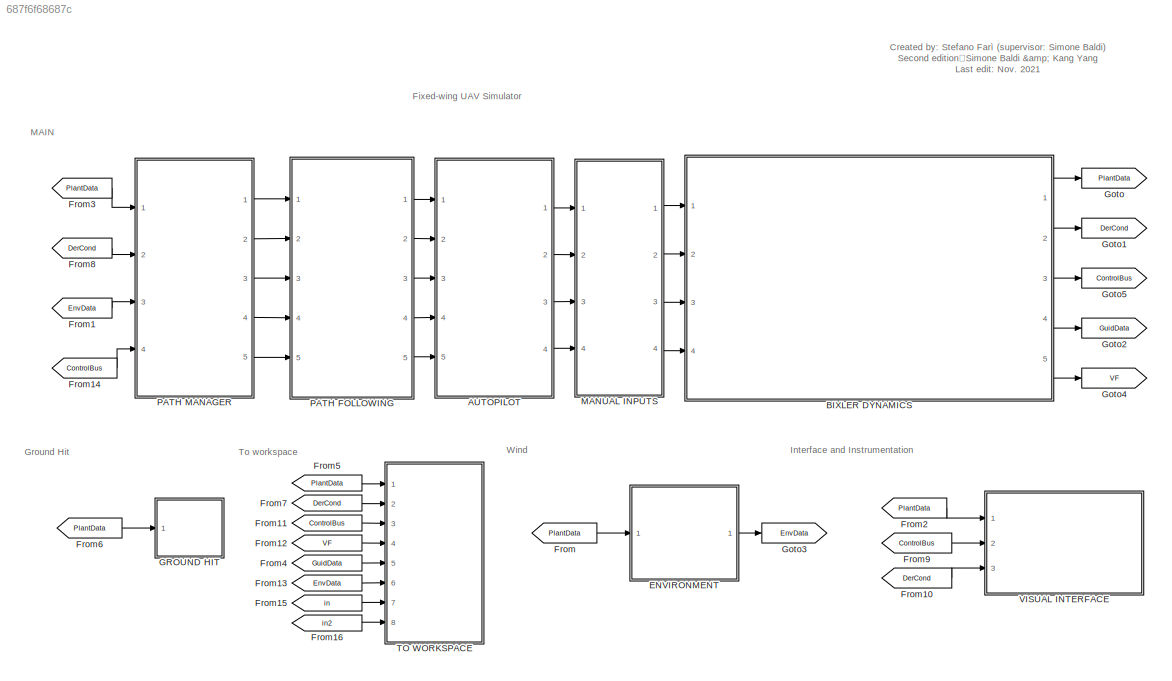
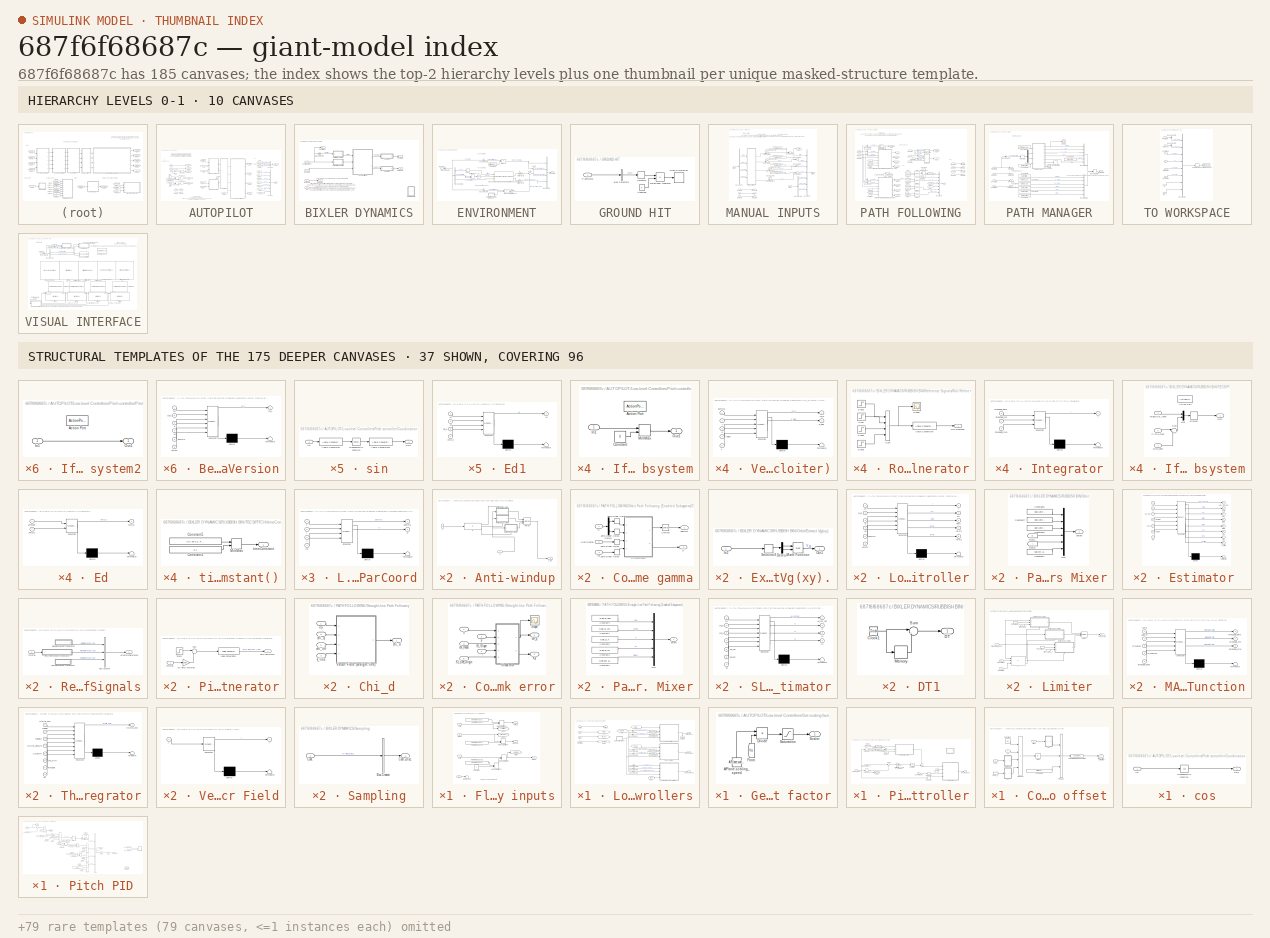
[diagram: thumbnail index - top-2 hierarchy levels (10 canvases) + 37 structural-template representatives of the remaining 175 canvases]
MODEL slx_687f6f68687c
KIND model
CONFIG AbsTol = 1e-8
CONFIG EnableMultiTasking = off
CONFIG FixedStep = auto
CONFIG MaxStep = auto
CONFIG MinStep = auto
CONFIG PostLoadFcn = parameters_main\nwrite_init_cond
CONFIG RelTol = 1e-6
CONFIG SampleTimeConstraint = Unconstrained
CONFIG Solver = ode45
CONFIG SolverName = ode45
CONFIG StartFcn = write_init_cond\ndisp('Simulating...');\n
CONFIG StartTime = 0.0
CONFIG StopFcn = timetime = datestr(datetime('now','Format','hh:mm'));\ndisp(['End of Simulation.       ', timetime]);\nclear timetime
CONFIG StopTime = 120
BLOCK [SubSystem] AUTOPILOT
  Ports = [5, 4]
  RequestExecContextInheritance = off
BLOCK [BusCreator] AUTOPILOT/Bus Creator
  DisplayOption = bar
  InheritFromInputs = on
  Inputs = 7
  Ports = [7, 1]
BLOCK [BusCreator] AUTOPILOT/Bus Creator1
  DisplayOption = bar
  InheritFromInputs = on
  Inputs = 3
  Ports = [3, 1]
BLOCK [BusSelector] AUTOPILOT/Bus Selector2
  OutputSignals = chi_c_deg
  Ports = [1, 1]
BLOCK [Outport] AUTOPILOT/CtrBus.
  VectorParamsAs1DForOutWhenUnconnected = off
BLOCK [Inport] AUTOPILOT/DerCond
  Port = 2
BLOCK [Inport] AUTOPILOT/EnvData
  Port = 3
BLOCK [Outport] AUTOPILOT/EnvData.
  Port = 2
  VectorParamsAs1DForOutWhenUnconnected = off
BLOCK [SubSystem] AUTOPILOT/Fly-by-wire inputs
  Ports = [4, 3]
  RequestExecContextInheritance = off
BLOCK [Inport] AUTOPILOT/Fly-by-wire inputs/.
  Port = 3
BLOCK [Constant] AUTOPILOT/Fly-by-wire inputs/Constant
  Commented = on
  Value = 0
BLOCK [Terminator] AUTOPILOT/Fly-by-wire inputs/Dummy port
BLOCK [FromWorkspace] AUTOPILOT/Fly-by-wire inputs/From Workspace
  Commented = on
  SampleTime = 0.001
  VariableName = LogData.RCIN.Throttle_IN
BLOCK [FromWorkspace] AUTOPILOT/Fly-by-wire inputs/From Workspace1
  Commented = on
  SampleTime = 0.001
  VariableName = LogData.RCIN.Pitch_IN
BLOCK [FromWorkspace] AUTOPILOT/Fly-by-wire inputs/From Workspace2
  Commented = on
  SampleTime = 0.001
  VariableName = LogData.RCIN.Roll_IN
BLOCK [Goto] AUTOPILOT/Fly-by-wire inputs/Goto2
  GotoTag = PitchDem
  TagVisibility = scoped
BLOCK [Goto] AUTOPILOT/Fly-by-wire inputs/Goto7
  GotoTag = RollDem
  TagVisibility = scoped
BLOCK [Goto] AUTOPILOT/Fly-by-wire inputs/Goto8
  GotoTag = ThrottleDem
  TagVisibility = scoped
BLOCK [ManualSwitch] AUTOPILOT/Fly-by-wire inputs/Manual Switch1
  CurrentSetting = 0
BLOCK [ManualSwitch] AUTOPILOT/Fly-by-wire inputs/Manual Switch2
BLOCK [ManualSwitch] AUTOPILOT/Fly-by-wire inputs/Manual Switch3
BLOCK [ManualSwitch] AUTOPILOT/Fly-by-wire inputs/Manual Switch4
BLOCK [Inport] AUTOPILOT/Fly-by-wire inputs/Pitch in
  Port = 2
BLOCK [Outport] AUTOPILOT/Fly-by-wire inputs/Pitch out
  Port = 2
  VectorParamsAs1DForOutWhenUnconnected = off
BLOCK [Inport] AUTOPILOT/Fly-by-wire inputs/Roll in
  Port = 4
BLOCK [Outport] AUTOPILOT/Fly-by-wire inputs/Roll out
  Port = 3
  VectorParamsAs1DForOutWhenUnconnected = off
BLOCK [Inport] AUTOPILOT/Fly-by-wire inputs/Thr in
BLOCK [Outport] AUTOPILOT/Fly-by-wire inputs/Thr out
  VectorParamsAs1DForOutWhenUnconnected = off
BLOCK [From] AUTOPILOT/From
  GotoTag = PlantData
BLOCK [From] AUTOPILOT/From1
  GotoTag = ThrottleDem
  TagVisibility = scoped
BLOCK [From] AUTOPILOT/From10
  GotoTag = CourseRef
BLOCK [From] AUTOPILOT/From11
  GotoTag = elevator
BLOCK [From] AUTOPILOT/From12
  GotoTag = rudder
BLOCK [From] AUTOPILOT/From13
  GotoTag = Reference
BLOCK [From] AUTOPILOT/From14
  GotoTag = Target_Height
BLOCK [From] AUTOPILOT/From15
  GotoTag = Target_Airspeed
BLOCK [From] AUTOPILOT/From2
  GotoTag = Target_Airspeed
BLOCK [From] AUTOPILOT/From3
  GotoTag = PitchDem
  TagVisibility = scoped
BLOCK [From] AUTOPILOT/From4
  GotoTag = throttle
BLOCK [From] AUTOPILOT/From5
  GotoTag = Target_Height
BLOCK [From] AUTOPILOT/From6
  GotoTag = PlantData
BLOCK [From] AUTOPILOT/From7
  GotoTag = RollDem
  TagVisibility = scoped
BLOCK [From] AUTOPILOT/From8
  GotoTag = ailerons
BLOCK [From] AUTOPILOT/From9
  GotoTag = DerCond
BLOCK [Goto] AUTOPILOT/Goto
  GotoTag = PlantData
BLOCK [GotoTagVisibility] AUTOPILOT/Goto Tag Visibility 1
  GotoTag = ThrottleDem
BLOCK [GotoTagVisibility] AUTOPILOT/Goto Tag Visibility 2
  GotoTag = RollDem
BLOCK [GotoTagVisibility] AUTOPILOT/Goto Tag Visibility 3
  GotoTag = PitchDem
BLOCK [Goto] AUTOPILOT/Goto1
  GotoTag = Reference
BLOCK [Goto] AUTOPILOT/Goto2
  GotoTag = throttle
BLOCK [Goto] AUTOPILOT/Goto3
  GotoTag = DerCond
BLOCK [Goto] AUTOPILOT/Goto4
  GotoTag = CourseRef
BLOCK [Goto] AUTOPILOT/Goto5
  GotoTag = Target_Height
BLOCK [Goto] AUTOPILOT/Goto6
  GotoTag = Target_Airspeed
BLOCK [Goto] AUTOPILOT/Goto7
  GotoTag = ailerons
BLOCK [Goto] AUTOPILOT/Goto8
  GotoTag = elevator
BLOCK [Goto] AUTOPILOT/Goto9
  GotoTag = rudder
BLOCK [Ground] AUTOPILOT/Ground
BLOCK [Inport] AUTOPILOT/GuidData
  Port = 5
BLOCK [Outport] AUTOPILOT/GuidData.
  Port = 4
  VectorParamsAs1DForOutWhenUnconnected = off
BLOCK [SubSystem] AUTOPILOT/Low-level Controllers
  Ports = [4, 4]
  RequestExecContextInheritance = off
BLOCK [Outport] AUTOPILOT/Low-level Controllers/AilDemand
  Port = 2
  Unit = deg
  VectorParamsAs1DForOutWhenUnconnected = off
BLOCK [Reference] AUTOPILOT/Low-level Controllers/Angle Conversion1  REF=aerolibconvert2/Angle Conversion
  Ports = [1, 1]
  SourceBlock = aerolibconvert2/Angle Conversion
  SourceProductBaseCode = AE
  SourceType = Angle Conversion
BLOCK [Reference] AUTOPILOT/Low-level Controllers/Angle Conversion2  REF=aerolibconvert2/Angle Conversion
  Ports = [1, 1]
  SourceBlock = aerolibconvert2/Angle Conversion
  SourceProductBaseCode = AE
  SourceType = Angle Conversion
BLOCK [Reference] AUTOPILOT/Low-level Controllers/Angular Velocity Conversion  REF=aerolibconvert2/Angular Velocity
Conversion
  Ports = [1, 1]
  SourceBlock = aerolibconvert2/Angular Velocity\nConversion
  SourceProductBaseCode = AE
  SourceType = Angular Velocity Conversion
BLOCK [Reference] AUTOPILOT/Low-level Controllers/Angular Velocity Conversion1  REF=aerolibconvert2/Angular Velocity
Conversion
  Ports = [1, 1]
  SourceBlock = aerolibconvert2/Angular Velocity\nConversion
  SourceProductBaseCode = AE
  SourceType = Angular Velocity Conversion
BLOCK [BusSelector] AUTOPILOT/Low-level Controllers/Bus Selector
  OutputSignals = PlantData.Euler angles (rad)
  Ports = [1, 1]
BLOCK [BusSelector] AUTOPILOT/Low-level Controllers/Bus Selector1
  OutputSignals = PlantData.Angular rates (body) (rad/s)
  Ports = [1, 1]
BLOCK [BusSelector] AUTOPILOT/Low-level Controllers/Bus Selector2
  OutputSignals = PlantData.Euler angles (rad)
  Ports = [1, 1]
BLOCK [BusSelector] AUTOPILOT/Low-level Controllers/Bus Selector3
  OutputSignals = PlantData.Angular rates (body) (rad/s)
  Ports = [1, 1]
BLOCK [BusSelector] AUTOPILOT/Low-level Controllers/Bus Selector5
  OutputSignals = PlantData.Angular rates (body) (rad/s)
  Ports = [1, 1]
BLOCK [BusSelector] AUTOPILOT/Low-level Controllers/Bus Selector6
  OutputSignals = PlantData.Euler angles (rad)
  Ports = [1, 1]
BLOCK [BusSelector] AUTOPILOT/Low-level Controllers/Bus Selector7
  OutputSignals = PlantData.Accelerations (body/body)
  Ports = [1, 1]
BLOCK [Outport] AUTOPILOT/Low-level Controllers/ElevDemand
  Port = 3
  Unit = deg
  VectorParamsAs1DForOutWhenUnconnected = off
BLOCK [From] AUTOPILOT/Low-level Controllers/From
  GotoTag = PlantData
BLOCK [From] AUTOPILOT/Low-level Controllers/From1
  GotoTag = RollRef
BLOCK [From] AUTOPILOT/Low-level Controllers/From2
  GotoTag = PitchRef
BLOCK [From] AUTOPILOT/Low-level Controllers/From3
  GotoTag = AilDem
BLOCK [SubSystem] AUTOPILOT/Low-level Controllers/Get scaling factor
  Ports = [0, 1]
  RequestExecContextInheritance = off
BLOCK [Constant] AUTOPILOT/Low-level Controllers/Get scaling factor/APlane.scaling_speed
  Value = APlane.scaling_speed
BLOCK [Product] AUTOPILOT/Low-level Controllers/Get scaling factor/Divide
  Inputs = */
  Ports = [2, 1]
BLOCK [From] AUTOPILOT/Low-level Controllers/Get scaling factor/From
  GotoTag = Va
  TagVisibility = global
BLOCK [Saturate] AUTOPILOT/Low-level Controllers/Get scaling factor/Saturation
  LowerLimit = 0.6
  UpperLimit = 1.67
BLOCK [Outport] AUTOPILOT/Low-level Controllers/Get scaling factor/Scaler
  VectorParamsAs1DForOutWhenUnconnected = off
BLOCK [Goto] AUTOPILOT/Low-level Controllers/Goto
  GotoTag = PitchRef
BLOCK [Goto] AUTOPILOT/Low-level Controllers/Goto1
  GotoTag = PlantData
BLOCK [Goto] AUTOPILOT/Low-level Controllers/Goto2
  GotoTag = RollRef
BLOCK [Goto] AUTOPILOT/Low-level Controllers/Goto3
  GotoTag = AilDem
BLOCK [Inport] AUTOPILOT/Low-level Controllers/Pitch
  Port = 2
  Unit = deg
BLOCK [SubSystem] AUTOPILOT/Low-level Controllers/Pitch controller
  Ports = [4, 1]
  RequestExecContextInheritance = off
BLOCK [Gain] AUTOPILOT/Low-level Controllers/Pitch controller/1//Ctr.Roll.RLL2SRV_TCONST
  Gain = 1/Ctr.Roll.RLL2SRV_TCONST
BLOCK [Reference] AUTOPILOT/Low-level Controllers/Pitch controller/Angle Conversion1  REF=aerolibconvert2/Angle Conversion
  Ports = [1, 1]
  SourceBlock = aerolibconvert2/Angle Conversion
  SourceProductBaseCode = AE
  SourceType = Angle Conversion
BLOCK [Reference] AUTOPILOT/Low-level Controllers/Pitch controller/Angle Conversion5  REF=aerolibconvert2/Angle Conversion
  Ports = [1, 1]
  SourceBlock = aerolibconvert2/Angle Conversion
  SourceProductBaseCode = AE
  SourceType = Angle Conversion
BLOCK [Inport] AUTOPILOT/Low-level Controllers/Pitch controller/AngularRates
  Port = 3
  Unit = deg/s
BLOCK [SubSystem] AUTOPILOT/Low-level Controllers/Pitch controller/Coordination offset
  Ports = [3, 1]
  RequestExecContextInheritance = off
BLOCK [Abs] AUTOPILOT/Low-level Controllers/Pitch controller/Coordination offset/Abs1
  SaturateOnIntegerOverflow = off
BLOCK [Reference] AUTOPILOT/Low-level Controllers/Pitch controller/Coordination offset/Angular Velocity Conversion  REF=aerolibconvert2/Angular Velocity
Conversion
  Ports = [1, 1]
  SourceBlock = aerolibconvert2/Angular Velocity\nConversion
  SourceProductBaseCode = AE
  SourceType = Angular Velocity Conversion
BLOCK [Constant] AUTOPILOT/Low-level Controllers/Pitch controller/Coordination offset/Constant
  Value = C.g
BLOCK [Constant] AUTOPILOT/Low-level Controllers/Pitch controller/Coordination offset/Constant3
  Value = Ctr.Pitch.PTCH2SRV_RLL
BLOCK [Outport] AUTOPILOT/Low-level Controllers/Pitch controller/Coordination offset/Pitch_rate_correction
  VectorParamsAs1DForOutWhenUnconnected = off
BLOCK [Product] AUTOPILOT/Low-level Controllers/Pitch controller/Coordination offset/Product
  Inputs = ***
  Ports = [3, 1]
BLOCK [Product] AUTOPILOT/Low-level Controllers/Pitch controller/Coordination offset/Product1
  Inputs = */**
  Ports = [4, 1]
BLOCK [Inport] AUTOPILOT/Low-level Controllers/Pitch controller/Coordination offset/Va
  Port = 3
  Unit = m/s
BLOCK [Inport] AUTOPILOT/Low-level Controllers/Pitch controller/Coordination offset/bank
  Port = 2
  Unit = rad
BLOCK [InportShadow] AUTOPILOT/Low-level Controllers/Pitch controller/Coordination offset/bank_1
  Port = 2
  Unit = rad
BLOCK [SubSystem] AUTOPILOT/Low-level Controllers/Pitch controller/Coordination offset/cos
  Ports = [1, 1]
  RequestExecContextInheritance = off
BLOCK [Inport] AUTOPILOT/Low-level Controllers/Pitch controller/Coordination offset/cos/In1
BLOCK [Outport] AUTOPILOT/Low-level Controllers/Pitch controller/Coordination offset/cos/Out1
  VectorParamsAs1DForOutWhenUnconnected = off
BLOCK [Trigonometry] AUTOPILOT/Low-level Controllers/Pitch controller/Coordination offset/cos/Trigonometric Function
  Operator = cos
  Ports = [1, 1]
BLOCK [Inport] AUTOPILOT/Low-level Controllers/Pitch controller/Coordination offset/pitch
  Unit = rad
BLOCK [SubSystem] AUTOPILOT/Low-level Controllers/Pitch controller/Coordination offset/sin
  Ports = [1, 1]
  RequestExecContextInheritance = off
BLOCK [Reference] AUTOPILOT/Low-level Controllers/Pitch controller/Coordination offset/sin/Angle Conversion  REF=aerolibconvert2/Angle Conversion
  Commented = through
  Ports = [1, 1]
  SourceBlock = aerolibconvert2/Angle Conversion
  SourceProductBaseCode = AE
  SourceType = Angle Conversion
BLOCK [Reference] AUTOPILOT/Low-level Controllers/Pitch controller/Coordination offset/sin/Angle Conversion1  REF=aerolibconvert2/Angle Conversion
  Commented = through
  Ports = [1, 1]
  SourceBlock = aerolibconvert2/Angle Conversion
  SourceProductBaseCode = AE
  SourceType = Angle Conversion
BLOCK [Inport] AUTOPILOT/Low-level Controllers/Pitch controller/Coordination offset/sin/In1
BLOCK [Outport] AUTOPILOT/Low-level Controllers/Pitch controller/Coordination offset/sin/Out1
  VectorParamsAs1DForOutWhenUnconnected = off
BLOCK [Trigonometry] AUTOPILOT/Low-level Controllers/Pitch controller/Coordination offset/sin/Trigonometric Function
  Ports = [1, 1]
BLOCK [SubSystem] AUTOPILOT/Low-level Controllers/Pitch controller/Coordination offset/tan
  Ports = [1, 1]
  RequestExecContextInheritance = off
BLOCK [Reference] AUTOPILOT/Low-level Controllers/Pitch controller/Coordination offset/tan/Angle Conversion  REF=aerolibconvert2/Angle Conversion
  Commented = through
  Ports = [1, 1]
  SourceBlock = aerolibconvert2/Angle Conversion
  SourceProductBaseCode = AE
  SourceType = Angle Conversion
BLOCK [Reference] AUTOPILOT/Low-level Controllers/Pitch controller/Coordination offset/tan/Angle Conversion1  REF=aerolibconvert2/Angle Conversion
  Commented = through
  Ports = [1, 1]
  SourceBlock = aerolibconvert2/Angle Conversion
  SourceProductBaseCode = AE
  SourceType = Angle Conversion
BLOCK [Inport] AUTOPILOT/Low-level Controllers/Pitch controller/Coordination offset/tan/In1
BLOCK [Outport] AUTOPILOT/Low-level Controllers/Pitch controller/Coordination offset/tan/Out1
  VectorParamsAs1DForOutWhenUnconnected = off
BLOCK [Trigonometry] AUTOPILOT/Low-level Controllers/Pitch controller/Coordination offset/tan/Trigonometric Function
  Operator = tan
  Ports = [1, 1]
BLOCK [Outport] AUTOPILOT/Low-level Controllers/Pitch controller/ElevDemand
  VectorParamsAs1DForOutWhenUnconnected = off
BLOCK [Inport] AUTOPILOT/Low-level Controllers/Pitch controller/EulerAngles
  Port = 2
  Unit = deg
BLOCK [From] AUTOPILOT/Low-level Controllers/Pitch controller/From10
  GotoTag = Va
  TagVisibility = global
BLOCK [From] AUTOPILOT/Low-level Controllers/Pitch controller/From8
  GotoTag = pitch_ang
BLOCK [Goto] AUTOPILOT/Low-level Controllers/Pitch controller/Goto1
  GotoTag = pitch_ang
BLOCK [SubSystem] AUTOPILOT/Low-level Controllers/Pitch controller/Pitch PID
  Ports = [4, 1]
  RequestExecContextInheritance = off
BLOCK [Saturate] AUTOPILOT/Low-level Controllers/Pitch controller/Pitch PID/+-45
  LowerLimit = -45
  UpperLimit = 45
BLOCK [SubSystem] AUTOPILOT/Low-level Controllers/Pitch controller/Pitch PID/Adjust integrator gain
  Commented = on
  Ports = [0, 1]
  RequestExecContextInheritance = off
BLOCK [Constant] AUTOPILOT/Low-level Controllers/Pitch controller/Pitch PID/Adjust integrator gain/Constant10
  Value = 0.15
BLOCK [Gain] AUTOPILOT/Low-level Controllers/Pitch controller/Pitch PID/Adjust integrator gain/Ctr.Pitch.PTCH2SRV_TCONST
  Gain = Ctr.Pitch.PTCH2SRV_TCONST
BLOCK [Outport] AUTOPILOT/Low-level Controllers/Pitch controller/Pitch PID/Adjust integrator gain/K_I rate
  VectorParamsAs1DForOutWhenUnconnected = off
BLOCK [MinMax] AUTOPILOT/Low-level Controllers/Pitch controller/Pitch PID/Adjust integrator gain/MinMax
  Function = max
  Inputs = 2
  Ports = [2, 1]
BLOCK [SubSystem] AUTOPILOT/Low-level Controllers/Pitch controller/Pitch PID/Anti-windup
  Ports = [2, 1]
  RequestExecContextInheritance = off
BLOCK [If] AUTOPILOT/Low-level Controllers/Pitch controller/Pitch PID/Anti-windup/If
  ElseIfExpressions = u1 > 45
  IfExpression = u1 < -45
  Ports = [1, 3]
BLOCK [SubSystem] AUTOPILOT/Low-level Controllers/Pitch controller/Pitch PID/Anti-windup/If Action Subsystem
  Ports = [1, 1, 0, 0, 0, 0, 0, 1]
  RequestExecContextInheritance = off
  TreatAsAtomicUnit = on
BLOCK [ActionPort] AUTOPILOT/Low-level Controllers/Pitch controller/Pitch PID/Anti-windup/If Action Subsystem/Action Port
  ActionPortLabel = if(u1 < -45 )
BLOCK [Constant] AUTOPILOT/Low-level Controllers/Pitch controller/Pitch PID/Anti-windup/If Action Subsystem/Constant
  Value = 0
BLOCK [Inport] AUTOPILOT/Low-level Controllers/Pitch controller/Pitch PID/Anti-windup/If Action Subsystem/In1
BLOCK [MinMax] AUTOPILOT/Low-level Controllers/Pitch controller/Pitch PID/Anti-windup/If Action Subsystem/MinMax
  Function = max
  Inputs = 2
  Ports = [2, 1]
BLOCK [Outport] AUTOPILOT/Low-level Controllers/Pitch controller/Pitch PID/Anti-windup/If Action Subsystem/Out1
  VectorParamsAs1DForOutWhenUnconnected = off
BLOCK [SubSystem] AUTOPILOT/Low-level Controllers/Pitch controller/Pitch PID/Anti-windup/If Action Subsystem1
  Ports = [1, 1, 0, 0, 0, 0, 0, 1]
  RequestExecContextInheritance = off
  TreatAsAtomicUnit = on
BLOCK [ActionPort] AUTOPILOT/Low-level Controllers/Pitch controller/Pitch PID/Anti-windup/If Action Subsystem1/Action Port
  ActionPortLabel = elseif(u1 > 45)
BLOCK [Constant] AUTOPILOT/Low-level Controllers/Pitch controller/Pitch PID/Anti-windup/If Action Subsystem1/Constant
  Value = 0
BLOCK [Inport] AUTOPILOT/Low-level Controllers/Pitch controller/Pitch PID/Anti-windup/If Action Subsystem1/In1
BLOCK [MinMax] AUTOPILOT/Low-level Controllers/Pitch controller/Pitch PID/Anti-windup/If Action Subsystem1/MinMax
  Inputs = 2
  Ports = [2, 1]
BLOCK [Outport] AUTOPILOT/Low-level Controllers/Pitch controller/Pitch PID/Anti-windup/If Action Subsystem1/Out1
  VectorParamsAs1DForOutWhenUnconnected = off
BLOCK [SubSystem] AUTOPILOT/Low-level Controllers/Pitch controller/Pitch PID/Anti-windup/If Action Subsystem2
  Ports = [1, 1, 0, 0, 0, 0, 0, 1]
  RequestExecContextInheritance = off
  TreatAsAtomicUnit = on
BLOCK [ActionPort] AUTOPILOT/Low-level Controllers/Pitch controller/Pitch PID/Anti-windup/If Action Subsystem2/Action Port
  ActionPortLabel = else
BLOCK [Inport] AUTOPILOT/Low-level Controllers/Pitch controller/Pitch PID/Anti-windup/If Action Subsystem2/In1
BLOCK [Outport] AUTOPILOT/Low-level Controllers/Pitch controller/Pitch PID/Anti-windup/If Action Subsystem2/Out1
  VectorParamsAs1DForOutWhenUnconnected = off
BLOCK [Merge] AUTOPILOT/Low-level Controllers/Pitch controller/Pitch PID/Anti-windup/Merge
  Inputs = 3
  Ports = [3, 1]
BLOCK [Inport] AUTOPILOT/Low-level Controllers/Pitch controller/Pitch PID/Anti-windup/u
BLOCK [Inport] AUTOPILOT/Low-level Controllers/Pitch controller/Pitch PID/Anti-windup/y
  Port = 2
BLOCK [Outport] AUTOPILOT/Low-level Controllers/Pitch controller/Pitch PID/Anti-windup/y_int
  VectorParamsAs1DForOutWhenUnconnected = off
BLOCK [Constant] AUTOPILOT/Low-level Controllers/Pitch controller/Pitch PID/Constant1
  Value = Ctr.Pitch.K_P
BLOCK [Constant] AUTOPILOT/Low-level Controllers/Pitch controller/Pitch PID/Constant10
  Value = 0
BLOCK [Constant] AUTOPILOT/Low-level Controllers/Pitch controller/Pitch PID/Constant11
  Value = APlane.EAS2TAS
BLOCK [Constant] AUTOPILOT/Low-level Controllers/Pitch controller/Pitch PID/Constant12
  Value = Ctr.Pitch.PTCH2SRV_D
BLOCK [Constant] AUTOPILOT/Low-level Controllers/Pitch controller/Pitch PID/Constant2
  Value = Ctr.Pitch.PTCH2SRV_FF
BLOCK [Constant] AUTOPILOT/Low-level Controllers/Pitch controller/Pitch PID/Constant4
  Value = Ctr.Pitch.PTCH2SRV_I
BLOCK [Constant] AUTOPILOT/Low-level Controllers/Pitch controller/Pitch PID/Constant7
  Value = APlane.EAS2TAS
BLOCK [Constant] AUTOPILOT/Low-level Controllers/Pitch controller/Pitch PID/Constant9
  Value = Ctr.TS
BLOCK [Gain] AUTOPILOT/Low-level Controllers/Pitch controller/Pitch PID/Ctr.Pitch.PTCH2SRV_TCONST2
  Gain = Ctr.Pitch.PTCH2SRV_TCONST
BLOCK [Inport] AUTOPILOT/Low-level Controllers/Pitch controller/Pitch PID/DesRate
  Unit = deg/s
BLOCK [Outport] AUTOPILOT/Low-level Controllers/Pitch controller/Pitch PID/ElevDemand
  VectorParamsAs1DForOutWhenUnconnected = off
BLOCK [From] AUTOPILOT/Low-level Controllers/Pitch controller/Pitch PID/From1
  GotoTag = rateErr
BLOCK [From] AUTOPILOT/Low-level Controllers/Pitch controller/Pitch PID/From2
  GotoTag = des_rate
BLOCK [From] AUTOPILOT/Low-level Controllers/Pitch controller/Pitch PID/From3
  GotoTag = des_rate
BLOCK [From] AUTOPILOT/Low-level Controllers/Pitch controller/Pitch PID/From4
  GotoTag = lastO
BLOCK [Gain] AUTOPILOT/Low-level Controllers/Pitch controller/Pitch PID/Gain
  Gain = -1
BLOCK [Goto] AUTOPILOT/Low-level Controllers/Pitch controller/Pitch PID/Goto
  GotoTag = lastO
BLOCK [Goto] AUTOPILOT/Low-level Controllers/Pitch controller/Pitch PID/Goto1
  GotoTag = rateErr
BLOCK [Goto] AUTOPILOT/Low-level Controllers/Pitch controller/Pitch PID/Goto2
  GotoTag = des_rate
BLOCK [Inport] AUTOPILOT/Low-level Controllers/Pitch controller/Pitch PID/Meas_pitch_rate
  Port = 3
  Unit = deg/s
BLOCK [InportShadow] AUTOPILOT/Low-level Controllers/Pitch controller/Pitch PID/Meas_pitch_rate_1
  Port = 3
  Unit = deg/s
BLOCK [Inport] AUTOPILOT/Low-level Controllers/Pitch controller/Pitch PID/Meas_roll_angle
  Port = 4
BLOCK [MinMax] AUTOPILOT/Low-level Controllers/Pitch controller/Pitch PID/MinMax
  Function = max
  Inputs = 2
  Ports = [2, 1]
BLOCK [Product] AUTOPILOT/Low-level Controllers/Pitch controller/Pitch PID/Product
  Ports = [2, 1]
BLOCK [Product] AUTOPILOT/Low-level Controllers/Pitch controller/Pitch PID/Product1
  Inputs = ****
  Ports = [4, 1]
BLOCK [Product] AUTOPILOT/Low-level Controllers/Pitch controller/Pitch PID/Product2
  Inputs = */
  Ports = [2, 1]
BLOCK [Product] AUTOPILOT/Low-level Controllers/Pitch controller/Pitch PID/Product3
  Inputs = */
  Ports = [2, 1]
BLOCK [Product] AUTOPILOT/Low-level Controllers/Pitch controller/Pitch PID/Product4
  Inputs = ***
  Ports = [3, 1]
BLOCK [Product] AUTOPILOT/Low-level Controllers/Pitch controller/Pitch PID/Product5
  Inputs = ***
  Ports = [3, 1]
BLOCK [Product] AUTOPILOT/Low-level Controllers/Pitch controller/Pitch PID/Product6
  Inputs = ***
  Ports = [3, 1]
BLOCK [Inport] AUTOPILOT/Low-level Controllers/Pitch controller/Pitch PID/Scaler
  Port = 2
BLOCK [InportShadow] AUTOPILOT/Low-level Controllers/Pitch controller/Pitch PID/Scaler_1
  Port = 2
BLOCK [InportShadow] AUTOPILOT/Low-level Controllers/Pitch controller/Pitch PID/Scaler_2
  Port = 2
BLOCK [InportShadow] AUTOPILOT/Low-level Controllers/Pitch controller/Pitch PID/Scaler_3
  Port = 2
BLOCK [InportShadow] AUTOPILOT/Low-level Controllers/Pitch controller/Pitch PID/Scaler_4
  Port = 2
BLOCK [SubSystem] AUTOPILOT/Low-level Controllers/Pitch controller/Pitch PID/Subsystem
  Commented = on
  Ports = [3, 1]
  RequestExecContextInheritance = off
BLOCK [Saturate] AUTOPILOT/Low-level Controllers/Pitch controller/Pitch PID/Subsystem/+-45
  LowerLimit = -45
  UpperLimit = 45
BLOCK [Abs] AUTOPILOT/Low-level Controllers/Pitch controller/Pitch PID/Subsystem/Abs
  SaturateOnIntegerOverflow = off
BLOCK [Abs] AUTOPILOT/Low-level Controllers/Pitch controller/Pitch PID/Subsystem/Abs1
  SaturateOnIntegerOverflow = off
BLOCK [Gain] AUTOPILOT/Low-level Controllers/Pitch controller/Pitch PID/Subsystem/Gain
  Gain = -1
BLOCK [Goto] AUTOPILOT/Low-level Controllers/Pitch controller/Pitch PID/Subsystem/Goto3
  GotoTag = lastO
BLOCK [If] AUTOPILOT/Low-level Controllers/Pitch controller/Pitch PID/Subsystem/If
  IfExpression = u1 > 90
  Ports = [1, 2]
BLOCK [SubSystem] AUTOPILOT/Low-level Controllers/Pitch controller/Pitch PID/Subsystem/If Action Subsystem
  Ports = [1, 1, 0, 0, 0, 0, 0, 1]
  RequestExecContextInheritance = off
  TreatAsAtomicUnit = on
BLOCK [ActionPort] AUTOPILOT/Low-level Controllers/Pitch controller/Pitch PID/Subsystem/If Action Subsystem/Action Port
BLOCK [Constant] AUTOPILOT/Low-level Controllers/Pitch controller/Pitch PID/Subsystem/If Action Subsystem/Constant
  Value = 180
BLOCK [Inport] AUTOPILOT/Low-level Controllers/Pitch controller/Pitch PID/Subsystem/If Action Subsystem/In1
BLOCK [Outport] AUTOPILOT/Low-level Controllers/Pitch controller/Pitch PID/Subsystem/If Action Subsystem/Out1
  VectorParamsAs1DForOutWhenUnconnected = off
BLOCK [Sum] AUTOPILOT/Low-level Controllers/Pitch controller/Pitch PID/Subsystem/If Action Subsystem/Sum
  Inputs = |+-
  Ports = [2, 1]
BLOCK [SubSystem] AUTOPILOT/Low-level Controllers/Pitch controller/Pitch PID/Subsystem/If Action Subsystem1
  Ports = [1, 1, 0, 0, 0, 0, 0, 1]
  RequestExecContextInheritance = off
  TreatAsAtomicUnit = on
BLOCK [ActionPort] AUTOPILOT/Low-level Controllers/Pitch controller/Pitch PID/Subsystem/If Action Subsystem1/Action Port
BLOCK [Inport] AUTOPILOT/Low-level Controllers/Pitch controller/Pitch PID/Subsystem/If Action Subsystem1/In1
BLOCK [Outport] AUTOPILOT/Low-level Controllers/Pitch controller/Pitch PID/Subsystem/If Action Subsystem1/Out1
  VectorParamsAs1DForOutWhenUnconnected = off
BLOCK [SubSystem] AUTOPILOT/Low-level Controllers/Pitch controller/Pitch PID/Subsystem/If Action Subsystem2
  Ports = [2, 1, 0, 0, 0, 0, 0, 1]
  RequestExecContextInheritance = off
  TreatAsAtomicUnit = on
BLOCK [ActionPort] AUTOPILOT/Low-level Controllers/Pitch controller/Pitch PID/Subsystem/If Action Subsystem2/Action Port
BLOCK [Fcn] AUTOPILOT/Low-level Controllers/Pitch controller/Pitch PID/Subsystem/If Action Subsystem2/Fcn
  Expr = 1- ((u(1)-(APlane.roll_limit+5))/(90-APlane.roll_limit))
BLOCK [Inport] AUTOPILOT/Low-level Controllers/Pitch controller/Pitch PID/Subsystem/If Action Subsystem2/In1
BLOCK [Inport] AUTOPILOT/Low-level Controllers/Pitch controller/Pitch PID/Subsystem/If Action Subsystem2/In2
  Port = 2
BLOCK [Outport] AUTOPILOT/Low-level Controllers/Pitch controller/Pitch PID/Subsystem/If Action Subsystem2/Out1
  VectorParamsAs1DForOutWhenUnconnected = off
BLOCK [Product] AUTOPILOT/Low-level Controllers/Pitch controller/Pitch PID/Subsystem/If Action Subsystem2/Product7
  Ports = [2, 1]
BLOCK [SubSystem] AUTOPILOT/Low-level Controllers/Pitch controller/Pitch PID/Subsystem/If Action Subsystem3
  Ports = [1, 1, 0, 0, 0, 0, 0, 1]
  RequestExecContextInheritance = off
  TreatAsAtomicUnit = on
BLOCK [ActionPort] AUTOPILOT/Low-level Controllers/Pitch controller/Pitch PID/Subsystem/If Action Subsystem3/Action Port
BLOCK [Inport] AUTOPILOT/Low-level Controllers/Pitch controller/Pitch PID/Subsystem/If Action Subsystem3/In1
BLOCK [Outport] AUTOPILOT/Low-level Controllers/Pitch controller/Pitch PID/Subsystem/If Action Subsystem3/Out1
  VectorParamsAs1DForOutWhenUnconnected = off
BLOCK [If] AUTOPILOT/Low-level Controllers/Pitch controller/Pitch PID/Subsystem/If1
  IfExpression = u1 >84 & u2 < 70
  NumInputs = 2
  Ports = [2, 2]
BLOCK [Inport] AUTOPILOT/Low-level Controllers/Pitch controller/Pitch PID/Subsystem/In1
BLOCK [Inport] AUTOPILOT/Low-level Controllers/Pitch controller/Pitch PID/Subsystem/Meas_pitch_rate
  Port = 3
  Unit = deg/s
BLOCK [Inport] AUTOPILOT/Low-level Controllers/Pitch controller/Pitch PID/Subsystem/Meas_roll_angle
  Port = 2
BLOCK [Merge] AUTOPILOT/Low-level Controllers/Pitch controller/Pitch PID/Subsystem/Merge
  Ports = [2, 1]
BLOCK [Merge] AUTOPILOT/Low-level Controllers/Pitch controller/Pitch PID/Subsystem/Merge1
  Ports = [2, 1]
BLOCK [Outport] AUTOPILOT/Low-level Controllers/Pitch controller/Pitch PID/Subsystem/Out1
  VectorParamsAs1DForOutWhenUnconnected = off
BLOCK [Sum] AUTOPILOT/Low-level Controllers/Pitch controller/Pitch PID/Sum
  Inputs = |+-
  Ports = [2, 1]
BLOCK [Sum] AUTOPILOT/Low-level Controllers/Pitch controller/Pitch PID/Sum1
  Inputs = ++|
  Ports = [2, 1]
BLOCK [Sum] AUTOPILOT/Low-level Controllers/Pitch controller/Pitch PID/Sum5
  IconShape = rectangular
  Inputs = ++++
  Ports = [4, 1]
BLOCK [UnitDelay] AUTOPILOT/Low-level Controllers/Pitch controller/Pitch PID/Unit Delay1
  HasFrameUpgradeWarning = on
  SampleTime = Ctr.TS
BLOCK [UnitDelay] AUTOPILOT/Low-level Controllers/Pitch controller/Pitch PID/Unit Delay2
  HasFrameUpgradeWarning = on
  SampleTime = Ctr.TS
BLOCK [Saturate] AUTOPILOT/Low-level Controllers/Pitch controller/Pitch PID/intLimScaled
  LowerLimit = -Ctr.Roll.RLL2SRV_IMAX_SCALED;
  UpperLimit = Ctr.Roll.RLL2SRV_IMAX_SCALED
BLOCK [Inport] AUTOPILOT/Low-level Controllers/Pitch controller/PitchReference
  Unit = deg
BLOCK [Saturate] AUTOPILOT/Low-level Controllers/Pitch controller/Rate limiter
  LinearizeAsGain = off
  LowerLimit = -Ctr.Pitch.PTCH2SRV_RMAX_DN
  UpperLimit = Ctr.Pitch.PTCH2SRV_RMAX_UP
BLOCK [Saturate] AUTOPILOT/Low-level Controllers/Pitch controller/Saturation1
  LowerLimit = -80
  UpperLimit = 80
BLOCK [Inport] AUTOPILOT/Low-level Controllers/Pitch controller/Scaler
  Port = 4
BLOCK [Selector] AUTOPILOT/Low-level Controllers/Pitch controller/Selector1
  IndexOptions = Index vector (dialog)
  Indices = 2
  InputPortWidth = 3
  OutputSizes = 1
  Ports = [1, 1]
BLOCK [Selector] AUTOPILOT/Low-level Controllers/Pitch controller/Selector2
  IndexOptions = Index vector (dialog)
  Indices = 1
  InputPortWidth = 3
  OutputSizes = 1
  Ports = [1, 1]
BLOCK [Selector] AUTOPILOT/Low-level Controllers/Pitch controller/Selector3
  IndexOptions = Index vector (dialog)
  Indices = 1
  InputPortWidth = 3
  OutputSizes = 1
  Ports = [1, 1]
BLOCK [Selector] AUTOPILOT/Low-level Controllers/Pitch controller/Selector4
  IndexOptions = Index vector (dialog)
  Indices = 2
  InputPortWidth = 3
  OutputSizes = 1
  Ports = [1, 1]
BLOCK [Sum] AUTOPILOT/Low-level Controllers/Pitch controller/Sum
  Inputs = ++|
  Ports = [2, 1]
BLOCK [Sum] AUTOPILOT/Low-level Controllers/Pitch controller/Sum1
  Inputs = |+-
  Ports = [2, 1]
BLOCK [SubSystem] AUTOPILOT/Low-level Controllers/Pitch controller/TRASH
  Commented = on
  Ports = []
  RequestExecContextInheritance = off
BLOCK [Abs] AUTOPILOT/Low-level Controllers/Pitch controller/TRASH/Abs
  Commented = on
  SaturateOnIntegerOverflow = off
BLOCK [Reference] AUTOPILOT/Low-level Controllers/Pitch controller/TRASH/Angle Conversion2  REF=aerolibconvert2/Angle Conversion
  Commented = on
  Ports = [1, 1]
  SourceBlock = aerolibconvert2/Angle Conversion
  SourceProductBaseCode = AE
  SourceType = Angle Conversion
BLOCK [Reference] AUTOPILOT/Low-level Controllers/Pitch controller/TRASH/Angle Conversion3  REF=aerolibconvert2/Angle Conversion
  Commented = on
  Ports = [1, 1]
  SourceBlock = aerolibconvert2/Angle Conversion
  SourceProductBaseCode = AE
  SourceType = Angle Conversion
BLOCK [SubSystem] AUTOPILOT/Low-level Controllers/Pitch controller/TRASH/Coordination_offset_MATLAB_Fcn
  Commented = on
  ErrorFcn = Stateflow.Translate.translate
  PermitHierarchicalResolution = ExplicitOnly
  Ports = [4, 2]
  RequestExecContextInheritance = off
  SFBlockType = MATLAB Function
  TreatAsAtomicUnit = on
BLOCK [Demux] AUTOPILOT/Low-level Controllers/Pitch controller/TRASH/Coordination_offset_MATLAB_Fcn/ Demux 
  Outputs = 1
  Ports = [1, 1]
BLOCK [S-Function] AUTOPILOT/Low-level Controllers/Pitch controller/TRASH/Coordination_offset_MATLAB_Fcn/ SFunction 
  EnableBusSupport = on
  FunctionName = sf_sfun
  PortCounts = [4 3]
  Ports = [4, 3]
  SFcnIsStateOwnerBlock = off
  SFunctionDeploymentMode = off
  Tag = Stateflow S-Function 7
BLOCK [Terminator] AUTOPILOT/Low-level Controllers/Pitch controller/TRASH/Coordination_offset_MATLAB_Fcn/ Terminator 
BLOCK [Inport] AUTOPILOT/Low-level Controllers/Pitch controller/TRASH/Coordination_offset_MATLAB_Fcn/aspeed
  Port = 3
BLOCK [Inport] AUTOPILOT/Low-level Controllers/Pitch controller/TRASH/Coordination_offset_MATLAB_Fcn/bank_angle
BLOCK [Outport] AUTOPILOT/Low-level Controllers/Pitch controller/TRASH/Coordination_offset_MATLAB_Fcn/inverted
  Port = 2
  VectorParamsAs1DForOutWhenUnconnected = off
BLOCK [Inport] AUTOPILOT/Low-level Controllers/Pitch controller/TRASH/Coordination_offset_MATLAB_Fcn/meas_pitch_angle
  Port = 2
BLOCK [Inport] AUTOPILOT/Low-level Controllers/Pitch controller/TRASH/Coordination_offset_MATLAB_Fcn/parameters
  Port = 4
BLOCK [Outport] AUTOPILOT/Low-level Controllers/Pitch controller/TRASH/Coordination_offset_MATLAB_Fcn/rate_offset
  VectorParamsAs1DForOutWhenUnconnected = off
BLOCK [DigitalClock] AUTOPILOT/Low-level Controllers/Pitch controller/TRASH/Digital Clock
  Commented = on
  SampleTime = 0.001
BLOCK [From] AUTOPILOT/Low-level Controllers/Pitch controller/TRASH/From
  Commented = on
  GotoTag = roll_ang
BLOCK [From] AUTOPILOT/Low-level Controllers/Pitch controller/TRASH/From1
  Commented = on
  GotoTag = Va
  TagVisibility = global
BLOCK [From] AUTOPILOT/Low-level Controllers/Pitch controller/TRASH/From2
  Commented = on
  GotoTag = Va
  TagVisibility = global
BLOCK [From] AUTOPILOT/Low-level Controllers/Pitch controller/TRASH/From3
  Commented = on
  GotoTag = pitch_ang
BLOCK [From] AUTOPILOT/Low-level Controllers/Pitch controller/TRASH/From5
  Commented = on
  GotoTag = pitch_ang
BLOCK [From] AUTOPILOT/Low-level Controllers/Pitch controller/TRASH/From6
  Commented = on
  GotoTag = Va
  TagVisibility = global
BLOCK [From] AUTOPILOT/Low-level Controllers/Pitch controller/TRASH/From7
  Commented = on
  GotoTag = pitch_ang
BLOCK [If] AUTOPILOT/Low-level Controllers/Pitch controller/TRASH/If
  Commented = on
  IfExpression = u1 > 70
  Ports = [1, 2]
BLOCK [SubSystem] AUTOPILOT/Low-level Controllers/Pitch controller/TRASH/If Action Subsystem
  Commented = on
  Ports = [0, 1, 0, 0, 0, 0, 0, 1]
  RequestExecContextInheritance = off
  TreatAsAtomicUnit = on
BLOCK [ActionPort] AUTOPILOT/Low-level Controllers/Pitch controller/TRASH/If Action Subsystem/Action Port
  ActionPortLabel = if { }
BLOCK [Constant] AUTOPILOT/Low-level Controllers/Pitch controller/TRASH/If Action Subsystem/Constant
  Value = 0
BLOCK [Outport] AUTOPILOT/Low-level Controllers/Pitch controller/TRASH/If Action Subsystem/Out1
  VectorParamsAs1DForOutWhenUnconnected = off
BLOCK [SubSystem] AUTOPILOT/Low-level Controllers/Pitch controller/TRASH/If Action Subsystem1
  Commented = on
  Ports = [3, 1, 0, 0, 0, 0, 0, 1]
  RequestExecContextInheritance = off
  TreatAsAtomicUnit = on
BLOCK [Abs] AUTOPILOT/Low-level Controllers/Pitch controller/TRASH/If Action Subsystem1/Abs
  SaturateOnIntegerOverflow = off
BLOCK [ActionPort] AUTOPILOT/Low-level Controllers/Pitch controller/TRASH/If Action Subsystem1/Action Port
  ActionPortLabel = else { }
BLOCK [Constant] AUTOPILOT/Low-level Controllers/Pitch controller/TRASH/If Action Subsystem1/Constant
  Value = C.g
BLOCK [Constant] AUTOPILOT/Low-level Controllers/Pitch controller/TRASH/If Action Subsystem1/Constant1
  Value = APlane.EAS2TAS
BLOCK [Constant] AUTOPILOT/Low-level Controllers/Pitch controller/TRASH/If Action Subsystem1/Constant2
  Value = APlane.airspeed_min
BLOCK [Constant] AUTOPILOT/Low-level Controllers/Pitch controller/TRASH/If Action Subsystem1/Constant3
  Value = Ctr.Pitch.PTCH2SRV_RLL
BLOCK [MinMax] AUTOPILOT/Low-level Controllers/Pitch controller/TRASH/If Action Subsystem1/MinMax
  Function = max
  Inputs = 2
  Ports = [2, 1]
BLOCK [Outport] AUTOPILOT/Low-level Controllers/Pitch controller/TRASH/If Action Subsystem1/Out1
  VectorParamsAs1DForOutWhenUnconnected = off
BLOCK [Product] AUTOPILOT/Low-level Controllers/Pitch controller/TRASH/If Action Subsystem1/Product
  Inputs = ***
  Ports = [3, 1]
BLOCK [Product] AUTOPILOT/Low-level Controllers/Pitch controller/TRASH/If Action Subsystem1/Product1
  Inputs = */**
  Ports = [4, 1]
BLOCK [Product] AUTOPILOT/Low-level Controllers/Pitch controller/TRASH/If Action Subsystem1/Product2
  Inputs = **
  Ports = [2, 1]
BLOCK [Inport] AUTOPILOT/Low-level Controllers/Pitch controller/TRASH/If Action Subsystem1/Va
  Port = 3
BLOCK [Inport] AUTOPILOT/Low-level Controllers/Pitch controller/TRASH/If Action Subsystem1/bank
  Port = 2
BLOCK [InportShadow] AUTOPILOT/Low-level Controllers/Pitch controller/TRASH/If Action Subsystem1/bank1
  Port = 2
BLOCK [SubSystem] AUTOPILOT/Low-level Controllers/Pitch controller/TRASH/If Action Subsystem1/cosd
  Ports = [1, 1]
  RequestExecContextInheritance = off
BLOCK [Reference] AUTOPILOT/Low-level Controllers/Pitch controller/TRASH/If Action Subsystem1/cosd/Angle Conversion  REF=aerolibconvert2/Angle Conversion
  Ports = [1, 1]
  SourceBlock = aerolibconvert2/Angle Conversion
  SourceProductBaseCode = AE
  SourceType = Angle Conversion
BLOCK [Reference] AUTOPILOT/Low-level Controllers/Pitch controller/TRASH/If Action Subsystem1/cosd/Angle Conversion1  REF=aerolibconvert2/Angle Conversion
  Ports = [1, 1]
  SourceBlock = aerolibconvert2/Angle Conversion
  SourceProductBaseCode = AE
  SourceType = Angle Conversion
BLOCK [Inport] AUTOPILOT/Low-level Controllers/Pitch controller/TRASH/If Action Subsystem1/cosd/In1
BLOCK [Outport] AUTOPILOT/Low-level Controllers/Pitch controller/TRASH/If Action Subsystem1/cosd/Out1
  VectorParamsAs1DForOutWhenUnconnected = off
BLOCK [Trigonometry] AUTOPILOT/Low-level Controllers/Pitch controller/TRASH/If Action Subsystem1/cosd/Trigonometric Function
  Operator = cos
  Ports = [1, 1]
BLOCK [Inport] AUTOPILOT/Low-level Controllers/Pitch controller/TRASH/If Action Subsystem1/pitch
BLOCK [SubSystem] AUTOPILOT/Low-level Controllers/Pitch controller/TRASH/If Action Subsystem1/sind
  Ports = [1, 1]
  RequestExecContextInheritance = off
BLOCK [Reference] AUTOPILOT/Low-level Controllers/Pitch controller/TRASH/If Action Subsystem1/sind/Angle Conversion  REF=aerolibconvert2/Angle Conversion
  Ports = [1, 1]
  SourceBlock = aerolibconvert2/Angle Conversion
  SourceProductBaseCode = AE
  SourceType = Angle Conversion
BLOCK [Reference] AUTOPILOT/Low-level Controllers/Pitch controller/TRASH/If Action Subsystem1/sind/Angle Conversion1  REF=aerolibconvert2/Angle Conversion
  Ports = [1, 1]
  SourceBlock = aerolibconvert2/Angle Conversion
  SourceProductBaseCode = AE
  SourceType = Angle Conversion
BLOCK [Inport] AUTOPILOT/Low-level Controllers/Pitch controller/TRASH/If Action Subsystem1/sind/In1
BLOCK [Outport] AUTOPILOT/Low-level Controllers/Pitch controller/TRASH/If Action Subsystem1/sind/Out1
  VectorParamsAs1DForOutWhenUnconnected = off
BLOCK [Trigonometry] AUTOPILOT/Low-level Controllers/Pitch controller/TRASH/If Action Subsystem1/sind/Trigonometric Function
  Ports = [1, 1]
BLOCK [SubSystem] AUTOPILOT/Low-level Controllers/Pitch controller/TRASH/If Action Subsystem1/tand
  Ports = [1, 1]
  RequestExecContextInheritance = off
BLOCK [Reference] AUTOPILOT/Low-level Controllers/Pitch controller/TRASH/If Action Subsystem1/tand/Angle Conversion  REF=aerolibconvert2/Angle Conversion
  Ports = [1, 1]
  SourceBlock = aerolibconvert2/Angle Conversion
  SourceProductBaseCode = AE
  SourceType = Angle Conversion
BLOCK [Reference] AUTOPILOT/Low-level Controllers/Pitch controller/TRASH/If Action Subsystem1/tand/Angle Conversion1  REF=aerolibconvert2/Angle Conversion
  Ports = [1, 1]
  SourceBlock = aerolibconvert2/Angle Conversion
  SourceProductBaseCode = AE
  SourceType = Angle Conversion
BLOCK [Inport] AUTOPILOT/Low-level Controllers/Pitch controller/TRASH/If Action Subsystem1/tand/In1
BLOCK [Outport] AUTOPILOT/Low-level Controllers/Pitch controller/TRASH/If Action Subsystem1/tand/Out1
  VectorParamsAs1DForOutWhenUnconnected = off
BLOCK [Trigonometry] AUTOPILOT/Low-level Controllers/Pitch controller/TRASH/If Action Subsystem1/tand/Trigonometric Function
  Operator = tan
  Ports = [1, 1]
BLOCK [Merge] AUTOPILOT/Low-level Controllers/Pitch controller/TRASH/Merge
  Commented = on
  Ports = [2, 1]
BLOCK [SubSystem] AUTOPILOT/Low-level Controllers/Pitch controller/TRASH/Parameters mixer1
  Commented = on
  Ports = [0, 1]
  RequestExecContextInheritance = off
BLOCK [Constant] AUTOPILOT/Low-level Controllers/Pitch controller/TRASH/Parameters mixer1/Constant
  Value = Ctr.Pitch.PTCH2SRV_I
BLOCK [Constant] AUTOPILOT/Low-level Controllers/Pitch controller/TRASH/Parameters mixer1/Constant1
  Value = Ctr.Pitch.PTCH2SRV_D
BLOCK [Constant] AUTOPILOT/Low-level Controllers/Pitch controller/TRASH/Parameters mixer1/Constant2
  Value = Ctr.Pitch.PTCH2SRV_FF
BLOCK [Constant] AUTOPILOT/Low-level Controllers/Pitch controller/TRASH/Parameters mixer1/Constant3
  Value = Ctr.Pitch.PTCH2SRV_P
BLOCK [Constant] AUTOPILOT/Low-level Controllers/Pitch controller/TRASH/Parameters mixer1/Constant4
  Value = APlane.roll_limit
BLOCK [Constant] AUTOPILOT/Low-level Controllers/Pitch controller/TRASH/Parameters mixer1/Constant5
  Value = Ctr.Pitch.PTCH2SRV_IMAX
BLOCK [Constant] AUTOPILOT/Low-level Controllers/Pitch controller/TRASH/Parameters mixer1/Constant6
  Value = APlane.airspeed_min
BLOCK [Constant] AUTOPILOT/Low-level Controllers/Pitch controller/TRASH/Parameters mixer1/Constant7
  Value = APlane.EAS2TAS
BLOCK [Constant] AUTOPILOT/Low-level Controllers/Pitch controller/TRASH/Parameters mixer1/Constant8
  Value = Ctr.Pitch.PTCH2SRV_TCONST
BLOCK [Mux] AUTOPILOT/Low-level Controllers/Pitch controller/TRASH/Parameters mixer1/Mux
  DisplayOption = bar
  Inputs = 9
  Ports = [9, 1]
BLOCK [Outport] AUTOPILOT/Low-level Controllers/Pitch controller/TRASH/Parameters mixer1/parameters
  VectorParamsAs1DForOutWhenUnconnected = off
BLOCK [SubSystem] AUTOPILOT/Low-level Controllers/Pitch controller/TRASH/Parameters mixer2
  Commented = on
  Ports = [0, 1]
  RequestExecContextInheritance = off
BLOCK [Constant] AUTOPILOT/Low-level Controllers/Pitch controller/TRASH/Parameters mixer2/Constant2
  Value = Ctr.Pitch.PTCH2SRV_RLL
BLOCK [Constant] AUTOPILOT/Low-level Controllers/Pitch controller/TRASH/Parameters mixer2/Constant3
  Value = C.g
BLOCK [Constant] AUTOPILOT/Low-level Controllers/Pitch controller/TRASH/Parameters mixer2/Constant5
  Value = APlane.EAS2TAS
BLOCK [Constant] AUTOPILOT/Low-level Controllers/Pitch controller/TRASH/Parameters mixer2/Constant6
  Value = APlane.airspeed_min
BLOCK [Mux] AUTOPILOT/Low-level Controllers/Pitch controller/TRASH/Parameters mixer2/Mux1
  DisplayOption = bar
  Ports = [4, 1]
BLOCK [Outport] AUTOPILOT/Low-level Controllers/Pitch controller/TRASH/Parameters mixer2/parameters_roll_comp
  VectorParamsAs1DForOutWhenUnconnected = off
BLOCK [SubSystem] AUTOPILOT/Low-level Controllers/Pitch controller/TRASH/Pitch_PID_MATLAB_Fcn
  Commented = on
  ErrorFcn = Stateflow.Translate.translate
  PermitHierarchicalResolution = ExplicitOnly
  Ports = [7, 5]
  RequestExecContextInheritance = off
  SFBlockType = MATLAB Function
  TreatAsAtomicUnit = on
BLOCK [Demux] AUTOPILOT/Low-level Controllers/Pitch controller/TRASH/Pitch_PID_MATLAB_Fcn/ Demux 
  Outputs = 1
  Ports = [1, 1]
BLOCK [S-Function] AUTOPILOT/Low-level Controllers/Pitch controller/TRASH/Pitch_PID_MATLAB_Fcn/ SFunction 
  EnableBusSupport = on
  FunctionName = sf_sfun
  PortCounts = [7 6]
  Ports = [7, 6]
  SFcnIsStateOwnerBlock = off
  SFunctionDeploymentMode = off
  Tag = Stateflow S-Function 5
BLOCK [Terminator] AUTOPILOT/Low-level Controllers/Pitch controller/TRASH/Pitch_PID_MATLAB_Fcn/ Terminator 
BLOCK [Inport] AUTOPILOT/Low-level Controllers/Pitch controller/TRASH/Pitch_PID_MATLAB_Fcn/aspeed
  Port = 5
BLOCK [Inport] AUTOPILOT/Low-level Controllers/Pitch controller/TRASH/Pitch_PID_MATLAB_Fcn/desired_rate
BLOCK [Inport] AUTOPILOT/Low-level Controllers/Pitch controller/TRASH/Pitch_PID_MATLAB_Fcn/meas_pitch_rate
  Port = 2
BLOCK [Inport] AUTOPILOT/Low-level Controllers/Pitch controller/TRASH/Pitch_PID_MATLAB_Fcn/meas_roll_angle
  Port = 3
BLOCK [Outport] AUTOPILOT/Low-level Controllers/Pitch controller/TRASH/Pitch_PID_MATLAB_Fcn/out
  VectorParamsAs1DForOutWhenUnconnected = off
BLOCK [Inport] AUTOPILOT/Low-level Controllers/Pitch controller/TRASH/Pitch_PID_MATLAB_Fcn/parameters
  Port = 7
BLOCK [Outport] AUTOPILOT/Low-level Controllers/Pitch controller/TRASH/Pitch_PID_MATLAB_Fcn/parteDer
  Port = 3
  VectorParamsAs1DForOutWhenUnconnected = off
BLOCK [Outport] AUTOPILOT/Low-level Controllers/Pitch controller/TRASH/Pitch_PID_MATLAB_Fcn/parteFF
  Port = 4
  VectorParamsAs1DForOutWhenUnconnected = off
BLOCK [Outport] AUTOPILOT/Low-level Controllers/Pitch controller/TRASH/Pitch_PID_MATLAB_Fcn/parteInt
  Port = 2
  VectorParamsAs1DForOutWhenUnconnected = off
BLOCK [Outport] AUTOPILOT/Low-level Controllers/Pitch controller/TRASH/Pitch_PID_MATLAB_Fcn/parteP
  Port = 5
  VectorParamsAs1DForOutWhenUnconnected = off
BLOCK [Inport] AUTOPILOT/Low-level Controllers/Pitch controller/TRASH/Pitch_PID_MATLAB_Fcn/scaler
  Port = 4
BLOCK [Inport] AUTOPILOT/Low-level Controllers/Pitch controller/TRASH/Pitch_PID_MATLAB_Fcn/time
  Port = 6
BLOCK [Saturate] AUTOPILOT/Low-level Controllers/Pitch controller/TRASH/Saturation
  Commented = on
  LowerLimit = -80
  UpperLimit = 80
BLOCK [Terminator] AUTOPILOT/Low-level Controllers/Pitch controller/TRASH/Terminator
  Commented = on
BLOCK [Inport] AUTOPILOT/Low-level Controllers/PlantData
  Port = 4
BLOCK [Inport] AUTOPILOT/Low-level Controllers/Roll
  Port = 3
  Unit = deg
BLOCK [SubSystem] AUTOPILOT/Low-level Controllers/Roll controller
  Ports = [4, 1]
  RequestExecContextInheritance = off
BLOCK [Outport] AUTOPILOT/Low-level Controllers/Roll controller/AilDemand
  Unit = deg
  VectorParamsAs1DForOutWhenUnconnected = off
BLOCK [Inport] AUTOPILOT/Low-level Controllers/Roll controller/AngularRates
  Port = 3
  Unit = deg/s
BLOCK [Reference] AUTOPILOT/Low-level Controllers/Roll controller/Discrete PID Controller  REF=simulink/Continuous/PID Controller
  Ports = [1, 1]
  SourceBlock = simulink/Continuous/PID Controller
  SourceProductBaseCode = SL
  SourceType = PID 1dof
BLOCK [Inport] AUTOPILOT/Low-level Controllers/Roll controller/Euler angles
  Port = 2
  Unit = deg
BLOCK [ManualSwitch] AUTOPILOT/Low-level Controllers/Roll controller/Manual Switch
  CurrentSetting = 0
BLOCK [ManualSwitch] AUTOPILOT/Low-level Controllers/Roll controller/Manual Switch1
BLOCK [Gain] AUTOPILOT/Low-level Controllers/Roll controller/OMEGA
  Gain = Ctr.Roll.OMEGA
BLOCK [SubSystem] AUTOPILOT/Low-level Controllers/Roll controller/Roll Rate Controller
  Ports = [3, 1]
  RequestExecContextInheritance = off
BLOCK [SubSystem] AUTOPILOT/Low-level Controllers/Roll controller/Roll Rate Controller (simpl. continuous)
  Commented = on
  Ports = [3, 1]
  RequestExecContextInheritance = off
BLOCK [Outport] AUTOPILOT/Low-level Controllers/Roll controller/Roll Rate Controller (simpl. continuous)/AilDemand
  VectorParamsAs1DForOutWhenUnconnected = off
BLOCK [Gain] AUTOPILOT/Low-level Controllers/Roll controller/Roll Rate Controller (simpl. continuous)/Ctr.Roll.RLL2SRV_D
  Gain = Ctr.Roll.RLL2SRV_D
BLOCK [Integrator] AUTOPILOT/Low-level Controllers/Roll controller/Roll Rate Controller (simpl. continuous)/Integrator
  Ports = [1, 1]
BLOCK [Gain] AUTOPILOT/Low-level Controllers/Roll controller/Roll Rate Controller (simpl. continuous)/Kp
  Gain = Ctr.Roll.K_P
BLOCK [Product] AUTOPILOT/Low-level Controllers/Roll controller/Roll Rate Controller (simpl. continuous)/Product
  Ports = [2, 1]
BLOCK [Product] AUTOPILOT/Low-level Controllers/Roll controller/Roll Rate Controller (simpl. continuous)/Product1
  Ports = [2, 1]
BLOCK [Inport] AUTOPILOT/Low-level Controllers/Roll controller/Roll Rate Controller (simpl. continuous)/Roll Rate Error
BLOCK [Inport] AUTOPILOT/Low-level Controllers/Roll controller/Roll Rate Controller (simpl. continuous)/Roll rate
  Port = 2
BLOCK [Inport] AUTOPILOT/Low-level Controllers/Roll controller/Roll Rate Controller (simpl. continuous)/Scaler
  Port = 3
BLOCK [Sum] AUTOPILOT/Low-level Controllers/Roll controller/Roll Rate Controller (simpl. continuous)/Sum1
  Inputs = |+-
  Ports = [2, 1]
BLOCK [Sum] AUTOPILOT/Low-level Controllers/Roll controller/Roll Rate Controller (simpl. continuous)/Sum2
  Inputs = +++
  Ports = [3, 1]
BLOCK [Gain] AUTOPILOT/Low-level Controllers/Roll controller/Roll Rate Controller (simpl. continuous)/k_I
  Gain = Ctr.Roll.K_I
BLOCK [Saturate] AUTOPILOT/Low-level Controllers/Roll controller/Roll Rate Controller/+-45
  LowerLimit = -45
  UpperLimit = 45
BLOCK [Outport] AUTOPILOT/Low-level Controllers/Roll controller/Roll Rate Controller/Ail_dem
  VectorParamsAs1DForOutWhenUnconnected = off
BLOCK [SubSystem] AUTOPILOT/Low-level Controllers/Roll controller/Roll Rate Controller/Anti-windup
  Ports = [2, 1]
  RequestExecContextInheritance = off
BLOCK [If] AUTOPILOT/Low-level Controllers/Roll controller/Roll Rate Controller/Anti-windup/If
  ElseIfExpressions = u1 > 45
  IfExpression = u1 < -45
  Ports = [1, 3]
BLOCK [SubSystem] AUTOPILOT/Low-level Controllers/Roll controller/Roll Rate Controller/Anti-windup/If Action Subsystem
  Ports = [1, 1, 0, 0, 0, 0, 0, 1]
  RequestExecContextInheritance = off
  TreatAsAtomicUnit = on
BLOCK [ActionPort] AUTOPILOT/Low-level Controllers/Roll controller/Roll Rate Controller/Anti-windup/If Action Subsystem/Action Port
  ActionPortLabel = if(u1 < -45 )
BLOCK [Constant] AUTOPILOT/Low-level Controllers/Roll controller/Roll Rate Controller/Anti-windup/If Action Subsystem/Constant
  Value = 0
BLOCK [Inport] AUTOPILOT/Low-level Controllers/Roll controller/Roll Rate Controller/Anti-windup/If Action Subsystem/In1
BLOCK [MinMax] AUTOPILOT/Low-level Controllers/Roll controller/Roll Rate Controller/Anti-windup/If Action Subsystem/MinMax
  Function = max
  Inputs = 2
  Ports = [2, 1]
BLOCK [Outport] AUTOPILOT/Low-level Controllers/Roll controller/Roll Rate Controller/Anti-windup/If Action Subsystem/Out1
  VectorParamsAs1DForOutWhenUnconnected = off
BLOCK [SubSystem] AUTOPILOT/Low-level Controllers/Roll controller/Roll Rate Controller/Anti-windup/If Action Subsystem1
  Ports = [1, 1, 0, 0, 0, 0, 0, 1]
  RequestExecContextInheritance = off
  TreatAsAtomicUnit = on
BLOCK [ActionPort] AUTOPILOT/Low-level Controllers/Roll controller/Roll Rate Controller/Anti-windup/If Action Subsystem1/Action Port
  ActionPortLabel = elseif(u1 > 45)
BLOCK [Constant] AUTOPILOT/Low-level Controllers/Roll controller/Roll Rate Controller/Anti-windup/If Action Subsystem1/Constant
  Value = 0
BLOCK [Inport] AUTOPILOT/Low-level Controllers/Roll controller/Roll Rate Controller/Anti-windup/If Action Subsystem1/In1
BLOCK [MinMax] AUTOPILOT/Low-level Controllers/Roll controller/Roll Rate Controller/Anti-windup/If Action Subsystem1/MinMax
  Inputs = 2
  Ports = [2, 1]
BLOCK [Outport] AUTOPILOT/Low-level Controllers/Roll controller/Roll Rate Controller/Anti-windup/If Action Subsystem1/Out1
  VectorParamsAs1DForOutWhenUnconnected = off
BLOCK [SubSystem] AUTOPILOT/Low-level Controllers/Roll controller/Roll Rate Controller/Anti-windup/If Action Subsystem2
  Ports = [1, 1, 0, 0, 0, 0, 0, 1]
  RequestExecContextInheritance = off
  TreatAsAtomicUnit = on
BLOCK [ActionPort] AUTOPILOT/Low-level Controllers/Roll controller/Roll Rate Controller/Anti-windup/If Action Subsystem2/Action Port
  ActionPortLabel = else
BLOCK [Inport] AUTOPILOT/Low-level Controllers/Roll controller/Roll Rate Controller/Anti-windup/If Action Subsystem2/In1
BLOCK [Outport] AUTOPILOT/Low-level Controllers/Roll controller/Roll Rate Controller/Anti-windup/If Action Subsystem2/Out1
  VectorParamsAs1DForOutWhenUnconnected = off
BLOCK [Merge] AUTOPILOT/Low-level Controllers/Roll controller/Roll Rate Controller/Anti-windup/Merge
  Inputs = 3
  Ports = [3, 1]
BLOCK [Inport] AUTOPILOT/Low-level Controllers/Roll controller/Roll Rate Controller/Anti-windup/u
  Port = 2
BLOCK [Inport] AUTOPILOT/Low-level Controllers/Roll controller/Roll Rate Controller/Anti-windup/y
BLOCK [Outport] AUTOPILOT/Low-level Controllers/Roll controller/Roll Rate Controller/Anti-windup/y_int
  VectorParamsAs1DForOutWhenUnconnected = off
BLOCK [Constant] AUTOPILOT/Low-level Controllers/Roll controller/Roll Rate Controller/Constant4
  Value = Ctr.Roll.RLL2SRV_I
BLOCK [Constant] AUTOPILOT/Low-level Controllers/Roll controller/Roll Rate Controller/Constant8
  Value = Ctr.Roll.RLL2SRV_D
BLOCK [Constant] AUTOPILOT/Low-level Controllers/Roll controller/Roll Rate Controller/Constant9
  Value = Ctr.TS
BLOCK [Inport] AUTOPILOT/Low-level Controllers/Roll controller/Roll Rate Controller/Desidered rate
BLOCK [From] AUTOPILOT/Low-level Controllers/Roll controller/Roll Rate Controller/From1
  GotoTag = DesRate
BLOCK [From] AUTOPILOT/Low-level Controllers/Roll controller/Roll Rate Controller/From2
  GotoTag = rateErr
BLOCK [From] AUTOPILOT/Low-level Controllers/Roll controller/Roll Rate Controller/From3
  GotoTag = DesRate
BLOCK [Goto] AUTOPILOT/Low-level Controllers/Roll controller/Roll Rate Controller/Goto1
  GotoTag = DesRate
BLOCK [Goto] AUTOPILOT/Low-level Controllers/Roll controller/Roll Rate Controller/Goto2
  GotoTag = rateErr
BLOCK [Saturate] AUTOPILOT/Low-level Controllers/Roll controller/Roll Rate Controller/IMAX(deg)
  LowerLimit = -Ctr.Roll.RLL2SRV_IMAX_SCALED
  UpperLimit = Ctr.Roll.RLL2SRV_IMAX_SCALED
BLOCK [SubSystem] AUTOPILOT/Low-level Controllers/Roll controller/Roll Rate Controller/K_FF (real feedforward)
  Ports = [0, 1]
  RequestExecContextInheritance = off
BLOCK [Constant] AUTOPILOT/Low-level Controllers/Roll controller/Roll Rate Controller/K_FF (real feedforward)/Constant5
  Value = Ctr.Roll.RLL2SRV_FF
BLOCK [Constant] AUTOPILOT/Low-level Controllers/Roll controller/Roll Rate Controller/K_FF (real feedforward)/Constant6
  Value = APlane.EAS2TAS
BLOCK [Outport] AUTOPILOT/Low-level Controllers/Roll controller/Roll Rate Controller/K_FF (real feedforward)/Out1
  VectorParamsAs1DForOutWhenUnconnected = off
BLOCK [Product] AUTOPILOT/Low-level Controllers/Roll controller/Roll Rate Controller/K_FF (real feedforward)/Product1
  Inputs = */
  Ports = [2, 1]
BLOCK [SubSystem] AUTOPILOT/Low-level Controllers/Roll controller/Roll Rate Controller/K_P (feedforward)
  Ports = [0, 1]
  RequestExecContextInheritance = off
BLOCK [Constant] AUTOPILOT/Low-level Controllers/Roll controller/Roll Rate Controller/K_P (feedforward)/Constant
  Value = APlane.EAS2TAS
BLOCK [Constant] AUTOPILOT/Low-level Controllers/Roll controller/Roll Rate Controller/K_P (feedforward)/Constant2
  Value = 0
BLOCK [Constant] AUTOPILOT/Low-level Controllers/Roll controller/Roll Rate Controller/K_P (feedforward)/Constant7
  Value = Ctr.Roll.K_P
BLOCK [MinMax] AUTOPILOT/Low-level Controllers/Roll controller/Roll Rate Controller/K_P (feedforward)/MinMax
  Function = max
  Inputs = 2
  Ports = [2, 1]
BLOCK [Outport] AUTOPILOT/Low-level Controllers/Roll controller/Roll Rate Controller/K_P (feedforward)/Out1
  VectorParamsAs1DForOutWhenUnconnected = off
BLOCK [Product] AUTOPILOT/Low-level Controllers/Roll controller/Roll Rate Controller/K_P (feedforward)/Product
  Inputs = */
  Ports = [2, 1]
BLOCK [Product] AUTOPILOT/Low-level Controllers/Roll controller/Roll Rate Controller/Product2
  Inputs = **
  Ports = [2, 1]
BLOCK [Product] AUTOPILOT/Low-level Controllers/Roll controller/Roll Rate Controller/Product3
  Inputs = ****
  Ports = [4, 1]
BLOCK [Product] AUTOPILOT/Low-level Controllers/Roll controller/Roll Rate Controller/Product4
  Inputs = ***
  Ports = [3, 1]
BLOCK [Product] AUTOPILOT/Low-level Controllers/Roll controller/Roll Rate Controller/Product5
  Inputs = ***
  Ports = [3, 1]
BLOCK [Product] AUTOPILOT/Low-level Controllers/Roll controller/Roll Rate Controller/Product6
  Inputs = ***
  Ports = [3, 1]
BLOCK [Inport] AUTOPILOT/Low-level Controllers/Roll controller/Roll Rate Controller/Roll Rate
  Port = 2
BLOCK [Inport] AUTOPILOT/Low-level Controllers/Roll controller/Roll Rate Controller/Scaler
  Port = 3
BLOCK [InportShadow] AUTOPILOT/Low-level Controllers/Roll controller/Roll Rate Controller/Scaler_1
  Port = 3
BLOCK [InportShadow] AUTOPILOT/Low-level Controllers/Roll controller/Roll Rate Controller/Scaler_2
  Port = 3
BLOCK [InportShadow] AUTOPILOT/Low-level Controllers/Roll controller/Roll Rate Controller/Scaler_3
  Port = 3
BLOCK [Sum] AUTOPILOT/Low-level Controllers/Roll controller/Roll Rate Controller/Sum2
  Inputs = |+-
  Ports = [2, 1]
BLOCK [Sum] AUTOPILOT/Low-level Controllers/Roll controller/Roll Rate Controller/Sum3
  IconShape = rectangular
  Inputs = ++++
  Ports = [4, 1]
BLOCK [Sum] AUTOPILOT/Low-level Controllers/Roll controller/Roll Rate Controller/Sum5
  Inputs = ++|
  Ports = [2, 1]
BLOCK [Gain] AUTOPILOT/Low-level Controllers/Roll controller/Roll Rate Controller/Tau1
  Gain = Ctr.Roll.RLL2SRV_TCONST
BLOCK [UnitDelay] AUTOPILOT/Low-level Controllers/Roll controller/Roll Rate Controller/Unit Delay1
  HasFrameUpgradeWarning = on
  SampleTime = Ctr.TS
BLOCK [UnitDelay] AUTOPILOT/Low-level Controllers/Roll controller/Roll Rate Controller/Unit Delay2
  HasFrameUpgradeWarning = on
  SampleTime = Ctr.TS
BLOCK [Inport] AUTOPILOT/Low-level Controllers/Roll controller/RollReference
  Unit = deg
BLOCK [Inport] AUTOPILOT/Low-level Controllers/Roll controller/Scaler
  Port = 4
BLOCK [InportShadow] AUTOPILOT/Low-level Controllers/Roll controller/Scaler 
  Port = 4
BLOCK [Scope] AUTOPILOT/Low-level Controllers/Roll controller/Scope
  Floating = off
  NumInputPorts = 2
  Ports = [2]
  ScopeSpecificationString = Simulink.scopes.TimeScopeBlockCfg('CurrentConfiguration', extmgr.ConfigurationSet(extmgr.Configuration('Core','General UI',true),extmgr.Configuration('Core','Source UI',true),extmgr.Configuration('Sources','WiredSimulink',true,'DataLoggingVariableName','ScopeData3'),extmgr.Configuration('Visuals','Time Domain',true,'SerializedDisplays',{struct('MinYLimReal','-56.41334','MaxYLimReal','57.72008','YL...<+1526ch>
BLOCK [Scope] AUTOPILOT/Low-level Controllers/Roll controller/Scope1
  Floating = off
  NumInputPorts = 1
  Ports = [1]
  ScopeSpecificationString = Simulink.scopes.TimeScopeBlockCfg('CurrentConfiguration', extmgr.ConfigurationSet(extmgr.Configuration('Core','General UI',true),extmgr.Configuration('Core','Source UI',true),extmgr.Configuration('Sources','WiredSimulink',true,'DataLoggingVariableName','ScopeData7'),extmgr.Configuration('Visuals','Time Domain',true,'SerializedDisplays',{struct('MinYLimReal','-3.14551','MaxYLimReal','11.46061','YLa...<+1476ch>
BLOCK [Selector] AUTOPILOT/Low-level Controllers/Roll controller/Selector
  IndexOptions = Index vector (dialog)
  Indices = 1
  InputPortWidth = 3
  OutputSizes = 1
  Ports = [1, 1]
BLOCK [Selector] AUTOPILOT/Low-level Controllers/Roll controller/Selector1
  IndexOptions = Index vector (dialog)
  Indices = 1
  InputPortWidth = 3
  OutputSizes = 1
  Ports = [1, 1]
BLOCK [Sum] AUTOPILOT/Low-level Controllers/Roll controller/Sum
  Inputs = |+-
  Ports = [2, 1]
BLOCK [Saturate] AUTOPILOT/Low-level Controllers/Roll controller/gainsrmax(deg//s)
  LowerLimit = -Ctr.Roll.RLL2SRV_RMAX
  UpperLimit = Ctr.Roll.RLL2SRV_RMAX
BLOCK [Outport] AUTOPILOT/Low-level Controllers/RuddDemand
  Port = 4
  Unit = deg
  VectorParamsAs1DForOutWhenUnconnected = off
BLOCK [SubSystem] AUTOPILOT/Low-level Controllers/Side-slip angle controller
  Ports = [5, 1]
  RequestExecContextInheritance = off
BLOCK [Inport] AUTOPILOT/Low-level Controllers/Side-slip angle controller/AilDemand
  Port = 5
BLOCK [Reference] AUTOPILOT/Low-level Controllers/Side-slip angle controller/Angle Conversion  REF=aerolibconvert2/Angle Conversion
  Ports = [1, 1]
  SourceBlock = aerolibconvert2/Angle Conversion
  SourceProductBaseCode = AE
  SourceType = Angle Conversion
BLOCK [SubSystem] AUTOPILOT/Low-level Controllers/Side-slip angle controller/Coordination offset
  Ports = [1, 1]
  RequestExecContextInheritance = off
BLOCK [Inport] AUTOPILOT/Low-level Controllers/Side-slip angle controller/Coordination offset/Bank
BLOCK [Constant] AUTOPILOT/Low-level Controllers/Side-slip angle controller/Coordination offset/Constant1
  Value = Ctr.Yaw.YAW2SRV_RLL
BLOCK [Constant] AUTOPILOT/Low-level Controllers/Side-slip angle controller/Coordination offset/Constant6
  Value = APlane.airspeed_min
BLOCK [Constant] AUTOPILOT/Low-level Controllers/Side-slip angle controller/Coordination offset/Constant8
  Value = C.g
BLOCK [From] AUTOPILOT/Low-level Controllers/Side-slip angle controller/Coordination offset/From1
  GotoTag = Va
  TagVisibility = global
BLOCK [MinMax] AUTOPILOT/Low-level Controllers/Side-slip angle controller/Coordination offset/MinMax
  Function = max
  Inputs = 2
  Ports = [2, 1]
BLOCK [Product] AUTOPILOT/Low-level Controllers/Side-slip angle controller/Coordination offset/Product1
  Inputs = */
  Ports = [2, 1]
BLOCK [Product] AUTOPILOT/Low-level Controllers/Side-slip angle controller/Coordination offset/Product2
  Inputs = ****
  Ports = [4, 1]
BLOCK [Trigonometry] AUTOPILOT/Low-level Controllers/Side-slip angle controller/Coordination offset/Trigonometric Function
  Operator = tan
  Ports = [1, 1]
BLOCK [Trigonometry] AUTOPILOT/Low-level Controllers/Side-slip angle controller/Coordination offset/Trigonometric Function1
  Operator = cos
  Ports = [1, 1]
BLOCK [Outport] AUTOPILOT/Low-level Controllers/Side-slip angle controller/Coordination offset/yaw_rate_correction
  VectorParamsAs1DForOutWhenUnconnected = off
BLOCK [Gain] AUTOPILOT/Low-level Controllers/Side-slip angle controller/Ctr.Yaw.KFF_RDDRMIX 
  Gain = -1*Ctr.Yaw.KFF_RDDRMIX
BLOCK [Gain] AUTOPILOT/Low-level Controllers/Side-slip angle controller/Ctr.Yaw.YAW2SRV_DAMP
  Gain = Ctr.Yaw.YAW2SRV_DAMP
BLOCK [Gain] AUTOPILOT/Low-level Controllers/Side-slip angle controller/Ctr.Yaw.YAW2SRV_INT
  Gain = Ctr.Yaw.YAW2SRV_INT
BLOCK [Gain] AUTOPILOT/Low-level Controllers/Side-slip angle controller/Ctr.Yaw.YAW2SRV_SLIP
  Gain = Ctr.Yaw.YAW2SRV_SLIP+0.25
BLOCK [DiscreteIntegrator] AUTOPILOT/Low-level Controllers/Side-slip angle controller/Discrete-Time Integrator
  ICPrevOutput = DiscIntNeverNeededParam
  ICPrevScaledInput = DiscIntNeverNeededParam
  InitialConditionSetting = Auto
  LowerSaturationLimit = deg2rad(-15)
  Ports = [1, 1]
  SampleTime = Ctr.TS
  UpperSaturationLimit = deg2rad(15)
BLOCK [Inport] AUTOPILOT/Low-level Controllers/Side-slip angle controller/Euler angles 
  Port = 2
BLOCK [Gain] AUTOPILOT/Low-level Controllers/Side-slip angle controller/Gain4
  Gain = -1
BLOCK [SubSystem] AUTOPILOT/Low-level Controllers/Side-slip angle controller/High-Pass Filter
  Ports = [1, 1]
  RequestExecContextInheritance = off
BLOCK [Gain] AUTOPILOT/Low-level Controllers/Side-slip angle controller/High-Pass Filter/Gain
  Gain = 0.9960080
BLOCK [Inport] AUTOPILOT/Low-level Controllers/Side-slip angle controller/High-Pass Filter/In
BLOCK [Outport] AUTOPILOT/Low-level Controllers/Side-slip angle controller/High-Pass Filter/Out
  VectorParamsAs1DForOutWhenUnconnected = off
BLOCK [Scope] AUTOPILOT/Low-level Controllers/Side-slip angle controller/High-Pass Filter/Scope
  Floating = off
  NumInputPorts = 2
  Ports = [2]
  ScopeSpecificationString = Simulink.scopes.TimeScopeBlockCfg('CurrentConfiguration', extmgr.ConfigurationSet(extmgr.Configuration('Core','General UI',true),extmgr.Configuration('Core','Source UI',true),extmgr.Configuration('Sources','WiredSimulink',true,'DataLoggingVariableName','ScopeData4'),extmgr.Configuration('Visuals','Time Domain',true,'SerializedDisplays',{struct('MinYLimReal','-0.28991','MaxYLimReal','0.31322','YLab...<+1706ch>
BLOCK [Sum] AUTOPILOT/Low-level Controllers/Side-slip angle controller/High-Pass Filter/Sum3
  Inputs = ++|
  Ports = [2, 1]
BLOCK [Sum] AUTOPILOT/Low-level Controllers/Side-slip angle controller/High-Pass Filter/Sum4
  Inputs = -+|
  Ports = [2, 1]
BLOCK [UnitDelay] AUTOPILOT/Low-level Controllers/Side-slip angle controller/High-Pass Filter/Unit Delay
  HasFrameUpgradeWarning = on
  SampleTime = Ctr.TS
BLOCK [UnitDelay] AUTOPILOT/Low-level Controllers/Side-slip angle controller/High-Pass Filter/Unit Delay1
  HasFrameUpgradeWarning = on
  SampleTime = Ctr.TS
BLOCK [Math] AUTOPILOT/Low-level Controllers/Side-slip angle controller/Math Function
  Operator = square
  Ports = [1, 1]
  SignedPower = on
BLOCK [Product] AUTOPILOT/Low-level Controllers/Side-slip angle controller/Product
  Ports = [2, 1]
BLOCK [Outport] AUTOPILOT/Low-level Controllers/Side-slip angle controller/RudderDemand
  VectorParamsAs1DForOutWhenUnconnected = off
BLOCK [Saturate] AUTOPILOT/Low-level Controllers/Side-slip angle controller/Saturation
  LowerLimit = -45
  UpperLimit = 45
BLOCK [Inport] AUTOPILOT/Low-level Controllers/Side-slip angle controller/Scaler
  Port = 4
BLOCK [Scope] AUTOPILOT/Low-level Controllers/Side-slip angle controller/Scope
  Floating = off
  NumInputPorts = 1
  Ports = [1]
  ScopeSpecificationString = Simulink.scopes.TimeScopeBlockCfg('CurrentConfiguration', extmgr.ConfigurationSet(extmgr.Configuration('Core','General UI',true),extmgr.Configuration('Core','Source UI',true),extmgr.Configuration('Sources','WiredSimulink',true,'DataLoggingVariableName','ScopeData1'),extmgr.Configuration('Visuals','Time Domain',true,'SerializedDisplays',{struct('MinYLimReal','-3.28154','MaxYLimReal','3.79155','YLab...<+1783ch>
BLOCK [Scope] AUTOPILOT/Low-level Controllers/Side-slip angle controller/Scope1
  Floating = off
  NumInputPorts = 1
  Ports = [1]
  ScopeSpecificationString = Simulink.scopes.TimeScopeBlockCfg('CurrentConfiguration', extmgr.ConfigurationSet(extmgr.Configuration('Core','General UI',true),extmgr.Configuration('Core','Source UI',true),extmgr.Configuration('Sources','WiredSimulink',true,'DataLoggingVariableName','ScopeData1'),extmgr.Configuration('Visuals','Time Domain',true,'SerializedDisplays',{struct('MinYLimReal','-19.2003','MaxYLimReal','9.92326','YLab...<+1365ch>
BLOCK [Scope] AUTOPILOT/Low-level Controllers/Side-slip angle controller/Scope2
  Floating = off
  NumInputPorts = 1
  Ports = [1]
  ScopeSpecificationString = Simulink.scopes.TimeScopeBlockCfg('CurrentConfiguration', extmgr.ConfigurationSet(extmgr.Configuration('Core','General UI',true),extmgr.Configuration('Core','Source UI',true),extmgr.Configuration('Sources','WiredSimulink',true,'DataLoggingVariableName','ScopeData3'),extmgr.Configuration('Visuals','Time Domain',true,'SerializedDisplays',{struct('MinYLimReal','-0.21622','MaxYLimReal','0.24566','YLab...<+1400ch>
BLOCK [Selector] AUTOPILOT/Low-level Controllers/Side-slip angle controller/Selector1
  IndexOptions = Index vector (dialog)
  Indices = 1
  InputPortWidth = 3
  OutputSizes = 1
  Ports = [1, 1]
BLOCK [Selector] AUTOPILOT/Low-level Controllers/Side-slip angle controller/Selector4
  IndexOptions = Index vector (dialog)
  Indices = 2
  InputPortWidth = 3
  OutputSizes = 1
  Ports = [1, 1]
BLOCK [Selector] AUTOPILOT/Low-level Controllers/Side-slip angle controller/Selector5
  IndexOptions = Index vector (dialog)
  Indices = 3
  InputPortWidth = 3
  OutputSizes = 1
  Ports = [1, 1]
BLOCK [Sum] AUTOPILOT/Low-level Controllers/Side-slip angle controller/Sum
  Inputs = |+-
  Ports = [2, 1]
BLOCK [Sum] AUTOPILOT/Low-level Controllers/Side-slip angle controller/Sum1
  Inputs = |+-
  Ports = [2, 1]
BLOCK [Sum] AUTOPILOT/Low-level Controllers/Side-slip angle controller/Sum2
  Inputs = |+-
  Ports = [2, 1]
BLOCK [Sum] AUTOPILOT/Low-level Controllers/Side-slip angle controller/Sum3
  Inputs = |++
  Ports = [2, 1]
BLOCK [Inport] AUTOPILOT/Low-level Controllers/Side-slip angle controller/Yaw_rate
BLOCK [Inport] AUTOPILOT/Low-level Controllers/Side-slip angle controller/accel_y
  Port = 3
BLOCK [Gain] AUTOPILOT/Low-level Controllers/Side-slip angle controller/on//off
BLOCK [Inport] AUTOPILOT/Low-level Controllers/ThrottIn
  Unit = %
BLOCK [Outport] AUTOPILOT/Low-level Controllers/ThrottOut
  Unit = %
  VectorParamsAs1DForOutWhenUnconnected = off
BLOCK [ManualSwitch] AUTOPILOT/Manual Switch4
  CurrentSetting = 0
BLOCK [ManualSwitch] AUTOPILOT/Manual Switch9
BLOCK [SubSystem] AUTOPILOT/Navigation Controller
  Ports = [2, 1]
  RequestExecContextInheritance = off
BLOCK [Reference] AUTOPILOT/Navigation Controller/Angle Conversion  REF=aerolibconvert2/Angle Conversion
  Ports = [1, 1]
  SourceBlock = aerolibconvert2/Angle Conversion
  SourceProductBaseCode = AE
  SourceType = Angle Conversion
BLOCK [Outport] AUTOPILOT/Navigation Controller/BankAngle
  Unit = deg
  VectorParamsAs1DForOutWhenUnconnected = off
BLOCK [BusSelector] AUTOPILOT/Navigation Controller/Bus Selector
  OutputSignals = DerCond.Course
  Ports = [1, 1]
BLOCK [Constant] AUTOPILOT/Navigation Controller/Constant
  Value = 45
BLOCK [Inport] AUTOPILOT/Navigation Controller/DerCond
  Port = 2
BLOCK [Reference] AUTOPILOT/Navigation Controller/Discrete PID Controller  REF=simulink/Continuous/PID Controller
  Ports = [1, 1]
  SourceBlock = simulink/Continuous/PID Controller
  SourceProductBaseCode = SL
  SourceType = PID 1dof
BLOCK [ManualSwitch] AUTOPILOT/Navigation Controller/Manual Switch
  CurrentSetting = 0
BLOCK [ManualSwitch] AUTOPILOT/Navigation Controller/Manual Switch1
BLOCK [SubSystem] AUTOPILOT/Navigation Controller/PID
  Commented = on
  Ports = [2, 1]
  RequestExecContextInheritance = off
BLOCK [DiscreteTransferFcn] AUTOPILOT/Navigation Controller/PID/20Hz filter
  Denominator = Ctr.Hdg2Roll.lowpass.den
  InputPortMap = u0
  Numerator = Ctr.Hdg2Roll.lowpass.num
  Ports = [1, 1]
  SampleTime = Ctr.TS
BLOCK [Constant] AUTOPILOT/Navigation Controller/PID/Constant9
  Value = Ctr.TS
BLOCK [DigitalClock] AUTOPILOT/Navigation Controller/PID/Digital Clock
  SampleTime = Ctr.TS
BLOCK [DiscreteTransferFcn] AUTOPILOT/Navigation Controller/PID/Discrete Transfer Fcn
  Denominator = [Ctr.TS 0]
  InputPortMap = u0
  Numerator = [1 -1]
  Ports = [1, 1]
  SampleTime = Ctr.TS
BLOCK [DiscreteTransferFcn] AUTOPILOT/Navigation Controller/PID/Discrete Transfer Fcn1
  Denominator = [1 -1]
  InputPortMap = u0
  Numerator = Ctr.TS
  Ports = [1, 1]
  SampleTime = Ctr.TS
BLOCK [DiscreteTransferFcn] AUTOPILOT/Navigation Controller/PID/Discrete Transfer Fcn2
  Denominator = [1 -1]
  InputPortMap = u0
  Numerator = 1
  Ports = [1, 1]
  SampleTime = Ctr.TS
BLOCK [Goto] AUTOPILOT/Navigation Controller/PID/Goto
  Commented = on
  GotoTag = deltaT
BLOCK [Saturate] AUTOPILOT/Navigation Controller/PID/IMAX
  LowerLimit = -Ctr.Hdg2Roll.IMAX
  UpperLimit = Ctr.Hdg2Roll.IMAX
BLOCK [Gain] AUTOPILOT/Navigation Controller/PID/K_D
  Commented = on
  Gain = Ctr.Hdg2Roll.NAV_ROLL_D
BLOCK [Gain] AUTOPILOT/Navigation Controller/PID/K_I
  Gain = Ctr.Hdg2Roll.NAV_ROLL_I
BLOCK [Gain] AUTOPILOT/Navigation Controller/PID/K_I1
  Gain = Ctr.Hdg2Roll.NAV_ROLL_I
BLOCK [Gain] AUTOPILOT/Navigation Controller/PID/K_P
  Gain = Ctr.Hdg2Roll.NAV_ROLL_P
BLOCK [ManualSwitch] AUTOPILOT/Navigation Controller/PID/Manual Switch
  CurrentSetting = 0
BLOCK [Product] AUTOPILOT/Navigation Controller/PID/Product
  Ports = [2, 1]
BLOCK [Product] AUTOPILOT/Navigation Controller/PID/Product2
  Inputs = **
  Ports = [2, 1]
BLOCK [Product] AUTOPILOT/Navigation Controller/PID/Product3
  Commented = on
  Inputs = */
  Ports = [2, 1]
BLOCK [Product] AUTOPILOT/Navigation Controller/PID/Product4
  Ports = [2, 1]
BLOCK [Product] AUTOPILOT/Navigation Controller/PID/Product5
  Ports = [2, 1]
BLOCK [Scope] AUTOPILOT/Navigation Controller/PID/Scope
  Floating = off
  NumInputPorts = 3
  Ports = [3]
  ScopeSpecificationString = Simulink.scopes.TimeScopeBlockCfg('CurrentConfiguration', extmgr.ConfigurationSet(extmgr.Configuration('Core','General UI',true),extmgr.Configuration('Core','Source UI',true),extmgr.Configuration('Sources','WiredSimulink',true,'DataLoggingVariableName','ScopeData5'),extmgr.Configuration('Visuals','Time Domain',true,'SerializedDisplays',{struct('MinYLimReal','-6.28161','MaxYLimReal','44.83974','YLa...<+1498ch>
BLOCK [Scope] AUTOPILOT/Navigation Controller/PID/Scope1
  Floating = off
  NumInputPorts = 1
  Ports = [1]
  ScopeSpecificationString = Simulink.scopes.TimeScopeBlockCfg('CurrentConfiguration', extmgr.ConfigurationSet(extmgr.Configuration('Core','General UI',true),extmgr.Configuration('Core','Source UI',true),extmgr.Configuration('Sources','WiredSimulink',true,'DataLoggingVariableName','ScopeData6'),extmgr.Configuration('Visuals','Time Domain',true,'SerializedDisplays',{struct('MinYLimReal','-6227.661','MaxYLimReal','41162.70676',...<+1385ch>
BLOCK [Scope] AUTOPILOT/Navigation Controller/PID/Scope2
  Floating = off
  NumInputPorts = 2
  Ports = [2]
  ScopeSpecificationString = Simulink.scopes.TimeScopeBlockCfg('CurrentConfiguration', extmgr.ConfigurationSet(extmgr.Configuration('Core','General UI',true),extmgr.Configuration('Core','Source UI',true),extmgr.Configuration('Sources','WiredSimulink',true,'DataLoggingVariableName','ScopeData1'),extmgr.Configuration('Visuals','Time Domain',true,'SerializedDisplays',{struct('MinYLimReal','0.29004','MaxYLimReal','0.41646','YLabe...<+1488ch>
BLOCK [Sum] AUTOPILOT/Navigation Controller/PID/Sum1
  Inputs = +++
  Ports = [3, 1]
BLOCK [Sum] AUTOPILOT/Navigation Controller/PID/Sum3
  Commented = on
  Inputs = |+-
  Ports = [2, 1]
BLOCK [Sum] AUTOPILOT/Navigation Controller/PID/Sum4
  Inputs = |+-
  Ports = [2, 1]
BLOCK [UnitDelay] AUTOPILOT/Navigation Controller/PID/Unit Delay
  HasFrameUpgradeWarning = on
  SampleTime = -1
BLOCK [UnitDelay] AUTOPILOT/Navigation Controller/PID/Unit Delay2
  Commented = on
  HasFrameUpgradeWarning = on
  SampleTime = -1
BLOCK [Inport] AUTOPILOT/Navigation Controller/PID/err
BLOCK [Outport] AUTOPILOT/Navigation Controller/PID/out
  VectorParamsAs1DForOutWhenUnconnected = off
BLOCK [Inport] AUTOPILOT/Navigation Controller/PID/scaler
  Port = 2
BLOCK [Inport] AUTOPILOT/Navigation Controller/ReferenceCourse
  Unit = deg
BLOCK [Scope] AUTOPILOT/Navigation Controller/Scope
  Floating = off
  NumInputPorts = 1
  Ports = [1]
  ScopeSpecificationString = Simulink.scopes.TimeScopeBlockCfg('CurrentConfiguration', extmgr.ConfigurationSet(extmgr.Configuration('Core','General UI',true),extmgr.Configuration('Core','Source UI',true),extmgr.Configuration('Sources','WiredSimulink',true,'DataLoggingVariableName','ScopeData2'),extmgr.Configuration('Visuals','Time Domain',true,'SerializedDisplays',{struct('MinYLimReal','-56.25','MaxYLimReal','56.25','YLabelRe...<+1472ch>
BLOCK [Scope] AUTOPILOT/Navigation Controller/Scope1
  Floating = off
  NumInputPorts = 1
  Ports = [1]
  ScopeSpecificationString = Simulink.scopes.TimeScopeBlockCfg('CurrentConfiguration', extmgr.ConfigurationSet(extmgr.Configuration('Core','General UI',true),extmgr.Configuration('Core','Source UI',true),extmgr.Configuration('Sources','WiredSimulink',true,'DataLoggingVariableName','ScopeData4'),extmgr.Configuration('Visuals','Time Domain',true,'SerializedDisplays',{struct('MinYLimReal','-117.37405','MaxYLimReal','117.68094','...<+1442ch>
BLOCK [Scope] AUTOPILOT/Navigation Controller/Scope2
  Floating = off
  NumInputPorts = 2
  Ports = [2]
  ScopeSpecificationString = Simulink.scopes.TimeScopeBlockCfg('CurrentConfiguration', extmgr.ConfigurationSet(extmgr.Configuration('Core','General UI',true),extmgr.Configuration('Core','Source UI',true),extmgr.Configuration('Sources','WiredSimulink',true,'DataLoggingVariableName','ScopeData2'),extmgr.Configuration('Visuals','Time Domain',true,'SerializedDisplays',{struct('MinYLimReal','-11.275','MaxYLimReal','101.47504','YLa...<+1497ch>
BLOCK [Step] AUTOPILOT/Navigation Controller/Step
  After = 90
  SampleTime = 0
  Time = 10
BLOCK [Sum] AUTOPILOT/Navigation Controller/Sum
  Inputs = |+-
  Ports = [2, 1]
BLOCK [SubSystem] AUTOPILOT/Navigation Controller/Unwrap
  Ports = [1, 1]
  RequestExecContextInheritance = off
BLOCK [Reference] AUTOPILOT/Navigation Controller/Unwrap/Degrees to Radians  REF=simulink_extras/Transformations/Degrees to
Radians
  Ports = [1, 1]
  SourceBlock = simulink_extras/Transformations/Degrees to\nRadians
  SourceProductBaseCode = SL
  SourceType = DegreesToRadians
BLOCK [Inport] AUTOPILOT/Navigation Controller/Unwrap/In
BLOCK [Outport] AUTOPILOT/Navigation Controller/Unwrap/Out
  VectorParamsAs1DForOutWhenUnconnected = off
BLOCK [Reference] AUTOPILOT/Navigation Controller/Unwrap/Radians to Degrees  REF=simulink_extras/Transformations/Radians
to Degrees
  Ports = [1, 1]
  SourceBlock = simulink_extras/Transformations/Radians\nto Degrees
  SourceProductBaseCode = SL
  SourceType = RadiansToDegrees
BLOCK [Reference] AUTOPILOT/Navigation Controller/Unwrap/Unwrap2  REF=dspsigops/Unwrap
  Ports = [1, 1]
  SourceBlock = dspsigops/Unwrap
  SourceProductBaseCode = DS
  SourceType = Unwrap
  UserDataPersistent = on
BLOCK [Reference] AUTOPILOT/Navigation Controller/Unwrap1  REF=dspsigops/Unwrap
  Ports = [1, 1]
  SourceBlock = dspsigops/Unwrap
  SourceProductBaseCode = DS
  SourceType = Unwrap
  UserDataPersistent = on
BLOCK [ZeroOrderHold] AUTOPILOT/Navigation Controller/Zero-Order Hold
  SampleTime = 1/400
BLOCK [Inport] AUTOPILOT/PlantData
BLOCK [Step] AUTOPILOT/Step
  After = 80
  Before = 50
  SampleTime = 0
  Time = 10
BLOCK [Step] AUTOPILOT/Step1
  After = 20
  Before = 15
  SampleTime = 0
  Time = 10
BLOCK [Constant] AUTOPILOT/Target Airspeed
  Value = Aero.AirspeedRef
BLOCK [Constant] AUTOPILOT/Target Height
  Value = Aero.HeightRef
BLOCK [SubSystem] AUTOPILOT/Total Energy Control System
  Ports = [3, 2]
  RequestExecContextInheritance = off
BLOCK [BusSelector] AUTOPILOT/Total Energy Control System/Bus Selector1
  OutputSignals = PlantData.xyh
  Ports = [1, 1]
BLOCK [Reference] AUTOPILOT/Total Energy Control System/Discrete PID Controller 1  REF=simulink/Continuous/PID Controller
  Ports = [1, 1]
  SourceBlock = simulink/Continuous/PID Controller
  SourceProductBaseCode = SL
  SourceType = PID 1dof
BLOCK [Reference] AUTOPILOT/Total Energy Control System/Discrete PID Controller 2  REF=simulink/Continuous/PID Controller
  Ports = [1, 1]
  SourceBlock = simulink/Continuous/PID Controller
  SourceProductBaseCode = SL
  SourceType = PID 1dof
BLOCK [Fcn] AUTOPILOT/Total Energy Control System/Fcn2
  Expr = 0.5 * u(1)^2
BLOCK [Fcn] AUTOPILOT/Total Energy Control System/Fcn4
  Expr = 0.5 * u(1)^2
BLOCK [From] AUTOPILOT/Total Energy Control System/From1
  GotoTag = Va
  TagVisibility = global
BLOCK [Gain] AUTOPILOT/Total Energy Control System/Gain1
  Gain = C.g
BLOCK [Gain] AUTOPILOT/Total Energy Control System/Gain3
  Gain = C.g
BLOCK [Outport] AUTOPILOT/Total Energy Control System/PitchDem
  Port = 2
  VectorParamsAs1DForOutWhenUnconnected = off
BLOCK [Inport] AUTOPILOT/Total Energy Control System/PlantData
BLOCK [Selector] AUTOPILOT/Total Energy Control System/Selector1
  IndexOptions = Index vector (dialog)
  Indices = 3
  InputPortWidth = 3
  OutputSizes = 1
  Ports = [1, 1]
BLOCK [Sum] AUTOPILOT/Total Energy Control System/Sum
  Inputs = |++
  Ports = [2, 1]
BLOCK [Sum] AUTOPILOT/Total Energy Control System/Sum11
  Inputs = +-
  Ports = [2, 1]
BLOCK [Sum] AUTOPILOT/Total Energy Control System/Sum12
  Inputs = +-
  Ports = [2, 1]
BLOCK [Sum] AUTOPILOT/Total Energy Control System/Sum13
  Inputs = |-+
  Ports = [2, 1]
BLOCK [Sum] AUTOPILOT/Total Energy Control System/Sum8
  Inputs = |++
  Ports = [2, 1]
BLOCK [Sum] AUTOPILOT/Total Energy Control System/Sum9
  Inputs = |-+
  Ports = [2, 1]
BLOCK [Inport] AUTOPILOT/Total Energy Control System/Target_Airspeed
  Port = 3
BLOCK [Inport] AUTOPILOT/Total Energy Control System/Target_Height
  Port = 2
BLOCK [Outport] AUTOPILOT/Total Energy Control System/ThrottleDem
  VectorParamsAs1DForOutWhenUnconnected = off
BLOCK [Inport] AUTOPILOT/VF
  Port = 4
BLOCK [Outport] AUTOPILOT/VF.
  Port = 3
  VectorParamsAs1DForOutWhenUnconnected = off
BLOCK [ZeroOrderHold] AUTOPILOT/Zero-Order Hold
  SampleTime = 1/400
BLOCK [ZeroOrderHold] AUTOPILOT/Zero-Order Hold1
  SampleTime = 1/400
BLOCK [ZeroOrderHold] AUTOPILOT/Zero-Order Hold2
  SampleTime = 1/400
BLOCK [SubSystem] BIXLER DYNAMICS
  Ports = [4, 5]
  RequestExecContextInheritance = off
BLOCK [SubSystem] BIXLER DYNAMICS/Actuator Dynamics
  Ports = [1, 1]
  RequestExecContextInheritance = off
BLOCK [Saturate] BIXLER DYNAMICS/Actuator Dynamics/+-15
  LowerLimit = -15
  UpperLimit = 15
BLOCK [Saturate] BIXLER DYNAMICS/Actuator Dynamics/+-25
  LowerLimit = -25
  UpperLimit = 25
BLOCK [Saturate] BIXLER DYNAMICS/Actuator Dynamics/+-30
  LowerLimit = -30
  UpperLimit = 30
BLOCK [BusCreator] BIXLER DYNAMICS/Actuator Dynamics/Bus Creator1
  DisplayOption = bar
  InheritFromInputs = on
  Inputs = 'delta_ail','delta_elev','delta_rudd'
  Ports = [3, 1]
BLOCK [BusSelector] BIXLER DYNAMICS/Actuator Dynamics/Bus Selector
  OutputSignals = ailerons,elevator,rudder
  Ports = [1, 3]
BLOCK [Inport] BIXLER DYNAMICS/Actuator Dynamics/In
BLOCK [Outport] BIXLER DYNAMICS/Actuator Dynamics/Out
  Unit = deg
  VectorParamsAs1DForOutWhenUnconnected = off
BLOCK [Scope] BIXLER DYNAMICS/Actuator Dynamics/Scope
  Floating = off
  NumInputPorts = 2
  Ports = [2]
  ScopeSpecificationString = Simulink.scopes.TimeScopeBlockCfg('CurrentConfiguration', extmgr.ConfigurationSet(extmgr.Configuration('Core','General UI',true),extmgr.Configuration('Core','Source UI',true),extmgr.Configuration('Sources','WiredSimulink',true,'DataLoggingVariableName','ScopeData2'),extmgr.Configuration('Visuals','Time Domain',true,'SerializedDisplays',{struct('MinYLimReal','-2.15953','MaxYLimReal','6.93393','YLab...<+1493ch>
BLOCK [TransferFcn] BIXLER DYNAMICS/Actuator Dynamics/Transfer Fcn
  Denominator = [1 45]
  Numerator = [45]
BLOCK [TransferFcn] BIXLER DYNAMICS/Actuator Dynamics/Transfer Fcn1
  Denominator = [1 45]
  Numerator = [45]
BLOCK [TransferFcn] BIXLER DYNAMICS/Actuator Dynamics/Transfer Fcn2
  Denominator = [1 45]
  Numerator = [45]
BLOCK [BusSelector] BIXLER DYNAMICS/Bus Selector
  OutputSignals = throttle
  Ports = [1, 1]
BLOCK [Inport] BIXLER DYNAMICS/ControlActions
BLOCK [Outport] BIXLER DYNAMICS/ControlBus.
  Port = 3
  VectorParamsAs1DForOutWhenUnconnected = off
BLOCK [Outport] BIXLER DYNAMICS/DerCond.
  Port = 2
  VectorParamsAs1DForOutWhenUnconnected = off
BLOCK [Inport] BIXLER DYNAMICS/EnvData
  Port = 2
BLOCK [Inport] BIXLER DYNAMICS/GuidData
  Port = 3
BLOCK [Outport] BIXLER DYNAMICS/GuidData.
  Port = 4
  VectorParamsAs1DForOutWhenUnconnected = off
BLOCK [Outport] BIXLER DYNAMICS/PlantData.
  VectorParamsAs1DForOutWhenUnconnected = off
BLOCK [SubSystem] BIXLER DYNAMICS/RUBBISH BIN
  Ports = []
  RequestExecContextInheritance = off
BLOCK [Reference] BIXLER DYNAMICS/RUBBISH BIN/Angle Conversion1  REF=aerolibconvert2/Angle Conversion
  Commented = on
  Ports = [1, 1]
  SourceBlock = aerolibconvert2/Angle Conversion
  SourceProductBaseCode = AE
  SourceType = Angle Conversion
BLOCK [Clock] BIXLER DYNAMICS/RUBBISH BIN/Clock
  Commented = on
BLOCK [Constant] BIXLER DYNAMICS/RUBBISH BIN/Constant1
  Commented = on
  Value = 0
BLOCK [From] BIXLER DYNAMICS/RUBBISH BIN/From1
  Commented = on
  GotoTag = throttle
BLOCK [From] BIXLER DYNAMICS/RUBBISH BIN/From2
  Commented = on
  GotoTag = Target_Height
  TagVisibility = global
BLOCK [From] BIXLER DYNAMICS/RUBBISH BIN/From3
  Commented = on
  GotoTag = Target_Airspeed
  TagVisibility = global
BLOCK [From] BIXLER DYNAMICS/RUBBISH BIN/From7
  Commented = on
  GotoTag = throttle
BLOCK [From] BIXLER DYNAMICS/RUBBISH BIN/From9
  Commented = on
  GotoTag = PlantData
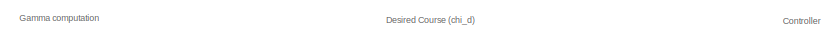
[diagram: BIXLER DYNAMICS/RUBBISH BIN/Orbit - part 1/2, top left region]
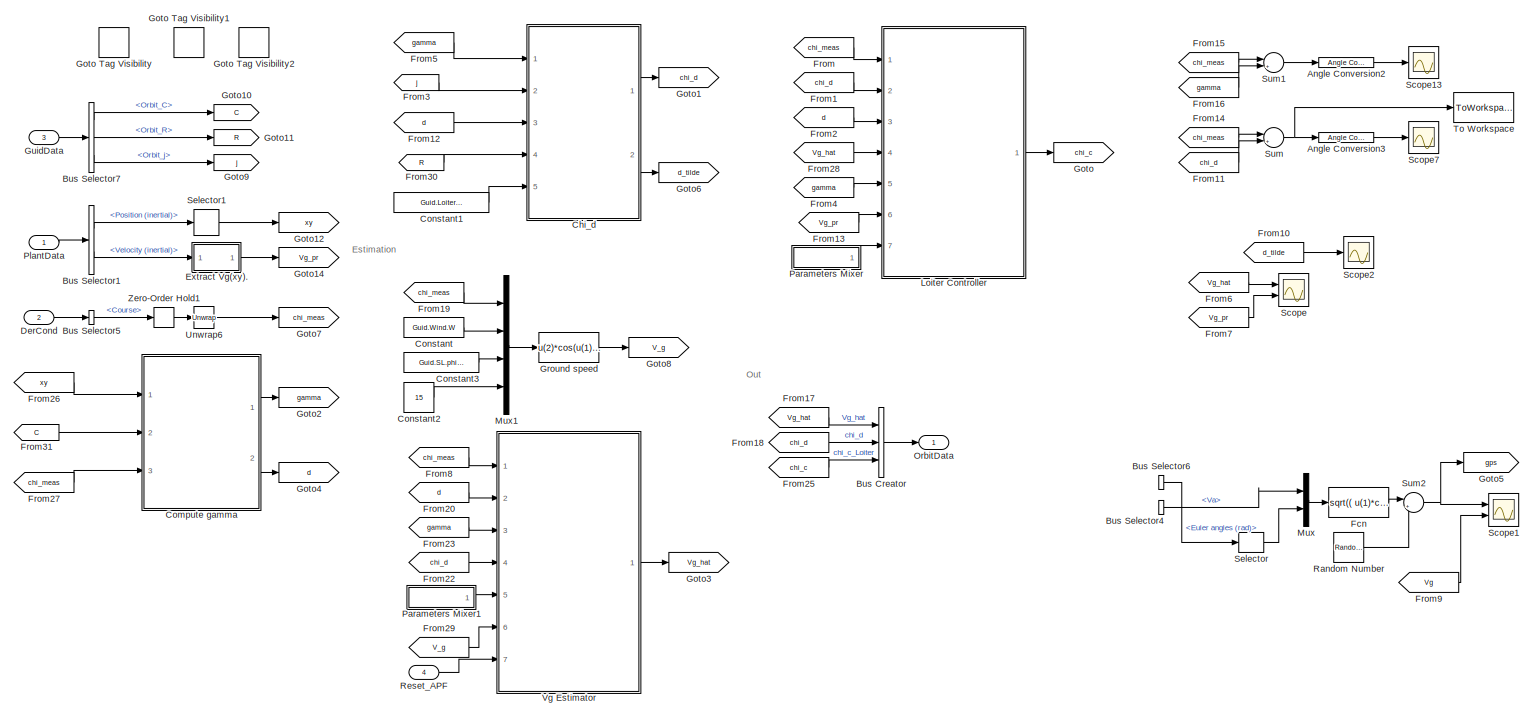
[diagram: BIXLER DYNAMICS/RUBBISH BIN/Orbit - part 2/2, most of the canvas]
BLOCK [SubSystem] BIXLER DYNAMICS/RUBBISH BIN/Orbit
  Commented = on
  Ports = [4, 1]
  RequestExecContextInheritance = off
BLOCK [Reference] BIXLER DYNAMICS/RUBBISH BIN/Orbit/Angle Conversion2  REF=aerolibconvert2/Angle Conversion
  Ports = [1, 1]
  SourceBlock = aerolibconvert2/Angle Conversion
  SourceProductBaseCode = AE
  SourceType = Angle Conversion
BLOCK [Reference] BIXLER DYNAMICS/RUBBISH BIN/Orbit/Angle Conversion3  REF=aerolibconvert2/Angle Conversion
  Ports = [1, 1]
  SourceBlock = aerolibconvert2/Angle Conversion
  SourceProductBaseCode = AE
  SourceType = Angle Conversion
BLOCK [BusCreator] BIXLER DYNAMICS/RUBBISH BIN/Orbit/Bus Creator
  DisplayOption = bar
  InheritFromInputs = on
  Inputs = 3
  Ports = [3, 1]
BLOCK [BusSelector] BIXLER DYNAMICS/RUBBISH BIN/Orbit/Bus Selector1
  OutputSignals = Position (inertial),Velocity (inertial)
  Ports = [1, 2]
BLOCK [BusSelector] BIXLER DYNAMICS/RUBBISH BIN/Orbit/Bus Selector4
  Commented = on
  OutputSignals = Va
  Ports = [1, 1]
BLOCK [BusSelector] BIXLER DYNAMICS/RUBBISH BIN/Orbit/Bus Selector5
  OutputSignals = Course
  Ports = [1, 1]
BLOCK [BusSelector] BIXLER DYNAMICS/RUBBISH BIN/Orbit/Bus Selector6
  Commented = on
  OutputSignals = Euler angles (rad)
  Ports = [1, 1]
BLOCK [BusSelector] BIXLER DYNAMICS/RUBBISH BIN/Orbit/Bus Selector7
  OutputSignals = Orbit_C,Orbit_R,Orbit_j
  Ports = [1, 3]
BLOCK [SubSystem] BIXLER DYNAMICS/RUBBISH BIN/Orbit/Chi_d
  Ports = [5, 2]
  RequestExecContextInheritance = off
BLOCK [SubSystem] BIXLER DYNAMICS/RUBBISH BIN/Orbit/Chi_d/Vector Field (loiter)
  ErrorFcn = Stateflow.Translate.translate
  PermitHierarchicalResolution = ExplicitOnly
  Ports = [5, 2]
  RequestExecContextInheritance = off
  SFBlockType = MATLAB Function
  TreatAsAtomicUnit = on
BLOCK [Demux] BIXLER DYNAMICS/RUBBISH BIN/Orbit/Chi_d/Vector Field (loiter)/ Demux 
  Outputs = 1
  Ports = [1, 1]
BLOCK [S-Function] BIXLER DYNAMICS/RUBBISH BIN/Orbit/Chi_d/Vector Field (loiter)/ SFunction 
  EnableBusSupport = on
  FunctionName = sf_sfun
  PortCounts = [5 3]
  Ports = [5, 3]
  SFcnIsStateOwnerBlock = off
  SFunctionDeploymentMode = off
  Tag = Stateflow S-Function 14
BLOCK [Terminator] BIXLER DYNAMICS/RUBBISH BIN/Orbit/Chi_d/Vector Field (loiter)/ Terminator 
BLOCK [Outport] BIXLER DYNAMICS/RUBBISH BIN/Orbit/Chi_d/Vector Field (loiter)/chi_d
  VectorParamsAs1DForOutWhenUnconnected = off
BLOCK [Inport] BIXLER DYNAMICS/RUBBISH BIN/Orbit/Chi_d/Vector Field (loiter)/d
  Port = 3
BLOCK [Outport] BIXLER DYNAMICS/RUBBISH BIN/Orbit/Chi_d/Vector Field (loiter)/d_tilde
  Port = 2
  VectorParamsAs1DForOutWhenUnconnected = off
BLOCK [Inport] BIXLER DYNAMICS/RUBBISH BIN/Orbit/Chi_d/Vector Field (loiter)/gamma
BLOCK [Inport] BIXLER DYNAMICS/RUBBISH BIN/Orbit/Chi_d/Vector Field (loiter)/j
  Port = 2
BLOCK [Inport] BIXLER DYNAMICS/RUBBISH BIN/Orbit/Chi_d/Vector Field (loiter)/k
  Port = 5
BLOCK [Inport] BIXLER DYNAMICS/RUBBISH BIN/Orbit/Chi_d/Vector Field (loiter)/radius
  Port = 4
BLOCK [Outport] BIXLER DYNAMICS/RUBBISH BIN/Orbit/Chi_d/chi_d
  VectorParamsAs1DForOutWhenUnconnected = off
BLOCK [Inport] BIXLER DYNAMICS/RUBBISH BIN/Orbit/Chi_d/d
  Port = 3
BLOCK [Outport] BIXLER DYNAMICS/RUBBISH BIN/Orbit/Chi_d/d_tilde
  Port = 2
  VectorParamsAs1DForOutWhenUnconnected = off
BLOCK [Inport] BIXLER DYNAMICS/RUBBISH BIN/Orbit/Chi_d/gamma
BLOCK [Inport] BIXLER DYNAMICS/RUBBISH BIN/Orbit/Chi_d/j
  Port = 2
BLOCK [Inport] BIXLER DYNAMICS/RUBBISH BIN/Orbit/Chi_d/k
  Port = 5
BLOCK [Inport] BIXLER DYNAMICS/RUBBISH BIN/Orbit/Chi_d/r
  Port = 4
BLOCK [SubSystem] BIXLER DYNAMICS/RUBBISH BIN/Orbit/Compute gamma
  Ports = [3, 2]
  RequestExecContextInheritance = off
BLOCK [Demux] BIXLER DYNAMICS/RUBBISH BIN/Orbit/Compute gamma/Demux
  Outputs = 2
  Ports = [1, 2]
BLOCK [SubSystem] BIXLER DYNAMICS/RUBBISH BIN/Orbit/Compute gamma/L.PolarCoord
  ErrorFcn = Stateflow.Translate.translate
  PermitHierarchicalResolution = ExplicitOnly
  Ports = [4, 2]
  RequestExecContextInheritance = off
  SFBlockType = MATLAB Function
  TreatAsAtomicUnit = on
BLOCK [Demux] BIXLER DYNAMICS/RUBBISH BIN/Orbit/Compute gamma/L.PolarCoord/ Demux 
  Outputs = 1
  Ports = [1, 1]
BLOCK [S-Function] BIXLER DYNAMICS/RUBBISH BIN/Orbit/Compute gamma/L.PolarCoord/ SFunction 
  EnableBusSupport = on
  FunctionName = sf_sfun
  PortCounts = [4 3]
  Ports = [4, 3]
  SFcnIsStateOwnerBlock = off
  SFunctionDeploymentMode = off
  Tag = Stateflow S-Function 20
BLOCK [Terminator] BIXLER DYNAMICS/RUBBISH BIN/Orbit/Compute gamma/L.PolarCoord/ Terminator 
BLOCK [Inport] BIXLER DYNAMICS/RUBBISH BIN/Orbit/Compute gamma/L.PolarCoord/c
  Port = 3
BLOCK [Inport] BIXLER DYNAMICS/RUBBISH BIN/Orbit/Compute gamma/L.PolarCoord/chi
  Port = 4
BLOCK [Outport] BIXLER DYNAMICS/RUBBISH BIN/Orbit/Compute gamma/L.PolarCoord/d
  Port = 2
  VectorParamsAs1DForOutWhenUnconnected = off
BLOCK [Outport] BIXLER DYNAMICS/RUBBISH BIN/Orbit/Compute gamma/L.PolarCoord/gamma
  VectorParamsAs1DForOutWhenUnconnected = off
BLOCK [Inport] BIXLER DYNAMICS/RUBBISH BIN/Orbit/Compute gamma/L.PolarCoord/x
BLOCK [Inport] BIXLER DYNAMICS/RUBBISH BIN/Orbit/Compute gamma/L.PolarCoord/y
  Port = 2
BLOCK [Inport] BIXLER DYNAMICS/RUBBISH BIN/Orbit/Compute gamma/OrbitCenter
  Port = 2
BLOCK [Reference] BIXLER DYNAMICS/RUBBISH BIN/Orbit/Compute gamma/Unwrap  REF=dspsigops/Unwrap
  Ports = [1, 1]
  SourceBlock = dspsigops/Unwrap
  SourceProductBaseCode = DS
  SourceType = Unwrap
  UserDataPersistent = on
BLOCK [ZeroOrderHold] BIXLER DYNAMICS/RUBBISH BIN/Orbit/Compute gamma/Zero-Order Hold2
  SampleTime = -1
BLOCK [ZeroOrderHold] BIXLER DYNAMICS/RUBBISH BIN/Orbit/Compute gamma/Zero-Order Hold3
  SampleTime = -1
BLOCK [ZeroOrderHold] BIXLER DYNAMICS/RUBBISH BIN/Orbit/Compute gamma/Zero-Order Hold4
  SampleTime = -1
BLOCK [ZeroOrderHold] BIXLER DYNAMICS/RUBBISH BIN/Orbit/Compute gamma/Zero-Order Hold5
  SampleTime = -1
BLOCK [Inport] BIXLER DYNAMICS/RUBBISH BIN/Orbit/Compute gamma/chi
  Port = 3
BLOCK [Outport] BIXLER DYNAMICS/RUBBISH BIN/Orbit/Compute gamma/d
  Port = 2
  VectorParamsAs1DForOutWhenUnconnected = off
BLOCK [Outport] BIXLER DYNAMICS/RUBBISH BIN/Orbit/Compute gamma/gamma
  VectorParamsAs1DForOutWhenUnconnected = off
BLOCK [Inport] BIXLER DYNAMICS/RUBBISH BIN/Orbit/Compute gamma/xy
BLOCK [Constant] BIXLER DYNAMICS/RUBBISH BIN/Orbit/Constant
  Value = Guid.Wind.W
BLOCK [Constant] BIXLER DYNAMICS/RUBBISH BIN/Orbit/Constant1
  Value = Guid.Loiter.k
BLOCK [Constant] BIXLER DYNAMICS/RUBBISH BIN/Orbit/Constant2
  Value = 15
BLOCK [Constant] BIXLER DYNAMICS/RUBBISH BIN/Orbit/Constant3
  Value = Guid.SL.phiw
BLOCK [Inport] BIXLER DYNAMICS/RUBBISH BIN/Orbit/DerCond
  Port = 2
BLOCK [SubSystem] BIXLER DYNAMICS/RUBBISH BIN/Orbit/Extract Vg(xy).
  Ports = [1, 1]
  RequestExecContextInheritance = off
  ShowPortLabels = none
BLOCK [Demux] BIXLER DYNAMICS/RUBBISH BIN/Orbit/Extract Vg(xy)./Demux
  Outputs = 2
  Ports = [1, 2]
BLOCK [Inport] BIXLER DYNAMICS/RUBBISH BIN/Orbit/Extract Vg(xy)./In1
BLOCK [Math] BIXLER DYNAMICS/RUBBISH BIN/Orbit/Extract Vg(xy)./Math Function
  Operator = hypot
  Ports = [2, 1]
  SignedPower = on
BLOCK [Outport] BIXLER DYNAMICS/RUBBISH BIN/Orbit/Extract Vg(xy)./Out1
  VectorParamsAs1DForOutWhenUnconnected = off
BLOCK [Selector] BIXLER DYNAMICS/RUBBISH BIN/Orbit/Extract Vg(xy)./Selector3
  IndexOptions = Index vector (dialog)
  Indices = [1 2]
  InputPortWidth = 3
  OutputSizes = 1
  Ports = [1, 1]
BLOCK [Fcn] BIXLER DYNAMICS/RUBBISH BIN/Orbit/Fcn
  Commented = on
  Expr = sqrt(( u(1)*cos(u(2))+Init.windConst(1) )^2 + (u(1)*sin(u(2))+Init.windConst(2))^2)
BLOCK [From] BIXLER DYNAMICS/RUBBISH BIN/Orbit/From
  GotoTag = chi_meas
BLOCK [From] BIXLER DYNAMICS/RUBBISH BIN/Orbit/From1
  GotoTag = chi_d
BLOCK [From] BIXLER DYNAMICS/RUBBISH BIN/Orbit/From10
  GotoTag = d_tilde
  TagVisibility = global
BLOCK [From] BIXLER DYNAMICS/RUBBISH BIN/Orbit/From11
  GotoTag = chi_d
BLOCK [From] BIXLER DYNAMICS/RUBBISH BIN/Orbit/From12
  GotoTag = d
BLOCK [From] BIXLER DYNAMICS/RUBBISH BIN/Orbit/From13
  GotoTag = Vg_pr
BLOCK [From] BIXLER DYNAMICS/RUBBISH BIN/Orbit/From14
  GotoTag = chi_meas
BLOCK [From] BIXLER DYNAMICS/RUBBISH BIN/Orbit/From15
  GotoTag = chi_meas
BLOCK [From] BIXLER DYNAMICS/RUBBISH BIN/Orbit/From16
  GotoTag = gamma
BLOCK [From] BIXLER DYNAMICS/RUBBISH BIN/Orbit/From17
  GotoTag = Vg_hat
BLOCK [From] BIXLER DYNAMICS/RUBBISH BIN/Orbit/From18
  GotoTag = chi_d
BLOCK [From] BIXLER DYNAMICS/RUBBISH BIN/Orbit/From19
  GotoTag = chi_meas
BLOCK [From] BIXLER DYNAMICS/RUBBISH BIN/Orbit/From2
  GotoTag = d
BLOCK [From] BIXLER DYNAMICS/RUBBISH BIN/Orbit/From20
  GotoTag = d
BLOCK [From] BIXLER DYNAMICS/RUBBISH BIN/Orbit/From22
  GotoTag = chi_d
BLOCK [From] BIXLER DYNAMICS/RUBBISH BIN/Orbit/From23
  GotoTag = gamma
BLOCK [From] BIXLER DYNAMICS/RUBBISH BIN/Orbit/From25
  GotoTag = chi_c
BLOCK [From] BIXLER DYNAMICS/RUBBISH BIN/Orbit/From26
  GotoTag = xy
BLOCK [From] BIXLER DYNAMICS/RUBBISH BIN/Orbit/From27
  GotoTag = chi_meas
BLOCK [From] BIXLER DYNAMICS/RUBBISH BIN/Orbit/From28
  GotoTag = Vg_hat
BLOCK [From] BIXLER DYNAMICS/RUBBISH BIN/Orbit/From29
  GotoTag = V_g
BLOCK [From] BIXLER DYNAMICS/RUBBISH BIN/Orbit/From3
  GotoTag = j
  TagVisibility = scoped
BLOCK [From] BIXLER DYNAMICS/RUBBISH BIN/Orbit/From30
  GotoTag = R
  TagVisibility = scoped
BLOCK [From] BIXLER DYNAMICS/RUBBISH BIN/Orbit/From31
  GotoTag = C
  TagVisibility = scoped
BLOCK [From] BIXLER DYNAMICS/RUBBISH BIN/Orbit/From4
  GotoTag = gamma
BLOCK [From] BIXLER DYNAMICS/RUBBISH BIN/Orbit/From5
  GotoTag = gamma
BLOCK [From] BIXLER DYNAMICS/RUBBISH BIN/Orbit/From6
  GotoTag = Vg_hat
BLOCK [From] BIXLER DYNAMICS/RUBBISH BIN/Orbit/From7
  GotoTag = Vg_pr
BLOCK [From] BIXLER DYNAMICS/RUBBISH BIN/Orbit/From8
  GotoTag = chi_meas
BLOCK [From] BIXLER DYNAMICS/RUBBISH BIN/Orbit/From9
  Commented = on
  GotoTag = Vg
BLOCK [Goto] BIXLER DYNAMICS/RUBBISH BIN/Orbit/Goto
  GotoTag = chi_c
BLOCK [GotoTagVisibility] BIXLER DYNAMICS/RUBBISH BIN/Orbit/Goto Tag Visibility
  GotoTag = j
BLOCK [GotoTagVisibility] BIXLER DYNAMICS/RUBBISH BIN/Orbit/Goto Tag Visibility1
  GotoTag = R
BLOCK [GotoTagVisibility] BIXLER DYNAMICS/RUBBISH BIN/Orbit/Goto Tag Visibility2
  GotoTag = C
BLOCK [Goto] BIXLER DYNAMICS/RUBBISH BIN/Orbit/Goto1
  GotoTag = chi_d
BLOCK [Goto] BIXLER DYNAMICS/RUBBISH BIN/Orbit/Goto10
  GotoTag = C
  TagVisibility = scoped
BLOCK [Goto] BIXLER DYNAMICS/RUBBISH BIN/Orbit/Goto11
  GotoTag = R
  TagVisibility = scoped
BLOCK [Goto] BIXLER DYNAMICS/RUBBISH BIN/Orbit/Goto12
  GotoTag = xy
BLOCK [Goto] BIXLER DYNAMICS/RUBBISH BIN/Orbit/Goto14
  GotoTag = Vg_pr
BLOCK [Goto] BIXLER DYNAMICS/RUBBISH BIN/Orbit/Goto2
  GotoTag = gamma
BLOCK [Goto] BIXLER DYNAMICS/RUBBISH BIN/Orbit/Goto3
  GotoTag = Vg_hat
BLOCK [Goto] BIXLER DYNAMICS/RUBBISH BIN/Orbit/Goto4
  GotoTag = d
BLOCK [Goto] BIXLER DYNAMICS/RUBBISH BIN/Orbit/Goto5
  Commented = on
  GotoTag = gps
BLOCK [Goto] BIXLER DYNAMICS/RUBBISH BIN/Orbit/Goto6
  GotoTag = d_tilde
  TagVisibility = global
BLOCK [Goto] BIXLER DYNAMICS/RUBBISH BIN/Orbit/Goto7
  GotoTag = chi_meas
BLOCK [Goto] BIXLER DYNAMICS/RUBBISH BIN/Orbit/Goto8
  GotoTag = V_g
BLOCK [Goto] BIXLER DYNAMICS/RUBBISH BIN/Orbit/Goto9
  GotoTag = j
  TagVisibility = scoped
BLOCK [Fcn] BIXLER DYNAMICS/RUBBISH BIN/Orbit/Ground speed
  Expr = u(2)*cos(u(1)-u(3))+sqrt(u(4)^2-u(2)^2*(sin(u(1)-u(3)))^2)
BLOCK [Inport] BIXLER DYNAMICS/RUBBISH BIN/Orbit/GuidData
  Port = 3
BLOCK [SubSystem] BIXLER DYNAMICS/RUBBISH BIN/Orbit/Loiter Controller
  Ports = [7, 1]
  RequestExecContextInheritance = off
BLOCK [SubSystem] BIXLER DYNAMICS/RUBBISH BIN/Orbit/Loiter Controller/Beard Version
  ErrorFcn = Stateflow.Translate.translate
  PermitHierarchicalResolution = ExplicitOnly
  Ports = [6, 1]
  RequestExecContextInheritance = off
  SFBlockType = MATLAB Function
  TreatAsAtomicUnit = on
BLOCK [Demux] BIXLER DYNAMICS/RUBBISH BIN/Orbit/Loiter Controller/Beard Version/ Demux 
  Outputs = 1
  Ports = [1, 1]
BLOCK [S-Function] BIXLER DYNAMICS/RUBBISH BIN/Orbit/Loiter Controller/Beard Version/ SFunction 
  EnableBusSupport = on
  FunctionName = sf_sfun
  PortCounts = [6 2]
  Ports = [6, 2]
  SFcnIsStateOwnerBlock = off
  SFunctionDeploymentMode = off
  Tag = Stateflow S-Function 3
BLOCK [Terminator] BIXLER DYNAMICS/RUBBISH BIN/Orbit/Loiter Controller/Beard Version/ Terminator 
BLOCK [Inport] BIXLER DYNAMICS/RUBBISH BIN/Orbit/Loiter Controller/Beard Version/Vg
  Port = 4
BLOCK [Inport] BIXLER DYNAMICS/RUBBISH BIN/Orbit/Loiter Controller/Beard Version/chi
BLOCK [Outport] BIXLER DYNAMICS/RUBBISH BIN/Orbit/Loiter Controller/Beard Version/chi_c
  VectorParamsAs1DForOutWhenUnconnected = off
BLOCK [Inport] BIXLER DYNAMICS/RUBBISH BIN/Orbit/Loiter Controller/Beard Version/chi_d
  Port = 2
BLOCK [Inport] BIXLER DYNAMICS/RUBBISH BIN/Orbit/Loiter Controller/Beard Version/d
  Port = 3
BLOCK [Inport] BIXLER DYNAMICS/RUBBISH BIN/Orbit/Loiter Controller/Beard Version/gamma
  Port = 5
BLOCK [Inport] BIXLER DYNAMICS/RUBBISH BIN/Orbit/Loiter Controller/Beard Version/param
  Port = 6
BLOCK [Constant] BIXLER DYNAMICS/RUBBISH BIN/Orbit/Loiter Controller/Constant
  Value = Guid.Method
BLOCK [From] BIXLER DYNAMICS/RUBBISH BIN/Orbit/Loiter Controller/From
  GotoTag = chi_d
BLOCK [From] BIXLER DYNAMICS/RUBBISH BIN/Orbit/Loiter Controller/From1
  GotoTag = chi_d
BLOCK [Goto] BIXLER DYNAMICS/RUBBISH BIN/Orbit/Loiter Controller/Goto
  GotoTag = chi_d
BLOCK [SubSystem] BIXLER DYNAMICS/RUBBISH BIN/Orbit/Loiter Controller/Loiter Controller
  ErrorFcn = Stateflow.Translate.translate
  PermitHierarchicalResolution = ExplicitOnly
  Ports = [6, 5]
  RequestExecContextInheritance = off
  SFBlockType = MATLAB Function
  TreatAsAtomicUnit = on
BLOCK [Demux] BIXLER DYNAMICS/RUBBISH BIN/Orbit/Loiter Controller/Loiter Controller/ Demux 
  Outputs = 1
  Ports = [1, 1]
BLOCK [S-Function] BIXLER DYNAMICS/RUBBISH BIN/Orbit/Loiter Controller/Loiter Controller/ SFunction 
  EnableBusSupport = on
  FunctionName = sf_sfun
  PortCounts = [6 6]
  Ports = [6, 6]
  SFcnIsStateOwnerBlock = off
  SFunctionDeploymentMode = off
  Tag = Stateflow S-Function 23
BLOCK [Terminator] BIXLER DYNAMICS/RUBBISH BIN/Orbit/Loiter Controller/Loiter Controller/ Terminator 
BLOCK [Inport] BIXLER DYNAMICS/RUBBISH BIN/Orbit/Loiter Controller/Loiter Controller/Vg
  Port = 4
BLOCK [Outport] BIXLER DYNAMICS/RUBBISH BIN/Orbit/Loiter Controller/Loiter Controller/beta
  Port = 3
  VectorParamsAs1DForOutWhenUnconnected = off
BLOCK [Inport] BIXLER DYNAMICS/RUBBISH BIN/Orbit/Loiter Controller/Loiter Controller/chi
BLOCK [Inport] BIXLER DYNAMICS/RUBBISH BIN/Orbit/Loiter Controller/Loiter Controller/chi_d
  Port = 2
BLOCK [Inport] BIXLER DYNAMICS/RUBBISH BIN/Orbit/Loiter Controller/Loiter Controller/d
  Port = 3
BLOCK [Outport] BIXLER DYNAMICS/RUBBISH BIN/Orbit/Loiter Controller/Loiter Controller/err
  Port = 2
  VectorParamsAs1DForOutWhenUnconnected = off
BLOCK [Inport] BIXLER DYNAMICS/RUBBISH BIN/Orbit/Loiter Controller/Loiter Controller/gamma
  Port = 5
BLOCK [Inport] BIXLER DYNAMICS/RUBBISH BIN/Orbit/Loiter Controller/Loiter Controller/param
  Port = 6
BLOCK [Outport] BIXLER DYNAMICS/RUBBISH BIN/Orbit/Loiter Controller/Loiter Controller/term2
  Port = 4
  VectorParamsAs1DForOutWhenUnconnected = off
BLOCK [Outport] BIXLER DYNAMICS/RUBBISH BIN/Orbit/Loiter Controller/Loiter Controller/term3
  Port = 5
  VectorParamsAs1DForOutWhenUnconnected = off
BLOCK [Outport] BIXLER DYNAMICS/RUBBISH BIN/Orbit/Loiter Controller/Loiter Controller/y
  VectorParamsAs1DForOutWhenUnconnected = off
BLOCK [ManualSwitch] BIXLER DYNAMICS/RUBBISH BIN/Orbit/Loiter Controller/Manual Switch1
  CurrentSetting = 0
BLOCK [Scope] BIXLER DYNAMICS/RUBBISH BIN/Orbit/Loiter Controller/Scope
  Floating = off
  NumInputPorts = 1
  Ports = [1]
  ScopeSpecificationString = Simulink.scopes.TimeScopeBlockCfg('CurrentConfiguration', extmgr.ConfigurationSet(extmgr.Configuration('Core','General UI',true),extmgr.Configuration('Core','Source UI',true),extmgr.Configuration('Sources','WiredSimulink',true,'DataLoggingVariableName','ScopeData1'),extmgr.Configuration('Visuals','Time Domain',true,'SerializedDisplays',{struct('MinYLimReal','-2.82767','MaxYLimReal','-1.33044','YLa...<+1382ch>
BLOCK [Scope] BIXLER DYNAMICS/RUBBISH BIN/Orbit/Loiter Controller/Scope1
  Floating = off
  NumInputPorts = 1
  Ports = [1]
  ScopeSpecificationString = Simulink.scopes.TimeScopeBlockCfg('CurrentConfiguration', extmgr.ConfigurationSet(extmgr.Configuration('Core','General UI',true),extmgr.Configuration('Core','Source UI',true),extmgr.Configuration('Sources','WiredSimulink',true,'DataLoggingVariableName','ScopeData2'),extmgr.Configuration('Visuals','Time Domain',true,'SerializedDisplays',{struct('MinYLimReal','-0.0003','MaxYLimReal','0.00376','YLabe...<+1377ch>
BLOCK [Scope] BIXLER DYNAMICS/RUBBISH BIN/Orbit/Loiter Controller/Scope10
  Floating = off
  NumInputPorts = 2
  Ports = [2]
  ScopeSpecificationString = Simulink.scopes.TimeScopeBlockCfg('CurrentConfiguration', extmgr.ConfigurationSet(extmgr.Configuration('Core','General UI',true),extmgr.Configuration('Core','Source UI',true),extmgr.Configuration('Sources','WiredSimulink',true,'DataLoggingVariableName','ScopeData4'),extmgr.Configuration('Visuals','Time Domain',true,'SerializedDisplays',{struct('MinYLimReal','-3.24218','MaxYLimReal','2.49267','YLab...<+1486ch>
BLOCK [Scope] BIXLER DYNAMICS/RUBBISH BIN/Orbit/Loiter Controller/Scope4
  Floating = off
  NumInputPorts = 1
  Ports = [1]
  ScopeSpecificationString = Simulink.scopes.TimeScopeBlockCfg('CurrentConfiguration', extmgr.ConfigurationSet(extmgr.Configuration('Core','General UI',true),extmgr.Configuration('Core','Source UI',true),extmgr.Configuration('Sources','WiredSimulink',true,'DataLoggingVariableName','ScopeData1'),extmgr.Configuration('Visuals','Time Domain',true,'SerializedDisplays',{struct('MinYLimReal','-0.23944','MaxYLimReal','0.11063','YLab...<+1380ch>
BLOCK [Switch] BIXLER DYNAMICS/RUBBISH BIN/Orbit/Loiter Controller/Switch
  Criteria = u2 > Threshold
  InputSameDT = off
  SaturateOnIntegerOverflow = off
  Threshold = 0.5
BLOCK [Inport] BIXLER DYNAMICS/RUBBISH BIN/Orbit/Loiter Controller/Vg
  Port = 6
BLOCK [Inport] BIXLER DYNAMICS/RUBBISH BIN/Orbit/Loiter Controller/Vg_hat
  Port = 4
BLOCK [Inport] BIXLER DYNAMICS/RUBBISH BIN/Orbit/Loiter Controller/chi
BLOCK [Outport] BIXLER DYNAMICS/RUBBISH BIN/Orbit/Loiter Controller/chi:_c
  VectorParamsAs1DForOutWhenUnconnected = off
BLOCK [Inport] BIXLER DYNAMICS/RUBBISH BIN/Orbit/Loiter Controller/chi_d
  Port = 2
BLOCK [Inport] BIXLER DYNAMICS/RUBBISH BIN/Orbit/Loiter Controller/d
  Port = 3
BLOCK [Inport] BIXLER DYNAMICS/RUBBISH BIN/Orbit/Loiter Controller/gamma
  Port = 5
BLOCK [Inport] BIXLER DYNAMICS/RUBBISH BIN/Orbit/Loiter Controller/param
  Port = 7
BLOCK [Mux] BIXLER DYNAMICS/RUBBISH BIN/Orbit/Mux
  Commented = on
  DisplayOption = bar
  Inputs = 2
  Ports = [2, 1]
BLOCK [Mux] BIXLER DYNAMICS/RUBBISH BIN/Orbit/Mux1
  DisplayOption = bar
  Ports = [4, 1]
BLOCK [Outport] BIXLER DYNAMICS/RUBBISH BIN/Orbit/OrbitData
  VectorParamsAs1DForOutWhenUnconnected = off
BLOCK [SubSystem] BIXLER DYNAMICS/RUBBISH BIN/Orbit/Parameters Mixer
  Ports = [0, 1]
  RequestExecContextInheritance = off
BLOCK [Constant] BIXLER DYNAMICS/RUBBISH BIN/Orbit/Parameters Mixer/Constant1
  Value = Guid.Est.alpha
BLOCK [Constant] BIXLER DYNAMICS/RUBBISH BIN/Orbit/Parameters Mixer/Constant6
  Value = Guid.Loiter.k
BLOCK [Constant] BIXLER DYNAMICS/RUBBISH BIN/Orbit/Parameters Mixer/Constant7
  Value = Guid.Loiter.kk
BLOCK [Constant] BIXLER DYNAMICS/RUBBISH BIN/Orbit/Parameters Mixer/Constant8
  Value = Guid.Loiter.eps
BLOCK [From] BIXLER DYNAMICS/RUBBISH BIN/Orbit/Parameters Mixer/From1
  GotoTag = R
  TagVisibility = scoped
BLOCK [From] BIXLER DYNAMICS/RUBBISH BIN/Orbit/Parameters Mixer/From3
  GotoTag = j
  TagVisibility = scoped
BLOCK [Mux] BIXLER DYNAMICS/RUBBISH BIN/Orbit/Parameters Mixer/Mux
  DisplayOption = bar
  Inputs = 6
  Ports = [6, 1]
BLOCK [Outport] BIXLER DYNAMICS/RUBBISH BIN/Orbit/Parameters Mixer/param
  VectorParamsAs1DForOutWhenUnconnected = off
BLOCK [SubSystem] BIXLER DYNAMICS/RUBBISH BIN/Orbit/Parameters Mixer1
  Ports = [0, 1]
  RequestExecContextInheritance = off
BLOCK [Constant] BIXLER DYNAMICS/RUBBISH BIN/Orbit/Parameters Mixer1/Constant
  Value = Guid.Wind.W
BLOCK [Constant] BIXLER DYNAMICS/RUBBISH BIN/Orbit/Parameters Mixer1/Constant1
  Value = Guid.Loiter.phiw
BLOCK [Constant] BIXLER DYNAMICS/RUBBISH BIN/Orbit/Parameters Mixer1/Constant11
  Value = Guid.Loiter.gamma
BLOCK [Constant] BIXLER DYNAMICS/RUBBISH BIN/Orbit/Parameters Mixer1/Constant2
  Value = Guid.Loiter.d_int
BLOCK [Constant] BIXLER DYNAMICS/RUBBISH BIN/Orbit/Parameters Mixer1/Constant3
  Value = Guid.Loiter.sigma
BLOCK [Constant] BIXLER DYNAMICS/RUBBISH BIN/Orbit/Parameters Mixer1/Constant6
  Value = Guid.Loiter.k
BLOCK [Constant] BIXLER DYNAMICS/RUBBISH BIN/Orbit/Parameters Mixer1/Constant7
  Value = Guid.Loiter.kk
BLOCK [Constant] BIXLER DYNAMICS/RUBBISH BIN/Orbit/Parameters Mixer1/Constant8
  Value = Guid.Loiter.eps
BLOCK [From] BIXLER DYNAMICS/RUBBISH BIN/Orbit/Parameters Mixer1/From27
  GotoTag = Target_Airspeed
  TagVisibility = global
BLOCK [From] BIXLER DYNAMICS/RUBBISH BIN/Orbit/Parameters Mixer1/From32
  GotoTag = R
  TagVisibility = scoped
BLOCK [From] BIXLER DYNAMICS/RUBBISH BIN/Orbit/Parameters Mixer1/From33
  GotoTag = j
  TagVisibility = scoped
BLOCK [Mux] BIXLER DYNAMICS/RUBBISH BIN/Orbit/Parameters Mixer1/Mux
  DisplayOption = bar
  Inputs = 11
  Ports = [11, 1]
BLOCK [Outport] BIXLER DYNAMICS/RUBBISH BIN/Orbit/Parameters Mixer1/param
  VectorParamsAs1DForOutWhenUnconnected = off
BLOCK [Inport] BIXLER DYNAMICS/RUBBISH BIN/Orbit/PlantData
BLOCK [RandomNumber] BIXLER DYNAMICS/RUBBISH BIN/Orbit/Random Number
  Commented = on
  SampleTime = 0.2
  Variance = 0.05^2
BLOCK [Inport] BIXLER DYNAMICS/RUBBISH BIN/Orbit/Reset_APF
  Port = 4
BLOCK [Scope] BIXLER DYNAMICS/RUBBISH BIN/Orbit/Scope
  Floating = off
  NumInputPorts = 2
  Ports = [2]
  ScopeSpecificationString = Simulink.scopes.TimeScopeBlockCfg('CurrentConfiguration', extmgr.ConfigurationSet(extmgr.Configuration('Core','General UI',true),extmgr.Configuration('Core','Source UI',true),extmgr.Configuration('Sources','WiredSimulink',true,'DataLoggingVariableName','ScopeData1'),extmgr.Configuration('Visuals','Time Domain',true,'SerializedDisplays',{struct('MinYLimReal','5.41954','MaxYLimReal','25.40367','YLab...<+1442ch>
BLOCK [Scope] BIXLER DYNAMICS/RUBBISH BIN/Orbit/Scope1
  Commented = on
  Floating = off
  NumInputPorts = 2
  Ports = [2]
  ScopeSpecificationString = Simulink.scopes.TimeScopeBlockCfg('CurrentConfiguration', extmgr.ConfigurationSet(extmgr.Configuration('Core','General UI',true),extmgr.Configuration('Core','Source UI',true),extmgr.Configuration('Sources','WiredSimulink',true,'DataLoggingVariableName','ScopeData1','DataLoggingLimitDataPoints',true,'DataLoggingSaveFormat','Array','DataLoggingDecimation','1','DataLoggingDecimateData',true),extmgr.C...<+165ch>
BLOCK [Scope] BIXLER DYNAMICS/RUBBISH BIN/Orbit/Scope13
  Floating = off
  NumInputPorts = 1
  Ports = [1]
  ScopeSpecificationString = Simulink.scopes.TimeScopeBlockCfg('CurrentConfiguration', extmgr.ConfigurationSet(extmgr.Configuration('Core','General UI',true),extmgr.Configuration('Core','Source UI',true),extmgr.Configuration('Sources','WiredSimulink',true,'DataLoggingVariableName','ScopeData3'),extmgr.Configuration('Visuals','Time Domain',true,'SerializedDisplays',{struct('MinYLimReal','-192.05897','MaxYLimReal','-72.23503','...<+1499ch>
BLOCK [Scope] BIXLER DYNAMICS/RUBBISH BIN/Orbit/Scope2
  Floating = off
  NumInputPorts = 1
  Ports = [1]
  ScopeSpecificationString = Simulink.scopes.TimeScopeBlockCfg('CurrentConfiguration', extmgr.ConfigurationSet(extmgr.Configuration('Core','General UI',true),extmgr.Configuration('Core','Source UI',true),extmgr.Configuration('Sources','WiredSimulink',true,'DataLoggingVariableName','ScopeData1'),extmgr.Configuration('Visuals','Time Domain',true,'SerializedDisplays',{struct('MinYLimReal','-2.25093','MaxYLimReal','700.39879','YL...<+1512ch>
BLOCK [Scope] BIXLER DYNAMICS/RUBBISH BIN/Orbit/Scope7
  Floating = off
  NumInputPorts = 1
  Ports = [1]
  ScopeSpecificationString = Simulink.scopes.TimeScopeBlockCfg('CurrentConfiguration', extmgr.ConfigurationSet(extmgr.Configuration('Core','General UI',true),extmgr.Configuration('Core','Source UI',true),extmgr.Configuration('Sources','WiredSimulink',true,'DataLoggingVariableName','ScopeData2'),extmgr.Configuration('Visuals','Time Domain',true,'SerializedDisplays',{struct('MinYLimReal','-227.48866','MaxYLimReal','276.101','YL...<+1518ch>
BLOCK [Selector] BIXLER DYNAMICS/RUBBISH BIN/Orbit/Selector
  Commented = on
  IndexOptions = Index vector (dialog)
  Indices = 3
  InputPortWidth = 3
  OutputSizes = 1
  Ports = [1, 1]
BLOCK [Selector] BIXLER DYNAMICS/RUBBISH BIN/Orbit/Selector1
  IndexOptions = Index vector (dialog)
  Indices = [1 2]
  InputPortWidth = 3
  OutputSizes = 1
  Ports = [1, 1]
BLOCK [Sum] BIXLER DYNAMICS/RUBBISH BIN/Orbit/Sum
  Inputs = |+-
  Ports = [2, 1]
BLOCK [Sum] BIXLER DYNAMICS/RUBBISH BIN/Orbit/Sum1
  Inputs = |+-
  Ports = [2, 1]
BLOCK [Sum] BIXLER DYNAMICS/RUBBISH BIN/Orbit/Sum2
  Commented = on
  Inputs = |++
  Ports = [2, 1]
BLOCK [ToWorkspace] BIXLER DYNAMICS/RUBBISH BIN/Orbit/To Workspace
  FixptAsFi = on
  MaxDataPoints = inf
  Ports = [1]
  SampleTime = -1
  SaveFormat = Timeseries
  VariableName = chi_tilde2
BLOCK [Reference] BIXLER DYNAMICS/RUBBISH BIN/Orbit/Unwrap6  REF=dspsigops/Unwrap
  Ports = [1, 1]
  SourceBlock = dspsigops/Unwrap
  SourceProductBaseCode = DS
  SourceType = Unwrap
  UserDataPersistent = on
BLOCK [SubSystem] BIXLER DYNAMICS/RUBBISH BIN/Orbit/Vg Estimator
  Commented = on
  Ports = [7, 1]
  RequestExecContextInheritance = off
BLOCK [SubSystem] BIXLER DYNAMICS/RUBBISH BIN/Orbit/Vg Estimator/Estimator 
  ErrorFcn = Stateflow.Translate.translate
  PermitHierarchicalResolution = ExplicitOnly
  Ports = [7, 8]
  RequestExecContextInheritance = off
  SFBlockType = MATLAB Function
  TreatAsAtomicUnit = on
BLOCK [Demux] BIXLER DYNAMICS/RUBBISH BIN/Orbit/Vg Estimator/Estimator / Demux 
  Outputs = 1
  Ports = [1, 1]
BLOCK [S-Function] BIXLER DYNAMICS/RUBBISH BIN/Orbit/Vg Estimator/Estimator / SFunction 
  EnableBusSupport = on
  FunctionName = sf_sfun
  PortCounts = [7 9]
  Ports = [7, 9]
  SFcnIsStateOwnerBlock = off
  SFunctionDeploymentMode = off
  Tag = Stateflow S-Function 19
BLOCK [Terminator] BIXLER DYNAMICS/RUBBISH BIN/Orbit/Vg Estimator/Estimator / Terminator 
BLOCK [Inport] BIXLER DYNAMICS/RUBBISH BIN/Orbit/Vg Estimator/Estimator /Vg
  Port = 7
BLOCK [Outport] BIXLER DYNAMICS/RUBBISH BIN/Orbit/Vg Estimator/Estimator /Vg2_hat_dot
  VectorParamsAs1DForOutWhenUnconnected = off
BLOCK [Inport] BIXLER DYNAMICS/RUBBISH BIN/Orbit/Vg Estimator/Estimator /Vg_hat
  Port = 3
BLOCK [Outport] BIXLER DYNAMICS/RUBBISH BIN/Orbit/Vg Estimator/Estimator /beta
  Port = 2
  VectorParamsAs1DForOutWhenUnconnected = off
BLOCK [Inport] BIXLER DYNAMICS/RUBBISH BIN/Orbit/Vg Estimator/Estimator /chi
BLOCK [Inport] BIXLER DYNAMICS/RUBBISH BIN/Orbit/Vg Estimator/Estimator /chi_d
  Port = 5
BLOCK [Outport] BIXLER DYNAMICS/RUBBISH BIN/Orbit/Vg Estimator/Estimator /chi_tilde
  Port = 8
  VectorParamsAs1DForOutWhenUnconnected = off
BLOCK [Inport] BIXLER DYNAMICS/RUBBISH BIN/Orbit/Vg Estimator/Estimator /d
  Port = 2
BLOCK [Outport] BIXLER DYNAMICS/RUBBISH BIN/Orbit/Vg Estimator/Estimator /der
  Port = 3
  VectorParamsAs1DForOutWhenUnconnected = off
BLOCK [Outport] BIXLER DYNAMICS/RUBBISH BIN/Orbit/Vg Estimator/Estimator /err_1
  Port = 6
  VectorParamsAs1DForOutWhenUnconnected = off
BLOCK [Outport] BIXLER DYNAMICS/RUBBISH BIN/Orbit/Vg Estimator/Estimator /err_2
  Port = 7
  VectorParamsAs1DForOutWhenUnconnected = off
BLOCK [Inport] BIXLER DYNAMICS/RUBBISH BIN/Orbit/Vg Estimator/Estimator /gamma
  Port = 4
BLOCK [Inport] BIXLER DYNAMICS/RUBBISH BIN/Orbit/Vg Estimator/Estimator /param
  Port = 6
BLOCK [Outport] BIXLER DYNAMICS/RUBBISH BIN/Orbit/Vg Estimator/Estimator /term1
  Port = 4
  VectorParamsAs1DForOutWhenUnconnected = off
BLOCK [Outport] BIXLER DYNAMICS/RUBBISH BIN/Orbit/Vg Estimator/Estimator /term2
  Port = 5
  VectorParamsAs1DForOutWhenUnconnected = off
BLOCK [From] BIXLER DYNAMICS/RUBBISH BIN/Orbit/Vg Estimator/From
  GotoTag = Vg_hat
BLOCK [Goto] BIXLER DYNAMICS/RUBBISH BIN/Orbit/Vg Estimator/Goto5
  GotoTag = Vg_hat
BLOCK [Integrator] BIXLER DYNAMICS/RUBBISH BIN/Orbit/Vg Estimator/Integrator1
  ExternalReset = rising
  InitialCondition = Guid.Vg0
  Ports = [2, 1]
BLOCK [Inport] BIXLER DYNAMICS/RUBBISH BIN/Orbit/Vg Estimator/Reset
  Port = 7
BLOCK [Scope] BIXLER DYNAMICS/RUBBISH BIN/Orbit/Vg Estimator/Scope16
  Floating = off
  NumInputPorts = 4
  Ports = [4]
  ScopeSpecificationString = Simulink.scopes.TimeScopeBlockCfg('CurrentConfiguration', extmgr.ConfigurationSet(extmgr.Configuration('Core','General UI',true),extmgr.Configuration('Core','Source UI',true),extmgr.Configuration('Sources','WiredSimulink',true,'DataLoggingVariableName','ScopeData2'),extmgr.Configuration('Visuals','Time Domain',true,'SerializedDisplays',{struct('MinYLimReal','-4.63569','MaxYLimReal','4.63569','YLab...<+1536ch>
BLOCK [Scope] BIXLER DYNAMICS/RUBBISH BIN/Orbit/Vg Estimator/Scope17
  Floating = off
  NumInputPorts = 3
  Ports = [3]
  ScopeSpecificationString = Simulink.scopes.TimeScopeBlockCfg('CurrentConfiguration', extmgr.ConfigurationSet(extmgr.Configuration('Core','General UI',true),extmgr.Configuration('Core','Source UI',true),extmgr.Configuration('Sources','WiredSimulink',true,'DataLoggingVariableName','ScopeData3'),extmgr.Configuration('Visuals','Time Domain',true,'SerializedDisplays',{struct('MinYLimReal','-6.5178','MaxYLimReal','27.24431','YLab...<+1524ch>
BLOCK [Outport] BIXLER DYNAMICS/RUBBISH BIN/Orbit/Vg Estimator/Vg_hat
  VectorParamsAs1DForOutWhenUnconnected = off
BLOCK [Inport] BIXLER DYNAMICS/RUBBISH BIN/Orbit/Vg Estimator/chi
BLOCK [Inport] BIXLER DYNAMICS/RUBBISH BIN/Orbit/Vg Estimator/chi_d
  Port = 4
BLOCK [Inport] BIXLER DYNAMICS/RUBBISH BIN/Orbit/Vg Estimator/d
  Port = 2
BLOCK [Inport] BIXLER DYNAMICS/RUBBISH BIN/Orbit/Vg Estimator/gamma
  Port = 3
BLOCK [Inport] BIXLER DYNAMICS/RUBBISH BIN/Orbit/Vg Estimator/param
  Port = 5
BLOCK [Inport] BIXLER DYNAMICS/RUBBISH BIN/Orbit/Vg Estimator/vg
  Port = 6
BLOCK [ZeroOrderHold] BIXLER DYNAMICS/RUBBISH BIN/Orbit/Zero-Order Hold1
  SampleTime = -1
BLOCK [SubSystem] BIXLER DYNAMICS/RUBBISH BIN/Reference Signals
  Commented = on
  Ports = [1, 1]
  RequestExecContextInheritance = off
BLOCK [Outport] BIXLER DYNAMICS/RUBBISH BIN/Reference Signals/ActuatorsReference
  VectorParamsAs1DForOutWhenUnconnected = off
BLOCK [BusCreator] BIXLER DYNAMICS/RUBBISH BIN/Reference Signals/Bus Creator
  DisplayOption = bar
  InheritFromInputs = on
  Inputs = 'Roll Reference (rad)','Pitch Reference (rad)','Yaw Reference (rad)'
  Ports = [3, 1]
BLOCK [SubSystem] BIXLER DYNAMICS/RUBBISH BIN/Reference Signals/Pitch Reference Generator
  Ports = [1, 1]
  RequestExecContextInheritance = off
BLOCK [Reference] BIXLER DYNAMICS/RUBBISH BIN/Reference Signals/Pitch Reference Generator/Angle Conversion1  REF=aerolibconvert2/Angle Conversion
  Ports = [1, 1]
  SourceBlock = aerolibconvert2/Angle Conversion
  SourceProductBaseCode = AE
  SourceType = Angle Conversion
BLOCK [Gain] BIXLER DYNAMICS/RUBBISH BIN/Reference Signals/Pitch Reference Generator/Ctr.Pitch.Trimmed 
  Commented = on
  Gain = Ctr.Pitch.Trimmed
BLOCK [Outport] BIXLER DYNAMICS/RUBBISH BIN/Reference Signals/Pitch Reference Generator/Pitch Reference
  VectorParamsAs1DForOutWhenUnconnected = off
BLOCK [Step] BIXLER DYNAMICS/RUBBISH BIN/Reference Signals/Pitch Reference Generator/Step1
  After = Ctr.Gen.stepElev
  SampleTime = 0
  Time = Ctr.Gen.stepTimeElev
BLOCK [Sum] BIXLER DYNAMICS/RUBBISH BIN/Reference Signals/Pitch Reference Generator/Sum
  Inputs = |++
  Ports = [2, 1]
BLOCK [Inport] BIXLER DYNAMICS/RUBBISH BIN/Reference Signals/Pitch Reference Generator/Throttle
BLOCK [SubSystem] BIXLER DYNAMICS/RUBBISH BIN/Reference Signals/Roll Reference Generator
  Ports = [0, 1]
  RequestExecContextInheritance = off
BLOCK [Reference] BIXLER DYNAMICS/RUBBISH BIN/Reference Signals/Roll Reference Generator/Angle Conversion  REF=aerolibconvert2/Angle Conversion
  Ports = [1, 1]
  SourceBlock = aerolibconvert2/Angle Conversion
  SourceProductBaseCode = AE
  SourceType = Angle Conversion
BLOCK [Outport] BIXLER DYNAMICS/RUBBISH BIN/Reference Signals/Roll Reference Generator/RollDemand
  VectorParamsAs1DForOutWhenUnconnected = off
BLOCK [Scope] BIXLER DYNAMICS/RUBBISH BIN/Reference Signals/Roll Reference Generator/Scope
  Floating = off
  NumInputPorts = 1
  Ports = [1]
  ScopeSpecificationString = Simulink.scopes.TimeScopeBlockCfg('CurrentConfiguration', extmgr.ConfigurationSet(extmgr.Configuration('Core','General UI',true),extmgr.Configuration('Core','Source UI',true),extmgr.Configuration('Sources','WiredSimulink',true,'DataLoggingVariableName','ScopeData1','DataLoggingLimitDataPoints',true,'DataLoggingSaveFormat','Array','DataLoggingDecimation','1','DataLoggingDecimateData',true),extmgr.C...<+1484ch>  <repeated x4 — deduplicated; at blocks: Scope>
BLOCK [Step] BIXLER DYNAMICS/RUBBISH BIN/Reference Signals/Roll Reference Generator/Step
  After = -Ctr.Gen.stepAil
  Commented = on
  SampleTime = 0
  Time = Ctr.Gen.stepTimeAilFinal
BLOCK [Step] BIXLER DYNAMICS/RUBBISH BIN/Reference Signals/Roll Reference Generator/Step1
  After = Ctr.Gen.stepAil
  SampleTime = 0
  Time = Ctr.Gen.stepTimeAil
BLOCK [Step] BIXLER DYNAMICS/RUBBISH BIN/Reference Signals/Roll Reference Generator/Step2
  After = -Ctr.Gen.stepAil
  Commented = on
  SampleTime = 0
  Time = Ctr.Gen.stepTimeAil+Ctr.Gen.stepAilDelay
BLOCK [Step] BIXLER DYNAMICS/RUBBISH BIN/Reference Signals/Roll Reference Generator/Step3
  After = Ctr.Gen.stepAil
  Commented = on
  SampleTime = 0
  Time = Ctr.Gen.stepTimeAilFinal+Ctr.Gen.stepAilDelay
BLOCK [Sum] BIXLER DYNAMICS/RUBBISH BIN/Reference Signals/Roll Reference Generator/Sum
  IconShape = rectangular
  Inputs = ++++
  Ports = [4, 1]
BLOCK [Inport] BIXLER DYNAMICS/RUBBISH BIN/Reference Signals/Throttle
BLOCK [SubSystem] BIXLER DYNAMICS/RUBBISH BIN/Reference Signals/Yaw Reference Generator
  Ports = [0, 1]
  RequestExecContextInheritance = off
BLOCK [Reference] BIXLER DYNAMICS/RUBBISH BIN/Reference Signals/Yaw Reference Generator/Angle Conversion  REF=aerolibconvert2/Angle Conversion
  Ports = [1, 1]
  SourceBlock = aerolibconvert2/Angle Conversion
  SourceProductBaseCode = AE
  SourceType = Angle Conversion
BLOCK [Scope] BIXLER DYNAMICS/RUBBISH BIN/Reference Signals/Yaw Reference Generator/Scope
  Floating = off
  NumInputPorts = 1
  Ports = [1]
BLOCK [Step] BIXLER DYNAMICS/RUBBISH BIN/Reference Signals/Yaw Reference Generator/Step
  After = -Ctr.Gen.stepAil
  SampleTime = 0
  Time = Ctr.Gen.stepTimeAilFinal
BLOCK [Step] BIXLER DYNAMICS/RUBBISH BIN/Reference Signals/Yaw Reference Generator/Step1
  After = Ctr.Gen.stepAil
  SampleTime = 0
  Time = Ctr.Gen.stepTimeAil
BLOCK [Step] BIXLER DYNAMICS/RUBBISH BIN/Reference Signals/Yaw Reference Generator/Step2
  After = -Ctr.Gen.stepAil
  SampleTime = 0
  Time = Ctr.Gen.stepTimeAil+Ctr.Gen.stepAilDelay
BLOCK [Step] BIXLER DYNAMICS/RUBBISH BIN/Reference Signals/Yaw Reference Generator/Step3
  After = Ctr.Gen.stepAil
  SampleTime = 0
  Time = Ctr.Gen.stepTimeAilFinal+Ctr.Gen.stepAilDelay
BLOCK [Sum] BIXLER DYNAMICS/RUBBISH BIN/Reference Signals/Yaw Reference Generator/Sum
  IconShape = rectangular
  Inputs = ++++
  Ports = [4, 1]
BLOCK [Outport] BIXLER DYNAMICS/RUBBISH BIN/Reference Signals/Yaw Reference Generator/YawDemand
  VectorParamsAs1DForOutWhenUnconnected = off
BLOCK [SubSystem] BIXLER DYNAMICS/RUBBISH BIN/Reference Signals1
  Commented = on
  Ports = [1, 1]
  RequestExecContextInheritance = off
BLOCK [Outport] BIXLER DYNAMICS/RUBBISH BIN/Reference Signals1/ActuatorsReference
  VectorParamsAs1DForOutWhenUnconnected = off
BLOCK [BusCreator] BIXLER DYNAMICS/RUBBISH BIN/Reference Signals1/Bus Creator
  DisplayOption = bar
  InheritFromInputs = on
  Inputs = 'Roll Reference (rad)','Pitch Reference (rad)','Yaw Reference (rad)'
  Ports = [3, 1]
BLOCK [SubSystem] BIXLER DYNAMICS/RUBBISH BIN/Reference Signals1/Pitch Reference Generator
  Ports = [1, 1]
  RequestExecContextInheritance = off
BLOCK [Reference] BIXLER DYNAMICS/RUBBISH BIN/Reference Signals1/Pitch Reference Generator/Angle Conversion1  REF=aerolibconvert2/Angle Conversion
  Ports = [1, 1]
  SourceBlock = aerolibconvert2/Angle Conversion
  SourceProductBaseCode = AE
  SourceType = Angle Conversion
BLOCK [Gain] BIXLER DYNAMICS/RUBBISH BIN/Reference Signals1/Pitch Reference Generator/Ctr.Pitch.Trimmed 
  Commented = on
  Gain = Ctr.Pitch.Trimmed
BLOCK [Outport] BIXLER DYNAMICS/RUBBISH BIN/Reference Signals1/Pitch Reference Generator/Pitch Reference
  VectorParamsAs1DForOutWhenUnconnected = off
BLOCK [Step] BIXLER DYNAMICS/RUBBISH BIN/Reference Signals1/Pitch Reference Generator/Step1
  After = Ctr.Gen.stepElev
  SampleTime = 0
  Time = Ctr.Gen.stepTimeElev
BLOCK [Sum] BIXLER DYNAMICS/RUBBISH BIN/Reference Signals1/Pitch Reference Generator/Sum
  Inputs = |++
  Ports = [2, 1]
BLOCK [Inport] BIXLER DYNAMICS/RUBBISH BIN/Reference Signals1/Pitch Reference Generator/Throttle
BLOCK [SubSystem] BIXLER DYNAMICS/RUBBISH BIN/Reference Signals1/Roll Reference Generator
  Ports = [0, 1]
  RequestExecContextInheritance = off
BLOCK [Reference] BIXLER DYNAMICS/RUBBISH BIN/Reference Signals1/Roll Reference Generator/Angle Conversion  REF=aerolibconvert2/Angle Conversion
  Ports = [1, 1]
  SourceBlock = aerolibconvert2/Angle Conversion
  SourceProductBaseCode = AE
  SourceType = Angle Conversion
BLOCK [Outport] BIXLER DYNAMICS/RUBBISH BIN/Reference Signals1/Roll Reference Generator/RollDemand
  VectorParamsAs1DForOutWhenUnconnected = off
BLOCK [Scope] BIXLER DYNAMICS/RUBBISH BIN/Reference Signals1/Roll Reference Generator/Scope
  Floating = off
  NumInputPorts = 1
  Ports = [1]
BLOCK [Step] BIXLER DYNAMICS/RUBBISH BIN/Reference Signals1/Roll Reference Generator/Step
  After = -Ctr.Gen.stepAil
  Commented = on
  SampleTime = 0
  Time = Ctr.Gen.stepTimeAilFinal
BLOCK [Step] BIXLER DYNAMICS/RUBBISH BIN/Reference Signals1/Roll Reference Generator/Step1
  After = Ctr.Gen.stepAil
  SampleTime = 0
  Time = Ctr.Gen.stepTimeAil
BLOCK [Step] BIXLER DYNAMICS/RUBBISH BIN/Reference Signals1/Roll Reference Generator/Step2
  After = -Ctr.Gen.stepAil
  Commented = on
  SampleTime = 0
  Time = Ctr.Gen.stepTimeAil+Ctr.Gen.stepAilDelay
BLOCK [Step] BIXLER DYNAMICS/RUBBISH BIN/Reference Signals1/Roll Reference Generator/Step3
  After = Ctr.Gen.stepAil
  Commented = on
  SampleTime = 0
  Time = Ctr.Gen.stepTimeAilFinal+Ctr.Gen.stepAilDelay
BLOCK [Sum] BIXLER DYNAMICS/RUBBISH BIN/Reference Signals1/Roll Reference Generator/Sum
  IconShape = rectangular
  Inputs = ++++
  Ports = [4, 1]
BLOCK [Inport] BIXLER DYNAMICS/RUBBISH BIN/Reference Signals1/Throttle
BLOCK [SubSystem] BIXLER DYNAMICS/RUBBISH BIN/Reference Signals1/Yaw Reference Generator
  Ports = [0, 1]
  RequestExecContextInheritance = off
BLOCK [Reference] BIXLER DYNAMICS/RUBBISH BIN/Reference Signals1/Yaw Reference Generator/Angle Conversion  REF=aerolibconvert2/Angle Conversion
  Ports = [1, 1]
  SourceBlock = aerolibconvert2/Angle Conversion
  SourceProductBaseCode = AE
  SourceType = Angle Conversion
BLOCK [Scope] BIXLER DYNAMICS/RUBBISH BIN/Reference Signals1/Yaw Reference Generator/Scope
  Floating = off
  NumInputPorts = 1
  Ports = [1]
BLOCK [Step] BIXLER DYNAMICS/RUBBISH BIN/Reference Signals1/Yaw Reference Generator/Step
  After = -Ctr.Gen.stepAil
  SampleTime = 0
  Time = Ctr.Gen.stepTimeAilFinal
BLOCK [Step] BIXLER DYNAMICS/RUBBISH BIN/Reference Signals1/Yaw Reference Generator/Step1
  After = Ctr.Gen.stepAil
  SampleTime = 0
  Time = Ctr.Gen.stepTimeAil
BLOCK [Step] BIXLER DYNAMICS/RUBBISH BIN/Reference Signals1/Yaw Reference Generator/Step2
  After = -Ctr.Gen.stepAil
  SampleTime = 0
  Time = Ctr.Gen.stepTimeAil+Ctr.Gen.stepAilDelay
BLOCK [Step] BIXLER DYNAMICS/RUBBISH BIN/Reference Signals1/Yaw Reference Generator/Step3
  After = Ctr.Gen.stepAil
  SampleTime = 0
  Time = Ctr.Gen.stepTimeAilFinal+Ctr.Gen.stepAilDelay
BLOCK [Sum] BIXLER DYNAMICS/RUBBISH BIN/Reference Signals1/Yaw Reference Generator/Sum
  IconShape = rectangular
  Inputs = ++++
  Ports = [4, 1]
BLOCK [Outport] BIXLER DYNAMICS/RUBBISH BIN/Reference Signals1/Yaw Reference Generator/YawDemand
  VectorParamsAs1DForOutWhenUnconnected = off
BLOCK [SubSystem] BIXLER DYNAMICS/RUBBISH BIN/Straight Line
  Commented = on
  Ports = [4, 2]
  RequestExecContextInheritance = off
BLOCK [SubSystem] BIXLER DYNAMICS/RUBBISH BIN/Straight Line/..Ground velocity
  Commented = on
  ErrorFcn = Stateflow.Translate.translate
  PermitHierarchicalResolution = ExplicitOnly
  Ports = [4, 1]
  RequestExecContextInheritance = off
  SFBlockType = MATLAB Function
  TreatAsAtomicUnit = on
BLOCK [Demux] BIXLER DYNAMICS/RUBBISH BIN/Straight Line/..Ground velocity/ Demux 
  Outputs = 1
  Ports = [1, 1]
BLOCK [S-Function] BIXLER DYNAMICS/RUBBISH BIN/Straight Line/..Ground velocity/ SFunction 
  EnableBusSupport = on
  FunctionName = sf_sfun
  PortCounts = [4 2]
  Ports = [4, 2]
  SFcnIsStateOwnerBlock = off
  SFunctionDeploymentMode = off
  Tag = Stateflow S-Function 26
BLOCK [Terminator] BIXLER DYNAMICS/RUBBISH BIN/Straight Line/..Ground velocity/ Terminator 
BLOCK [Inport] BIXLER DYNAMICS/RUBBISH BIN/Straight Line/..Ground velocity/Va
  Port = 4
BLOCK [Outport] BIXLER DYNAMICS/RUBBISH BIN/Straight Line/..Ground velocity/Vg
  VectorParamsAs1DForOutWhenUnconnected = off
BLOCK [Inport] BIXLER DYNAMICS/RUBBISH BIN/Straight Line/..Ground velocity/chi
BLOCK [Inport] BIXLER DYNAMICS/RUBBISH BIN/Straight Line/..Ground velocity/phiw
  Port = 3
BLOCK [Inport] BIXLER DYNAMICS/RUBBISH BIN/Straight Line/..Ground velocity/w
  Port = 2
BLOCK [BusCreator] BIXLER DYNAMICS/RUBBISH BIN/Straight Line/Bus Creator
  DisplayOption = bar
  InheritFromInputs = on
  Inputs = 3
  Ports = [3, 1]
BLOCK [BusSelector] BIXLER DYNAMICS/RUBBISH BIN/Straight Line/Bus Selector
  OutputSignals = SL_Slope,SL_Origin
  Ports = [1, 2]
BLOCK [BusSelector] BIXLER DYNAMICS/RUBBISH BIN/Straight Line/Bus Selector1
  OutputSignals = Position (inertial)
  Ports = [1, 1]
BLOCK [BusSelector] BIXLER DYNAMICS/RUBBISH BIN/Straight Line/Bus Selector2
  OutputSignals = Velocity (inertial)
  Ports = [1, 1]
BLOCK [BusSelector] BIXLER DYNAMICS/RUBBISH BIN/Straight Line/Bus Selector3
  OutputSignals = Course
  Ports = [1, 1]
BLOCK [SubSystem] BIXLER DYNAMICS/RUBBISH BIN/Straight Line/Chi_d
  Ports = [4, 1]
  RequestExecContextInheritance = off
BLOCK [SubSystem] BIXLER DYNAMICS/RUBBISH BIN/Straight Line/Chi_d/Vector Field (straight line)
  ErrorFcn = Stateflow.Translate.translate
  PermitHierarchicalResolution = ExplicitOnly
  Ports = [4, 1]
  RequestExecContextInheritance = off
  SFBlockType = MATLAB Function
  TreatAsAtomicUnit = on
BLOCK [Demux] BIXLER DYNAMICS/RUBBISH BIN/Straight Line/Chi_d/Vector Field (straight line)/ Demux 
  Outputs = 1
  Ports = [1, 1]
BLOCK [S-Function] BIXLER DYNAMICS/RUBBISH BIN/Straight Line/Chi_d/Vector Field (straight line)/ SFunction 
  EnableBusSupport = on
  FunctionName = sf_sfun
  PortCounts = [4 2]
  Ports = [4, 2]
  SFcnIsStateOwnerBlock = off
  SFunctionDeploymentMode = off
  Tag = Stateflow S-Function 16
BLOCK [Terminator] BIXLER DYNAMICS/RUBBISH BIN/Straight Line/Chi_d/Vector Field (straight line)/ Terminator 
BLOCK [Outport] BIXLER DYNAMICS/RUBBISH BIN/Straight Line/Chi_d/Vector Field (straight line)/chi_d
  VectorParamsAs1DForOutWhenUnconnected = off
BLOCK [Inport] BIXLER DYNAMICS/RUBBISH BIN/Straight Line/Chi_d/Vector Field (straight line)/chi_inf
  Port = 3
BLOCK [Inport] BIXLER DYNAMICS/RUBBISH BIN/Straight Line/Chi_d/Vector Field (straight line)/chi_q
  Port = 2
BLOCK [Inport] BIXLER DYNAMICS/RUBBISH BIN/Straight Line/Chi_d/Vector Field (straight line)/e_y
BLOCK [Inport] BIXLER DYNAMICS/RUBBISH BIN/Straight Line/Chi_d/Vector Field (straight line)/k_line
  Port = 4
BLOCK [Outport] BIXLER DYNAMICS/RUBBISH BIN/Straight Line/Chi_d/chi_d
  VectorParamsAs1DForOutWhenUnconnected = off
BLOCK [Inport] BIXLER DYNAMICS/RUBBISH BIN/Straight Line/Chi_d/chi_inf
  Port = 3
BLOCK [Inport] BIXLER DYNAMICS/RUBBISH BIN/Straight Line/Chi_d/chi_q
  Port = 2
BLOCK [Inport] BIXLER DYNAMICS/RUBBISH BIN/Straight Line/Chi_d/ey
BLOCK [Inport] BIXLER DYNAMICS/RUBBISH BIN/Straight Line/Chi_d/k_line
  Port = 4
BLOCK [SubSystem] BIXLER DYNAMICS/RUBBISH BIN/Straight Line/Compute crosstrack error
  Ports = [5, 2]
  RequestExecContextInheritance = off
BLOCK [Inport] BIXLER DYNAMICS/RUBBISH BIN/Straight Line/Compute crosstrack error/SL.Line_Origin
  Port = 5
BLOCK [Inport] BIXLER DYNAMICS/RUBBISH BIN/Straight Line/Compute crosstrack error/SL.Slope
  Port = 4
BLOCK [Scope] BIXLER DYNAMICS/RUBBISH BIN/Straight Line/Compute crosstrack error/Scope
  Floating = off
  NumInputPorts = 1
  Ports = [1]
  ScopeSpecificationString = Simulink.scopes.TimeScopeBlockCfg('CurrentConfiguration', extmgr.ConfigurationSet(extmgr.Configuration('Core','General UI',true),extmgr.Configuration('Core','Source UI',true),extmgr.Configuration('Sources','WiredSimulink',true,'DataLoggingVariableName','ScopeData1'),extmgr.Configuration('Visuals','Time Domain',true,'SerializedDisplays',{struct('MinYLimReal','-0.19635','MaxYLimReal','1.76715','YLab...<+1377ch>
BLOCK [SubSystem] BIXLER DYNAMICS/RUBBISH BIN/Straight Line/Compute crosstrack error/Xtrack error
  ErrorFcn = Stateflow.Translate.translate
  PermitHierarchicalResolution = ExplicitOnly
  Ports = [5, 2]
  RequestExecContextInheritance = off
  SFBlockType = MATLAB Function
  TreatAsAtomicUnit = on
BLOCK [Demux] BIXLER DYNAMICS/RUBBISH BIN/Straight Line/Compute crosstrack error/Xtrack error/ Demux 
  Outputs = 1
  Ports = [1, 1]
BLOCK [S-Function] BIXLER DYNAMICS/RUBBISH BIN/Straight Line/Compute crosstrack error/Xtrack error/ SFunction 
  EnableBusSupport = on
  FunctionName = sf_sfun
  PortCounts = [5 3]
  Ports = [5, 3]
  SFcnIsStateOwnerBlock = off
  SFunctionDeploymentMode = off
  Tag = Stateflow S-Function 10
BLOCK [Terminator] BIXLER DYNAMICS/RUBBISH BIN/Straight Line/Compute crosstrack error/Xtrack error/ Terminator 
BLOCK [Inport] BIXLER DYNAMICS/RUBBISH BIN/Straight Line/Compute crosstrack error/Xtrack error/chi
  Port = 3
BLOCK [Outport] BIXLER DYNAMICS/RUBBISH BIN/Straight Line/Compute crosstrack error/Xtrack error/chi_q
  VectorParamsAs1DForOutWhenUnconnected = off
BLOCK [Outport] BIXLER DYNAMICS/RUBBISH BIN/Straight Line/Compute crosstrack error/Xtrack error/epy
  Port = 2
  VectorParamsAs1DForOutWhenUnconnected = off
BLOCK [Inport] BIXLER DYNAMICS/RUBBISH BIN/Straight Line/Compute crosstrack error/Xtrack error/origin
  Port = 5
BLOCK [Inport] BIXLER DYNAMICS/RUBBISH BIN/Straight Line/Compute crosstrack error/Xtrack error/slope
  Port = 4
BLOCK [Inport] BIXLER DYNAMICS/RUBBISH BIN/Straight Line/Compute crosstrack error/Xtrack error/x
BLOCK [Inport] BIXLER DYNAMICS/RUBBISH BIN/Straight Line/Compute crosstrack error/Xtrack error/y
  Port = 2
BLOCK [Inport] BIXLER DYNAMICS/RUBBISH BIN/Straight Line/Compute crosstrack error/chi_meas
  Port = 3
BLOCK [Outport] BIXLER DYNAMICS/RUBBISH BIN/Straight Line/Compute crosstrack error/chi_q
  VectorParamsAs1DForOutWhenUnconnected = off
BLOCK [Outport] BIXLER DYNAMICS/RUBBISH BIN/Straight Line/Compute crosstrack error/e_y
  Port = 2
  Unit = m
  VectorParamsAs1DForOutWhenUnconnected = off
BLOCK [Inport] BIXLER DYNAMICS/RUBBISH BIN/Straight Line/Compute crosstrack error/x
BLOCK [Inport] BIXLER DYNAMICS/RUBBISH BIN/Straight Line/Compute crosstrack error/y
  Port = 2
BLOCK [Constant] BIXLER DYNAMICS/RUBBISH BIN/Straight Line/Constant1
  Value = Guid.SL.k
BLOCK [Constant] BIXLER DYNAMICS/RUBBISH BIN/Straight Line/Constant2
  Value = Guid.Wind.W
BLOCK [Constant] BIXLER DYNAMICS/RUBBISH BIN/Straight Line/Constant3
  Value = Guid.SL.phiw
BLOCK [Constant] BIXLER DYNAMICS/RUBBISH BIN/Straight Line/Constant4
  Value = 15
BLOCK [Constant] BIXLER DYNAMICS/RUBBISH BIN/Straight Line/Constant6
  Value = Guid.SL.chi_inf
BLOCK [Demux] BIXLER DYNAMICS/RUBBISH BIN/Straight Line/Demux2
  Outputs = 2
  Ports = [1, 2]
BLOCK [Inport] BIXLER DYNAMICS/RUBBISH BIN/Straight Line/DerCond
  Port = 2
BLOCK [SubSystem] BIXLER DYNAMICS/RUBBISH BIN/Straight Line/Extract Vg(xy)
  Ports = [1, 1]
  RequestExecContextInheritance = off
  ShowPortLabels = none
BLOCK [Demux] BIXLER DYNAMICS/RUBBISH BIN/Straight Line/Extract Vg(xy)/Demux
  Outputs = 2
  Ports = [1, 2]
BLOCK [Inport] BIXLER DYNAMICS/RUBBISH BIN/Straight Line/Extract Vg(xy)/In1
BLOCK [Math] BIXLER DYNAMICS/RUBBISH BIN/Straight Line/Extract Vg(xy)/Math Function
  Operator = hypot
  Ports = [2, 1]
  SignedPower = on
BLOCK [Outport] BIXLER DYNAMICS/RUBBISH BIN/Straight Line/Extract Vg(xy)/Out1
  VectorParamsAs1DForOutWhenUnconnected = off
BLOCK [Selector] BIXLER DYNAMICS/RUBBISH BIN/Straight Line/Extract Vg(xy)/Selector3
  IndexOptions = Index vector (dialog)
  Indices = [1 2]
  InputPortWidth = 3
  OutputSizes = 1
  Ports = [1, 1]
BLOCK [From] BIXLER DYNAMICS/RUBBISH BIN/Straight Line/From
  GotoTag = chi_q
BLOCK [From] BIXLER DYNAMICS/RUBBISH BIN/Straight Line/From1
  GotoTag = chi_d
BLOCK [From] BIXLER DYNAMICS/RUBBISH BIN/Straight Line/From10
  GotoTag = chi_meas
BLOCK [From] BIXLER DYNAMICS/RUBBISH BIN/Straight Line/From11
  GotoTag = chi_q
BLOCK [From] BIXLER DYNAMICS/RUBBISH BIN/Straight Line/From14
  GotoTag = chi_meas
BLOCK [From] BIXLER DYNAMICS/RUBBISH BIN/Straight Line/From17
  GotoTag = Vg_prime
BLOCK [From] BIXLER DYNAMICS/RUBBISH BIN/Straight Line/From18
  GotoTag = chi_d
BLOCK [From] BIXLER DYNAMICS/RUBBISH BIN/Straight Line/From2
  GotoTag = Vg_hat
BLOCK [From] BIXLER DYNAMICS/RUBBISH BIN/Straight Line/From21
  GotoTag = Vg_hat
BLOCK [From] BIXLER DYNAMICS/RUBBISH BIN/Straight Line/From22
  GotoTag = chi_c
BLOCK [From] BIXLER DYNAMICS/RUBBISH BIN/Straight Line/From24
  GotoTag = chi_d
BLOCK [From] BIXLER DYNAMICS/RUBBISH BIN/Straight Line/From28
  GotoTag = chi_q
BLOCK [From] BIXLER DYNAMICS/RUBBISH BIN/Straight Line/From29
  GotoTag = V_g
BLOCK [From] BIXLER DYNAMICS/RUBBISH BIN/Straight Line/From3
  GotoTag = chi_meas
BLOCK [From] BIXLER DYNAMICS/RUBBISH BIN/Straight Line/From30
  GotoTag = xy
BLOCK [From] BIXLER DYNAMICS/RUBBISH BIN/Straight Line/From31
  GotoTag = Vg_prime
BLOCK [From] BIXLER DYNAMICS/RUBBISH BIN/Straight Line/From32
  GotoTag = Vg_hat
BLOCK [From] BIXLER DYNAMICS/RUBBISH BIN/Straight Line/From33
  GotoTag = V_g
BLOCK [From] BIXLER DYNAMICS/RUBBISH BIN/Straight Line/From34
  GotoTag = V_g
BLOCK [From] BIXLER DYNAMICS/RUBBISH BIN/Straight Line/From4
  GotoTag = e_y
  TagVisibility = global
BLOCK [From] BIXLER DYNAMICS/RUBBISH BIN/Straight Line/From5
  GotoTag = chi_meas
BLOCK [From] BIXLER DYNAMICS/RUBBISH BIN/Straight Line/From6
  GotoTag = chi_meas
BLOCK [From] BIXLER DYNAMICS/RUBBISH BIN/Straight Line/From7
  GotoTag = e_y
  TagVisibility = global
BLOCK [From] BIXLER DYNAMICS/RUBBISH BIN/Straight Line/From8
  GotoTag = chi_d
BLOCK [From] BIXLER DYNAMICS/RUBBISH BIN/Straight Line/From9
  GotoTag = e_y
  TagVisibility = global
BLOCK [Goto] BIXLER DYNAMICS/RUBBISH BIN/Straight Line/Goto
  GotoTag = chi_d
BLOCK [Goto] BIXLER DYNAMICS/RUBBISH BIN/Straight Line/Goto1
  GotoTag = chi_c
BLOCK [Goto] BIXLER DYNAMICS/RUBBISH BIN/Straight Line/Goto2
  GotoTag = e_y
  TagVisibility = global
BLOCK [Goto] BIXLER DYNAMICS/RUBBISH BIN/Straight Line/Goto3
  GotoTag = chi_q
BLOCK [Goto] BIXLER DYNAMICS/RUBBISH BIN/Straight Line/Goto4
  GotoTag = Vg_hat
BLOCK [Goto] BIXLER DYNAMICS/RUBBISH BIN/Straight Line/Goto5
  GotoTag = Vg_prime
BLOCK [Goto] BIXLER DYNAMICS/RUBBISH BIN/Straight Line/Goto6
  GotoTag = V_g
BLOCK [Goto] BIXLER DYNAMICS/RUBBISH BIN/Straight Line/Goto7
  GotoTag = chi_meas
BLOCK [Goto] BIXLER DYNAMICS/RUBBISH BIN/Straight Line/Goto8
  GotoTag = xy
BLOCK [Fcn] BIXLER DYNAMICS/RUBBISH BIN/Straight Line/Ground speed
  Expr = u(2)*cos(u(1)-u(3))+sqrt(u(4)^2-u(2)^2*(sin(u(1)-u(3)))^2)
BLOCK [Inport] BIXLER DYNAMICS/RUBBISH BIN/Straight Line/GuidData
  Port = 3
BLOCK [ManualSwitch] BIXLER DYNAMICS/RUBBISH BIN/Straight Line/Manual Switch1
BLOCK [Mux] BIXLER DYNAMICS/RUBBISH BIN/Straight Line/Mux
  DisplayOption = bar
  Ports = [4, 1]
BLOCK [SubSystem] BIXLER DYNAMICS/RUBBISH BIN/Straight Line/Param. Mixer
  Ports = [0, 1]
  RequestExecContextInheritance = off
BLOCK [Constant] BIXLER DYNAMICS/RUBBISH BIN/Straight Line/Param. Mixer/Constant1
  Value = Guid.Wind.W
BLOCK [Constant] BIXLER DYNAMICS/RUBBISH BIN/Straight Line/Param. Mixer/Constant12
  Value = Guid.SL.gamma
BLOCK [Constant] BIXLER DYNAMICS/RUBBISH BIN/Straight Line/Param. Mixer/Constant2
  Value = Guid.SL.phiw
BLOCK [Constant] BIXLER DYNAMICS/RUBBISH BIN/Straight Line/Param. Mixer/Constant3
  Value = Guid.SL.eps
BLOCK [Constant] BIXLER DYNAMICS/RUBBISH BIN/Straight Line/Param. Mixer/Constant4
  Value = Guid.SL.epy
BLOCK [Constant] BIXLER DYNAMICS/RUBBISH BIN/Straight Line/Param. Mixer/Constant5
  Value = Guid.SL.sigma
BLOCK [Constant] BIXLER DYNAMICS/RUBBISH BIN/Straight Line/Param. Mixer/Constant6
  Value = Guid.SL.chi_inf
BLOCK [Constant] BIXLER DYNAMICS/RUBBISH BIN/Straight Line/Param. Mixer/Constant7
  Value = Guid.SL.k
BLOCK [Constant] BIXLER DYNAMICS/RUBBISH BIN/Straight Line/Param. Mixer/Constant8
  Value = Guid.SL.kk
BLOCK [From] BIXLER DYNAMICS/RUBBISH BIN/Straight Line/Param. Mixer/From16
  GotoTag = Target_Airspeed
  TagVisibility = global
BLOCK [Mux] BIXLER DYNAMICS/RUBBISH BIN/Straight Line/Param. Mixer/Mux
  DisplayOption = bar
  Inputs = 10
  Ports = [10, 1]
BLOCK [Outport] BIXLER DYNAMICS/RUBBISH BIN/Straight Line/Param. Mixer/param
  VectorParamsAs1DForOutWhenUnconnected = off
BLOCK [Inport] BIXLER DYNAMICS/RUBBISH BIN/Straight Line/PlantData
BLOCK [InportShadow] BIXLER DYNAMICS/RUBBISH BIN/Straight Line/PlantData.
BLOCK [Inport] BIXLER DYNAMICS/RUBBISH BIN/Straight Line/Reset_APF
  Port = 4
BLOCK [SubSystem] BIXLER DYNAMICS/RUBBISH BIN/Straight Line/SL.controller
  Ports = [6, 1]
  RequestExecContextInheritance = off
BLOCK [SubSystem] BIXLER DYNAMICS/RUBBISH BIN/Straight Line/SL.controller/Beard version
  ErrorFcn = Stateflow.Translate.translate
  PermitHierarchicalResolution = ExplicitOnly
  Ports = [6, 1]
  RequestExecContextInheritance = off
  SFBlockType = MATLAB Function
  TreatAsAtomicUnit = on
BLOCK [Demux] BIXLER DYNAMICS/RUBBISH BIN/Straight Line/SL.controller/Beard version/ Demux 
  Outputs = 1
  Ports = [1, 1]
BLOCK [S-Function] BIXLER DYNAMICS/RUBBISH BIN/Straight Line/SL.controller/Beard version/ SFunction 
  EnableBusSupport = on
  FunctionName = sf_sfun
  PortCounts = [6 2]
  Ports = [6, 2]
  SFcnIsStateOwnerBlock = off
  SFunctionDeploymentMode = off
  Tag = Stateflow S-Function 17
BLOCK [Terminator] BIXLER DYNAMICS/RUBBISH BIN/Straight Line/SL.controller/Beard version/ Terminator 
BLOCK [Inport] BIXLER DYNAMICS/RUBBISH BIN/Straight Line/SL.controller/Beard version/Vg
  Port = 4
BLOCK [Inport] BIXLER DYNAMICS/RUBBISH BIN/Straight Line/SL.controller/Beard version/chi
BLOCK [Outport] BIXLER DYNAMICS/RUBBISH BIN/Straight Line/SL.controller/Beard version/chi_c
  VectorParamsAs1DForOutWhenUnconnected = off
BLOCK [Inport] BIXLER DYNAMICS/RUBBISH BIN/Straight Line/SL.controller/Beard version/chi_d
  Port = 2
BLOCK [Inport] BIXLER DYNAMICS/RUBBISH BIN/Straight Line/SL.controller/Beard version/chi_q
  Port = 6
BLOCK [Inport] BIXLER DYNAMICS/RUBBISH BIN/Straight Line/SL.controller/Beard version/e
  Port = 3
BLOCK [Inport] BIXLER DYNAMICS/RUBBISH BIN/Straight Line/SL.controller/Beard version/param
  Port = 5
BLOCK [Constant] BIXLER DYNAMICS/RUBBISH BIN/Straight Line/SL.controller/Constant
  Value = Guid.Method
BLOCK [SubSystem] BIXLER DYNAMICS/RUBBISH BIN/Straight Line/SL.controller/Param. Mixer
  Ports = [0, 1]
  RequestExecContextInheritance = off
BLOCK [Constant] BIXLER DYNAMICS/RUBBISH BIN/Straight Line/SL.controller/Param. Mixer/Constant1
  Value = Guid.SL.chi_inf
BLOCK [Constant] BIXLER DYNAMICS/RUBBISH BIN/Straight Line/SL.controller/Param. Mixer/Constant2
  Value = Guid.Est.alpha
BLOCK [Constant] BIXLER DYNAMICS/RUBBISH BIN/Straight Line/SL.controller/Param. Mixer/Constant3
  Value = Guid.SL.kk
BLOCK [Constant] BIXLER DYNAMICS/RUBBISH BIN/Straight Line/SL.controller/Param. Mixer/Constant4
  Value = Guid.SL.eps
BLOCK [Constant] BIXLER DYNAMICS/RUBBISH BIN/Straight Line/SL.controller/Param. Mixer/Constant5
  Value = Guid.SL.k
BLOCK [Mux] BIXLER DYNAMICS/RUBBISH BIN/Straight Line/SL.controller/Param. Mixer/Mux
  DisplayOption = bar
  Inputs = 5
  Ports = [5, 1]
BLOCK [Outport] BIXLER DYNAMICS/RUBBISH BIN/Straight Line/SL.controller/Param. Mixer/param
  VectorParamsAs1DForOutWhenUnconnected = off
BLOCK [SubSystem] BIXLER DYNAMICS/RUBBISH BIN/Straight Line/SL.controller/SL.Controller
  ErrorFcn = Stateflow.Translate.translate
  PermitHierarchicalResolution = ExplicitOnly
  Ports = [6, 1]
  RequestExecContextInheritance = off
  SFBlockType = MATLAB Function
  TreatAsAtomicUnit = on
BLOCK [Demux] BIXLER DYNAMICS/RUBBISH BIN/Straight Line/SL.controller/SL.Controller/ Demux 
  Outputs = 1
  Ports = [1, 1]
BLOCK [S-Function] BIXLER DYNAMICS/RUBBISH BIN/Straight Line/SL.controller/SL.Controller/ SFunction 
  EnableBusSupport = on
  FunctionName = sf_sfun
  PortCounts = [6 2]
  Ports = [6, 2]
  SFcnIsStateOwnerBlock = off
  SFunctionDeploymentMode = off
  Tag = Stateflow S-Function 15
BLOCK [Terminator] BIXLER DYNAMICS/RUBBISH BIN/Straight Line/SL.controller/SL.Controller/ Terminator 
BLOCK [Inport] BIXLER DYNAMICS/RUBBISH BIN/Straight Line/SL.controller/SL.Controller/Vg_hat
  Port = 4
BLOCK [Inport] BIXLER DYNAMICS/RUBBISH BIN/Straight Line/SL.controller/SL.Controller/chi
BLOCK [Outport] BIXLER DYNAMICS/RUBBISH BIN/Straight Line/SL.controller/SL.Controller/chi_c
  VectorParamsAs1DForOutWhenUnconnected = off
BLOCK [Inport] BIXLER DYNAMICS/RUBBISH BIN/Straight Line/SL.controller/SL.Controller/chi_d
  Port = 2
BLOCK [Inport] BIXLER DYNAMICS/RUBBISH BIN/Straight Line/SL.controller/SL.Controller/chi_q
  Port = 5
BLOCK [Inport] BIXLER DYNAMICS/RUBBISH BIN/Straight Line/SL.controller/SL.Controller/e
  Port = 3
BLOCK [Inport] BIXLER DYNAMICS/RUBBISH BIN/Straight Line/SL.controller/SL.Controller/param
  Port = 6
BLOCK [Switch] BIXLER DYNAMICS/RUBBISH BIN/Straight Line/SL.controller/Switch
  Criteria = u2 > Threshold
  InputSameDT = off
  SaturateOnIntegerOverflow = off
  Threshold = 0.5
BLOCK [Inport] BIXLER DYNAMICS/RUBBISH BIN/Straight Line/SL.controller/Vg
  Port = 5
BLOCK [Inport] BIXLER DYNAMICS/RUBBISH BIN/Straight Line/SL.controller/Vg_hat
  Port = 4
BLOCK [Inport] BIXLER DYNAMICS/RUBBISH BIN/Straight Line/SL.controller/chi
BLOCK [Outport] BIXLER DYNAMICS/RUBBISH BIN/Straight Line/SL.controller/chi_c
  VectorParamsAs1DForOutWhenUnconnected = off
BLOCK [Inport] BIXLER DYNAMICS/RUBBISH BIN/Straight Line/SL.controller/chi_d
  Port = 2
BLOCK [Inport] BIXLER DYNAMICS/RUBBISH BIN/Straight Line/SL.controller/chi_q
  Port = 6
BLOCK [Inport] BIXLER DYNAMICS/RUBBISH BIN/Straight Line/SL.controller/e
  Port = 3
BLOCK [Outport] BIXLER DYNAMICS/RUBBISH BIN/Straight Line/SLData
  Port = 2
  VectorParamsAs1DForOutWhenUnconnected = off
BLOCK [Scope] BIXLER DYNAMICS/RUBBISH BIN/Straight Line/Scope1
  Floating = off
  NumInputPorts = 2
  Ports = [2]
  ScopeSpecificationString = Simulink.scopes.TimeScopeBlockCfg('CurrentConfiguration', extmgr.ConfigurationSet(extmgr.Configuration('Core','General UI',true),extmgr.Configuration('Core','Source UI',true),extmgr.Configuration('Sources','WiredSimulink',true,'DataLoggingVariableName','ScopeData1'),extmgr.Configuration('Visuals','Time Domain',true,'SerializedDisplays',{struct('MinYLimReal','-2.65806','MaxYLimReal','4.2292','YLabe...<+1494ch>
BLOCK [Scope] BIXLER DYNAMICS/RUBBISH BIN/Straight Line/Scope2
  Floating = off
  NumInputPorts = 2
  Ports = [2]
  ScopeSpecificationString = Simulink.scopes.TimeScopeBlockCfg('CurrentConfiguration', extmgr.ConfigurationSet(extmgr.Configuration('Core','General UI',true),extmgr.Configuration('Core','Source UI',true),extmgr.Configuration('Sources','WiredSimulink',true,'DataLoggingVariableName','ScopeData2'),extmgr.Configuration('Visuals','Time Domain',true,'SerializedDisplays',{struct('MinYLimReal','7.65798','MaxYLimReal','22.97028','YLab...<+1465ch>
BLOCK [Scope] BIXLER DYNAMICS/RUBBISH BIN/Straight Line/Scope9
  Floating = off
  NumInputPorts = 3
  Ports = [3]
  ScopeSpecificationString = Simulink.scopes.TimeScopeBlockCfg('CurrentConfiguration', extmgr.ConfigurationSet(extmgr.Configuration('Core','General UI',true),extmgr.Configuration('Core','Source UI',true),extmgr.Configuration('Sources','WiredSimulink',true,'DataLoggingVariableName','ScopeData1'),extmgr.Configuration('Visuals','Time Domain',true,'SerializedDisplays',{struct('MinYLimReal','-80.24815','MaxYLimReal','842.11952','Y...<+1528ch>
BLOCK [Selector] BIXLER DYNAMICS/RUBBISH BIN/Straight Line/Selector2
  IndexOptions = Index vector (dialog)
  Indices = [1 2]
  InputPortWidth = 3
  OutputSizes = 1
  Ports = [1, 1]
BLOCK [ToWorkspace] BIXLER DYNAMICS/RUBBISH BIN/Straight Line/To Workspace
  FixptAsFi = on
  MaxDataPoints = inf
  Ports = [1]
  SampleTime = -1
  SaveFormat = Timeseries
  VariableName = chi_tilde
BLOCK [ToWorkspace] BIXLER DYNAMICS/RUBBISH BIN/Straight Line/To Workspace1
  FixptAsFi = on
  MaxDataPoints = inf
  Ports = [1]
  SampleTime = -1
  SaveFormat = Timeseries
  VariableName = chi
BLOCK [ToWorkspace] BIXLER DYNAMICS/RUBBISH BIN/Straight Line/To Workspace3
  FixptAsFi = on
  MaxDataPoints = inf
  Ports = [1]
  SampleTime = -1
  SaveFormat = Timeseries
  VariableName = Vg
BLOCK [SubSystem] BIXLER DYNAMICS/RUBBISH BIN/Straight Line/Vg Estimator
  Commented = on
  Ports = [7, 1]
  RequestExecContextInheritance = off
BLOCK [Integrator] BIXLER DYNAMICS/RUBBISH BIN/Straight Line/Vg Estimator/Integrator
  ExternalReset = rising
  IgnoreLimit = on
  InitialCondition = Guid.Vg0
  Ports = [2, 1]
BLOCK [Inport] BIXLER DYNAMICS/RUBBISH BIN/Straight Line/Vg Estimator/Reset
  Port = 7
BLOCK [SubSystem] BIXLER DYNAMICS/RUBBISH BIN/Straight Line/Vg Estimator/SL_Estimator
  ErrorFcn = Stateflow.Translate.translate
  PermitHierarchicalResolution = ExplicitOnly
  Ports = [7, 4]
  RequestExecContextInheritance = off
  SFBlockType = MATLAB Function
  TreatAsAtomicUnit = on
BLOCK [Demux] BIXLER DYNAMICS/RUBBISH BIN/Straight Line/Vg Estimator/SL_Estimator/ Demux 
  Outputs = 1
  Ports = [1, 1]
BLOCK [S-Function] BIXLER DYNAMICS/RUBBISH BIN/Straight Line/Vg Estimator/SL_Estimator/ SFunction 
  EnableBusSupport = on
  FunctionName = sf_sfun
  PortCounts = [7 5]
  Ports = [7, 5]
  SFcnIsStateOwnerBlock = off
  SFunctionDeploymentMode = off
  Tag = Stateflow S-Function 1
BLOCK [Terminator] BIXLER DYNAMICS/RUBBISH BIN/Straight Line/Vg Estimator/SL_Estimator/ Terminator 
BLOCK [Inport] BIXLER DYNAMICS/RUBBISH BIN/Straight Line/Vg Estimator/SL_Estimator/Vg
  Port = 7
BLOCK [Inport] BIXLER DYNAMICS/RUBBISH BIN/Straight Line/Vg Estimator/SL_Estimator/Vg_hat
  Port = 5
BLOCK [Outport] BIXLER DYNAMICS/RUBBISH BIN/Straight Line/Vg Estimator/SL_Estimator/Vg_hat_dot
  VectorParamsAs1DForOutWhenUnconnected = off
BLOCK [Inport] BIXLER DYNAMICS/RUBBISH BIN/Straight Line/Vg Estimator/SL_Estimator/chi
BLOCK [Inport] BIXLER DYNAMICS/RUBBISH BIN/Straight Line/Vg Estimator/SL_Estimator/chi_d
  Port = 2
BLOCK [Inport] BIXLER DYNAMICS/RUBBISH BIN/Straight Line/Vg Estimator/SL_Estimator/chi_q
  Port = 3
BLOCK [Outport] BIXLER DYNAMICS/RUBBISH BIN/Straight Line/Vg Estimator/SL_Estimator/e
  Port = 2
  VectorParamsAs1DForOutWhenUnconnected = off
BLOCK [Inport] BIXLER DYNAMICS/RUBBISH BIN/Straight Line/Vg Estimator/SL_Estimator/e 
  Port = 4
BLOCK [Outport] BIXLER DYNAMICS/RUBBISH BIN/Straight Line/Vg Estimator/SL_Estimator/f1
  Port = 3
  VectorParamsAs1DForOutWhenUnconnected = off
BLOCK [Outport] BIXLER DYNAMICS/RUBBISH BIN/Straight Line/Vg Estimator/SL_Estimator/f2
  Port = 4
  VectorParamsAs1DForOutWhenUnconnected = off
BLOCK [Inport] BIXLER DYNAMICS/RUBBISH BIN/Straight Line/Vg Estimator/SL_Estimator/param
  Port = 6
BLOCK [Scope] BIXLER DYNAMICS/RUBBISH BIN/Straight Line/Vg Estimator/Scope11
  Floating = off
  NumInputPorts = 1
  Ports = [1]
  ScopeSpecificationString = Simulink.scopes.TimeScopeBlockCfg('CurrentConfiguration', extmgr.ConfigurationSet(extmgr.Configuration('Core','General UI',true),extmgr.Configuration('Core','Source UI',true),extmgr.Configuration('Sources','WiredSimulink',true,'DataLoggingVariableName','ScopeData2'),extmgr.Configuration('Visuals','Time Domain',true,'SerializedDisplays',{struct('MinYLimReal','-0.03311','MaxYLimReal','0.04307','YLab...<+1483ch>
BLOCK [Scope] BIXLER DYNAMICS/RUBBISH BIN/Straight Line/Vg Estimator/Scope12
  Floating = off
  NumInputPorts = 1
  Ports = [1]
  ScopeSpecificationString = Simulink.scopes.TimeScopeBlockCfg('CurrentConfiguration', extmgr.ConfigurationSet(extmgr.Configuration('Core','General UI',true),extmgr.Configuration('Core','Source UI',true),extmgr.Configuration('Sources','WiredSimulink',true,'DataLoggingVariableName','ScopeData3'),extmgr.Configuration('Visuals','Time Domain',true,'SerializedDisplays',{struct('MinYLimReal','-6.24168','MaxYLimReal','3.51259','YLab...<+1491ch>
BLOCK [Scope] BIXLER DYNAMICS/RUBBISH BIN/Straight Line/Vg Estimator/Scope2
  Floating = off
  NumInputPorts = 1
  Ports = [1]
  ScopeSpecificationString = Simulink.scopes.TimeScopeBlockCfg('CurrentConfiguration', extmgr.ConfigurationSet(extmgr.Configuration('Core','General UI',true),extmgr.Configuration('Core','Source UI',true),extmgr.Configuration('Sources','WiredSimulink',true,'DataLoggingVariableName','ScopeData6','DataLoggingLimitDataPoints',true,'DataLoggingSaveFormat','Array','DataLoggingDecimation','1','DataLoggingDecimateData',true),extmgr.C...<+1498ch>
BLOCK [Scope] BIXLER DYNAMICS/RUBBISH BIN/Straight Line/Vg Estimator/Scope9
  Floating = off
  NumInputPorts = 1
  Ports = [1]
  ScopeSpecificationString = Simulink.scopes.TimeScopeBlockCfg('CurrentConfiguration', extmgr.ConfigurationSet(extmgr.Configuration('Core','General UI',true),extmgr.Configuration('Core','Source UI',true),extmgr.Configuration('Sources','WiredSimulink',true,'DataLoggingVariableName','ScopeData1'),extmgr.Configuration('Visuals','Time Domain',true,'SerializedDisplays',{struct('MinYLimReal','-12.66242','MaxYLimReal','10.77282','YL...<+1489ch>
BLOCK [Inport] BIXLER DYNAMICS/RUBBISH BIN/Straight Line/Vg Estimator/Vg
  Port = 6
BLOCK [Outport] BIXLER DYNAMICS/RUBBISH BIN/Straight Line/Vg Estimator/Vg_hat
  VectorParamsAs1DForOutWhenUnconnected = off
BLOCK [Inport] BIXLER DYNAMICS/RUBBISH BIN/Straight Line/Vg Estimator/chi_d
  Port = 2
BLOCK [Inport] BIXLER DYNAMICS/RUBBISH BIN/Straight Line/Vg Estimator/chi_meas
BLOCK [Inport] BIXLER DYNAMICS/RUBBISH BIN/Straight Line/Vg Estimator/chi_q
  Port = 3
BLOCK [Inport] BIXLER DYNAMICS/RUBBISH BIN/Straight Line/Vg Estimator/e
  Port = 4
BLOCK [Inport] BIXLER DYNAMICS/RUBBISH BIN/Straight Line/Vg Estimator/param
  Port = 5
BLOCK [Outport] BIXLER DYNAMICS/RUBBISH BIN/Straight Line/Vg_xy
  VectorParamsAs1DForOutWhenUnconnected = off
BLOCK [Switch] BIXLER DYNAMICS/RUBBISH BIN/Switch
  Commented = on
  Criteria = u2 > Threshold
  InputSameDT = off
  SaturateOnIntegerOverflow = off
  Threshold = 50
BLOCK [SubSystem] BIXLER DYNAMICS/RUBBISH BIN/TECS
  Commented = on
  Ports = [3, 2]
  RequestExecContextInheritance = off
BLOCK [BusSelector] BIXLER DYNAMICS/RUBBISH BIN/TECS/Bus Selector
  OutputSignals = SPE_dem,SPE_weighting,SKE_dem,SKE_weighting,SPEdot_dem,SKEdot_dem,SPE_est,SKE_est,SPEdot,SKEdot
  Ports = [1, 10]
BLOCK [BusSelector] BIXLER DYNAMICS/RUBBISH BIN/TECS/Bus Selector1
  OutputSignals = SKE_dem,SPE_dem,SPE_est,SKE_est,SKEdot,SPEdot,SKEdot_dem,SPEdot_dem
  Ports = [1, 8]
BLOCK [SubSystem] BIXLER DYNAMICS/RUBBISH BIN/TECS/Energy Balance
  Ports = [10, 3]
  RequestExecContextInheritance = off
BLOCK [Product] BIXLER DYNAMICS/RUBBISH BIN/TECS/Energy Balance/Product
  Ports = [2, 1]
BLOCK [Product] BIXLER DYNAMICS/RUBBISH BIN/TECS/Energy Balance/Product1
  Ports = [2, 1]
BLOCK [Product] BIXLER DYNAMICS/RUBBISH BIN/TECS/Energy Balance/Product2
  Ports = [2, 1]
BLOCK [Product] BIXLER DYNAMICS/RUBBISH BIN/TECS/Energy Balance/Product3
  Ports = [2, 1]
BLOCK [Product] BIXLER DYNAMICS/RUBBISH BIN/TECS/Energy Balance/Product4
  Ports = [2, 1]
BLOCK [Product] BIXLER DYNAMICS/RUBBISH BIN/TECS/Energy Balance/Product5
  Ports = [2, 1]
BLOCK [Product] BIXLER DYNAMICS/RUBBISH BIN/TECS/Energy Balance/Product6
  Ports = [2, 1]
BLOCK [Product] BIXLER DYNAMICS/RUBBISH BIN/TECS/Energy Balance/Product7
  Ports = [2, 1]
BLOCK [Outport] BIXLER DYNAMICS/RUBBISH BIN/TECS/Energy Balance/SEB_error
  VectorParamsAs1DForOutWhenUnconnected = off
BLOCK [Outport] BIXLER DYNAMICS/RUBBISH BIN/TECS/Energy Balance/SEBdot_dem
  Port = 2
  VectorParamsAs1DForOutWhenUnconnected = off
BLOCK [Outport] BIXLER DYNAMICS/RUBBISH BIN/TECS/Energy Balance/SEBdot_error
  Port = 3
  VectorParamsAs1DForOutWhenUnconnected = off
BLOCK [Inport] BIXLER DYNAMICS/RUBBISH BIN/TECS/Energy Balance/SKE_dem
  Port = 3
BLOCK [Inport] BIXLER DYNAMICS/RUBBISH BIN/TECS/Energy Balance/SKE_est
  Port = 8
BLOCK [Inport] BIXLER DYNAMICS/RUBBISH BIN/TECS/Energy Balance/SKE_weighting
  Port = 4
BLOCK [InportShadow] BIXLER DYNAMICS/RUBBISH BIN/TECS/Energy Balance/SKE_weighting 
  Port = 4
BLOCK [InportShadow] BIXLER DYNAMICS/RUBBISH BIN/TECS/Energy Balance/SKE_weighting2
  Port = 4
BLOCK [InportShadow] BIXLER DYNAMICS/RUBBISH BIN/TECS/Energy Balance/SKE_weighting3
  Port = 4
BLOCK [Inport] BIXLER DYNAMICS/RUBBISH BIN/TECS/Energy Balance/SKEdot_dem
  Port = 6
BLOCK [Inport] BIXLER DYNAMICS/RUBBISH BIN/TECS/Energy Balance/SKEdot_est
  Port = 10
BLOCK [Inport] BIXLER DYNAMICS/RUBBISH BIN/TECS/Energy Balance/SPE_dem
BLOCK [Inport] BIXLER DYNAMICS/RUBBISH BIN/TECS/Energy Balance/SPE_est
  Port = 7
BLOCK [Inport] BIXLER DYNAMICS/RUBBISH BIN/TECS/Energy Balance/SPE_weighting
  Port = 2
BLOCK [InportShadow] BIXLER DYNAMICS/RUBBISH BIN/TECS/Energy Balance/SPE_weighting 
  Port = 2
BLOCK [InportShadow] BIXLER DYNAMICS/RUBBISH BIN/TECS/Energy Balance/SPE_weighting  
  Port = 2
BLOCK [InportShadow] BIXLER DYNAMICS/RUBBISH BIN/TECS/Energy Balance/SPE_weighting2
  Port = 2
BLOCK [Inport] BIXLER DYNAMICS/RUBBISH BIN/TECS/Energy Balance/SPEdot_dem
  Port = 5
BLOCK [Inport] BIXLER DYNAMICS/RUBBISH BIN/TECS/Energy Balance/SPEdot_est
  Port = 9
BLOCK [Scope] BIXLER DYNAMICS/RUBBISH BIN/TECS/Energy Balance/Scope
  Floating = off
  NumInputPorts = 1
  Ports = [1]
  ScopeSpecificationString = Simulink.scopes.TimeScopeBlockCfg('CurrentConfiguration', extmgr.ConfigurationSet(extmgr.Configuration('Core','General UI',true),extmgr.Configuration('Core','Source UI',true),extmgr.Configuration('Sources','WiredSimulink',true,'DataLoggingVariableName','ScopeData1'),extmgr.Configuration('Visuals','Time Domain',true,'SerializedDisplays',{struct('MinYLimReal','-30.69559','MaxYLimReal','31.01031','YL...<+1377ch>
BLOCK [Scope] BIXLER DYNAMICS/RUBBISH BIN/TECS/Energy Balance/Scope1
  Floating = off
  NumInputPorts = 1
  Ports = [1]
  ScopeSpecificationString = Simulink.scopes.TimeScopeBlockCfg('CurrentConfiguration', extmgr.ConfigurationSet(extmgr.Configuration('Core','General UI',true),extmgr.Configuration('Core','Source UI',true),extmgr.Configuration('Sources','WiredSimulink',true,'DataLoggingVariableName','ScopeData3'),extmgr.Configuration('Visuals','Time Domain',true,'SerializedDisplays',{struct('MinYLimReal','-27.59063','MaxYLimReal','3.06562','YLa...<+1373ch>
BLOCK [Scope] BIXLER DYNAMICS/RUBBISH BIN/TECS/Energy Balance/Scope2
  Floating = off
  NumInputPorts = 1
  Ports = [1]
  ScopeSpecificationString = Simulink.scopes.TimeScopeBlockCfg('CurrentConfiguration', extmgr.ConfigurationSet(extmgr.Configuration('Core','General UI',true),extmgr.Configuration('Core','Source UI',true),extmgr.Configuration('Sources','WiredSimulink',true,'DataLoggingVariableName','ScopeData4'),extmgr.Configuration('Visuals','Time Domain',true,'SerializedDisplays',{struct('MinYLimReal','-14.22952','MaxYLimReal','106.58106','Y...<+1403ch>
BLOCK [Sum] BIXLER DYNAMICS/RUBBISH BIN/TECS/Energy Balance/Sum1
  Inputs = |+-
  Ports = [2, 1]
BLOCK [Sum] BIXLER DYNAMICS/RUBBISH BIN/TECS/Energy Balance/Sum2
  Inputs = |+-
  Ports = [2, 1]
BLOCK [Sum] BIXLER DYNAMICS/RUBBISH BIN/TECS/Energy Balance/Sum4
  Inputs = |+-
  Ports = [2, 1]
BLOCK [Sum] BIXLER DYNAMICS/RUBBISH BIN/TECS/Energy Balance/Sum5
  Inputs = |+-
  Ports = [2, 1]
BLOCK [Sum] BIXLER DYNAMICS/RUBBISH BIN/TECS/Energy Balance/Sum6
  Inputs = |+-
  Ports = [2, 1]
BLOCK [Sum] BIXLER DYNAMICS/RUBBISH BIN/TECS/Energy Balance/Sum7
  Inputs = |+-
  Ports = [2, 1]
BLOCK [SubSystem] BIXLER DYNAMICS/RUBBISH BIN/TECS/Energy calculations
  Ports = [3, 1]
  RequestExecContextInheritance = off
BLOCK [BusCreator] BIXLER DYNAMICS/RUBBISH BIN/TECS/Energy calculations/Bus Creator
  DisplayOption = bar
  InheritFromInputs = on
  Inputs = 'SPE_weighting','SKE_weighting','SKE_dem','SPE_dem','SPE_est','SKE_est','SKEdot','SPEdot','SKEdot_dem','SPEdot_dem'
  Ports = [10, 1]
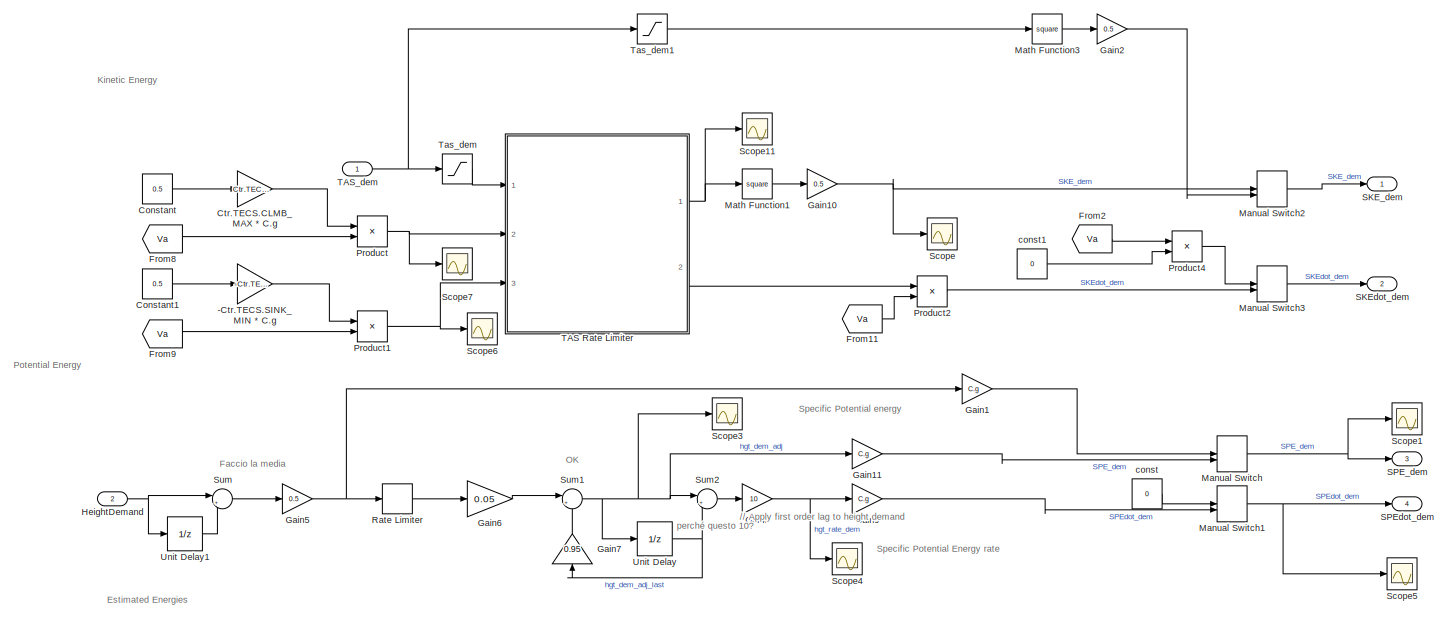
[diagram: BIXLER DYNAMICS/RUBBISH BIN/TECS/Energy calculations/Calculate energies - part 1/2, full width, top band]
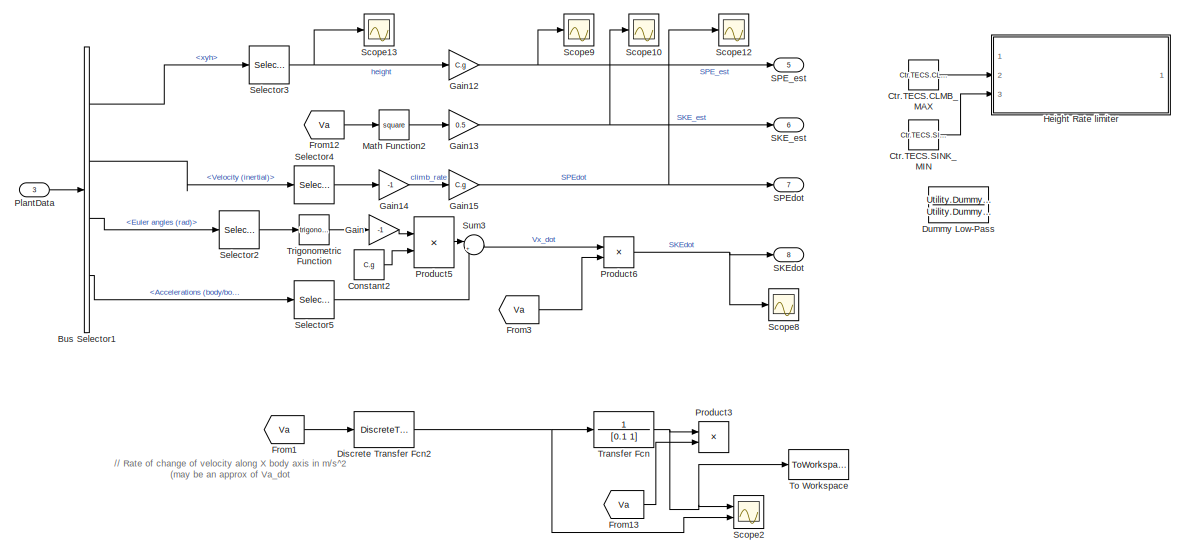
[diagram: BIXLER DYNAMICS/RUBBISH BIN/TECS/Energy calculations/Calculate energies - part 2/2, full width, bottom band]
BLOCK [SubSystem] BIXLER DYNAMICS/RUBBISH BIN/TECS/Energy calculations/Calculate energies
  Ports = [3, 8]
  RequestExecContextInheritance = off
BLOCK [Gain] BIXLER DYNAMICS/RUBBISH BIN/TECS/Energy calculations/Calculate energies/-Ctr.TECS.SINK_MIN * C.g
  Gain = -Ctr.TECS.SINK_MIN * C.g
BLOCK [BusSelector] BIXLER DYNAMICS/RUBBISH BIN/TECS/Energy calculations/Calculate energies/Bus Selector1
  OutputSignals = xyh,Velocity (inertial),Euler angles (rad),Accelerations (body/body)
  Ports = [1, 4]
BLOCK [Constant] BIXLER DYNAMICS/RUBBISH BIN/TECS/Energy calculations/Calculate energies/Constant
  Value = 0.5
BLOCK [Constant] BIXLER DYNAMICS/RUBBISH BIN/TECS/Energy calculations/Calculate energies/Constant1
  Value = 0.5
BLOCK [Constant] BIXLER DYNAMICS/RUBBISH BIN/TECS/Energy calculations/Calculate energies/Constant2
  Value = C.g
BLOCK [Constant] BIXLER DYNAMICS/RUBBISH BIN/TECS/Energy calculations/Calculate energies/Ctr.TECS.CLMB_MAX
  Commented = on
  Value = Ctr.TECS.CLMB_MAX
BLOCK [Gain] BIXLER DYNAMICS/RUBBISH BIN/TECS/Energy calculations/Calculate energies/Ctr.TECS.CLMB_MAX * C.g
  Gain = Ctr.TECS.CLMB_MAX * C.g
BLOCK [Constant] BIXLER DYNAMICS/RUBBISH BIN/TECS/Energy calculations/Calculate energies/Ctr.TECS.SINK_MIN
  Commented = on
  Value = Ctr.TECS.SINK_MIN
BLOCK [DiscreteTransferFcn] BIXLER DYNAMICS/RUBBISH BIN/TECS/Energy calculations/Calculate energies/Discrete Transfer Fcn2
  Commented = on
  Denominator = [Ctr.TS 0]
  InputPortMap = u0
  Numerator = [1 -1]
  Ports = [1, 1]
  SampleTime = Ctr.TS
BLOCK [TransferFcn] BIXLER DYNAMICS/RUBBISH BIN/TECS/Energy calculations/Calculate energies/Dummy Low-Pass
  Commented = on
  Denominator = Utility.DummyLP.den
  Numerator = Utility.DummyLP.num
BLOCK [From] BIXLER DYNAMICS/RUBBISH BIN/TECS/Energy calculations/Calculate energies/From1
  Commented = on
  GotoTag = Va
  TagVisibility = global
BLOCK [From] BIXLER DYNAMICS/RUBBISH BIN/TECS/Energy calculations/Calculate energies/From11
  GotoTag = Va
  TagVisibility = global
BLOCK [From] BIXLER DYNAMICS/RUBBISH BIN/TECS/Energy calculations/Calculate energies/From12
  GotoTag = Va
  TagVisibility = global
BLOCK [From] BIXLER DYNAMICS/RUBBISH BIN/TECS/Energy calculations/Calculate energies/From13
  Commented = on
  GotoTag = Va
  TagVisibility = global
BLOCK [From] BIXLER DYNAMICS/RUBBISH BIN/TECS/Energy calculations/Calculate energies/From2
  GotoTag = Va
  TagVisibility = global
BLOCK [From] BIXLER DYNAMICS/RUBBISH BIN/TECS/Energy calculations/Calculate energies/From3
  GotoTag = Va
  TagVisibility = global
BLOCK [From] BIXLER DYNAMICS/RUBBISH BIN/TECS/Energy calculations/Calculate energies/From8
  GotoTag = Va
  TagVisibility = global
BLOCK [From] BIXLER DYNAMICS/RUBBISH BIN/TECS/Energy calculations/Calculate energies/From9
  GotoTag = Va
  TagVisibility = global
BLOCK [Gain] BIXLER DYNAMICS/RUBBISH BIN/TECS/Energy calculations/Calculate energies/Gain
  Gain = -1
BLOCK [Gain] BIXLER DYNAMICS/RUBBISH BIN/TECS/Energy calculations/Calculate energies/Gain1
  Gain = C.g
BLOCK [Gain] BIXLER DYNAMICS/RUBBISH BIN/TECS/Energy calculations/Calculate energies/Gain10
  Gain = 0.5
BLOCK [Gain] BIXLER DYNAMICS/RUBBISH BIN/TECS/Energy calculations/Calculate energies/Gain11
  Gain = C.g
BLOCK [Gain] BIXLER DYNAMICS/RUBBISH BIN/TECS/Energy calculations/Calculate energies/Gain12
  Gain = C.g
BLOCK [Gain] BIXLER DYNAMICS/RUBBISH BIN/TECS/Energy calculations/Calculate energies/Gain13
  Gain = 0.5
BLOCK [Gain] BIXLER DYNAMICS/RUBBISH BIN/TECS/Energy calculations/Calculate energies/Gain14
  Gain = -1
BLOCK [Gain] BIXLER DYNAMICS/RUBBISH BIN/TECS/Energy calculations/Calculate energies/Gain15
  Gain = C.g
BLOCK [Gain] BIXLER DYNAMICS/RUBBISH BIN/TECS/Energy calculations/Calculate energies/Gain2
  Gain = 0.5
BLOCK [Gain] BIXLER DYNAMICS/RUBBISH BIN/TECS/Energy calculations/Calculate energies/Gain5
  Gain = 0.5
BLOCK [Gain] BIXLER DYNAMICS/RUBBISH BIN/TECS/Energy calculations/Calculate energies/Gain6
  Gain = 0.05
BLOCK [Gain] BIXLER DYNAMICS/RUBBISH BIN/TECS/Energy calculations/Calculate energies/Gain7
  Gain = 0.95
BLOCK [Gain] BIXLER DYNAMICS/RUBBISH BIN/TECS/Energy calculations/Calculate energies/Gain8
  Gain = 10
BLOCK [Gain] BIXLER DYNAMICS/RUBBISH BIN/TECS/Energy calculations/Calculate energies/Gain9
  Gain = C.g
BLOCK [SubSystem] BIXLER DYNAMICS/RUBBISH BIN/TECS/Energy calculations/Calculate energies/Height Rate limiter
  Commented = on
  ErrorFcn = Stateflow.Translate.translate
  PermitHierarchicalResolution = ExplicitOnly
  Ports = [3, 1]
  RequestExecContextInheritance = off
  SFBlockType = MATLAB Function
  TreatAsAtomicUnit = on
BLOCK [Demux] BIXLER DYNAMICS/RUBBISH BIN/TECS/Energy calculations/Calculate energies/Height Rate limiter/ Demux 
  Outputs = 1
  Ports = [1, 1]
BLOCK [S-Function] BIXLER DYNAMICS/RUBBISH BIN/TECS/Energy calculations/Calculate energies/Height Rate limiter/ SFunction 
  EnableBusSupport = on
  FunctionName = sf_sfun
  PortCounts = [3 2]
  Ports = [3, 2]
  SFcnIsStateOwnerBlock = off
  SFunctionDeploymentMode = off
  Tag = Stateflow S-Function 11
BLOCK [Terminator] BIXLER DYNAMICS/RUBBISH BIN/TECS/Energy calculations/Calculate energies/Height Rate limiter/ Terminator 
BLOCK [Outport] BIXLER DYNAMICS/RUBBISH BIN/TECS/Energy calculations/Calculate energies/Height Rate limiter/hgt_dem
  VectorParamsAs1DForOutWhenUnconnected = off
BLOCK [Inport] BIXLER DYNAMICS/RUBBISH BIN/TECS/Energy calculations/Calculate energies/Height Rate limiter/hgt_dem 
BLOCK [Inport] BIXLER DYNAMICS/RUBBISH BIN/TECS/Energy calculations/Calculate energies/Height Rate limiter/maxClimbRate
  Port = 2
BLOCK [Inport] BIXLER DYNAMICS/RUBBISH BIN/TECS/Energy calculations/Calculate energies/Height Rate limiter/max_sink_rate
  Port = 3
BLOCK [Inport] BIXLER DYNAMICS/RUBBISH BIN/TECS/Energy calculations/Calculate energies/HeightDemand
  Port = 2
BLOCK [ManualSwitch] BIXLER DYNAMICS/RUBBISH BIN/TECS/Energy calculations/Calculate energies/Manual Switch
BLOCK [ManualSwitch] BIXLER DYNAMICS/RUBBISH BIN/TECS/Energy calculations/Calculate energies/Manual Switch1
BLOCK [ManualSwitch] BIXLER DYNAMICS/RUBBISH BIN/TECS/Energy calculations/Calculate energies/Manual Switch2
BLOCK [ManualSwitch] BIXLER DYNAMICS/RUBBISH BIN/TECS/Energy calculations/Calculate energies/Manual Switch3
BLOCK [Math] BIXLER DYNAMICS/RUBBISH BIN/TECS/Energy calculations/Calculate energies/Math Function1
  Operator = square
  Ports = [1, 1]
  SignedPower = on
BLOCK [Math] BIXLER DYNAMICS/RUBBISH BIN/TECS/Energy calculations/Calculate energies/Math Function2
  Operator = square
  Ports = [1, 1]
  SignedPower = on
BLOCK [Math] BIXLER DYNAMICS/RUBBISH BIN/TECS/Energy calculations/Calculate energies/Math Function3
  Operator = square
  Ports = [1, 1]
  SignedPower = on
BLOCK [Inport] BIXLER DYNAMICS/RUBBISH BIN/TECS/Energy calculations/Calculate energies/PlantData
  Port = 3
BLOCK [Product] BIXLER DYNAMICS/RUBBISH BIN/TECS/Energy calculations/Calculate energies/Product
  Inputs = */
  Ports = [2, 1]
BLOCK [Product] BIXLER DYNAMICS/RUBBISH BIN/TECS/Energy calculations/Calculate energies/Product1
  Inputs = */
  Ports = [2, 1]
BLOCK [Product] BIXLER DYNAMICS/RUBBISH BIN/TECS/Energy calculations/Calculate energies/Product2
  Ports = [2, 1]
BLOCK [Product] BIXLER DYNAMICS/RUBBISH BIN/TECS/Energy calculations/Calculate energies/Product3
  Commented = on
  Ports = [2, 1]
BLOCK [Product] BIXLER DYNAMICS/RUBBISH BIN/TECS/Energy calculations/Calculate energies/Product4
  Ports = [2, 1]
BLOCK [Product] BIXLER DYNAMICS/RUBBISH BIN/TECS/Energy calculations/Calculate energies/Product5
  Ports = [2, 1]
BLOCK [Product] BIXLER DYNAMICS/RUBBISH BIN/TECS/Energy calculations/Calculate energies/Product6
  Ports = [2, 1]
BLOCK [RateLimiter] BIXLER DYNAMICS/RUBBISH BIN/TECS/Energy calculations/Calculate energies/Rate Limiter
  FallingSlewLimit = -Ctr.TECS.SINK_MIN
  RisingSlewLimit = Ctr.TECS.CLMB_MAX
  SampleTimeMode = inherited
BLOCK [Outport] BIXLER DYNAMICS/RUBBISH BIN/TECS/Energy calculations/Calculate energies/SKE_dem
  VectorParamsAs1DForOutWhenUnconnected = off
BLOCK [Outport] BIXLER DYNAMICS/RUBBISH BIN/TECS/Energy calculations/Calculate energies/SKE_est
  Port = 6
  VectorParamsAs1DForOutWhenUnconnected = off
BLOCK [Outport] BIXLER DYNAMICS/RUBBISH BIN/TECS/Energy calculations/Calculate energies/SKEdot
  Port = 8
  VectorParamsAs1DForOutWhenUnconnected = off
BLOCK [Outport] BIXLER DYNAMICS/RUBBISH BIN/TECS/Energy calculations/Calculate energies/SKEdot_dem
  Port = 2
  VectorParamsAs1DForOutWhenUnconnected = off
BLOCK [Outport] BIXLER DYNAMICS/RUBBISH BIN/TECS/Energy calculations/Calculate energies/SPE_dem
  Port = 3
  VectorParamsAs1DForOutWhenUnconnected = off
BLOCK [Outport] BIXLER DYNAMICS/RUBBISH BIN/TECS/Energy calculations/Calculate energies/SPE_est
  Port = 5
  VectorParamsAs1DForOutWhenUnconnected = off
BLOCK [Outport] BIXLER DYNAMICS/RUBBISH BIN/TECS/Energy calculations/Calculate energies/SPEdot
  Port = 7
  VectorParamsAs1DForOutWhenUnconnected = off
BLOCK [Outport] BIXLER DYNAMICS/RUBBISH BIN/TECS/Energy calculations/Calculate energies/SPEdot_dem
  Port = 4
  VectorParamsAs1DForOutWhenUnconnected = off
BLOCK [Scope] BIXLER DYNAMICS/RUBBISH BIN/TECS/Energy calculations/Calculate energies/Scope
  Floating = off
  NumInputPorts = 1
  Ports = [1]
  ScopeSpecificationString = Simulink.scopes.TimeScopeBlockCfg('CurrentConfiguration', extmgr.ConfigurationSet(extmgr.Configuration('Core','General UI',true),extmgr.Configuration('Core','Source UI',true),extmgr.Configuration('Sources','WiredSimulink',true,'DataLoggingVariableName','ScopeData4'),extmgr.Configuration('Visuals','Time Domain',true,'SerializedDisplays',{struct('MinYLimReal','6.1875','MaxYLimReal','124.3125','YLabe...<+1364ch>
BLOCK [Scope] BIXLER DYNAMICS/RUBBISH BIN/TECS/Energy calculations/Calculate energies/Scope1
  Floating = off
  NumInputPorts = 1
  Ports = [1]
  ScopeSpecificationString = Simulink.scopes.TimeScopeBlockCfg('CurrentConfiguration', extmgr.ConfigurationSet(extmgr.Configuration('Core','General UI',true),extmgr.Configuration('Core','Source UI',true),extmgr.Configuration('Sources','WiredSimulink',true,'DataLoggingVariableName','ScopeData1'),extmgr.Configuration('Visuals','Time Domain',true,'SerializedDisplays',{struct('MinYLimReal','257.5125','MaxYLimReal','625.3875','YLa...<+1452ch>
BLOCK [Scope] BIXLER DYNAMICS/RUBBISH BIN/TECS/Energy calculations/Calculate energies/Scope10
  Floating = off
  NumInputPorts = 1
  Ports = [1]
  ScopeSpecificationString = Simulink.scopes.TimeScopeBlockCfg('CurrentConfiguration', extmgr.ConfigurationSet(extmgr.Configuration('Core','General UI',true),extmgr.Configuration('Core','Source UI',true),extmgr.Configuration('Sources','WiredSimulink',true,'DataLoggingVariableName','ScopeData5'),extmgr.Configuration('Visuals','Time Domain',true,'SerializedDisplays',{struct('MinYLimReal','71.61924','MaxYLimReal','178.51776','YL...<+1482ch>
BLOCK [Scope] BIXLER DYNAMICS/RUBBISH BIN/TECS/Energy calculations/Calculate energies/Scope11
  Floating = off
  NumInputPorts = 1
  Ports = [1]
  ScopeSpecificationString = Simulink.scopes.TimeScopeBlockCfg('CurrentConfiguration', extmgr.ConfigurationSet(extmgr.Configuration('Core','General UI',true),extmgr.Configuration('Core','Source UI',true),extmgr.Configuration('Sources','WiredSimulink',true,'DataLoggingVariableName','ScopeData14'),extmgr.Configuration('Visuals','Time Domain',true,'SerializedDisplays',{struct('MinYLimReal','4.875','MaxYLimReal','16.125','YLabelR...<+1373ch>
BLOCK [Scope] BIXLER DYNAMICS/RUBBISH BIN/TECS/Energy calculations/Calculate energies/Scope12
  Floating = off
  NumInputPorts = 1
  Ports = [1]
  ScopeSpecificationString = Simulink.scopes.TimeScopeBlockCfg('CurrentConfiguration', extmgr.ConfigurationSet(extmgr.Configuration('Core','General UI',true),extmgr.Configuration('Core','Source UI',true),extmgr.Configuration('Sources','WiredSimulink',true,'DataLoggingVariableName','ScopeData15'),extmgr.Configuration('Visuals','Time Domain',true,'SerializedDisplays',{struct('MinYLimReal','-7.59023','MaxYLimReal','2.20893','YLa...<+1460ch>
BLOCK [Scope] BIXLER DYNAMICS/RUBBISH BIN/TECS/Energy calculations/Calculate energies/Scope13
  Floating = off
  NumInputPorts = 1
  Ports = [1]
  ScopeSpecificationString = Simulink.scopes.TimeScopeBlockCfg('CurrentConfiguration', extmgr.ConfigurationSet(extmgr.Configuration('Core','General UI',true),extmgr.Configuration('Core','Source UI',true),extmgr.Configuration('Sources','WiredSimulink',true,'DataLoggingVariableName','ScopeData6'),extmgr.Configuration('Visuals','Time Domain',true,'SerializedDisplays',{struct('MinYLimReal','8.6366','MaxYLimReal','10.15149','YLabe...<+1363ch>
BLOCK [Scope] BIXLER DYNAMICS/RUBBISH BIN/TECS/Energy calculations/Calculate energies/Scope2
  Commented = on
  Floating = off
  NumInputPorts = 2
  Ports = [2]
  ScopeSpecificationString = Simulink.scopes.TimeScopeBlockCfg('CurrentConfiguration', extmgr.ConfigurationSet(extmgr.Configuration('Core','General UI',true),extmgr.Configuration('Core','Source UI',true),extmgr.Configuration('Sources','WiredSimulink',true,'DataLoggingVariableName','ScopeData2','DataLoggingLimitDataPoints',true,'DataLoggingSaveFormat','Array','DataLoggingDecimation','1','DataLoggingDecimateData',true),extmgr.C...<+165ch>
BLOCK [Scope] BIXLER DYNAMICS/RUBBISH BIN/TECS/Energy calculations/Calculate energies/Scope3
  Floating = off
  NumInputPorts = 1
  Ports = [1]
  ScopeSpecificationString = Simulink.scopes.TimeScopeBlockCfg('CurrentConfiguration', extmgr.ConfigurationSet(extmgr.Configuration('Core','General UI',true),extmgr.Configuration('Core','Source UI',true),extmgr.Configuration('Sources','WiredSimulink',true,'DataLoggingVariableName','ScopeData3'),extmgr.Configuration('Visuals','Time Domain',true,'SerializedDisplays',{struct('MinYLimReal','98.0625','MaxYLimReal','122.4375','YLab...<+1450ch>
BLOCK [Scope] BIXLER DYNAMICS/RUBBISH BIN/TECS/Energy calculations/Calculate energies/Scope4
  Floating = off
  NumInputPorts = 1
  Ports = [1]
  ScopeSpecificationString = Simulink.scopes.TimeScopeBlockCfg('CurrentConfiguration', extmgr.ConfigurationSet(extmgr.Configuration('Core','General UI',true),extmgr.Configuration('Core','Source UI',true),extmgr.Configuration('Sources','WiredSimulink',true,'DataLoggingVariableName','ScopeData4'),extmgr.Configuration('Visuals','Time Domain',true,'SerializedDisplays',{struct('MinYLimReal','-1.00000','MaxYLimReal','1.00000','YLab...<+1422ch>
BLOCK [Scope] BIXLER DYNAMICS/RUBBISH BIN/TECS/Energy calculations/Calculate energies/Scope5
  Floating = off
  NumInputPorts = 1
  Ports = [1]
  ScopeSpecificationString = Simulink.scopes.TimeScopeBlockCfg('CurrentConfiguration', extmgr.ConfigurationSet(extmgr.Configuration('Core','General UI',true),extmgr.Configuration('Core','Source UI',true),extmgr.Configuration('Sources','WiredSimulink',true,'DataLoggingVariableName','ScopeData1'),extmgr.Configuration('Visuals','Time Domain',true,'SerializedDisplays',{struct('MinYLimReal','-1.00000','MaxYLimReal','1.00000','YLab...<+1369ch>
BLOCK [Scope] BIXLER DYNAMICS/RUBBISH BIN/TECS/Energy calculations/Calculate energies/Scope6
  Floating = off
  NumInputPorts = 1
  Ports = [1]
  ScopeSpecificationString = Simulink.scopes.TimeScopeBlockCfg('CurrentConfiguration', extmgr.ConfigurationSet(extmgr.Configuration('Core','General UI',true),extmgr.Configuration('Core','Source UI',true),extmgr.Configuration('Sources','WiredSimulink',true,'DataLoggingVariableName','ScopeData1'),extmgr.Configuration('Visuals','Time Domain',true,'SerializedDisplays',{struct('MinYLimReal','-0.9375','MaxYLimReal','-0.6225','YLabe...<+1439ch>
BLOCK [Scope] BIXLER DYNAMICS/RUBBISH BIN/TECS/Energy calculations/Calculate energies/Scope7
  Floating = off
  NumInputPorts = 1
  Ports = [1]
  ScopeSpecificationString = Simulink.scopes.TimeScopeBlockCfg('CurrentConfiguration', extmgr.ConfigurationSet(extmgr.Configuration('Core','General UI',true),extmgr.Configuration('Core','Source UI',true),extmgr.Configuration('Sources','WiredSimulink',true,'DataLoggingVariableName','ScopeData2'),extmgr.Configuration('Visuals','Time Domain',true,'SerializedDisplays',{struct('MinYLimReal','1.6153','MaxYLimReal','1.81228','YLabel...<+1436ch>
BLOCK [Scope] BIXLER DYNAMICS/RUBBISH BIN/TECS/Energy calculations/Calculate energies/Scope8
  Floating = off
  NumInputPorts = 1
  Ports = [1]
  ScopeSpecificationString = Simulink.scopes.TimeScopeBlockCfg('CurrentConfiguration', extmgr.ConfigurationSet(extmgr.Configuration('Core','General UI',true),extmgr.Configuration('Core','Source UI',true),extmgr.Configuration('Sources','WiredSimulink',true,'DataLoggingVariableName','ScopeData3'),extmgr.Configuration('Visuals','Time Domain',true,'SerializedDisplays',{struct('MinYLimReal','-16.05281','MaxYLimReal','22.41845','YL...<+1479ch>
BLOCK [Scope] BIXLER DYNAMICS/RUBBISH BIN/TECS/Energy calculations/Calculate energies/Scope9
  Floating = off
  NumInputPorts = 1
  Ports = [1]
  ScopeSpecificationString = Simulink.scopes.TimeScopeBlockCfg('CurrentConfiguration', extmgr.ConfigurationSet(extmgr.Configuration('Core','General UI',true),extmgr.Configuration('Core','Source UI',true),extmgr.Configuration('Sources','WiredSimulink',true,'DataLoggingVariableName','ScopeData4'),extmgr.Configuration('Visuals','Time Domain',true,'SerializedDisplays',{struct('MinYLimReal','467.18636','MaxYLimReal','493.0904','YL...<+1457ch>
BLOCK [Selector] BIXLER DYNAMICS/RUBBISH BIN/TECS/Energy calculations/Calculate energies/Selector2
  IndexOptions = Index vector (dialog)
  Indices = 2
  InputPortWidth = 3
  OutputSizes = 1
  Ports = [1, 1]
BLOCK [Selector] BIXLER DYNAMICS/RUBBISH BIN/TECS/Energy calculations/Calculate energies/Selector3
  IndexOptions = Index vector (dialog)
  Indices = 3
  InputPortWidth = 3
  OutputSizes = 1
  Ports = [1, 1]
BLOCK [Selector] BIXLER DYNAMICS/RUBBISH BIN/TECS/Energy calculations/Calculate energies/Selector4
  IndexOptions = Index vector (dialog)
  Indices = 3
  InputPortWidth = 3
  OutputSizes = 1
  Ports = [1, 1]
BLOCK [Selector] BIXLER DYNAMICS/RUBBISH BIN/TECS/Energy calculations/Calculate energies/Selector5
  IndexOptions = Index vector (dialog)
  Indices = 1
  InputPortWidth = 3
  OutputSizes = 1
  Ports = [1, 1]
BLOCK [Sum] BIXLER DYNAMICS/RUBBISH BIN/TECS/Energy calculations/Calculate energies/Sum
  Inputs = |++
  Ports = [2, 1]
BLOCK [Sum] BIXLER DYNAMICS/RUBBISH BIN/TECS/Energy calculations/Calculate energies/Sum1
  Inputs = |++
  Ports = [2, 1]
BLOCK [Sum] BIXLER DYNAMICS/RUBBISH BIN/TECS/Energy calculations/Calculate energies/Sum2
  Inputs = |+-
  Ports = [2, 1]
BLOCK [Sum] BIXLER DYNAMICS/RUBBISH BIN/TECS/Energy calculations/Calculate energies/Sum3
  Inputs = |++
  Ports = [2, 1]
BLOCK [SubSystem] BIXLER DYNAMICS/RUBBISH BIN/TECS/Energy calculations/Calculate energies/TAS Rate Limiter
  ErrorFcn = Stateflow.Translate.translate
  PermitHierarchicalResolution = ExplicitOnly
  Ports = [3, 2]
  RequestExecContextInheritance = off
  SFBlockType = MATLAB Function
  TreatAsAtomicUnit = on
BLOCK [Demux] BIXLER DYNAMICS/RUBBISH BIN/TECS/Energy calculations/Calculate energies/TAS Rate Limiter/ Demux 
  Outputs = 1
  Ports = [1, 1]
BLOCK [S-Function] BIXLER DYNAMICS/RUBBISH BIN/TECS/Energy calculations/Calculate energies/TAS Rate Limiter/ SFunction 
  EnableBusSupport = on
  FunctionName = sf_sfun
  PortCounts = [3 3]
  Ports = [3, 3]
  SFcnIsStateOwnerBlock = off
  SFunctionDeploymentMode = off
  Tag = Stateflow S-Function 2
BLOCK [Terminator] BIXLER DYNAMICS/RUBBISH BIN/TECS/Energy calculations/Calculate energies/TAS Rate Limiter/ Terminator 
BLOCK [Inport] BIXLER DYNAMICS/RUBBISH BIN/TECS/Energy calculations/Calculate energies/TAS Rate Limiter/TAS_dem
BLOCK [Outport] BIXLER DYNAMICS/RUBBISH BIN/TECS/Energy calculations/Calculate energies/TAS Rate Limiter/TAS_rate_dem
  Port = 2
  VectorParamsAs1DForOutWhenUnconnected = off
BLOCK [Outport] BIXLER DYNAMICS/RUBBISH BIN/TECS/Energy calculations/Calculate energies/TAS Rate Limiter/TS_dem_adj
  VectorParamsAs1DForOutWhenUnconnected = off
BLOCK [Inport] BIXLER DYNAMICS/RUBBISH BIN/TECS/Energy calculations/Calculate energies/TAS Rate Limiter/velRateMax
  Port = 2
BLOCK [Inport] BIXLER DYNAMICS/RUBBISH BIN/TECS/Energy calculations/Calculate energies/TAS Rate Limiter/velRateMin
  Port = 3
BLOCK [Inport] BIXLER DYNAMICS/RUBBISH BIN/TECS/Energy calculations/Calculate energies/TAS_dem
BLOCK [Saturate] BIXLER DYNAMICS/RUBBISH BIN/TECS/Energy calculations/Calculate energies/Tas_dem
  LowerLimit = 6
  UpperLimit = 35
BLOCK [Saturate] BIXLER DYNAMICS/RUBBISH BIN/TECS/Energy calculations/Calculate energies/Tas_dem1
  LowerLimit = 6
  UpperLimit = 35
BLOCK [ToWorkspace] BIXLER DYNAMICS/RUBBISH BIN/TECS/Energy calculations/Calculate energies/To Workspace
  Commented = on
  FixptAsFi = on
  MaxDataPoints = inf
  Ports = [1]
  SampleTime = -1
  VariableName = der
BLOCK [TransferFcn] BIXLER DYNAMICS/RUBBISH BIN/TECS/Energy calculations/Calculate energies/Transfer Fcn
  Commented = on
  Denominator = [0.1 1]
  Numerator = 1
BLOCK [Trigonometry] BIXLER DYNAMICS/RUBBISH BIN/TECS/Energy calculations/Calculate energies/Trigonometric Function
  Ports = [1, 1]
BLOCK [UnitDelay] BIXLER DYNAMICS/RUBBISH BIN/TECS/Energy calculations/Calculate energies/Unit Delay
  HasFrameUpgradeWarning = on
  SampleTime = Ctr.TS
BLOCK [UnitDelay] BIXLER DYNAMICS/RUBBISH BIN/TECS/Energy calculations/Calculate energies/Unit Delay1
  HasFrameUpgradeWarning = on
  SampleTime = Ctr.TS
BLOCK [Constant] BIXLER DYNAMICS/RUBBISH BIN/TECS/Energy calculations/Calculate energies/const
  Value = 0
BLOCK [Constant] BIXLER DYNAMICS/RUBBISH BIN/TECS/Energy calculations/Calculate energies/const1
  Value = 0
BLOCK [Constant] BIXLER DYNAMICS/RUBBISH BIN/TECS/Energy calculations/Constant3
  Value = 2
BLOCK [Constant] BIXLER DYNAMICS/RUBBISH BIN/TECS/Energy calculations/Ctr.TECS.SPDWEIGHT
  Value = Ctr.TECS.SPDWEIGHT
BLOCK [Outport] BIXLER DYNAMICS/RUBBISH BIN/TECS/Energy calculations/EnergyBus
  VectorParamsAs1DForOutWhenUnconnected = off
BLOCK [From] BIXLER DYNAMICS/RUBBISH BIN/TECS/Energy calculations/From
  GotoTag = SKE_dem
BLOCK [From] BIXLER DYNAMICS/RUBBISH BIN/TECS/Energy calculations/From1
  GotoTag = SPE_weighting
BLOCK [From] BIXLER DYNAMICS/RUBBISH BIN/TECS/Energy calculations/From10
  GotoTag = SKEdot
BLOCK [From] BIXLER DYNAMICS/RUBBISH BIN/TECS/Energy calculations/From2
  GotoTag = SPE_dem
BLOCK [From] BIXLER DYNAMICS/RUBBISH BIN/TECS/Energy calculations/From21
  GotoTag = SPEdot
BLOCK [From] BIXLER DYNAMICS/RUBBISH BIN/TECS/Energy calculations/From22
  GotoTag = SKEdot_dem
BLOCK [From] BIXLER DYNAMICS/RUBBISH BIN/TECS/Energy calculations/From23
  GotoTag = SPEdot_dem
BLOCK [From] BIXLER DYNAMICS/RUBBISH BIN/TECS/Energy calculations/From3
  GotoTag = SKE_weighting
BLOCK [From] BIXLER DYNAMICS/RUBBISH BIN/TECS/Energy calculations/From4
  GotoTag = SPE_est
BLOCK [From] BIXLER DYNAMICS/RUBBISH BIN/TECS/Energy calculations/From6
  GotoTag = SKE_est
BLOCK [Goto] BIXLER DYNAMICS/RUBBISH BIN/TECS/Energy calculations/Goto
  GotoTag = SKE_dem
BLOCK [Goto] BIXLER DYNAMICS/RUBBISH BIN/TECS/Energy calculations/Goto1
  GotoTag = SKEdot_dem
BLOCK [Goto] BIXLER DYNAMICS/RUBBISH BIN/TECS/Energy calculations/Goto10
  GotoTag = SPEdot
BLOCK [Goto] BIXLER DYNAMICS/RUBBISH BIN/TECS/Energy calculations/Goto11
  GotoTag = SKEdot
BLOCK [Goto] BIXLER DYNAMICS/RUBBISH BIN/TECS/Energy calculations/Goto2
  GotoTag = SPE_dem
BLOCK [Goto] BIXLER DYNAMICS/RUBBISH BIN/TECS/Energy calculations/Goto3
  GotoTag = SPEdot_dem
BLOCK [Goto] BIXLER DYNAMICS/RUBBISH BIN/TECS/Energy calculations/Goto6
  GotoTag = SKE_weighting
BLOCK [Goto] BIXLER DYNAMICS/RUBBISH BIN/TECS/Energy calculations/Goto7
  GotoTag = SPE_weighting
BLOCK [Goto] BIXLER DYNAMICS/RUBBISH BIN/TECS/Energy calculations/Goto8
  GotoTag = SPE_est
BLOCK [Goto] BIXLER DYNAMICS/RUBBISH BIN/TECS/Energy calculations/Goto9
  GotoTag = SKE_est
BLOCK [Inport] BIXLER DYNAMICS/RUBBISH BIN/TECS/Energy calculations/HeightDemand
  Port = 3
BLOCK [Inport] BIXLER DYNAMICS/RUBBISH BIN/TECS/Energy calculations/PlantData
BLOCK [Saturate] BIXLER DYNAMICS/RUBBISH BIN/TECS/Energy calculations/Saturation1
  LowerLimit = 0
  UpperLimit = 2
BLOCK [Sum] BIXLER DYNAMICS/RUBBISH BIN/TECS/Energy calculations/Sum3
  Inputs = |+-
  Ports = [2, 1]
BLOCK [Inport] BIXLER DYNAMICS/RUBBISH BIN/TECS/Energy calculations/TAS_dem
  Port = 2
BLOCK [Gain] BIXLER DYNAMICS/RUBBISH BIN/TECS/Gain
BLOCK [Inport] BIXLER DYNAMICS/RUBBISH BIN/TECS/HeightDemand
  Port = 3
  Unit = m
BLOCK [SubSystem] BIXLER DYNAMICS/RUBBISH BIN/TECS/PITCH
  Ports = [3, 1]
  RequestExecContextInheritance = off
BLOCK [Constant] BIXLER DYNAMICS/RUBBISH BIN/TECS/PITCH/Constant
  Value = Ctr.TECS.VERT_ACC
BLOCK [Constant] BIXLER DYNAMICS/RUBBISH BIN/TECS/PITCH/Constant1
  Value = Ctr.TECS.PITCH_MIN
BLOCK [Constant] BIXLER DYNAMICS/RUBBISH BIN/TECS/PITCH/Constant2
  Value = Ctr.TECS.PITCH_MAX
BLOCK [Constant] BIXLER DYNAMICS/RUBBISH BIN/TECS/PITCH/Constant3
  Value = Ctr.TECS.TS
BLOCK [Constant] BIXLER DYNAMICS/RUBBISH BIN/TECS/PITCH/Constant4
  Value = Ctr.TECS.TS
BLOCK [Gain] BIXLER DYNAMICS/RUBBISH BIN/TECS/PITCH/Ctr.TECS.INTEG_GAIN
  Gain = Ctr.TECS.INTEG_GAIN
BLOCK [Constant] BIXLER DYNAMICS/RUBBISH BIN/TECS/PITCH/Ctr.TECS.PTCH_DAMP
  Value = Ctr.TECS.PTCH_DAMP
BLOCK [SubSystem] BIXLER DYNAMICS/RUBBISH BIN/TECS/PITCH/DT1
  Commented = on
  Ports = [0, 1]
  RequestExecContextInheritance = off
BLOCK [Clock] BIXLER DYNAMICS/RUBBISH BIN/TECS/PITCH/DT1/Clock1
  Decimation = 1
BLOCK [Outport] BIXLER DYNAMICS/RUBBISH BIN/TECS/PITCH/DT1/DT
  VectorParamsAs1DForOutWhenUnconnected = off
BLOCK [Memory] BIXLER DYNAMICS/RUBBISH BIN/TECS/PITCH/DT1/Memory
  InheritSampleTime = on
BLOCK [Sum] BIXLER DYNAMICS/RUBBISH BIN/TECS/PITCH/DT1/Sum
  Inputs = |+-
  Ports = [2, 1]
BLOCK [From] BIXLER DYNAMICS/RUBBISH BIN/TECS/PITCH/From
  GotoTag = PITCHminf
BLOCK [From] BIXLER DYNAMICS/RUBBISH BIN/TECS/PITCH/From1
  GotoTag = Va
  TagVisibility = global
BLOCK [From] BIXLER DYNAMICS/RUBBISH BIN/TECS/PITCH/From10
  GotoTag = y
BLOCK [From] BIXLER DYNAMICS/RUBBISH BIN/TECS/PITCH/From2
  GotoTag = PITCHmaxf
BLOCK [From] BIXLER DYNAMICS/RUBBISH BIN/TECS/PITCH/From22
  GotoTag = SEB_error
BLOCK [From] BIXLER DYNAMICS/RUBBISH BIN/TECS/PITCH/From23
  GotoTag = SEBdot_dem
BLOCK [From] BIXLER DYNAMICS/RUBBISH BIN/TECS/PITCH/From24
  GotoTag = SEBdot_error
BLOCK [From] BIXLER DYNAMICS/RUBBISH BIN/TECS/PITCH/From25
  GotoTag = Va
  TagVisibility = global
BLOCK [From] BIXLER DYNAMICS/RUBBISH BIN/TECS/PITCH/From26
  GotoTag = gainInv
BLOCK [From] BIXLER DYNAMICS/RUBBISH BIN/TECS/PITCH/From27
  GotoTag = gainInv
BLOCK [From] BIXLER DYNAMICS/RUBBISH BIN/TECS/PITCH/From3
  GotoTag = PITCHminf
BLOCK [From] BIXLER DYNAMICS/RUBBISH BIN/TECS/PITCH/From4
  GotoTag = PITCHmaxf
BLOCK [From] BIXLER DYNAMICS/RUBBISH BIN/TECS/PITCH/From5
  GotoTag = PITCHminf
BLOCK [From] BIXLER DYNAMICS/RUBBISH BIN/TECS/PITCH/From6
  GotoTag = PITCHmaxf
BLOCK [From] BIXLER DYNAMICS/RUBBISH BIN/TECS/PITCH/From7
  GotoTag = PITCHmaxf
BLOCK [From] BIXLER DYNAMICS/RUBBISH BIN/TECS/PITCH/From8
  GotoTag = PITCHminf
BLOCK [From] BIXLER DYNAMICS/RUBBISH BIN/TECS/PITCH/From9
  GotoTag = PITCH_dem
BLOCK [Gain] BIXLER DYNAMICS/RUBBISH BIN/TECS/PITCH/Gain
  Gain = -1
BLOCK [Goto] BIXLER DYNAMICS/RUBBISH BIN/TECS/PITCH/Goto
  GotoTag = PITCHminf
BLOCK [Goto] BIXLER DYNAMICS/RUBBISH BIN/TECS/PITCH/Goto1
  GotoTag = SEB_error
BLOCK [Goto] BIXLER DYNAMICS/RUBBISH BIN/TECS/PITCH/Goto12
  GotoTag = SEBdot_dem
BLOCK [Goto] BIXLER DYNAMICS/RUBBISH BIN/TECS/PITCH/Goto14
  GotoTag = SEBdot_error
BLOCK [Goto] BIXLER DYNAMICS/RUBBISH BIN/TECS/PITCH/Goto15
  GotoTag = gainInv
BLOCK [Goto] BIXLER DYNAMICS/RUBBISH BIN/TECS/PITCH/Goto2
  GotoTag = PITCHmaxf
BLOCK [Goto] BIXLER DYNAMICS/RUBBISH BIN/TECS/PITCH/Goto3
  GotoTag = PITCH_dem
BLOCK [Goto] BIXLER DYNAMICS/RUBBISH BIN/TECS/PITCH/Goto4
  GotoTag = y
BLOCK [SubSystem] BIXLER DYNAMICS/RUBBISH BIN/TECS/PITCH/Integrator
  Commented = on
  ErrorFcn = Stateflow.Translate.translate
  PermitHierarchicalResolution = ExplicitOnly
  Ports = [3, 1]
  RequestExecContextInheritance = off
  SFBlockType = MATLAB Function
  TreatAsAtomicUnit = on
BLOCK [Demux] BIXLER DYNAMICS/RUBBISH BIN/TECS/PITCH/Integrator/ Demux 
  Outputs = 1
  Ports = [1, 1]
BLOCK [S-Function] BIXLER DYNAMICS/RUBBISH BIN/TECS/PITCH/Integrator/ SFunction 
  EnableBusSupport = on
  FunctionName = sf_sfun
  PortCounts = [3 2]
  Ports = [3, 2]
  SFcnIsStateOwnerBlock = off
  SFunctionDeploymentMode = off
  Tag = Stateflow S-Function 21
BLOCK [Terminator] BIXLER DYNAMICS/RUBBISH BIN/TECS/PITCH/Integrator/ Terminator 
BLOCK [Inport] BIXLER DYNAMICS/RUBBISH BIN/TECS/PITCH/Integrator/integSEB_delta
BLOCK [Inport] BIXLER DYNAMICS/RUBBISH BIN/TECS/PITCH/Integrator/integSEB_max
  Port = 3
BLOCK [Inport] BIXLER DYNAMICS/RUBBISH BIN/TECS/PITCH/Integrator/integSEB_min
  Port = 2
BLOCK [Outport] BIXLER DYNAMICS/RUBBISH BIN/TECS/PITCH/Integrator/y
  VectorParamsAs1DForOutWhenUnconnected = off
BLOCK [SubSystem] BIXLER DYNAMICS/RUBBISH BIN/TECS/PITCH/Integrator1
  ErrorFcn = Stateflow.Translate.translate
  PermitHierarchicalResolution = ExplicitOnly
  Ports = [3, 1]
  RequestExecContextInheritance = off
  SFBlockType = MATLAB Function
  TreatAsAtomicUnit = on
BLOCK [Demux] BIXLER DYNAMICS/RUBBISH BIN/TECS/PITCH/Integrator1/ Demux 
  Outputs = 1
  Ports = [1, 1]
BLOCK [S-Function] BIXLER DYNAMICS/RUBBISH BIN/TECS/PITCH/Integrator1/ SFunction 
  EnableBusSupport = on
  FunctionName = sf_sfun
  PortCounts = [3 2]
  Ports = [3, 2]
  SFcnIsStateOwnerBlock = off
  SFunctionDeploymentMode = off
  Tag = Stateflow S-Function 31
BLOCK [Terminator] BIXLER DYNAMICS/RUBBISH BIN/TECS/PITCH/Integrator1/ Terminator 
BLOCK [Inport] BIXLER DYNAMICS/RUBBISH BIN/TECS/PITCH/Integrator1/integSEB_delta
BLOCK [Inport] BIXLER DYNAMICS/RUBBISH BIN/TECS/PITCH/Integrator1/integSEB_max
  Port = 3
BLOCK [Inport] BIXLER DYNAMICS/RUBBISH BIN/TECS/PITCH/Integrator1/integSEB_min
  Port = 2
BLOCK [Outport] BIXLER DYNAMICS/RUBBISH BIN/TECS/PITCH/Integrator1/y
  VectorParamsAs1DForOutWhenUnconnected = off
BLOCK [SubSystem] BIXLER DYNAMICS/RUBBISH BIN/TECS/PITCH/Limiter
  Ports = [4, 1]
  RequestExecContextInheritance = off
BLOCK [If] BIXLER DYNAMICS/RUBBISH BIN/TECS/PITCH/Limiter/If
  ElseIfExpressions = u1 < u3
  IfExpression = u1 > u2
  NumInputs = 3
  Ports = [3, 3]
BLOCK [SubSystem] BIXLER DYNAMICS/RUBBISH BIN/TECS/PITCH/Limiter/If Action Subsystem
  Ports = [3, 1, 0, 0, 0, 0, 0, 1]
  RequestExecContextInheritance = off
  TreatAsAtomicUnit = on
BLOCK [ActionPort] BIXLER DYNAMICS/RUBBISH BIN/TECS/PITCH/Limiter/If Action Subsystem/Action Port
BLOCK [MinMax] BIXLER DYNAMICS/RUBBISH BIN/TECS/PITCH/Limiter/If Action Subsystem/MinMax
  Ports = [1, 1]
BLOCK [Mux] BIXLER DYNAMICS/RUBBISH BIN/TECS/PITCH/Limiter/If Action Subsystem/Mux
  DisplayOption = bar
  Inputs = 2
  Ports = [2, 1]
BLOCK [Outport] BIXLER DYNAMICS/RUBBISH BIN/TECS/PITCH/Limiter/If Action Subsystem/Out1
  VectorParamsAs1DForOutWhenUnconnected = off
BLOCK [Inport] BIXLER DYNAMICS/RUBBISH BIN/TECS/PITCH/Limiter/If Action Subsystem/PITCHmaxf
  Port = 2
BLOCK [Sum] BIXLER DYNAMICS/RUBBISH BIN/TECS/PITCH/Limiter/If Action Subsystem/Sum
  Inputs = |+-
  Ports = [2, 1]
BLOCK [Inport] BIXLER DYNAMICS/RUBBISH BIN/TECS/PITCH/Limiter/If Action Subsystem/integSEB_input
BLOCK [Inport] BIXLER DYNAMICS/RUBBISH BIN/TECS/PITCH/Limiter/If Action Subsystem/pitch_dem
  Port = 3
BLOCK [SubSystem] BIXLER DYNAMICS/RUBBISH BIN/TECS/PITCH/Limiter/If Action Subsystem1
  Ports = [3, 1, 0, 0, 0, 0, 0, 1]
  RequestExecContextInheritance = off
  TreatAsAtomicUnit = on
BLOCK [ActionPort] BIXLER DYNAMICS/RUBBISH BIN/TECS/PITCH/Limiter/If Action Subsystem1/Action Port
BLOCK [MinMax] BIXLER DYNAMICS/RUBBISH BIN/TECS/PITCH/Limiter/If Action Subsystem1/MinMax
  Function = max
  Ports = [1, 1]
BLOCK [Mux] BIXLER DYNAMICS/RUBBISH BIN/TECS/PITCH/Limiter/If Action Subsystem1/Mux
  DisplayOption = bar
  Inputs = 2
  Ports = [2, 1]
BLOCK [Outport] BIXLER DYNAMICS/RUBBISH BIN/TECS/PITCH/Limiter/If Action Subsystem1/Out1
  VectorParamsAs1DForOutWhenUnconnected = off
BLOCK [Inport] BIXLER DYNAMICS/RUBBISH BIN/TECS/PITCH/Limiter/If Action Subsystem1/PITCHminf
  Port = 2
BLOCK [Sum] BIXLER DYNAMICS/RUBBISH BIN/TECS/PITCH/Limiter/If Action Subsystem1/Sum
  Inputs = |+-
  Ports = [2, 1]
BLOCK [Inport] BIXLER DYNAMICS/RUBBISH BIN/TECS/PITCH/Limiter/If Action Subsystem1/integSEB_input
BLOCK [Inport] BIXLER DYNAMICS/RUBBISH BIN/TECS/PITCH/Limiter/If Action Subsystem1/pitch_dem
  Port = 3
BLOCK [SubSystem] BIXLER DYNAMICS/RUBBISH BIN/TECS/PITCH/Limiter/If Action Subsystem2
  Ports = [1, 1, 0, 0, 0, 0, 0, 1]
  RequestExecContextInheritance = off
  TreatAsAtomicUnit = on
BLOCK [ActionPort] BIXLER DYNAMICS/RUBBISH BIN/TECS/PITCH/Limiter/If Action Subsystem2/Action Port
BLOCK [Outport] BIXLER DYNAMICS/RUBBISH BIN/TECS/PITCH/Limiter/If Action Subsystem2/Out1
  VectorParamsAs1DForOutWhenUnconnected = off
BLOCK [Inport] BIXLER DYNAMICS/RUBBISH BIN/TECS/PITCH/Limiter/If Action Subsystem2/integSEB_input
BLOCK [Merge] BIXLER DYNAMICS/RUBBISH BIN/TECS/PITCH/Limiter/Merge
  Inputs = 3
  Ports = [3, 1]
BLOCK [Inport] BIXLER DYNAMICS/RUBBISH BIN/TECS/PITCH/Limiter/PITCHmaxf
  Port = 2
BLOCK [InportShadow] BIXLER DYNAMICS/RUBBISH BIN/TECS/PITCH/Limiter/PITCHmaxf_1
  Port = 2
BLOCK [Inport] BIXLER DYNAMICS/RUBBISH BIN/TECS/PITCH/Limiter/PITCHminf
  Port = 3
BLOCK [InportShadow] BIXLER DYNAMICS/RUBBISH BIN/TECS/PITCH/Limiter/PITCHminf_1
  Port = 3
BLOCK [Outport] BIXLER DYNAMICS/RUBBISH BIN/TECS/PITCH/Limiter/SEB_in_lim
  VectorParamsAs1DForOutWhenUnconnected = off
BLOCK [Inport] BIXLER DYNAMICS/RUBBISH BIN/TECS/PITCH/Limiter/integSEB_input
BLOCK [Inport] BIXLER DYNAMICS/RUBBISH BIN/TECS/PITCH/Limiter/pitch_dem
  Port = 4
BLOCK [InportShadow] BIXLER DYNAMICS/RUBBISH BIN/TECS/PITCH/Limiter/pitch_dem_1
  Port = 4
BLOCK [SubSystem] BIXLER DYNAMICS/RUBBISH BIN/TECS/PITCH/MATLAB Function
  Commented = on
  ErrorFcn = Stateflow.Translate.translate
  PermitHierarchicalResolution = ExplicitOnly
  Ports = [5, 3]
  RequestExecContextInheritance = off
  SFBlockType = MATLAB Function
  TreatAsAtomicUnit = on
BLOCK [Demux] BIXLER DYNAMICS/RUBBISH BIN/TECS/PITCH/MATLAB Function/ Demux 
  Outputs = 1
  Ports = [1, 1]
BLOCK [S-Function] BIXLER DYNAMICS/RUBBISH BIN/TECS/PITCH/MATLAB Function/ SFunction 
  EnableBusSupport = on
  FunctionName = sf_sfun
  PortCounts = [5 4]
  Ports = [5, 4]
  SFcnIsStateOwnerBlock = off
  SFunctionDeploymentMode = off
  Tag = Stateflow S-Function 13
BLOCK [Terminator] BIXLER DYNAMICS/RUBBISH BIN/TECS/PITCH/MATLAB Function/ Terminator 
BLOCK [Inport] BIXLER DYNAMICS/RUBBISH BIN/TECS/PITCH/MATLAB Function/PITCHmaxf
  Port = 4
BLOCK [Inport] BIXLER DYNAMICS/RUBBISH BIN/TECS/PITCH/MATLAB Function/PITCHminf
  Port = 3
BLOCK [Inport] BIXLER DYNAMICS/RUBBISH BIN/TECS/PITCH/MATLAB Function/gainInv
  Port = 2
BLOCK [Outport] BIXLER DYNAMICS/RUBBISH BIN/TECS/PITCH/MATLAB Function/integSEB_delta
  VectorParamsAs1DForOutWhenUnconnected = off
BLOCK [Inport] BIXLER DYNAMICS/RUBBISH BIN/TECS/PITCH/MATLAB Function/integSEB_delta 
  Port = 5
BLOCK [Outport] BIXLER DYNAMICS/RUBBISH BIN/TECS/PITCH/MATLAB Function/integSEB_max
  Port = 3
  VectorParamsAs1DForOutWhenUnconnected = off
BLOCK [Outport] BIXLER DYNAMICS/RUBBISH BIN/TECS/PITCH/MATLAB Function/integSEB_min
  Port = 2
  VectorParamsAs1DForOutWhenUnconnected = off
BLOCK [Inport] BIXLER DYNAMICS/RUBBISH BIN/TECS/PITCH/MATLAB Function/temp
BLOCK [Outport] BIXLER DYNAMICS/RUBBISH BIN/TECS/PITCH/Pitch
  Unit = deg
  VectorParamsAs1DForOutWhenUnconnected = off
BLOCK [SubSystem] BIXLER DYNAMICS/RUBBISH BIN/TECS/PITCH/PitchRateLimiter
  ErrorFcn = Stateflow.Translate.translate
  PermitHierarchicalResolution = ExplicitOnly
  Ports = [2, 1]
  RequestExecContextInheritance = off
  SFBlockType = MATLAB Function
  TreatAsAtomicUnit = on
BLOCK [Demux] BIXLER DYNAMICS/RUBBISH BIN/TECS/PITCH/PitchRateLimiter/ Demux 
  Outputs = 1
  Ports = [1, 1]
BLOCK [S-Function] BIXLER DYNAMICS/RUBBISH BIN/TECS/PITCH/PitchRateLimiter/ SFunction 
  EnableBusSupport = on
  FunctionName = sf_sfun
  PortCounts = [2 2]
  Ports = [2, 2]
  SFcnIsStateOwnerBlock = off
  SFunctionDeploymentMode = off
  Tag = Stateflow S-Function 12
BLOCK [Terminator] BIXLER DYNAMICS/RUBBISH BIN/TECS/PITCH/PitchRateLimiter/ Terminator 
BLOCK [Outport] BIXLER DYNAMICS/RUBBISH BIN/TECS/PITCH/PitchRateLimiter/pitch_dem
  VectorParamsAs1DForOutWhenUnconnected = off
BLOCK [Inport] BIXLER DYNAMICS/RUBBISH BIN/TECS/PITCH/PitchRateLimiter/pitch_dem 
BLOCK [Inport] BIXLER DYNAMICS/RUBBISH BIN/TECS/PITCH/PitchRateLimiter/ptchRateIncr
  Port = 2
BLOCK [Product] BIXLER DYNAMICS/RUBBISH BIN/TECS/PITCH/Product11
  Inputs = **
  Ports = [2, 1]
BLOCK [Product] BIXLER DYNAMICS/RUBBISH BIN/TECS/PITCH/Product12
  Inputs = **
  Ports = [2, 1]
BLOCK [Product] BIXLER DYNAMICS/RUBBISH BIN/TECS/PITCH/Product14
  Inputs = ***
  Ports = [3, 1]
BLOCK [Product] BIXLER DYNAMICS/RUBBISH BIN/TECS/PITCH/Product15
  Inputs = /*
  Ports = [2, 1]
BLOCK [Product] BIXLER DYNAMICS/RUBBISH BIN/TECS/PITCH/Product2
  Inputs = **
  Ports = [2, 1]
BLOCK [Product] BIXLER DYNAMICS/RUBBISH BIN/TECS/PITCH/Product8
  Inputs = */
  Ports = [2, 1]
BLOCK [Product] BIXLER DYNAMICS/RUBBISH BIN/TECS/PITCH/Product9
  Inputs = **
  Ports = [2, 1]
BLOCK [Inport] BIXLER DYNAMICS/RUBBISH BIN/TECS/PITCH/SEB_error
BLOCK [Inport] BIXLER DYNAMICS/RUBBISH BIN/TECS/PITCH/SEBdot_dem
  Port = 2
BLOCK [Inport] BIXLER DYNAMICS/RUBBISH BIN/TECS/PITCH/SEBdot_error
  Port = 3
BLOCK [Reference] BIXLER DYNAMICS/RUBBISH BIN/TECS/PITCH/Saturation Dynamic  REF=simulink/Discontinuities/Saturation
Dynamic
  Ports = [3, 1]
  SourceBlock = simulink/Discontinuities/Saturation\nDynamic
  SourceProductBaseCode = SL
  SourceType = Saturation Dynamic
BLOCK [Reference] BIXLER DYNAMICS/RUBBISH BIN/TECS/PITCH/Saturation Dynamic1  REF=simulink/Discontinuities/Saturation
Dynamic
  Ports = [3, 1]
  SourceBlock = simulink/Discontinuities/Saturation\nDynamic
  SourceProductBaseCode = SL
  SourceType = Saturation Dynamic
BLOCK [Scope] BIXLER DYNAMICS/RUBBISH BIN/TECS/PITCH/Scope
  Floating = off
  NumInputPorts = 1
  Ports = [1]
  ScopeSpecificationString = Simulink.scopes.TimeScopeBlockCfg('CurrentConfiguration', extmgr.ConfigurationSet(extmgr.Configuration('Core','General UI',true),extmgr.Configuration('Core','Source UI',true),extmgr.Configuration('Sources','WiredSimulink',true,'DataLoggingVariableName','ScopeData4'),extmgr.Configuration('Visuals','Time Domain',true,'SerializedDisplays',{struct('MinYLimReal','-0.81237','MaxYLimReal','0.86597','YLab...<+1391ch>
BLOCK [Scope] BIXLER DYNAMICS/RUBBISH BIN/TECS/PITCH/Scope1
  Floating = off
  NumInputPorts = 1
  Ports = [1]
  ScopeSpecificationString = Simulink.scopes.TimeScopeBlockCfg('CurrentConfiguration', extmgr.ConfigurationSet(extmgr.Configuration('Core','General UI',true),extmgr.Configuration('Core','Source UI',true),extmgr.Configuration('Sources','WiredSimulink',true,'DataLoggingVariableName','ScopeData11'),extmgr.Configuration('Visuals','Time Domain',true,'SerializedDisplays',{struct('MinYLimReal','-22.49866','MaxYLimReal','2.48792','YL...<+1483ch>
BLOCK [Scope] BIXLER DYNAMICS/RUBBISH BIN/TECS/PITCH/Scope2
  Floating = off
  NumInputPorts = 1
  Ports = [1]
  ScopeSpecificationString = Simulink.scopes.TimeScopeBlockCfg('CurrentConfiguration', extmgr.ConfigurationSet(extmgr.Configuration('Core','General UI',true),extmgr.Configuration('Core','Source UI',true),extmgr.Configuration('Sources','WiredSimulink',true,'DataLoggingVariableName','ScopeData5'),extmgr.Configuration('Visuals','Time Domain',true,'SerializedDisplays',{struct('MinYLimReal','-272.27896','MaxYLimReal','213.20566','...<+1442ch>
BLOCK [Scope] BIXLER DYNAMICS/RUBBISH BIN/TECS/PITCH/Scope8
  Floating = off
  NumInputPorts = 1
  Ports = [1]
  ScopeSpecificationString = Simulink.scopes.TimeScopeBlockCfg('CurrentConfiguration', extmgr.ConfigurationSet(extmgr.Configuration('Core','General UI',true),extmgr.Configuration('Core','Source UI',true),extmgr.Configuration('Sources','WiredSimulink',true,'DataLoggingVariableName','ScopeData2'),extmgr.Configuration('Visuals','Time Domain',true,'SerializedDisplays',{struct('MinYLimReal','-16.8543','MaxYLimReal','29.63186','YLa...<+1460ch>
BLOCK [Sum] BIXLER DYNAMICS/RUBBISH BIN/TECS/PITCH/Sum
  Inputs = ++|
  Ports = [2, 1]
BLOCK [Sum] BIXLER DYNAMICS/RUBBISH BIN/TECS/PITCH/Sum1
  Inputs = ++|
  Ports = [2, 1]
BLOCK [Sum] BIXLER DYNAMICS/RUBBISH BIN/TECS/PITCH/Sum8
  Inputs = ++|
  Ports = [2, 1]
BLOCK [UnitDelay] BIXLER DYNAMICS/RUBBISH BIN/TECS/PITCH/Unit Delay
  HasFrameUpgradeWarning = on
  SampleTime = Ctr.TECS.TS
BLOCK [Constant] BIXLER DYNAMICS/RUBBISH BIN/TECS/PITCH/gravity
  Value = C.g
BLOCK [SubSystem] BIXLER DYNAMICS/RUBBISH BIN/TECS/PITCH/integSEB
  Ports = [5, 3]
  RequestExecContextInheritance = off
BLOCK [Constant] BIXLER DYNAMICS/RUBBISH BIN/TECS/PITCH/integSEB/Constant
  Value = 0.0783
BLOCK [Constant] BIXLER DYNAMICS/RUBBISH BIN/TECS/PITCH/integSEB/Constant1
  Value = 0.0783
BLOCK [From] BIXLER DYNAMICS/RUBBISH BIN/TECS/PITCH/integSEB/From
  GotoTag = integSEB_max
BLOCK [From] BIXLER DYNAMICS/RUBBISH BIN/TECS/PITCH/integSEB/From1
  GotoTag = integSEB_min
BLOCK [From] BIXLER DYNAMICS/RUBBISH BIN/TECS/PITCH/integSEB/From2
  GotoTag = integSEB_range
BLOCK [From] BIXLER DYNAMICS/RUBBISH BIN/TECS/PITCH/integSEB/From3
  GotoTag = integSEB_range
BLOCK [Gain] BIXLER DYNAMICS/RUBBISH BIN/TECS/PITCH/integSEB/Gain
  Gain = 0.1
BLOCK [Gain] BIXLER DYNAMICS/RUBBISH BIN/TECS/PITCH/integSEB/Gain1
  Gain = -0.1
BLOCK [Goto] BIXLER DYNAMICS/RUBBISH BIN/TECS/PITCH/integSEB/Goto
  GotoTag = integSEB_min
BLOCK [Goto] BIXLER DYNAMICS/RUBBISH BIN/TECS/PITCH/integSEB/Goto1
  GotoTag = integSEB_max
BLOCK [Goto] BIXLER DYNAMICS/RUBBISH BIN/TECS/PITCH/integSEB/Goto2
  GotoTag = integSEB_range
BLOCK [Outport] BIXLER DYNAMICS/RUBBISH BIN/TECS/PITCH/integSEB/IntegSEB_delta 
  Port = 2
  VectorParamsAs1DForOutWhenUnconnected = off
BLOCK [Inport] BIXLER DYNAMICS/RUBBISH BIN/TECS/PITCH/integSEB/PITCHmaxf
  Port = 4
BLOCK [Inport] BIXLER DYNAMICS/RUBBISH BIN/TECS/PITCH/integSEB/PITCHminf
  Port = 3
BLOCK [Product] BIXLER DYNAMICS/RUBBISH BIN/TECS/PITCH/integSEB/Product
  Ports = [2, 1]
BLOCK [Product] BIXLER DYNAMICS/RUBBISH BIN/TECS/PITCH/integSEB/Product1
  Ports = [2, 1]
BLOCK [Reference] BIXLER DYNAMICS/RUBBISH BIN/TECS/PITCH/integSEB/Saturation Dynamic  REF=simulink/Discontinuities/Saturation
Dynamic
  Ports = [3, 1]
  SourceBlock = simulink/Discontinuities/Saturation\nDynamic
  SourceProductBaseCode = SL
  SourceType = Saturation Dynamic
BLOCK [Sum] BIXLER DYNAMICS/RUBBISH BIN/TECS/PITCH/integSEB/Sum
  Inputs = |+-
  Ports = [2, 1]
BLOCK [Sum] BIXLER DYNAMICS/RUBBISH BIN/TECS/PITCH/integSEB/Sum1
  Inputs = |+-
  Ports = [2, 1]
BLOCK [Sum] BIXLER DYNAMICS/RUBBISH BIN/TECS/PITCH/integSEB/Sum2
  Inputs = |++
  Ports = [2, 1]
BLOCK [Sum] BIXLER DYNAMICS/RUBBISH BIN/TECS/PITCH/integSEB/Sum3
  Inputs = -+|
  Ports = [2, 1]
BLOCK [Sum] BIXLER DYNAMICS/RUBBISH BIN/TECS/PITCH/integSEB/Sum4
  Inputs = |+-
  Ports = [2, 1]
BLOCK [Inport] BIXLER DYNAMICS/RUBBISH BIN/TECS/PITCH/integSEB/gainInv
  Port = 2
BLOCK [InportShadow] BIXLER DYNAMICS/RUBBISH BIN/TECS/PITCH/integSEB/gainInv_1
  Port = 2
BLOCK [Inport] BIXLER DYNAMICS/RUBBISH BIN/TECS/PITCH/integSEB/integSEB_delta
  Port = 5
BLOCK [Outport] BIXLER DYNAMICS/RUBBISH BIN/TECS/PITCH/integSEB/integSEB_max
  Port = 3
  VectorParamsAs1DForOutWhenUnconnected = off
BLOCK [Outport] BIXLER DYNAMICS/RUBBISH BIN/TECS/PITCH/integSEB/integSEB_min 
  VectorParamsAs1DForOutWhenUnconnected = off
BLOCK [Inport] BIXLER DYNAMICS/RUBBISH BIN/TECS/PITCH/integSEB/temp
BLOCK [SubSystem] BIXLER DYNAMICS/RUBBISH BIN/TECS/PITCH/timeConstant()
  Ports = [0, 1]
  RequestExecContextInheritance = off
BLOCK [Constant] BIXLER DYNAMICS/RUBBISH BIN/TECS/PITCH/timeConstant()/Constant1
  Value = 0.1
BLOCK [Constant] BIXLER DYNAMICS/RUBBISH BIN/TECS/PITCH/timeConstant()/Constant5
  Value = Ctr.TECS.TIME_CONST
BLOCK [MinMax] BIXLER DYNAMICS/RUBBISH BIN/TECS/PITCH/timeConstant()/MinMax
  Function = max
  Inputs = 2
  Ports = [2, 1]
BLOCK [Outport] BIXLER DYNAMICS/RUBBISH BIN/TECS/PITCH/timeConstant()/timeConstant
  VectorParamsAs1DForOutWhenUnconnected = off
BLOCK [SubSystem] BIXLER DYNAMICS/RUBBISH BIN/TECS/PITCH/timeConstant()1
  Ports = [0, 1]
  RequestExecContextInheritance = off
BLOCK [Constant] BIXLER DYNAMICS/RUBBISH BIN/TECS/PITCH/timeConstant()1/Constant1
  Value = 0.1
BLOCK [Constant] BIXLER DYNAMICS/RUBBISH BIN/TECS/PITCH/timeConstant()1/Constant5
  Value = Ctr.TECS.TIME_CONST
BLOCK [MinMax] BIXLER DYNAMICS/RUBBISH BIN/TECS/PITCH/timeConstant()1/MinMax
  Function = max
  Inputs = 2
  Ports = [2, 1]
BLOCK [Outport] BIXLER DYNAMICS/RUBBISH BIN/TECS/PITCH/timeConstant()1/timeConstant
  VectorParamsAs1DForOutWhenUnconnected = off
BLOCK [SubSystem] BIXLER DYNAMICS/RUBBISH BIN/TECS/PITCH1
  Ports = [3, 1]
  RequestExecContextInheritance = off
BLOCK [Reference] BIXLER DYNAMICS/RUBBISH BIN/TECS/PITCH1/Angle Conversion  REF=aerolibconvert2/Angle Conversion
  Ports = [1, 1]
  SourceBlock = aerolibconvert2/Angle Conversion
  SourceProductBaseCode = AE
  SourceType = Angle Conversion
BLOCK [Reference] BIXLER DYNAMICS/RUBBISH BIN/TECS/PITCH1/Angle Conversion1  REF=aerolibconvert2/Angle Conversion
  Ports = [1, 1]
  SourceBlock = aerolibconvert2/Angle Conversion
  SourceProductBaseCode = AE
  SourceType = Angle Conversion
BLOCK [Reference] BIXLER DYNAMICS/RUBBISH BIN/TECS/PITCH1/Angle Conversion2  REF=aerolibconvert2/Angle Conversion
  Ports = [1, 1]
  SourceBlock = aerolibconvert2/Angle Conversion
  SourceProductBaseCode = AE
  SourceType = Angle Conversion
BLOCK [Constant] BIXLER DYNAMICS/RUBBISH BIN/TECS/PITCH1/Constant
  Value = Ctr.TECS.VERT_ACC
BLOCK [Constant] BIXLER DYNAMICS/RUBBISH BIN/TECS/PITCH1/Constant1
  Value = -40
BLOCK [Constant] BIXLER DYNAMICS/RUBBISH BIN/TECS/PITCH1/Constant2
  Value = 40
BLOCK [Constant] BIXLER DYNAMICS/RUBBISH BIN/TECS/PITCH1/Constant3
  Value = Ctr.TS
BLOCK [Constant] BIXLER DYNAMICS/RUBBISH BIN/TECS/PITCH1/Constant4
  Value = Ctr.TS
BLOCK [Gain] BIXLER DYNAMICS/RUBBISH BIN/TECS/PITCH1/Ctr.TECS.INTEG_GAIN
  Gain = Ctr.TECS.INTEG_GAIN
BLOCK [Constant] BIXLER DYNAMICS/RUBBISH BIN/TECS/PITCH1/Ctr.TECS.PTCH_DAMP
  Value = Ctr.TECS.PTCH_DAMP
BLOCK [SubSystem] BIXLER DYNAMICS/RUBBISH BIN/TECS/PITCH1/DT1
  Ports = [0, 1]
  RequestExecContextInheritance = off
BLOCK [Clock] BIXLER DYNAMICS/RUBBISH BIN/TECS/PITCH1/DT1/Clock1
  Decimation = 1
BLOCK [Outport] BIXLER DYNAMICS/RUBBISH BIN/TECS/PITCH1/DT1/DT
  VectorParamsAs1DForOutWhenUnconnected = off
BLOCK [Memory] BIXLER DYNAMICS/RUBBISH BIN/TECS/PITCH1/DT1/Memory
  InheritSampleTime = on
BLOCK [Sum] BIXLER DYNAMICS/RUBBISH BIN/TECS/PITCH1/DT1/Sum
  Inputs = |+-
  Ports = [2, 1]
BLOCK [From] BIXLER DYNAMICS/RUBBISH BIN/TECS/PITCH1/From
  GotoTag = PITCHminf
BLOCK [From] BIXLER DYNAMICS/RUBBISH BIN/TECS/PITCH1/From1
  GotoTag = Va
  TagVisibility = global
BLOCK [From] BIXLER DYNAMICS/RUBBISH BIN/TECS/PITCH1/From10
  GotoTag = y
BLOCK [From] BIXLER DYNAMICS/RUBBISH BIN/TECS/PITCH1/From2
  GotoTag = PITCHmaxf
BLOCK [From] BIXLER DYNAMICS/RUBBISH BIN/TECS/PITCH1/From22
  GotoTag = SEB_error
BLOCK [From] BIXLER DYNAMICS/RUBBISH BIN/TECS/PITCH1/From23
  GotoTag = SEBdot_dem
BLOCK [From] BIXLER DYNAMICS/RUBBISH BIN/TECS/PITCH1/From24
  GotoTag = SEBdot_error
BLOCK [From] BIXLER DYNAMICS/RUBBISH BIN/TECS/PITCH1/From25
  GotoTag = Va
  TagVisibility = global
BLOCK [From] BIXLER DYNAMICS/RUBBISH BIN/TECS/PITCH1/From26
  GotoTag = gainInv
BLOCK [From] BIXLER DYNAMICS/RUBBISH BIN/TECS/PITCH1/From27
  GotoTag = gainInv
BLOCK [From] BIXLER DYNAMICS/RUBBISH BIN/TECS/PITCH1/From3
  GotoTag = PITCHminf
BLOCK [From] BIXLER DYNAMICS/RUBBISH BIN/TECS/PITCH1/From4
  GotoTag = PITCHmaxf
BLOCK [From] BIXLER DYNAMICS/RUBBISH BIN/TECS/PITCH1/From5
  GotoTag = PITCHminf
BLOCK [From] BIXLER DYNAMICS/RUBBISH BIN/TECS/PITCH1/From6
  GotoTag = PITCHmaxf
BLOCK [From] BIXLER DYNAMICS/RUBBISH BIN/TECS/PITCH1/From7
  GotoTag = PITCHmaxf
BLOCK [From] BIXLER DYNAMICS/RUBBISH BIN/TECS/PITCH1/From8
  GotoTag = PITCHminf
BLOCK [From] BIXLER DYNAMICS/RUBBISH BIN/TECS/PITCH1/From9
  GotoTag = PITCH_dem
BLOCK [Goto] BIXLER DYNAMICS/RUBBISH BIN/TECS/PITCH1/Goto
  GotoTag = PITCHminf
BLOCK [Goto] BIXLER DYNAMICS/RUBBISH BIN/TECS/PITCH1/Goto1
  GotoTag = SEB_error
BLOCK [Goto] BIXLER DYNAMICS/RUBBISH BIN/TECS/PITCH1/Goto12
  GotoTag = SEBdot_dem
BLOCK [Goto] BIXLER DYNAMICS/RUBBISH BIN/TECS/PITCH1/Goto14
  GotoTag = SEBdot_error
BLOCK [Goto] BIXLER DYNAMICS/RUBBISH BIN/TECS/PITCH1/Goto15
  GotoTag = gainInv
BLOCK [Goto] BIXLER DYNAMICS/RUBBISH BIN/TECS/PITCH1/Goto2
  GotoTag = PITCHmaxf
BLOCK [Goto] BIXLER DYNAMICS/RUBBISH BIN/TECS/PITCH1/Goto3
  GotoTag = PITCH_dem
BLOCK [Goto] BIXLER DYNAMICS/RUBBISH BIN/TECS/PITCH1/Goto4
  GotoTag = y
BLOCK [SubSystem] BIXLER DYNAMICS/RUBBISH BIN/TECS/PITCH1/Integrator
  ErrorFcn = Stateflow.Translate.translate
  PermitHierarchicalResolution = ExplicitOnly
  Ports = [3, 1]
  RequestExecContextInheritance = off
  SFBlockType = MATLAB Function
  TreatAsAtomicUnit = on
BLOCK [Demux] BIXLER DYNAMICS/RUBBISH BIN/TECS/PITCH1/Integrator/ Demux 
  Outputs = 1
  Ports = [1, 1]
BLOCK [S-Function] BIXLER DYNAMICS/RUBBISH BIN/TECS/PITCH1/Integrator/ SFunction 
  EnableBusSupport = on
  FunctionName = sf_sfun
  PortCounts = [3 2]
  Ports = [3, 2]
  SFcnIsStateOwnerBlock = off
  SFunctionDeploymentMode = off
  Tag = Stateflow S-Function 8
BLOCK [Terminator] BIXLER DYNAMICS/RUBBISH BIN/TECS/PITCH1/Integrator/ Terminator 
BLOCK [Inport] BIXLER DYNAMICS/RUBBISH BIN/TECS/PITCH1/Integrator/integSEB_delta
BLOCK [Inport] BIXLER DYNAMICS/RUBBISH BIN/TECS/PITCH1/Integrator/integSEB_max
  Port = 3
BLOCK [Inport] BIXLER DYNAMICS/RUBBISH BIN/TECS/PITCH1/Integrator/integSEB_min
  Port = 2
BLOCK [Outport] BIXLER DYNAMICS/RUBBISH BIN/TECS/PITCH1/Integrator/y
  VectorParamsAs1DForOutWhenUnconnected = off
BLOCK [SubSystem] BIXLER DYNAMICS/RUBBISH BIN/TECS/PITCH1/Limiter
  Ports = [4, 1]
  RequestExecContextInheritance = off
BLOCK [If] BIXLER DYNAMICS/RUBBISH BIN/TECS/PITCH1/Limiter/If
  ElseIfExpressions = u1 < u3
  IfExpression = u1 > u2
  NumInputs = 3
  Ports = [3, 3]
BLOCK [SubSystem] BIXLER DYNAMICS/RUBBISH BIN/TECS/PITCH1/Limiter/If Action Subsystem
  Ports = [3, 1, 0, 0, 0, 0, 0, 1]
  RequestExecContextInheritance = off
  TreatAsAtomicUnit = on
BLOCK [ActionPort] BIXLER DYNAMICS/RUBBISH BIN/TECS/PITCH1/Limiter/If Action Subsystem/Action Port
BLOCK [MinMax] BIXLER DYNAMICS/RUBBISH BIN/TECS/PITCH1/Limiter/If Action Subsystem/MinMax
  Ports = [1, 1]
BLOCK [Mux] BIXLER DYNAMICS/RUBBISH BIN/TECS/PITCH1/Limiter/If Action Subsystem/Mux
  DisplayOption = bar
  Inputs = 2
  Ports = [2, 1]
BLOCK [Outport] BIXLER DYNAMICS/RUBBISH BIN/TECS/PITCH1/Limiter/If Action Subsystem/Out1
  VectorParamsAs1DForOutWhenUnconnected = off
BLOCK [Inport] BIXLER DYNAMICS/RUBBISH BIN/TECS/PITCH1/Limiter/If Action Subsystem/PITCHmaxf
  Port = 2
BLOCK [Sum] BIXLER DYNAMICS/RUBBISH BIN/TECS/PITCH1/Limiter/If Action Subsystem/Sum
  Inputs = |+-
  Ports = [2, 1]
BLOCK [Inport] BIXLER DYNAMICS/RUBBISH BIN/TECS/PITCH1/Limiter/If Action Subsystem/integSEB_input
BLOCK [Inport] BIXLER DYNAMICS/RUBBISH BIN/TECS/PITCH1/Limiter/If Action Subsystem/pitch_dem
  Port = 3
BLOCK [SubSystem] BIXLER DYNAMICS/RUBBISH BIN/TECS/PITCH1/Limiter/If Action Subsystem1
  Ports = [3, 1, 0, 0, 0, 0, 0, 1]
  RequestExecContextInheritance = off
  TreatAsAtomicUnit = on
BLOCK [ActionPort] BIXLER DYNAMICS/RUBBISH BIN/TECS/PITCH1/Limiter/If Action Subsystem1/Action Port
BLOCK [MinMax] BIXLER DYNAMICS/RUBBISH BIN/TECS/PITCH1/Limiter/If Action Subsystem1/MinMax
  Function = max
  Ports = [1, 1]
BLOCK [Mux] BIXLER DYNAMICS/RUBBISH BIN/TECS/PITCH1/Limiter/If Action Subsystem1/Mux
  DisplayOption = bar
  Inputs = 2
  Ports = [2, 1]
BLOCK [Outport] BIXLER DYNAMICS/RUBBISH BIN/TECS/PITCH1/Limiter/If Action Subsystem1/Out1
  VectorParamsAs1DForOutWhenUnconnected = off
BLOCK [Inport] BIXLER DYNAMICS/RUBBISH BIN/TECS/PITCH1/Limiter/If Action Subsystem1/PITCHminf
  Port = 2
BLOCK [Sum] BIXLER DYNAMICS/RUBBISH BIN/TECS/PITCH1/Limiter/If Action Subsystem1/Sum
  Inputs = |+-
  Ports = [2, 1]
BLOCK [Inport] BIXLER DYNAMICS/RUBBISH BIN/TECS/PITCH1/Limiter/If Action Subsystem1/integSEB_input
BLOCK [Inport] BIXLER DYNAMICS/RUBBISH BIN/TECS/PITCH1/Limiter/If Action Subsystem1/pitch_dem
  Port = 3
BLOCK [SubSystem] BIXLER DYNAMICS/RUBBISH BIN/TECS/PITCH1/Limiter/If Action Subsystem2
  Ports = [1, 1, 0, 0, 0, 0, 0, 1]
  RequestExecContextInheritance = off
  TreatAsAtomicUnit = on
BLOCK [ActionPort] BIXLER DYNAMICS/RUBBISH BIN/TECS/PITCH1/Limiter/If Action Subsystem2/Action Port
BLOCK [Outport] BIXLER DYNAMICS/RUBBISH BIN/TECS/PITCH1/Limiter/If Action Subsystem2/Out1
  VectorParamsAs1DForOutWhenUnconnected = off
BLOCK [Inport] BIXLER DYNAMICS/RUBBISH BIN/TECS/PITCH1/Limiter/If Action Subsystem2/integSEB_input
BLOCK [Merge] BIXLER DYNAMICS/RUBBISH BIN/TECS/PITCH1/Limiter/Merge
  Inputs = 3
  Ports = [3, 1]
BLOCK [Inport] BIXLER DYNAMICS/RUBBISH BIN/TECS/PITCH1/Limiter/PITCHmaxf
  Port = 2
BLOCK [InportShadow] BIXLER DYNAMICS/RUBBISH BIN/TECS/PITCH1/Limiter/PITCHmaxf_1
  Port = 2
BLOCK [Inport] BIXLER DYNAMICS/RUBBISH BIN/TECS/PITCH1/Limiter/PITCHminf
  Port = 3
BLOCK [InportShadow] BIXLER DYNAMICS/RUBBISH BIN/TECS/PITCH1/Limiter/PITCHminf_1
  Port = 3
BLOCK [Inport] BIXLER DYNAMICS/RUBBISH BIN/TECS/PITCH1/Limiter/integSEB_input
BLOCK [Inport] BIXLER DYNAMICS/RUBBISH BIN/TECS/PITCH1/Limiter/pitch_dem
  Port = 4
BLOCK [InportShadow] BIXLER DYNAMICS/RUBBISH BIN/TECS/PITCH1/Limiter/pitch_dem_1
  Port = 4
BLOCK [Outport] BIXLER DYNAMICS/RUBBISH BIN/TECS/PITCH1/Limiter/y
  VectorParamsAs1DForOutWhenUnconnected = off
BLOCK [SubSystem] BIXLER DYNAMICS/RUBBISH BIN/TECS/PITCH1/MATLAB Function
  Commented = on
  ErrorFcn = Stateflow.Translate.translate
  PermitHierarchicalResolution = ExplicitOnly
  Ports = [5, 3]
  RequestExecContextInheritance = off
  SFBlockType = MATLAB Function
  TreatAsAtomicUnit = on
BLOCK [Demux] BIXLER DYNAMICS/RUBBISH BIN/TECS/PITCH1/MATLAB Function/ Demux 
  Outputs = 1
  Ports = [1, 1]
BLOCK [S-Function] BIXLER DYNAMICS/RUBBISH BIN/TECS/PITCH1/MATLAB Function/ SFunction 
  EnableBusSupport = on
  FunctionName = sf_sfun
  PortCounts = [5 4]
  Ports = [5, 4]
  SFcnIsStateOwnerBlock = off
  SFunctionDeploymentMode = off
  Tag = Stateflow S-Function 28
BLOCK [Terminator] BIXLER DYNAMICS/RUBBISH BIN/TECS/PITCH1/MATLAB Function/ Terminator 
BLOCK [Inport] BIXLER DYNAMICS/RUBBISH BIN/TECS/PITCH1/MATLAB Function/PITCHmaxf
  Port = 4
BLOCK [Inport] BIXLER DYNAMICS/RUBBISH BIN/TECS/PITCH1/MATLAB Function/PITCHminf
  Port = 3
BLOCK [Inport] BIXLER DYNAMICS/RUBBISH BIN/TECS/PITCH1/MATLAB Function/gainInv
  Port = 2
BLOCK [Outport] BIXLER DYNAMICS/RUBBISH BIN/TECS/PITCH1/MATLAB Function/integSEB_delta
  VectorParamsAs1DForOutWhenUnconnected = off
BLOCK [Inport] BIXLER DYNAMICS/RUBBISH BIN/TECS/PITCH1/MATLAB Function/integSEB_delta 
  Port = 5
BLOCK [Outport] BIXLER DYNAMICS/RUBBISH BIN/TECS/PITCH1/MATLAB Function/integSEB_max
  Port = 3
  VectorParamsAs1DForOutWhenUnconnected = off
BLOCK [Outport] BIXLER DYNAMICS/RUBBISH BIN/TECS/PITCH1/MATLAB Function/integSEB_min
  Port = 2
  VectorParamsAs1DForOutWhenUnconnected = off
BLOCK [Inport] BIXLER DYNAMICS/RUBBISH BIN/TECS/PITCH1/MATLAB Function/temp
BLOCK [Outport] BIXLER DYNAMICS/RUBBISH BIN/TECS/PITCH1/Pitch
  VectorParamsAs1DForOutWhenUnconnected = off
BLOCK [SubSystem] BIXLER DYNAMICS/RUBBISH BIN/TECS/PITCH1/PitchRateLimiter
  ErrorFcn = Stateflow.Translate.translate
  PermitHierarchicalResolution = ExplicitOnly
  Ports = [2, 1]
  RequestExecContextInheritance = off
  SFBlockType = MATLAB Function
  TreatAsAtomicUnit = on
BLOCK [Demux] BIXLER DYNAMICS/RUBBISH BIN/TECS/PITCH1/PitchRateLimiter/ Demux 
  Outputs = 1
  Ports = [1, 1]
BLOCK [S-Function] BIXLER DYNAMICS/RUBBISH BIN/TECS/PITCH1/PitchRateLimiter/ SFunction 
  EnableBusSupport = on
  FunctionName = sf_sfun
  PortCounts = [2 2]
  Ports = [2, 2]
  SFcnIsStateOwnerBlock = off
  SFunctionDeploymentMode = off
  Tag = Stateflow S-Function 29
BLOCK [Terminator] BIXLER DYNAMICS/RUBBISH BIN/TECS/PITCH1/PitchRateLimiter/ Terminator 
BLOCK [Outport] BIXLER DYNAMICS/RUBBISH BIN/TECS/PITCH1/PitchRateLimiter/pitch_dem
  VectorParamsAs1DForOutWhenUnconnected = off
BLOCK [Inport] BIXLER DYNAMICS/RUBBISH BIN/TECS/PITCH1/PitchRateLimiter/pitch_dem 
BLOCK [Inport] BIXLER DYNAMICS/RUBBISH BIN/TECS/PITCH1/PitchRateLimiter/ptchRateIncr
  Port = 2
BLOCK [Product] BIXLER DYNAMICS/RUBBISH BIN/TECS/PITCH1/Product11
  Inputs = **
  Ports = [2, 1]
BLOCK [Product] BIXLER DYNAMICS/RUBBISH BIN/TECS/PITCH1/Product12
  Inputs = **
  Ports = [2, 1]
BLOCK [Product] BIXLER DYNAMICS/RUBBISH BIN/TECS/PITCH1/Product14
  Inputs = ***
  Ports = [3, 1]
BLOCK [Product] BIXLER DYNAMICS/RUBBISH BIN/TECS/PITCH1/Product15
  Inputs = /*
  Ports = [2, 1]
BLOCK [Product] BIXLER DYNAMICS/RUBBISH BIN/TECS/PITCH1/Product2
  Inputs = **
  Ports = [2, 1]
BLOCK [Product] BIXLER DYNAMICS/RUBBISH BIN/TECS/PITCH1/Product8
  Inputs = */
  Ports = [2, 1]
BLOCK [Product] BIXLER DYNAMICS/RUBBISH BIN/TECS/PITCH1/Product9
  Inputs = **
  Ports = [2, 1]
BLOCK [Inport] BIXLER DYNAMICS/RUBBISH BIN/TECS/PITCH1/SEB_error
BLOCK [Inport] BIXLER DYNAMICS/RUBBISH BIN/TECS/PITCH1/SEBdot_dem
  Port = 2
BLOCK [Inport] BIXLER DYNAMICS/RUBBISH BIN/TECS/PITCH1/SEBdot_error
  Port = 3
BLOCK [Reference] BIXLER DYNAMICS/RUBBISH BIN/TECS/PITCH1/Saturation Dynamic  REF=simulink/Discontinuities/Saturation
Dynamic
  Ports = [3, 1]
  SourceBlock = simulink/Discontinuities/Saturation\nDynamic
  SourceProductBaseCode = SL
  SourceType = Saturation Dynamic
BLOCK [Reference] BIXLER DYNAMICS/RUBBISH BIN/TECS/PITCH1/Saturation Dynamic1  REF=simulink/Discontinuities/Saturation
Dynamic
  Ports = [3, 1]
  SourceBlock = simulink/Discontinuities/Saturation\nDynamic
  SourceProductBaseCode = SL
  SourceType = Saturation Dynamic
BLOCK [Scope] BIXLER DYNAMICS/RUBBISH BIN/TECS/PITCH1/Scope
  Floating = off
  NumInputPorts = 1
  Ports = [1]
  ScopeSpecificationString = Simulink.scopes.TimeScopeBlockCfg('CurrentConfiguration', extmgr.ConfigurationSet(extmgr.Configuration('Core','General UI',true),extmgr.Configuration('Core','Source UI',true),extmgr.Configuration('Sources','WiredSimulink',true,'DataLoggingVariableName','ScopeData4'),extmgr.Configuration('Visuals','Time Domain',true,'SerializedDisplays',{struct('MinYLimReal','-0.81237','MaxYLimReal','0.86597','YLab...<+1391ch>
BLOCK [Scope] BIXLER DYNAMICS/RUBBISH BIN/TECS/PITCH1/Scope1
  Floating = off
  NumInputPorts = 1
  Ports = [1]
  ScopeSpecificationString = Simulink.scopes.TimeScopeBlockCfg('CurrentConfiguration', extmgr.ConfigurationSet(extmgr.Configuration('Core','General UI',true),extmgr.Configuration('Core','Source UI',true),extmgr.Configuration('Sources','WiredSimulink',true,'DataLoggingVariableName','ScopeData11'),extmgr.Configuration('Visuals','Time Domain',true,'SerializedDisplays',{struct('MinYLimReal','-1.00000','MaxYLimReal','1.00000','YLa...<+1434ch>
BLOCK [Scope] BIXLER DYNAMICS/RUBBISH BIN/TECS/PITCH1/Scope2
  Floating = off
  NumInputPorts = 1
  Ports = [1]
  ScopeSpecificationString = Simulink.scopes.TimeScopeBlockCfg('CurrentConfiguration', extmgr.ConfigurationSet(extmgr.Configuration('Core','General UI',true),extmgr.Configuration('Core','Source UI',true),extmgr.Configuration('Sources','WiredSimulink',true,'DataLoggingVariableName','ScopeData5'),extmgr.Configuration('Visuals','Time Domain',true,'SerializedDisplays',{struct('MinYLimReal','-135.0337','MaxYLimReal','37.04038','YL...<+1403ch>
BLOCK [Scope] BIXLER DYNAMICS/RUBBISH BIN/TECS/PITCH1/Scope8
  Floating = off
  NumInputPorts = 1
  Ports = [1]
  ScopeSpecificationString = Simulink.scopes.TimeScopeBlockCfg('CurrentConfiguration', extmgr.ConfigurationSet(extmgr.Configuration('Core','General UI',true),extmgr.Configuration('Core','Source UI',true),extmgr.Configuration('Sources','WiredSimulink',true,'DataLoggingVariableName','ScopeData2'),extmgr.Configuration('Visuals','Time Domain',true,'SerializedDisplays',{struct('MinYLimReal','-30.69559','MaxYLimReal','31.01031','YL...<+1411ch>
BLOCK [Sum] BIXLER DYNAMICS/RUBBISH BIN/TECS/PITCH1/Sum
  Inputs = ++|
  Ports = [2, 1]
BLOCK [Sum] BIXLER DYNAMICS/RUBBISH BIN/TECS/PITCH1/Sum1
  Inputs = ++|
  Ports = [2, 1]
BLOCK [Sum] BIXLER DYNAMICS/RUBBISH BIN/TECS/PITCH1/Sum8
  Inputs = ++|
  Ports = [2, 1]
BLOCK [UnitDelay] BIXLER DYNAMICS/RUBBISH BIN/TECS/PITCH1/Unit Delay
  HasFrameUpgradeWarning = on
  SampleTime = Ctr.TS
BLOCK [Constant] BIXLER DYNAMICS/RUBBISH BIN/TECS/PITCH1/gravity
  Value = C.g
BLOCK [SubSystem] BIXLER DYNAMICS/RUBBISH BIN/TECS/PITCH1/integSEB
  Ports = [5, 3]
  RequestExecContextInheritance = off
BLOCK [Constant] BIXLER DYNAMICS/RUBBISH BIN/TECS/PITCH1/integSEB/Constant
  Value = 0.0783
BLOCK [Constant] BIXLER DYNAMICS/RUBBISH BIN/TECS/PITCH1/integSEB/Constant1
  Value = 0.0783
BLOCK [From] BIXLER DYNAMICS/RUBBISH BIN/TECS/PITCH1/integSEB/From
  GotoTag = integSEB_max
BLOCK [From] BIXLER DYNAMICS/RUBBISH BIN/TECS/PITCH1/integSEB/From1
  GotoTag = integSEB_min
BLOCK [From] BIXLER DYNAMICS/RUBBISH BIN/TECS/PITCH1/integSEB/From2
  GotoTag = integSEB_range
BLOCK [From] BIXLER DYNAMICS/RUBBISH BIN/TECS/PITCH1/integSEB/From3
  GotoTag = integSEB_range
BLOCK [Gain] BIXLER DYNAMICS/RUBBISH BIN/TECS/PITCH1/integSEB/Gain
  Gain = 0.1
BLOCK [Gain] BIXLER DYNAMICS/RUBBISH BIN/TECS/PITCH1/integSEB/Gain1
  Gain = -0.1
BLOCK [Goto] BIXLER DYNAMICS/RUBBISH BIN/TECS/PITCH1/integSEB/Goto
  GotoTag = integSEB_min
BLOCK [Goto] BIXLER DYNAMICS/RUBBISH BIN/TECS/PITCH1/integSEB/Goto1
  GotoTag = integSEB_max
BLOCK [Goto] BIXLER DYNAMICS/RUBBISH BIN/TECS/PITCH1/integSEB/Goto2
  GotoTag = integSEB_range
BLOCK [Outport] BIXLER DYNAMICS/RUBBISH BIN/TECS/PITCH1/integSEB/IntegSEB_delta 
  VectorParamsAs1DForOutWhenUnconnected = off
BLOCK [Inport] BIXLER DYNAMICS/RUBBISH BIN/TECS/PITCH1/integSEB/PITCHmaxf
  Port = 4
BLOCK [Inport] BIXLER DYNAMICS/RUBBISH BIN/TECS/PITCH1/integSEB/PITCHminf
  Port = 3
BLOCK [Product] BIXLER DYNAMICS/RUBBISH BIN/TECS/PITCH1/integSEB/Product
  Ports = [2, 1]
BLOCK [Product] BIXLER DYNAMICS/RUBBISH BIN/TECS/PITCH1/integSEB/Product1
  Ports = [2, 1]
BLOCK [Reference] BIXLER DYNAMICS/RUBBISH BIN/TECS/PITCH1/integSEB/Saturation Dynamic  REF=simulink/Discontinuities/Saturation
Dynamic
  Ports = [3, 1]
  SourceBlock = simulink/Discontinuities/Saturation\nDynamic
  SourceProductBaseCode = SL
  SourceType = Saturation Dynamic
BLOCK [Sum] BIXLER DYNAMICS/RUBBISH BIN/TECS/PITCH1/integSEB/Sum
  Inputs = |+-
  Ports = [2, 1]
BLOCK [Sum] BIXLER DYNAMICS/RUBBISH BIN/TECS/PITCH1/integSEB/Sum1
  Inputs = |+-
  Ports = [2, 1]
BLOCK [Sum] BIXLER DYNAMICS/RUBBISH BIN/TECS/PITCH1/integSEB/Sum2
  Inputs = |++
  Ports = [2, 1]
BLOCK [Sum] BIXLER DYNAMICS/RUBBISH BIN/TECS/PITCH1/integSEB/Sum3
  Inputs = |+-
  Ports = [2, 1]
BLOCK [Sum] BIXLER DYNAMICS/RUBBISH BIN/TECS/PITCH1/integSEB/Sum4
  Inputs = |+-
  Ports = [2, 1]
BLOCK [Inport] BIXLER DYNAMICS/RUBBISH BIN/TECS/PITCH1/integSEB/gainInv
  Port = 2
BLOCK [InportShadow] BIXLER DYNAMICS/RUBBISH BIN/TECS/PITCH1/integSEB/gainInv_1
  Port = 2
BLOCK [Inport] BIXLER DYNAMICS/RUBBISH BIN/TECS/PITCH1/integSEB/integSEB_delta
  Port = 5
BLOCK [Outport] BIXLER DYNAMICS/RUBBISH BIN/TECS/PITCH1/integSEB/integSEB_max
  Port = 3
  VectorParamsAs1DForOutWhenUnconnected = off
BLOCK [Outport] BIXLER DYNAMICS/RUBBISH BIN/TECS/PITCH1/integSEB/integSEB_min 
  Port = 2
  VectorParamsAs1DForOutWhenUnconnected = off
BLOCK [Inport] BIXLER DYNAMICS/RUBBISH BIN/TECS/PITCH1/integSEB/temp
BLOCK [InportShadow] BIXLER DYNAMICS/RUBBISH BIN/TECS/PITCH1/integSEB/temp_1
BLOCK [SubSystem] BIXLER DYNAMICS/RUBBISH BIN/TECS/PITCH1/timeConstant()
  Ports = [0, 1]
  RequestExecContextInheritance = off
BLOCK [Constant] BIXLER DYNAMICS/RUBBISH BIN/TECS/PITCH1/timeConstant()/Constant1
  Value = 0.1
BLOCK [Constant] BIXLER DYNAMICS/RUBBISH BIN/TECS/PITCH1/timeConstant()/Constant5
  Value = Ctr.TECS.TIME_CONST
BLOCK [MinMax] BIXLER DYNAMICS/RUBBISH BIN/TECS/PITCH1/timeConstant()/MinMax
  Function = max
  Inputs = 2
  Ports = [2, 1]
BLOCK [Outport] BIXLER DYNAMICS/RUBBISH BIN/TECS/PITCH1/timeConstant()/timeConstant
  VectorParamsAs1DForOutWhenUnconnected = off
BLOCK [SubSystem] BIXLER DYNAMICS/RUBBISH BIN/TECS/PITCH1/timeConstant()1
  Ports = [0, 1]
  RequestExecContextInheritance = off
BLOCK [Constant] BIXLER DYNAMICS/RUBBISH BIN/TECS/PITCH1/timeConstant()1/Constant1
  Value = 0.1
BLOCK [Constant] BIXLER DYNAMICS/RUBBISH BIN/TECS/PITCH1/timeConstant()1/Constant5
  Value = Ctr.TECS.TIME_CONST
BLOCK [MinMax] BIXLER DYNAMICS/RUBBISH BIN/TECS/PITCH1/timeConstant()1/MinMax
  Function = max
  Inputs = 2
  Ports = [2, 1]
BLOCK [Outport] BIXLER DYNAMICS/RUBBISH BIN/TECS/PITCH1/timeConstant()1/timeConstant
  VectorParamsAs1DForOutWhenUnconnected = off
BLOCK [Outport] BIXLER DYNAMICS/RUBBISH BIN/TECS/PitchReference
  Port = 2
  Unit = deg
  VectorParamsAs1DForOutWhenUnconnected = off
BLOCK [Inport] BIXLER DYNAMICS/RUBBISH BIN/TECS/PlantData
BLOCK [InportShadow] BIXLER DYNAMICS/RUBBISH BIN/TECS/PlantData1
BLOCK [Scope] BIXLER DYNAMICS/RUBBISH BIN/TECS/Scope1
  Floating = off
  NumInputPorts = 1
  Ports = [1]
  ScopeSpecificationString = Simulink.scopes.TimeScopeBlockCfg('CurrentConfiguration', extmgr.ConfigurationSet(extmgr.Configuration('Core','General UI',true),extmgr.Configuration('Core','Source UI',true),extmgr.Configuration('Sources','WiredSimulink',true,'DataLoggingVariableName','ScopeData3'),extmgr.Configuration('Visuals','Time Domain',true,'SerializedDisplays',{struct('MinYLimReal','-4.5505','MaxYLimReal','41.45446','YLab...<+1397ch>
BLOCK [Inport] BIXLER DYNAMICS/RUBBISH BIN/TECS/TAS_dem
  Port = 2
  Unit = m/s
BLOCK [SubSystem] BIXLER DYNAMICS/RUBBISH BIN/TECS/THROTTLE
  Ports = [9, 1]
  RequestExecContextInheritance = off
BLOCK [Gain] BIXLER DYNAMICS/RUBBISH BIN/TECS/THROTTLE/-Ctr.TECS.SINK_MIN * C.g
  Gain = -Ctr.TECS.SINK_MIN * C.g
BLOCK [BusSelector] BIXLER DYNAMICS/RUBBISH BIN/TECS/THROTTLE/Bus Selector
  OutputSignals = Euler angles (rad)
  Ports = [1, 1]
BLOCK [Constant] BIXLER DYNAMICS/RUBBISH BIN/TECS/THROTTLE/Constant
  Value = 100
BLOCK [Constant] BIXLER DYNAMICS/RUBBISH BIN/TECS/THROTTLE/Constant1
  Value = 0.05
BLOCK [Constant] BIXLER DYNAMICS/RUBBISH BIN/TECS/THROTTLE/Constant2
BLOCK [Constant] BIXLER DYNAMICS/RUBBISH BIN/TECS/THROTTLE/Constant3
  Value = 100
BLOCK [Constant] BIXLER DYNAMICS/RUBBISH BIN/TECS/THROTTLE/Constant4
BLOCK [Constant] BIXLER DYNAMICS/RUBBISH BIN/TECS/THROTTLE/Constant5
BLOCK [Constant] BIXLER DYNAMICS/RUBBISH BIN/TECS/THROTTLE/Constant6
  Value = Ctr.TECS.TS
BLOCK [Gain] BIXLER DYNAMICS/RUBBISH BIN/TECS/THROTTLE/Ctr.TECS.CLMB_MAX * C.g
  Gain = Ctr.TECS.CLMB_MAX * C.g
BLOCK [Gain] BIXLER DYNAMICS/RUBBISH BIN/TECS/THROTTLE/Ctr.TECS.K_STE2Thr
  Gain = Ctr.TECS.K_STE2Thr
BLOCK [Gain] BIXLER DYNAMICS/RUBBISH BIN/TECS/THROTTLE/Ctr.TECS.RLL2THR
  Gain = Ctr.TECS.RLL2THR
BLOCK [Constant] BIXLER DYNAMICS/RUBBISH BIN/TECS/THROTTLE/Ctr.TECS.THR_DAMP
  Value = Ctr.TECS.THR_DAMP
BLOCK [From] BIXLER DYNAMICS/RUBBISH BIN/TECS/THROTTLE/From
  GotoTag = THRminf
BLOCK [From] BIXLER DYNAMICS/RUBBISH BIN/TECS/THROTTLE/From1
  GotoTag = THRmaxf
BLOCK [From] BIXLER DYNAMICS/RUBBISH BIN/TECS/THROTTLE/From4
  GotoTag = STE_error
BLOCK [From] BIXLER DYNAMICS/RUBBISH BIN/TECS/THROTTLE/From5
  GotoTag = STEdot_dem
BLOCK [From] BIXLER DYNAMICS/RUBBISH BIN/TECS/THROTTLE/From6
  GotoTag = ff_throttle
BLOCK [Gain] BIXLER DYNAMICS/RUBBISH BIN/TECS/THROTTLE/Gain
  Gain = 0.5
BLOCK [Gain] BIXLER DYNAMICS/RUBBISH BIN/TECS/THROTTLE/Gain1
  Gain = 0.5
BLOCK [Goto] BIXLER DYNAMICS/RUBBISH BIN/TECS/THROTTLE/Goto
  GotoTag = THRminf
BLOCK [Goto] BIXLER DYNAMICS/RUBBISH BIN/TECS/THROTTLE/Goto2
  GotoTag = THRmaxf
BLOCK [Goto] BIXLER DYNAMICS/RUBBISH BIN/TECS/THROTTLE/Goto3
  GotoTag = STE_error
BLOCK [Goto] BIXLER DYNAMICS/RUBBISH BIN/TECS/THROTTLE/Goto4
  GotoTag = STEdot_dem
BLOCK [Goto] BIXLER DYNAMICS/RUBBISH BIN/TECS/THROTTLE/Goto5
  GotoTag = ff_throttle
BLOCK [Constant] BIXLER DYNAMICS/RUBBISH BIN/TECS/THROTTLE/INTEG_GAIN
  Value = Ctr.TECS.INTEG_GAIN
BLOCK [Constant] BIXLER DYNAMICS/RUBBISH BIN/TECS/THROTTLE/K_STE2Thr
  Value = Ctr.TECS.K_STE2Thr
BLOCK [Math] BIXLER DYNAMICS/RUBBISH BIN/TECS/THROTTLE/Math Function
  Operator = square
  Ports = [1, 1]
  SignedPower = on
BLOCK [Math] BIXLER DYNAMICS/RUBBISH BIN/TECS/THROTTLE/Math Function1
  Operator = square
  Ports = [1, 1]
  SignedPower = on
BLOCK [Math] BIXLER DYNAMICS/RUBBISH BIN/TECS/THROTTLE/Math Function5
  Operator = square
  Ports = [1, 1]
  SignedPower = on
BLOCK [Math] BIXLER DYNAMICS/RUBBISH BIN/TECS/THROTTLE/Math Function6
  Operator = reciprocal
  Ports = [1, 1]
  SignedPower = on
BLOCK [Inport] BIXLER DYNAMICS/RUBBISH BIN/TECS/THROTTLE/PlantData
  Port = 9
BLOCK [Product] BIXLER DYNAMICS/RUBBISH BIN/TECS/THROTTLE/Product
  Ports = [2, 1]
BLOCK [Product] BIXLER DYNAMICS/RUBBISH BIN/TECS/THROTTLE/Product1
  Inputs = */
  Ports = [2, 1]
BLOCK [Inport] BIXLER DYNAMICS/RUBBISH BIN/TECS/THROTTLE/SKE_dem
BLOCK [Inport] BIXLER DYNAMICS/RUBBISH BIN/TECS/THROTTLE/SKE_est
  Port = 4
BLOCK [Inport] BIXLER DYNAMICS/RUBBISH BIN/TECS/THROTTLE/SKEdot
  Port = 5
BLOCK [Inport] BIXLER DYNAMICS/RUBBISH BIN/TECS/THROTTLE/SKEdot_dem
  Port = 7
BLOCK [Inport] BIXLER DYNAMICS/RUBBISH BIN/TECS/THROTTLE/SPE_dem
  Port = 2
BLOCK [Inport] BIXLER DYNAMICS/RUBBISH BIN/TECS/THROTTLE/SPE_est
  Port = 3
BLOCK [Inport] BIXLER DYNAMICS/RUBBISH BIN/TECS/THROTTLE/SPEdot
  Port = 6
BLOCK [Inport] BIXLER DYNAMICS/RUBBISH BIN/TECS/THROTTLE/SPEdot_dem
  Port = 8
BLOCK [Saturate] BIXLER DYNAMICS/RUBBISH BIN/TECS/THROTTLE/Saturation
  LowerLimit = Ctr.TECS.STEdot_min
  UpperLimit = Ctr.TECS.STEdot_max
BLOCK [Reference] BIXLER DYNAMICS/RUBBISH BIN/TECS/THROTTLE/Saturation Dynamic  REF=simulink/Discontinuities/Saturation
Dynamic
  Ports = [3, 1]
  SourceBlock = simulink/Discontinuities/Saturation\nDynamic
  SourceProductBaseCode = SL
  SourceType = Saturation Dynamic
BLOCK [Reference] BIXLER DYNAMICS/RUBBISH BIN/TECS/THROTTLE/Saturation Dynamic1  REF=simulink/Discontinuities/Saturation
Dynamic
  Ports = [3, 1]
  SourceBlock = simulink/Discontinuities/Saturation\nDynamic
  SourceProductBaseCode = SL
  SourceType = Saturation Dynamic
BLOCK [Saturate] BIXLER DYNAMICS/RUBBISH BIN/TECS/THROTTLE/Saturation1
  LowerLimit = 0.1
  UpperLimit = 1
BLOCK [Scope] BIXLER DYNAMICS/RUBBISH BIN/TECS/THROTTLE/Scope
  Floating = off
  NumInputPorts = 1
  Ports = [1]
  ScopeSpecificationString = Simulink.scopes.TimeScopeBlockCfg('CurrentConfiguration', extmgr.ConfigurationSet(extmgr.Configuration('Core','General UI',true),extmgr.Configuration('Core','Source UI',true),extmgr.Configuration('Sources','WiredSimulink',true,'DataLoggingVariableName','ScopeData1'),extmgr.Configuration('Visuals','Time Domain',true,'SerializedDisplays',{struct('MinYLimReal','-6.31276','MaxYLimReal','57.74576','YLa...<+1440ch>
BLOCK [Scope] BIXLER DYNAMICS/RUBBISH BIN/TECS/THROTTLE/Scope1
  Floating = off
  NumInputPorts = 1
  Ports = [1]
  ScopeSpecificationString = Simulink.scopes.TimeScopeBlockCfg('CurrentConfiguration', extmgr.ConfigurationSet(extmgr.Configuration('Core','General UI',true),extmgr.Configuration('Core','Source UI',true),extmgr.Configuration('Sources','WiredSimulink',true,'DataLoggingVariableName','ScopeData8'),extmgr.Configuration('Visuals','Time Domain',true,'SerializedDisplays',{struct('MinYLimReal','34.29578','MaxYLimReal','35.24942','YLa...<+1390ch>
BLOCK [Scope] BIXLER DYNAMICS/RUBBISH BIN/TECS/THROTTLE/Scope2
  Floating = off
  NumInputPorts = 1
  Ports = [1]
  ScopeSpecificationString = Simulink.scopes.TimeScopeBlockCfg('CurrentConfiguration', extmgr.ConfigurationSet(extmgr.Configuration('Core','General UI',true),extmgr.Configuration('Core','Source UI',true),extmgr.Configuration('Sources','WiredSimulink',true,'DataLoggingVariableName','ScopeData1'),extmgr.Configuration('Visuals','Time Domain',true,'SerializedDisplays',{struct('MinYLimReal','0.03297','MaxYLimReal','15.19078','YLab...<+1386ch>
BLOCK [Scope] BIXLER DYNAMICS/RUBBISH BIN/TECS/THROTTLE/Scope3
  Floating = off
  NumInputPorts = 1
  Ports = [1]
  ScopeSpecificationString = Simulink.scopes.TimeScopeBlockCfg('CurrentConfiguration', extmgr.ConfigurationSet(extmgr.Configuration('Core','General UI',true),extmgr.Configuration('Core','Source UI',true),extmgr.Configuration('Sources','WiredSimulink',true,'DataLoggingVariableName','ScopeData10'),extmgr.Configuration('Visuals','Time Domain',true,'SerializedDisplays',{struct('MinYLimReal','-107.61798','MaxYLimReal','23.56183','...<+1429ch>
BLOCK [Scope] BIXLER DYNAMICS/RUBBISH BIN/TECS/THROTTLE/Scope4
  Floating = off
  NumInputPorts = 1
  Ports = [1]
  ScopeSpecificationString = Simulink.scopes.TimeScopeBlockCfg('CurrentConfiguration', extmgr.ConfigurationSet(extmgr.Configuration('Core','General UI',true),extmgr.Configuration('Core','Source UI',true),extmgr.Configuration('Sources','WiredSimulink',true,'DataLoggingVariableName','ScopeData1'),extmgr.Configuration('Visuals','Time Domain',true,'SerializedDisplays',{struct('MinYLimReal','-106.99901','MaxYLimReal','17.99112','Y...<+1429ch>
BLOCK [Scope] BIXLER DYNAMICS/RUBBISH BIN/TECS/THROTTLE/Scope5
  Floating = off
  NumInputPorts = 1
  Ports = [1]
  ScopeSpecificationString = Simulink.scopes.TimeScopeBlockCfg('CurrentConfiguration', extmgr.ConfigurationSet(extmgr.Configuration('Core','General UI',true),extmgr.Configuration('Core','Source UI',true),extmgr.Configuration('Sources','WiredSimulink',true,'DataLoggingVariableName','ScopeData8'),extmgr.Configuration('Visuals','Time Domain',true,'SerializedDisplays',{struct('MinYLimReal','35.0015','MaxYLimReal','35.01836','YLab...<+1386ch>
BLOCK [Scope] BIXLER DYNAMICS/RUBBISH BIN/TECS/THROTTLE/Scope6
  Floating = off
  NumInputPorts = 1
  Ports = [1]
  ScopeSpecificationString = Simulink.scopes.TimeScopeBlockCfg('CurrentConfiguration', extmgr.ConfigurationSet(extmgr.Configuration('Core','General UI',true),extmgr.Configuration('Core','Source UI',true),extmgr.Configuration('Sources','WiredSimulink',true,'DataLoggingVariableName','ScopeData9'),extmgr.Configuration('Visuals','Time Domain',true,'SerializedDisplays',{struct('MinYLimReal','-0.72099','MaxYLimReal','0.23354','YLab...<+1418ch>
BLOCK [Scope] BIXLER DYNAMICS/RUBBISH BIN/TECS/THROTTLE/Scope7
  Floating = off
  NumInputPorts = 1
  Ports = [1]
  ScopeSpecificationString = Simulink.scopes.TimeScopeBlockCfg('CurrentConfiguration', extmgr.ConfigurationSet(extmgr.Configuration('Core','General UI',true),extmgr.Configuration('Core','Source UI',true),extmgr.Configuration('Sources','WiredSimulink',true,'DataLoggingVariableName','ScopeData2'),extmgr.Configuration('Visuals','Time Domain',true,'SerializedDisplays',{struct('MinYLimReal','-1.4861','MaxYLimReal','13.37494','YLab...<+1418ch>
BLOCK [Selector] BIXLER DYNAMICS/RUBBISH BIN/TECS/THROTTLE/Selector2
  IndexOptions = Index vector (dialog)
  Indices = 1
  InputPortWidth = 3
  OutputSizes = 1
  Ports = [1, 1]
BLOCK [Sum] BIXLER DYNAMICS/RUBBISH BIN/TECS/THROTTLE/Sum
  Inputs = -+|
  Ports = [2, 1]
BLOCK [Sum] BIXLER DYNAMICS/RUBBISH BIN/TECS/THROTTLE/Sum1
  Inputs = -+|
  Ports = [2, 1]
BLOCK [Sum] BIXLER DYNAMICS/RUBBISH BIN/TECS/THROTTLE/Sum10
  Inputs = |++
  Ports = [2, 1]
BLOCK [Sum] BIXLER DYNAMICS/RUBBISH BIN/TECS/THROTTLE/Sum11
  IconShape = rectangular
  Inputs = -+
  Ports = [2, 1]
BLOCK [Sum] BIXLER DYNAMICS/RUBBISH BIN/TECS/THROTTLE/Sum12
  Inputs = |+-
  Ports = [2, 1]
BLOCK [Sum] BIXLER DYNAMICS/RUBBISH BIN/TECS/THROTTLE/Sum13
  Inputs = |++
  Ports = [2, 1]
BLOCK [Sum] BIXLER DYNAMICS/RUBBISH BIN/TECS/THROTTLE/Sum14
  Inputs = |+-
  Ports = [2, 1]
BLOCK [Sum] BIXLER DYNAMICS/RUBBISH BIN/TECS/THROTTLE/Sum2
  IconShape = rectangular
  Inputs = +-
  Ports = [2, 1]
BLOCK [Sum] BIXLER DYNAMICS/RUBBISH BIN/TECS/THROTTLE/Sum3
  Inputs = ++|
  Ports = [2, 1]
BLOCK [Sum] BIXLER DYNAMICS/RUBBISH BIN/TECS/THROTTLE/Sum5
  Inputs = ++|
  Ports = [2, 1]
BLOCK [Sum] BIXLER DYNAMICS/RUBBISH BIN/TECS/THROTTLE/Sum6
  Inputs = -+|
  Ports = [2, 1]
BLOCK [Sum] BIXLER DYNAMICS/RUBBISH BIN/TECS/THROTTLE/Sum7
  Inputs = -+|
  Ports = [2, 1]
BLOCK [Sum] BIXLER DYNAMICS/RUBBISH BIN/TECS/THROTTLE/Sum8
  Inputs = |++
  Ports = [2, 1]
BLOCK [Sum] BIXLER DYNAMICS/RUBBISH BIN/TECS/THROTTLE/Sum9
  Inputs = ++|
  Ports = [2, 1]
BLOCK [Constant] BIXLER DYNAMICS/RUBBISH BIN/TECS/THROTTLE/TASmax
  Value = 22
BLOCK [Constant] BIXLER DYNAMICS/RUBBISH BIN/TECS/THROTTLE/TASmin
  Value = 9
BLOCK [Gain] BIXLER DYNAMICS/RUBBISH BIN/TECS/THROTTLE/THRmaxf - _THRminf
  Gain = 100
BLOCK [Constant] BIXLER DYNAMICS/RUBBISH BIN/TECS/THROTTLE/Throttle Cruise
  Value = Ctr.TECS.throttle_cruise
BLOCK [SubSystem] BIXLER DYNAMICS/RUBBISH BIN/TECS/THROTTLE/Throttle Integrator
  ErrorFcn = Stateflow.Translate.translate
  PermitHierarchicalResolution = ExplicitOnly
  Ports = [8, 1]
  RequestExecContextInheritance = off
  SFBlockType = MATLAB Function
  TreatAsAtomicUnit = on
BLOCK [Demux] BIXLER DYNAMICS/RUBBISH BIN/TECS/THROTTLE/Throttle Integrator/ Demux 
  Outputs = 1
  Ports = [1, 1]
BLOCK [S-Function] BIXLER DYNAMICS/RUBBISH BIN/TECS/THROTTLE/Throttle Integrator/ SFunction 
  EnableBusSupport = on
  FunctionName = sf_sfun
  PortCounts = [8 2]
  Ports = [8, 2]
  SFcnIsStateOwnerBlock = off
  SFunctionDeploymentMode = off
  Tag = Stateflow S-Function 6
BLOCK [Terminator] BIXLER DYNAMICS/RUBBISH BIN/TECS/THROTTLE/Throttle Integrator/ Terminator 
BLOCK [Inport] BIXLER DYNAMICS/RUBBISH BIN/TECS/THROTTLE/Throttle Integrator/DT
  Port = 8
BLOCK [Inport] BIXLER DYNAMICS/RUBBISH BIN/TECS/THROTTLE/Throttle Integrator/K_STE2Thr
  Port = 5
BLOCK [Inport] BIXLER DYNAMICS/RUBBISH BIN/TECS/THROTTLE/Throttle Integrator/STE_error
  Port = 6
BLOCK [Inport] BIXLER DYNAMICS/RUBBISH BIN/TECS/THROTTLE/Throttle Integrator/THRmaxf
  Port = 3
BLOCK [Inport] BIXLER DYNAMICS/RUBBISH BIN/TECS/THROTTLE/Throttle Integrator/THRminf
  Port = 2
BLOCK [Inport] BIXLER DYNAMICS/RUBBISH BIN/TECS/THROTTLE/Throttle Integrator/integGain
  Port = 7
BLOCK [Outport] BIXLER DYNAMICS/RUBBISH BIN/TECS/THROTTLE/Throttle Integrator/throttle_dem
  VectorParamsAs1DForOutWhenUnconnected = off
BLOCK [Inport] BIXLER DYNAMICS/RUBBISH BIN/TECS/THROTTLE/Throttle Integrator/throttle_dem 
BLOCK [Inport] BIXLER DYNAMICS/RUBBISH BIN/TECS/THROTTLE/Throttle Integrator/throttle_slewrate
  Port = 4
BLOCK [Outport] BIXLER DYNAMICS/RUBBISH BIN/TECS/THROTTLE/ThrottleReference
  VectorParamsAs1DForOutWhenUnconnected = off
BLOCK [Trigonometry] BIXLER DYNAMICS/RUBBISH BIN/TECS/THROTTLE/Trigonometric Function
  Operator = cos
  Ports = [1, 1]
BLOCK [Gain] BIXLER DYNAMICS/RUBBISH BIN/TECS/THROTTLE/percToDec
  Gain = 0.01
BLOCK [SubSystem] BIXLER DYNAMICS/RUBBISH BIN/TECS/THROTTLE1
  Ports = [9, 1]
  RequestExecContextInheritance = off
BLOCK [Gain] BIXLER DYNAMICS/RUBBISH BIN/TECS/THROTTLE1/-Ctr.TECS.SINK_MIN * C.g
  Gain = -Ctr.TECS.SINK_MIN * C.g
BLOCK [BusSelector] BIXLER DYNAMICS/RUBBISH BIN/TECS/THROTTLE1/Bus Selector
  OutputSignals = Euler angles (rad)
  Ports = [1, 1]
BLOCK [Constant] BIXLER DYNAMICS/RUBBISH BIN/TECS/THROTTLE1/Constant
  Value = 100
BLOCK [Constant] BIXLER DYNAMICS/RUBBISH BIN/TECS/THROTTLE1/Constant1
  Value = 0.05
BLOCK [Constant] BIXLER DYNAMICS/RUBBISH BIN/TECS/THROTTLE1/Constant2
BLOCK [Constant] BIXLER DYNAMICS/RUBBISH BIN/TECS/THROTTLE1/Constant3
  Value = 100
BLOCK [Constant] BIXLER DYNAMICS/RUBBISH BIN/TECS/THROTTLE1/Constant4
BLOCK [Constant] BIXLER DYNAMICS/RUBBISH BIN/TECS/THROTTLE1/Constant5
BLOCK [Constant] BIXLER DYNAMICS/RUBBISH BIN/TECS/THROTTLE1/Constant6
  Value = Ctr.TS
BLOCK [Gain] BIXLER DYNAMICS/RUBBISH BIN/TECS/THROTTLE1/Ctr.TECS.CLMB_MAX * C.g
  Gain = Ctr.TECS.CLMB_MAX * C.g
BLOCK [Gain] BIXLER DYNAMICS/RUBBISH BIN/TECS/THROTTLE1/Ctr.TECS.K_STE2Thr
  Gain = Ctr.TECS.K_STE2Thr
BLOCK [Gain] BIXLER DYNAMICS/RUBBISH BIN/TECS/THROTTLE1/Ctr.TECS.RLL2THR
  Gain = Ctr.TECS.RLL2THR
BLOCK [Constant] BIXLER DYNAMICS/RUBBISH BIN/TECS/THROTTLE1/Ctr.TECS.THR_DAMP
  Value = Ctr.TECS.THR_DAMP
BLOCK [From] BIXLER DYNAMICS/RUBBISH BIN/TECS/THROTTLE1/From
  GotoTag = THRminf
BLOCK [From] BIXLER DYNAMICS/RUBBISH BIN/TECS/THROTTLE1/From1
  GotoTag = THRmaxf
BLOCK [From] BIXLER DYNAMICS/RUBBISH BIN/TECS/THROTTLE1/From4
  GotoTag = STE_error
BLOCK [From] BIXLER DYNAMICS/RUBBISH BIN/TECS/THROTTLE1/From5
  GotoTag = STEdot_dem
BLOCK [From] BIXLER DYNAMICS/RUBBISH BIN/TECS/THROTTLE1/From6
  GotoTag = ff_throttle
BLOCK [Gain] BIXLER DYNAMICS/RUBBISH BIN/TECS/THROTTLE1/Gain
  Gain = 0.5
BLOCK [Gain] BIXLER DYNAMICS/RUBBISH BIN/TECS/THROTTLE1/Gain1
  Gain = 0.5
BLOCK [Gain] BIXLER DYNAMICS/RUBBISH BIN/TECS/THROTTLE1/Gain2
  Gain = 0.2
BLOCK [Gain] BIXLER DYNAMICS/RUBBISH BIN/TECS/THROTTLE1/Gain3
  Gain = 0.8
BLOCK [Goto] BIXLER DYNAMICS/RUBBISH BIN/TECS/THROTTLE1/Goto
  GotoTag = THRminf
BLOCK [Goto] BIXLER DYNAMICS/RUBBISH BIN/TECS/THROTTLE1/Goto2
  GotoTag = THRmaxf
BLOCK [Goto] BIXLER DYNAMICS/RUBBISH BIN/TECS/THROTTLE1/Goto3
  GotoTag = STE_error
BLOCK [Goto] BIXLER DYNAMICS/RUBBISH BIN/TECS/THROTTLE1/Goto4
  GotoTag = STEdot_dem
BLOCK [Goto] BIXLER DYNAMICS/RUBBISH BIN/TECS/THROTTLE1/Goto5
  GotoTag = ff_throttle
BLOCK [Constant] BIXLER DYNAMICS/RUBBISH BIN/TECS/THROTTLE1/INTEG_GAIN
  Value = Ctr.TECS.INTEG_GAIN
BLOCK [Constant] BIXLER DYNAMICS/RUBBISH BIN/TECS/THROTTLE1/K_STE2Thr
  Value = Ctr.TECS.K_STE2Thr
BLOCK [SubSystem] BIXLER DYNAMICS/RUBBISH BIN/TECS/THROTTLE1/MATLAB Function
  ErrorFcn = Stateflow.Translate.translate
  PermitHierarchicalResolution = ExplicitOnly
  Ports = [8, 1]
  RequestExecContextInheritance = off
  SFBlockType = MATLAB Function
  TreatAsAtomicUnit = on
BLOCK [Demux] BIXLER DYNAMICS/RUBBISH BIN/TECS/THROTTLE1/MATLAB Function/ Demux 
  Outputs = 1
  Ports = [1, 1]
BLOCK [S-Function] BIXLER DYNAMICS/RUBBISH BIN/TECS/THROTTLE1/MATLAB Function/ SFunction 
  EnableBusSupport = on
  FunctionName = sf_sfun
  PortCounts = [8 2]
  Ports = [8, 2]
  SFcnIsStateOwnerBlock = off
  SFunctionDeploymentMode = off
  Tag = Stateflow S-Function 30
BLOCK [Terminator] BIXLER DYNAMICS/RUBBISH BIN/TECS/THROTTLE1/MATLAB Function/ Terminator 
BLOCK [Inport] BIXLER DYNAMICS/RUBBISH BIN/TECS/THROTTLE1/MATLAB Function/DT
  Port = 8
BLOCK [Inport] BIXLER DYNAMICS/RUBBISH BIN/TECS/THROTTLE1/MATLAB Function/K_STE2Thr
  Port = 5
BLOCK [Inport] BIXLER DYNAMICS/RUBBISH BIN/TECS/THROTTLE1/MATLAB Function/STE_error
  Port = 6
BLOCK [Inport] BIXLER DYNAMICS/RUBBISH BIN/TECS/THROTTLE1/MATLAB Function/THRmaxf
  Port = 3
BLOCK [Inport] BIXLER DYNAMICS/RUBBISH BIN/TECS/THROTTLE1/MATLAB Function/THRminf
  Port = 2
BLOCK [Inport] BIXLER DYNAMICS/RUBBISH BIN/TECS/THROTTLE1/MATLAB Function/integGain
  Port = 7
BLOCK [Outport] BIXLER DYNAMICS/RUBBISH BIN/TECS/THROTTLE1/MATLAB Function/throttle_dem
  VectorParamsAs1DForOutWhenUnconnected = off
BLOCK [Inport] BIXLER DYNAMICS/RUBBISH BIN/TECS/THROTTLE1/MATLAB Function/throttle_dem 
BLOCK [Inport] BIXLER DYNAMICS/RUBBISH BIN/TECS/THROTTLE1/MATLAB Function/throttle_slewrate
  Port = 4
BLOCK [Math] BIXLER DYNAMICS/RUBBISH BIN/TECS/THROTTLE1/Math Function
  Operator = square
  Ports = [1, 1]
  SignedPower = on
BLOCK [Math] BIXLER DYNAMICS/RUBBISH BIN/TECS/THROTTLE1/Math Function1
  Operator = square
  Ports = [1, 1]
  SignedPower = on
BLOCK [Math] BIXLER DYNAMICS/RUBBISH BIN/TECS/THROTTLE1/Math Function5
  Operator = square
  Ports = [1, 1]
  SignedPower = on
BLOCK [Math] BIXLER DYNAMICS/RUBBISH BIN/TECS/THROTTLE1/Math Function6
  Operator = reciprocal
  Ports = [1, 1]
  SignedPower = on
BLOCK [Inport] BIXLER DYNAMICS/RUBBISH BIN/TECS/THROTTLE1/PlantData
  Port = 9
BLOCK [Product] BIXLER DYNAMICS/RUBBISH BIN/TECS/THROTTLE1/Product
  Ports = [2, 1]
BLOCK [Product] BIXLER DYNAMICS/RUBBISH BIN/TECS/THROTTLE1/Product1
  Inputs = */
  Ports = [2, 1]
BLOCK [Inport] BIXLER DYNAMICS/RUBBISH BIN/TECS/THROTTLE1/SKE_dem
BLOCK [Inport] BIXLER DYNAMICS/RUBBISH BIN/TECS/THROTTLE1/SKE_est
  Port = 4
BLOCK [Inport] BIXLER DYNAMICS/RUBBISH BIN/TECS/THROTTLE1/SKEdot
  Port = 5
BLOCK [Inport] BIXLER DYNAMICS/RUBBISH BIN/TECS/THROTTLE1/SKEdot_dem
  Port = 7
BLOCK [Inport] BIXLER DYNAMICS/RUBBISH BIN/TECS/THROTTLE1/SPE_dem
  Port = 2
BLOCK [Inport] BIXLER DYNAMICS/RUBBISH BIN/TECS/THROTTLE1/SPE_est
  Port = 3
BLOCK [Inport] BIXLER DYNAMICS/RUBBISH BIN/TECS/THROTTLE1/SPEdot
  Port = 6
BLOCK [Inport] BIXLER DYNAMICS/RUBBISH BIN/TECS/THROTTLE1/SPEdot_dem
  Port = 8
BLOCK [Saturate] BIXLER DYNAMICS/RUBBISH BIN/TECS/THROTTLE1/Saturation
  LowerLimit = Ctr.TECS.STEdot_min
  UpperLimit = Ctr.TECS.STEdot_max
BLOCK [Reference] BIXLER DYNAMICS/RUBBISH BIN/TECS/THROTTLE1/Saturation Dynamic  REF=simulink/Discontinuities/Saturation
Dynamic
  Ports = [3, 1]
  SourceBlock = simulink/Discontinuities/Saturation\nDynamic
  SourceProductBaseCode = SL
  SourceType = Saturation Dynamic
BLOCK [Reference] BIXLER DYNAMICS/RUBBISH BIN/TECS/THROTTLE1/Saturation Dynamic1  REF=simulink/Discontinuities/Saturation
Dynamic
  Ports = [3, 1]
  SourceBlock = simulink/Discontinuities/Saturation\nDynamic
  SourceProductBaseCode = SL
  SourceType = Saturation Dynamic
BLOCK [Saturate] BIXLER DYNAMICS/RUBBISH BIN/TECS/THROTTLE1/Saturation1
  LowerLimit = 0.1
  UpperLimit = 1
BLOCK [Scope] BIXLER DYNAMICS/RUBBISH BIN/TECS/THROTTLE1/Scope
  Floating = off
  NumInputPorts = 1
  Ports = [1]
  ScopeSpecificationString = Simulink.scopes.TimeScopeBlockCfg('CurrentConfiguration', extmgr.ConfigurationSet(extmgr.Configuration('Core','General UI',true),extmgr.Configuration('Core','Source UI',true),extmgr.Configuration('Sources','WiredSimulink',true,'DataLoggingVariableName','ScopeData1'),extmgr.Configuration('Visuals','Time Domain',true,'SerializedDisplays',{struct('MinYLimReal','-4.5505','MaxYLimReal','41.45446','YLab...<+1419ch>
BLOCK [Scope] BIXLER DYNAMICS/RUBBISH BIN/TECS/THROTTLE1/Scope1
  Floating = off
  NumInputPorts = 1
  Ports = [1]
  ScopeSpecificationString = Simulink.scopes.TimeScopeBlockCfg('CurrentConfiguration', extmgr.ConfigurationSet(extmgr.Configuration('Core','General UI',true),extmgr.Configuration('Core','Source UI',true),extmgr.Configuration('Sources','WiredSimulink',true,'DataLoggingVariableName','ScopeData8'),extmgr.Configuration('Visuals','Time Domain',true,'SerializedDisplays',{struct('MinYLimReal','34.29578','MaxYLimReal','35.24942','YLa...<+1390ch>
BLOCK [Scope] BIXLER DYNAMICS/RUBBISH BIN/TECS/THROTTLE1/Scope2
  Floating = off
  NumInputPorts = 1
  Ports = [1]
  ScopeSpecificationString = Simulink.scopes.TimeScopeBlockCfg('CurrentConfiguration', extmgr.ConfigurationSet(extmgr.Configuration('Core','General UI',true),extmgr.Configuration('Core','Source UI',true),extmgr.Configuration('Sources','WiredSimulink',true,'DataLoggingVariableName','ScopeData1'),extmgr.Configuration('Visuals','Time Domain',true,'SerializedDisplays',{struct('MinYLimReal','0.03297','MaxYLimReal','15.19078','YLab...<+1386ch>
BLOCK [Scope] BIXLER DYNAMICS/RUBBISH BIN/TECS/THROTTLE1/Scope3
  Floating = off
  NumInputPorts = 1
  Ports = [1]
  ScopeSpecificationString = Simulink.scopes.TimeScopeBlockCfg('CurrentConfiguration', extmgr.ConfigurationSet(extmgr.Configuration('Core','General UI',true),extmgr.Configuration('Core','Source UI',true),extmgr.Configuration('Sources','WiredSimulink',true,'DataLoggingVariableName','ScopeData10'),extmgr.Configuration('Visuals','Time Domain',true,'SerializedDisplays',{struct('MinYLimReal','-107.61798','MaxYLimReal','23.56183','...<+1429ch>
BLOCK [Scope] BIXLER DYNAMICS/RUBBISH BIN/TECS/THROTTLE1/Scope4
  Floating = off
  NumInputPorts = 1
  Ports = [1]
  ScopeSpecificationString = Simulink.scopes.TimeScopeBlockCfg('CurrentConfiguration', extmgr.ConfigurationSet(extmgr.Configuration('Core','General UI',true),extmgr.Configuration('Core','Source UI',true),extmgr.Configuration('Sources','WiredSimulink',true,'DataLoggingVariableName','ScopeData1'),extmgr.Configuration('Visuals','Time Domain',true,'SerializedDisplays',{struct('MinYLimReal','-106.99901','MaxYLimReal','17.99112','Y...<+1429ch>
BLOCK [Scope] BIXLER DYNAMICS/RUBBISH BIN/TECS/THROTTLE1/Scope5
  Floating = off
  NumInputPorts = 1
  Ports = [1]
  ScopeSpecificationString = Simulink.scopes.TimeScopeBlockCfg('CurrentConfiguration', extmgr.ConfigurationSet(extmgr.Configuration('Core','General UI',true),extmgr.Configuration('Core','Source UI',true),extmgr.Configuration('Sources','WiredSimulink',true,'DataLoggingVariableName','ScopeData8'),extmgr.Configuration('Visuals','Time Domain',true,'SerializedDisplays',{struct('MinYLimReal','35.0015','MaxYLimReal','35.01836','YLab...<+1386ch>
BLOCK [Scope] BIXLER DYNAMICS/RUBBISH BIN/TECS/THROTTLE1/Scope6
  Floating = off
  NumInputPorts = 1
  Ports = [1]
  ScopeSpecificationString = Simulink.scopes.TimeScopeBlockCfg('CurrentConfiguration', extmgr.ConfigurationSet(extmgr.Configuration('Core','General UI',true),extmgr.Configuration('Core','Source UI',true),extmgr.Configuration('Sources','WiredSimulink',true,'DataLoggingVariableName','ScopeData9'),extmgr.Configuration('Visuals','Time Domain',true,'SerializedDisplays',{struct('MinYLimReal','-0.72099','MaxYLimReal','0.23354','YLab...<+1418ch>
BLOCK [Scope] BIXLER DYNAMICS/RUBBISH BIN/TECS/THROTTLE1/Scope7
  Floating = off
  NumInputPorts = 1
  Ports = [1]
  ScopeSpecificationString = Simulink.scopes.TimeScopeBlockCfg('CurrentConfiguration', extmgr.ConfigurationSet(extmgr.Configuration('Core','General UI',true),extmgr.Configuration('Core','Source UI',true),extmgr.Configuration('Sources','WiredSimulink',true,'DataLoggingVariableName','ScopeData2'),extmgr.Configuration('Visuals','Time Domain',true,'SerializedDisplays',{struct('MinYLimReal','-1.4861','MaxYLimReal','13.37494','YLab...<+1418ch>
BLOCK [Selector] BIXLER DYNAMICS/RUBBISH BIN/TECS/THROTTLE1/Selector2
  IndexOptions = Index vector (dialog)
  Indices = 1
  InputPortWidth = 3
  OutputSizes = 1
  Ports = [1, 1]
BLOCK [Sum] BIXLER DYNAMICS/RUBBISH BIN/TECS/THROTTLE1/Sum
  Inputs = -+|
  Ports = [2, 1]
BLOCK [Sum] BIXLER DYNAMICS/RUBBISH BIN/TECS/THROTTLE1/Sum1
  Inputs = -+|
  Ports = [2, 1]
BLOCK [Sum] BIXLER DYNAMICS/RUBBISH BIN/TECS/THROTTLE1/Sum10
  Inputs = |++
  Ports = [2, 1]
BLOCK [Sum] BIXLER DYNAMICS/RUBBISH BIN/TECS/THROTTLE1/Sum11
  IconShape = rectangular
  Inputs = -+
  Ports = [2, 1]
BLOCK [Sum] BIXLER DYNAMICS/RUBBISH BIN/TECS/THROTTLE1/Sum12
  Inputs = |+-
  Ports = [2, 1]
BLOCK [Sum] BIXLER DYNAMICS/RUBBISH BIN/TECS/THROTTLE1/Sum13
  Inputs = |++
  Ports = [2, 1]
BLOCK [Sum] BIXLER DYNAMICS/RUBBISH BIN/TECS/THROTTLE1/Sum14
  Inputs = |+-
  Ports = [2, 1]
BLOCK [Sum] BIXLER DYNAMICS/RUBBISH BIN/TECS/THROTTLE1/Sum2
  IconShape = rectangular
  Inputs = +-
  Ports = [2, 1]
BLOCK [Sum] BIXLER DYNAMICS/RUBBISH BIN/TECS/THROTTLE1/Sum3
  Inputs = ++|
  Ports = [2, 1]
BLOCK [Sum] BIXLER DYNAMICS/RUBBISH BIN/TECS/THROTTLE1/Sum4
  Inputs = |++
  Ports = [2, 1]
BLOCK [Sum] BIXLER DYNAMICS/RUBBISH BIN/TECS/THROTTLE1/Sum5
  Inputs = ++|
  Ports = [2, 1]
BLOCK [Sum] BIXLER DYNAMICS/RUBBISH BIN/TECS/THROTTLE1/Sum6
  Inputs = -+|
  Ports = [2, 1]
BLOCK [Sum] BIXLER DYNAMICS/RUBBISH BIN/TECS/THROTTLE1/Sum7
  Inputs = -+|
  Ports = [2, 1]
BLOCK [Sum] BIXLER DYNAMICS/RUBBISH BIN/TECS/THROTTLE1/Sum8
  Inputs = |++
  Ports = [2, 1]
BLOCK [Sum] BIXLER DYNAMICS/RUBBISH BIN/TECS/THROTTLE1/Sum9
  Inputs = ++|
  Ports = [2, 1]
BLOCK [Constant] BIXLER DYNAMICS/RUBBISH BIN/TECS/THROTTLE1/TASmax
  Value = 35
BLOCK [Constant] BIXLER DYNAMICS/RUBBISH BIN/TECS/THROTTLE1/TASmin
  Value = 6
BLOCK [Gain] BIXLER DYNAMICS/RUBBISH BIN/TECS/THROTTLE1/THRmaxf - _THRminf
  Gain = 100
BLOCK [Outport] BIXLER DYNAMICS/RUBBISH BIN/TECS/THROTTLE1/ThrottleReference
  VectorParamsAs1DForOutWhenUnconnected = off
BLOCK [UnitDelay] BIXLER DYNAMICS/RUBBISH BIN/TECS/THROTTLE1/Unit Delay
  HasFrameUpgradeWarning = on
  SampleTime = Ctr.TS
BLOCK [Constant] BIXLER DYNAMICS/RUBBISH BIN/TECS/THROTTLE1/nomThrottle
  Value = 35
BLOCK [Outport] BIXLER DYNAMICS/RUBBISH BIN/TECS/ThrottleReference
  Unit = %
  VectorParamsAs1DForOutWhenUnconnected = off
BLOCK [ZeroOrderHold] BIXLER DYNAMICS/RUBBISH BIN/TECS/Zero-Order Hold
  SampleTime = Ctr.TECS.TS
BLOCK [ZeroOrderHold] BIXLER DYNAMICS/RUBBISH BIN/TECS/Zero-Order Hold1
  SampleTime = Ctr.TECS.TS
BLOCK [ZeroOrderHold] BIXLER DYNAMICS/RUBBISH BIN/TECS/Zero-Order Hold2
  SampleTime = Ctr.TECS.TS
BLOCK [SubSystem] BIXLER DYNAMICS/RUBBISH BIN/Vector Field
  Commented = on
  ErrorFcn = Stateflow.Translate.translate
  PermitHierarchicalResolution = ExplicitOnly
  Ports = [1, 1]
  RequestExecContextInheritance = off
  SFBlockType = MATLAB Function
  TreatAsAtomicUnit = on
BLOCK [Demux] BIXLER DYNAMICS/RUBBISH BIN/Vector Field/ Demux 
  Outputs = 1
  Ports = [1, 1]
BLOCK [S-Function] BIXLER DYNAMICS/RUBBISH BIN/Vector Field/ SFunction 
  EnableBusSupport = on
  FunctionName = sf_sfun
  PortCounts = [1 2]
  Ports = [1, 2]
  SFcnIsStateOwnerBlock = off
  SFunctionDeploymentMode = off
  Tag = Stateflow S-Function 9
BLOCK [Terminator] BIXLER DYNAMICS/RUBBISH BIN/Vector Field/ Terminator 
BLOCK [Outport] BIXLER DYNAMICS/RUBBISH BIN/Vector Field/y
  VectorParamsAs1DForOutWhenUnconnected = off
BLOCK [Inport] BIXLER DYNAMICS/RUBBISH BIN/Vector Field/y 
BLOCK [SubSystem] BIXLER DYNAMICS/Sampling
  Ports = [1, 1]
  RequestExecContextInheritance = off
BLOCK [SubSystem] BIXLER DYNAMICS/Sampling 
  Ports = [1, 1]
  RequestExecContextInheritance = off
BLOCK [BusCreator] BIXLER DYNAMICS/Sampling /Bus Creator
  DisplayOption = bar
  InheritFromInputs = on
  Inputs = 1
  Ports = [1, 1]
BLOCK [Inport] BIXLER DYNAMICS/Sampling /Cont.
BLOCK [Outport] BIXLER DYNAMICS/Sampling /Cont.+Disc.
  VectorParamsAs1DForOutWhenUnconnected = off
BLOCK [BusCreator] BIXLER DYNAMICS/Sampling/Bus Creator
  DisplayOption = bar
  InheritFromInputs = on
  Inputs = 1
  Ports = [1, 1]
BLOCK [Inport] BIXLER DYNAMICS/Sampling/Cont.
BLOCK [Outport] BIXLER DYNAMICS/Sampling/Cont.+Disc.
  VectorParamsAs1DForOutWhenUnconnected = off
BLOCK [SubSystem] BIXLER DYNAMICS/Throttle Dynamics
  Ports = [1, 1]
  RequestExecContextInheritance = off
BLOCK [Saturate] BIXLER DYNAMICS/Throttle Dynamics/0-100
  LowerLimit = 0
  UpperLimit = 100
BLOCK [Inport] BIXLER DYNAMICS/Throttle Dynamics/In
  Unit = %
BLOCK [Outport] BIXLER DYNAMICS/Throttle Dynamics/Out
  Unit = %
  VectorParamsAs1DForOutWhenUnconnected = off
BLOCK [TransferFcn] BIXLER DYNAMICS/Throttle Dynamics/Transfer Fcn2
  Denominator = [1 45]
  Numerator = [45]
BLOCK [Inport] BIXLER DYNAMICS/VF
  Port = 4
BLOCK [Outport] BIXLER DYNAMICS/VF.
  Port = 5
  VectorParamsAs1DForOutWhenUnconnected = off
BLOCK [SubSystem] BIXLER DYNAMICS/Vehicle Airframe
  Ports = [3, 2]
  RequestExecContextInheritance = off
BLOCK [Reference] BIXLER DYNAMICS/Vehicle Airframe/6DOF (Euler Angles)  REF=shared6dof/6DOF (Euler Angles)
  Ports = [2, 8]
  SourceBlock = shared6dof/6DOF (Euler Angles)
  SourceProductBaseCode = AE,PW,DR,MT,UV,VE
  SourceType = 6DOF EoM (Body Axis)
BLOCK [SubSystem] BIXLER DYNAMICS/Vehicle Airframe/Aerodynamics
  Ports = [3, 2]
  RequestExecContextInheritance = off
BLOCK [Outport] BIXLER DYNAMICS/Vehicle Airframe/Aerodynamics/AeroForces
  Unit = N
  VectorParamsAs1DForOutWhenUnconnected = off
BLOCK [Outport] BIXLER DYNAMICS/Vehicle Airframe/Aerodynamics/AeroMoments
  Port = 2
  Unit = N*m
  VectorParamsAs1DForOutWhenUnconnected = off
BLOCK [SubSystem] BIXLER DYNAMICS/Vehicle Airframe/Aerodynamics/Aerodynamic Coefficients
  Ports = [4, 1]
  RequestExecContextInheritance = off
BLOCK [PreLookup] BIXLER DYNAMICS/Vehicle Airframe/Aerodynamics/Aerodynamic Coefficients/Alpha Prelookup
  BeginIndexSearchUsingPreviousIndexResult = on
  BreakpointsData = Aero.alpha_vector
  ExtrapMethod = Linear
  InputPortMap = u0
  Ports = [1, 2]
  RemoveProtectionInput = on
BLOCK [Reference] BIXLER DYNAMICS/Vehicle Airframe/Aerodynamics/Aerodynamic Coefficients/Angle Conversion  REF=aerolibconvert2/Angle Conversion
  Ports = [1, 1]
  SourceBlock = aerolibconvert2/Angle Conversion
  SourceProductBaseCode = AE
  SourceType = Angle Conversion
BLOCK [BusSelector] BIXLER DYNAMICS/Vehicle Airframe/Aerodynamics/Aerodynamic Coefficients/Bus Selector
  OutputSignals = Angular rates (body) (rad/s)
  Ports = [1, 1]
BLOCK [Outport] BIXLER DYNAMICS/Vehicle Airframe/Aerodynamics/Aerodynamic Coefficients/Coeff
  VectorParamsAs1DForOutWhenUnconnected = off
BLOCK [Demux] BIXLER DYNAMICS/Vehicle Airframe/Aerodynamics/Aerodynamic Coefficients/Demux1
  Outputs = 3
  Ports = [1, 3]
BLOCK [SubSystem] BIXLER DYNAMICS/Vehicle Airframe/Aerodynamics/Aerodynamic Coefficients/Forces
  Ports = [2, 3]
  RequestExecContextInheritance = off
BLOCK [Outport] BIXLER DYNAMICS/Vehicle Airframe/Aerodynamics/Aerodynamic Coefficients/Forces/CD
  VectorParamsAs1DForOutWhenUnconnected = off
BLOCK [Interpolation_n-D] BIXLER DYNAMICS/Vehicle Airframe/Aerodynamics/Aerodynamic Coefficients/Forces/CD interpolation
  InputPortMap = u0,u1
  IntermediateResultsDataTypeStr = Inherit: Inherit via internal rule
  InternalRulePriority = Speed
  NumberOfTableDimensions = 1
  Ports = [2, 1]
  RemoveProtectionIndex = on
  Table = Aero.CD_Basic
BLOCK [Outport] BIXLER DYNAMICS/Vehicle Airframe/Aerodynamics/Aerodynamic Coefficients/Forces/CL
  Port = 3
  VectorParamsAs1DForOutWhenUnconnected = off
BLOCK [Interpolation_n-D] BIXLER DYNAMICS/Vehicle Airframe/Aerodynamics/Aerodynamic Coefficients/Forces/CL interpolation
  InputPortMap = u0,u1
  IntermediateResultsDataTypeStr = Inherit: Inherit via internal rule
  InternalRulePriority = Speed
  NumberOfTableDimensions = 1
  Ports = [2, 1]
  RemoveProtectionIndex = on
  Table = Aero.CL_Basic
BLOCK [Interpolation_n-D] BIXLER DYNAMICS/Vehicle Airframe/Aerodynamics/Aerodynamic Coefficients/Forces/CYp Interpolation
  InputPortMap = u0,u1
  IntermediateResultsDataTypeStr = Inherit: Inherit via internal rule
  InternalRulePriority = Speed
  NumberOfTableDimensions = 1
  Ports = [2, 1]
  RemoveProtectionIndex = on
  Table = Aero.Cy_RollRate
BLOCK [Constant] BIXLER DYNAMICS/Vehicle Airframe/Aerodynamics/Aerodynamic Coefficients/Forces/Constant1
  Value = Aero.CL_PitchRate
BLOCK [Constant] BIXLER DYNAMICS/Vehicle Airframe/Aerodynamics/Aerodynamic Coefficients/Forces/Constant6
  Value = Aero.Cy_Beta
BLOCK [Outport] BIXLER DYNAMICS/Vehicle Airframe/Aerodynamics/Aerodynamic Coefficients/Forces/Cy
  Port = 2
  VectorParamsAs1DForOutWhenUnconnected = off
BLOCK [Product] BIXLER DYNAMICS/Vehicle Airframe/Aerodynamics/Aerodynamic Coefficients/Forces/Divide1
  Inputs = **/
  Ports = [3, 1]
BLOCK [Product] BIXLER DYNAMICS/Vehicle Airframe/Aerodynamics/Aerodynamic Coefficients/Forces/Divide3
  Inputs = **
  Ports = [2, 1]
BLOCK [Product] BIXLER DYNAMICS/Vehicle Airframe/Aerodynamics/Aerodynamic Coefficients/Forces/Divide4
  Inputs = **/
  Ports = [3, 1]
BLOCK [From] BIXLER DYNAMICS/Vehicle Airframe/Aerodynamics/Aerodynamic Coefficients/Forces/From
  GotoTag = BetaRad
  TagVisibility = scoped
BLOCK [From] BIXLER DYNAMICS/Vehicle Airframe/Aerodynamics/Aerodynamic Coefficients/Forces/From2
  GotoTag = qRad
  TagVisibility = scoped
BLOCK [From] BIXLER DYNAMICS/Vehicle Airframe/Aerodynamics/Aerodynamic Coefficients/Forces/From3
  GotoTag = Va
  TagVisibility = global
BLOCK [From] BIXLER DYNAMICS/Vehicle Airframe/Aerodynamics/Aerodynamic Coefficients/Forces/From6
  GotoTag = pRad
  TagVisibility = scoped
BLOCK [From] BIXLER DYNAMICS/Vehicle Airframe/Aerodynamics/Aerodynamic Coefficients/Forces/From8
  GotoTag = Va
  TagVisibility = global
BLOCK [Gain] BIXLER DYNAMICS/Vehicle Airframe/Aerodynamics/Aerodynamic Coefficients/Forces/Gain10
  Gain = 2
BLOCK [Gain] BIXLER DYNAMICS/Vehicle Airframe/Aerodynamics/Aerodynamic Coefficients/Forces/Gain2
  Gain = Bxl.c
BLOCK [Gain] BIXLER DYNAMICS/Vehicle Airframe/Aerodynamics/Aerodynamic Coefficients/Forces/Gain3
  Gain = 2
BLOCK [Gain] BIXLER DYNAMICS/Vehicle Airframe/Aerodynamics/Aerodynamic Coefficients/Forces/Gain9
  Gain = Bxl.b
BLOCK [Sum] BIXLER DYNAMICS/Vehicle Airframe/Aerodynamics/Aerodynamic Coefficients/Forces/Sum1
  Inputs = |++
  Ports = [2, 1]
BLOCK [Sum] BIXLER DYNAMICS/Vehicle Airframe/Aerodynamics/Aerodynamic Coefficients/Forces/Sum3
  Inputs = ++|
  Ports = [2, 1]
BLOCK [Inport] BIXLER DYNAMICS/Vehicle Airframe/Aerodynamics/Aerodynamic Coefficients/Forces/alpha_f
  Port = 2
BLOCK [Inport] BIXLER DYNAMICS/Vehicle Airframe/Aerodynamics/Aerodynamic Coefficients/Forces/alpha_k
BLOCK [Goto] BIXLER DYNAMICS/Vehicle Airframe/Aerodynamics/Aerodynamic Coefficients/Goto
  GotoTag = alphaRad
  TagVisibility = scoped
BLOCK [GotoTagVisibility] BIXLER DYNAMICS/Vehicle Airframe/Aerodynamics/Aerodynamic Coefficients/Goto Tag Visibility
  GotoTag = pRad
BLOCK [GotoTagVisibility] BIXLER DYNAMICS/Vehicle Airframe/Aerodynamics/Aerodynamic Coefficients/Goto Tag Visibility1
  GotoTag = qRad
BLOCK [GotoTagVisibility] BIXLER DYNAMICS/Vehicle Airframe/Aerodynamics/Aerodynamic Coefficients/Goto Tag Visibility2
  GotoTag = rRad
BLOCK [GotoTagVisibility] BIXLER DYNAMICS/Vehicle Airframe/Aerodynamics/Aerodynamic Coefficients/Goto Tag Visibility3
  GotoTag = BetaRad
BLOCK [Goto] BIXLER DYNAMICS/Vehicle Airframe/Aerodynamics/Aerodynamic Coefficients/Goto1
  GotoTag = BetaRad
  TagVisibility = scoped
BLOCK [Goto] BIXLER DYNAMICS/Vehicle Airframe/Aerodynamics/Aerodynamic Coefficients/Goto2
  GotoTag = pRad
  TagVisibility = scoped
BLOCK [Goto] BIXLER DYNAMICS/Vehicle Airframe/Aerodynamics/Aerodynamic Coefficients/Goto3
  GotoTag = qRad
  TagVisibility = scoped
BLOCK [Goto] BIXLER DYNAMICS/Vehicle Airframe/Aerodynamics/Aerodynamic Coefficients/Goto4
  GotoTag = rRad
  TagVisibility = scoped
BLOCK [Goto] BIXLER DYNAMICS/Vehicle Airframe/Aerodynamics/Aerodynamic Coefficients/Goto5
  GotoTag = Va
  TagVisibility = global
BLOCK [SubSystem] BIXLER DYNAMICS/Vehicle Airframe/Aerodynamics/Aerodynamic Coefficients/Moments
  Ports = [2, 3]
  RequestExecContextInheritance = off
BLOCK [Outport] BIXLER DYNAMICS/Vehicle Airframe/Aerodynamics/Aerodynamic Coefficients/Moments/Cl
  VectorParamsAs1DForOutWhenUnconnected = off
BLOCK [Interpolation_n-D] BIXLER DYNAMICS/Vehicle Airframe/Aerodynamics/Aerodynamic Coefficients/Moments/Clb Interpolation
  InputPortMap = u0,u1
  IntermediateResultsDataTypeStr = Inherit: Inherit via internal rule
  InternalRulePriority = Speed
  NumberOfTableDimensions = 1
  Ports = [2, 1]
  RemoveProtectionIndex = on
  Table = Aero.Cl_Beta
BLOCK [Interpolation_n-D] BIXLER DYNAMICS/Vehicle Airframe/Aerodynamics/Aerodynamic Coefficients/Moments/Clp Interpolation
  InputPortMap = u0,u1
  IntermediateResultsDataTypeStr = Inherit: Inherit via internal rule
  InternalRulePriority = Speed
  NumberOfTableDimensions = 1
  Ports = [2, 1]
  RemoveProtectionIndex = on
  Table = Aero.Cl_RollRate
BLOCK [Interpolation_n-D] BIXLER DYNAMICS/Vehicle Airframe/Aerodynamics/Aerodynamic Coefficients/Moments/Clr Interpolation
  InputPortMap = u0,u1
  IntermediateResultsDataTypeStr = Inherit: Inherit via internal rule
  InternalRulePriority = Speed
  NumberOfTableDimensions = 1
  Ports = [2, 1]
  RemoveProtectionIndex = on
  Table = Aero.Cl_YawRate
BLOCK [Outport] BIXLER DYNAMICS/Vehicle Airframe/Aerodynamics/Aerodynamic Coefficients/Moments/Cm
  Port = 2
  VectorParamsAs1DForOutWhenUnconnected = off
BLOCK [Interpolation_n-D] BIXLER DYNAMICS/Vehicle Airframe/Aerodynamics/Aerodynamic Coefficients/Moments/Cm_Basic Interpolation
  InputPortMap = u0,u1
  IntermediateResultsDataTypeStr = Inherit: Inherit via internal rule
  InternalRulePriority = Speed
  NumberOfTableDimensions = 1
  Ports = [2, 1]
  RemoveProtectionIndex = on
  Table = Aero.Cm_Basic
BLOCK [Outport] BIXLER DYNAMICS/Vehicle Airframe/Aerodynamics/Aerodynamic Coefficients/Moments/Cn
  Port = 3
  VectorParamsAs1DForOutWhenUnconnected = off
BLOCK [Interpolation_n-D] BIXLER DYNAMICS/Vehicle Airframe/Aerodynamics/Aerodynamic Coefficients/Moments/Cnp
  InputPortMap = u0,u1
  IntermediateResultsDataTypeStr = Inherit: Inherit via internal rule
  InternalRulePriority = Speed
  NumberOfTableDimensions = 1
  Ports = [2, 1]
  RemoveProtectionIndex = on
  Table = Aero.Cn_RollRate
BLOCK [Interpolation_n-D] BIXLER DYNAMICS/Vehicle Airframe/Aerodynamics/Aerodynamic Coefficients/Moments/Cnr
  InputPortMap = u0,u1
  IntermediateResultsDataTypeStr = Inherit: Inherit via internal rule
  InternalRulePriority = Speed
  NumberOfTableDimensions = 1
  Ports = [2, 1]
  RemoveProtectionIndex = on
  Table = Aero.Cn_YawRate
BLOCK [Constant] BIXLER DYNAMICS/Vehicle Airframe/Aerodynamics/Aerodynamic Coefficients/Moments/Constant1
  Value = 0
BLOCK [Constant] BIXLER DYNAMICS/Vehicle Airframe/Aerodynamics/Aerodynamic Coefficients/Moments/Constant2
  Value = Aero.Cm_PitchRate
BLOCK [Constant] BIXLER DYNAMICS/Vehicle Airframe/Aerodynamics/Aerodynamic Coefficients/Moments/Constant4
  Value = 0
BLOCK [Constant] BIXLER DYNAMICS/Vehicle Airframe/Aerodynamics/Aerodynamic Coefficients/Moments/Constant5
  Value = Aero.Cn_Beta
BLOCK [Product] BIXLER DYNAMICS/Vehicle Airframe/Aerodynamics/Aerodynamic Coefficients/Moments/Divide1
  Inputs = **
  Ports = [2, 1]
BLOCK [Product] BIXLER DYNAMICS/Vehicle Airframe/Aerodynamics/Aerodynamic Coefficients/Moments/Divide3
  Inputs = **
  Ports = [2, 1]
BLOCK [Product] BIXLER DYNAMICS/Vehicle Airframe/Aerodynamics/Aerodynamic Coefficients/Moments/Divide4
  Inputs = **/
  Ports = [3, 1]
BLOCK [Product] BIXLER DYNAMICS/Vehicle Airframe/Aerodynamics/Aerodynamic Coefficients/Moments/Divide5
  Inputs = **/
  Ports = [3, 1]
BLOCK [Product] BIXLER DYNAMICS/Vehicle Airframe/Aerodynamics/Aerodynamic Coefficients/Moments/Divide6
  Inputs = **/
  Ports = [3, 1]
BLOCK [Product] BIXLER DYNAMICS/Vehicle Airframe/Aerodynamics/Aerodynamic Coefficients/Moments/Divide7
  Inputs = **/
  Ports = [3, 1]
BLOCK [Product] BIXLER DYNAMICS/Vehicle Airframe/Aerodynamics/Aerodynamic Coefficients/Moments/Divide9
  Inputs = **/
  Ports = [3, 1]
BLOCK [From] BIXLER DYNAMICS/Vehicle Airframe/Aerodynamics/Aerodynamic Coefficients/Moments/From
  GotoTag = BetaRad
  TagVisibility = scoped
BLOCK [From] BIXLER DYNAMICS/Vehicle Airframe/Aerodynamics/Aerodynamic Coefficients/Moments/From1
  GotoTag = Va
  TagVisibility = global
BLOCK [From] BIXLER DYNAMICS/Vehicle Airframe/Aerodynamics/Aerodynamic Coefficients/Moments/From10
  GotoTag = pRad
  TagVisibility = scoped
BLOCK [From] BIXLER DYNAMICS/Vehicle Airframe/Aerodynamics/Aerodynamic Coefficients/Moments/From11
  GotoTag = pRad
  TagVisibility = scoped
BLOCK [From] BIXLER DYNAMICS/Vehicle Airframe/Aerodynamics/Aerodynamic Coefficients/Moments/From12
  GotoTag = Va
  TagVisibility = global
BLOCK [From] BIXLER DYNAMICS/Vehicle Airframe/Aerodynamics/Aerodynamic Coefficients/Moments/From13
  GotoTag = rRad
  TagVisibility = scoped
BLOCK [From] BIXLER DYNAMICS/Vehicle Airframe/Aerodynamics/Aerodynamic Coefficients/Moments/From14
  GotoTag = Va
  TagVisibility = global
BLOCK [From] BIXLER DYNAMICS/Vehicle Airframe/Aerodynamics/Aerodynamic Coefficients/Moments/From15
  GotoTag = qRad
  TagVisibility = scoped
BLOCK [From] BIXLER DYNAMICS/Vehicle Airframe/Aerodynamics/Aerodynamic Coefficients/Moments/From16
  GotoTag = Va
  TagVisibility = global
BLOCK [From] BIXLER DYNAMICS/Vehicle Airframe/Aerodynamics/Aerodynamic Coefficients/Moments/From2
  GotoTag = rRad
  TagVisibility = scoped
BLOCK [From] BIXLER DYNAMICS/Vehicle Airframe/Aerodynamics/Aerodynamic Coefficients/Moments/From3
  GotoTag = Va
  TagVisibility = global
BLOCK [From] BIXLER DYNAMICS/Vehicle Airframe/Aerodynamics/Aerodynamic Coefficients/Moments/From4
  GotoTag = BetaRad
  TagVisibility = scoped
BLOCK [Gain] BIXLER DYNAMICS/Vehicle Airframe/Aerodynamics/Aerodynamic Coefficients/Moments/Gain1
  Gain = 2
BLOCK [Gain] BIXLER DYNAMICS/Vehicle Airframe/Aerodynamics/Aerodynamic Coefficients/Moments/Gain13
  Gain = Bxl.b
BLOCK [Gain] BIXLER DYNAMICS/Vehicle Airframe/Aerodynamics/Aerodynamic Coefficients/Moments/Gain14
  Gain = Bxl.c
BLOCK [Gain] BIXLER DYNAMICS/Vehicle Airframe/Aerodynamics/Aerodynamic Coefficients/Moments/Gain15
  Gain = 2
BLOCK [Gain] BIXLER DYNAMICS/Vehicle Airframe/Aerodynamics/Aerodynamic Coefficients/Moments/Gain2
  Gain = Bxl.b
BLOCK [Gain] BIXLER DYNAMICS/Vehicle Airframe/Aerodynamics/Aerodynamic Coefficients/Moments/Gain3
  Gain = 2
BLOCK [Gain] BIXLER DYNAMICS/Vehicle Airframe/Aerodynamics/Aerodynamic Coefficients/Moments/Gain4
  Gain = 2
BLOCK [Gain] BIXLER DYNAMICS/Vehicle Airframe/Aerodynamics/Aerodynamic Coefficients/Moments/Gain5
  Gain = Bxl.b
BLOCK [Gain] BIXLER DYNAMICS/Vehicle Airframe/Aerodynamics/Aerodynamic Coefficients/Moments/Gain7
  Gain = 2
BLOCK [Gain] BIXLER DYNAMICS/Vehicle Airframe/Aerodynamics/Aerodynamic Coefficients/Moments/Gain8
  Gain = Bxl.b
BLOCK [ManualSwitch] BIXLER DYNAMICS/Vehicle Airframe/Aerodynamics/Aerodynamic Coefficients/Moments/Manual Switch2
BLOCK [ManualSwitch] BIXLER DYNAMICS/Vehicle Airframe/Aerodynamics/Aerodynamic Coefficients/Moments/Manual Switch3
BLOCK [Sum] BIXLER DYNAMICS/Vehicle Airframe/Aerodynamics/Aerodynamic Coefficients/Moments/Sum1
  Inputs = |++
  Ports = [2, 1]
BLOCK [Sum] BIXLER DYNAMICS/Vehicle Airframe/Aerodynamics/Aerodynamic Coefficients/Moments/Sum2
  Inputs = |++
  Ports = [2, 1]
BLOCK [Sum] BIXLER DYNAMICS/Vehicle Airframe/Aerodynamics/Aerodynamic Coefficients/Moments/Sum3
  Inputs = ++|
  Ports = [2, 1]
BLOCK [Sum] BIXLER DYNAMICS/Vehicle Airframe/Aerodynamics/Aerodynamic Coefficients/Moments/Sum4
  Inputs = |++
  Ports = [2, 1]
BLOCK [Sum] BIXLER DYNAMICS/Vehicle Airframe/Aerodynamics/Aerodynamic Coefficients/Moments/Sum5
  Inputs = |++
  Ports = [2, 1]
BLOCK [Inport] BIXLER DYNAMICS/Vehicle Airframe/Aerodynamics/Aerodynamic Coefficients/Moments/alpha_f
  Port = 2
BLOCK [Inport] BIXLER DYNAMICS/Vehicle Airframe/Aerodynamics/Aerodynamic Coefficients/Moments/alpha_k
BLOCK [Mux] BIXLER DYNAMICS/Vehicle Airframe/Aerodynamics/Aerodynamic Coefficients/Mux
  DisplayOption = bar
  Inputs = 6
  Ports = [6, 1]
BLOCK [Inport] BIXLER DYNAMICS/Vehicle Airframe/Aerodynamics/Aerodynamic Coefficients/PlantData
BLOCK [Inport] BIXLER DYNAMICS/Vehicle Airframe/Aerodynamics/Aerodynamic Coefficients/Va
  Port = 2
BLOCK [Inport] BIXLER DYNAMICS/Vehicle Airframe/Aerodynamics/Aerodynamic Coefficients/alpha(rad)
  Port = 3
BLOCK [Inport] BIXLER DYNAMICS/Vehicle Airframe/Aerodynamics/Aerodynamic Coefficients/beta(rad)
  Port = 4
BLOCK [BusSelector] BIXLER DYNAMICS/Vehicle Airframe/Aerodynamics/Bus Selector
  OutputSignals = Va,alpha,beta
  Ports = [1, 3]
BLOCK [Inport] BIXLER DYNAMICS/Vehicle Airframe/Aerodynamics/Control
  Port = 3
BLOCK [SubSystem] BIXLER DYNAMICS/Vehicle Airframe/Aerodynamics/ControlIncrements
  Ports = [2, 8]
  RequestExecContextInheritance = off
BLOCK [SubSystem] BIXLER DYNAMICS/Vehicle Airframe/Aerodynamics/ControlIncrements/Ailerons
  Ports = [3, 2]
  RequestExecContextInheritance = off
BLOCK [Outport] BIXLER DYNAMICS/Vehicle Airframe/Aerodynamics/ControlIncrements/Ailerons/Cl_ail
  Port = 2
  VectorParamsAs1DForOutWhenUnconnected = off
BLOCK [Interpolation_n-D] BIXLER DYNAMICS/Vehicle Airframe/Aerodynamics/ControlIncrements/Ailerons/Cl_ail Interpolation
  InputPortMap = u0,u1
  IntermediateResultsDataTypeStr = Inherit: Inherit via internal rule
  InternalRulePriority = Speed
  NumberOfTableDimensions = 1
  Ports = [2, 1]
  RemoveProtectionIndex = on
  Table = Aero.Cl_ail
BLOCK [Outport] BIXLER DYNAMICS/Vehicle Airframe/Aerodynamics/ControlIncrements/Ailerons/Cn_ail
  VectorParamsAs1DForOutWhenUnconnected = off
BLOCK [Interpolation_n-D] BIXLER DYNAMICS/Vehicle Airframe/Aerodynamics/ControlIncrements/Ailerons/Cn_ail Interpolation
  InputPortMap = u0,u1,u2,u3
  IntermediateResultsDataTypeStr = Inherit: Inherit via internal rule
  InternalRulePriority = Speed
  Ports = [4, 1]
  Table = Aero.Cn_ail
BLOCK [Inport] BIXLER DYNAMICS/Vehicle Airframe/Aerodynamics/ControlIncrements/Ailerons/DeltaAil
  Port = 3
BLOCK [PreLookup] BIXLER DYNAMICS/Vehicle Airframe/Aerodynamics/ControlIncrements/Ailerons/DeltaAil.
  BeginIndexSearchUsingPreviousIndexResult = on
  BreakpointsData = Aero.delta_ail_vector
  ExtrapMethod = Linear
  InputPortMap = u0
  Ports = [1, 2]
  RemoveProtectionInput = on
BLOCK [Inport] BIXLER DYNAMICS/Vehicle Airframe/Aerodynamics/ControlIncrements/Ailerons/alpha_f
  Port = 2
BLOCK [Inport] BIXLER DYNAMICS/Vehicle Airframe/Aerodynamics/ControlIncrements/Ailerons/alpha_k
BLOCK [PreLookup] BIXLER DYNAMICS/Vehicle Airframe/Aerodynamics/ControlIncrements/Alpha
  BeginIndexSearchUsingPreviousIndexResult = on
  BreakpointsData = Aero.alpha_vector
  ExtrapMethod = Linear
  InputPortMap = u0
  Ports = [1, 2]
  RemoveProtectionInput = on
BLOCK [Reference] BIXLER DYNAMICS/Vehicle Airframe/Aerodynamics/ControlIncrements/Angle Conversion  REF=aerolibconvert2/Angle Conversion
  Ports = [1, 1]
  SourceBlock = aerolibconvert2/Angle Conversion
  SourceProductBaseCode = AE
  SourceType = Angle Conversion
BLOCK [BusSelector] BIXLER DYNAMICS/Vehicle Airframe/Aerodynamics/ControlIncrements/Bus Selector
  OutputSignals = alpha
  Ports = [1, 1]
BLOCK [BusSelector] BIXLER DYNAMICS/Vehicle Airframe/Aerodynamics/ControlIncrements/Bus Selector1
  OutputSignals = delta_ail,delta_elev,delta_rudd
  Ports = [1, 3]
BLOCK [Outport] BIXLER DYNAMICS/Vehicle Airframe/Aerodynamics/ControlIncrements/CD_elev
  Port = 3
  VectorParamsAs1DForOutWhenUnconnected = off
BLOCK [Outport] BIXLER DYNAMICS/Vehicle Airframe/Aerodynamics/ControlIncrements/CL_elev
  Port = 4
  VectorParamsAs1DForOutWhenUnconnected = off
BLOCK [Outport] BIXLER DYNAMICS/Vehicle Airframe/Aerodynamics/ControlIncrements/Cl_ail
  Port = 2
  VectorParamsAs1DForOutWhenUnconnected = off
BLOCK [Outport] BIXLER DYNAMICS/Vehicle Airframe/Aerodynamics/ControlIncrements/Cl_rudd
  Port = 7
  VectorParamsAs1DForOutWhenUnconnected = off
BLOCK [Outport] BIXLER DYNAMICS/Vehicle Airframe/Aerodynamics/ControlIncrements/Cm_elev
  Port = 5
  VectorParamsAs1DForOutWhenUnconnected = off
BLOCK [Outport] BIXLER DYNAMICS/Vehicle Airframe/Aerodynamics/ControlIncrements/Cn_ail
  VectorParamsAs1DForOutWhenUnconnected = off
BLOCK [Outport] BIXLER DYNAMICS/Vehicle Airframe/Aerodynamics/ControlIncrements/Cn_rudd
  Port = 8
  VectorParamsAs1DForOutWhenUnconnected = off
BLOCK [Inport] BIXLER DYNAMICS/Vehicle Airframe/Aerodynamics/ControlIncrements/Control
  Port = 2
BLOCK [Outport] BIXLER DYNAMICS/Vehicle Airframe/Aerodynamics/ControlIncrements/Cy_rudd
  Port = 6
  VectorParamsAs1DForOutWhenUnconnected = off
BLOCK [Inport] BIXLER DYNAMICS/Vehicle Airframe/Aerodynamics/ControlIncrements/DerCond
BLOCK [SubSystem] BIXLER DYNAMICS/Vehicle Airframe/Aerodynamics/ControlIncrements/Elevator
  Ports = [3, 3]
  RequestExecContextInheritance = off
BLOCK [Outport] BIXLER DYNAMICS/Vehicle Airframe/Aerodynamics/ControlIncrements/Elevator/CD_elev
  VectorParamsAs1DForOutWhenUnconnected = off
BLOCK [Interpolation_n-D] BIXLER DYNAMICS/Vehicle Airframe/Aerodynamics/ControlIncrements/Elevator/CD_elev Interpolation
  InputPortMap = u0,u1,u2,u3
  IntermediateResultsDataTypeStr = Inherit: Inherit via internal rule
  InternalRulePriority = Speed
  Ports = [4, 1]
  RemoveProtectionIndex = on
  Table = Aero.CD_elev
BLOCK [Outport] BIXLER DYNAMICS/Vehicle Airframe/Aerodynamics/ControlIncrements/Elevator/CL_elev
  Port = 2
  VectorParamsAs1DForOutWhenUnconnected = off
BLOCK [Outport] BIXLER DYNAMICS/Vehicle Airframe/Aerodynamics/ControlIncrements/Elevator/Cm_elev
  Port = 3
  VectorParamsAs1DForOutWhenUnconnected = off
BLOCK [Inport] BIXLER DYNAMICS/Vehicle Airframe/Aerodynamics/ControlIncrements/Elevator/DeltaElev
  Port = 3
BLOCK [PreLookup] BIXLER DYNAMICS/Vehicle Airframe/Aerodynamics/ControlIncrements/Elevator/DeltaElev Interpolation
  BeginIndexSearchUsingPreviousIndexResult = on
  BreakpointsData = Aero.delta_elev_vector
  ExtrapMethod = Linear
  InputPortMap = u0
  Ports = [1, 2]
  RemoveProtectionInput = on
BLOCK [Gain] BIXLER DYNAMICS/Vehicle Airframe/Aerodynamics/ControlIncrements/Elevator/Gain
  Gain = Aero.CL_elev
BLOCK [Gain] BIXLER DYNAMICS/Vehicle Airframe/Aerodynamics/ControlIncrements/Elevator/Gain1
  Gain = Aero.Cm_elev
BLOCK [Scope] BIXLER DYNAMICS/Vehicle Airframe/Aerodynamics/ControlIncrements/Elevator/Scope
  Floating = off
  NumInputPorts = 1
  Ports = [1]
  ScopeSpecificationString = Simulink.scopes.TimeScopeBlockCfg('CurrentConfiguration', extmgr.ConfigurationSet(extmgr.Configuration('Core','General UI',true),extmgr.Configuration('Core','Source UI',true),extmgr.Configuration('Sources','WiredSimulink',true,'DataLoggingVariableName','ScopeData1'),extmgr.Configuration('Visuals','Time Domain',true,'SerializedDisplays',{struct('MinYLimReal','0.0009','MaxYLimReal','0.01131','YLabel...<+1408ch>
BLOCK [Scope] BIXLER DYNAMICS/Vehicle Airframe/Aerodynamics/ControlIncrements/Elevator/Scope1
  Floating = off
  NumInputPorts = 1
  Ports = [1]
  ScopeSpecificationString = Simulink.scopes.TimeScopeBlockCfg('CurrentConfiguration', extmgr.ConfigurationSet(extmgr.Configuration('Core','General UI',true),extmgr.Configuration('Core','Source UI',true),extmgr.Configuration('Sources','WiredSimulink',true,'DataLoggingVariableName','ScopeData2'),extmgr.Configuration('Visuals','Time Domain',true,'SerializedDisplays',{struct('MinYLimReal','-0.02714','MaxYLimReal','0.1661','YLabe...<+1398ch>
BLOCK [Inport] BIXLER DYNAMICS/Vehicle Airframe/Aerodynamics/ControlIncrements/Elevator/alpha_f
  Port = 2
BLOCK [Inport] BIXLER DYNAMICS/Vehicle Airframe/Aerodynamics/ControlIncrements/Elevator/alpha_k
BLOCK [SubSystem] BIXLER DYNAMICS/Vehicle Airframe/Aerodynamics/ControlIncrements/Rudder
  Ports = [1, 3]
  RequestExecContextInheritance = off
BLOCK [Outport] BIXLER DYNAMICS/Vehicle Airframe/Aerodynamics/ControlIncrements/Rudder/Cl_rudd
  Port = 2
  VectorParamsAs1DForOutWhenUnconnected = off
BLOCK [Outport] BIXLER DYNAMICS/Vehicle Airframe/Aerodynamics/ControlIncrements/Rudder/Cn_rudd
  Port = 3
  VectorParamsAs1DForOutWhenUnconnected = off
BLOCK [Outport] BIXLER DYNAMICS/Vehicle Airframe/Aerodynamics/ControlIncrements/Rudder/Cy_rudd
  VectorParamsAs1DForOutWhenUnconnected = off
BLOCK [Gain] BIXLER DYNAMICS/Vehicle Airframe/Aerodynamics/ControlIncrements/Rudder/Gain
  Gain = -1
BLOCK [Gain] BIXLER DYNAMICS/Vehicle Airframe/Aerodynamics/ControlIncrements/Rudder/Gain1
  Gain = Aero.Cy_rudd
BLOCK [Gain] BIXLER DYNAMICS/Vehicle Airframe/Aerodynamics/ControlIncrements/Rudder/Gain2
  Gain = Aero.Cn_rudd
BLOCK [Gain] BIXLER DYNAMICS/Vehicle Airframe/Aerodynamics/ControlIncrements/Rudder/Gain3
  Gain = Aero.Cl_rudd
BLOCK [Gain] BIXLER DYNAMICS/Vehicle Airframe/Aerodynamics/ControlIncrements/Rudder/Gain4
  Gain = -1
BLOCK [Inport] BIXLER DYNAMICS/Vehicle Airframe/Aerodynamics/ControlIncrements/Rudder/deltaRudd
BLOCK [Demux] BIXLER DYNAMICS/Vehicle Airframe/Aerodynamics/Demux
  Outputs = 6
  Ports = [1, 6]
BLOCK [Inport] BIXLER DYNAMICS/Vehicle Airframe/Aerodynamics/DerCond
  Port = 2
BLOCK [InportShadow] BIXLER DYNAMICS/Vehicle Airframe/Aerodynamics/DerCond 
  Port = 2
BLOCK [SubSystem] BIXLER DYNAMICS/Vehicle Airframe/Aerodynamics/Forces//Moments
  Ports = [7, 2]
  RequestExecContextInheritance = off
BLOCK [Reference] BIXLER DYNAMICS/Vehicle Airframe/Aerodynamics/Forces//Moments/Aerodynamic Forces and Moments   REF=aerolibadyn/Aerodynamic
Forces and Moments 
  Ports = [4, 2]
  SourceBlock = aerolibadyn/Aerodynamic\nForces and Moments
  SourceProductBaseCode = AE
  SourceType = Aerodynamic Forces and Moments
BLOCK [BusSelector] BIXLER DYNAMICS/Vehicle Airframe/Aerodynamics/Forces//Moments/Bus Selector
  OutputSignals = qbar
  Ports = [1, 1]
BLOCK [Inport] BIXLER DYNAMICS/Vehicle Airframe/Aerodynamics/Forces//Moments/CD
BLOCK [Inport] BIXLER DYNAMICS/Vehicle Airframe/Aerodynamics/Forces//Moments/CL
  Port = 3
BLOCK [Inport] BIXLER DYNAMICS/Vehicle Airframe/Aerodynamics/Forces//Moments/Cl
  Port = 4
BLOCK [Inport] BIXLER DYNAMICS/Vehicle Airframe/Aerodynamics/Forces//Moments/Cm
  Port = 5
BLOCK [Inport] BIXLER DYNAMICS/Vehicle Airframe/Aerodynamics/Forces//Moments/Cn
  Port = 6
BLOCK [Constant] BIXLER DYNAMICS/Vehicle Airframe/Aerodynamics/Forces//Moments/Constant
  Value = Bxl.COG
BLOCK [Inport] BIXLER DYNAMICS/Vehicle Airframe/Aerodynamics/Forces//Moments/Cy
  Port = 2
BLOCK [Demux] BIXLER DYNAMICS/Vehicle Airframe/Aerodynamics/Forces//Moments/Demux
  Outputs = 3
  Ports = [1, 3]
BLOCK [Inport] BIXLER DYNAMICS/Vehicle Airframe/Aerodynamics/Forces//Moments/DerCond
  Port = 7
BLOCK [Math] BIXLER DYNAMICS/Vehicle Airframe/Aerodynamics/Forces//Moments/From wind to body
  Operator = transpose
  Ports = [1, 1]
  SignedPower = on
BLOCK [From] BIXLER DYNAMICS/Vehicle Airframe/Aerodynamics/Forces//Moments/From1
  GotoTag = alphaRad
  TagVisibility = scoped
BLOCK [Outport] BIXLER DYNAMICS/Vehicle Airframe/Aerodynamics/Forces//Moments/Fxyz
  VectorParamsAs1DForOutWhenUnconnected = off
BLOCK [Gain] BIXLER DYNAMICS/Vehicle Airframe/Aerodynamics/Forces//Moments/Gain2
  Gain = -1
BLOCK [Gain] BIXLER DYNAMICS/Vehicle Airframe/Aerodynamics/Forces//Moments/Gain3
  Gain = -1
BLOCK [ManualSwitch] BIXLER DYNAMICS/Vehicle Airframe/Aerodynamics/Forces//Moments/Manual Switch
  CurrentSetting = 0
BLOCK [Outport] BIXLER DYNAMICS/Vehicle Airframe/Aerodynamics/Forces//Moments/Mlmn
  Port = 2
  VectorParamsAs1DForOutWhenUnconnected = off
BLOCK [Mux] BIXLER DYNAMICS/Vehicle Airframe/Aerodynamics/Forces//Moments/Mux
  DisplayOption = bar
  Inputs = 6
  Ports = [6, 1]
BLOCK [Mux] BIXLER DYNAMICS/Vehicle Airframe/Aerodynamics/Forces//Moments/Mux1
  DisplayOption = bar
  Inputs = 3
  Ports = [3, 1]
BLOCK [Mux] BIXLER DYNAMICS/Vehicle Airframe/Aerodynamics/Forces//Moments/Mux3
  DisplayOption = bar
  Inputs = 2
  Ports = [2, 1]
BLOCK [Product] BIXLER DYNAMICS/Vehicle Airframe/Aerodynamics/Forces//Moments/Product
  Inputs = **
  Multiplication = Matrix(*)
  Ports = [2, 1]
BLOCK [Reference] BIXLER DYNAMICS/Vehicle Airframe/Aerodynamics/Forces//Moments/Rotation Matrix Body to Wind  REF=aerolibtransform2/Direction Cosine Matrix
Body to Wind
  Ports = [1, 1]
  SourceBlock = aerolibtransform2/Direction Cosine Matrix\nBody to Wind
  SourceProductBaseCode = AE
  SourceType = DCM Body to Wind
BLOCK [Constant] BIXLER DYNAMICS/Vehicle Airframe/Aerodynamics/Forces//Moments/beta
  Value = 0
BLOCK [Constant] BIXLER DYNAMICS/Vehicle Airframe/Aerodynamics/Forces//Moments/neglect center of gravity and center of pressure effects
  Value = [0 0 0]
BLOCK [GotoTagVisibility] BIXLER DYNAMICS/Vehicle Airframe/Aerodynamics/Goto Tag Visibility
  GotoTag = alphaRad
BLOCK [Inport] BIXLER DYNAMICS/Vehicle Airframe/Aerodynamics/PlantData
BLOCK [Sum] BIXLER DYNAMICS/Vehicle Airframe/Aerodynamics/Sum2
  Inputs = |++
  Ports = [2, 1]
BLOCK [Sum] BIXLER DYNAMICS/Vehicle Airframe/Aerodynamics/Sum3
  Inputs = |++
  Ports = [2, 1]
BLOCK [Sum] BIXLER DYNAMICS/Vehicle Airframe/Aerodynamics/Sum4
  Inputs = |++
  Ports = [2, 1]
BLOCK [Sum] BIXLER DYNAMICS/Vehicle Airframe/Aerodynamics/Sum5
  Inputs = |++
  Ports = [2, 1]
BLOCK [Sum] BIXLER DYNAMICS/Vehicle Airframe/Aerodynamics/Sum6
  Inputs = |++
  Ports = [2, 1]
BLOCK [Sum] BIXLER DYNAMICS/Vehicle Airframe/Aerodynamics/Sum7
  Inputs = |++
  Ports = [2, 1]
BLOCK [Sum] BIXLER DYNAMICS/Vehicle Airframe/Aerodynamics/Sum8
  Inputs = |++
  Ports = [2, 1]
BLOCK [Sum] BIXLER DYNAMICS/Vehicle Airframe/Aerodynamics/Sum9
  Inputs = |++
  Ports = [2, 1]
BLOCK [BusCreator] BIXLER DYNAMICS/Vehicle Airframe/Bus Creator
  DisplayOption = bar
  InheritFromInputs = on
  Inputs = 13
  Ports = [13, 1]
BLOCK [BusCreator] BIXLER DYNAMICS/Vehicle Airframe/Bus Creator1
  DisplayOption = bar
  InheritFromInputs = on
  Inputs = 'qbar','alpha','beta','Va','Course','CrabAngle','WAE'
  Ports = [7, 1]
BLOCK [BusCreator] BIXLER DYNAMICS/Vehicle Airframe/Bus Creator2
  DisplayOption = bar
  InheritFromInputs = on
  Inputs = 2
  Ports = [2, 1]
BLOCK [BusCreator] BIXLER DYNAMICS/Vehicle Airframe/Bus Creator3
  DisplayOption = bar
  InheritFromInputs = on
  Inputs = 4
  Ports = [4, 1]
BLOCK [Inport] BIXLER DYNAMICS/Vehicle Airframe/ControlActions
  Port = 2
BLOCK [Outport] BIXLER DYNAMICS/Vehicle Airframe/DerCond
  Port = 2
  VectorParamsAs1DForOutWhenUnconnected = off
BLOCK [SubSystem] BIXLER DYNAMICS/Vehicle Airframe/Derived Conditions
  Ports = [2, 7]
  RequestExecContextInheritance = off
BLOCK [Reference] BIXLER DYNAMICS/Vehicle Airframe/Derived Conditions/Angle Conversion  REF=aerolibconvert2/Angle Conversion
  Ports = [1, 1]
  SourceBlock = aerolibconvert2/Angle Conversion
  SourceProductBaseCode = AE
  SourceType = Angle Conversion
BLOCK [BusSelector] BIXLER DYNAMICS/Vehicle Airframe/Derived Conditions/Bus Selector
  OutputSignals = Wind total (body)
  Ports = [1, 1]
BLOCK [BusSelector] BIXLER DYNAMICS/Vehicle Airframe/Derived Conditions/Bus Selector1
  OutputSignals = Velocity (body),Velocity (inertial)
  Ports = [1, 2]
BLOCK [BusSelector] BIXLER DYNAMICS/Vehicle Airframe/Derived Conditions/Bus Selector2
  OutputSignals = Euler angles (rad)
  Ports = [1, 1]
BLOCK [Constant] BIXLER DYNAMICS/Vehicle Airframe/Derived Conditions/Constant
  Value = C.rho
BLOCK [Outport] BIXLER DYNAMICS/Vehicle Airframe/Derived Conditions/CourseAngle
  Port = 5
  Unit = rad
  VectorParamsAs1DForOutWhenUnconnected = off
BLOCK [Outport] BIXLER DYNAMICS/Vehicle Airframe/Derived Conditions/CrabAngle
  Port = 6
  Unit = rad
  VectorParamsAs1DForOutWhenUnconnected = off
BLOCK [Reference] BIXLER DYNAMICS/Vehicle Airframe/Derived Conditions/Dynamic Pressure  REF=aerolibasang/Dynamic Pressure
  Ports = [2, 1]
  SourceBlock = aerolibasang/Dynamic Pressure
  SourceProductBaseCode = AE
  SourceType = Dynamic Pressure
BLOCK [Inport] BIXLER DYNAMICS/Vehicle Airframe/Derived Conditions/EnvData
BLOCK [From] BIXLER DYNAMICS/Vehicle Airframe/Derived Conditions/From2
  GotoTag = beta
BLOCK [Goto] BIXLER DYNAMICS/Vehicle Airframe/Derived Conditions/Goto
  GotoTag = beta
BLOCK [Reference] BIXLER DYNAMICS/Vehicle Airframe/Derived Conditions/Incidence, Sideslip, & Airspeed  REF=aerolibasang/Incidence, Sideslip,
& Airspeed
  Ports = [1, 3]
  SourceBlock = aerolibasang/Incidence, Sideslip,\n& Airspeed
  SourceProductBaseCode = AE
  SourceType = Incidence,Sideslip,&Airspeed
BLOCK [Inport] BIXLER DYNAMICS/Vehicle Airframe/Derived Conditions/PlantData
  Port = 2
BLOCK [Scope] BIXLER DYNAMICS/Vehicle Airframe/Derived Conditions/Scope
  Floating = off
  NumInputPorts = 1
  Ports = [1]
  ScopeSpecificationString = Simulink.scopes.TimeScopeBlockCfg('CurrentConfiguration', extmgr.ConfigurationSet(extmgr.Configuration('Core','General UI',true),extmgr.Configuration('Core','Source UI',true),extmgr.Configuration('Sources','WiredSimulink',true,'DataLoggingVariableName','ScopeData1'),extmgr.Configuration('Visuals','Time Domain',true,'SerializedDisplays',{struct('MinYLimReal','-224.99167','MaxYLimReal','224.99861','...<+1452ch>
BLOCK [Selector] BIXLER DYNAMICS/Vehicle Airframe/Derived Conditions/Selector
  IndexOptions = Index vector (dialog)
  Indices = 3
  InputPortWidth = 3
  OutputSizes = 1
  Ports = [1, 1]
BLOCK [Selector] BIXLER DYNAMICS/Vehicle Airframe/Derived Conditions/Selector1
  IndexOptions = Index vector (dialog)
  Indices = 2
  InputPortWidth = 3
  OutputSizes = 1
  Ports = [1, 1]
BLOCK [Selector] BIXLER DYNAMICS/Vehicle Airframe/Derived Conditions/Selector3
  IndexOptions = Index vector (dialog)
  Indices = 1
  InputPortWidth = 3
  OutputSizes = 1
  Ports = [1, 1]
BLOCK [Sum] BIXLER DYNAMICS/Vehicle Airframe/Derived Conditions/Sum2
  Inputs = |-+
  Ports = [2, 1]
BLOCK [Sum] BIXLER DYNAMICS/Vehicle Airframe/Derived Conditions/Sum4
  Inputs = +-|
  Ports = [2, 1]
BLOCK [Sum] BIXLER DYNAMICS/Vehicle Airframe/Derived Conditions/Sum5
  Inputs = +-|
  Ports = [2, 1]
BLOCK [Trigonometry] BIXLER DYNAMICS/Vehicle Airframe/Derived Conditions/Trigonometric Function1
  Operator = atan2
  Ports = [2, 1]
BLOCK [Outport] BIXLER DYNAMICS/Vehicle Airframe/Derived Conditions/Va
  Port = 4
  Unit = m/s
  VectorParamsAs1DForOutWhenUnconnected = off
BLOCK [Outport] BIXLER DYNAMICS/Vehicle Airframe/Derived Conditions/WAE
  Port = 7
  Unit = rad
  VectorParamsAs1DForOutWhenUnconnected = off
BLOCK [Outport] BIXLER DYNAMICS/Vehicle Airframe/Derived Conditions/alpha
  Port = 2
  Unit = rad
  VectorParamsAs1DForOutWhenUnconnected = off
BLOCK [Outport] BIXLER DYNAMICS/Vehicle Airframe/Derived Conditions/beta
  Port = 3
  Unit = rad
  VectorParamsAs1DForOutWhenUnconnected = off
BLOCK [Outport] BIXLER DYNAMICS/Vehicle Airframe/Derived Conditions/qbar
  Unit = kg/m/s^2
  VectorParamsAs1DForOutWhenUnconnected = off
BLOCK [SubSystem] BIXLER DYNAMICS/Vehicle Airframe/Ed
  ErrorFcn = Stateflow.Translate.translate
  PermitHierarchicalResolution = ExplicitOnly
  Ports = [2, 1]
  RequestExecContextInheritance = off
  SFBlockType = MATLAB Function
  TreatAsAtomicUnit = on
BLOCK [Demux] BIXLER DYNAMICS/Vehicle Airframe/Ed/ Demux 
  Outputs = 1
  Ports = [1, 1]
BLOCK [S-Function] BIXLER DYNAMICS/Vehicle Airframe/Ed/ SFunction 
  EnableBusSupport = on
  FunctionName = sf_sfun
  PortCounts = [2 2]
  Ports = [2, 2]
  SFcnIsStateOwnerBlock = off
  SFunctionDeploymentMode = off
  Tag = Stateflow S-Function 4
BLOCK [Terminator] BIXLER DYNAMICS/Vehicle Airframe/Ed/ Terminator 
BLOCK [Inport] BIXLER DYNAMICS/Vehicle Airframe/Ed/attitude
BLOCK [Inport] BIXLER DYNAMICS/Vehicle Airframe/Ed/ome_b
  Port = 2
BLOCK [Outport] BIXLER DYNAMICS/Vehicle Airframe/Ed/ome_e
  VectorParamsAs1DForOutWhenUnconnected = off
BLOCK [SubSystem] BIXLER DYNAMICS/Vehicle Airframe/Ed1
  ErrorFcn = Stateflow.Translate.translate
  PermitHierarchicalResolution = ExplicitOnly
  Ports = [4, 1]
  RequestExecContextInheritance = off
  SFBlockType = MATLAB Function
  TreatAsAtomicUnit = on
BLOCK [Demux] BIXLER DYNAMICS/Vehicle Airframe/Ed1/ Demux 
  Outputs = 1
  Ports = [1, 1]
BLOCK [S-Function] BIXLER DYNAMICS/Vehicle Airframe/Ed1/ SFunction 
  EnableBusSupport = on
  FunctionName = sf_sfun
  PortCounts = [4 2]
  Ports = [4, 2]
  SFcnIsStateOwnerBlock = off
  SFunctionDeploymentMode = off
  Tag = Stateflow S-Function 22
BLOCK [Terminator] BIXLER DYNAMICS/Vehicle Airframe/Ed1/ Terminator 
BLOCK [Inport] BIXLER DYNAMICS/Vehicle Airframe/Ed1/Ab
  Port = 2
BLOCK [Outport] BIXLER DYNAMICS/Vehicle Airframe/Ed1/Ae
  VectorParamsAs1DForOutWhenUnconnected = off
BLOCK [Inport] BIXLER DYNAMICS/Vehicle Airframe/Ed1/Rb_e
  Port = 3
BLOCK [Inport] BIXLER DYNAMICS/Vehicle Airframe/Ed1/Vb
BLOCK [Inport] BIXLER DYNAMICS/Vehicle Airframe/Ed1/ome_e
  Port = 4
BLOCK [SubSystem] BIXLER DYNAMICS/Vehicle Airframe/Ed2
  ErrorFcn = Stateflow.Translate.translate
  PermitHierarchicalResolution = ExplicitOnly
  Ports = [4, 1]
  RequestExecContextInheritance = off
  SFBlockType = MATLAB Function
  TreatAsAtomicUnit = on
BLOCK [Demux] BIXLER DYNAMICS/Vehicle Airframe/Ed2/ Demux 
  Outputs = 1
  Ports = [1, 1]
BLOCK [S-Function] BIXLER DYNAMICS/Vehicle Airframe/Ed2/ SFunction 
  EnableBusSupport = on
  FunctionName = sf_sfun
  PortCounts = [4 2]
  Ports = [4, 2]
  SFcnIsStateOwnerBlock = off
  SFunctionDeploymentMode = off
  Tag = Stateflow S-Function 41
BLOCK [Terminator] BIXLER DYNAMICS/Vehicle Airframe/Ed2/ Terminator 
BLOCK [Outport] BIXLER DYNAMICS/Vehicle Airframe/Ed2/Edd
  VectorParamsAs1DForOutWhenUnconnected = off
BLOCK [Inport] BIXLER DYNAMICS/Vehicle Airframe/Ed2/attitude
  Port = 3
BLOCK [Inport] BIXLER DYNAMICS/Vehicle Airframe/Ed2/omeb
BLOCK [Inport] BIXLER DYNAMICS/Vehicle Airframe/Ed2/omeb_d
  Port = 2
BLOCK [Inport] BIXLER DYNAMICS/Vehicle Airframe/Ed2/omee
  Port = 4
BLOCK [Inport] BIXLER DYNAMICS/Vehicle Airframe/EnvData
  Port = 3
BLOCK [From] BIXLER DYNAMICS/Vehicle Airframe/From
  GotoTag = PlantData
BLOCK [From] BIXLER DYNAMICS/Vehicle Airframe/From1
  GotoTag = PlantData
BLOCK [From] BIXLER DYNAMICS/Vehicle Airframe/From10
  GotoTag = ome_d_b
BLOCK [From] BIXLER DYNAMICS/Vehicle Airframe/From11
  GotoTag = A_b
BLOCK [From] BIXLER DYNAMICS/Vehicle Airframe/From12
  GotoTag = DerCond
BLOCK [From] BIXLER DYNAMICS/Vehicle Airframe/From2
  GotoTag = PlantData
BLOCK [From] BIXLER DYNAMICS/Vehicle Airframe/From3
  GotoTag = DerCond
BLOCK [From] BIXLER DYNAMICS/Vehicle Airframe/From4
  GotoTag = Ve
BLOCK [From] BIXLER DYNAMICS/Vehicle Airframe/From5
  GotoTag = Xe
BLOCK [From] BIXLER DYNAMICS/Vehicle Airframe/From6
  GotoTag = euler
BLOCK [From] BIXLER DYNAMICS/Vehicle Airframe/From7
  GotoTag = DCM
BLOCK [From] BIXLER DYNAMICS/Vehicle Airframe/From8
  GotoTag = Vb
BLOCK [From] BIXLER DYNAMICS/Vehicle Airframe/From9
  GotoTag = ome_b
BLOCK [Gain] BIXLER DYNAMICS/Vehicle Airframe/Gain
  Gain = [1 1 -1]
BLOCK [Goto] BIXLER DYNAMICS/Vehicle Airframe/Goto
  GotoTag = PlantData
BLOCK [Goto] BIXLER DYNAMICS/Vehicle Airframe/Goto1
  GotoTag = DerCond
BLOCK [Goto] BIXLER DYNAMICS/Vehicle Airframe/Goto10
  GotoTag = in
  TagVisibility = global
BLOCK [Goto] BIXLER DYNAMICS/Vehicle Airframe/Goto11
  GotoTag = in2
  TagVisibility = global
BLOCK [Goto] BIXLER DYNAMICS/Vehicle Airframe/Goto2
  GotoTag = Ve
BLOCK [Goto] BIXLER DYNAMICS/Vehicle Airframe/Goto3
  GotoTag = Xe
BLOCK [Goto] BIXLER DYNAMICS/Vehicle Airframe/Goto4
  GotoTag = euler
BLOCK [Goto] BIXLER DYNAMICS/Vehicle Airframe/Goto5
  GotoTag = DCM
BLOCK [Goto] BIXLER DYNAMICS/Vehicle Airframe/Goto6
  GotoTag = Vb
BLOCK [Goto] BIXLER DYNAMICS/Vehicle Airframe/Goto7
  GotoTag = ome_b
BLOCK [Goto] BIXLER DYNAMICS/Vehicle Airframe/Goto8
  GotoTag = ome_d_b
BLOCK [Goto] BIXLER DYNAMICS/Vehicle Airframe/Goto9
  GotoTag = A_b
BLOCK [SubSystem] BIXLER DYNAMICS/Vehicle Airframe/Gravity Force
  Ports = [1, 1]
  RequestExecContextInheritance = off
BLOCK [BusSelector] BIXLER DYNAMICS/Vehicle Airframe/Gravity Force/Bus Selector
  OutputSignals = From inertial to body matrix
  Ports = [1, 1]
BLOCK [Constant] BIXLER DYNAMICS/Vehicle Airframe/Gravity Force/Constant
  Value = Bxl.mass
BLOCK [Constant] BIXLER DYNAMICS/Vehicle Airframe/Gravity Force/Constant1
  Value = 0
BLOCK [Constant] BIXLER DYNAMICS/Vehicle Airframe/Gravity Force/Constant2
  Value = 0
BLOCK [Outport] BIXLER DYNAMICS/Vehicle Airframe/Gravity Force/Fg
  Unit = N
  VectorParamsAs1DForOutWhenUnconnected = off
BLOCK [Gain] BIXLER DYNAMICS/Vehicle Airframe/Gravity Force/Gain
  Gain = C.g
BLOCK [Mux] BIXLER DYNAMICS/Vehicle Airframe/Gravity Force/Mux
  DisplayOption = bar
  Inputs = 3
  Ports = [3, 1]
BLOCK [Inport] BIXLER DYNAMICS/Vehicle Airframe/Gravity Force/PlantData
BLOCK [Product] BIXLER DYNAMICS/Vehicle Airframe/Gravity Force/Product
  Multiplication = Matrix(*)
  Ports = [2, 1]
BLOCK [Outport] BIXLER DYNAMICS/Vehicle Airframe/PlantData
  VectorParamsAs1DForOutWhenUnconnected = off
BLOCK [SubSystem] BIXLER DYNAMICS/Vehicle Airframe/Propulsion
  Ports = [2, 2]
  RequestExecContextInheritance = off
BLOCK [SubSystem] BIXLER DYNAMICS/Vehicle Airframe/Propulsion/By interpolation
  Ports = [1, 1]
  RequestExecContextInheritance = off
BLOCK [Inport] BIXLER DYNAMICS/Vehicle Airframe/Propulsion/By interpolation/In1
BLOCK [Outport] BIXLER DYNAMICS/Vehicle Airframe/Propulsion/By interpolation/Out1
  VectorParamsAs1DForOutWhenUnconnected = off
BLOCK [PreLookup] BIXLER DYNAMICS/Vehicle Airframe/Propulsion/By interpolation/Prelookup
  BeginIndexSearchUsingPreviousIndexResult = on
  BreakpointsData = Aero.thrust_vect
  InputPortMap = u0
  Ports = [1, 2]
  RemoveProtectionInput = on
BLOCK [Interpolation_n-D] BIXLER DYNAMICS/Vehicle Airframe/Propulsion/By interpolation/Throttle interpolation
  ExtrapMethod = Clip
  InputPortMap = u0,u1
  IntermediateResultsDataTypeStr = Inherit: Inherit via internal rule
  InternalRulePriority = Speed
  NumberOfTableDimensions = 1
  Ports = [2, 1]
  RemoveProtectionIndex = on
  Table = Aero.thrust_force_vect
BLOCK [Reference] BIXLER DYNAMICS/Vehicle Airframe/Propulsion/Degrees to Radians  REF=simulink_extras/Transformations/Degrees to
Radians
  Ports = [1, 1]
  SourceBlock = simulink_extras/Transformations/Degrees to\nRadians
  SourceProductBaseCode = SL
  SourceType = DegreesToRadians
BLOCK [Inport] BIXLER DYNAMICS/Vehicle Airframe/Propulsion/DerCond
  Port = 2
BLOCK [Outport] BIXLER DYNAMICS/Vehicle Airframe/Propulsion/F
  Unit = N
  VectorParamsAs1DForOutWhenUnconnected = off
BLOCK [Gain] BIXLER DYNAMICS/Vehicle Airframe/Propulsion/Gain
  Gain = Bxl.propDist
BLOCK [Gain] BIXLER DYNAMICS/Vehicle Airframe/Propulsion/Gain2
  Gain = -1
BLOCK [Outport] BIXLER DYNAMICS/Vehicle Airframe/Propulsion/M
  Port = 2
  Unit = N*m
  VectorParamsAs1DForOutWhenUnconnected = off
BLOCK [ManualSwitch] BIXLER DYNAMICS/Vehicle Airframe/Propulsion/Manual Switch
BLOCK [Constant] BIXLER DYNAMICS/Vehicle Airframe/Propulsion/Motor mount angle(deg)
  Value = 10
BLOCK [Mux] BIXLER DYNAMICS/Vehicle Airframe/Propulsion/Mux
  DisplayOption = bar
  Inputs = 3
  Ports = [3, 1]
BLOCK [Mux] BIXLER DYNAMICS/Vehicle Airframe/Propulsion/Mux1
  DisplayOption = bar
  Inputs = 3
  Ports = [3, 1]
BLOCK [Mux] BIXLER DYNAMICS/Vehicle Airframe/Propulsion/Mux2
  DisplayOption = bar
  Inputs = 2
  Ports = [2, 1]
BLOCK [Mux] BIXLER DYNAMICS/Vehicle Airframe/Propulsion/Mux3
  DisplayOption = bar
  Inputs = 2
  Ports = [2, 1]
BLOCK [SubSystem] BIXLER DYNAMICS/Vehicle Airframe/Propulsion/Propeller model (Bernoulli)
  Ports = [2, 1]
  RequestExecContextInheritance = off
BLOCK [Gain] BIXLER DYNAMICS/Vehicle Airframe/Propulsion/Propeller model (Bernoulli)/0.5 * C.rho * Bxl.S_prop * Bxl.rotor_thrust_coeff
  Gain = 0.5 * C.rho * Bxl.S_prop * Bxl.rotor_thrust_coeff
BLOCK [BusSelector] BIXLER DYNAMICS/Vehicle Airframe/Propulsion/Propeller model (Bernoulli)/Bus Selector
  OutputSignals = Va
  Ports = [1, 1]
BLOCK [Gain] BIXLER DYNAMICS/Vehicle Airframe/Propulsion/Propeller model (Bernoulli)/Bxl.r_prop
  Gain = Bxl.r_prop*0.5
BLOCK [Inport] BIXLER DYNAMICS/Vehicle Airframe/Propulsion/Propeller model (Bernoulli)/DerCond
BLOCK [Math] BIXLER DYNAMICS/Vehicle Airframe/Propulsion/Propeller model (Bernoulli)/Math Function
  Operator = square
  Ports = [1, 1]
  SignedPower = on
BLOCK [Math] BIXLER DYNAMICS/Vehicle Airframe/Propulsion/Propeller model (Bernoulli)/Math Function1
  Operator = square
  Ports = [1, 1]
  SignedPower = on
BLOCK [Sum] BIXLER DYNAMICS/Vehicle Airframe/Propulsion/Propeller model (Bernoulli)/Sum
  IconShape = rectangular
  Inputs = +-
  Ports = [2, 1]
BLOCK [Inport] BIXLER DYNAMICS/Vehicle Airframe/Propulsion/Propeller model (Bernoulli)/Throttle
  Port = 2
BLOCK [Outport] BIXLER DYNAMICS/Vehicle Airframe/Propulsion/Propeller model (Bernoulli)/Thrust
  VectorParamsAs1DForOutWhenUnconnected = off
BLOCK [Fcn] BIXLER DYNAMICS/Vehicle Airframe/Propulsion/Propeller model (Bernoulli)/k_motor * u + q_motor
  Expr = Bxl.k_motor * u + Bxl.q_motor
BLOCK [Fcn] BIXLER DYNAMICS/Vehicle Airframe/Propulsion/T_x
  Expr = u(1)*cos(u(2))
BLOCK [Fcn] BIXLER DYNAMICS/Vehicle Airframe/Propulsion/T_z
  Expr = u(1)*sin(u(2))
BLOCK [Inport] BIXLER DYNAMICS/Vehicle Airframe/Propulsion/Throttle
BLOCK [Constant] BIXLER DYNAMICS/Vehicle Airframe/Propulsion/Thrust_Y
  Value = 0
BLOCK [Constant] BIXLER DYNAMICS/Vehicle Airframe/Propulsion/Thrust_l
  Value = 0
BLOCK [Constant] BIXLER DYNAMICS/Vehicle Airframe/Propulsion/Thrust_n
  Value = 0
BLOCK [Scope] BIXLER DYNAMICS/Vehicle Airframe/Scope
  Floating = off
  NumInputPorts = 1
  Ports = [1]
  ScopeSpecificationString = Simulink.scopes.TimeScopeBlockCfg('CurrentConfiguration', extmgr.ConfigurationSet(extmgr.Configuration('Core','General UI',true),extmgr.Configuration('Core','Source UI',true),extmgr.Configuration('Sources','WiredSimulink',true,'DataLoggingVariableName','ScopeData1'),extmgr.Configuration('Visuals','Time Domain',true,'SerializedDisplays',{struct('MinYLimReal','-154.8266','MaxYLimReal','860.33716','Y...<+1498ch>
BLOCK [Scope] BIXLER DYNAMICS/Vehicle Airframe/Scope1
  Floating = off
  NumInputPorts = 1
  Ports = [1]
  ScopeSpecificationString = Simulink.scopes.TimeScopeBlockCfg('CurrentConfiguration', extmgr.ConfigurationSet(extmgr.Configuration('Core','General UI',true),extmgr.Configuration('Core','Source UI',true),extmgr.Configuration('Sources','WiredSimulink',true,'DataLoggingVariableName','ScopeData1'),extmgr.Configuration('Visuals','Time Domain',true,'SerializedDisplays',{struct('MinYLimReal','-3.92697','MaxYLimReal','3.92693','YLab...<+1463ch>
BLOCK [Scope] BIXLER DYNAMICS/Vehicle Airframe/Scope2
  Floating = off
  NumInputPorts = 1
  Ports = [1]
  ScopeSpecificationString = Simulink.scopes.TimeScopeBlockCfg('CurrentConfiguration', extmgr.ConfigurationSet(extmgr.Configuration('Core','General UI',true),extmgr.Configuration('Core','Source UI',true),extmgr.Configuration('Sources','WiredSimulink',true,'DataLoggingVariableName','ScopeData2'),extmgr.Configuration('Visuals','Time Domain',true,'SerializedDisplays',{struct('MinYLimReal','-2.97914','MaxYLimReal','2.48436','YLab...<+1416ch>
BLOCK [Sum] BIXLER DYNAMICS/Vehicle Airframe/Sum
  Ports = [2, 1]
BLOCK [Sum] BIXLER DYNAMICS/Vehicle Airframe/Sum1
  Inputs = +++|
  Ports = [3, 1]
BLOCK [Inport] BIXLER DYNAMICS/Vehicle Airframe/Throttle_cmd
  Unit = %
BLOCK [SubSystem] BIXLER DYNAMICS/Vehicle Airframe/inv
  ErrorFcn = Stateflow.Translate.translate
  PermitHierarchicalResolution = ExplicitOnly
  Ports = [1, 1]
  RequestExecContextInheritance = off
  SFBlockType = MATLAB Function
  TreatAsAtomicUnit = on
BLOCK [Demux] BIXLER DYNAMICS/Vehicle Airframe/inv/ Demux 
  Outputs = 1
  Ports = [1, 1]
BLOCK [S-Function] BIXLER DYNAMICS/Vehicle Airframe/inv/ SFunction 
  EnableBusSupport = on
  FunctionName = sf_sfun
  PortCounts = [1 2]
  Ports = [1, 2]
  SFcnIsStateOwnerBlock = off
  SFunctionDeploymentMode = off
  Tag = Stateflow S-Function 32
BLOCK [Terminator] BIXLER DYNAMICS/Vehicle Airframe/inv/ Terminator 
BLOCK [Inport] BIXLER DYNAMICS/Vehicle Airframe/inv/u
BLOCK [Outport] BIXLER DYNAMICS/Vehicle Airframe/inv/y
  VectorParamsAs1DForOutWhenUnconnected = off
BLOCK [SubSystem] BIXLER DYNAMICS/Vehicle Airframe/to Omega_e
  Ports = [2, 1]
  RequestExecContextInheritance = off
  ShowPortLabels = none
BLOCK [SubSystem] BIXLER DYNAMICS/Vehicle Airframe/to Omega_e/MATLAB Function
  ErrorFcn = Stateflow.Translate.translate
  PermitHierarchicalResolution = ExplicitOnly
  Ports = [2, 1]
  RequestExecContextInheritance = off
  SFBlockType = MATLAB Function
  TreatAsAtomicUnit = on
BLOCK [Demux] BIXLER DYNAMICS/Vehicle Airframe/to Omega_e/MATLAB Function/ Demux 
  Outputs = 1
  Ports = [1, 1]
BLOCK [S-Function] BIXLER DYNAMICS/Vehicle Airframe/to Omega_e/MATLAB Function/ SFunction 
  EnableBusSupport = on
  FunctionName = sf_sfun
  PortCounts = [2 2]
  Ports = [2, 2]
  SFcnIsStateOwnerBlock = off
  SFunctionDeploymentMode = off
  Tag = Stateflow S-Function 27
BLOCK [Terminator] BIXLER DYNAMICS/Vehicle Airframe/to Omega_e/MATLAB Function/ Terminator 
BLOCK [Inport] BIXLER DYNAMICS/Vehicle Airframe/to Omega_e/MATLAB Function/attitude
BLOCK [Inport] BIXLER DYNAMICS/Vehicle Airframe/to Omega_e/MATLAB Function/omega_b
  Port = 2
BLOCK [Outport] BIXLER DYNAMICS/Vehicle Airframe/to Omega_e/MATLAB Function/omega_e
  VectorParamsAs1DForOutWhenUnconnected = off
BLOCK [Inport] BIXLER DYNAMICS/Vehicle Airframe/to Omega_e/euler
BLOCK [Inport] BIXLER DYNAMICS/Vehicle Airframe/to Omega_e/ome_b
  Port = 2
BLOCK [Outport] BIXLER DYNAMICS/Vehicle Airframe/to Omega_e/ome_e
  VectorParamsAs1DForOutWhenUnconnected = off
BLOCK [SubSystem] ENVIRONMENT
  Ports = [1, 1]
  RequestExecContextInheritance = off
BLOCK [BusCreator] ENVIRONMENT/Bus Creator
  DisplayOption = bar
  InheritFromInputs = on
  Inputs = 4
  Ports = [4, 1]
BLOCK [BusSelector] ENVIRONMENT/Bus Selector1
  OutputSignals = xyh,Velocity (inertial),From inertial to body matrix
  Ports = [1, 3]
BLOCK [BusSelector] ENVIRONMENT/Bus Selector2
  OutputSignals = From inertial to body matrix
  Ports = [1, 1]
BLOCK [BusSelector] ENVIRONMENT/Bus Selector3
  OutputSignals = PlantData
  Ports = [1, 1]
BLOCK [BusSelector] ENVIRONMENT/Bus Selector4
  OutputSignals = From inertial to body matrix
  Ports = [1, 1]
BLOCK [Constant] ENVIRONMENT/Constant1
  Value = Init.windConst
BLOCK [DotProduct] ENVIRONMENT/Dot Product
  OutDataTypeStr = Inherit: Inherit via internal rule
BLOCK [Reference] ENVIRONMENT/Dryden Wind Turbulence Model (Continuous (+q +r))  REF=aerolibwind2/Dryden Wind Turbulence Model 
(Continuous (+q -r))
  Ports = [3, 2]
  SourceBlock = aerolibwind2/Dryden Wind Turbulence Model \n(Continuous (+q -r))
  SourceProductBaseCode = AE
  SourceType = Wind Turbulence Model
BLOCK [Outport] ENVIRONMENT/EnvData
  VectorParamsAs1DForOutWhenUnconnected = off
BLOCK [Selector] ENVIRONMENT/Height
  IndexOptions = Index vector (dialog)
  Indices = 3
  InputPortWidth = 3
  OutputSizes = 1
  Ports = [1, 1]
BLOCK [Gain] ENVIRONMENT/Init.DryOnOff
  Gain = Init.DryOnOff
BLOCK [Gain] ENVIRONMENT/Init.DryOnOff 
  Gain = Init.DryOnOff
BLOCK [Gain] ENVIRONMENT/Init.WTimevar
  Gain = Init.WTimevar
BLOCK [Inport] ENVIRONMENT/PlantData
BLOCK [Product] ENVIRONMENT/Product
  Multiplication = Matrix(*)
  Ports = [2, 1]
BLOCK [Product] ENVIRONMENT/Product 
  Multiplication = Matrix(*)
  Ports = [2, 1]
BLOCK [SubSystem] ENVIRONMENT/Slowly time varying wind gen.
  Ports = [0, 1]
  RequestExecContextInheritance = off
BLOCK [Constant] ENVIRONMENT/Slowly time varying wind gen./Constant
  Value = 0
BLOCK [Fcn] ENVIRONMENT/Slowly time varying wind gen./Fcn
  Expr = u(1)*cos(u(2))
BLOCK [Fcn] ENVIRONMENT/Slowly time varying wind gen./Fcn1
  Expr = u(1)*sin(u(2))
BLOCK [Mux] ENVIRONMENT/Slowly time varying wind gen./Mux
  DisplayOption = bar
  Inputs = 2
  Ports = [2, 1]
BLOCK [Mux] ENVIRONMENT/Slowly time varying wind gen./Mux1
  DisplayOption = bar
  Inputs = 3
  Ports = [3, 1]
BLOCK [Outport] ENVIRONMENT/Slowly time varying wind gen./Out1
  VectorParamsAs1DForOutWhenUnconnected = off
BLOCK [Sin] ENVIRONMENT/Slowly time varying wind gen./Sine Wave
  Amplitude = 3
  Frequency = 0.01
  Ports = [0, 1]
  SampleTime = 0
BLOCK [Sin] ENVIRONMENT/Slowly time varying wind gen./Sine Wave1
  Amplitude = pi
  Frequency = 0.01
  Ports = [0, 1]
  SampleTime = 0
BLOCK [Sum] ENVIRONMENT/Sum1
  Inputs = |++
  Ports = [2, 1]
BLOCK [Sum] ENVIRONMENT/Sum3
  Inputs = |++
  Ports = [2, 1]
BLOCK [Sqrt] ENVIRONMENT/Vt
BLOCK [From] From
  GotoTag = PlantData
BLOCK [From] From1
  GotoTag = EnvData
BLOCK [From] From10
  GotoTag = DerCond
BLOCK [From] From11
  GotoTag = ControlBus
BLOCK [From] From12
  GotoTag = VF
BLOCK [From] From13
  GotoTag = EnvData
BLOCK [From] From14
  GotoTag = ControlBus
BLOCK [From] From15
  GotoTag = in
  TagVisibility = global
BLOCK [From] From16
  GotoTag = in2
  TagVisibility = global
BLOCK [From] From2
  GotoTag = PlantData
BLOCK [From] From3
  GotoTag = PlantData
BLOCK [From] From4
  GotoTag = GuidData
BLOCK [From] From5
  GotoTag = PlantData
BLOCK [From] From6
  GotoTag = PlantData
BLOCK [From] From7
  GotoTag = DerCond
BLOCK [From] From8
  GotoTag = DerCond
BLOCK [From] From9
  GotoTag = ControlBus
BLOCK [SubSystem] GROUND HIT
  Ports = [1]
  RequestExecContextInheritance = off
BLOCK [BusSelector] GROUND HIT/Bus Selector1
  OutputSignals = PlantData.xyh
  Ports = [1, 1]
BLOCK [Constant] GROUND HIT/Constant
  Value = 0
BLOCK [Inport] GROUND HIT/PlantData
BLOCK [RelationalOperator] GROUND HIT/Relational Operator
  InputSameDT = off
  Operator = <=
  OutDataTypeStr = boolean
  Ports = [2, 1]
  RndMeth = Simplest
BLOCK [Selector] GROUND HIT/Selector
  IndexOptions = Index vector (dialog)
  Indices = 3
  InputPortWidth = 3
  OutputSizes = 1
  Ports = [1, 1]
BLOCK [Stop] GROUND HIT/Stop Simulation
BLOCK [Goto] Goto
  GotoTag = PlantData
BLOCK [Goto] Goto1
  GotoTag = DerCond
BLOCK [Goto] Goto2
  GotoTag = GuidData
BLOCK [Goto] Goto3
  GotoTag = EnvData
BLOCK [Goto] Goto4
  GotoTag = VF
BLOCK [Goto] Goto5
  GotoTag = ControlBus
BLOCK [SubSystem] MANUAL INPUTS
  Ports = [4, 4]
  RequestExecContextInheritance = off
BLOCK [BusCreator] MANUAL INPUTS/Bus Creator
  DisplayOption = bar
  InheritFromInputs = on
  Inputs = 7
  Ports = [7, 1]
BLOCK [BusSelector] MANUAL INPUTS/Bus Selector
  OutputSignals = throttle,ailerons,elevator,rudder
  Ports = [1, 4]
BLOCK [BusSelector] MANUAL INPUTS/Bus Selector1
  OutputSignals = Out_references,Target_height,Target_airspeed
  Ports = [1, 3]
BLOCK [Inport] MANUAL INPUTS/CtrBus
BLOCK [InportShadow] MANUAL INPUTS/CtrBus 
BLOCK [Outport] MANUAL INPUTS/CtrBus.
  VectorParamsAs1DForOutWhenUnconnected = off
BLOCK [Inport] MANUAL INPUTS/EnvData
  Port = 2
BLOCK [Outport] MANUAL INPUTS/EnvData.
  Port = 2
  VectorParamsAs1DForOutWhenUnconnected = off
BLOCK [FromWorkspace] MANUAL INPUTS/From Workspace1
  Commented = on
  SampleTime = 0.001
  VariableName = LogData.RCIN.ElevDem_IN
BLOCK [FromWorkspace] MANUAL INPUTS/From Workspace2
  Commented = on
  SampleTime = 0.001
  VariableName = LogData.RCIN.RuddDem_IN
BLOCK [FromWorkspace] MANUAL INPUTS/From Workspace3
  Commented = on
  SampleTime = 0.001
  VariableName = LogData.RCIN.ThrottleDem_IN
BLOCK [FromWorkspace] MANUAL INPUTS/From Workspace4
  Commented = on
  SampleTime = 0.001
  VariableName = LogData.RCIN.AilDem_IN
BLOCK [Goto] MANUAL INPUTS/Goto4
  Commented = on
  GotoTag = throttle
BLOCK [Inport] MANUAL INPUTS/GuidData
  Port = 4
BLOCK [Outport] MANUAL INPUTS/GuidData.
  Port = 3
  VectorParamsAs1DForOutWhenUnconnected = off
BLOCK [ManualSwitch] MANUAL INPUTS/Manual Switch
  CurrentSetting = 0
BLOCK [ManualSwitch] MANUAL INPUTS/Manual Switch1
  CurrentSetting = 0
BLOCK [ManualSwitch] MANUAL INPUTS/Manual Switch2
  CurrentSetting = 0
BLOCK [ManualSwitch] MANUAL INPUTS/Manual Switch3
  CurrentSetting = 0
BLOCK [ManualSwitch] MANUAL INPUTS/Manual Switch4
  CurrentSetting = 0
BLOCK [ManualSwitch] MANUAL INPUTS/Manual Switch5
  CurrentSetting = 0
BLOCK [ManualSwitch] MANUAL INPUTS/Manual Switch6
  CurrentSetting = 0
BLOCK [ManualSwitch] MANUAL INPUTS/Manual Switch7
  CurrentSetting = 0
BLOCK [Constant] MANUAL INPUTS/Manual_cmd
  Value = 0
BLOCK [Constant] MANUAL INPUTS/Manual_cmd4
  Value = 0
BLOCK [Constant] MANUAL INPUTS/Manual_cmd5
  Value = 0
BLOCK [Constant] MANUAL INPUTS/Manual_cmd6
  Value = 0
BLOCK [SubSystem] MANUAL INPUTS/Trim conditions
  Ports = [4, 4]
  RequestExecContextInheritance = off
BLOCK [ManualSwitch] MANUAL INPUTS/Trim conditions/Manual Switch
  CurrentSetting = 0
BLOCK [ManualSwitch] MANUAL INPUTS/Trim conditions/Manual Switch1
  CurrentSetting = 0
BLOCK [ManualSwitch] MANUAL INPUTS/Trim conditions/Manual Switch2
  CurrentSetting = 0
BLOCK [ManualSwitch] MANUAL INPUTS/Trim conditions/Manual Switch3
  CurrentSetting = 0
BLOCK [Constant] MANUAL INPUTS/Trim conditions/Manual_cmd1
  Value = Trim.throttle
BLOCK [Constant] MANUAL INPUTS/Trim conditions/Manual_cmd2
  Value = Trim.ail
BLOCK [Constant] MANUAL INPUTS/Trim conditions/Manual_cmd3
  Value = Trim.elev
BLOCK [Constant] MANUAL INPUTS/Trim conditions/Manual_cmd7
  Value = Trim.rudd
BLOCK [Inport] MANUAL INPUTS/Trim conditions/ail
  Port = 2
BLOCK [Outport] MANUAL INPUTS/Trim conditions/ailout
  Port = 2
  Unit = deg
  VectorParamsAs1DForOutWhenUnconnected = off
BLOCK [Inport] MANUAL INPUTS/Trim conditions/elev
  Port = 3
BLOCK [Outport] MANUAL INPUTS/Trim conditions/elevout
  Port = 3
  Unit = deg
  VectorParamsAs1DForOutWhenUnconnected = off
BLOCK [Inport] MANUAL INPUTS/Trim conditions/rudd
  Port = 4
BLOCK [Outport] MANUAL INPUTS/Trim conditions/ruddout
  Port = 4
  Unit = deg
  VectorParamsAs1DForOutWhenUnconnected = off
BLOCK [Inport] MANUAL INPUTS/Trim conditions/throttle
BLOCK [Outport] MANUAL INPUTS/Trim conditions/throttout
  Unit = %
  VectorParamsAs1DForOutWhenUnconnected = off
BLOCK [Inport] MANUAL INPUTS/VF
  Port = 3
BLOCK [Outport] MANUAL INPUTS/VF.
  Port = 4
  VectorParamsAs1DForOutWhenUnconnected = off
BLOCK [SubSystem] PATH FOLLOWING
  Ports = [5, 5]
  RequestExecContextInheritance = off
BLOCK [Reference] PATH FOLLOWING/Angle Conversion  REF=aerolibconvert2/Angle Conversion
  Ports = [1, 1]
  SourceBlock = aerolibconvert2/Angle Conversion
  SourceProductBaseCode = AE
  SourceType = Angle Conversion
BLOCK [BusCreator] PATH FOLLOWING/Bus Creator
  DisplayOption = bar
  InheritFromInputs = on
  Inputs = 7
  Ports = [7, 1]
BLOCK [BusSelector] PATH FOLLOWING/Bus Selector1
  OutputSignals = PlantData
  Ports = [1, 1]
BLOCK [BusSelector] PATH FOLLOWING/Bus Selector2
  OutputSignals = DerCond
  Ports = [1, 1]
BLOCK [BusSelector] PATH FOLLOWING/Bus Selector3
  OutputSignals = DerCond
  Ports = [1, 1]
BLOCK [BusSelector] PATH FOLLOWING/Bus Selector4
  OutputSignals = PlantData
  Ports = [1, 1]
BLOCK [BusSelector] PATH FOLLOWING/Bus Selector5
  OutputSignals = Path flag
  Ports = [1, 1]
BLOCK [BusSelector] PATH FOLLOWING/Bus Selector6
  OutputSignals = PlantData
  Ports = [1, 1]
BLOCK [BusSelector] PATH FOLLOWING/Bus Selector7
  OutputSignals = DerCond
  Ports = [1, 1]
BLOCK [BusSelector] PATH FOLLOWING/Bus Selector8
  OutputSignals = PlantData
  Ports = [1, 1]
BLOCK [Constant] PATH FOLLOWING/Constant6
  Value = 0
BLOCK [Inport] PATH FOLLOWING/ControlBus
  Port = 5
BLOCK [InportShadow] PATH FOLLOWING/ControlBus 
  Port = 5
BLOCK [DataTypeConversion] PATH FOLLOWING/Data Type Conversion
  OutDataTypeStr = boolean
  RndMeth = Floor
  SaturateOnIntegerOverflow = off
BLOCK [Inport] PATH FOLLOWING/DerCond
  Port = 2
BLOCK [InportShadow] PATH FOLLOWING/DerCond 
  Port = 2
BLOCK [InportShadow] PATH FOLLOWING/DerCond  
  Port = 2
BLOCK [Outport] PATH FOLLOWING/DerCond. 
  Port = 2
  VectorParamsAs1DForOutWhenUnconnected = off
BLOCK [Inport] PATH FOLLOWING/EnvData
  Port = 3
BLOCK [InportShadow] PATH FOLLOWING/EnvData 
  Port = 3
BLOCK [Outport] PATH FOLLOWING/EnvData.
  Port = 3
  VectorParamsAs1DForOutWhenUnconnected = off
BLOCK [SubSystem] PATH FOLLOWING/Extract Vg
  Ports = [3, 1]
  RequestExecContextInheritance = off
  ShowPortLabels = none
BLOCK [BusSelector] PATH FOLLOWING/Extract Vg/Bus Selector
  OutputSignals = Course
  Ports = [1, 1]
BLOCK [BusSelector] PATH FOLLOWING/Extract Vg/Bus Selector1
  OutputSignals = Velocity (body)
  Ports = [1, 1]
BLOCK [BusSelector] PATH FOLLOWING/Extract Vg/Bus Selector2
  OutputSignals = Wind total (body)
  Ports = [1, 1]
BLOCK [BusSelector] PATH FOLLOWING/Extract Vg/Bus Selector3
  OutputSignals = Wind velocity (sta) (body)
  Ports = [1, 1]
BLOCK [Constant] PATH FOLLOWING/Extract Vg/Constant
  Value = Guid.Wind.W
BLOCK [Constant] PATH FOLLOWING/Extract Vg/Constant2
  Value = 15
BLOCK [Constant] PATH FOLLOWING/Extract Vg/Constant3
  Value = Guid.Wind.phiw
BLOCK [Inport] PATH FOLLOWING/Extract Vg/DerCond
BLOCK [DotProduct] PATH FOLLOWING/Extract Vg/Dot Product
  OutDataTypeStr = Inherit: Inherit via internal rule
BLOCK [Inport] PATH FOLLOWING/Extract Vg/Envdata
  Port = 3
BLOCK [From] PATH FOLLOWING/Extract Vg/From
  GotoTag = Va
  TagVisibility = global
BLOCK [Fcn] PATH FOLLOWING/Extract Vg/Ground speed
  Expr = u(2)*cos(u(1)-u(3))+sqrt(u(4)^2-u(2)^2*(sin(u(1)-u(3)))^2)
BLOCK [ManualSwitch] PATH FOLLOWING/Extract Vg/Manual Switch
BLOCK [Mux] PATH FOLLOWING/Extract Vg/Mux1
  DisplayOption = bar
  Ports = [4, 1]
BLOCK [Inport] PATH FOLLOWING/Extract Vg/PlantData
  Port = 2
BLOCK [Scope] PATH FOLLOWING/Extract Vg/Scope
  Floating = off
  NumInputPorts = 1
  Ports = [1]
  ScopeSpecificationString = Simulink.scopes.TimeScopeBlockCfg('CurrentConfiguration', extmgr.ConfigurationSet(extmgr.Configuration('Core','General UI',true),extmgr.Configuration('Core','Source UI',true),extmgr.Configuration('Sources','WiredSimulink',true,'DataLoggingVariableName','ScopeData1'),extmgr.Configuration('Visuals','Time Domain',true,'SerializedDisplays',{struct('MinYLimReal','10.1672','MaxYLimReal','15.72587','YLab...<+1460ch>
BLOCK [Sqrt] PATH FOLLOWING/Extract Vg/Sqrt
BLOCK [Sum] PATH FOLLOWING/Extract Vg/Sum
  Inputs = |+-
  Ports = [2, 1]
BLOCK [Sum] PATH FOLLOWING/Extract Vg/Sum1
  Inputs = |++
  Ports = [2, 1]
BLOCK [Outport] PATH FOLLOWING/Extract Vg/Vg
  VectorParamsAs1DForOutWhenUnconnected = off
BLOCK [ZeroOrderHold] PATH FOLLOWING/Extract Vg/Zero-Order Hold
  SampleTime = 1/10
BLOCK [SubSystem] PATH FOLLOWING/Extract Vg_prime
  Ports = [1, 1]
  RequestExecContextInheritance = off
  ShowPortLabels = none
BLOCK [BusSelector] PATH FOLLOWING/Extract Vg_prime/Bus Selector6
  OutputSignals = Velocity (inertial)
  Ports = [1, 1]
BLOCK [DotProduct] PATH FOLLOWING/Extract Vg_prime/Dot Product
  OutDataTypeStr = Inherit: Inherit via internal rule
BLOCK [Inport] PATH FOLLOWING/Extract Vg_prime/PlantData
BLOCK [Sqrt] PATH FOLLOWING/Extract Vg_prime/Sqrt
BLOCK [Outport] PATH FOLLOWING/Extract Vg_prime/Vg'
  VectorParamsAs1DForOutWhenUnconnected = off
BLOCK [From] PATH FOLLOWING/From
  GotoTag = e_y
BLOCK [From] PATH FOLLOWING/From1
  GotoTag = d_tilde
BLOCK [From] PATH FOLLOWING/From10
  GotoTag = Vg_hat_SL
BLOCK [From] PATH FOLLOWING/From11
  GotoTag = chi_d_O
BLOCK [From] PATH FOLLOWING/From12
  GotoTag = chi_d_SL
BLOCK [From] PATH FOLLOWING/From13
  GotoTag = Vg_prime
BLOCK [From] PATH FOLLOWING/From14
  GotoTag = Vg_prime
BLOCK [From] PATH FOLLOWING/From2
  GotoTag = V_g
BLOCK [From] PATH FOLLOWING/From3
  GotoTag = Vg_prime
BLOCK [From] PATH FOLLOWING/From4
  GotoTag = path_flag
BLOCK [From] PATH FOLLOWING/From5
  GotoTag = chi_c_SL
BLOCK [From] PATH FOLLOWING/From6
  GotoTag = chi_c_O
BLOCK [From] PATH FOLLOWING/From7
  GotoTag = V_g
BLOCK [From] PATH FOLLOWING/From8
  GotoTag = V_g
BLOCK [From] PATH FOLLOWING/From9
  GotoTag = Vg_hat_O
BLOCK [Goto] PATH FOLLOWING/Goto1
  GotoTag = Vg_hat_SL
BLOCK [Goto] PATH FOLLOWING/Goto10
  GotoTag = d_tilde
BLOCK [Goto] PATH FOLLOWING/Goto11
  GotoTag = V_g
BLOCK [Goto] PATH FOLLOWING/Goto2
  GotoTag = Vg_prime
BLOCK [Goto] PATH FOLLOWING/Goto3
  GotoTag = path_flag
BLOCK [Goto] PATH FOLLOWING/Goto4
  GotoTag = chi_d_SL
BLOCK [Goto] PATH FOLLOWING/Goto5
  GotoTag = chi_c_SL
BLOCK [Goto] PATH FOLLOWING/Goto6
  GotoTag = Vg_hat_O
BLOCK [Goto] PATH FOLLOWING/Goto7
  GotoTag = chi_d_O
BLOCK [Goto] PATH FOLLOWING/Goto8
  GotoTag = chi_c_O
BLOCK [Goto] PATH FOLLOWING/Goto9
  GotoTag = e_y
BLOCK [Inport] PATH FOLLOWING/GuidData
  Port = 4
BLOCK [InportShadow] PATH FOLLOWING/GuidData 
  Port = 4
BLOCK [Outport] PATH FOLLOWING/GuidData.
  Port = 5
  VectorParamsAs1DForOutWhenUnconnected = off
BLOCK [Logic] PATH FOLLOWING/Logical Operator
  AllPortsSameDT = off
  Operator = NOT
  OutDataTypeStr = boolean
  Ports = [1, 1]
BLOCK [ManualSwitch] PATH FOLLOWING/Manual Switch1
  CurrentSetting = 0
BLOCK [Merge] PATH FOLLOWING/Merge
  Ports = [2, 1]
BLOCK [Merge] PATH FOLLOWING/Merge1
  Ports = [2, 1]
BLOCK [Merge] PATH FOLLOWING/Merge2
  Ports = [2, 1]
BLOCK [Merge] PATH FOLLOWING/Merge3
  Ports = [2, 1]
BLOCK [SubSystem] PATH FOLLOWING/Orbit Path Following (Enabled Subsystem)
  Ports = [6, 4, 1]
  RequestExecContextInheritance = off
  TreatAsAtomicUnit = on
BLOCK [BusSelector] PATH FOLLOWING/Orbit Path Following (Enabled Subsystem)/Bus Selector1
  OutputSignals = Position (inertial)
  Ports = [1, 1]
BLOCK [BusSelector] PATH FOLLOWING/Orbit Path Following (Enabled Subsystem)/Bus Selector5
  OutputSignals = Course
  Ports = [1, 1]
BLOCK [BusSelector] PATH FOLLOWING/Orbit Path Following (Enabled Subsystem)/Bus Selector7
  OutputSignals = Orbit_C,Orbit_R,Orbit_j
  Ports = [1, 3]
BLOCK [SubSystem] PATH FOLLOWING/Orbit Path Following (Enabled Subsystem)/Chi_d
  Ports = [4, 2]
  RequestExecContextInheritance = off
BLOCK [Bias] PATH FOLLOWING/Orbit Path Following (Enabled Subsystem)/Chi_d/Bias
  Bias = 0.02
  Commented = through
  SaturateOnIntegerOverflow = off
BLOCK [Constant] PATH FOLLOWING/Orbit Path Following (Enabled Subsystem)/Chi_d/Constant1
  Value = Guid.Loiter.k
BLOCK [SubSystem] PATH FOLLOWING/Orbit Path Following (Enabled Subsystem)/Chi_d/Vector Field (loiter)
  ErrorFcn = Stateflow.Translate.translate
  PermitHierarchicalResolution = ExplicitOnly
  Ports = [5, 2]
  RequestExecContextInheritance = off
  SFBlockType = MATLAB Function
  TreatAsAtomicUnit = on
BLOCK [Demux] PATH FOLLOWING/Orbit Path Following (Enabled Subsystem)/Chi_d/Vector Field (loiter)/ Demux 
  Outputs = 1
  Ports = [1, 1]
BLOCK [S-Function] PATH FOLLOWING/Orbit Path Following (Enabled Subsystem)/Chi_d/Vector Field (loiter)/ SFunction 
  EnableBusSupport = on
  FunctionName = sf_sfun
  PortCounts = [5 3]
  Ports = [5, 3]
  SFcnIsStateOwnerBlock = off
  SFunctionDeploymentMode = off
  Tag = Stateflow S-Function 36
BLOCK [Terminator] PATH FOLLOWING/Orbit Path Following (Enabled Subsystem)/Chi_d/Vector Field (loiter)/ Terminator 
BLOCK [Outport] PATH FOLLOWING/Orbit Path Following (Enabled Subsystem)/Chi_d/Vector Field (loiter)/chi_d
  VectorParamsAs1DForOutWhenUnconnected = off
BLOCK [Inport] PATH FOLLOWING/Orbit Path Following (Enabled Subsystem)/Chi_d/Vector Field (loiter)/d
  Port = 3
BLOCK [Outport] PATH FOLLOWING/Orbit Path Following (Enabled Subsystem)/Chi_d/Vector Field (loiter)/d_tilde
  Port = 2
  VectorParamsAs1DForOutWhenUnconnected = off
BLOCK [Inport] PATH FOLLOWING/Orbit Path Following (Enabled Subsystem)/Chi_d/Vector Field (loiter)/gamma
BLOCK [Inport] PATH FOLLOWING/Orbit Path Following (Enabled Subsystem)/Chi_d/Vector Field (loiter)/j
  Port = 2
BLOCK [Inport] PATH FOLLOWING/Orbit Path Following (Enabled Subsystem)/Chi_d/Vector Field (loiter)/k
  Port = 5
BLOCK [Inport] PATH FOLLOWING/Orbit Path Following (Enabled Subsystem)/Chi_d/Vector Field (loiter)/radius
  Port = 4
BLOCK [Outport] PATH FOLLOWING/Orbit Path Following (Enabled Subsystem)/Chi_d/chi_d
  VectorParamsAs1DForOutWhenUnconnected = off
BLOCK [Inport] PATH FOLLOWING/Orbit Path Following (Enabled Subsystem)/Chi_d/d
  Port = 3
BLOCK [Outport] PATH FOLLOWING/Orbit Path Following (Enabled Subsystem)/Chi_d/d_tilde
  Port = 2
  VectorParamsAs1DForOutWhenUnconnected = off
BLOCK [Inport] PATH FOLLOWING/Orbit Path Following (Enabled Subsystem)/Chi_d/gamma
BLOCK [Inport] PATH FOLLOWING/Orbit Path Following (Enabled Subsystem)/Chi_d/j
  Port = 2
BLOCK [Inport] PATH FOLLOWING/Orbit Path Following (Enabled Subsystem)/Chi_d/r
  Port = 4
BLOCK [SubSystem] PATH FOLLOWING/Orbit Path Following (Enabled Subsystem)/Compute gamma
  Ports = [3, 2]
  RequestExecContextInheritance = off
BLOCK [Demux] PATH FOLLOWING/Orbit Path Following (Enabled Subsystem)/Compute gamma/Demux
  Outputs = 2
  Ports = [1, 2]
BLOCK [SubSystem] PATH FOLLOWING/Orbit Path Following (Enabled Subsystem)/Compute gamma/L.PolarCoord
  ErrorFcn = Stateflow.Translate.translate
  PermitHierarchicalResolution = ExplicitOnly
  Ports = [4, 2]
  RequestExecContextInheritance = off
  SFBlockType = MATLAB Function
  TreatAsAtomicUnit = on
BLOCK [Demux] PATH FOLLOWING/Orbit Path Following (Enabled Subsystem)/Compute gamma/L.PolarCoord/ Demux 
  Outputs = 1
  Ports = [1, 1]
BLOCK [S-Function] PATH FOLLOWING/Orbit Path Following (Enabled Subsystem)/Compute gamma/L.PolarCoord/ SFunction 
  EnableBusSupport = on
  FunctionName = sf_sfun
  PortCounts = [4 3]
  Ports = [4, 3]
  SFcnIsStateOwnerBlock = off
  SFunctionDeploymentMode = off
  Tag = Stateflow S-Function 37
BLOCK [Terminator] PATH FOLLOWING/Orbit Path Following (Enabled Subsystem)/Compute gamma/L.PolarCoord/ Terminator 
BLOCK [Inport] PATH FOLLOWING/Orbit Path Following (Enabled Subsystem)/Compute gamma/L.PolarCoord/c
  Port = 3
BLOCK [Inport] PATH FOLLOWING/Orbit Path Following (Enabled Subsystem)/Compute gamma/L.PolarCoord/chi
  Port = 4
BLOCK [Outport] PATH FOLLOWING/Orbit Path Following (Enabled Subsystem)/Compute gamma/L.PolarCoord/d
  Port = 2
  VectorParamsAs1DForOutWhenUnconnected = off
BLOCK [Outport] PATH FOLLOWING/Orbit Path Following (Enabled Subsystem)/Compute gamma/L.PolarCoord/gamma
  VectorParamsAs1DForOutWhenUnconnected = off
BLOCK [Inport] PATH FOLLOWING/Orbit Path Following (Enabled Subsystem)/Compute gamma/L.PolarCoord/x
BLOCK [Inport] PATH FOLLOWING/Orbit Path Following (Enabled Subsystem)/Compute gamma/L.PolarCoord/y
  Port = 2
BLOCK [Inport] PATH FOLLOWING/Orbit Path Following (Enabled Subsystem)/Compute gamma/OrbitCenter
  Port = 2
BLOCK [Reference] PATH FOLLOWING/Orbit Path Following (Enabled Subsystem)/Compute gamma/Unwrap  REF=dspsigops/Unwrap
  Ports = [1, 1]
  SourceBlock = dspsigops/Unwrap
  SourceProductBaseCode = DS
  SourceType = Unwrap
  UserDataPersistent = on
BLOCK [ZeroOrderHold] PATH FOLLOWING/Orbit Path Following (Enabled Subsystem)/Compute gamma/Zero-Order Hold2
  SampleTime = -1
BLOCK [ZeroOrderHold] PATH FOLLOWING/Orbit Path Following (Enabled Subsystem)/Compute gamma/Zero-Order Hold3
  SampleTime = -1
BLOCK [ZeroOrderHold] PATH FOLLOWING/Orbit Path Following (Enabled Subsystem)/Compute gamma/Zero-Order Hold4
  SampleTime = -1
BLOCK [ZeroOrderHold] PATH FOLLOWING/Orbit Path Following (Enabled Subsystem)/Compute gamma/Zero-Order Hold5
  SampleTime = -1
BLOCK [Inport] PATH FOLLOWING/Orbit Path Following (Enabled Subsystem)/Compute gamma/chi
  Port = 3
BLOCK [Outport] PATH FOLLOWING/Orbit Path Following (Enabled Subsystem)/Compute gamma/d
  Port = 2
  VectorParamsAs1DForOutWhenUnconnected = off
BLOCK [Outport] PATH FOLLOWING/Orbit Path Following (Enabled Subsystem)/Compute gamma/gamma
  VectorParamsAs1DForOutWhenUnconnected = off
BLOCK [Inport] PATH FOLLOWING/Orbit Path Following (Enabled Subsystem)/Compute gamma/xy
BLOCK [Inport] PATH FOLLOWING/Orbit Path Following (Enabled Subsystem)/ControlBus
  Port = 6
BLOCK [Inport] PATH FOLLOWING/Orbit Path Following (Enabled Subsystem)/DerCond
  Port = 2
BLOCK [InportShadow] PATH FOLLOWING/Orbit Path Following (Enabled Subsystem)/DerCond 
  Port = 2
BLOCK [EnablePort] PATH FOLLOWING/Orbit Path Following (Enabled Subsystem)/Enable
  Ports = []
  PropagateVarSize = During execution
  StatesWhenEnabling = reset
BLOCK [From] PATH FOLLOWING/Orbit Path Following (Enabled Subsystem)/From
  GotoTag = chi_meas
BLOCK [From] PATH FOLLOWING/Orbit Path Following (Enabled Subsystem)/From1
  GotoTag = chi_d
BLOCK [From] PATH FOLLOWING/Orbit Path Following (Enabled Subsystem)/From12
  GotoTag = d
BLOCK [From] PATH FOLLOWING/Orbit Path Following (Enabled Subsystem)/From17
  GotoTag = Vg_hat
BLOCK [From] PATH FOLLOWING/Orbit Path Following (Enabled Subsystem)/From18
  GotoTag = chi_d
BLOCK [From] PATH FOLLOWING/Orbit Path Following (Enabled Subsystem)/From2
  GotoTag = d
BLOCK [From] PATH FOLLOWING/Orbit Path Following (Enabled Subsystem)/From20
  GotoTag = d
BLOCK [From] PATH FOLLOWING/Orbit Path Following (Enabled Subsystem)/From22
  GotoTag = chi_d
BLOCK [From] PATH FOLLOWING/Orbit Path Following (Enabled Subsystem)/From23
  GotoTag = gamma
BLOCK [From] PATH FOLLOWING/Orbit Path Following (Enabled Subsystem)/From25
  GotoTag = chi_c
BLOCK [From] PATH FOLLOWING/Orbit Path Following (Enabled Subsystem)/From26
  GotoTag = xy
BLOCK [From] PATH FOLLOWING/Orbit Path Following (Enabled Subsystem)/From27
  GotoTag = chi_meas
BLOCK [From] PATH FOLLOWING/Orbit Path Following (Enabled Subsystem)/From28
  GotoTag = Vg_hat
BLOCK [From] PATH FOLLOWING/Orbit Path Following (Enabled Subsystem)/From3
  GotoTag = j
  TagVisibility = scoped
BLOCK [From] PATH FOLLOWING/Orbit Path Following (Enabled Subsystem)/From30
  GotoTag = R
  TagVisibility = scoped
BLOCK [From] PATH FOLLOWING/Orbit Path Following (Enabled Subsystem)/From31
  GotoTag = C
  TagVisibility = scoped
BLOCK [From] PATH FOLLOWING/Orbit Path Following (Enabled Subsystem)/From4
  GotoTag = gamma
BLOCK [From] PATH FOLLOWING/Orbit Path Following (Enabled Subsystem)/From5
  GotoTag = gamma
BLOCK [From] PATH FOLLOWING/Orbit Path Following (Enabled Subsystem)/From6
  GotoTag = d_tilde
BLOCK [From] PATH FOLLOWING/Orbit Path Following (Enabled Subsystem)/From8
  GotoTag = chi_meas
BLOCK [Goto] PATH FOLLOWING/Orbit Path Following (Enabled Subsystem)/Goto
  GotoTag = chi_c
BLOCK [GotoTagVisibility] PATH FOLLOWING/Orbit Path Following (Enabled Subsystem)/Goto Tag Visibility 1
  GotoTag = j
BLOCK [GotoTagVisibility] PATH FOLLOWING/Orbit Path Following (Enabled Subsystem)/Goto Tag Visibility 2
  GotoTag = R
BLOCK [GotoTagVisibility] PATH FOLLOWING/Orbit Path Following (Enabled Subsystem)/Goto Tag Visibility 3
  GotoTag = C
BLOCK [GotoTagVisibility] PATH FOLLOWING/Orbit Path Following (Enabled Subsystem)/Goto Tag Visibility 4
  GotoTag = Vg_prime
BLOCK [Goto] PATH FOLLOWING/Orbit Path Following (Enabled Subsystem)/Goto1
  GotoTag = chi_d
BLOCK [Goto] PATH FOLLOWING/Orbit Path Following (Enabled Subsystem)/Goto10
  GotoTag = C
  TagVisibility = scoped
BLOCK [Goto] PATH FOLLOWING/Orbit Path Following (Enabled Subsystem)/Goto11
  GotoTag = R
  TagVisibility = scoped
BLOCK [Goto] PATH FOLLOWING/Orbit Path Following (Enabled Subsystem)/Goto12
  GotoTag = xy
BLOCK [Goto] PATH FOLLOWING/Orbit Path Following (Enabled Subsystem)/Goto2
  GotoTag = gamma
BLOCK [Goto] PATH FOLLOWING/Orbit Path Following (Enabled Subsystem)/Goto3
  GotoTag = Vg_hat
BLOCK [Goto] PATH FOLLOWING/Orbit Path Following (Enabled Subsystem)/Goto4
  GotoTag = d
BLOCK [Goto] PATH FOLLOWING/Orbit Path Following (Enabled Subsystem)/Goto5
  GotoTag = Vg_prime
  TagVisibility = scoped
BLOCK [Goto] PATH FOLLOWING/Orbit Path Following (Enabled Subsystem)/Goto6
  GotoTag = d_tilde
BLOCK [Goto] PATH FOLLOWING/Orbit Path Following (Enabled Subsystem)/Goto7
  GotoTag = chi_meas
BLOCK [Goto] PATH FOLLOWING/Orbit Path Following (Enabled Subsystem)/Goto9
  GotoTag = j
  TagVisibility = scoped
BLOCK [Inport] PATH FOLLOWING/Orbit Path Following (Enabled Subsystem)/GuidData
  Port = 3
BLOCK [SubSystem] PATH FOLLOWING/Orbit Path Following (Enabled Subsystem)/Loiter Controller
  Ports = [6, 1]
  RequestExecContextInheritance = off
BLOCK [SubSystem] PATH FOLLOWING/Orbit Path Following (Enabled Subsystem)/Loiter Controller/Beard Version
  Commented = on
  ErrorFcn = Stateflow.Translate.translate
  PermitHierarchicalResolution = ExplicitOnly
  Ports = [6, 1]
  RequestExecContextInheritance = off
  SFBlockType = MATLAB Function
  TreatAsAtomicUnit = on
BLOCK [Demux] PATH FOLLOWING/Orbit Path Following (Enabled Subsystem)/Loiter Controller/Beard Version/ Demux 
  Outputs = 1
  Ports = [1, 1]
BLOCK [S-Function] PATH FOLLOWING/Orbit Path Following (Enabled Subsystem)/Loiter Controller/Beard Version/ SFunction 
  EnableBusSupport = on
  FunctionName = sf_sfun
  PortCounts = [6 2]
  Ports = [6, 2]
  SFcnIsStateOwnerBlock = off
  SFunctionDeploymentMode = off
  Tag = Stateflow S-Function 38
BLOCK [Terminator] PATH FOLLOWING/Orbit Path Following (Enabled Subsystem)/Loiter Controller/Beard Version/ Terminator 
BLOCK [Inport] PATH FOLLOWING/Orbit Path Following (Enabled Subsystem)/Loiter Controller/Beard Version/Vg
  Port = 4
BLOCK [Inport] PATH FOLLOWING/Orbit Path Following (Enabled Subsystem)/Loiter Controller/Beard Version/chi
BLOCK [Outport] PATH FOLLOWING/Orbit Path Following (Enabled Subsystem)/Loiter Controller/Beard Version/chi_c
  VectorParamsAs1DForOutWhenUnconnected = off
BLOCK [Inport] PATH FOLLOWING/Orbit Path Following (Enabled Subsystem)/Loiter Controller/Beard Version/chi_d
  Port = 2
BLOCK [Inport] PATH FOLLOWING/Orbit Path Following (Enabled Subsystem)/Loiter Controller/Beard Version/d
  Port = 3
BLOCK [Inport] PATH FOLLOWING/Orbit Path Following (Enabled Subsystem)/Loiter Controller/Beard Version/gamma
  Port = 5
BLOCK [Inport] PATH FOLLOWING/Orbit Path Following (Enabled Subsystem)/Loiter Controller/Beard Version/param
  Port = 6
BLOCK [Constant] PATH FOLLOWING/Orbit Path Following (Enabled Subsystem)/Loiter Controller/Constant2
  Value = Guid.Method
BLOCK [From] PATH FOLLOWING/Orbit Path Following (Enabled Subsystem)/Loiter Controller/From13
  GotoTag = Vg_prime
  TagVisibility = scoped
BLOCK [SubSystem] PATH FOLLOWING/Orbit Path Following (Enabled Subsystem)/Loiter Controller/Loiter Controller
  ErrorFcn = Stateflow.Translate.translate
  PermitHierarchicalResolution = ExplicitOnly
  Ports = [6, 5]
  RequestExecContextInheritance = off
  SFBlockType = MATLAB Function
  TreatAsAtomicUnit = on
BLOCK [Demux] PATH FOLLOWING/Orbit Path Following (Enabled Subsystem)/Loiter Controller/Loiter Controller/ Demux 
  Outputs = 1
  Ports = [1, 1]
BLOCK [S-Function] PATH FOLLOWING/Orbit Path Following (Enabled Subsystem)/Loiter Controller/Loiter Controller/ SFunction 
  EnableBusSupport = on
  FunctionName = sf_sfun
  PortCounts = [6 6]
  Ports = [6, 6]
  SFcnIsStateOwnerBlock = off
  SFunctionDeploymentMode = off
  Tag = Stateflow S-Function 39
BLOCK [Terminator] PATH FOLLOWING/Orbit Path Following (Enabled Subsystem)/Loiter Controller/Loiter Controller/ Terminator 
BLOCK [Inport] PATH FOLLOWING/Orbit Path Following (Enabled Subsystem)/Loiter Controller/Loiter Controller/Vg
  Port = 4
BLOCK [Outport] PATH FOLLOWING/Orbit Path Following (Enabled Subsystem)/Loiter Controller/Loiter Controller/beta
  Port = 3
  VectorParamsAs1DForOutWhenUnconnected = off
BLOCK [Inport] PATH FOLLOWING/Orbit Path Following (Enabled Subsystem)/Loiter Controller/Loiter Controller/chi
BLOCK [Inport] PATH FOLLOWING/Orbit Path Following (Enabled Subsystem)/Loiter Controller/Loiter Controller/chi_d
  Port = 2
BLOCK [Inport] PATH FOLLOWING/Orbit Path Following (Enabled Subsystem)/Loiter Controller/Loiter Controller/d
  Port = 3
BLOCK [Outport] PATH FOLLOWING/Orbit Path Following (Enabled Subsystem)/Loiter Controller/Loiter Controller/err
  Port = 2
  VectorParamsAs1DForOutWhenUnconnected = off
BLOCK [Inport] PATH FOLLOWING/Orbit Path Following (Enabled Subsystem)/Loiter Controller/Loiter Controller/gamma
  Port = 5
BLOCK [Inport] PATH FOLLOWING/Orbit Path Following (Enabled Subsystem)/Loiter Controller/Loiter Controller/param
  Port = 6
BLOCK [Outport] PATH FOLLOWING/Orbit Path Following (Enabled Subsystem)/Loiter Controller/Loiter Controller/term2
  Port = 4
  VectorParamsAs1DForOutWhenUnconnected = off
BLOCK [Outport] PATH FOLLOWING/Orbit Path Following (Enabled Subsystem)/Loiter Controller/Loiter Controller/term3
  Port = 5
  VectorParamsAs1DForOutWhenUnconnected = off
BLOCK [Outport] PATH FOLLOWING/Orbit Path Following (Enabled Subsystem)/Loiter Controller/Loiter Controller/y
  VectorParamsAs1DForOutWhenUnconnected = off
BLOCK [MultiPortSwitch] PATH FOLLOWING/Orbit Path Following (Enabled Subsystem)/Loiter Controller/Multiport Switch
  DataPortIndices = {1,2,9}
  DataPortOrder = Zero-based contiguous
  InputSameDT = off
  Ports = [4, 1]
  SaturateOnIntegerOverflow = off
  zeroidx = on
BLOCK [SubSystem] PATH FOLLOWING/Orbit Path Following (Enabled Subsystem)/Loiter Controller/Parameters Mixer
  Ports = [0, 1]
  RequestExecContextInheritance = off
BLOCK [Constant] PATH FOLLOWING/Orbit Path Following (Enabled Subsystem)/Loiter Controller/Parameters Mixer/Constant1
  Value = Guid.Est.alpha
BLOCK [Constant] PATH FOLLOWING/Orbit Path Following (Enabled Subsystem)/Loiter Controller/Parameters Mixer/Constant6
  Value = Guid.Loiter.k
BLOCK [Constant] PATH FOLLOWING/Orbit Path Following (Enabled Subsystem)/Loiter Controller/Parameters Mixer/Constant7
  Value = Guid.Loiter.kk
BLOCK [Constant] PATH FOLLOWING/Orbit Path Following (Enabled Subsystem)/Loiter Controller/Parameters Mixer/Constant8
  Value = Guid.Loiter.eps
BLOCK [From] PATH FOLLOWING/Orbit Path Following (Enabled Subsystem)/Loiter Controller/Parameters Mixer/From1
  GotoTag = R
  TagVisibility = scoped
BLOCK [From] PATH FOLLOWING/Orbit Path Following (Enabled Subsystem)/Loiter Controller/Parameters Mixer/From3
  GotoTag = j
  TagVisibility = scoped
BLOCK [Mux] PATH FOLLOWING/Orbit Path Following (Enabled Subsystem)/Loiter Controller/Parameters Mixer/Mux
  DisplayOption = bar
  Inputs = 6
  Ports = [6, 1]
BLOCK [Outport] PATH FOLLOWING/Orbit Path Following (Enabled Subsystem)/Loiter Controller/Parameters Mixer/param
  VectorParamsAs1DForOutWhenUnconnected = off
BLOCK [Terminator] PATH FOLLOWING/Orbit Path Following (Enabled Subsystem)/Loiter Controller/Terminator
BLOCK [Terminator] PATH FOLLOWING/Orbit Path Following (Enabled Subsystem)/Loiter Controller/Terminator1
BLOCK [Terminator] PATH FOLLOWING/Orbit Path Following (Enabled Subsystem)/Loiter Controller/Terminator2
BLOCK [Terminator] PATH FOLLOWING/Orbit Path Following (Enabled Subsystem)/Loiter Controller/Terminator3
BLOCK [Inport] PATH FOLLOWING/Orbit Path Following (Enabled Subsystem)/Loiter Controller/Vg
  Port = 6
BLOCK [Inport] PATH FOLLOWING/Orbit Path Following (Enabled Subsystem)/Loiter Controller/Vg_hat
  Port = 4
BLOCK [Inport] PATH FOLLOWING/Orbit Path Following (Enabled Subsystem)/Loiter Controller/chi
BLOCK [Outport] PATH FOLLOWING/Orbit Path Following (Enabled Subsystem)/Loiter Controller/chi_c
  VectorParamsAs1DForOutWhenUnconnected = off
BLOCK [Inport] PATH FOLLOWING/Orbit Path Following (Enabled Subsystem)/Loiter Controller/chi_d
  Port = 2
BLOCK [Inport] PATH FOLLOWING/Orbit Path Following (Enabled Subsystem)/Loiter Controller/d
  Port = 3
BLOCK [Inport] PATH FOLLOWING/Orbit Path Following (Enabled Subsystem)/Loiter Controller/gamma
  Port = 5
BLOCK [Inport] PATH FOLLOWING/Orbit Path Following (Enabled Subsystem)/PlantData
BLOCK [Selector] PATH FOLLOWING/Orbit Path Following (Enabled Subsystem)/Selector1
  IndexOptions = Index vector (dialog)
  Indices = [1 2]
  InputPortWidth = 3
  OutputSizes = 1
  Ports = [1, 1]
BLOCK [Reference] PATH FOLLOWING/Orbit Path Following (Enabled Subsystem)/Unwrap6  REF=dspsigops/Unwrap
  Ports = [1, 1]
  SourceBlock = dspsigops/Unwrap
  SourceProductBaseCode = DS
  SourceType = Unwrap
  UserDataPersistent = on
BLOCK [Inport] PATH FOLLOWING/Orbit Path Following (Enabled Subsystem)/Vg
  Port = 4
BLOCK [SubSystem] PATH FOLLOWING/Orbit Path Following (Enabled Subsystem)/Vg Estimator
  Ports = [7, 1]
  RequestExecContextInheritance = off
BLOCK [BusSelector] PATH FOLLOWING/Orbit Path Following (Enabled Subsystem)/Vg Estimator/Bus Selector
  OutputSignals = Target_airspeed
  Ports = [1, 1]
BLOCK [BusSelector] PATH FOLLOWING/Orbit Path Following (Enabled Subsystem)/Vg Estimator/Bus Selector1
  Commented = on
  OutputSignals = Va
  Ports = [1, 1]
BLOCK [Inport] PATH FOLLOWING/Orbit Path Following (Enabled Subsystem)/Vg Estimator/ControlBus
  Port = 5
BLOCK [Inport] PATH FOLLOWING/Orbit Path Following (Enabled Subsystem)/Vg Estimator/DerCond
  Port = 7
BLOCK [SubSystem] PATH FOLLOWING/Orbit Path Following (Enabled Subsystem)/Vg Estimator/Estimator 
  ErrorFcn = Stateflow.Translate.translate
  PermitHierarchicalResolution = ExplicitOnly
  Ports = [7, 8]
  RequestExecContextInheritance = off
  SFBlockType = MATLAB Function
  TreatAsAtomicUnit = on
BLOCK [Demux] PATH FOLLOWING/Orbit Path Following (Enabled Subsystem)/Vg Estimator/Estimator / Demux 
  Outputs = 1
  Ports = [1, 1]
BLOCK [S-Function] PATH FOLLOWING/Orbit Path Following (Enabled Subsystem)/Vg Estimator/Estimator / SFunction 
  EnableBusSupport = on
  FunctionName = sf_sfun
  PortCounts = [7 9]
  Ports = [7, 9]
  SFcnIsStateOwnerBlock = off
  SFunctionDeploymentMode = off
  Tag = Stateflow S-Function 40
BLOCK [Terminator] PATH FOLLOWING/Orbit Path Following (Enabled Subsystem)/Vg Estimator/Estimator / Terminator 
BLOCK [Inport] PATH FOLLOWING/Orbit Path Following (Enabled Subsystem)/Vg Estimator/Estimator /Vg
  Port = 7
BLOCK [Outport] PATH FOLLOWING/Orbit Path Following (Enabled Subsystem)/Vg Estimator/Estimator /Vg2_hat_dot
  VectorParamsAs1DForOutWhenUnconnected = off
BLOCK [Inport] PATH FOLLOWING/Orbit Path Following (Enabled Subsystem)/Vg Estimator/Estimator /Vg_hat
  Port = 3
BLOCK [Outport] PATH FOLLOWING/Orbit Path Following (Enabled Subsystem)/Vg Estimator/Estimator /beta
  Port = 2
  VectorParamsAs1DForOutWhenUnconnected = off
BLOCK [Inport] PATH FOLLOWING/Orbit Path Following (Enabled Subsystem)/Vg Estimator/Estimator /chi
BLOCK [Inport] PATH FOLLOWING/Orbit Path Following (Enabled Subsystem)/Vg Estimator/Estimator /chi_d
  Port = 5
BLOCK [Outport] PATH FOLLOWING/Orbit Path Following (Enabled Subsystem)/Vg Estimator/Estimator /chi_tilde
  Port = 8
  VectorParamsAs1DForOutWhenUnconnected = off
BLOCK [Inport] PATH FOLLOWING/Orbit Path Following (Enabled Subsystem)/Vg Estimator/Estimator /d
  Port = 2
BLOCK [Outport] PATH FOLLOWING/Orbit Path Following (Enabled Subsystem)/Vg Estimator/Estimator /der
  Port = 3
  VectorParamsAs1DForOutWhenUnconnected = off
BLOCK [Outport] PATH FOLLOWING/Orbit Path Following (Enabled Subsystem)/Vg Estimator/Estimator /err_1
  Port = 6
  VectorParamsAs1DForOutWhenUnconnected = off
BLOCK [Outport] PATH FOLLOWING/Orbit Path Following (Enabled Subsystem)/Vg Estimator/Estimator /err_2
  Port = 7
  VectorParamsAs1DForOutWhenUnconnected = off
BLOCK [Inport] PATH FOLLOWING/Orbit Path Following (Enabled Subsystem)/Vg Estimator/Estimator /gamma
  Port = 4
BLOCK [Inport] PATH FOLLOWING/Orbit Path Following (Enabled Subsystem)/Vg Estimator/Estimator /param
  Port = 6
BLOCK [Outport] PATH FOLLOWING/Orbit Path Following (Enabled Subsystem)/Vg Estimator/Estimator /term1
  Port = 4
  VectorParamsAs1DForOutWhenUnconnected = off
BLOCK [Outport] PATH FOLLOWING/Orbit Path Following (Enabled Subsystem)/Vg Estimator/Estimator /term2
  Port = 5
  VectorParamsAs1DForOutWhenUnconnected = off
BLOCK [From] PATH FOLLOWING/Orbit Path Following (Enabled Subsystem)/Vg Estimator/From
  GotoTag = Vg_hat
BLOCK [Goto] PATH FOLLOWING/Orbit Path Following (Enabled Subsystem)/Vg Estimator/Goto5
  GotoTag = Vg_hat
BLOCK [Integrator] PATH FOLLOWING/Orbit Path Following (Enabled Subsystem)/Vg Estimator/Integrator1
  InitialCondition = Guid.Vg0
  InitialConditionSource = external
  LimitOutput = on
  LowerSaturationLimit = 0
  Ports = [2, 1]
  UpperSaturationLimit = Guid.EstMax
BLOCK [SubSystem] PATH FOLLOWING/Orbit Path Following (Enabled Subsystem)/Vg Estimator/Parameters Mixer1
  Ports = [1, 1]
  RequestExecContextInheritance = off
BLOCK [Constant] PATH FOLLOWING/Orbit Path Following (Enabled Subsystem)/Vg Estimator/Parameters Mixer1/Constant
  Value = Guid.Wind.W
BLOCK [Constant] PATH FOLLOWING/Orbit Path Following (Enabled Subsystem)/Vg Estimator/Parameters Mixer1/Constant1
  Value = Guid.Wind.phiw
BLOCK [Constant] PATH FOLLOWING/Orbit Path Following (Enabled Subsystem)/Vg Estimator/Parameters Mixer1/Constant11
  Value = Guid.Loiter.gamma
BLOCK [Constant] PATH FOLLOWING/Orbit Path Following (Enabled Subsystem)/Vg Estimator/Parameters Mixer1/Constant2
  Value = Guid.Loiter.d_int
BLOCK [Constant] PATH FOLLOWING/Orbit Path Following (Enabled Subsystem)/Vg Estimator/Parameters Mixer1/Constant3
  Value = Guid.Loiter.sigma
BLOCK [Constant] PATH FOLLOWING/Orbit Path Following (Enabled Subsystem)/Vg Estimator/Parameters Mixer1/Constant6
  Value = Guid.Loiter.k
BLOCK [Constant] PATH FOLLOWING/Orbit Path Following (Enabled Subsystem)/Vg Estimator/Parameters Mixer1/Constant7
  Value = Guid.Loiter.kk
BLOCK [Constant] PATH FOLLOWING/Orbit Path Following (Enabled Subsystem)/Vg Estimator/Parameters Mixer1/Constant8
  Value = Guid.Loiter.eps
BLOCK [From] PATH FOLLOWING/Orbit Path Following (Enabled Subsystem)/Vg Estimator/Parameters Mixer1/From27
  Commented = on
  GotoTag = Target_Airspeed
  TagVisibility = global
BLOCK [From] PATH FOLLOWING/Orbit Path Following (Enabled Subsystem)/Vg Estimator/Parameters Mixer1/From32
  GotoTag = R
  TagVisibility = scoped
BLOCK [From] PATH FOLLOWING/Orbit Path Following (Enabled Subsystem)/Vg Estimator/Parameters Mixer1/From33
  GotoTag = j
  TagVisibility = scoped
BLOCK [Mux] PATH FOLLOWING/Orbit Path Following (Enabled Subsystem)/Vg Estimator/Parameters Mixer1/Mux
  DisplayOption = bar
  Inputs = 11
  Ports = [11, 1]
BLOCK [Inport] PATH FOLLOWING/Orbit Path Following (Enabled Subsystem)/Vg Estimator/Parameters Mixer1/airspeed
BLOCK [Outport] PATH FOLLOWING/Orbit Path Following (Enabled Subsystem)/Vg Estimator/Parameters Mixer1/param
  VectorParamsAs1DForOutWhenUnconnected = off
BLOCK [Scope] PATH FOLLOWING/Orbit Path Following (Enabled Subsystem)/Vg Estimator/Scope16
  Floating = off
  NumInputPorts = 4
  Ports = [4]
  ScopeSpecificationString = Simulink.scopes.TimeScopeBlockCfg('CurrentConfiguration', extmgr.ConfigurationSet(extmgr.Configuration('Core','General UI',true),extmgr.Configuration('Core','Source UI',true),extmgr.Configuration('Sources','WiredSimulink',true,'DataLoggingVariableName','ScopeData2'),extmgr.Configuration('Visuals','Time Domain',true,'SerializedDisplays',{struct('MinYLimReal','-4.63569','MaxYLimReal','4.63569','YLab...<+1536ch>
BLOCK [Scope] PATH FOLLOWING/Orbit Path Following (Enabled Subsystem)/Vg Estimator/Scope17
  Floating = off
  NumInputPorts = 3
  Ports = [3]
  ScopeSpecificationString = Simulink.scopes.TimeScopeBlockCfg('CurrentConfiguration', extmgr.ConfigurationSet(extmgr.Configuration('Core','General UI',true),extmgr.Configuration('Core','Source UI',true),extmgr.Configuration('Sources','WiredSimulink',true,'DataLoggingVariableName','ScopeData3'),extmgr.Configuration('Visuals','Time Domain',true,'SerializedDisplays',{struct('MinYLimReal','-6.5178','MaxYLimReal','27.24431','YLab...<+1528ch>
BLOCK [Outport] PATH FOLLOWING/Orbit Path Following (Enabled Subsystem)/Vg Estimator/Vg_hat
  VectorParamsAs1DForOutWhenUnconnected = off
BLOCK [Inport] PATH FOLLOWING/Orbit Path Following (Enabled Subsystem)/Vg Estimator/chi
BLOCK [Inport] PATH FOLLOWING/Orbit Path Following (Enabled Subsystem)/Vg Estimator/chi_d
  Port = 4
BLOCK [Inport] PATH FOLLOWING/Orbit Path Following (Enabled Subsystem)/Vg Estimator/d
  Port = 2
BLOCK [Inport] PATH FOLLOWING/Orbit Path Following (Enabled Subsystem)/Vg Estimator/gamma
  Port = 3
BLOCK [Inport] PATH FOLLOWING/Orbit Path Following (Enabled Subsystem)/Vg Estimator/vg
  Port = 6
BLOCK [InportShadow] PATH FOLLOWING/Orbit Path Following (Enabled Subsystem)/Vg.
  Port = 4
BLOCK [Outport] PATH FOLLOWING/Orbit Path Following (Enabled Subsystem)/Vg_hat_O
  Port = 2
  VectorParamsAs1DForOutWhenUnconnected = off
BLOCK [Inport] PATH FOLLOWING/Orbit Path Following (Enabled Subsystem)/Vg_prime
  Port = 5
BLOCK [ZeroOrderHold] PATH FOLLOWING/Orbit Path Following (Enabled Subsystem)/Zero-Order Hold1
  SampleTime = -1
BLOCK [Outport] PATH FOLLOWING/Orbit Path Following (Enabled Subsystem)/chi_c_O
  VectorParamsAs1DForOutWhenUnconnected = off
BLOCK [Outport] PATH FOLLOWING/Orbit Path Following (Enabled Subsystem)/chi_d_O
  Port = 3
  VectorParamsAs1DForOutWhenUnconnected = off
BLOCK [Outport] PATH FOLLOWING/Orbit Path Following (Enabled Subsystem)/d_tilde
  Port = 4
  VectorParamsAs1DForOutWhenUnconnected = off
BLOCK [Inport] PATH FOLLOWING/PlantData
BLOCK [InportShadow] PATH FOLLOWING/PlantData 
BLOCK [InportShadow] PATH FOLLOWING/PlantData  
BLOCK [InportShadow] PATH FOLLOWING/PlantData   
BLOCK [Outport] PATH FOLLOWING/PlantData. 
  VectorParamsAs1DForOutWhenUnconnected = off
BLOCK [Scope] PATH FOLLOWING/Scope
  Floating = off
  NumInputPorts = 1
  Ports = [1]
  ScopeSpecificationString = Simulink.scopes.TimeScopeBlockCfg('CurrentConfiguration', extmgr.ConfigurationSet(extmgr.Configuration('Core','General UI',true),extmgr.Configuration('Core','Source UI',true),extmgr.Configuration('Sources','WiredSimulink',true,'DataLoggingVariableName','ScopeData2'),extmgr.Configuration('Visuals','Time Domain',true,'SerializedDisplays',{struct('MinYLimReal','-2.17158','MaxYLimReal','19.54424','YLa...<+1369ch>
BLOCK [SubSystem] PATH FOLLOWING/Straight-line Path Following (Enabled Subsystem)
  Ports = [6, 4, 1]
  RequestExecContextInheritance = off
  TreatAsAtomicUnit = on
BLOCK [BusSelector] PATH FOLLOWING/Straight-line Path Following (Enabled Subsystem)/Bus Selector
  OutputSignals = SL_Slope,SL_Origin
  Ports = [1, 2]
BLOCK [BusSelector] PATH FOLLOWING/Straight-line Path Following (Enabled Subsystem)/Bus Selector1
  OutputSignals = Position (inertial)
  Ports = [1, 1]
BLOCK [BusSelector] PATH FOLLOWING/Straight-line Path Following (Enabled Subsystem)/Bus Selector3
  OutputSignals = Course
  Ports = [1, 1]
BLOCK [SubSystem] PATH FOLLOWING/Straight-line Path Following (Enabled Subsystem)/Chi_d
  Ports = [4, 1]
  RequestExecContextInheritance = off
BLOCK [SubSystem] PATH FOLLOWING/Straight-line Path Following (Enabled Subsystem)/Chi_d/Vector Field (straight line)
  ErrorFcn = Stateflow.Translate.translate
  PermitHierarchicalResolution = ExplicitOnly
  Ports = [4, 1]
  RequestExecContextInheritance = off
  SFBlockType = MATLAB Function
  TreatAsAtomicUnit = on
BLOCK [Demux] PATH FOLLOWING/Straight-line Path Following (Enabled Subsystem)/Chi_d/Vector Field (straight line)/ Demux 
  Outputs = 1
  Ports = [1, 1]
BLOCK [S-Function] PATH FOLLOWING/Straight-line Path Following (Enabled Subsystem)/Chi_d/Vector Field (straight line)/ SFunction 
  EnableBusSupport = on
  FunctionName = sf_sfun
  PortCounts = [4 2]
  Ports = [4, 2]
  SFcnIsStateOwnerBlock = off
  SFunctionDeploymentMode = off
  Tag = Stateflow S-Function 24
BLOCK [Terminator] PATH FOLLOWING/Straight-line Path Following (Enabled Subsystem)/Chi_d/Vector Field (straight line)/ Terminator 
BLOCK [Outport] PATH FOLLOWING/Straight-line Path Following (Enabled Subsystem)/Chi_d/Vector Field (straight line)/chi_d
  VectorParamsAs1DForOutWhenUnconnected = off
BLOCK [Inport] PATH FOLLOWING/Straight-line Path Following (Enabled Subsystem)/Chi_d/Vector Field (straight line)/chi_inf
  Port = 3
BLOCK [Inport] PATH FOLLOWING/Straight-line Path Following (Enabled Subsystem)/Chi_d/Vector Field (straight line)/chi_q
  Port = 2
BLOCK [Inport] PATH FOLLOWING/Straight-line Path Following (Enabled Subsystem)/Chi_d/Vector Field (straight line)/e_y
BLOCK [Inport] PATH FOLLOWING/Straight-line Path Following (Enabled Subsystem)/Chi_d/Vector Field (straight line)/k_line
  Port = 4
BLOCK [Outport] PATH FOLLOWING/Straight-line Path Following (Enabled Subsystem)/Chi_d/chi_d
  VectorParamsAs1DForOutWhenUnconnected = off
BLOCK [Inport] PATH FOLLOWING/Straight-line Path Following (Enabled Subsystem)/Chi_d/chi_inf
  Port = 3
BLOCK [Inport] PATH FOLLOWING/Straight-line Path Following (Enabled Subsystem)/Chi_d/chi_q
  Port = 2
BLOCK [Inport] PATH FOLLOWING/Straight-line Path Following (Enabled Subsystem)/Chi_d/ey
BLOCK [Inport] PATH FOLLOWING/Straight-line Path Following (Enabled Subsystem)/Chi_d/k_line
  Port = 4
BLOCK [SubSystem] PATH FOLLOWING/Straight-line Path Following (Enabled Subsystem)/Compute crosstrack error
  Ports = [5, 2]
  RequestExecContextInheritance = off
BLOCK [Inport] PATH FOLLOWING/Straight-line Path Following (Enabled Subsystem)/Compute crosstrack error/SL.Line_Origin
  Port = 5
BLOCK [Inport] PATH FOLLOWING/Straight-line Path Following (Enabled Subsystem)/Compute crosstrack error/SL.Slope
  Port = 4
BLOCK [Scope] PATH FOLLOWING/Straight-line Path Following (Enabled Subsystem)/Compute crosstrack error/Scope
  Floating = off
  NumInputPorts = 1
  Ports = [1]
  ScopeSpecificationString = Simulink.scopes.TimeScopeBlockCfg('CurrentConfiguration', extmgr.ConfigurationSet(extmgr.Configuration('Core','General UI',true),extmgr.Configuration('Core','Source UI',true),extmgr.Configuration('Sources','WiredSimulink',true,'DataLoggingVariableName','ScopeData1'),extmgr.Configuration('Visuals','Time Domain',true,'SerializedDisplays',{struct('MinYLimReal','-0.19635','MaxYLimReal','1.76715','YLab...<+1377ch>
BLOCK [SubSystem] PATH FOLLOWING/Straight-line Path Following (Enabled Subsystem)/Compute crosstrack error/Xtrack error
  ErrorFcn = Stateflow.Translate.translate
  PermitHierarchicalResolution = ExplicitOnly
  Ports = [5, 2]
  RequestExecContextInheritance = off
  SFBlockType = MATLAB Function
  TreatAsAtomicUnit = on
BLOCK [Demux] PATH FOLLOWING/Straight-line Path Following (Enabled Subsystem)/Compute crosstrack error/Xtrack error/ Demux 
  Outputs = 1
  Ports = [1, 1]
BLOCK [S-Function] PATH FOLLOWING/Straight-line Path Following (Enabled Subsystem)/Compute crosstrack error/Xtrack error/ SFunction 
  EnableBusSupport = on
  FunctionName = sf_sfun
  PortCounts = [5 3]
  Ports = [5, 3]
  SFcnIsStateOwnerBlock = off
  SFunctionDeploymentMode = off
  Tag = Stateflow S-Function 25
BLOCK [Terminator] PATH FOLLOWING/Straight-line Path Following (Enabled Subsystem)/Compute crosstrack error/Xtrack error/ Terminator 
BLOCK [Inport] PATH FOLLOWING/Straight-line Path Following (Enabled Subsystem)/Compute crosstrack error/Xtrack error/chi
  Port = 3
BLOCK [Outport] PATH FOLLOWING/Straight-line Path Following (Enabled Subsystem)/Compute crosstrack error/Xtrack error/chi_q
  VectorParamsAs1DForOutWhenUnconnected = off
BLOCK [Outport] PATH FOLLOWING/Straight-line Path Following (Enabled Subsystem)/Compute crosstrack error/Xtrack error/epy
  Port = 2
  VectorParamsAs1DForOutWhenUnconnected = off
BLOCK [Inport] PATH FOLLOWING/Straight-line Path Following (Enabled Subsystem)/Compute crosstrack error/Xtrack error/origin
  Port = 5
BLOCK [Inport] PATH FOLLOWING/Straight-line Path Following (Enabled Subsystem)/Compute crosstrack error/Xtrack error/slope
  Port = 4
BLOCK [Inport] PATH FOLLOWING/Straight-line Path Following (Enabled Subsystem)/Compute crosstrack error/Xtrack error/x
BLOCK [Inport] PATH FOLLOWING/Straight-line Path Following (Enabled Subsystem)/Compute crosstrack error/Xtrack error/y
  Port = 2
BLOCK [Inport] PATH FOLLOWING/Straight-line Path Following (Enabled Subsystem)/Compute crosstrack error/chi_meas
  Port = 3
BLOCK [Outport] PATH FOLLOWING/Straight-line Path Following (Enabled Subsystem)/Compute crosstrack error/chi_q
  VectorParamsAs1DForOutWhenUnconnected = off
BLOCK [Outport] PATH FOLLOWING/Straight-line Path Following (Enabled Subsystem)/Compute crosstrack error/e_y
  Port = 2
  Unit = m
  VectorParamsAs1DForOutWhenUnconnected = off
BLOCK [Inport] PATH FOLLOWING/Straight-line Path Following (Enabled Subsystem)/Compute crosstrack error/x
BLOCK [Inport] PATH FOLLOWING/Straight-line Path Following (Enabled Subsystem)/Compute crosstrack error/y
  Port = 2
BLOCK [Constant] PATH FOLLOWING/Straight-line Path Following (Enabled Subsystem)/Constant1
  Value = Guid.SL.k
BLOCK [Constant] PATH FOLLOWING/Straight-line Path Following (Enabled Subsystem)/Constant6
  Value = Guid.SL.chi_inf
BLOCK [Inport] PATH FOLLOWING/Straight-line Path Following (Enabled Subsystem)/ControlBus
  Port = 6
BLOCK [Demux] PATH FOLLOWING/Straight-line Path Following (Enabled Subsystem)/Demux2
  Outputs = 2
  Ports = [1, 2]
BLOCK [Inport] PATH FOLLOWING/Straight-line Path Following (Enabled Subsystem)/DerCond
  Port = 2
BLOCK [InportShadow] PATH FOLLOWING/Straight-line Path Following (Enabled Subsystem)/DerCond1
  Port = 2
BLOCK [EnablePort] PATH FOLLOWING/Straight-line Path Following (Enabled Subsystem)/Enable
  Ports = []
  PropagateVarSize = During execution
  StatesWhenEnabling = reset
BLOCK [From] PATH FOLLOWING/Straight-line Path Following (Enabled Subsystem)/From
  GotoTag = chi_q
BLOCK [From] PATH FOLLOWING/Straight-line Path Following (Enabled Subsystem)/From1
  GotoTag = chi_d
BLOCK [From] PATH FOLLOWING/Straight-line Path Following (Enabled Subsystem)/From10
  GotoTag = chi_meas
BLOCK [From] PATH FOLLOWING/Straight-line Path Following (Enabled Subsystem)/From11
  GotoTag = chi_q
BLOCK [From] PATH FOLLOWING/Straight-line Path Following (Enabled Subsystem)/From14
  GotoTag = chi_meas
BLOCK [From] PATH FOLLOWING/Straight-line Path Following (Enabled Subsystem)/From18
  GotoTag = chi_d
BLOCK [From] PATH FOLLOWING/Straight-line Path Following (Enabled Subsystem)/From2
  GotoTag = Vg_hat
BLOCK [From] PATH FOLLOWING/Straight-line Path Following (Enabled Subsystem)/From21
  GotoTag = Vg_hat
BLOCK [From] PATH FOLLOWING/Straight-line Path Following (Enabled Subsystem)/From22
  GotoTag = chi_c
BLOCK [From] PATH FOLLOWING/Straight-line Path Following (Enabled Subsystem)/From24
  GotoTag = chi_d
BLOCK [From] PATH FOLLOWING/Straight-line Path Following (Enabled Subsystem)/From28
  GotoTag = chi_q
BLOCK [From] PATH FOLLOWING/Straight-line Path Following (Enabled Subsystem)/From3
  GotoTag = chi_meas
BLOCK [From] PATH FOLLOWING/Straight-line Path Following (Enabled Subsystem)/From30
  GotoTag = xy
BLOCK [From] PATH FOLLOWING/Straight-line Path Following (Enabled Subsystem)/From31
  GotoTag = e_y
BLOCK [From] PATH FOLLOWING/Straight-line Path Following (Enabled Subsystem)/From4
  GotoTag = e_y
BLOCK [From] PATH FOLLOWING/Straight-line Path Following (Enabled Subsystem)/From7
  GotoTag = e_y
BLOCK [From] PATH FOLLOWING/Straight-line Path Following (Enabled Subsystem)/From8
  GotoTag = chi_d
BLOCK [From] PATH FOLLOWING/Straight-line Path Following (Enabled Subsystem)/From9
  GotoTag = e_y
BLOCK [Goto] PATH FOLLOWING/Straight-line Path Following (Enabled Subsystem)/Goto
  GotoTag = chi_d
BLOCK [GotoTagVisibility] PATH FOLLOWING/Straight-line Path Following (Enabled Subsystem)/Goto Tag Visibility
  GotoTag = Vg_prime
BLOCK [Goto] PATH FOLLOWING/Straight-line Path Following (Enabled Subsystem)/Goto1
  GotoTag = chi_c
BLOCK [Goto] PATH FOLLOWING/Straight-line Path Following (Enabled Subsystem)/Goto2
  GotoTag = e_y
BLOCK [Goto] PATH FOLLOWING/Straight-line Path Following (Enabled Subsystem)/Goto3
  GotoTag = chi_q
BLOCK [Goto] PATH FOLLOWING/Straight-line Path Following (Enabled Subsystem)/Goto4
  GotoTag = Vg_hat
BLOCK [Goto] PATH FOLLOWING/Straight-line Path Following (Enabled Subsystem)/Goto5
  GotoTag = Vg_prime
  TagVisibility = scoped
BLOCK [Goto] PATH FOLLOWING/Straight-line Path Following (Enabled Subsystem)/Goto7
  GotoTag = chi_meas
BLOCK [Goto] PATH FOLLOWING/Straight-line Path Following (Enabled Subsystem)/Goto8
  GotoTag = xy
BLOCK [Inport] PATH FOLLOWING/Straight-line Path Following (Enabled Subsystem)/GuidData
  Port = 3
BLOCK [ManualSwitch] PATH FOLLOWING/Straight-line Path Following (Enabled Subsystem)/Manual Switch1
BLOCK [Inport] PATH FOLLOWING/Straight-line Path Following (Enabled Subsystem)/PlantData
BLOCK [SubSystem] PATH FOLLOWING/Straight-line Path Following (Enabled Subsystem)/SL.controller
  Ports = [6, 1]
  RequestExecContextInheritance = off
BLOCK [Constant] PATH FOLLOWING/Straight-line Path Following (Enabled Subsystem)/SL.controller/Constant2
  Value = Guid.Method
BLOCK [From] PATH FOLLOWING/Straight-line Path Following (Enabled Subsystem)/SL.controller/From13
  GotoTag = Vg_prime
  TagVisibility = scoped
BLOCK [MultiPortSwitch] PATH FOLLOWING/Straight-line Path Following (Enabled Subsystem)/SL.controller/Multiport Switch
  DataPortIndices = {1,2,9}
  DataPortOrder = Zero-based contiguous
  InputSameDT = off
  Ports = [4, 1]
  SaturateOnIntegerOverflow = off
  zeroidx = on
BLOCK [SubSystem] PATH FOLLOWING/Straight-line Path Following (Enabled Subsystem)/SL.controller/Param. Mixer
  Ports = [0, 1]
  RequestExecContextInheritance = off
BLOCK [Constant] PATH FOLLOWING/Straight-line Path Following (Enabled Subsystem)/SL.controller/Param. Mixer/Constant1
  Value = Guid.SL.chi_inf
BLOCK [Constant] PATH FOLLOWING/Straight-line Path Following (Enabled Subsystem)/SL.controller/Param. Mixer/Constant2
  Value = Guid.Est.alpha
BLOCK [Constant] PATH FOLLOWING/Straight-line Path Following (Enabled Subsystem)/SL.controller/Param. Mixer/Constant3
  Value = Guid.SL.kk
BLOCK [Constant] PATH FOLLOWING/Straight-line Path Following (Enabled Subsystem)/SL.controller/Param. Mixer/Constant4
  Value = Guid.SL.eps
BLOCK [Constant] PATH FOLLOWING/Straight-line Path Following (Enabled Subsystem)/SL.controller/Param. Mixer/Constant5
  Value = Guid.SL.k
BLOCK [Mux] PATH FOLLOWING/Straight-line Path Following (Enabled Subsystem)/SL.controller/Param. Mixer/Mux
  DisplayOption = bar
  Inputs = 5
  Ports = [5, 1]
BLOCK [Outport] PATH FOLLOWING/Straight-line Path Following (Enabled Subsystem)/SL.controller/Param. Mixer/param
  VectorParamsAs1DForOutWhenUnconnected = off
BLOCK [SubSystem] PATH FOLLOWING/Straight-line Path Following (Enabled Subsystem)/SL.controller/SL.Controller
  ErrorFcn = Stateflow.Translate.translate
  PermitHierarchicalResolution = ExplicitOnly
  Ports = [6, 1]
  RequestExecContextInheritance = off
  SFBlockType = MATLAB Function
  TreatAsAtomicUnit = on
BLOCK [Demux] PATH FOLLOWING/Straight-line Path Following (Enabled Subsystem)/SL.controller/SL.Controller/ Demux 
  Outputs = 1
  Ports = [1, 1]
BLOCK [S-Function] PATH FOLLOWING/Straight-line Path Following (Enabled Subsystem)/SL.controller/SL.Controller/ SFunction 
  EnableBusSupport = on
  FunctionName = sf_sfun
  PortCounts = [6 2]
  Ports = [6, 2]
  SFcnIsStateOwnerBlock = off
  SFunctionDeploymentMode = off
  Tag = Stateflow S-Function 33
BLOCK [Terminator] PATH FOLLOWING/Straight-line Path Following (Enabled Subsystem)/SL.controller/SL.Controller/ Terminator 
BLOCK [Inport] PATH FOLLOWING/Straight-line Path Following (Enabled Subsystem)/SL.controller/SL.Controller/Vg
  Port = 4
BLOCK [Inport] PATH FOLLOWING/Straight-line Path Following (Enabled Subsystem)/SL.controller/SL.Controller/chi
BLOCK [Outport] PATH FOLLOWING/Straight-line Path Following (Enabled Subsystem)/SL.controller/SL.Controller/chi_c
  VectorParamsAs1DForOutWhenUnconnected = off
BLOCK [Inport] PATH FOLLOWING/Straight-line Path Following (Enabled Subsystem)/SL.controller/SL.Controller/chi_d
  Port = 2
BLOCK [Inport] PATH FOLLOWING/Straight-line Path Following (Enabled Subsystem)/SL.controller/SL.Controller/chi_q
  Port = 6
BLOCK [Inport] PATH FOLLOWING/Straight-line Path Following (Enabled Subsystem)/SL.controller/SL.Controller/e
  Port = 3
BLOCK [Inport] PATH FOLLOWING/Straight-line Path Following (Enabled Subsystem)/SL.controller/SL.Controller/param
  Port = 5
BLOCK [SubSystem] PATH FOLLOWING/Straight-line Path Following (Enabled Subsystem)/SL.controller/SL.Controller1
  Commented = on
  ErrorFcn = Stateflow.Translate.translate
  PermitHierarchicalResolution = ExplicitOnly
  Ports = [6, 1]
  RequestExecContextInheritance = off
  SFBlockType = MATLAB Function
  TreatAsAtomicUnit = on
BLOCK [Demux] PATH FOLLOWING/Straight-line Path Following (Enabled Subsystem)/SL.controller/SL.Controller1/ Demux 
  Outputs = 1
  Ports = [1, 1]
BLOCK [S-Function] PATH FOLLOWING/Straight-line Path Following (Enabled Subsystem)/SL.controller/SL.Controller1/ SFunction 
  EnableBusSupport = on
  FunctionName = sf_sfun
  PortCounts = [6 2]
  Ports = [6, 2]
  SFcnIsStateOwnerBlock = off
  SFunctionDeploymentMode = off
  Tag = Stateflow S-Function 34
BLOCK [Terminator] PATH FOLLOWING/Straight-line Path Following (Enabled Subsystem)/SL.controller/SL.Controller1/ Terminator 
BLOCK [Inport] PATH FOLLOWING/Straight-line Path Following (Enabled Subsystem)/SL.controller/SL.Controller1/Vg_hat
  Port = 4
BLOCK [Inport] PATH FOLLOWING/Straight-line Path Following (Enabled Subsystem)/SL.controller/SL.Controller1/chi
BLOCK [Outport] PATH FOLLOWING/Straight-line Path Following (Enabled Subsystem)/SL.controller/SL.Controller1/chi_c
  VectorParamsAs1DForOutWhenUnconnected = off
BLOCK [Inport] PATH FOLLOWING/Straight-line Path Following (Enabled Subsystem)/SL.controller/SL.Controller1/chi_d
  Port = 2
BLOCK [Inport] PATH FOLLOWING/Straight-line Path Following (Enabled Subsystem)/SL.controller/SL.Controller1/chi_q
  Port = 5
BLOCK [Inport] PATH FOLLOWING/Straight-line Path Following (Enabled Subsystem)/SL.controller/SL.Controller1/e
  Port = 3
BLOCK [Inport] PATH FOLLOWING/Straight-line Path Following (Enabled Subsystem)/SL.controller/SL.Controller1/param
  Port = 6
BLOCK [Inport] PATH FOLLOWING/Straight-line Path Following (Enabled Subsystem)/SL.controller/Vg
  Port = 5
BLOCK [Inport] PATH FOLLOWING/Straight-line Path Following (Enabled Subsystem)/SL.controller/Vg_hat
  Port = 4
BLOCK [Inport] PATH FOLLOWING/Straight-line Path Following (Enabled Subsystem)/SL.controller/chi
BLOCK [Outport] PATH FOLLOWING/Straight-line Path Following (Enabled Subsystem)/SL.controller/chi_c
  VectorParamsAs1DForOutWhenUnconnected = off
BLOCK [Inport] PATH FOLLOWING/Straight-line Path Following (Enabled Subsystem)/SL.controller/chi_d
  Port = 2
BLOCK [Inport] PATH FOLLOWING/Straight-line Path Following (Enabled Subsystem)/SL.controller/chi_q
  Port = 6
BLOCK [Inport] PATH FOLLOWING/Straight-line Path Following (Enabled Subsystem)/SL.controller/e
  Port = 3
BLOCK [Selector] PATH FOLLOWING/Straight-line Path Following (Enabled Subsystem)/Selector2
  IndexOptions = Index vector (dialog)
  Indices = [1 2]
  InputPortWidth = 3
  OutputSizes = 1
  Ports = [1, 1]
BLOCK [Inport] PATH FOLLOWING/Straight-line Path Following (Enabled Subsystem)/Vg
  Port = 4
BLOCK [InportShadow] PATH FOLLOWING/Straight-line Path Following (Enabled Subsystem)/Vg 
  Port = 4
BLOCK [SubSystem] PATH FOLLOWING/Straight-line Path Following (Enabled Subsystem)/Vg Estimator
  Ports = [7, 1]
  RequestExecContextInheritance = off
BLOCK [BusSelector] PATH FOLLOWING/Straight-line Path Following (Enabled Subsystem)/Vg Estimator/Bus Selector
  OutputSignals = Target_airspeed
  Ports = [1, 1]
BLOCK [BusSelector] PATH FOLLOWING/Straight-line Path Following (Enabled Subsystem)/Vg Estimator/Bus Selector1
  Commented = on
  OutputSignals = Va
  Ports = [1, 1]
BLOCK [Inport] PATH FOLLOWING/Straight-line Path Following (Enabled Subsystem)/Vg Estimator/ControlBus
  Port = 5
BLOCK [Inport] PATH FOLLOWING/Straight-line Path Following (Enabled Subsystem)/Vg Estimator/DerCond
  Port = 7
BLOCK [From] PATH FOLLOWING/Straight-line Path Following (Enabled Subsystem)/Vg Estimator/From
  GotoTag = Vg_hat
BLOCK [Goto] PATH FOLLOWING/Straight-line Path Following (Enabled Subsystem)/Vg Estimator/Goto
  GotoTag = Vg_hat
BLOCK [Integrator] PATH FOLLOWING/Straight-line Path Following (Enabled Subsystem)/Vg Estimator/Integrator
  IgnoreLimit = on
  InitialCondition = Guid.Vg0
  InitialConditionSource = external
  LimitOutput = on
  LowerSaturationLimit = 0
  Ports = [2, 1]
  UpperSaturationLimit = Guid.EstMax
BLOCK [SubSystem] PATH FOLLOWING/Straight-line Path Following (Enabled Subsystem)/Vg Estimator/Param. Mixer
  Ports = [1, 1]
  RequestExecContextInheritance = off
BLOCK [Constant] PATH FOLLOWING/Straight-line Path Following (Enabled Subsystem)/Vg Estimator/Param. Mixer/Constant1
  Value = Guid.Wind.W
BLOCK [Constant] PATH FOLLOWING/Straight-line Path Following (Enabled Subsystem)/Vg Estimator/Param. Mixer/Constant12
  Value = Guid.SL.gamma
BLOCK [Constant] PATH FOLLOWING/Straight-line Path Following (Enabled Subsystem)/Vg Estimator/Param. Mixer/Constant2
  Value = Guid.Wind.phiw
BLOCK [Constant] PATH FOLLOWING/Straight-line Path Following (Enabled Subsystem)/Vg Estimator/Param. Mixer/Constant3
  Value = Guid.SL.eps
BLOCK [Constant] PATH FOLLOWING/Straight-line Path Following (Enabled Subsystem)/Vg Estimator/Param. Mixer/Constant4
  Value = Guid.SL.epy
BLOCK [Constant] PATH FOLLOWING/Straight-line Path Following (Enabled Subsystem)/Vg Estimator/Param. Mixer/Constant5
  Value = Guid.SL.sigma
BLOCK [Constant] PATH FOLLOWING/Straight-line Path Following (Enabled Subsystem)/Vg Estimator/Param. Mixer/Constant6
  Value = Guid.SL.chi_inf
BLOCK [Constant] PATH FOLLOWING/Straight-line Path Following (Enabled Subsystem)/Vg Estimator/Param. Mixer/Constant7
  Value = Guid.SL.k
BLOCK [Constant] PATH FOLLOWING/Straight-line Path Following (Enabled Subsystem)/Vg Estimator/Param. Mixer/Constant8
  Value = Guid.SL.kk
BLOCK [Constant] PATH FOLLOWING/Straight-line Path Following (Enabled Subsystem)/Vg Estimator/Param. Mixer/Constant9
  Value = Guid.Est.alpha
BLOCK [Mux] PATH FOLLOWING/Straight-line Path Following (Enabled Subsystem)/Vg Estimator/Param. Mixer/Mux
  DisplayOption = bar
  Inputs = 11
  Ports = [11, 1]
BLOCK [Inport] PATH FOLLOWING/Straight-line Path Following (Enabled Subsystem)/Vg Estimator/Param. Mixer/Va
BLOCK [Outport] PATH FOLLOWING/Straight-line Path Following (Enabled Subsystem)/Vg Estimator/Param. Mixer/param
  VectorParamsAs1DForOutWhenUnconnected = off
BLOCK [SubSystem] PATH FOLLOWING/Straight-line Path Following (Enabled Subsystem)/Vg Estimator/SL_Estimator
  ErrorFcn = Stateflow.Translate.translate
  PermitHierarchicalResolution = ExplicitOnly
  Ports = [7, 4]
  RequestExecContextInheritance = off
  SFBlockType = MATLAB Function
  TreatAsAtomicUnit = on
BLOCK [Demux] PATH FOLLOWING/Straight-line Path Following (Enabled Subsystem)/Vg Estimator/SL_Estimator/ Demux 
  Outputs = 1
  Ports = [1, 1]
BLOCK [S-Function] PATH FOLLOWING/Straight-line Path Following (Enabled Subsystem)/Vg Estimator/SL_Estimator/ SFunction 
  EnableBusSupport = on
  FunctionName = sf_sfun
  PortCounts = [7 5]
  Ports = [7, 5]
  SFcnIsStateOwnerBlock = off
  SFunctionDeploymentMode = off
  Tag = Stateflow S-Function 35
BLOCK [Terminator] PATH FOLLOWING/Straight-line Path Following (Enabled Subsystem)/Vg Estimator/SL_Estimator/ Terminator 
BLOCK [Inport] PATH FOLLOWING/Straight-line Path Following (Enabled Subsystem)/Vg Estimator/SL_Estimator/Vg
  Port = 7
BLOCK [Inport] PATH FOLLOWING/Straight-line Path Following (Enabled Subsystem)/Vg Estimator/SL_Estimator/Vg_hat
  Port = 5
BLOCK [Outport] PATH FOLLOWING/Straight-line Path Following (Enabled Subsystem)/Vg Estimator/SL_Estimator/Vg_hat_dot
  VectorParamsAs1DForOutWhenUnconnected = off
BLOCK [Inport] PATH FOLLOWING/Straight-line Path Following (Enabled Subsystem)/Vg Estimator/SL_Estimator/chi
BLOCK [Inport] PATH FOLLOWING/Straight-line Path Following (Enabled Subsystem)/Vg Estimator/SL_Estimator/chi_d
  Port = 2
BLOCK [Inport] PATH FOLLOWING/Straight-line Path Following (Enabled Subsystem)/Vg Estimator/SL_Estimator/chi_q
  Port = 3
BLOCK [Outport] PATH FOLLOWING/Straight-line Path Following (Enabled Subsystem)/Vg Estimator/SL_Estimator/e
  Port = 2
  VectorParamsAs1DForOutWhenUnconnected = off
BLOCK [Inport] PATH FOLLOWING/Straight-line Path Following (Enabled Subsystem)/Vg Estimator/SL_Estimator/e 
  Port = 4
BLOCK [Outport] PATH FOLLOWING/Straight-line Path Following (Enabled Subsystem)/Vg Estimator/SL_Estimator/f1
  Port = 3
  VectorParamsAs1DForOutWhenUnconnected = off
BLOCK [Outport] PATH FOLLOWING/Straight-line Path Following (Enabled Subsystem)/Vg Estimator/SL_Estimator/f2
  Port = 4
  VectorParamsAs1DForOutWhenUnconnected = off
BLOCK [Inport] PATH FOLLOWING/Straight-line Path Following (Enabled Subsystem)/Vg Estimator/SL_Estimator/param
  Port = 6
BLOCK [Terminator] PATH FOLLOWING/Straight-line Path Following (Enabled Subsystem)/Vg Estimator/Terminator
BLOCK [Terminator] PATH FOLLOWING/Straight-line Path Following (Enabled Subsystem)/Vg Estimator/Terminator1
BLOCK [Terminator] PATH FOLLOWING/Straight-line Path Following (Enabled Subsystem)/Vg Estimator/Terminator2
BLOCK [Inport] PATH FOLLOWING/Straight-line Path Following (Enabled Subsystem)/Vg Estimator/Vg
  Port = 6
BLOCK [Outport] PATH FOLLOWING/Straight-line Path Following (Enabled Subsystem)/Vg Estimator/Vg_hat
  VectorParamsAs1DForOutWhenUnconnected = off
BLOCK [Inport] PATH FOLLOWING/Straight-line Path Following (Enabled Subsystem)/Vg Estimator/chi_d
  Port = 2
BLOCK [Inport] PATH FOLLOWING/Straight-line Path Following (Enabled Subsystem)/Vg Estimator/chi_meas
BLOCK [Inport] PATH FOLLOWING/Straight-line Path Following (Enabled Subsystem)/Vg Estimator/chi_q
  Port = 3
BLOCK [Inport] PATH FOLLOWING/Straight-line Path Following (Enabled Subsystem)/Vg Estimator/e
  Port = 4
BLOCK [Outport] PATH FOLLOWING/Straight-line Path Following (Enabled Subsystem)/Vg_hat_SL
  Port = 2
  VectorParamsAs1DForOutWhenUnconnected = off
BLOCK [Inport] PATH FOLLOWING/Straight-line Path Following (Enabled Subsystem)/Vg_prime
  Port = 5
BLOCK [Outport] PATH FOLLOWING/Straight-line Path Following (Enabled Subsystem)/chi_c_SL
  Port = 4
  VectorParamsAs1DForOutWhenUnconnected = off
BLOCK [Outport] PATH FOLLOWING/Straight-line Path Following (Enabled Subsystem)/chi_d_SL
  Port = 3
  VectorParamsAs1DForOutWhenUnconnected = off
BLOCK [Outport] PATH FOLLOWING/Straight-line Path Following (Enabled Subsystem)/e_y
  VectorParamsAs1DForOutWhenUnconnected = off
BLOCK [Outport] PATH FOLLOWING/VF.
  Port = 4
  VectorParamsAs1DForOutWhenUnconnected = off
BLOCK [SubSystem] PATH MANAGER
  Ports = [4, 5]
  RequestExecContextInheritance = off
BLOCK [BusCreator] PATH MANAGER/Bus Creator1
  DisplayOption = bar
  InheritFromInputs = on
  Inputs = 6
  Ports = [6, 1]
BLOCK [BusCreator] PATH MANAGER/Bus Creator2
  DisplayOption = bar
  InheritFromInputs = on
  Inputs = 6
  Ports = [6, 1]
BLOCK [BusSelector] PATH MANAGER/Bus Selector
  OutputSignals = PlantData.Position (inertial)
  Ports = [1, 1]
BLOCK [Constant] PATH MANAGER/Constant1
  Value = Guid.SL.Line_Origin
BLOCK [Constant] PATH MANAGER/Constant10
  Value = Path.waypoints
BLOCK [Constant] PATH MANAGER/Constant2
  Value = Guid.Loiter.R
BLOCK [Constant] PATH MANAGER/Constant3
  Value = Guid.Loiter.R
BLOCK [Constant] PATH MANAGER/Constant4
  Value = Guid.SL.Line_Slope
BLOCK [Constant] PATH MANAGER/Constant5
  Value = Guid.Loiter.R
BLOCK [Constant] PATH MANAGER/Constant6
  Value = Guid.Loiter.C
BLOCK [Constant] PATH MANAGER/Constant7
  Value = Guid.Loiter.j
BLOCK [Constant] PATH MANAGER/Constant8
  Value = Guid.Strategy
BLOCK [Inport] PATH MANAGER/ControlBus
  Port = 4
BLOCK [Outport] PATH MANAGER/ControlBus.
  Port = 5
  VectorParamsAs1DForOutWhenUnconnected = off
BLOCK [Demux] PATH MANAGER/Demux
  Outputs = 2
  Ports = [1, 2]
BLOCK [Inport] PATH MANAGER/DerCond
  Port = 2
BLOCK [Outport] PATH MANAGER/DerCond.
  Port = 2
  VectorParamsAs1DForOutWhenUnconnected = off
BLOCK [Inport] PATH MANAGER/EnvData
  Port = 3
BLOCK [Outport] PATH MANAGER/EnvData.
  Port = 3
  VectorParamsAs1DForOutWhenUnconnected = off
BLOCK [Outport] PATH MANAGER/GuidData.
  Port = 4
  VectorParamsAs1DForOutWhenUnconnected = off
BLOCK [ManualSwitch] PATH MANAGER/Manual Switch
  CurrentSetting = 0
BLOCK [SubSystem] PATH MANAGER/Path Manager
  Commented = on
  ErrorFcn = Stateflow.Translate.translate
  PermitHierarchicalResolution = ExplicitOnly
  Ports = [4, 7]
  RequestExecContextInheritance = off
  SFBlockType = MATLAB Function
  TreatAsAtomicUnit = on
BLOCK [Demux] PATH MANAGER/Path Manager/ Demux 
  Outputs = 1
  Ports = [1, 1]
BLOCK [S-Function] PATH MANAGER/Path Manager/ SFunction 
  EnableBusSupport = on
  FunctionName = sf_sfun
  PortCounts = [4 8]
  Ports = [4, 8]
  SFcnIsStateOwnerBlock = off
  SFunctionDeploymentMode = off
  Tag = Stateflow S-Function 18
BLOCK [Terminator] PATH MANAGER/Path Manager/ Terminator 
BLOCK [Inport] PATH MANAGER/Path Manager/R
  Port = 4
BLOCK [Outport] PATH MANAGER/Path Manager/c
  Port = 4
  VectorParamsAs1DForOutWhenUnconnected = off
BLOCK [Outport] PATH MANAGER/Path Manager/flag
  VectorParamsAs1DForOutWhenUnconnected = off
BLOCK [Outport] PATH MANAGER/Path Manager/lambda
  Port = 5
  VectorParamsAs1DForOutWhenUnconnected = off
BLOCK [Outport] PATH MANAGER/Path Manager/origin
  Port = 2
  VectorParamsAs1DForOutWhenUnconnected = off
BLOCK [Outport] PATH MANAGER/Path Manager/slope
  Port = 3
  VectorParamsAs1DForOutWhenUnconnected = off
BLOCK [Outport] PATH MANAGER/Path Manager/stop_sim
  Port = 6
  VectorParamsAs1DForOutWhenUnconnected = off
BLOCK [Inport] PATH MANAGER/Path Manager/w
BLOCK [Inport] PATH MANAGER/Path Manager/x
  Port = 2
BLOCK [Inport] PATH MANAGER/Path Manager/y
  Port = 3
BLOCK [Outport] PATH MANAGER/Path Manager/z
  Port = 7
  VectorParamsAs1DForOutWhenUnconnected = off
BLOCK [Inport] PATH MANAGER/PlantData
BLOCK [Outport] PATH MANAGER/Plantdata.
  VectorParamsAs1DForOutWhenUnconnected = off
BLOCK [Scope] PATH MANAGER/Scope
  Floating = off
  NumInputPorts = 1
  Ports = [1]
  ScopeSpecificationString = Simulink.scopes.TimeScopeBlockCfg('CurrentConfiguration', extmgr.ConfigurationSet(extmgr.Configuration('Core','General UI',true),extmgr.Configuration('Core','Source UI',true),extmgr.Configuration('Sources','WiredSimulink',true,'DataLoggingVariableName','ScopeData1'),extmgr.Configuration('Visuals','Time Domain',true,'SerializedDisplays',{struct('MinYLimReal','-0.125','MaxYLimReal','1.125','YLabelRe...<+1356ch>
BLOCK [Scope] PATH MANAGER/Scope1
  Floating = off
  NumInputPorts = 1
  Ports = [1]
  ScopeSpecificationString = Simulink.scopes.TimeScopeBlockCfg('CurrentConfiguration', extmgr.ConfigurationSet(extmgr.Configuration('Core','General UI',true),extmgr.Configuration('Core','Source UI',true),extmgr.Configuration('Sources','WiredSimulink',true,'DataLoggingVariableName','ScopeData1'),extmgr.Configuration('Visuals','Time Domain',true,'SerializedDisplays',{struct('MinYLimReal','-62.5','MaxYLimReal','562.5','YLabelRea...<+1782ch>
BLOCK [Selector] PATH MANAGER/Selector2
  IndexOptions = Index vector (dialog)
  Indices = [1 2]
  InputPortWidth = 3
  OutputSizes = 1
  Ports = [1, 1]
BLOCK [Stop] PATH MANAGER/Stop Simulation
BLOCK [SubSystem] TO WORKSPACE
  Ports = [8]
  RequestExecContextInheritance = off
BLOCK [BusCreator] TO WORKSPACE/Bus Creator
  DisplayOption = bar
  InheritFromInputs = on
  Inputs = 8
  Ports = [8, 1]
BLOCK [BusSelector] TO WORKSPACE/Bus Selector4
  OutputSignals = DerCond
  Ports = [1, 1]
BLOCK [BusSelector] TO WORKSPACE/Bus Selector5
  OutputSignals = PlantData
  Ports = [1, 1]
BLOCK [Inport] TO WORKSPACE/ControlBus
  Port = 3
BLOCK [Inport] TO WORKSPACE/DerCond
  Port = 2
BLOCK [Inport] TO WORKSPACE/EnvData
  Port = 6
BLOCK [Inport] TO WORKSPACE/GuidData
  Port = 5
BLOCK [Inport] TO WORKSPACE/PlantData
BLOCK [ZeroOrderHold] TO WORKSPACE/Sample at 0.01s
  SampleTime = 0.01
BLOCK [ToWorkspace] TO WORKSPACE/To Workspace2
  FixptAsFi = on
  MaxDataPoints = inf
  Ports = [1]
  SampleTime = -1
  Save2DSignal = 2-D array (concatenate along first dimension)
  SaveFormat = Timeseries
  VariableName = SimOut
BLOCK [Inport] TO WORKSPACE/VF
  Port = 4
BLOCK [Inport] TO WORKSPACE/in
  Port = 7
BLOCK [Inport] TO WORKSPACE/in2
  Port = 8
BLOCK [SubSystem] VISUAL INTERFACE
  Ports = [3]
  RequestExecContextInheritance = off
BLOCK [Display] VISUAL INTERFACE/Ailerons
  Decimation = 1
  Ports = [1]
BLOCK [AirspeedIndicatorBlock] VISUAL INTERFACE/Airspeed Indicator
  LabelPosition = Hide
  ScaleMax = 40
  ScaleMin = 0
BLOCK [AltimeterBlock] VISUAL INTERFACE/Altimeter
  LabelPosition = Hide
BLOCK [ArtificialHorizonBlock] VISUAL INTERFACE/Artificial Horizon
  LabelPosition = Hide
BLOCK [BusSelector] VISUAL INTERFACE/Bus Selector
  OutputSignals = Position (inertial),Euler angles (rad)
  Ports = [1, 2]
BLOCK [BusSelector] VISUAL INTERFACE/Bus Selector1
  OutputSignals = PlantData
  Ports = [1, 1]
BLOCK [BusSelector] VISUAL INTERFACE/Bus Selector2
  OutputSignals = DerCond
  Ports = [1, 1]
BLOCK [ClimbIndicatorBlock] VISUAL INTERFACE/Climb Rate Indicator
  LabelPosition = Hide
  ScaleMax = 20000
BLOCK [Inport] VISUAL INTERFACE/Control Demand
  Port = 2
BLOCK [SubSystem] VISUAL INTERFACE/Data for instrumentation below
  Ports = [2]
  RequestExecContextInheritance = off
BLOCK [Terminator] VISUAL INTERFACE/Data for instrumentation below/Airspeed
BLOCK [Terminator] VISUAL INTERFACE/Data for instrumentation below/Climb Rate
BLOCK [Inport] VISUAL INTERFACE/Data for instrumentation below/DerCond
  Port = 2
BLOCK [SubSystem] VISUAL INTERFACE/Data for instrumentation below/Extract Flight Instruments
  Ports = [2, 7]
  RequestExecContextInheritance = off
BLOCK [Gain] VISUAL INTERFACE/Data for instrumentation below/Extract Flight Instruments/(To make it easier to read)
  Gain = 1000
BLOCK [Gain] VISUAL INTERFACE/Data for instrumentation below/Extract Flight Instruments/(To make it easier to read)1
  Gain = 100
BLOCK [Outport] VISUAL INTERFACE/Data for instrumentation below/Extract Flight Instruments/Airspeed (m//s)
  VectorParamsAs1DForOutWhenUnconnected = off
BLOCK [Reference] VISUAL INTERFACE/Data for instrumentation below/Extract Flight Instruments/Angle Conversion  REF=aerolibconvert2/Angle Conversion
  Ports = [1, 1]
  SourceBlock = aerolibconvert2/Angle Conversion
  SourceProductBaseCode = AE
  SourceType = Angle Conversion
BLOCK [Reference] VISUAL INTERFACE/Data for instrumentation below/Extract Flight Instruments/Angle Conversion1  REF=aerolibconvert2/Angle Conversion
  Ports = [1, 1]
  SourceBlock = aerolibconvert2/Angle Conversion
  SourceProductBaseCode = AE
  SourceType = Angle Conversion
BLOCK [BusSelector] VISUAL INTERFACE/Data for instrumentation below/Extract Flight Instruments/Bus Selector
  OutputSignals = xyh,Euler angles (rad),Velocity (inertial)
  Ports = [1, 3]
BLOCK [BusSelector] VISUAL INTERFACE/Data for instrumentation below/Extract Flight Instruments/Bus Selector1
  OutputSignals = Course
  Ports = [1, 1]
BLOCK [BusSelector] VISUAL INTERFACE/Data for instrumentation below/Extract Flight Instruments/Bus Selector2
  OutputSignals = Va
  Ports = [1, 1]
BLOCK [Outport] VISUAL INTERFACE/Data for instrumentation below/Extract Flight Instruments/Climb Rate (m//s*1000)
  Port = 4
  VectorParamsAs1DForOutWhenUnconnected = off
BLOCK [Selector] VISUAL INTERFACE/Data for instrumentation below/Extract Flight Instruments/Climbrate
  IndexMode = Zero-based
  IndexOptions = Index vector (dialog)
  Indices = 2
  InputPortWidth = 3
  OutputSizes = 1
  Ports = [1, 1]
BLOCK [Selector] VISUAL INTERFACE/Data for instrumentation below/Extract Flight Instruments/Climbrate1
  IndexOptions = Index vector (dialog)
  Indices = [1 2]
  InputPortWidth = 3
  OutputSizes = 1
  Ports = [1, 1]
BLOCK [Demux] VISUAL INTERFACE/Data for instrumentation below/Extract Flight Instruments/Demux
  Outputs = 2
  Ports = [1, 2]
BLOCK [Inport] VISUAL INTERFACE/Data for instrumentation below/Extract Flight Instruments/DerCond
  Port = 2
BLOCK [From] VISUAL INTERFACE/Data for instrumentation below/Extract Flight Instruments/From
  GotoTag = Va
  TagVisibility = global
BLOCK [Outport] VISUAL INTERFACE/Data for instrumentation below/Extract Flight Instruments/Heading (deg)
  Port = 5
  VectorParamsAs1DForOutWhenUnconnected = off
BLOCK [Selector] VISUAL INTERFACE/Data for instrumentation below/Extract Flight Instruments/Height
  IndexMode = Zero-based
  IndexOptions = Index vector (dialog)
  Indices = 2
  InputPortWidth = 3
  OutputSizes = 1
  Ports = [1, 1]
BLOCK [Outport] VISUAL INTERFACE/Data for instrumentation below/Extract Flight Instruments/Height (m*100)
  Port = 2
  VectorParamsAs1DForOutWhenUnconnected = off
BLOCK [Math] VISUAL INTERFACE/Data for instrumentation below/Extract Flight Instruments/Math Function
  Operator = hypot
  Ports = [2, 1]
  SignedPower = on
BLOCK [Mux] VISUAL INTERFACE/Data for instrumentation below/Extract Flight Instruments/Mux
  DisplayOption = bar
  Inputs = 2
  Ports = [2, 1]
BLOCK [Inport] VISUAL INTERFACE/Data for instrumentation below/Extract Flight Instruments/PlantData
BLOCK [Outport] VISUAL INTERFACE/Data for instrumentation below/Extract Flight Instruments/Roll Flightpath (deg)
  Port = 3
  VectorParamsAs1DForOutWhenUnconnected = off
BLOCK [Selector] VISUAL INTERFACE/Data for instrumentation below/Extract Flight Instruments/Selector
  IndexOptions = Index vector (dialog)
  Indices = 1
  InputPortWidth = 3
  OutputSizes = 1
  Ports = [1, 1]
BLOCK [Selector] VISUAL INTERFACE/Data for instrumentation below/Extract Flight Instruments/Selector1
  IndexOptions = Index vector (dialog)
  Indices = 2
  InputPortWidth = 3
  OutputSizes = 1
  Ports = [1, 1]
BLOCK [Outport] VISUAL INTERFACE/Data for instrumentation below/Extract Flight Instruments/Va
  Port = 6
  VectorParamsAs1DForOutWhenUnconnected = off
BLOCK [Outport] VISUAL INTERFACE/Data for instrumentation below/Extract Flight Instruments/Vg
  Port = 7
  VectorParamsAs1DForOutWhenUnconnected = off
BLOCK [Gain] VISUAL INTERFACE/Data for instrumentation below/Extract Flight Instruments/rad-->deg2
  Gain = -1
  OutDataTypeStr = Inherit: Same as input
  ParamDataTypeStr = Inherit: Same as input
  SaturateOnIntegerOverflow = on
BLOCK [Terminator] VISUAL INTERFACE/Data for instrumentation below/Heading
BLOCK [Terminator] VISUAL INTERFACE/Data for instrumentation below/Height
BLOCK [Inport] VISUAL INTERFACE/Data for instrumentation below/PlantData
BLOCK [Terminator] VISUAL INTERFACE/Data for instrumentation below/Roll Flightpath
BLOCK [Terminator] VISUAL INTERFACE/Data for instrumentation below/Va
BLOCK [Terminator] VISUAL INTERFACE/Data for instrumentation below/Vg
BLOCK [Inport] VISUAL INTERFACE/DerCond
  Port = 3
BLOCK [Display] VISUAL INTERFACE/Elevator
  Decimation = 1
  Ports = [1]
BLOCK [SemiCircularGaugeBlock] VISUAL INTERFACE/Half Gauge
  ScaleMax = 30
  ScaleMin = -30
BLOCK [SemiCircularGaugeBlock] VISUAL INTERFACE/Half Gauge1
  ScaleMax = 30
  ScaleMin = -30
BLOCK [SemiCircularGaugeBlock] VISUAL INTERFACE/Half Gauge2
  ScaleMax = 30
  ScaleMin = -30
BLOCK [SemiCircularGaugeBlock] VISUAL INTERFACE/Half Gauge3
BLOCK [HeadingIndicatorBlock] VISUAL INTERFACE/Heading Indicator
  LabelPosition = Hide
BLOCK [Reference] VISUAL INTERFACE/MATLAB Animation  REF=aerolibanim/MATLAB
Animation
  Ports = [2]
  SourceBlock = aerolibanim/MATLAB\nAnimation
  SourceProductBaseCode = AE
  SourceType = AeroMATLABAnimation
  Tag = Matlab Animation 6 DOF
BLOCK [Inport] VISUAL INTERFACE/PlantData
BLOCK [Reference] VISUAL INTERFACE/Real-Time Pacer  REF=realtime_pacer_lib/Real-Time Pacer
  Ports = []
  SourceBlock = realtime_pacer_lib/Real-Time Pacer
  SourceType = RealTime_Pacer
BLOCK [Display] VISUAL INTERFACE/Rudder
  Decimation = 1
  Ports = [1]
BLOCK [SliderBlock] VISUAL INTERFACE/Slider
BLOCK [SliderBlock] VISUAL INTERFACE/Slider1
  ScaleMax = 2
  ScaleMin = -2
  TickInterval = 1
BLOCK [SliderBlock] VISUAL INTERFACE/Slider2
  ScaleMax = 1
  ScaleMin = -1
  TickInterval = 0.2
BLOCK [SliderBlock] VISUAL INTERFACE/Slider3
  ScaleMax = 1
  ScaleMin = -1
  TickInterval = 0.2
BLOCK [SubSystem] VISUAL INTERFACE/Subsystem
  Ports = [1, 4]
  RequestExecContextInheritance = off
BLOCK [BusSelector] VISUAL INTERFACE/Subsystem/Bus Selector1
  OutputSignals = throttle
  Ports = [1, 1]
BLOCK [BusSelector] VISUAL INTERFACE/Subsystem/Bus Selector2
  OutputSignals = elevator
  Ports = [1, 1]
BLOCK [BusSelector] VISUAL INTERFACE/Subsystem/Bus Selector3
  OutputSignals = ailerons
  Ports = [1, 1]
BLOCK [BusSelector] VISUAL INTERFACE/Subsystem/Bus Selector4
  OutputSignals = rudder
  Ports = [1, 1]
BLOCK [Inport] VISUAL INTERFACE/Subsystem/Control Demand
BLOCK [Outport] VISUAL INTERFACE/Subsystem/a
  Port = 3
  VectorParamsAs1DForOutWhenUnconnected = off
BLOCK [Outport] VISUAL INTERFACE/Subsystem/e
  Port = 2
  VectorParamsAs1DForOutWhenUnconnected = off
BLOCK [Outport] VISUAL INTERFACE/Subsystem/r
  Port = 4
  VectorParamsAs1DForOutWhenUnconnected = off
BLOCK [Outport] VISUAL INTERFACE/Subsystem/t
  VectorParamsAs1DForOutWhenUnconnected = off
BLOCK [Display] VISUAL INTERFACE/Throttle
  Decimation = 1
  Ports = [1]
BLOCK [SubSystem] VISUAL INTERFACE/To FlightGear
  Commented = on
  Ports = [2]
  RequestExecContextInheritance = off
BLOCK [Constant] VISUAL INTERFACE/To FlightGear/Constant
  Value = 0
BLOCK [Demux] VISUAL INTERFACE/To FlightGear/Demux1
  Outputs = 2
  Ports = [1, 2]
BLOCK [Reference] VISUAL INTERFACE/To FlightGear/Flat Earth to LLA  REF=aerolibtransform2/Flat Earth to LLA
  Ports = [2, 2]
  SourceBlock = aerolibtransform2/Flat Earth to LLA
  SourceProductBaseCode = AE
  SourceType = Flat Earth to LLA
BLOCK [Reference] VISUAL INTERFACE/To FlightGear/FlightGear Preconfigured 6DoF Animation  REF=aerolibfltsims/FlightGear
Preconfigured
6DoF Animation
  AttributesFormatString = Version Selected: %<xFlightGearVersion>
  Ports = [1]
  SourceBlock = aerolibfltsims/FlightGear\nPreconfigured\n6DoF Animation
  SourceProductBaseCode = AE
  SourceType = FlightGearQuick6DoFAnimation
BLOCK [Reference] VISUAL INTERFACE/To FlightGear/Generate Run Script1  REF=aerolibfltsims/Generate
Run Script
  Ports = []
  SourceBlock = aerolibfltsims/Generate\nRun Script
  SourceProductBaseCode = AE
  SourceType = Generate FlightGear Run Script
BLOCK [Inport] VISUAL INTERFACE/To FlightGear/In1
BLOCK [Inport] VISUAL INTERFACE/To FlightGear/In2
  Port = 2
BLOCK [Mux] VISUAL INTERFACE/To FlightGear/Mux1
  DisplayOption = bar
  Ports = [4, 1]
ANNOTATION (root): Created by: Stefano Farì (supervisor: Simone Baldi) Second edition： Simone Baldi & Kang Yang Last edit: Nov. 2021
ANNOTATION (root): Fixed-wing UAV Simulator
ANNOTATION (root): Ground Hit
ANNOTATION (root): Interface and Instrumentation
ANNOTATION (root): MAIN
ANNOTATION (root): To workspace
ANNOTATION (root): Wind
ANNOTATION AUTOPILOT: Autopilot controllers - Roll, pitch, side-slip control loops - Total Energy Control System for the height and airspeed management - Navigation controller for the course holding
ANNOTATION AUTOPILOT: In
ANNOTATION AUTOPILOT: Out
ANNOTATION AUTOPILOT: Sampling 400 Hz
ANNOTATION AUTOPILOT/Fly-by-wire inputs: Put here your custom inputs
ANNOTATION AUTOPILOT/Low-level Controllers/Pitch controller/TRASH/Parameters mixer1: 1
ANNOTATION AUTOPILOT/Low-level Controllers/Pitch controller/TRASH/Parameters mixer1: 2
ANNOTATION AUTOPILOT/Low-level Controllers/Pitch controller/TRASH/Parameters mixer1: 3
ANNOTATION AUTOPILOT/Low-level Controllers/Pitch controller/TRASH/Parameters mixer1: 4
ANNOTATION AUTOPILOT/Low-level Controllers/Pitch controller/TRASH/Parameters mixer1: 5
ANNOTATION AUTOPILOT/Low-level Controllers/Pitch controller/TRASH/Parameters mixer1: 6
ANNOTATION AUTOPILOT/Low-level Controllers/Pitch controller/TRASH/Parameters mixer1: 7
ANNOTATION AUTOPILOT/Low-level Controllers/Pitch controller/TRASH/Parameters mixer1: 8
ANNOTATION AUTOPILOT/Low-level Controllers/Pitch controller/TRASH/Parameters mixer1: 9
ANNOTATION AUTOPILOT/Low-level Controllers/Side-slip angle controller: - Ctr.Yaw.YAW2SRV_SLIP enables side-slip angle control (disabled) - Ctr.Yaw.YAW2SRV_DAMP enables the yaw angle damping (enabled)
ANNOTATION AUTOPILOT/Low-level Controllers/Side-slip angle controller: Roll Mixer = Aileron Rudder Interconnect (ARI). Disabled cause it creates an additional roll-yaw cross-coupling.
ANNOTATION AUTOPILOT/Low-level Controllers/Side-slip angle controller: Roll mixer
ANNOTATION AUTOPILOT/Low-level Controllers/Side-slip angle controller/Coordination offset: Coordinated Turn
ANNOTATION AUTOPILOT/Low-level Controllers/Side-slip angle controller/High-Pass Filter: Highpass filter with cutoff frequency at 0.2 rad/s
ANNOTATION AUTOPILOT/Total Energy Control System: TECS (Total Energy Control System) It is meant to solve the cross-coupling between height and airspeed control. This is a simplified version of the TECS (see thesis for details). This implementation has the same theoretical behaviour of ArduPilot, but without a direct correspondence with its parameters.
ANNOTATION BIXLER DYNAMICS: This sub-block contains the dynamics of the aircraft. - All the states and quantities of interest are contained in the Bus signal PlantData. - The derived conditions such as Airspeed, Angle of Attack, and Side-slip angle, are contained in Bus signal DerCond . - The Bus EnvData contains the wind quantities of interest. - The dynamical model is continuous, but the Buses are sampled to feed the discr...<+100ch>
ANNOTATION BIXLER DYNAMICS/RUBBISH BIN/Orbit: Controller
ANNOTATION BIXLER DYNAMICS/RUBBISH BIN/Orbit: Desired Course (chi_d)
ANNOTATION BIXLER DYNAMICS/RUBBISH BIN/Orbit: Estimation
ANNOTATION BIXLER DYNAMICS/RUBBISH BIN/Orbit: Gamma computation
ANNOTATION BIXLER DYNAMICS/RUBBISH BIN/Orbit: Out
ANNOTATION BIXLER DYNAMICS/RUBBISH BIN/Straight Line: Controller
ANNOTATION BIXLER DYNAMICS/RUBBISH BIN/Straight Line: Crosstrack error computation
ANNOTATION BIXLER DYNAMICS/RUBBISH BIN/Straight Line: Desired Course (chi_d)
ANNOTATION BIXLER DYNAMICS/RUBBISH BIN/Straight Line: Estimator
ANNOTATION BIXLER DYNAMICS/RUBBISH BIN/Straight Line: Out
ANNOTATION BIXLER DYNAMICS/RUBBISH BIN/TECS/Energy Balance: Calculate Specific Energy Balance demand, and the relative errors
ANNOTATION BIXLER DYNAMICS/RUBBISH BIN/TECS/Energy calculations: Should be ok
ANNOTATION BIXLER DYNAMICS/RUBBISH BIN/TECS/Energy calculations: Weighting of the contributes
ANNOTATION BIXLER DYNAMICS/RUBBISH BIN/TECS/Energy calculations/Calculate energies: // Apply first order lag to height demand
ANNOTATION BIXLER DYNAMICS/RUBBISH BIN/TECS/Energy calculations/Calculate energies: // Rate of change of velocity along X body axis in m/s^2 (may be an approx of Va_dot
ANNOTATION BIXLER DYNAMICS/RUBBISH BIN/TECS/Energy calculations/Calculate energies: perché questo 10?
ANNOTATION BIXLER DYNAMICS/RUBBISH BIN/TECS/Energy calculations/Calculate energies: Estimated Energies
ANNOTATION BIXLER DYNAMICS/RUBBISH BIN/TECS/Energy calculations/Calculate energies: Faccio la media
ANNOTATION BIXLER DYNAMICS/RUBBISH BIN/TECS/Energy calculations/Calculate energies: Kinetic Energy
ANNOTATION BIXLER DYNAMICS/RUBBISH BIN/TECS/Energy calculations/Calculate energies: OK
ANNOTATION BIXLER DYNAMICS/RUBBISH BIN/TECS/Energy calculations/Calculate energies: Potential Energy
ANNOTATION BIXLER DYNAMICS/RUBBISH BIN/TECS/Energy calculations/Calculate energies: Specific Potential Energy rate
ANNOTATION BIXLER DYNAMICS/RUBBISH BIN/TECS/Energy calculations/Calculate energies: Specific Potential energy
ANNOTATION BIXLER DYNAMICS/RUBBISH BIN/TECS/PITCH: // Apply max and min values for integrator state that will allow for no more than // 5deg of saturation. This allows for some pitch variation due to gusts before the // integrator is clipped. Otherwise the effectiveness of the integrator will be reduced in turbulence
ANNOTATION BIXLER DYNAMICS/RUBBISH BIN/TECS/PITCH: Damping is zero
ANNOTATION BIXLER DYNAMICS/RUBBISH BIN/TECS/PITCH: Return Carriage
ANNOTATION BIXLER DYNAMICS/RUBBISH BIN/TECS/PITCH: Calculate integrator state, constraining input if pitch limits are exceeded
ANNOTATION BIXLER DYNAMICS/RUBBISH BIN/TECS/PITCH: ok
ANNOTATION BIXLER DYNAMICS/RUBBISH BIN/TECS/PITCH1: // Apply max and min values for integrator state that will allow for no more than // 5deg of saturation. This allows for some pitch variation due to gusts before the // integrator is clipped. Otherwise the effectiveness of the integrator will be reduced in turbulence
ANNOTATION BIXLER DYNAMICS/RUBBISH BIN/TECS/PITCH1: Return Carriage
ANNOTATION BIXLER DYNAMICS/RUBBISH BIN/TECS/PITCH1: Suppose damping is zero
ANNOTATION BIXLER DYNAMICS/RUBBISH BIN/TECS/PITCH1: Calculate integrator state, constraining input if pitch limits are exceeded
ANNOTATION BIXLER DYNAMICS/RUBBISH BIN/TECS/THROTTLE: FF
ANNOTATION BIXLER DYNAMICS/RUBBISH BIN/TECS/THROTTLE: ok
ANNOTATION BIXLER DYNAMICS/Vehicle Airframe/Aerodynamics/Aerodynamic Coefficients/Forces: f_y is already in the body frame
ANNOTATION BIXLER DYNAMICS/Vehicle Airframe/Aerodynamics/Aerodynamic Coefficients/Forces: CD
ANNOTATION BIXLER DYNAMICS/Vehicle Airframe/Aerodynamics/Aerodynamic Coefficients/Forces: CL
ANNOTATION BIXLER DYNAMICS/Vehicle Airframe/Aerodynamics/Aerodynamic Coefficients/Forces: Cy
ANNOTATION BIXLER DYNAMICS/Vehicle Airframe/Aerodynamics/Aerodynamic Coefficients/Moments: Moments already in the body frame
ANNOTATION BIXLER DYNAMICS/Vehicle Airframe/Aerodynamics/Aerodynamic Coefficients/Moments: Cl
ANNOTATION BIXLER DYNAMICS/Vehicle Airframe/Aerodynamics/Aerodynamic Coefficients/Moments: Cm
ANNOTATION BIXLER DYNAMICS/Vehicle Airframe/Aerodynamics/Aerodynamic Coefficients/Moments: Cn
ANNOTATION BIXLER DYNAMICS/Vehicle Airframe/Aerodynamics/ControlIncrements/Rudder: Change of sign to match with the convention. The coefficients are taken from a report of the Bixler 2 flight.
ANNOTATION BIXLER DYNAMICS/Vehicle Airframe/Aerodynamics/Forces//Moments: From stability frame to body frame
ANNOTATION BIXLER DYNAMICS/Vehicle Airframe/Derived Conditions: WAE = Wind Angle Error
ANNOTATION BIXLER DYNAMICS/Vehicle Airframe/Propulsion: (this was designed to push down the aircraft, because of the high lift force generated when increasing the throttle)
ANNOTATION BIXLER DYNAMICS/Vehicle Airframe/Propulsion: For the sign convention (nose down)
ANNOTATION ENVIRONMENT: Constant wind
ANNOTATION ENVIRONMENT: Dynamic wind
ANNOTATION ENVIRONMENT: Wind slowly time varying
ANNOTATION MANUAL INPUTS: Manual control The switches below enable (up position) or disable (down position) the manual control in the Visual Interface sub-block. (default: down)
ANNOTATION MANUAL INPUTS: Open-loop inputs The switches below enables a custom input from the Workspace (timeseries data type) to the control surfaces.
ANNOTATION MANUAL INPUTS: Trim condition The sub-block below allows to try the actuators configuration for a trimmed flight.
ANNOTATION MANUAL INPUTS/Trim conditions: Trim condition on/off. (default: off) Reminder: if on, Manual Control switches must be up.
ANNOTATION PATH FOLLOWING: Path following Each subsystem is enabled by the 'flag' variable according to the path manager choice or user configuration. If you want to use only the path following for a single line/orbit simulation, then disable the Path manager.
ANNOTATION PATH FOLLOWING: Ground speed
ANNOTATION PATH FOLLOWING: Out
ANNOTATION PATH FOLLOWING/Orbit Path Following (Enabled Subsystem): Controller
ANNOTATION PATH FOLLOWING/Orbit Path Following (Enabled Subsystem): Desired Course (chi_d)
ANNOTATION PATH FOLLOWING/Orbit Path Following (Enabled Subsystem): Estimation
ANNOTATION PATH FOLLOWING/Orbit Path Following (Enabled Subsystem): Gamma computation
ANNOTATION PATH FOLLOWING/Orbit Path Following (Enabled Subsystem): Out
ANNOTATION PATH FOLLOWING/Straight-line Path Following (Enabled Subsystem): Controller
ANNOTATION PATH FOLLOWING/Straight-line Path Following (Enabled Subsystem): Crosstrack error computation
ANNOTATION PATH FOLLOWING/Straight-line Path Following (Enabled Subsystem): Desired Course (chi_d)
ANNOTATION PATH FOLLOWING/Straight-line Path Following (Enabled Subsystem): Estimator
ANNOTATION PATH FOLLOWING/Straight-line Path Following (Enabled Subsystem): Out
ANNOTATION PATH MANAGER: Change this switch to enable/disable the path manager (down = disabled).
ANNOTATION PATH MANAGER: Path following only
ANNOTATION PATH MANAGER: Path manager
ANNOTATION VISUAL INTERFACE: Initial conditions (Updates automatically)
ANNOTATION VISUAL INTERFACE: (remember to change the switch positions in the main block and to slow down the simulation with the Real-Time Parser)
ANNOTATION VISUAL INTERFACE: [m/s]
ANNOTATION VISUAL INTERFACE: [m]
ANNOTATION VISUAL INTERFACE: Actuators
ANNOTATION VISUAL INTERFACE: Position[m]:&nbsp;&nbsp;&nbsp;&nbsp;&nbsp;&nbsp;&nbsp;&nbsp;&nbsp;&nbsp;&nbsp;&nbsp;&nbsp;&nbsp;&nbsp;[0 0 -50]<br>Velocity[m/s]:&nbsp;&nbsp;&nbsp;&nbsp;&nbsp;&nbsp;&nbsp;&nbsp;&nbsp;&nbsp;&nbsp;&nbsp;&nbsp;[15 0 0]<br>Attitude[deg]:&nbsp;&nbsp;&nbsp;&nbsp;&nbsp;&nbsp;&nbsp;&nbsp;&nbsp;&nbsp;&nbsp;&nbsp;&nbsp;[0 0 0]<br>Angular rates[deg/s]:&nbsp;[0 0 0]<br><br>W. amplitude[m/s]:&nbsp;&nbsp;&nbsp;...<+24ch>
ANNOTATION VISUAL INTERFACE: AILERONS
ANNOTATION VISUAL INTERFACE: ELEVATOR
ANNOTATION VISUAL INTERFACE: Extract data
ANNOTATION VISUAL INTERFACE: Positive, nose down
ANNOTATION VISUAL INTERFACE: Positive, nose left-yawing
ANNOTATION VISUAL INTERFACE: Positive, right wing down
ANNOTATION VISUAL INTERFACE: RUDDER
ANNOTATION VISUAL INTERFACE: Slow down simulation to match with real clock time
ANNOTATION VISUAL INTERFACE: THROTTLE
LINE AUTOPILOT/Bus Creator1:1 -> AUTOPILOT/Goto1:1
LINE AUTOPILOT/Bus Creator:1 -> AUTOPILOT/CtrBus.:1
LINE AUTOPILOT/Bus Selector2:1 -> AUTOPILOT/Zero-Order Hold:1
LINE AUTOPILOT/DerCond:1 -> AUTOPILOT/Goto3:1
LINE AUTOPILOT/EnvData:1 -> AUTOPILOT/EnvData.:1
LINE AUTOPILOT/Fly-by-wire inputs/.:1 -> AUTOPILOT/Fly-by-wire inputs/Dummy port:1
LINE AUTOPILOT/Fly-by-wire inputs/Constant:1 -> AUTOPILOT/Fly-by-wire inputs/Manual Switch4:2
LINE AUTOPILOT/Fly-by-wire inputs/From Workspace1:1 -> AUTOPILOT/Fly-by-wire inputs/Manual Switch3:2
LINE AUTOPILOT/Fly-by-wire inputs/From Workspace2:1 -> AUTOPILOT/Fly-by-wire inputs/Manual Switch4:1
LINE AUTOPILOT/Fly-by-wire inputs/From Workspace:1 -> AUTOPILOT/Fly-by-wire inputs/Manual Switch1:1
LINE AUTOPILOT/Fly-by-wire inputs/Manual Switch1:1 -> AUTOPILOT/Fly-by-wire inputs/Thr out:1
NET AUTOPILOT/Fly-by-wire inputs/Manual Switch2:1 -> AUTOPILOT/Fly-by-wire inputs/Goto7:1, AUTOPILOT/Fly-by-wire inputs/Roll out:1
LINE AUTOPILOT/Fly-by-wire inputs/Manual Switch3:1 -> AUTOPILOT/Fly-by-wire inputs/Pitch out:1
LINE AUTOPILOT/Fly-by-wire inputs/Manual Switch4:1 -> AUTOPILOT/Fly-by-wire inputs/Manual Switch2:2
NET AUTOPILOT/Fly-by-wire inputs/Pitch in:1 -> AUTOPILOT/Fly-by-wire inputs/Goto2:1, AUTOPILOT/Fly-by-wire inputs/Manual Switch3:1
LINE AUTOPILOT/Fly-by-wire inputs/Roll in:1 -> AUTOPILOT/Fly-by-wire inputs/Manual Switch2:1
NET AUTOPILOT/Fly-by-wire inputs/Thr in:1 -> AUTOPILOT/Fly-by-wire inputs/Goto8:1, AUTOPILOT/Fly-by-wire inputs/Manual Switch1:2
LINE AUTOPILOT/Fly-by-wire inputs:1 -> AUTOPILOT/Low-level Controllers:1
LINE AUTOPILOT/Fly-by-wire inputs:2 -> AUTOPILOT/Low-level Controllers:2
LINE AUTOPILOT/Fly-by-wire inputs:3 -> AUTOPILOT/Low-level Controllers:3
LINE AUTOPILOT/From10:1 -> AUTOPILOT/Navigation Controller:1
LINE AUTOPILOT/From11:1 -> AUTOPILOT/Bus Creator:3
LINE AUTOPILOT/From12:1 -> AUTOPILOT/Bus Creator:4
LINE AUTOPILOT/From13:1 -> AUTOPILOT/Bus Creator:5
LINE AUTOPILOT/From14:1 -> AUTOPILOT/Bus Creator:6
LINE AUTOPILOT/From15:1 -> AUTOPILOT/Bus Creator:7
LINE AUTOPILOT/From1:1 -> AUTOPILOT/Bus Creator1:3
LINE AUTOPILOT/From2:1 -> AUTOPILOT/Total Energy Control System:3
LINE AUTOPILOT/From3:1 -> AUTOPILOT/Bus Creator1:1
LINE AUTOPILOT/From4:1 -> AUTOPILOT/Bus Creator:1
LINE AUTOPILOT/From5:1 -> AUTOPILOT/Total Energy Control System:2
LINE AUTOPILOT/From6:1 -> AUTOPILOT/Low-level Controllers:4
LINE AUTOPILOT/From7:1 -> AUTOPILOT/Bus Creator1:2
LINE AUTOPILOT/From8:1 -> AUTOPILOT/Bus Creator:2
LINE AUTOPILOT/From9:1 -> AUTOPILOT/Navigation Controller:2
LINE AUTOPILOT/From:1 -> AUTOPILOT/Total Energy Control System:1
LINE AUTOPILOT/Ground:1 -> AUTOPILOT/Fly-by-wire inputs:3
LINE AUTOPILOT/GuidData:1 -> AUTOPILOT/GuidData.:1
LINE AUTOPILOT/Low-level Controllers/Angle Conversion1:1 -> AUTOPILOT/Low-level Controllers/Roll controller:2
LINE AUTOPILOT/Low-level Controllers/Angle Conversion2:1 -> AUTOPILOT/Low-level Controllers/Pitch controller:2
LINE AUTOPILOT/Low-level Controllers/Angular Velocity Conversion1:1 -> AUTOPILOT/Low-level Controllers/Roll controller:3
LINE AUTOPILOT/Low-level Controllers/Angular Velocity Conversion:1 -> AUTOPILOT/Low-level Controllers/Pitch controller:3
LINE AUTOPILOT/Low-level Controllers/Bus Selector1:1 -> AUTOPILOT/Low-level Controllers/Angular Velocity Conversion1:1
LINE AUTOPILOT/Low-level Controllers/Bus Selector2:1 -> AUTOPILOT/Low-level Controllers/Angle Conversion2:1
LINE AUTOPILOT/Low-level Controllers/Bus Selector3:1 -> AUTOPILOT/Low-level Controllers/Angular Velocity Conversion:1
LINE AUTOPILOT/Low-level Controllers/Bus Selector5:1 -> AUTOPILOT/Low-level Controllers/Side-slip angle controller:1
LINE AUTOPILOT/Low-level Controllers/Bus Selector6:1 -> AUTOPILOT/Low-level Controllers/Side-slip angle controller:2
LINE AUTOPILOT/Low-level Controllers/Bus Selector7:1 -> AUTOPILOT/Low-level Controllers/Side-slip angle controller:3
LINE AUTOPILOT/Low-level Controllers/Bus Selector:1 -> AUTOPILOT/Low-level Controllers/Angle Conversion1:1
LINE AUTOPILOT/Low-level Controllers/From1:1 -> AUTOPILOT/Low-level Controllers/Roll controller:1
LINE AUTOPILOT/Low-level Controllers/From2:1 -> AUTOPILOT/Low-level Controllers/Pitch controller:1
LINE AUTOPILOT/Low-level Controllers/From3:1 -> AUTOPILOT/Low-level Controllers/Side-slip angle controller:5
NET AUTOPILOT/Low-level Controllers/From:1 -> AUTOPILOT/Low-level Controllers/Bus Selector1:1, AUTOPILOT/Low-level Controllers/Bus Selector2:1, AUTOPILOT/Low-level Controllers/Bus Selector3:1, AUTOPILOT/Low-level Controllers/Bus Selector5:1, AUTOPILOT/Low-level Controllers/Bus Selector6:1, AUTOPILOT/Low-level Controllers/Bus Selector7:1, AUTOPILOT/Low-level Controllers/Bus Selector:1
LINE AUTOPILOT/Low-level Controllers/Get scaling factor/APlane.scaling_speed:1 -> AUTOPILOT/Low-level Controllers/Get scaling factor/Divide:1
LINE AUTOPILOT/Low-level Controllers/Get scaling factor/Divide:1 -> AUTOPILOT/Low-level Controllers/Get scaling factor/Saturation:1
LINE AUTOPILOT/Low-level Controllers/Get scaling factor/From:1 -> AUTOPILOT/Low-level Controllers/Get scaling factor/Divide:2
LINE AUTOPILOT/Low-level Controllers/Get scaling factor/Saturation:1 -> AUTOPILOT/Low-level Controllers/Get scaling factor/Scaler:1
NET AUTOPILOT/Low-level Controllers/Get scaling factor:1 -> AUTOPILOT/Low-level Controllers/Pitch controller:4, AUTOPILOT/Low-level Controllers/Roll controller:4, AUTOPILOT/Low-level Controllers/Side-slip angle controller:4
LINE AUTOPILOT/Low-level Controllers/Pitch controller/1//Ctr.Roll.RLL2SRV_TCONST:1 -> AUTOPILOT/Low-level Controllers/Pitch controller/Rate limiter:1
LINE AUTOPILOT/Low-level Controllers/Pitch controller/Angle Conversion1:1 -> AUTOPILOT/Low-level Controllers/Pitch controller/Saturation1:1
LINE AUTOPILOT/Low-level Controllers/Pitch controller/Angle Conversion5:1 -> AUTOPILOT/Low-level Controllers/Pitch controller/Coordination offset:1
LINE AUTOPILOT/Low-level Controllers/Pitch controller/AngularRates:1 -> AUTOPILOT/Low-level Controllers/Pitch controller/Selector1:1
LINE AUTOPILOT/Low-level Controllers/Pitch controller/Coordination offset/Abs1:1 -> AUTOPILOT/Low-level Controllers/Pitch controller/Coordination offset/Product:2
LINE AUTOPILOT/Low-level Controllers/Pitch controller/Coordination offset/Angular Velocity Conversion:1 -> AUTOPILOT/Low-level Controllers/Pitch controller/Coordination offset/Pitch_rate_correction:1
LINE AUTOPILOT/Low-level Controllers/Pitch controller/Coordination offset/Constant3:1 -> AUTOPILOT/Low-level Controllers/Pitch controller/Coordination offset/Product:3
LINE AUTOPILOT/Low-level Controllers/Pitch controller/Coordination offset/Constant:1 -> AUTOPILOT/Low-level Controllers/Pitch controller/Coordination offset/Product1:1
LINE AUTOPILOT/Low-level Controllers/Pitch controller/Coordination offset/Product1:1 -> AUTOPILOT/Low-level Controllers/Pitch controller/Coordination offset/Abs1:1
LINE AUTOPILOT/Low-level Controllers/Pitch controller/Coordination offset/Product:1 -> AUTOPILOT/Low-level Controllers/Pitch controller/Coordination offset/Angular Velocity Conversion:1
LINE AUTOPILOT/Low-level Controllers/Pitch controller/Coordination offset/Va:1 -> AUTOPILOT/Low-level Controllers/Pitch controller/Coordination offset/Product1:2
LINE AUTOPILOT/Low-level Controllers/Pitch controller/Coordination offset/bank:1 -> AUTOPILOT/Low-level Controllers/Pitch controller/Coordination offset/tan:1
LINE AUTOPILOT/Low-level Controllers/Pitch controller/Coordination offset/bank_1:1 -> AUTOPILOT/Low-level Controllers/Pitch controller/Coordination offset/sin:1
LINE AUTOPILOT/Low-level Controllers/Pitch controller/Coordination offset/cos/In1:1 -> AUTOPILOT/Low-level Controllers/Pitch controller/Coordination offset/cos/Trigonometric Function:1
LINE AUTOPILOT/Low-level Controllers/Pitch controller/Coordination offset/cos/Trigonometric Function:1 -> AUTOPILOT/Low-level Controllers/Pitch controller/Coordination offset/cos/Out1:1
LINE AUTOPILOT/Low-level Controllers/Pitch controller/Coordination offset/cos:1 -> AUTOPILOT/Low-level Controllers/Pitch controller/Coordination offset/Product:1
LINE AUTOPILOT/Low-level Controllers/Pitch controller/Coordination offset/pitch:1 -> AUTOPILOT/Low-level Controllers/Pitch controller/Coordination offset/cos:1
LINE AUTOPILOT/Low-level Controllers/Pitch controller/Coordination offset/sin/Angle Conversion1:1 -> AUTOPILOT/Low-level Controllers/Pitch controller/Coordination offset/sin/Out1:1
LINE AUTOPILOT/Low-level Controllers/Pitch controller/Coordination offset/sin/Angle Conversion:1 -> AUTOPILOT/Low-level Controllers/Pitch controller/Coordination offset/sin/Trigonometric Function:1
LINE AUTOPILOT/Low-level Controllers/Pitch controller/Coordination offset/sin/In1:1 -> AUTOPILOT/Low-level Controllers/Pitch controller/Coordination offset/sin/Angle Conversion:1
LINE AUTOPILOT/Low-level Controllers/Pitch controller/Coordination offset/sin/Trigonometric Function:1 -> AUTOPILOT/Low-level Controllers/Pitch controller/Coordination offset/sin/Angle Conversion1:1
LINE AUTOPILOT/Low-level Controllers/Pitch controller/Coordination offset/sin:1 -> AUTOPILOT/Low-level Controllers/Pitch controller/Coordination offset/Product1:4
LINE AUTOPILOT/Low-level Controllers/Pitch controller/Coordination offset/tan/Angle Conversion1:1 -> AUTOPILOT/Low-level Controllers/Pitch controller/Coordination offset/tan/Out1:1
LINE AUTOPILOT/Low-level Controllers/Pitch controller/Coordination offset/tan/Angle Conversion:1 -> AUTOPILOT/Low-level Controllers/Pitch controller/Coordination offset/tan/Trigonometric Function:1
LINE AUTOPILOT/Low-level Controllers/Pitch controller/Coordination offset/tan/In1:1 -> AUTOPILOT/Low-level Controllers/Pitch controller/Coordination offset/tan/Angle Conversion:1
LINE AUTOPILOT/Low-level Controllers/Pitch controller/Coordination offset/tan/Trigonometric Function:1 -> AUTOPILOT/Low-level Controllers/Pitch controller/Coordination offset/tan/Angle Conversion1:1
LINE AUTOPILOT/Low-level Controllers/Pitch controller/Coordination offset/tan:1 -> AUTOPILOT/Low-level Controllers/Pitch controller/Coordination offset/Product1:3
LINE AUTOPILOT/Low-level Controllers/Pitch controller/Coordination offset:1 -> AUTOPILOT/Low-level Controllers/Pitch controller/Sum:1
NET AUTOPILOT/Low-level Controllers/Pitch controller/EulerAngles:1 -> AUTOPILOT/Low-level Controllers/Pitch controller/Selector2:1, AUTOPILOT/Low-level Controllers/Pitch controller/Selector3:1, AUTOPILOT/Low-level Controllers/Pitch controller/Selector4:1
LINE AUTOPILOT/Low-level Controllers/Pitch controller/From10:1 -> AUTOPILOT/Low-level Controllers/Pitch controller/Coordination offset:3
LINE AUTOPILOT/Low-level Controllers/Pitch controller/From8:1 -> AUTOPILOT/Low-level Controllers/Pitch controller/Angle Conversion5:1
LINE AUTOPILOT/Low-level Controllers/Pitch controller/Pitch PID/+-45:1 -> AUTOPILOT/Low-level Controllers/Pitch controller/Pitch PID/Gain:1
LINE AUTOPILOT/Low-level Controllers/Pitch controller/Pitch PID/Adjust integrator gain/Constant10:1 -> AUTOPILOT/Low-level Controllers/Pitch controller/Pitch PID/Adjust integrator gain/MinMax:2
LINE AUTOPILOT/Low-level Controllers/Pitch controller/Pitch PID/Adjust integrator gain/Ctr.Pitch.PTCH2SRV_TCONST:1 -> AUTOPILOT/Low-level Controllers/Pitch controller/Pitch PID/Adjust integrator gain/K_I rate:1
LINE AUTOPILOT/Low-level Controllers/Pitch controller/Pitch PID/Adjust integrator gain/MinMax:1 -> AUTOPILOT/Low-level Controllers/Pitch controller/Pitch PID/Adjust integrator gain/Ctr.Pitch.PTCH2SRV_TCONST:1
LINE AUTOPILOT/Low-level Controllers/Pitch controller/Pitch PID/Anti-windup/If Action Subsystem/Constant:1 -> AUTOPILOT/Low-level Controllers/Pitch controller/Pitch PID/Anti-windup/If Action Subsystem/MinMax:2
LINE AUTOPILOT/Low-level Controllers/Pitch controller/Pitch PID/Anti-windup/If Action Subsystem/In1:1 -> AUTOPILOT/Low-level Controllers/Pitch controller/Pitch PID/Anti-windup/If Action Subsystem/MinMax:1
LINE AUTOPILOT/Low-level Controllers/Pitch controller/Pitch PID/Anti-windup/If Action Subsystem/MinMax:1 -> AUTOPILOT/Low-level Controllers/Pitch controller/Pitch PID/Anti-windup/If Action Subsystem/Out1:1
LINE AUTOPILOT/Low-level Controllers/Pitch controller/Pitch PID/Anti-windup/If Action Subsystem1/Constant:1 -> AUTOPILOT/Low-level Controllers/Pitch controller/Pitch PID/Anti-windup/If Action Subsystem1/MinMax:2
LINE AUTOPILOT/Low-level Controllers/Pitch controller/Pitch PID/Anti-windup/If Action Subsystem1/In1:1 -> AUTOPILOT/Low-level Controllers/Pitch controller/Pitch PID/Anti-windup/If Action Subsystem1/MinMax:1
LINE AUTOPILOT/Low-level Controllers/Pitch controller/Pitch PID/Anti-windup/If Action Subsystem1/MinMax:1 -> AUTOPILOT/Low-level Controllers/Pitch controller/Pitch PID/Anti-windup/If Action Subsystem1/Out1:1
LINE AUTOPILOT/Low-level Controllers/Pitch controller/Pitch PID/Anti-windup/If Action Subsystem1:1 -> AUTOPILOT/Low-level Controllers/Pitch controller/Pitch PID/Anti-windup/Merge:2
LINE AUTOPILOT/Low-level Controllers/Pitch controller/Pitch PID/Anti-windup/If Action Subsystem2/In1:1 -> AUTOPILOT/Low-level Controllers/Pitch controller/Pitch PID/Anti-windup/If Action Subsystem2/Out1:1
LINE AUTOPILOT/Low-level Controllers/Pitch controller/Pitch PID/Anti-windup/If Action Subsystem2:1 -> AUTOPILOT/Low-level Controllers/Pitch controller/Pitch PID/Anti-windup/Merge:3
LINE AUTOPILOT/Low-level Controllers/Pitch controller/Pitch PID/Anti-windup/If Action Subsystem:1 -> AUTOPILOT/Low-level Controllers/Pitch controller/Pitch PID/Anti-windup/Merge:1
LINE AUTOPILOT/Low-level Controllers/Pitch controller/Pitch PID/Anti-windup/If:1 -> AUTOPILOT/Low-level Controllers/Pitch controller/Pitch PID/Anti-windup/If Action Subsystem:ifaction
LINE AUTOPILOT/Low-level Controllers/Pitch controller/Pitch PID/Anti-windup/If:2 -> AUTOPILOT/Low-level Controllers/Pitch controller/Pitch PID/Anti-windup/If Action Subsystem1:ifaction
LINE AUTOPILOT/Low-level Controllers/Pitch controller/Pitch PID/Anti-windup/If:3 -> AUTOPILOT/Low-level Controllers/Pitch controller/Pitch PID/Anti-windup/If Action Subsystem2:ifaction
LINE AUTOPILOT/Low-level Controllers/Pitch controller/Pitch PID/Anti-windup/Merge:1 -> AUTOPILOT/Low-level Controllers/Pitch controller/Pitch PID/Anti-windup/y_int:1
NET AUTOPILOT/Low-level Controllers/Pitch controller/Pitch PID/Anti-windup/u:1 -> AUTOPILOT/Low-level Controllers/Pitch controller/Pitch PID/Anti-windup/If Action Subsystem1:1, AUTOPILOT/Low-level Controllers/Pitch controller/Pitch PID/Anti-windup/If Action Subsystem2:1, AUTOPILOT/Low-level Controllers/Pitch controller/Pitch PID/Anti-windup/If Action Subsystem:1
LINE AUTOPILOT/Low-level Controllers/Pitch controller/Pitch PID/Anti-windup/y:1 -> AUTOPILOT/Low-level Controllers/Pitch controller/Pitch PID/Anti-windup/If:1
LINE AUTOPILOT/Low-level Controllers/Pitch controller/Pitch PID/Anti-windup:1 -> AUTOPILOT/Low-level Controllers/Pitch controller/Pitch PID/Sum1:2
LINE AUTOPILOT/Low-level Controllers/Pitch controller/Pitch PID/Constant10:1 -> AUTOPILOT/Low-level Controllers/Pitch controller/Pitch PID/MinMax:2
LINE AUTOPILOT/Low-level Controllers/Pitch controller/Pitch PID/Constant11:1 -> AUTOPILOT/Low-level Controllers/Pitch controller/Pitch PID/Product3:2
LINE AUTOPILOT/Low-level Controllers/Pitch controller/Pitch PID/Constant12:1 -> AUTOPILOT/Low-level Controllers/Pitch controller/Pitch PID/Product4:2
LINE AUTOPILOT/Low-level Controllers/Pitch controller/Pitch PID/Constant1:1 -> AUTOPILOT/Low-level Controllers/Pitch controller/Pitch PID/MinMax:1
LINE AUTOPILOT/Low-level Controllers/Pitch controller/Pitch PID/Constant2:1 -> AUTOPILOT/Low-level Controllers/Pitch controller/Pitch PID/Product3:1
LINE AUTOPILOT/Low-level Controllers/Pitch controller/Pitch PID/Constant4:1 -> AUTOPILOT/Low-level Controllers/Pitch controller/Pitch PID/Ctr.Pitch.PTCH2SRV_TCONST2:1
LINE AUTOPILOT/Low-level Controllers/Pitch controller/Pitch PID/Constant7:1 -> AUTOPILOT/Low-level Controllers/Pitch controller/Pitch PID/Product2:2
LINE AUTOPILOT/Low-level Controllers/Pitch controller/Pitch PID/Constant9:1 -> AUTOPILOT/Low-level Controllers/Pitch controller/Pitch PID/Product1:3
LINE AUTOPILOT/Low-level Controllers/Pitch controller/Pitch PID/Ctr.Pitch.PTCH2SRV_TCONST2:1 -> AUTOPILOT/Low-level Controllers/Pitch controller/Pitch PID/Product1:2
NET AUTOPILOT/Low-level Controllers/Pitch controller/Pitch PID/DesRate:1 -> AUTOPILOT/Low-level Controllers/Pitch controller/Pitch PID/Goto2:1, AUTOPILOT/Low-level Controllers/Pitch controller/Pitch PID/Sum:1
LINE AUTOPILOT/Low-level Controllers/Pitch controller/Pitch PID/From1:1 -> AUTOPILOT/Low-level Controllers/Pitch controller/Pitch PID/Product4:1
LINE AUTOPILOT/Low-level Controllers/Pitch controller/Pitch PID/From2:1 -> AUTOPILOT/Low-level Controllers/Pitch controller/Pitch PID/Product5:2
LINE AUTOPILOT/Low-level Controllers/Pitch controller/Pitch PID/From3:1 -> AUTOPILOT/Low-level Controllers/Pitch controller/Pitch PID/Product6:2
LINE AUTOPILOT/Low-level Controllers/Pitch controller/Pitch PID/From4:1 -> AUTOPILOT/Low-level Controllers/Pitch controller/Pitch PID/Unit Delay1:1
LINE AUTOPILOT/Low-level Controllers/Pitch controller/Pitch PID/Gain:1 -> AUTOPILOT/Low-level Controllers/Pitch controller/Pitch PID/ElevDemand:1
LINE AUTOPILOT/Low-level Controllers/Pitch controller/Pitch PID/Meas_pitch_rate:1 -> AUTOPILOT/Low-level Controllers/Pitch controller/Pitch PID/Sum:2
LINE AUTOPILOT/Low-level Controllers/Pitch controller/Pitch PID/Meas_pitch_rate_1:1 -> AUTOPILOT/Low-level Controllers/Pitch controller/Pitch PID/Subsystem:3
LINE AUTOPILOT/Low-level Controllers/Pitch controller/Pitch PID/Meas_roll_angle:1 -> AUTOPILOT/Low-level Controllers/Pitch controller/Pitch PID/Subsystem:2
LINE AUTOPILOT/Low-level Controllers/Pitch controller/Pitch PID/MinMax:1 -> AUTOPILOT/Low-level Controllers/Pitch controller/Pitch PID/Product2:1
LINE AUTOPILOT/Low-level Controllers/Pitch controller/Pitch PID/Product1:1 -> AUTOPILOT/Low-level Controllers/Pitch controller/Pitch PID/Anti-windup:1
LINE AUTOPILOT/Low-level Controllers/Pitch controller/Pitch PID/Product2:1 -> AUTOPILOT/Low-level Controllers/Pitch controller/Pitch PID/Product5:1
LINE AUTOPILOT/Low-level Controllers/Pitch controller/Pitch PID/Product3:1 -> AUTOPILOT/Low-level Controllers/Pitch controller/Pitch PID/Product6:1
LINE AUTOPILOT/Low-level Controllers/Pitch controller/Pitch PID/Product4:1 -> AUTOPILOT/Low-level Controllers/Pitch controller/Pitch PID/Sum5:4
LINE AUTOPILOT/Low-level Controllers/Pitch controller/Pitch PID/Product5:1 -> AUTOPILOT/Low-level Controllers/Pitch controller/Pitch PID/Sum5:2
LINE AUTOPILOT/Low-level Controllers/Pitch controller/Pitch PID/Product6:1 -> AUTOPILOT/Low-level Controllers/Pitch controller/Pitch PID/Sum5:3
NET AUTOPILOT/Low-level Controllers/Pitch controller/Pitch PID/Product:1 -> AUTOPILOT/Low-level Controllers/Pitch controller/Pitch PID/Goto1:1, AUTOPILOT/Low-level Controllers/Pitch controller/Pitch PID/Product1:1
LINE AUTOPILOT/Low-level Controllers/Pitch controller/Pitch PID/Scaler:1 -> AUTOPILOT/Low-level Controllers/Pitch controller/Pitch PID/Product:2
LINE AUTOPILOT/Low-level Controllers/Pitch controller/Pitch PID/Scaler_1:1 -> AUTOPILOT/Low-level Controllers/Pitch controller/Pitch PID/Product1:4
LINE AUTOPILOT/Low-level Controllers/Pitch controller/Pitch PID/Scaler_2:1 -> AUTOPILOT/Low-level Controllers/Pitch controller/Pitch PID/Product4:3
LINE AUTOPILOT/Low-level Controllers/Pitch controller/Pitch PID/Scaler_3:1 -> AUTOPILOT/Low-level Controllers/Pitch controller/Pitch PID/Product6:3
LINE AUTOPILOT/Low-level Controllers/Pitch controller/Pitch PID/Scaler_4:1 -> AUTOPILOT/Low-level Controllers/Pitch controller/Pitch PID/Product5:3
LINE AUTOPILOT/Low-level Controllers/Pitch controller/Pitch PID/Subsystem/+-45:1 -> AUTOPILOT/Low-level Controllers/Pitch controller/Pitch PID/Subsystem/Gain:1
LINE AUTOPILOT/Low-level Controllers/Pitch controller/Pitch PID/Subsystem/Abs1:1 -> AUTOPILOT/Low-level Controllers/Pitch controller/Pitch PID/Subsystem/If1:2
NET AUTOPILOT/Low-level Controllers/Pitch controller/Pitch PID/Subsystem/Abs:1 -> AUTOPILOT/Low-level Controllers/Pitch controller/Pitch PID/Subsystem/If Action Subsystem1:1, AUTOPILOT/Low-level Controllers/Pitch controller/Pitch PID/Subsystem/If Action Subsystem:1, AUTOPILOT/Low-level Controllers/Pitch controller/Pitch PID/Subsystem/If:1
LINE AUTOPILOT/Low-level Controllers/Pitch controller/Pitch PID/Subsystem/Gain:1 -> AUTOPILOT/Low-level Controllers/Pitch controller/Pitch PID/Subsystem/Out1:1
LINE AUTOPILOT/Low-level Controllers/Pitch controller/Pitch PID/Subsystem/If Action Subsystem/Constant:1 -> AUTOPILOT/Low-level Controllers/Pitch controller/Pitch PID/Subsystem/If Action Subsystem/Sum:1
LINE AUTOPILOT/Low-level Controllers/Pitch controller/Pitch PID/Subsystem/If Action Subsystem/In1:1 -> AUTOPILOT/Low-level Controllers/Pitch controller/Pitch PID/Subsystem/If Action Subsystem/Sum:2
LINE AUTOPILOT/Low-level Controllers/Pitch controller/Pitch PID/Subsystem/If Action Subsystem/Sum:1 -> AUTOPILOT/Low-level Controllers/Pitch controller/Pitch PID/Subsystem/If Action Subsystem/Out1:1
LINE AUTOPILOT/Low-level Controllers/Pitch controller/Pitch PID/Subsystem/If Action Subsystem1/In1:1 -> AUTOPILOT/Low-level Controllers/Pitch controller/Pitch PID/Subsystem/If Action Subsystem1/Out1:1
LINE AUTOPILOT/Low-level Controllers/Pitch controller/Pitch PID/Subsystem/If Action Subsystem1:1 -> AUTOPILOT/Low-level Controllers/Pitch controller/Pitch PID/Subsystem/Merge:2
LINE AUTOPILOT/Low-level Controllers/Pitch controller/Pitch PID/Subsystem/If Action Subsystem2/Fcn:1 -> AUTOPILOT/Low-level Controllers/Pitch controller/Pitch PID/Subsystem/If Action Subsystem2/Product7:1
LINE AUTOPILOT/Low-level Controllers/Pitch controller/Pitch PID/Subsystem/If Action Subsystem2/In1:1 -> AUTOPILOT/Low-level Controllers/Pitch controller/Pitch PID/Subsystem/If Action Subsystem2/Fcn:1
LINE AUTOPILOT/Low-level Controllers/Pitch controller/Pitch PID/Subsystem/If Action Subsystem2/In2:1 -> AUTOPILOT/Low-level Controllers/Pitch controller/Pitch PID/Subsystem/If Action Subsystem2/Product7:2
LINE AUTOPILOT/Low-level Controllers/Pitch controller/Pitch PID/Subsystem/If Action Subsystem2/Product7:1 -> AUTOPILOT/Low-level Controllers/Pitch controller/Pitch PID/Subsystem/If Action Subsystem2/Out1:1
LINE AUTOPILOT/Low-level Controllers/Pitch controller/Pitch PID/Subsystem/If Action Subsystem2:1 -> AUTOPILOT/Low-level Controllers/Pitch controller/Pitch PID/Subsystem/Merge1:1
LINE AUTOPILOT/Low-level Controllers/Pitch controller/Pitch PID/Subsystem/If Action Subsystem3/In1:1 -> AUTOPILOT/Low-level Controllers/Pitch controller/Pitch PID/Subsystem/If Action Subsystem3/Out1:1
LINE AUTOPILOT/Low-level Controllers/Pitch controller/Pitch PID/Subsystem/If Action Subsystem3:1 -> AUTOPILOT/Low-level Controllers/Pitch controller/Pitch PID/Subsystem/Merge1:2
LINE AUTOPILOT/Low-level Controllers/Pitch controller/Pitch PID/Subsystem/If Action Subsystem:1 -> AUTOPILOT/Low-level Controllers/Pitch controller/Pitch PID/Subsystem/Merge:1
LINE AUTOPILOT/Low-level Controllers/Pitch controller/Pitch PID/Subsystem/If1:1 -> AUTOPILOT/Low-level Controllers/Pitch controller/Pitch PID/Subsystem/If Action Subsystem2:ifaction
LINE AUTOPILOT/Low-level Controllers/Pitch controller/Pitch PID/Subsystem/If1:2 -> AUTOPILOT/Low-level Controllers/Pitch controller/Pitch PID/Subsystem/If Action Subsystem3:ifaction
LINE AUTOPILOT/Low-level Controllers/Pitch controller/Pitch PID/Subsystem/If:1 -> AUTOPILOT/Low-level Controllers/Pitch controller/Pitch PID/Subsystem/If Action Subsystem:ifaction
LINE AUTOPILOT/Low-level Controllers/Pitch controller/Pitch PID/Subsystem/If:2 -> AUTOPILOT/Low-level Controllers/Pitch controller/Pitch PID/Subsystem/If Action Subsystem1:ifaction
NET AUTOPILOT/Low-level Controllers/Pitch controller/Pitch PID/Subsystem/In1:1 -> AUTOPILOT/Low-level Controllers/Pitch controller/Pitch PID/Subsystem/If Action Subsystem2:2, AUTOPILOT/Low-level Controllers/Pitch controller/Pitch PID/Subsystem/If Action Subsystem3:1
LINE AUTOPILOT/Low-level Controllers/Pitch controller/Pitch PID/Subsystem/Meas_pitch_rate:1 -> AUTOPILOT/Low-level Controllers/Pitch controller/Pitch PID/Subsystem/Abs1:1
LINE AUTOPILOT/Low-level Controllers/Pitch controller/Pitch PID/Subsystem/Meas_roll_angle:1 -> AUTOPILOT/Low-level Controllers/Pitch controller/Pitch PID/Subsystem/Abs:1
NET AUTOPILOT/Low-level Controllers/Pitch controller/Pitch PID/Subsystem/Merge1:1 -> AUTOPILOT/Low-level Controllers/Pitch controller/Pitch PID/Subsystem/+-45:1, AUTOPILOT/Low-level Controllers/Pitch controller/Pitch PID/Subsystem/Goto3:1
NET AUTOPILOT/Low-level Controllers/Pitch controller/Pitch PID/Subsystem/Merge:1 -> AUTOPILOT/Low-level Controllers/Pitch controller/Pitch PID/Subsystem/If Action Subsystem2:1, AUTOPILOT/Low-level Controllers/Pitch controller/Pitch PID/Subsystem/If1:1
LINE AUTOPILOT/Low-level Controllers/Pitch controller/Pitch PID/Sum1:1 -> AUTOPILOT/Low-level Controllers/Pitch controller/Pitch PID/intLimScaled:1
NET AUTOPILOT/Low-level Controllers/Pitch controller/Pitch PID/Sum5:1 -> AUTOPILOT/Low-level Controllers/Pitch controller/Pitch PID/+-45:1, AUTOPILOT/Low-level Controllers/Pitch controller/Pitch PID/Goto:1
LINE AUTOPILOT/Low-level Controllers/Pitch controller/Pitch PID/Sum:1 -> AUTOPILOT/Low-level Controllers/Pitch controller/Pitch PID/Product:1
LINE AUTOPILOT/Low-level Controllers/Pitch controller/Pitch PID/Unit Delay1:1 -> AUTOPILOT/Low-level Controllers/Pitch controller/Pitch PID/Anti-windup:2
LINE AUTOPILOT/Low-level Controllers/Pitch controller/Pitch PID/Unit Delay2:1 -> AUTOPILOT/Low-level Controllers/Pitch controller/Pitch PID/Sum1:1
NET AUTOPILOT/Low-level Controllers/Pitch controller/Pitch PID/intLimScaled:1 -> AUTOPILOT/Low-level Controllers/Pitch controller/Pitch PID/Sum5:1, AUTOPILOT/Low-level Controllers/Pitch controller/Pitch PID/Unit Delay2:1
LINE AUTOPILOT/Low-level Controllers/Pitch controller/Pitch PID:1 -> AUTOPILOT/Low-level Controllers/Pitch controller/ElevDemand:1
LINE AUTOPILOT/Low-level Controllers/Pitch controller/PitchReference:1 -> AUTOPILOT/Low-level Controllers/Pitch controller/Sum1:1
LINE AUTOPILOT/Low-level Controllers/Pitch controller/Rate limiter:1 -> AUTOPILOT/Low-level Controllers/Pitch controller/Sum:2
LINE AUTOPILOT/Low-level Controllers/Pitch controller/Saturation1:1 -> AUTOPILOT/Low-level Controllers/Pitch controller/Coordination offset:2
LINE AUTOPILOT/Low-level Controllers/Pitch controller/Scaler:1 -> AUTOPILOT/Low-level Controllers/Pitch controller/Pitch PID:2
LINE AUTOPILOT/Low-level Controllers/Pitch controller/Selector1:1 -> AUTOPILOT/Low-level Controllers/Pitch controller/Pitch PID:3
LINE AUTOPILOT/Low-level Controllers/Pitch controller/Selector2:1 -> AUTOPILOT/Low-level Controllers/Pitch controller/Angle Conversion1:1
LINE AUTOPILOT/Low-level Controllers/Pitch controller/Selector3:1 -> AUTOPILOT/Low-level Controllers/Pitch controller/Pitch PID:4
NET AUTOPILOT/Low-level Controllers/Pitch controller/Selector4:1 -> AUTOPILOT/Low-level Controllers/Pitch controller/Goto1:1, AUTOPILOT/Low-level Controllers/Pitch controller/Sum1:2
LINE AUTOPILOT/Low-level Controllers/Pitch controller/Sum1:1 -> AUTOPILOT/Low-level Controllers/Pitch controller/1//Ctr.Roll.RLL2SRV_TCONST:1
LINE AUTOPILOT/Low-level Controllers/Pitch controller/Sum:1 -> AUTOPILOT/Low-level Controllers/Pitch controller/Pitch PID:1
LINE AUTOPILOT/Low-level Controllers/Pitch controller/TRASH/Abs:1 -> AUTOPILOT/Low-level Controllers/Pitch controller/TRASH/If:1
LINE AUTOPILOT/Low-level Controllers/Pitch controller/TRASH/Angle Conversion2:1 -> AUTOPILOT/Low-level Controllers/Pitch controller/TRASH/Coordination_offset_MATLAB_Fcn:1
LINE AUTOPILOT/Low-level Controllers/Pitch controller/TRASH/Angle Conversion3:1 -> AUTOPILOT/Low-level Controllers/Pitch controller/TRASH/Saturation:1
LINE AUTOPILOT/Low-level Controllers/Pitch controller/TRASH/From2:1 -> AUTOPILOT/Low-level Controllers/Pitch controller/TRASH/Coordination_offset_MATLAB_Fcn:3
LINE AUTOPILOT/Low-level Controllers/Pitch controller/TRASH/From3:1 -> AUTOPILOT/Low-level Controllers/Pitch controller/TRASH/Coordination_offset_MATLAB_Fcn:2
LINE AUTOPILOT/Low-level Controllers/Pitch controller/TRASH/From5:1 -> AUTOPILOT/Low-level Controllers/Pitch controller/TRASH/If Action Subsystem1:1
LINE AUTOPILOT/Low-level Controllers/Pitch controller/TRASH/From6:1 -> AUTOPILOT/Low-level Controllers/Pitch controller/TRASH/If Action Subsystem1:3
LINE AUTOPILOT/Low-level Controllers/Pitch controller/TRASH/From7:1 -> AUTOPILOT/Low-level Controllers/Pitch controller/TRASH/Abs:1
LINE AUTOPILOT/Low-level Controllers/Pitch controller/TRASH/From:1 -> AUTOPILOT/Low-level Controllers/Pitch controller/TRASH/Angle Conversion3:1
LINE AUTOPILOT/Low-level Controllers/Pitch controller/TRASH/If Action Subsystem/Constant:1 -> AUTOPILOT/Low-level Controllers/Pitch controller/TRASH/If Action Subsystem/Out1:1
LINE AUTOPILOT/Low-level Controllers/Pitch controller/TRASH/If Action Subsystem1/Abs:1 -> AUTOPILOT/Low-level Controllers/Pitch controller/TRASH/If Action Subsystem1/Product:2
LINE AUTOPILOT/Low-level Controllers/Pitch controller/TRASH/If Action Subsystem1/Constant1:1 -> AUTOPILOT/Low-level Controllers/Pitch controller/TRASH/If Action Subsystem1/Product2:2
LINE AUTOPILOT/Low-level Controllers/Pitch controller/TRASH/If Action Subsystem1/Constant2:1 -> AUTOPILOT/Low-level Controllers/Pitch controller/TRASH/If Action Subsystem1/MinMax:2
LINE AUTOPILOT/Low-level Controllers/Pitch controller/TRASH/If Action Subsystem1/Constant3:1 -> AUTOPILOT/Low-level Controllers/Pitch controller/TRASH/If Action Subsystem1/Product:3
LINE AUTOPILOT/Low-level Controllers/Pitch controller/TRASH/If Action Subsystem1/Constant:1 -> AUTOPILOT/Low-level Controllers/Pitch controller/TRASH/If Action Subsystem1/Product1:1
LINE AUTOPILOT/Low-level Controllers/Pitch controller/TRASH/If Action Subsystem1/MinMax:1 -> AUTOPILOT/Low-level Controllers/Pitch controller/TRASH/If Action Subsystem1/Product1:2
LINE AUTOPILOT/Low-level Controllers/Pitch controller/TRASH/If Action Subsystem1/Product1:1 -> AUTOPILOT/Low-level Controllers/Pitch controller/TRASH/If Action Subsystem1/Abs:1
LINE AUTOPILOT/Low-level Controllers/Pitch controller/TRASH/If Action Subsystem1/Product2:1 -> AUTOPILOT/Low-level Controllers/Pitch controller/TRASH/If Action Subsystem1/MinMax:1
LINE AUTOPILOT/Low-level Controllers/Pitch controller/TRASH/If Action Subsystem1/Product:1 -> AUTOPILOT/Low-level Controllers/Pitch controller/TRASH/If Action Subsystem1/Out1:1
LINE AUTOPILOT/Low-level Controllers/Pitch controller/TRASH/If Action Subsystem1/Va:1 -> AUTOPILOT/Low-level Controllers/Pitch controller/TRASH/If Action Subsystem1/Product2:1
LINE AUTOPILOT/Low-level Controllers/Pitch controller/TRASH/If Action Subsystem1/bank1:1 -> AUTOPILOT/Low-level Controllers/Pitch controller/TRASH/If Action Subsystem1/sind:1
LINE AUTOPILOT/Low-level Controllers/Pitch controller/TRASH/If Action Subsystem1/bank:1 -> AUTOPILOT/Low-level Controllers/Pitch controller/TRASH/If Action Subsystem1/tand:1
LINE AUTOPILOT/Low-level Controllers/Pitch controller/TRASH/If Action Subsystem1/cosd/Angle Conversion1:1 -> AUTOPILOT/Low-level Controllers/Pitch controller/TRASH/If Action Subsystem1/cosd/Out1:1
LINE AUTOPILOT/Low-level Controllers/Pitch controller/TRASH/If Action Subsystem1/cosd/Angle Conversion:1 -> AUTOPILOT/Low-level Controllers/Pitch controller/TRASH/If Action Subsystem1/cosd/Trigonometric Function:1
LINE AUTOPILOT/Low-level Controllers/Pitch controller/TRASH/If Action Subsystem1/cosd/In1:1 -> AUTOPILOT/Low-level Controllers/Pitch controller/TRASH/If Action Subsystem1/cosd/Angle Conversion:1
LINE AUTOPILOT/Low-level Controllers/Pitch controller/TRASH/If Action Subsystem1/cosd/Trigonometric Function:1 -> AUTOPILOT/Low-level Controllers/Pitch controller/TRASH/If Action Subsystem1/cosd/Angle Conversion1:1
LINE AUTOPILOT/Low-level Controllers/Pitch controller/TRASH/If Action Subsystem1/cosd:1 -> AUTOPILOT/Low-level Controllers/Pitch controller/TRASH/If Action Subsystem1/Product:1
LINE AUTOPILOT/Low-level Controllers/Pitch controller/TRASH/If Action Subsystem1/pitch:1 -> AUTOPILOT/Low-level Controllers/Pitch controller/TRASH/If Action Subsystem1/cosd:1
LINE AUTOPILOT/Low-level Controllers/Pitch controller/TRASH/If Action Subsystem1/sind/Angle Conversion1:1 -> AUTOPILOT/Low-level Controllers/Pitch controller/TRASH/If Action Subsystem1/sind/Out1:1
LINE AUTOPILOT/Low-level Controllers/Pitch controller/TRASH/If Action Subsystem1/sind/Angle Conversion:1 -> AUTOPILOT/Low-level Controllers/Pitch controller/TRASH/If Action Subsystem1/sind/Trigonometric Function:1
LINE AUTOPILOT/Low-level Controllers/Pitch controller/TRASH/If Action Subsystem1/sind/In1:1 -> AUTOPILOT/Low-level Controllers/Pitch controller/TRASH/If Action Subsystem1/sind/Angle Conversion:1
LINE AUTOPILOT/Low-level Controllers/Pitch controller/TRASH/If Action Subsystem1/sind/Trigonometric Function:1 -> AUTOPILOT/Low-level Controllers/Pitch controller/TRASH/If Action Subsystem1/sind/Angle Conversion1:1
LINE AUTOPILOT/Low-level Controllers/Pitch controller/TRASH/If Action Subsystem1/sind:1 -> AUTOPILOT/Low-level Controllers/Pitch controller/TRASH/If Action Subsystem1/Product1:4
LINE AUTOPILOT/Low-level Controllers/Pitch controller/TRASH/If Action Subsystem1/tand/Angle Conversion1:1 -> AUTOPILOT/Low-level Controllers/Pitch controller/TRASH/If Action Subsystem1/tand/Out1:1
LINE AUTOPILOT/Low-level Controllers/Pitch controller/TRASH/If Action Subsystem1/tand/Angle Conversion:1 -> AUTOPILOT/Low-level Controllers/Pitch controller/TRASH/If Action Subsystem1/tand/Trigonometric Function:1
LINE AUTOPILOT/Low-level Controllers/Pitch controller/TRASH/If Action Subsystem1/tand/In1:1 -> AUTOPILOT/Low-level Controllers/Pitch controller/TRASH/If Action Subsystem1/tand/Angle Conversion:1
LINE AUTOPILOT/Low-level Controllers/Pitch controller/TRASH/If Action Subsystem1/tand/Trigonometric Function:1 -> AUTOPILOT/Low-level Controllers/Pitch controller/TRASH/If Action Subsystem1/tand/Angle Conversion1:1
LINE AUTOPILOT/Low-level Controllers/Pitch controller/TRASH/If Action Subsystem1/tand:1 -> AUTOPILOT/Low-level Controllers/Pitch controller/TRASH/If Action Subsystem1/Product1:3
LINE AUTOPILOT/Low-level Controllers/Pitch controller/TRASH/If Action Subsystem1:1 -> AUTOPILOT/Low-level Controllers/Pitch controller/TRASH/Merge:2
LINE AUTOPILOT/Low-level Controllers/Pitch controller/TRASH/If Action Subsystem:1 -> AUTOPILOT/Low-level Controllers/Pitch controller/TRASH/Merge:1
LINE AUTOPILOT/Low-level Controllers/Pitch controller/TRASH/If:1 -> AUTOPILOT/Low-level Controllers/Pitch controller/TRASH/If Action Subsystem:ifaction
LINE AUTOPILOT/Low-level Controllers/Pitch controller/TRASH/If:2 -> AUTOPILOT/Low-level Controllers/Pitch controller/TRASH/If Action Subsystem1:ifaction
LINE AUTOPILOT/Low-level Controllers/Pitch controller/TRASH/Merge:1 -> AUTOPILOT/Low-level Controllers/Pitch controller/TRASH/Terminator:1
LINE AUTOPILOT/Low-level Controllers/Pitch controller/TRASH/Parameters mixer1/Constant1:1 -> AUTOPILOT/Low-level Controllers/Pitch controller/TRASH/Parameters mixer1/Mux:4
LINE AUTOPILOT/Low-level Controllers/Pitch controller/TRASH/Parameters mixer1/Constant2:1 -> AUTOPILOT/Low-level Controllers/Pitch controller/TRASH/Parameters mixer1/Mux:6
LINE AUTOPILOT/Low-level Controllers/Pitch controller/TRASH/Parameters mixer1/Constant3:1 -> AUTOPILOT/Low-level Controllers/Pitch controller/TRASH/Parameters mixer1/Mux:2
LINE AUTOPILOT/Low-level Controllers/Pitch controller/TRASH/Parameters mixer1/Constant4:1 -> AUTOPILOT/Low-level Controllers/Pitch controller/TRASH/Parameters mixer1/Mux:9
LINE AUTOPILOT/Low-level Controllers/Pitch controller/TRASH/Parameters mixer1/Constant5:1 -> AUTOPILOT/Low-level Controllers/Pitch controller/TRASH/Parameters mixer1/Mux:5
LINE AUTOPILOT/Low-level Controllers/Pitch controller/TRASH/Parameters mixer1/Constant6:1 -> AUTOPILOT/Low-level Controllers/Pitch controller/TRASH/Parameters mixer1/Mux:7
LINE AUTOPILOT/Low-level Controllers/Pitch controller/TRASH/Parameters mixer1/Constant7:1 -> AUTOPILOT/Low-level Controllers/Pitch controller/TRASH/Parameters mixer1/Mux:8
LINE AUTOPILOT/Low-level Controllers/Pitch controller/TRASH/Parameters mixer1/Constant8:1 -> AUTOPILOT/Low-level Controllers/Pitch controller/TRASH/Parameters mixer1/Mux:1
LINE AUTOPILOT/Low-level Controllers/Pitch controller/TRASH/Parameters mixer1/Constant:1 -> AUTOPILOT/Low-level Controllers/Pitch controller/TRASH/Parameters mixer1/Mux:3
LINE AUTOPILOT/Low-level Controllers/Pitch controller/TRASH/Parameters mixer1/Mux:1 -> AUTOPILOT/Low-level Controllers/Pitch controller/TRASH/Parameters mixer1/parameters:1
LINE AUTOPILOT/Low-level Controllers/Pitch controller/TRASH/Parameters mixer2/Constant2:1 -> AUTOPILOT/Low-level Controllers/Pitch controller/TRASH/Parameters mixer2/Mux1:1
LINE AUTOPILOT/Low-level Controllers/Pitch controller/TRASH/Parameters mixer2/Constant3:1 -> AUTOPILOT/Low-level Controllers/Pitch controller/TRASH/Parameters mixer2/Mux1:2
LINE AUTOPILOT/Low-level Controllers/Pitch controller/TRASH/Parameters mixer2/Constant5:1 -> AUTOPILOT/Low-level Controllers/Pitch controller/TRASH/Parameters mixer2/Mux1:3
LINE AUTOPILOT/Low-level Controllers/Pitch controller/TRASH/Parameters mixer2/Constant6:1 -> AUTOPILOT/Low-level Controllers/Pitch controller/TRASH/Parameters mixer2/Mux1:4
LINE AUTOPILOT/Low-level Controllers/Pitch controller/TRASH/Parameters mixer2/Mux1:1 -> AUTOPILOT/Low-level Controllers/Pitch controller/TRASH/Parameters mixer2/parameters_roll_comp:1
LINE AUTOPILOT/Low-level Controllers/Pitch controller/TRASH/Parameters mixer2:1 -> AUTOPILOT/Low-level Controllers/Pitch controller/TRASH/Coordination_offset_MATLAB_Fcn:4
LINE AUTOPILOT/Low-level Controllers/Pitch controller/TRASH/Saturation:1 -> AUTOPILOT/Low-level Controllers/Pitch controller/TRASH/If Action Subsystem1:2
LINE AUTOPILOT/Low-level Controllers/Pitch controller:1 -> AUTOPILOT/Low-level Controllers/ElevDemand:1
LINE AUTOPILOT/Low-level Controllers/Pitch:1 -> AUTOPILOT/Low-level Controllers/Goto:1
LINE AUTOPILOT/Low-level Controllers/PlantData:1 -> AUTOPILOT/Low-level Controllers/Goto1:1
LINE AUTOPILOT/Low-level Controllers/Roll controller/AngularRates:1 -> AUTOPILOT/Low-level Controllers/Roll controller/Selector1:1
LINE AUTOPILOT/Low-level Controllers/Roll controller/Discrete PID Controller:1 -> AUTOPILOT/Low-level Controllers/Roll controller/Manual Switch:1
LINE AUTOPILOT/Low-level Controllers/Roll controller/Euler angles:1 -> AUTOPILOT/Low-level Controllers/Roll controller/Selector:1
LINE AUTOPILOT/Low-level Controllers/Roll controller/Manual Switch1:1 -> AUTOPILOT/Low-level Controllers/Roll controller/AilDemand:1
NET AUTOPILOT/Low-level Controllers/Roll controller/Manual Switch:1 -> AUTOPILOT/Low-level Controllers/Roll controller/Roll Rate Controller (simpl. continuous):1, AUTOPILOT/Low-level Controllers/Roll controller/Roll Rate Controller:1
LINE AUTOPILOT/Low-level Controllers/Roll controller/OMEGA:1 -> AUTOPILOT/Low-level Controllers/Roll controller/gainsrmax(deg//s):1
LINE AUTOPILOT/Low-level Controllers/Roll controller/Roll Rate Controller (simpl. continuous)/Ctr.Roll.RLL2SRV_D:1 -> AUTOPILOT/Low-level Controllers/Roll controller/Roll Rate Controller (simpl. continuous)/Sum2:2
LINE AUTOPILOT/Low-level Controllers/Roll controller/Roll Rate Controller (simpl. continuous)/Integrator:1 -> AUTOPILOT/Low-level Controllers/Roll controller/Roll Rate Controller (simpl. continuous)/Sum2:3
LINE AUTOPILOT/Low-level Controllers/Roll controller/Roll Rate Controller (simpl. continuous)/Kp:1 -> AUTOPILOT/Low-level Controllers/Roll controller/Roll Rate Controller (simpl. continuous)/Sum2:1
LINE AUTOPILOT/Low-level Controllers/Roll controller/Roll Rate Controller (simpl. continuous)/Product1:1 -> AUTOPILOT/Low-level Controllers/Roll controller/Roll Rate Controller (simpl. continuous)/AilDemand:1
NET AUTOPILOT/Low-level Controllers/Roll controller/Roll Rate Controller (simpl. continuous)/Product:1 -> AUTOPILOT/Low-level Controllers/Roll controller/Roll Rate Controller (simpl. continuous)/Ctr.Roll.RLL2SRV_D:1, AUTOPILOT/Low-level Controllers/Roll controller/Roll Rate Controller (simpl. continuous)/k_I:1
NET AUTOPILOT/Low-level Controllers/Roll controller/Roll Rate Controller (simpl. continuous)/Roll Rate Error:1 -> AUTOPILOT/Low-level Controllers/Roll controller/Roll Rate Controller (simpl. continuous)/Kp:1, AUTOPILOT/Low-level Controllers/Roll controller/Roll Rate Controller (simpl. continuous)/Sum1:1
LINE AUTOPILOT/Low-level Controllers/Roll controller/Roll Rate Controller (simpl. continuous)/Roll rate:1 -> AUTOPILOT/Low-level Controllers/Roll controller/Roll Rate Controller (simpl. continuous)/Sum1:2
NET AUTOPILOT/Low-level Controllers/Roll controller/Roll Rate Controller (simpl. continuous)/Scaler:1 -> AUTOPILOT/Low-level Controllers/Roll controller/Roll Rate Controller (simpl. continuous)/Product1:2, AUTOPILOT/Low-level Controllers/Roll controller/Roll Rate Controller (simpl. continuous)/Product:2
LINE AUTOPILOT/Low-level Controllers/Roll controller/Roll Rate Controller (simpl. continuous)/Sum1:1 -> AUTOPILOT/Low-level Controllers/Roll controller/Roll Rate Controller (simpl. continuous)/Product:1
LINE AUTOPILOT/Low-level Controllers/Roll controller/Roll Rate Controller (simpl. continuous)/Sum2:1 -> AUTOPILOT/Low-level Controllers/Roll controller/Roll Rate Controller (simpl. continuous)/Product1:1
LINE AUTOPILOT/Low-level Controllers/Roll controller/Roll Rate Controller (simpl. continuous)/k_I:1 -> AUTOPILOT/Low-level Controllers/Roll controller/Roll Rate Controller (simpl. continuous)/Integrator:1
LINE AUTOPILOT/Low-level Controllers/Roll controller/Roll Rate Controller (simpl. continuous):1 -> AUTOPILOT/Low-level Controllers/Roll controller/Manual Switch1:2
LINE AUTOPILOT/Low-level Controllers/Roll controller/Roll Rate Controller/+-45:1 -> AUTOPILOT/Low-level Controllers/Roll controller/Roll Rate Controller/Ail_dem:1
LINE AUTOPILOT/Low-level Controllers/Roll controller/Roll Rate Controller/Anti-windup/If Action Subsystem/Constant:1 -> AUTOPILOT/Low-level Controllers/Roll controller/Roll Rate Controller/Anti-windup/If Action Subsystem/MinMax:2
LINE AUTOPILOT/Low-level Controllers/Roll controller/Roll Rate Controller/Anti-windup/If Action Subsystem/In1:1 -> AUTOPILOT/Low-level Controllers/Roll controller/Roll Rate Controller/Anti-windup/If Action Subsystem/MinMax:1
LINE AUTOPILOT/Low-level Controllers/Roll controller/Roll Rate Controller/Anti-windup/If Action Subsystem/MinMax:1 -> AUTOPILOT/Low-level Controllers/Roll controller/Roll Rate Controller/Anti-windup/If Action Subsystem/Out1:1
LINE AUTOPILOT/Low-level Controllers/Roll controller/Roll Rate Controller/Anti-windup/If Action Subsystem1/Constant:1 -> AUTOPILOT/Low-level Controllers/Roll controller/Roll Rate Controller/Anti-windup/If Action Subsystem1/MinMax:2
LINE AUTOPILOT/Low-level Controllers/Roll controller/Roll Rate Controller/Anti-windup/If Action Subsystem1/In1:1 -> AUTOPILOT/Low-level Controllers/Roll controller/Roll Rate Controller/Anti-windup/If Action Subsystem1/MinMax:1
LINE AUTOPILOT/Low-level Controllers/Roll controller/Roll Rate Controller/Anti-windup/If Action Subsystem1/MinMax:1 -> AUTOPILOT/Low-level Controllers/Roll controller/Roll Rate Controller/Anti-windup/If Action Subsystem1/Out1:1
LINE AUTOPILOT/Low-level Controllers/Roll controller/Roll Rate Controller/Anti-windup/If Action Subsystem1:1 -> AUTOPILOT/Low-level Controllers/Roll controller/Roll Rate Controller/Anti-windup/Merge:2
LINE AUTOPILOT/Low-level Controllers/Roll controller/Roll Rate Controller/Anti-windup/If Action Subsystem2/In1:1 -> AUTOPILOT/Low-level Controllers/Roll controller/Roll Rate Controller/Anti-windup/If Action Subsystem2/Out1:1
LINE AUTOPILOT/Low-level Controllers/Roll controller/Roll Rate Controller/Anti-windup/If Action Subsystem2:1 -> AUTOPILOT/Low-level Controllers/Roll controller/Roll Rate Controller/Anti-windup/Merge:3
LINE AUTOPILOT/Low-level Controllers/Roll controller/Roll Rate Controller/Anti-windup/If Action Subsystem:1 -> AUTOPILOT/Low-level Controllers/Roll controller/Roll Rate Controller/Anti-windup/Merge:1
LINE AUTOPILOT/Low-level Controllers/Roll controller/Roll Rate Controller/Anti-windup/If:1 -> AUTOPILOT/Low-level Controllers/Roll controller/Roll Rate Controller/Anti-windup/If Action Subsystem:ifaction
LINE AUTOPILOT/Low-level Controllers/Roll controller/Roll Rate Controller/Anti-windup/If:2 -> AUTOPILOT/Low-level Controllers/Roll controller/Roll Rate Controller/Anti-windup/If Action Subsystem1:ifaction
LINE AUTOPILOT/Low-level Controllers/Roll controller/Roll Rate Controller/Anti-windup/If:3 -> AUTOPILOT/Low-level Controllers/Roll controller/Roll Rate Controller/Anti-windup/If Action Subsystem2:ifaction
LINE AUTOPILOT/Low-level Controllers/Roll controller/Roll Rate Controller/Anti-windup/Merge:1 -> AUTOPILOT/Low-level Controllers/Roll controller/Roll Rate Controller/Anti-windup/y_int:1
NET AUTOPILOT/Low-level Controllers/Roll controller/Roll Rate Controller/Anti-windup/u:1 -> AUTOPILOT/Low-level Controllers/Roll controller/Roll Rate Controller/Anti-windup/If Action Subsystem1:1, AUTOPILOT/Low-level Controllers/Roll controller/Roll Rate Controller/Anti-windup/If Action Subsystem2:1, AUTOPILOT/Low-level Controllers/Roll controller/Roll Rate Controller/Anti-windup/If Action Subsystem:1
LINE AUTOPILOT/Low-level Controllers/Roll controller/Roll Rate Controller/Anti-windup/y:1 -> AUTOPILOT/Low-level Controllers/Roll controller/Roll Rate Controller/Anti-windup/If:1
LINE AUTOPILOT/Low-level Controllers/Roll controller/Roll Rate Controller/Anti-windup:1 -> AUTOPILOT/Low-level Controllers/Roll controller/Roll Rate Controller/Sum5:2
LINE AUTOPILOT/Low-level Controllers/Roll controller/Roll Rate Controller/Constant4:1 -> AUTOPILOT/Low-level Controllers/Roll controller/Roll Rate Controller/Tau1:1
LINE AUTOPILOT/Low-level Controllers/Roll controller/Roll Rate Controller/Constant8:1 -> AUTOPILOT/Low-level Controllers/Roll controller/Roll Rate Controller/Product5:2
LINE AUTOPILOT/Low-level Controllers/Roll controller/Roll Rate Controller/Constant9:1 -> AUTOPILOT/Low-level Controllers/Roll controller/Roll Rate Controller/Product3:3
NET AUTOPILOT/Low-level Controllers/Roll controller/Roll Rate Controller/Desidered rate:1 -> AUTOPILOT/Low-level Controllers/Roll controller/Roll Rate Controller/Goto1:1, AUTOPILOT/Low-level Controllers/Roll controller/Roll Rate Controller/Sum2:1
LINE AUTOPILOT/Low-level Controllers/Roll controller/Roll Rate Controller/From1:1 -> AUTOPILOT/Low-level Controllers/Roll controller/Roll Rate Controller/Product4:2
LINE AUTOPILOT/Low-level Controllers/Roll controller/Roll Rate Controller/From2:1 -> AUTOPILOT/Low-level Controllers/Roll controller/Roll Rate Controller/Product5:1
LINE AUTOPILOT/Low-level Controllers/Roll controller/Roll Rate Controller/From3:1 -> AUTOPILOT/Low-level Controllers/Roll controller/Roll Rate Controller/Product6:2
NET AUTOPILOT/Low-level Controllers/Roll controller/Roll Rate Controller/IMAX(deg):1 -> AUTOPILOT/Low-level Controllers/Roll controller/Roll Rate Controller/Sum3:1, AUTOPILOT/Low-level Controllers/Roll controller/Roll Rate Controller/Unit Delay1:1
LINE AUTOPILOT/Low-level Controllers/Roll controller/Roll Rate Controller/K_FF (real feedforward)/Constant5:1 -> AUTOPILOT/Low-level Controllers/Roll controller/Roll Rate Controller/K_FF (real feedforward)/Product1:1
LINE AUTOPILOT/Low-level Controllers/Roll controller/Roll Rate Controller/K_FF (real feedforward)/Constant6:1 -> AUTOPILOT/Low-level Controllers/Roll controller/Roll Rate Controller/K_FF (real feedforward)/Product1:2
LINE AUTOPILOT/Low-level Controllers/Roll controller/Roll Rate Controller/K_FF (real feedforward)/Product1:1 -> AUTOPILOT/Low-level Controllers/Roll controller/Roll Rate Controller/K_FF (real feedforward)/Out1:1
LINE AUTOPILOT/Low-level Controllers/Roll controller/Roll Rate Controller/K_FF (real feedforward):1 -> AUTOPILOT/Low-level Controllers/Roll controller/Roll Rate Controller/Product6:1
LINE AUTOPILOT/Low-level Controllers/Roll controller/Roll Rate Controller/K_P (feedforward)/Constant2:1 -> AUTOPILOT/Low-level Controllers/Roll controller/Roll Rate Controller/K_P (feedforward)/MinMax:2
LINE AUTOPILOT/Low-level Controllers/Roll controller/Roll Rate Controller/K_P (feedforward)/Constant7:1 -> AUTOPILOT/Low-level Controllers/Roll controller/Roll Rate Controller/K_P (feedforward)/MinMax:1
LINE AUTOPILOT/Low-level Controllers/Roll controller/Roll Rate Controller/K_P (feedforward)/Constant:1 -> AUTOPILOT/Low-level Controllers/Roll controller/Roll Rate Controller/K_P (feedforward)/Product:2
LINE AUTOPILOT/Low-level Controllers/Roll controller/Roll Rate Controller/K_P (feedforward)/MinMax:1 -> AUTOPILOT/Low-level Controllers/Roll controller/Roll Rate Controller/K_P (feedforward)/Product:1
LINE AUTOPILOT/Low-level Controllers/Roll controller/Roll Rate Controller/K_P (feedforward)/Product:1 -> AUTOPILOT/Low-level Controllers/Roll controller/Roll Rate Controller/K_P (feedforward)/Out1:1
LINE AUTOPILOT/Low-level Controllers/Roll controller/Roll Rate Controller/K_P (feedforward):1 -> AUTOPILOT/Low-level Controllers/Roll controller/Roll Rate Controller/Product4:1
NET AUTOPILOT/Low-level Controllers/Roll controller/Roll Rate Controller/Product2:1 -> AUTOPILOT/Low-level Controllers/Roll controller/Roll Rate Controller/Goto2:1, AUTOPILOT/Low-level Controllers/Roll controller/Roll Rate Controller/Product3:1
LINE AUTOPILOT/Low-level Controllers/Roll controller/Roll Rate Controller/Product3:1 -> AUTOPILOT/Low-level Controllers/Roll controller/Roll Rate Controller/Anti-windup:2
LINE AUTOPILOT/Low-level Controllers/Roll controller/Roll Rate Controller/Product4:1 -> AUTOPILOT/Low-level Controllers/Roll controller/Roll Rate Controller/Sum3:2
LINE AUTOPILOT/Low-level Controllers/Roll controller/Roll Rate Controller/Product5:1 -> AUTOPILOT/Low-level Controllers/Roll controller/Roll Rate Controller/Sum3:3
LINE AUTOPILOT/Low-level Controllers/Roll controller/Roll Rate Controller/Product6:1 -> AUTOPILOT/Low-level Controllers/Roll controller/Roll Rate Controller/Sum3:4
LINE AUTOPILOT/Low-level Controllers/Roll controller/Roll Rate Controller/Roll Rate:1 -> AUTOPILOT/Low-level Controllers/Roll controller/Roll Rate Controller/Sum2:2
NET AUTOPILOT/Low-level Controllers/Roll controller/Roll Rate Controller/Scaler:1 -> AUTOPILOT/Low-level Controllers/Roll controller/Roll Rate Controller/Product2:2, AUTOPILOT/Low-level Controllers/Roll controller/Roll Rate Controller/Product3:4
LINE AUTOPILOT/Low-level Controllers/Roll controller/Roll Rate Controller/Scaler_1:1 -> AUTOPILOT/Low-level Controllers/Roll controller/Roll Rate Controller/Product5:3
LINE AUTOPILOT/Low-level Controllers/Roll controller/Roll Rate Controller/Scaler_2:1 -> AUTOPILOT/Low-level Controllers/Roll controller/Roll Rate Controller/Product6:3
LINE AUTOPILOT/Low-level Controllers/Roll controller/Roll Rate Controller/Scaler_3:1 -> AUTOPILOT/Low-level Controllers/Roll controller/Roll Rate Controller/Product4:3
LINE AUTOPILOT/Low-level Controllers/Roll controller/Roll Rate Controller/Sum2:1 -> AUTOPILOT/Low-level Controllers/Roll controller/Roll Rate Controller/Product2:1
NET AUTOPILOT/Low-level Controllers/Roll controller/Roll Rate Controller/Sum3:1 -> AUTOPILOT/Low-level Controllers/Roll controller/Roll Rate Controller/+-45:1, AUTOPILOT/Low-level Controllers/Roll controller/Roll Rate Controller/Unit Delay2:1
LINE AUTOPILOT/Low-level Controllers/Roll controller/Roll Rate Controller/Sum5:1 -> AUTOPILOT/Low-level Controllers/Roll controller/Roll Rate Controller/IMAX(deg):1
LINE AUTOPILOT/Low-level Controllers/Roll controller/Roll Rate Controller/Tau1:1 -> AUTOPILOT/Low-level Controllers/Roll controller/Roll Rate Controller/Product3:2
LINE AUTOPILOT/Low-level Controllers/Roll controller/Roll Rate Controller/Unit Delay1:1 -> AUTOPILOT/Low-level Controllers/Roll controller/Roll Rate Controller/Sum5:1
LINE AUTOPILOT/Low-level Controllers/Roll controller/Roll Rate Controller/Unit Delay2:1 -> AUTOPILOT/Low-level Controllers/Roll controller/Roll Rate Controller/Anti-windup:1
LINE AUTOPILOT/Low-level Controllers/Roll controller/Roll Rate Controller:1 -> AUTOPILOT/Low-level Controllers/Roll controller/Manual Switch1:1
NET AUTOPILOT/Low-level Controllers/Roll controller/RollReference:1 -> AUTOPILOT/Low-level Controllers/Roll controller/Scope:1, AUTOPILOT/Low-level Controllers/Roll controller/Sum:1
LINE AUTOPILOT/Low-level Controllers/Roll controller/Scaler :1 -> AUTOPILOT/Low-level Controllers/Roll controller/Roll Rate Controller (simpl. continuous):3
LINE AUTOPILOT/Low-level Controllers/Roll controller/Scaler:1 -> AUTOPILOT/Low-level Controllers/Roll controller/Roll Rate Controller:3
NET AUTOPILOT/Low-level Controllers/Roll controller/Selector1:1 -> AUTOPILOT/Low-level Controllers/Roll controller/Roll Rate Controller (simpl. continuous):2, AUTOPILOT/Low-level Controllers/Roll controller/Roll Rate Controller:2
NET AUTOPILOT/Low-level Controllers/Roll controller/Selector:1 -> AUTOPILOT/Low-level Controllers/Roll controller/Scope:2, AUTOPILOT/Low-level Controllers/Roll controller/Sum:2
NET AUTOPILOT/Low-level Controllers/Roll controller/Sum:1 -> AUTOPILOT/Low-level Controllers/Roll controller/Discrete PID Controller:1, AUTOPILOT/Low-level Controllers/Roll controller/OMEGA:1, AUTOPILOT/Low-level Controllers/Roll controller/Scope1:1
LINE AUTOPILOT/Low-level Controllers/Roll controller/gainsrmax(deg//s):1 -> AUTOPILOT/Low-level Controllers/Roll controller/Manual Switch:2
NET AUTOPILOT/Low-level Controllers/Roll controller:1 -> AUTOPILOT/Low-level Controllers/AilDemand:1, AUTOPILOT/Low-level Controllers/Goto3:1
LINE AUTOPILOT/Low-level Controllers/Roll:1 -> AUTOPILOT/Low-level Controllers/Goto2:1
LINE AUTOPILOT/Low-level Controllers/Side-slip angle controller/AilDemand:1 -> AUTOPILOT/Low-level Controllers/Side-slip angle controller/Ctr.Yaw.KFF_RDDRMIX :1
LINE AUTOPILOT/Low-level Controllers/Side-slip angle controller/Angle Conversion:1 -> AUTOPILOT/Low-level Controllers/Side-slip angle controller/Sum3:1
NET AUTOPILOT/Low-level Controllers/Side-slip angle controller/Coordination offset/Bank:1 -> AUTOPILOT/Low-level Controllers/Side-slip angle controller/Coordination offset/Trigonometric Function1:1, AUTOPILOT/Low-level Controllers/Side-slip angle controller/Coordination offset/Trigonometric Function:1
LINE AUTOPILOT/Low-level Controllers/Side-slip angle controller/Coordination offset/Constant1:1 -> AUTOPILOT/Low-level Controllers/Side-slip angle controller/Coordination offset/Product2:4
LINE AUTOPILOT/Low-level Controllers/Side-slip angle controller/Coordination offset/Constant6:1 -> AUTOPILOT/Low-level Controllers/Side-slip angle controller/Coordination offset/MinMax:2
LINE AUTOPILOT/Low-level Controllers/Side-slip angle controller/Coordination offset/Constant8:1 -> AUTOPILOT/Low-level Controllers/Side-slip angle controller/Coordination offset/Product1:1
LINE AUTOPILOT/Low-level Controllers/Side-slip angle controller/Coordination offset/From1:1 -> AUTOPILOT/Low-level Controllers/Side-slip angle controller/Coordination offset/MinMax:1
LINE AUTOPILOT/Low-level Controllers/Side-slip angle controller/Coordination offset/MinMax:1 -> AUTOPILOT/Low-level Controllers/Side-slip angle controller/Coordination offset/Product1:2
LINE AUTOPILOT/Low-level Controllers/Side-slip angle controller/Coordination offset/Product1:1 -> AUTOPILOT/Low-level Controllers/Side-slip angle controller/Coordination offset/Product2:1
LINE AUTOPILOT/Low-level Controllers/Side-slip angle controller/Coordination offset/Product2:1 -> AUTOPILOT/Low-level Controllers/Side-slip angle controller/Coordination offset/yaw_rate_correction:1
LINE AUTOPILOT/Low-level Controllers/Side-slip angle controller/Coordination offset/Trigonometric Function1:1 -> AUTOPILOT/Low-level Controllers/Side-slip angle controller/Coordination offset/Product2:3
LINE AUTOPILOT/Low-level Controllers/Side-slip angle controller/Coordination offset/Trigonometric Function:1 -> AUTOPILOT/Low-level Controllers/Side-slip angle controller/Coordination offset/Product2:2
LINE AUTOPILOT/Low-level Controllers/Side-slip angle controller/Coordination offset:1 -> AUTOPILOT/Low-level Controllers/Side-slip angle controller/Sum1:2
LINE AUTOPILOT/Low-level Controllers/Side-slip angle controller/Ctr.Yaw.KFF_RDDRMIX :1 -> AUTOPILOT/Low-level Controllers/Side-slip angle controller/Sum3:2
LINE AUTOPILOT/Low-level Controllers/Side-slip angle controller/Ctr.Yaw.YAW2SRV_DAMP:1 -> AUTOPILOT/Low-level Controllers/Side-slip angle controller/Product:1
LINE AUTOPILOT/Low-level Controllers/Side-slip angle controller/Ctr.Yaw.YAW2SRV_INT:1 -> AUTOPILOT/Low-level Controllers/Side-slip angle controller/Discrete-Time Integrator:1
LINE AUTOPILOT/Low-level Controllers/Side-slip angle controller/Ctr.Yaw.YAW2SRV_SLIP:1 -> AUTOPILOT/Low-level Controllers/Side-slip angle controller/Sum:1
LINE AUTOPILOT/Low-level Controllers/Side-slip angle controller/Discrete-Time Integrator:1 -> AUTOPILOT/Low-level Controllers/Side-slip angle controller/Sum2:1
LINE AUTOPILOT/Low-level Controllers/Side-slip angle controller/Euler angles :1 -> AUTOPILOT/Low-level Controllers/Side-slip angle controller/Selector1:1
LINE AUTOPILOT/Low-level Controllers/Side-slip angle controller/Gain4:1 -> AUTOPILOT/Low-level Controllers/Side-slip angle controller/Angle Conversion:1
LINE AUTOPILOT/Low-level Controllers/Side-slip angle controller/High-Pass Filter/Gain:1 -> AUTOPILOT/Low-level Controllers/Side-slip angle controller/High-Pass Filter/Sum3:2
NET AUTOPILOT/Low-level Controllers/Side-slip angle controller/High-Pass Filter/In:1 -> AUTOPILOT/Low-level Controllers/Side-slip angle controller/High-Pass Filter/Scope:1, AUTOPILOT/Low-level Controllers/Side-slip angle controller/High-Pass Filter/Sum4:2, AUTOPILOT/Low-level Controllers/Side-slip angle controller/High-Pass Filter/Unit Delay1:1
NET AUTOPILOT/Low-level Controllers/Side-slip angle controller/High-Pass Filter/Sum3:1 -> AUTOPILOT/Low-level Controllers/Side-slip angle controller/High-Pass Filter/Out:1, AUTOPILOT/Low-level Controllers/Side-slip angle controller/High-Pass Filter/Scope:2, AUTOPILOT/Low-level Controllers/Side-slip angle controller/High-Pass Filter/Unit Delay:1
LINE AUTOPILOT/Low-level Controllers/Side-slip angle controller/High-Pass Filter/Sum4:1 -> AUTOPILOT/Low-level Controllers/Side-slip angle controller/High-Pass Filter/Sum3:1
LINE AUTOPILOT/Low-level Controllers/Side-slip angle controller/High-Pass Filter/Unit Delay1:1 -> AUTOPILOT/Low-level Controllers/Side-slip angle controller/High-Pass Filter/Sum4:1
LINE AUTOPILOT/Low-level Controllers/Side-slip angle controller/High-Pass Filter/Unit Delay:1 -> AUTOPILOT/Low-level Controllers/Side-slip angle controller/High-Pass Filter/Gain:1
NET AUTOPILOT/Low-level Controllers/Side-slip angle controller/High-Pass Filter:1 -> AUTOPILOT/Low-level Controllers/Side-slip angle controller/Scope2:1, AUTOPILOT/Low-level Controllers/Side-slip angle controller/Sum2:2, AUTOPILOT/Low-level Controllers/Side-slip angle controller/Sum:2
LINE AUTOPILOT/Low-level Controllers/Side-slip angle controller/Math Function:1 -> AUTOPILOT/Low-level Controllers/Side-slip angle controller/Product:2
LINE AUTOPILOT/Low-level Controllers/Side-slip angle controller/Product:1 -> AUTOPILOT/Low-level Controllers/Side-slip angle controller/Gain4:1
LINE AUTOPILOT/Low-level Controllers/Side-slip angle controller/Saturation:1 -> AUTOPILOT/Low-level Controllers/Side-slip angle controller/on//off:1
LINE AUTOPILOT/Low-level Controllers/Side-slip angle controller/Scaler:1 -> AUTOPILOT/Low-level Controllers/Side-slip angle controller/Math Function:1
LINE AUTOPILOT/Low-level Controllers/Side-slip angle controller/Selector1:1 -> AUTOPILOT/Low-level Controllers/Side-slip angle controller/Coordination offset:1
NET AUTOPILOT/Low-level Controllers/Side-slip angle controller/Selector4:1 -> AUTOPILOT/Low-level Controllers/Side-slip angle controller/Ctr.Yaw.YAW2SRV_SLIP:1, AUTOPILOT/Low-level Controllers/Side-slip angle controller/Scope:1
LINE AUTOPILOT/Low-level Controllers/Side-slip angle controller/Selector5:1 -> AUTOPILOT/Low-level Controllers/Side-slip angle controller/Sum1:1
LINE AUTOPILOT/Low-level Controllers/Side-slip angle controller/Sum1:1 -> AUTOPILOT/Low-level Controllers/Side-slip angle controller/High-Pass Filter:1
LINE AUTOPILOT/Low-level Controllers/Side-slip angle controller/Sum2:1 -> AUTOPILOT/Low-level Controllers/Side-slip angle controller/Ctr.Yaw.YAW2SRV_DAMP:1
LINE AUTOPILOT/Low-level Controllers/Side-slip angle controller/Sum3:1 -> AUTOPILOT/Low-level Controllers/Side-slip angle controller/Saturation:1
LINE AUTOPILOT/Low-level Controllers/Side-slip angle controller/Sum:1 -> AUTOPILOT/Low-level Controllers/Side-slip angle controller/Ctr.Yaw.YAW2SRV_INT:1
LINE AUTOPILOT/Low-level Controllers/Side-slip angle controller/Yaw_rate:1 -> AUTOPILOT/Low-level Controllers/Side-slip angle controller/Selector5:1
LINE AUTOPILOT/Low-level Controllers/Side-slip angle controller/accel_y:1 -> AUTOPILOT/Low-level Controllers/Side-slip angle controller/Selector4:1
NET AUTOPILOT/Low-level Controllers/Side-slip angle controller/on//off:1 -> AUTOPILOT/Low-level Controllers/Side-slip angle controller/RudderDemand:1, AUTOPILOT/Low-level Controllers/Side-slip angle controller/Scope1:1
LINE AUTOPILOT/Low-level Controllers/Side-slip angle controller:1 -> AUTOPILOT/Low-level Controllers/RuddDemand:1
LINE AUTOPILOT/Low-level Controllers/ThrottIn:1 -> AUTOPILOT/Low-level Controllers/ThrottOut:1
LINE AUTOPILOT/Low-level Controllers:1 -> AUTOPILOT/Goto2:1
LINE AUTOPILOT/Low-level Controllers:2 -> AUTOPILOT/Goto7:1
LINE AUTOPILOT/Low-level Controllers:3 -> AUTOPILOT/Goto8:1
LINE AUTOPILOT/Low-level Controllers:4 -> AUTOPILOT/Goto9:1
LINE AUTOPILOT/Manual Switch4:1 -> AUTOPILOT/Zero-Order Hold1:1
LINE AUTOPILOT/Manual Switch9:1 -> AUTOPILOT/Zero-Order Hold2:1
NET AUTOPILOT/Navigation Controller/Angle Conversion:1 -> AUTOPILOT/Navigation Controller/Scope2:2, AUTOPILOT/Navigation Controller/Sum:2
LINE AUTOPILOT/Navigation Controller/Bus Selector:1 -> AUTOPILOT/Navigation Controller/Unwrap1:1
LINE AUTOPILOT/Navigation Controller/Constant:1 -> AUTOPILOT/Navigation Controller/Manual Switch1:2
LINE AUTOPILOT/Navigation Controller/DerCond:1 -> AUTOPILOT/Navigation Controller/Bus Selector:1
NET AUTOPILOT/Navigation Controller/Discrete PID Controller:1 -> AUTOPILOT/Navigation Controller/Manual Switch1:1, AUTOPILOT/Navigation Controller/Scope:1
LINE AUTOPILOT/Navigation Controller/Manual Switch1:1 -> AUTOPILOT/Navigation Controller/BankAngle:1
LINE AUTOPILOT/Navigation Controller/Manual Switch:1 -> AUTOPILOT/Navigation Controller/Unwrap:1
LINE AUTOPILOT/Navigation Controller/PID/20Hz filter:1 -> AUTOPILOT/Navigation Controller/PID/Product4:2
LINE AUTOPILOT/Navigation Controller/PID/Constant9:1 -> AUTOPILOT/Navigation Controller/PID/Manual Switch:1
NET AUTOPILOT/Navigation Controller/PID/Digital Clock:1 -> AUTOPILOT/Navigation Controller/PID/Sum4:1, AUTOPILOT/Navigation Controller/PID/Unit Delay:1
NET AUTOPILOT/Navigation Controller/PID/Discrete Transfer Fcn1:1 -> AUTOPILOT/Navigation Controller/PID/Product2:1, AUTOPILOT/Navigation Controller/PID/Scope2:2
LINE AUTOPILOT/Navigation Controller/PID/Discrete Transfer Fcn2:1 -> AUTOPILOT/Navigation Controller/PID/Scope2:1
LINE AUTOPILOT/Navigation Controller/PID/Discrete Transfer Fcn:1 -> AUTOPILOT/Navigation Controller/PID/20Hz filter:1
NET AUTOPILOT/Navigation Controller/PID/IMAX:1 -> AUTOPILOT/Navigation Controller/PID/Scope:2, AUTOPILOT/Navigation Controller/PID/Sum1:2
LINE AUTOPILOT/Navigation Controller/PID/K_D:1 -> AUTOPILOT/Navigation Controller/PID/Discrete Transfer Fcn:1
LINE AUTOPILOT/Navigation Controller/PID/K_I1:1 -> AUTOPILOT/Navigation Controller/PID/Discrete Transfer Fcn2:1
LINE AUTOPILOT/Navigation Controller/PID/K_I:1 -> AUTOPILOT/Navigation Controller/PID/Discrete Transfer Fcn1:1
LINE AUTOPILOT/Navigation Controller/PID/K_P:1 -> AUTOPILOT/Navigation Controller/PID/Product5:1
LINE AUTOPILOT/Navigation Controller/PID/Manual Switch:1 -> AUTOPILOT/Navigation Controller/PID/Goto:1
LINE AUTOPILOT/Navigation Controller/PID/Product2:1 -> AUTOPILOT/Navigation Controller/PID/IMAX:1
NET AUTOPILOT/Navigation Controller/PID/Product4:1 -> AUTOPILOT/Navigation Controller/PID/Scope:3, AUTOPILOT/Navigation Controller/PID/Sum1:3
NET AUTOPILOT/Navigation Controller/PID/Product5:1 -> AUTOPILOT/Navigation Controller/PID/Scope:1, AUTOPILOT/Navigation Controller/PID/Sum1:1
LINE AUTOPILOT/Navigation Controller/PID/Product:1 -> AUTOPILOT/Navigation Controller/PID/K_I1:1
NET AUTOPILOT/Navigation Controller/PID/Sum1:1 -> AUTOPILOT/Navigation Controller/PID/Scope1:1, AUTOPILOT/Navigation Controller/PID/out:1
LINE AUTOPILOT/Navigation Controller/PID/Sum3:1 -> AUTOPILOT/Navigation Controller/PID/Product3:1
NET AUTOPILOT/Navigation Controller/PID/Sum4:1 -> AUTOPILOT/Navigation Controller/PID/Manual Switch:2, AUTOPILOT/Navigation Controller/PID/Product:1
LINE AUTOPILOT/Navigation Controller/PID/Unit Delay2:1 -> AUTOPILOT/Navigation Controller/PID/Sum3:2
LINE AUTOPILOT/Navigation Controller/PID/Unit Delay:1 -> AUTOPILOT/Navigation Controller/PID/Sum4:2
NET AUTOPILOT/Navigation Controller/PID/err:1 -> AUTOPILOT/Navigation Controller/PID/K_D:1, AUTOPILOT/Navigation Controller/PID/K_I:1, AUTOPILOT/Navigation Controller/PID/K_P:1, AUTOPILOT/Navigation Controller/PID/Product:2
NET AUTOPILOT/Navigation Controller/PID/scaler:1 -> AUTOPILOT/Navigation Controller/PID/Product2:2, AUTOPILOT/Navigation Controller/PID/Product4:1, AUTOPILOT/Navigation Controller/PID/Product5:2
LINE AUTOPILOT/Navigation Controller/ReferenceCourse:1 -> AUTOPILOT/Navigation Controller/Manual Switch:2
LINE AUTOPILOT/Navigation Controller/Step:1 -> AUTOPILOT/Navigation Controller/Zero-Order Hold:1
NET AUTOPILOT/Navigation Controller/Sum:1 -> AUTOPILOT/Navigation Controller/Discrete PID Controller:1, AUTOPILOT/Navigation Controller/Scope1:1
LINE AUTOPILOT/Navigation Controller/Unwrap/Degrees to Radians:1 -> AUTOPILOT/Navigation Controller/Unwrap/Unwrap2:1
LINE AUTOPILOT/Navigation Controller/Unwrap/In:1 -> AUTOPILOT/Navigation Controller/Unwrap/Degrees to Radians:1
LINE AUTOPILOT/Navigation Controller/Unwrap/Radians to Degrees:1 -> AUTOPILOT/Navigation Controller/Unwrap/Out:1
LINE AUTOPILOT/Navigation Controller/Unwrap/Unwrap2:1 -> AUTOPILOT/Navigation Controller/Unwrap/Radians to Degrees:1
LINE AUTOPILOT/Navigation Controller/Unwrap1:1 -> AUTOPILOT/Navigation Controller/Angle Conversion:1
NET AUTOPILOT/Navigation Controller/Unwrap:1 -> AUTOPILOT/Navigation Controller/Scope2:1, AUTOPILOT/Navigation Controller/Sum:1
LINE AUTOPILOT/Navigation Controller/Zero-Order Hold:1 -> AUTOPILOT/Navigation Controller/Manual Switch:1
LINE AUTOPILOT/Navigation Controller:1 -> AUTOPILOT/Fly-by-wire inputs:4
LINE AUTOPILOT/PlantData:1 -> AUTOPILOT/Goto:1
LINE AUTOPILOT/Step1:1 -> AUTOPILOT/Manual Switch9:2
LINE AUTOPILOT/Step:1 -> AUTOPILOT/Manual Switch4:1
LINE AUTOPILOT/Target Airspeed:1 -> AUTOPILOT/Manual Switch9:1
LINE AUTOPILOT/Target Height:1 -> AUTOPILOT/Manual Switch4:2
LINE AUTOPILOT/Total Energy Control System/Bus Selector1:1 -> AUTOPILOT/Total Energy Control System/Selector1:1
LINE AUTOPILOT/Total Energy Control System/Discrete PID Controller 1:1 -> AUTOPILOT/Total Energy Control System/ThrottleDem:1
LINE AUTOPILOT/Total Energy Control System/Discrete PID Controller 2:1 -> AUTOPILOT/Total Energy Control System/PitchDem:1
NET AUTOPILOT/Total Energy Control System/Fcn2:1 -> AUTOPILOT/Total Energy Control System/Sum11:2, AUTOPILOT/Total Energy Control System/Sum:2
NET AUTOPILOT/Total Energy Control System/Fcn4:1 -> AUTOPILOT/Total Energy Control System/Sum12:2, AUTOPILOT/Total Energy Control System/Sum8:2
LINE AUTOPILOT/Total Energy Control System/From1:1 -> AUTOPILOT/Total Energy Control System/Fcn2:1
NET AUTOPILOT/Total Energy Control System/Gain1:1 -> AUTOPILOT/Total Energy Control System/Sum11:1, AUTOPILOT/Total Energy Control System/Sum:1
NET AUTOPILOT/Total Energy Control System/Gain3:1 -> AUTOPILOT/Total Energy Control System/Sum12:1, AUTOPILOT/Total Energy Control System/Sum8:1
LINE AUTOPILOT/Total Energy Control System/PlantData:1 -> AUTOPILOT/Total Energy Control System/Bus Selector1:1
LINE AUTOPILOT/Total Energy Control System/Selector1:1 -> AUTOPILOT/Total Energy Control System/Gain1:1
LINE AUTOPILOT/Total Energy Control System/Sum11:1 -> AUTOPILOT/Total Energy Control System/Sum13:1
LINE AUTOPILOT/Total Energy Control System/Sum12:1 -> AUTOPILOT/Total Energy Control System/Sum13:2
LINE AUTOPILOT/Total Energy Control System/Sum13:1 -> AUTOPILOT/Total Energy Control System/Discrete PID Controller 2:1
LINE AUTOPILOT/Total Energy Control System/Sum8:1 -> AUTOPILOT/Total Energy Control System/Sum9:2
LINE AUTOPILOT/Total Energy Control System/Sum9:1 -> AUTOPILOT/Total Energy Control System/Discrete PID Controller 1:1
LINE AUTOPILOT/Total Energy Control System/Sum:1 -> AUTOPILOT/Total Energy Control System/Sum9:1
LINE AUTOPILOT/Total Energy Control System/Target_Airspeed:1 -> AUTOPILOT/Total Energy Control System/Fcn4:1
LINE AUTOPILOT/Total Energy Control System/Target_Height:1 -> AUTOPILOT/Total Energy Control System/Gain3:1
LINE AUTOPILOT/Total Energy Control System:1 -> AUTOPILOT/Fly-by-wire inputs:1
LINE AUTOPILOT/Total Energy Control System:2 -> AUTOPILOT/Fly-by-wire inputs:2
NET AUTOPILOT/VF:1 -> AUTOPILOT/Bus Selector2:1, AUTOPILOT/VF.:1
LINE AUTOPILOT/Zero-Order Hold1:1 -> AUTOPILOT/Goto5:1
LINE AUTOPILOT/Zero-Order Hold2:1 -> AUTOPILOT/Goto6:1
LINE AUTOPILOT/Zero-Order Hold:1 -> AUTOPILOT/Goto4:1
LINE AUTOPILOT:1 -> MANUAL INPUTS:1
LINE AUTOPILOT:2 -> MANUAL INPUTS:2
LINE AUTOPILOT:3 -> MANUAL INPUTS:3
LINE AUTOPILOT:4 -> MANUAL INPUTS:4
LINE BIXLER DYNAMICS/Actuator Dynamics/+-15:1 -> BIXLER DYNAMICS/Actuator Dynamics/Bus Creator1:2
LINE BIXLER DYNAMICS/Actuator Dynamics/+-25:1 -> BIXLER DYNAMICS/Actuator Dynamics/Bus Creator1:3
LINE BIXLER DYNAMICS/Actuator Dynamics/+-30:1 -> BIXLER DYNAMICS/Actuator Dynamics/Bus Creator1:1
LINE BIXLER DYNAMICS/Actuator Dynamics/Bus Creator1:1 -> BIXLER DYNAMICS/Actuator Dynamics/Out:1
NET BIXLER DYNAMICS/Actuator Dynamics/Bus Selector:1 -> BIXLER DYNAMICS/Actuator Dynamics/Scope:1, BIXLER DYNAMICS/Actuator Dynamics/Transfer Fcn:1
LINE BIXLER DYNAMICS/Actuator Dynamics/Bus Selector:2 -> BIXLER DYNAMICS/Actuator Dynamics/Transfer Fcn1:1
LINE BIXLER DYNAMICS/Actuator Dynamics/Bus Selector:3 -> BIXLER DYNAMICS/Actuator Dynamics/Transfer Fcn2:1
LINE BIXLER DYNAMICS/Actuator Dynamics/In:1 -> BIXLER DYNAMICS/Actuator Dynamics/Bus Selector:1
LINE BIXLER DYNAMICS/Actuator Dynamics/Transfer Fcn1:1 -> BIXLER DYNAMICS/Actuator Dynamics/+-15:1
LINE BIXLER DYNAMICS/Actuator Dynamics/Transfer Fcn2:1 -> BIXLER DYNAMICS/Actuator Dynamics/+-25:1
NET BIXLER DYNAMICS/Actuator Dynamics/Transfer Fcn:1 -> BIXLER DYNAMICS/Actuator Dynamics/+-30:1, BIXLER DYNAMICS/Actuator Dynamics/Scope:2
LINE BIXLER DYNAMICS/Actuator Dynamics:1 -> BIXLER DYNAMICS/Vehicle Airframe:2
LINE BIXLER DYNAMICS/Bus Selector:1 -> BIXLER DYNAMICS/Throttle Dynamics:1
NET BIXLER DYNAMICS/ControlActions:1 -> BIXLER DYNAMICS/Actuator Dynamics:1, BIXLER DYNAMICS/Bus Selector:1, BIXLER DYNAMICS/ControlBus.:1
LINE BIXLER DYNAMICS/EnvData:1 -> BIXLER DYNAMICS/Vehicle Airframe:3
LINE BIXLER DYNAMICS/GuidData:1 -> BIXLER DYNAMICS/GuidData.:1
LINE BIXLER DYNAMICS/RUBBISH BIN/Angle Conversion1:1 -> BIXLER DYNAMICS/RUBBISH BIN/Switch:3
LINE BIXLER DYNAMICS/RUBBISH BIN/Clock:1 -> BIXLER DYNAMICS/RUBBISH BIN/Switch:2
LINE BIXLER DYNAMICS/RUBBISH BIN/Constant1:1 -> BIXLER DYNAMICS/RUBBISH BIN/Angle Conversion1:1
LINE BIXLER DYNAMICS/RUBBISH BIN/From1:1 -> BIXLER DYNAMICS/RUBBISH BIN/Reference Signals1:1
LINE BIXLER DYNAMICS/RUBBISH BIN/From2:1 -> BIXLER DYNAMICS/RUBBISH BIN/TECS:3
LINE BIXLER DYNAMICS/RUBBISH BIN/From3:1 -> BIXLER DYNAMICS/RUBBISH BIN/TECS:2
LINE BIXLER DYNAMICS/RUBBISH BIN/From7:1 -> BIXLER DYNAMICS/RUBBISH BIN/Reference Signals:1
LINE BIXLER DYNAMICS/RUBBISH BIN/From9:1 -> BIXLER DYNAMICS/RUBBISH BIN/TECS:1
LINE BIXLER DYNAMICS/RUBBISH BIN/Orbit/Angle Conversion2:1 -> BIXLER DYNAMICS/RUBBISH BIN/Orbit/Scope13:1
LINE BIXLER DYNAMICS/RUBBISH BIN/Orbit/Angle Conversion3:1 -> BIXLER DYNAMICS/RUBBISH BIN/Orbit/Scope7:1
LINE BIXLER DYNAMICS/RUBBISH BIN/Orbit/Bus Creator:1 -> BIXLER DYNAMICS/RUBBISH BIN/Orbit/OrbitData:1
LINE BIXLER DYNAMICS/RUBBISH BIN/Orbit/Bus Selector1:1 -> BIXLER DYNAMICS/RUBBISH BIN/Orbit/Selector1:1
LINE BIXLER DYNAMICS/RUBBISH BIN/Orbit/Bus Selector1:2 -> BIXLER DYNAMICS/RUBBISH BIN/Orbit/Extract Vg(xy).:1
LINE BIXLER DYNAMICS/RUBBISH BIN/Orbit/Bus Selector4:1 -> BIXLER DYNAMICS/RUBBISH BIN/Orbit/Mux:1
LINE BIXLER DYNAMICS/RUBBISH BIN/Orbit/Bus Selector5:1 -> BIXLER DYNAMICS/RUBBISH BIN/Orbit/Zero-Order Hold1:1
LINE BIXLER DYNAMICS/RUBBISH BIN/Orbit/Bus Selector6:1 -> BIXLER DYNAMICS/RUBBISH BIN/Orbit/Selector:1
LINE BIXLER DYNAMICS/RUBBISH BIN/Orbit/Bus Selector7:1 -> BIXLER DYNAMICS/RUBBISH BIN/Orbit/Goto10:1
LINE BIXLER DYNAMICS/RUBBISH BIN/Orbit/Bus Selector7:2 -> BIXLER DYNAMICS/RUBBISH BIN/Orbit/Goto11:1
LINE BIXLER DYNAMICS/RUBBISH BIN/Orbit/Bus Selector7:3 -> BIXLER DYNAMICS/RUBBISH BIN/Orbit/Goto9:1
LINE BIXLER DYNAMICS/RUBBISH BIN/Orbit/Chi_d/Vector Field (loiter):1 -> BIXLER DYNAMICS/RUBBISH BIN/Orbit/Chi_d/chi_d:1
LINE BIXLER DYNAMICS/RUBBISH BIN/Orbit/Chi_d/Vector Field (loiter):2 -> BIXLER DYNAMICS/RUBBISH BIN/Orbit/Chi_d/d_tilde:1
LINE BIXLER DYNAMICS/RUBBISH BIN/Orbit/Chi_d/d:1 -> BIXLER DYNAMICS/RUBBISH BIN/Orbit/Chi_d/Vector Field (loiter):3
LINE BIXLER DYNAMICS/RUBBISH BIN/Orbit/Chi_d/gamma:1 -> BIXLER DYNAMICS/RUBBISH BIN/Orbit/Chi_d/Vector Field (loiter):1
LINE BIXLER DYNAMICS/RUBBISH BIN/Orbit/Chi_d/j:1 -> BIXLER DYNAMICS/RUBBISH BIN/Orbit/Chi_d/Vector Field (loiter):2
LINE BIXLER DYNAMICS/RUBBISH BIN/Orbit/Chi_d/k:1 -> BIXLER DYNAMICS/RUBBISH BIN/Orbit/Chi_d/Vector Field (loiter):5
LINE BIXLER DYNAMICS/RUBBISH BIN/Orbit/Chi_d/r:1 -> BIXLER DYNAMICS/RUBBISH BIN/Orbit/Chi_d/Vector Field (loiter):4
LINE BIXLER DYNAMICS/RUBBISH BIN/Orbit/Chi_d:1 -> BIXLER DYNAMICS/RUBBISH BIN/Orbit/Goto1:1
LINE BIXLER DYNAMICS/RUBBISH BIN/Orbit/Chi_d:2 -> BIXLER DYNAMICS/RUBBISH BIN/Orbit/Goto6:1
LINE BIXLER DYNAMICS/RUBBISH BIN/Orbit/Compute gamma/Demux:1 -> BIXLER DYNAMICS/RUBBISH BIN/Orbit/Compute gamma/Zero-Order Hold2:1
LINE BIXLER DYNAMICS/RUBBISH BIN/Orbit/Compute gamma/Demux:2 -> BIXLER DYNAMICS/RUBBISH BIN/Orbit/Compute gamma/Zero-Order Hold3:1
LINE BIXLER DYNAMICS/RUBBISH BIN/Orbit/Compute gamma/L.PolarCoord:1 -> BIXLER DYNAMICS/RUBBISH BIN/Orbit/Compute gamma/Unwrap:1
LINE BIXLER DYNAMICS/RUBBISH BIN/Orbit/Compute gamma/L.PolarCoord:2 -> BIXLER DYNAMICS/RUBBISH BIN/Orbit/Compute gamma/d:1
LINE BIXLER DYNAMICS/RUBBISH BIN/Orbit/Compute gamma/OrbitCenter:1 -> BIXLER DYNAMICS/RUBBISH BIN/Orbit/Compute gamma/Zero-Order Hold4:1
LINE BIXLER DYNAMICS/RUBBISH BIN/Orbit/Compute gamma/Unwrap:1 -> BIXLER DYNAMICS/RUBBISH BIN/Orbit/Compute gamma/gamma:1
LINE BIXLER DYNAMICS/RUBBISH BIN/Orbit/Compute gamma/Zero-Order Hold2:1 -> BIXLER DYNAMICS/RUBBISH BIN/Orbit/Compute gamma/L.PolarCoord:1
LINE BIXLER DYNAMICS/RUBBISH BIN/Orbit/Compute gamma/Zero-Order Hold3:1 -> BIXLER DYNAMICS/RUBBISH BIN/Orbit/Compute gamma/L.PolarCoord:2
LINE BIXLER DYNAMICS/RUBBISH BIN/Orbit/Compute gamma/Zero-Order Hold4:1 -> BIXLER DYNAMICS/RUBBISH BIN/Orbit/Compute gamma/L.PolarCoord:3
LINE BIXLER DYNAMICS/RUBBISH BIN/Orbit/Compute gamma/Zero-Order Hold5:1 -> BIXLER DYNAMICS/RUBBISH BIN/Orbit/Compute gamma/L.PolarCoord:4
LINE BIXLER DYNAMICS/RUBBISH BIN/Orbit/Compute gamma/chi:1 -> BIXLER DYNAMICS/RUBBISH BIN/Orbit/Compute gamma/Zero-Order Hold5:1
LINE BIXLER DYNAMICS/RUBBISH BIN/Orbit/Compute gamma/xy:1 -> BIXLER DYNAMICS/RUBBISH BIN/Orbit/Compute gamma/Demux:1
LINE BIXLER DYNAMICS/RUBBISH BIN/Orbit/Compute gamma:1 -> BIXLER DYNAMICS/RUBBISH BIN/Orbit/Goto2:1
LINE BIXLER DYNAMICS/RUBBISH BIN/Orbit/Compute gamma:2 -> BIXLER DYNAMICS/RUBBISH BIN/Orbit/Goto4:1
LINE BIXLER DYNAMICS/RUBBISH BIN/Orbit/Constant1:1 -> BIXLER DYNAMICS/RUBBISH BIN/Orbit/Chi_d:5
LINE BIXLER DYNAMICS/RUBBISH BIN/Orbit/Constant2:1 -> BIXLER DYNAMICS/RUBBISH BIN/Orbit/Mux1:4
LINE BIXLER DYNAMICS/RUBBISH BIN/Orbit/Constant3:1 -> BIXLER DYNAMICS/RUBBISH BIN/Orbit/Mux1:3
LINE BIXLER DYNAMICS/RUBBISH BIN/Orbit/Constant:1 -> BIXLER DYNAMICS/RUBBISH BIN/Orbit/Mux1:2
LINE BIXLER DYNAMICS/RUBBISH BIN/Orbit/DerCond:1 -> BIXLER DYNAMICS/RUBBISH BIN/Orbit/Bus Selector5:1
LINE BIXLER DYNAMICS/RUBBISH BIN/Orbit/Extract Vg(xy)./Demux:1 -> BIXLER DYNAMICS/RUBBISH BIN/Orbit/Extract Vg(xy)./Math Function:1
LINE BIXLER DYNAMICS/RUBBISH BIN/Orbit/Extract Vg(xy)./Demux:2 -> BIXLER DYNAMICS/RUBBISH BIN/Orbit/Extract Vg(xy)./Math Function:2
LINE BIXLER DYNAMICS/RUBBISH BIN/Orbit/Extract Vg(xy)./In1:1 -> BIXLER DYNAMICS/RUBBISH BIN/Orbit/Extract Vg(xy)./Selector3:1
LINE BIXLER DYNAMICS/RUBBISH BIN/Orbit/Extract Vg(xy)./Math Function:1 -> BIXLER DYNAMICS/RUBBISH BIN/Orbit/Extract Vg(xy)./Out1:1
LINE BIXLER DYNAMICS/RUBBISH BIN/Orbit/Extract Vg(xy)./Selector3:1 -> BIXLER DYNAMICS/RUBBISH BIN/Orbit/Extract Vg(xy)./Demux:1
LINE BIXLER DYNAMICS/RUBBISH BIN/Orbit/Extract Vg(xy).:1 -> BIXLER DYNAMICS/RUBBISH BIN/Orbit/Goto14:1
LINE BIXLER DYNAMICS/RUBBISH BIN/Orbit/Fcn:1 -> BIXLER DYNAMICS/RUBBISH BIN/Orbit/Sum2:1
LINE BIXLER DYNAMICS/RUBBISH BIN/Orbit/From10:1 -> BIXLER DYNAMICS/RUBBISH BIN/Orbit/Scope2:1
LINE BIXLER DYNAMICS/RUBBISH BIN/Orbit/From11:1 -> BIXLER DYNAMICS/RUBBISH BIN/Orbit/Sum:2
LINE BIXLER DYNAMICS/RUBBISH BIN/Orbit/From12:1 -> BIXLER DYNAMICS/RUBBISH BIN/Orbit/Chi_d:3
LINE BIXLER DYNAMICS/RUBBISH BIN/Orbit/From13:1 -> BIXLER DYNAMICS/RUBBISH BIN/Orbit/Loiter Controller:6
LINE BIXLER DYNAMICS/RUBBISH BIN/Orbit/From14:1 -> BIXLER DYNAMICS/RUBBISH BIN/Orbit/Sum:1
LINE BIXLER DYNAMICS/RUBBISH BIN/Orbit/From15:1 -> BIXLER DYNAMICS/RUBBISH BIN/Orbit/Sum1:1
LINE BIXLER DYNAMICS/RUBBISH BIN/Orbit/From16:1 -> BIXLER DYNAMICS/RUBBISH BIN/Orbit/Sum1:2
LINE BIXLER DYNAMICS/RUBBISH BIN/Orbit/From17:1 -> BIXLER DYNAMICS/RUBBISH BIN/Orbit/Bus Creator:1
LINE BIXLER DYNAMICS/RUBBISH BIN/Orbit/From18:1 -> BIXLER DYNAMICS/RUBBISH BIN/Orbit/Bus Creator:2
LINE BIXLER DYNAMICS/RUBBISH BIN/Orbit/From19:1 -> BIXLER DYNAMICS/RUBBISH BIN/Orbit/Mux1:1
LINE BIXLER DYNAMICS/RUBBISH BIN/Orbit/From1:1 -> BIXLER DYNAMICS/RUBBISH BIN/Orbit/Loiter Controller:2
LINE BIXLER DYNAMICS/RUBBISH BIN/Orbit/From20:1 -> BIXLER DYNAMICS/RUBBISH BIN/Orbit/Vg Estimator:2
LINE BIXLER DYNAMICS/RUBBISH BIN/Orbit/From22:1 -> BIXLER DYNAMICS/RUBBISH BIN/Orbit/Vg Estimator:4
LINE BIXLER DYNAMICS/RUBBISH BIN/Orbit/From23:1 -> BIXLER DYNAMICS/RUBBISH BIN/Orbit/Vg Estimator:3
LINE BIXLER DYNAMICS/RUBBISH BIN/Orbit/From25:1 -> BIXLER DYNAMICS/RUBBISH BIN/Orbit/Bus Creator:3
LINE BIXLER DYNAMICS/RUBBISH BIN/Orbit/From26:1 -> BIXLER DYNAMICS/RUBBISH BIN/Orbit/Compute gamma:1
LINE BIXLER DYNAMICS/RUBBISH BIN/Orbit/From27:1 -> BIXLER DYNAMICS/RUBBISH BIN/Orbit/Compute gamma:3
LINE BIXLER DYNAMICS/RUBBISH BIN/Orbit/From28:1 -> BIXLER DYNAMICS/RUBBISH BIN/Orbit/Loiter Controller:4
LINE BIXLER DYNAMICS/RUBBISH BIN/Orbit/From29:1 -> BIXLER DYNAMICS/RUBBISH BIN/Orbit/Vg Estimator:6
LINE BIXLER DYNAMICS/RUBBISH BIN/Orbit/From2:1 -> BIXLER DYNAMICS/RUBBISH BIN/Orbit/Loiter Controller:3
LINE BIXLER DYNAMICS/RUBBISH BIN/Orbit/From30:1 -> BIXLER DYNAMICS/RUBBISH BIN/Orbit/Chi_d:4
LINE BIXLER DYNAMICS/RUBBISH BIN/Orbit/From31:1 -> BIXLER DYNAMICS/RUBBISH BIN/Orbit/Compute gamma:2
LINE BIXLER DYNAMICS/RUBBISH BIN/Orbit/From3:1 -> BIXLER DYNAMICS/RUBBISH BIN/Orbit/Chi_d:2
LINE BIXLER DYNAMICS/RUBBISH BIN/Orbit/From4:1 -> BIXLER DYNAMICS/RUBBISH BIN/Orbit/Loiter Controller:5
LINE BIXLER DYNAMICS/RUBBISH BIN/Orbit/From5:1 -> BIXLER DYNAMICS/RUBBISH BIN/Orbit/Chi_d:1
LINE BIXLER DYNAMICS/RUBBISH BIN/Orbit/From6:1 -> BIXLER DYNAMICS/RUBBISH BIN/Orbit/Scope:1
LINE BIXLER DYNAMICS/RUBBISH BIN/Orbit/From7:1 -> BIXLER DYNAMICS/RUBBISH BIN/Orbit/Scope:2
LINE BIXLER DYNAMICS/RUBBISH BIN/Orbit/From8:1 -> BIXLER DYNAMICS/RUBBISH BIN/Orbit/Vg Estimator:1
LINE BIXLER DYNAMICS/RUBBISH BIN/Orbit/From9:1 -> BIXLER DYNAMICS/RUBBISH BIN/Orbit/Scope1:2
LINE BIXLER DYNAMICS/RUBBISH BIN/Orbit/From:1 -> BIXLER DYNAMICS/RUBBISH BIN/Orbit/Loiter Controller:1
LINE BIXLER DYNAMICS/RUBBISH BIN/Orbit/Ground speed:1 -> BIXLER DYNAMICS/RUBBISH BIN/Orbit/Goto8:1
LINE BIXLER DYNAMICS/RUBBISH BIN/Orbit/GuidData:1 -> BIXLER DYNAMICS/RUBBISH BIN/Orbit/Bus Selector7:1
LINE BIXLER DYNAMICS/RUBBISH BIN/Orbit/Loiter Controller/Beard Version:1 -> BIXLER DYNAMICS/RUBBISH BIN/Orbit/Loiter Controller/Switch:3
LINE BIXLER DYNAMICS/RUBBISH BIN/Orbit/Loiter Controller/Constant:1 -> BIXLER DYNAMICS/RUBBISH BIN/Orbit/Loiter Controller/Switch:2
LINE BIXLER DYNAMICS/RUBBISH BIN/Orbit/Loiter Controller/From1:1 -> BIXLER DYNAMICS/RUBBISH BIN/Orbit/Loiter Controller/Manual Switch1:1
LINE BIXLER DYNAMICS/RUBBISH BIN/Orbit/Loiter Controller/From:1 -> BIXLER DYNAMICS/RUBBISH BIN/Orbit/Loiter Controller/Beard Version:2
LINE BIXLER DYNAMICS/RUBBISH BIN/Orbit/Loiter Controller/Loiter Controller:1 -> BIXLER DYNAMICS/RUBBISH BIN/Orbit/Loiter Controller/Switch:1
LINE BIXLER DYNAMICS/RUBBISH BIN/Orbit/Loiter Controller/Loiter Controller:2 -> BIXLER DYNAMICS/RUBBISH BIN/Orbit/Loiter Controller/Scope:1
LINE BIXLER DYNAMICS/RUBBISH BIN/Orbit/Loiter Controller/Loiter Controller:3 -> BIXLER DYNAMICS/RUBBISH BIN/Orbit/Loiter Controller/Scope1:1
NET BIXLER DYNAMICS/RUBBISH BIN/Orbit/Loiter Controller/Loiter Controller:4 -> BIXLER DYNAMICS/RUBBISH BIN/Orbit/Loiter Controller/Scope10:1, BIXLER DYNAMICS/RUBBISH BIN/Orbit/Loiter Controller/Scope4:1
LINE BIXLER DYNAMICS/RUBBISH BIN/Orbit/Loiter Controller/Loiter Controller:5 -> BIXLER DYNAMICS/RUBBISH BIN/Orbit/Loiter Controller/Scope10:2
LINE BIXLER DYNAMICS/RUBBISH BIN/Orbit/Loiter Controller/Manual Switch1:1 -> BIXLER DYNAMICS/RUBBISH BIN/Orbit/Loiter Controller/chi:_c:1
LINE BIXLER DYNAMICS/RUBBISH BIN/Orbit/Loiter Controller/Switch:1 -> BIXLER DYNAMICS/RUBBISH BIN/Orbit/Loiter Controller/Manual Switch1:2
LINE BIXLER DYNAMICS/RUBBISH BIN/Orbit/Loiter Controller/Vg:1 -> BIXLER DYNAMICS/RUBBISH BIN/Orbit/Loiter Controller/Beard Version:4
LINE BIXLER DYNAMICS/RUBBISH BIN/Orbit/Loiter Controller/Vg_hat:1 -> BIXLER DYNAMICS/RUBBISH BIN/Orbit/Loiter Controller/Loiter Controller:4
NET BIXLER DYNAMICS/RUBBISH BIN/Orbit/Loiter Controller/chi:1 -> BIXLER DYNAMICS/RUBBISH BIN/Orbit/Loiter Controller/Beard Version:1, BIXLER DYNAMICS/RUBBISH BIN/Orbit/Loiter Controller/Loiter Controller:1
NET BIXLER DYNAMICS/RUBBISH BIN/Orbit/Loiter Controller/chi_d:1 -> BIXLER DYNAMICS/RUBBISH BIN/Orbit/Loiter Controller/Goto:1, BIXLER DYNAMICS/RUBBISH BIN/Orbit/Loiter Controller/Loiter Controller:2
NET BIXLER DYNAMICS/RUBBISH BIN/Orbit/Loiter Controller/d:1 -> BIXLER DYNAMICS/RUBBISH BIN/Orbit/Loiter Controller/Beard Version:3, BIXLER DYNAMICS/RUBBISH BIN/Orbit/Loiter Controller/Loiter Controller:3
NET BIXLER DYNAMICS/RUBBISH BIN/Orbit/Loiter Controller/gamma:1 -> BIXLER DYNAMICS/RUBBISH BIN/Orbit/Loiter Controller/Beard Version:5, BIXLER DYNAMICS/RUBBISH BIN/Orbit/Loiter Controller/Loiter Controller:5
NET BIXLER DYNAMICS/RUBBISH BIN/Orbit/Loiter Controller/param:1 -> BIXLER DYNAMICS/RUBBISH BIN/Orbit/Loiter Controller/Beard Version:6, BIXLER DYNAMICS/RUBBISH BIN/Orbit/Loiter Controller/Loiter Controller:6
LINE BIXLER DYNAMICS/RUBBISH BIN/Orbit/Loiter Controller:1 -> BIXLER DYNAMICS/RUBBISH BIN/Orbit/Goto:1
LINE BIXLER DYNAMICS/RUBBISH BIN/Orbit/Mux1:1 -> BIXLER DYNAMICS/RUBBISH BIN/Orbit/Ground speed:1
LINE BIXLER DYNAMICS/RUBBISH BIN/Orbit/Mux:1 -> BIXLER DYNAMICS/RUBBISH BIN/Orbit/Fcn:1
LINE BIXLER DYNAMICS/RUBBISH BIN/Orbit/Parameters Mixer/Constant1:1 -> BIXLER DYNAMICS/RUBBISH BIN/Orbit/Parameters Mixer/Mux:6
LINE BIXLER DYNAMICS/RUBBISH BIN/Orbit/Parameters Mixer/Constant6:1 -> BIXLER DYNAMICS/RUBBISH BIN/Orbit/Parameters Mixer/Mux:1
LINE BIXLER DYNAMICS/RUBBISH BIN/Orbit/Parameters Mixer/Constant7:1 -> BIXLER DYNAMICS/RUBBISH BIN/Orbit/Parameters Mixer/Mux:2
LINE BIXLER DYNAMICS/RUBBISH BIN/Orbit/Parameters Mixer/Constant8:1 -> BIXLER DYNAMICS/RUBBISH BIN/Orbit/Parameters Mixer/Mux:3
LINE BIXLER DYNAMICS/RUBBISH BIN/Orbit/Parameters Mixer/From1:1 -> BIXLER DYNAMICS/RUBBISH BIN/Orbit/Parameters Mixer/Mux:4
LINE BIXLER DYNAMICS/RUBBISH BIN/Orbit/Parameters Mixer/From3:1 -> BIXLER DYNAMICS/RUBBISH BIN/Orbit/Parameters Mixer/Mux:5
LINE BIXLER DYNAMICS/RUBBISH BIN/Orbit/Parameters Mixer/Mux:1 -> BIXLER DYNAMICS/RUBBISH BIN/Orbit/Parameters Mixer/param:1
LINE BIXLER DYNAMICS/RUBBISH BIN/Orbit/Parameters Mixer1/Constant11:1 -> BIXLER DYNAMICS/RUBBISH BIN/Orbit/Parameters Mixer1/Mux:10
LINE BIXLER DYNAMICS/RUBBISH BIN/Orbit/Parameters Mixer1/Constant1:1 -> BIXLER DYNAMICS/RUBBISH BIN/Orbit/Parameters Mixer1/Mux:2
LINE BIXLER DYNAMICS/RUBBISH BIN/Orbit/Parameters Mixer1/Constant2:1 -> BIXLER DYNAMICS/RUBBISH BIN/Orbit/Parameters Mixer1/Mux:7
LINE BIXLER DYNAMICS/RUBBISH BIN/Orbit/Parameters Mixer1/Constant3:1 -> BIXLER DYNAMICS/RUBBISH BIN/Orbit/Parameters Mixer1/Mux:11
LINE BIXLER DYNAMICS/RUBBISH BIN/Orbit/Parameters Mixer1/Constant6:1 -> BIXLER DYNAMICS/RUBBISH BIN/Orbit/Parameters Mixer1/Mux:4
LINE BIXLER DYNAMICS/RUBBISH BIN/Orbit/Parameters Mixer1/Constant7:1 -> BIXLER DYNAMICS/RUBBISH BIN/Orbit/Parameters Mixer1/Mux:5
LINE BIXLER DYNAMICS/RUBBISH BIN/Orbit/Parameters Mixer1/Constant8:1 -> BIXLER DYNAMICS/RUBBISH BIN/Orbit/Parameters Mixer1/Mux:6
LINE BIXLER DYNAMICS/RUBBISH BIN/Orbit/Parameters Mixer1/Constant:1 -> BIXLER DYNAMICS/RUBBISH BIN/Orbit/Parameters Mixer1/Mux:1
LINE BIXLER DYNAMICS/RUBBISH BIN/Orbit/Parameters Mixer1/From27:1 -> BIXLER DYNAMICS/RUBBISH BIN/Orbit/Parameters Mixer1/Mux:3
LINE BIXLER DYNAMICS/RUBBISH BIN/Orbit/Parameters Mixer1/From32:1 -> BIXLER DYNAMICS/RUBBISH BIN/Orbit/Parameters Mixer1/Mux:8
LINE BIXLER DYNAMICS/RUBBISH BIN/Orbit/Parameters Mixer1/From33:1 -> BIXLER DYNAMICS/RUBBISH BIN/Orbit/Parameters Mixer1/Mux:9
LINE BIXLER DYNAMICS/RUBBISH BIN/Orbit/Parameters Mixer1/Mux:1 -> BIXLER DYNAMICS/RUBBISH BIN/Orbit/Parameters Mixer1/param:1
LINE BIXLER DYNAMICS/RUBBISH BIN/Orbit/Parameters Mixer1:1 -> BIXLER DYNAMICS/RUBBISH BIN/Orbit/Vg Estimator:5
LINE BIXLER DYNAMICS/RUBBISH BIN/Orbit/Parameters Mixer:1 -> BIXLER DYNAMICS/RUBBISH BIN/Orbit/Loiter Controller:7
LINE BIXLER DYNAMICS/RUBBISH BIN/Orbit/PlantData:1 -> BIXLER DYNAMICS/RUBBISH BIN/Orbit/Bus Selector1:1
LINE BIXLER DYNAMICS/RUBBISH BIN/Orbit/Random Number:1 -> BIXLER DYNAMICS/RUBBISH BIN/Orbit/Sum2:2
LINE BIXLER DYNAMICS/RUBBISH BIN/Orbit/Reset_APF:1 -> BIXLER DYNAMICS/RUBBISH BIN/Orbit/Vg Estimator:7
LINE BIXLER DYNAMICS/RUBBISH BIN/Orbit/Selector1:1 -> BIXLER DYNAMICS/RUBBISH BIN/Orbit/Goto12:1
LINE BIXLER DYNAMICS/RUBBISH BIN/Orbit/Selector:1 -> BIXLER DYNAMICS/RUBBISH BIN/Orbit/Mux:2
LINE BIXLER DYNAMICS/RUBBISH BIN/Orbit/Sum1:1 -> BIXLER DYNAMICS/RUBBISH BIN/Orbit/Angle Conversion2:1
NET BIXLER DYNAMICS/RUBBISH BIN/Orbit/Sum2:1 -> BIXLER DYNAMICS/RUBBISH BIN/Orbit/Goto5:1, BIXLER DYNAMICS/RUBBISH BIN/Orbit/Scope1:1
NET BIXLER DYNAMICS/RUBBISH BIN/Orbit/Sum:1 -> BIXLER DYNAMICS/RUBBISH BIN/Orbit/Angle Conversion3:1, BIXLER DYNAMICS/RUBBISH BIN/Orbit/To Workspace:1
LINE BIXLER DYNAMICS/RUBBISH BIN/Orbit/Unwrap6:1 -> BIXLER DYNAMICS/RUBBISH BIN/Orbit/Goto7:1
LINE BIXLER DYNAMICS/RUBBISH BIN/Orbit/Vg Estimator/Estimator :1 -> BIXLER DYNAMICS/RUBBISH BIN/Orbit/Vg Estimator/Integrator1:1
LINE BIXLER DYNAMICS/RUBBISH BIN/Orbit/Vg Estimator/Estimator :2 -> BIXLER DYNAMICS/RUBBISH BIN/Orbit/Vg Estimator/Scope16:1
LINE BIXLER DYNAMICS/RUBBISH BIN/Orbit/Vg Estimator/Estimator :3 -> BIXLER DYNAMICS/RUBBISH BIN/Orbit/Vg Estimator/Scope16:2
LINE BIXLER DYNAMICS/RUBBISH BIN/Orbit/Vg Estimator/Estimator :4 -> BIXLER DYNAMICS/RUBBISH BIN/Orbit/Vg Estimator/Scope16:3
LINE BIXLER DYNAMICS/RUBBISH BIN/Orbit/Vg Estimator/Estimator :5 -> BIXLER DYNAMICS/RUBBISH BIN/Orbit/Vg Estimator/Scope16:4
LINE BIXLER DYNAMICS/RUBBISH BIN/Orbit/Vg Estimator/Estimator :6 -> BIXLER DYNAMICS/RUBBISH BIN/Orbit/Vg Estimator/Scope17:1
LINE BIXLER DYNAMICS/RUBBISH BIN/Orbit/Vg Estimator/Estimator :7 -> BIXLER DYNAMICS/RUBBISH BIN/Orbit/Vg Estimator/Scope17:2
LINE BIXLER DYNAMICS/RUBBISH BIN/Orbit/Vg Estimator/Estimator :8 -> BIXLER DYNAMICS/RUBBISH BIN/Orbit/Vg Estimator/Scope17:3
LINE BIXLER DYNAMICS/RUBBISH BIN/Orbit/Vg Estimator/From:1 -> BIXLER DYNAMICS/RUBBISH BIN/Orbit/Vg Estimator/Estimator :3
NET BIXLER DYNAMICS/RUBBISH BIN/Orbit/Vg Estimator/Integrator1:1 -> BIXLER DYNAMICS/RUBBISH BIN/Orbit/Vg Estimator/Goto5:1, BIXLER DYNAMICS/RUBBISH BIN/Orbit/Vg Estimator/Vg_hat:1
LINE BIXLER DYNAMICS/RUBBISH BIN/Orbit/Vg Estimator/Reset:1 -> BIXLER DYNAMICS/RUBBISH BIN/Orbit/Vg Estimator/Integrator1:2
LINE BIXLER DYNAMICS/RUBBISH BIN/Orbit/Vg Estimator/chi:1 -> BIXLER DYNAMICS/RUBBISH BIN/Orbit/Vg Estimator/Estimator :1
LINE BIXLER DYNAMICS/RUBBISH BIN/Orbit/Vg Estimator/chi_d:1 -> BIXLER DYNAMICS/RUBBISH BIN/Orbit/Vg Estimator/Estimator :5
LINE BIXLER DYNAMICS/RUBBISH BIN/Orbit/Vg Estimator/d:1 -> BIXLER DYNAMICS/RUBBISH BIN/Orbit/Vg Estimator/Estimator :2
LINE BIXLER DYNAMICS/RUBBISH BIN/Orbit/Vg Estimator/gamma:1 -> BIXLER DYNAMICS/RUBBISH BIN/Orbit/Vg Estimator/Estimator :4
LINE BIXLER DYNAMICS/RUBBISH BIN/Orbit/Vg Estimator/param:1 -> BIXLER DYNAMICS/RUBBISH BIN/Orbit/Vg Estimator/Estimator :6
LINE BIXLER DYNAMICS/RUBBISH BIN/Orbit/Vg Estimator/vg:1 -> BIXLER DYNAMICS/RUBBISH BIN/Orbit/Vg Estimator/Estimator :7
LINE BIXLER DYNAMICS/RUBBISH BIN/Orbit/Vg Estimator:1 -> BIXLER DYNAMICS/RUBBISH BIN/Orbit/Goto3:1
LINE BIXLER DYNAMICS/RUBBISH BIN/Orbit/Zero-Order Hold1:1 -> BIXLER DYNAMICS/RUBBISH BIN/Orbit/Unwrap6:1
LINE BIXLER DYNAMICS/RUBBISH BIN/Reference Signals/Bus Creator:1 -> BIXLER DYNAMICS/RUBBISH BIN/Reference Signals/ActuatorsReference:1
LINE BIXLER DYNAMICS/RUBBISH BIN/Reference Signals/Pitch Reference Generator/Angle Conversion1:1 -> BIXLER DYNAMICS/RUBBISH BIN/Reference Signals/Pitch Reference Generator/Pitch Reference:1
LINE BIXLER DYNAMICS/RUBBISH BIN/Reference Signals/Pitch Reference Generator/Ctr.Pitch.Trimmed :1 -> BIXLER DYNAMICS/RUBBISH BIN/Reference Signals/Pitch Reference Generator/Sum:2
LINE BIXLER DYNAMICS/RUBBISH BIN/Reference Signals/Pitch Reference Generator/Step1:1 -> BIXLER DYNAMICS/RUBBISH BIN/Reference Signals/Pitch Reference Generator/Sum:1
LINE BIXLER DYNAMICS/RUBBISH BIN/Reference Signals/Pitch Reference Generator/Sum:1 -> BIXLER DYNAMICS/RUBBISH BIN/Reference Signals/Pitch Reference Generator/Angle Conversion1:1
LINE BIXLER DYNAMICS/RUBBISH BIN/Reference Signals/Pitch Reference Generator/Throttle:1 -> BIXLER DYNAMICS/RUBBISH BIN/Reference Signals/Pitch Reference Generator/Ctr.Pitch.Trimmed :1
LINE BIXLER DYNAMICS/RUBBISH BIN/Reference Signals/Pitch Reference Generator:1 -> BIXLER DYNAMICS/RUBBISH BIN/Reference Signals/Bus Creator:2
LINE BIXLER DYNAMICS/RUBBISH BIN/Reference Signals/Roll Reference Generator/Angle Conversion:1 -> BIXLER DYNAMICS/RUBBISH BIN/Reference Signals/Roll Reference Generator/RollDemand:1
LINE BIXLER DYNAMICS/RUBBISH BIN/Reference Signals/Roll Reference Generator/Step1:1 -> BIXLER DYNAMICS/RUBBISH BIN/Reference Signals/Roll Reference Generator/Sum:1
LINE BIXLER DYNAMICS/RUBBISH BIN/Reference Signals/Roll Reference Generator/Step2:1 -> BIXLER DYNAMICS/RUBBISH BIN/Reference Signals/Roll Reference Generator/Sum:3
LINE BIXLER DYNAMICS/RUBBISH BIN/Reference Signals/Roll Reference Generator/Step3:1 -> BIXLER DYNAMICS/RUBBISH BIN/Reference Signals/Roll Reference Generator/Sum:4
LINE BIXLER DYNAMICS/RUBBISH BIN/Reference Signals/Roll Reference Generator/Step:1 -> BIXLER DYNAMICS/RUBBISH BIN/Reference Signals/Roll Reference Generator/Sum:2
NET BIXLER DYNAMICS/RUBBISH BIN/Reference Signals/Roll Reference Generator/Sum:1 -> BIXLER DYNAMICS/RUBBISH BIN/Reference Signals/Roll Reference Generator/Angle Conversion:1, BIXLER DYNAMICS/RUBBISH BIN/Reference Signals/Roll Reference Generator/Scope:1
LINE BIXLER DYNAMICS/RUBBISH BIN/Reference Signals/Roll Reference Generator:1 -> BIXLER DYNAMICS/RUBBISH BIN/Reference Signals/Bus Creator:1
LINE BIXLER DYNAMICS/RUBBISH BIN/Reference Signals/Throttle:1 -> BIXLER DYNAMICS/RUBBISH BIN/Reference Signals/Pitch Reference Generator:1
LINE BIXLER DYNAMICS/RUBBISH BIN/Reference Signals/Yaw Reference Generator/Angle Conversion:1 -> BIXLER DYNAMICS/RUBBISH BIN/Reference Signals/Yaw Reference Generator/YawDemand:1
LINE BIXLER DYNAMICS/RUBBISH BIN/Reference Signals/Yaw Reference Generator/Step1:1 -> BIXLER DYNAMICS/RUBBISH BIN/Reference Signals/Yaw Reference Generator/Sum:1
LINE BIXLER DYNAMICS/RUBBISH BIN/Reference Signals/Yaw Reference Generator/Step2:1 -> BIXLER DYNAMICS/RUBBISH BIN/Reference Signals/Yaw Reference Generator/Sum:3
LINE BIXLER DYNAMICS/RUBBISH BIN/Reference Signals/Yaw Reference Generator/Step3:1 -> BIXLER DYNAMICS/RUBBISH BIN/Reference Signals/Yaw Reference Generator/Sum:4
LINE BIXLER DYNAMICS/RUBBISH BIN/Reference Signals/Yaw Reference Generator/Step:1 -> BIXLER DYNAMICS/RUBBISH BIN/Reference Signals/Yaw Reference Generator/Sum:2
NET BIXLER DYNAMICS/RUBBISH BIN/Reference Signals/Yaw Reference Generator/Sum:1 -> BIXLER DYNAMICS/RUBBISH BIN/Reference Signals/Yaw Reference Generator/Angle Conversion:1, BIXLER DYNAMICS/RUBBISH BIN/Reference Signals/Yaw Reference Generator/Scope:1
LINE BIXLER DYNAMICS/RUBBISH BIN/Reference Signals/Yaw Reference Generator:1 -> BIXLER DYNAMICS/RUBBISH BIN/Reference Signals/Bus Creator:3
LINE BIXLER DYNAMICS/RUBBISH BIN/Reference Signals1/Bus Creator:1 -> BIXLER DYNAMICS/RUBBISH BIN/Reference Signals1/ActuatorsReference:1
LINE BIXLER DYNAMICS/RUBBISH BIN/Reference Signals1/Pitch Reference Generator/Angle Conversion1:1 -> BIXLER DYNAMICS/RUBBISH BIN/Reference Signals1/Pitch Reference Generator/Pitch Reference:1
LINE BIXLER DYNAMICS/RUBBISH BIN/Reference Signals1/Pitch Reference Generator/Ctr.Pitch.Trimmed :1 -> BIXLER DYNAMICS/RUBBISH BIN/Reference Signals1/Pitch Reference Generator/Sum:2
LINE BIXLER DYNAMICS/RUBBISH BIN/Reference Signals1/Pitch Reference Generator/Step1:1 -> BIXLER DYNAMICS/RUBBISH BIN/Reference Signals1/Pitch Reference Generator/Sum:1
LINE BIXLER DYNAMICS/RUBBISH BIN/Reference Signals1/Pitch Reference Generator/Sum:1 -> BIXLER DYNAMICS/RUBBISH BIN/Reference Signals1/Pitch Reference Generator/Angle Conversion1:1
LINE BIXLER DYNAMICS/RUBBISH BIN/Reference Signals1/Pitch Reference Generator/Throttle:1 -> BIXLER DYNAMICS/RUBBISH BIN/Reference Signals1/Pitch Reference Generator/Ctr.Pitch.Trimmed :1
LINE BIXLER DYNAMICS/RUBBISH BIN/Reference Signals1/Pitch Reference Generator:1 -> BIXLER DYNAMICS/RUBBISH BIN/Reference Signals1/Bus Creator:2
LINE BIXLER DYNAMICS/RUBBISH BIN/Reference Signals1/Roll Reference Generator/Angle Conversion:1 -> BIXLER DYNAMICS/RUBBISH BIN/Reference Signals1/Roll Reference Generator/RollDemand:1
LINE BIXLER DYNAMICS/RUBBISH BIN/Reference Signals1/Roll Reference Generator/Step1:1 -> BIXLER DYNAMICS/RUBBISH BIN/Reference Signals1/Roll Reference Generator/Sum:1
LINE BIXLER DYNAMICS/RUBBISH BIN/Reference Signals1/Roll Reference Generator/Step2:1 -> BIXLER DYNAMICS/RUBBISH BIN/Reference Signals1/Roll Reference Generator/Sum:3
LINE BIXLER DYNAMICS/RUBBISH BIN/Reference Signals1/Roll Reference Generator/Step3:1 -> BIXLER DYNAMICS/RUBBISH BIN/Reference Signals1/Roll Reference Generator/Sum:4
LINE BIXLER DYNAMICS/RUBBISH BIN/Reference Signals1/Roll Reference Generator/Step:1 -> BIXLER DYNAMICS/RUBBISH BIN/Reference Signals1/Roll Reference Generator/Sum:2
NET BIXLER DYNAMICS/RUBBISH BIN/Reference Signals1/Roll Reference Generator/Sum:1 -> BIXLER DYNAMICS/RUBBISH BIN/Reference Signals1/Roll Reference Generator/Angle Conversion:1, BIXLER DYNAMICS/RUBBISH BIN/Reference Signals1/Roll Reference Generator/Scope:1
LINE BIXLER DYNAMICS/RUBBISH BIN/Reference Signals1/Roll Reference Generator:1 -> BIXLER DYNAMICS/RUBBISH BIN/Reference Signals1/Bus Creator:1
LINE BIXLER DYNAMICS/RUBBISH BIN/Reference Signals1/Throttle:1 -> BIXLER DYNAMICS/RUBBISH BIN/Reference Signals1/Pitch Reference Generator:1
LINE BIXLER DYNAMICS/RUBBISH BIN/Reference Signals1/Yaw Reference Generator/Angle Conversion:1 -> BIXLER DYNAMICS/RUBBISH BIN/Reference Signals1/Yaw Reference Generator/YawDemand:1
LINE BIXLER DYNAMICS/RUBBISH BIN/Reference Signals1/Yaw Reference Generator/Step1:1 -> BIXLER DYNAMICS/RUBBISH BIN/Reference Signals1/Yaw Reference Generator/Sum:1
LINE BIXLER DYNAMICS/RUBBISH BIN/Reference Signals1/Yaw Reference Generator/Step2:1 -> BIXLER DYNAMICS/RUBBISH BIN/Reference Signals1/Yaw Reference Generator/Sum:3
LINE BIXLER DYNAMICS/RUBBISH BIN/Reference Signals1/Yaw Reference Generator/Step3:1 -> BIXLER DYNAMICS/RUBBISH BIN/Reference Signals1/Yaw Reference Generator/Sum:4
LINE BIXLER DYNAMICS/RUBBISH BIN/Reference Signals1/Yaw Reference Generator/Step:1 -> BIXLER DYNAMICS/RUBBISH BIN/Reference Signals1/Yaw Reference Generator/Sum:2
NET BIXLER DYNAMICS/RUBBISH BIN/Reference Signals1/Yaw Reference Generator/Sum:1 -> BIXLER DYNAMICS/RUBBISH BIN/Reference Signals1/Yaw Reference Generator/Angle Conversion:1, BIXLER DYNAMICS/RUBBISH BIN/Reference Signals1/Yaw Reference Generator/Scope:1
LINE BIXLER DYNAMICS/RUBBISH BIN/Reference Signals1/Yaw Reference Generator:1 -> BIXLER DYNAMICS/RUBBISH BIN/Reference Signals1/Bus Creator:3
LINE BIXLER DYNAMICS/RUBBISH BIN/Straight Line/Bus Creator:1 -> BIXLER DYNAMICS/RUBBISH BIN/Straight Line/SLData:1
LINE BIXLER DYNAMICS/RUBBISH BIN/Straight Line/Bus Selector1:1 -> BIXLER DYNAMICS/RUBBISH BIN/Straight Line/Selector2:1
LINE BIXLER DYNAMICS/RUBBISH BIN/Straight Line/Bus Selector2:1 -> BIXLER DYNAMICS/RUBBISH BIN/Straight Line/Extract Vg(xy):1
LINE BIXLER DYNAMICS/RUBBISH BIN/Straight Line/Bus Selector3:1 -> BIXLER DYNAMICS/RUBBISH BIN/Straight Line/Goto7:1
LINE BIXLER DYNAMICS/RUBBISH BIN/Straight Line/Bus Selector:1 -> BIXLER DYNAMICS/RUBBISH BIN/Straight Line/Compute crosstrack error:4
LINE BIXLER DYNAMICS/RUBBISH BIN/Straight Line/Bus Selector:2 -> BIXLER DYNAMICS/RUBBISH BIN/Straight Line/Compute crosstrack error:5
LINE BIXLER DYNAMICS/RUBBISH BIN/Straight Line/Chi_d/Vector Field (straight line):1 -> BIXLER DYNAMICS/RUBBISH BIN/Straight Line/Chi_d/chi_d:1
LINE BIXLER DYNAMICS/RUBBISH BIN/Straight Line/Chi_d/chi_inf:1 -> BIXLER DYNAMICS/RUBBISH BIN/Straight Line/Chi_d/Vector Field (straight line):3
LINE BIXLER DYNAMICS/RUBBISH BIN/Straight Line/Chi_d/chi_q:1 -> BIXLER DYNAMICS/RUBBISH BIN/Straight Line/Chi_d/Vector Field (straight line):2
LINE BIXLER DYNAMICS/RUBBISH BIN/Straight Line/Chi_d/ey:1 -> BIXLER DYNAMICS/RUBBISH BIN/Straight Line/Chi_d/Vector Field (straight line):1
LINE BIXLER DYNAMICS/RUBBISH BIN/Straight Line/Chi_d/k_line:1 -> BIXLER DYNAMICS/RUBBISH BIN/Straight Line/Chi_d/Vector Field (straight line):4
LINE BIXLER DYNAMICS/RUBBISH BIN/Straight Line/Chi_d:1 -> BIXLER DYNAMICS/RUBBISH BIN/Straight Line/Goto:1
LINE BIXLER DYNAMICS/RUBBISH BIN/Straight Line/Compute crosstrack error/SL.Line_Origin:1 -> BIXLER DYNAMICS/RUBBISH BIN/Straight Line/Compute crosstrack error/Xtrack error:5
LINE BIXLER DYNAMICS/RUBBISH BIN/Straight Line/Compute crosstrack error/SL.Slope:1 -> BIXLER DYNAMICS/RUBBISH BIN/Straight Line/Compute crosstrack error/Xtrack error:4
NET BIXLER DYNAMICS/RUBBISH BIN/Straight Line/Compute crosstrack error/Xtrack error:1 -> BIXLER DYNAMICS/RUBBISH BIN/Straight Line/Compute crosstrack error/Scope:1, BIXLER DYNAMICS/RUBBISH BIN/Straight Line/Compute crosstrack error/chi_q:1
LINE BIXLER DYNAMICS/RUBBISH BIN/Straight Line/Compute crosstrack error/Xtrack error:2 -> BIXLER DYNAMICS/RUBBISH BIN/Straight Line/Compute crosstrack error/e_y:1
LINE BIXLER DYNAMICS/RUBBISH BIN/Straight Line/Compute crosstrack error/chi_meas:1 -> BIXLER DYNAMICS/RUBBISH BIN/Straight Line/Compute crosstrack error/Xtrack error:3
LINE BIXLER DYNAMICS/RUBBISH BIN/Straight Line/Compute crosstrack error/x:1 -> BIXLER DYNAMICS/RUBBISH BIN/Straight Line/Compute crosstrack error/Xtrack error:1
LINE BIXLER DYNAMICS/RUBBISH BIN/Straight Line/Compute crosstrack error/y:1 -> BIXLER DYNAMICS/RUBBISH BIN/Straight Line/Compute crosstrack error/Xtrack error:2
LINE BIXLER DYNAMICS/RUBBISH BIN/Straight Line/Compute crosstrack error:1 -> BIXLER DYNAMICS/RUBBISH BIN/Straight Line/Goto3:1
LINE BIXLER DYNAMICS/RUBBISH BIN/Straight Line/Compute crosstrack error:2 -> BIXLER DYNAMICS/RUBBISH BIN/Straight Line/Goto2:1
LINE BIXLER DYNAMICS/RUBBISH BIN/Straight Line/Constant1:1 -> BIXLER DYNAMICS/RUBBISH BIN/Straight Line/Chi_d:4
LINE BIXLER DYNAMICS/RUBBISH BIN/Straight Line/Constant2:1 -> BIXLER DYNAMICS/RUBBISH BIN/Straight Line/Mux:2
LINE BIXLER DYNAMICS/RUBBISH BIN/Straight Line/Constant3:1 -> BIXLER DYNAMICS/RUBBISH BIN/Straight Line/Mux:3
LINE BIXLER DYNAMICS/RUBBISH BIN/Straight Line/Constant4:1 -> BIXLER DYNAMICS/RUBBISH BIN/Straight Line/Mux:4
LINE BIXLER DYNAMICS/RUBBISH BIN/Straight Line/Constant6:1 -> BIXLER DYNAMICS/RUBBISH BIN/Straight Line/Chi_d:3
LINE BIXLER DYNAMICS/RUBBISH BIN/Straight Line/Demux2:1 -> BIXLER DYNAMICS/RUBBISH BIN/Straight Line/Compute crosstrack error:1
LINE BIXLER DYNAMICS/RUBBISH BIN/Straight Line/Demux2:2 -> BIXLER DYNAMICS/RUBBISH BIN/Straight Line/Compute crosstrack error:2
LINE BIXLER DYNAMICS/RUBBISH BIN/Straight Line/DerCond:1 -> BIXLER DYNAMICS/RUBBISH BIN/Straight Line/Bus Selector3:1
LINE BIXLER DYNAMICS/RUBBISH BIN/Straight Line/Extract Vg(xy)/Demux:1 -> BIXLER DYNAMICS/RUBBISH BIN/Straight Line/Extract Vg(xy)/Math Function:1
LINE BIXLER DYNAMICS/RUBBISH BIN/Straight Line/Extract Vg(xy)/Demux:2 -> BIXLER DYNAMICS/RUBBISH BIN/Straight Line/Extract Vg(xy)/Math Function:2
LINE BIXLER DYNAMICS/RUBBISH BIN/Straight Line/Extract Vg(xy)/In1:1 -> BIXLER DYNAMICS/RUBBISH BIN/Straight Line/Extract Vg(xy)/Selector3:1
LINE BIXLER DYNAMICS/RUBBISH BIN/Straight Line/Extract Vg(xy)/Math Function:1 -> BIXLER DYNAMICS/RUBBISH BIN/Straight Line/Extract Vg(xy)/Out1:1
LINE BIXLER DYNAMICS/RUBBISH BIN/Straight Line/Extract Vg(xy)/Selector3:1 -> BIXLER DYNAMICS/RUBBISH BIN/Straight Line/Extract Vg(xy)/Demux:1
NET BIXLER DYNAMICS/RUBBISH BIN/Straight Line/Extract Vg(xy):1 -> BIXLER DYNAMICS/RUBBISH BIN/Straight Line/Goto5:1, BIXLER DYNAMICS/RUBBISH BIN/Straight Line/Vg_xy:1
LINE BIXLER DYNAMICS/RUBBISH BIN/Straight Line/From10:1 -> BIXLER DYNAMICS/RUBBISH BIN/Straight Line/Compute crosstrack error:3
LINE BIXLER DYNAMICS/RUBBISH BIN/Straight Line/From11:1 -> BIXLER DYNAMICS/RUBBISH BIN/Straight Line/Vg Estimator:3
LINE BIXLER DYNAMICS/RUBBISH BIN/Straight Line/From14:1 -> BIXLER DYNAMICS/RUBBISH BIN/Straight Line/Vg Estimator:1
LINE BIXLER DYNAMICS/RUBBISH BIN/Straight Line/From17:1 -> BIXLER DYNAMICS/RUBBISH BIN/Straight Line/Scope2:1
LINE BIXLER DYNAMICS/RUBBISH BIN/Straight Line/From18:1 -> BIXLER DYNAMICS/RUBBISH BIN/Straight Line/Bus Creator:2
LINE BIXLER DYNAMICS/RUBBISH BIN/Straight Line/From1:1 -> BIXLER DYNAMICS/RUBBISH BIN/Straight Line/SL.controller:2
LINE BIXLER DYNAMICS/RUBBISH BIN/Straight Line/From21:1 -> BIXLER DYNAMICS/RUBBISH BIN/Straight Line/Bus Creator:1
LINE BIXLER DYNAMICS/RUBBISH BIN/Straight Line/From22:1 -> BIXLER DYNAMICS/RUBBISH BIN/Straight Line/Bus Creator:3
LINE BIXLER DYNAMICS/RUBBISH BIN/Straight Line/From24:1 -> BIXLER DYNAMICS/RUBBISH BIN/Straight Line/Manual Switch1:2
LINE BIXLER DYNAMICS/RUBBISH BIN/Straight Line/From28:1 -> BIXLER DYNAMICS/RUBBISH BIN/Straight Line/SL.controller:6
LINE BIXLER DYNAMICS/RUBBISH BIN/Straight Line/From29:1 -> BIXLER DYNAMICS/RUBBISH BIN/Straight Line/SL.controller:5
LINE BIXLER DYNAMICS/RUBBISH BIN/Straight Line/From2:1 -> BIXLER DYNAMICS/RUBBISH BIN/Straight Line/SL.controller:4
LINE BIXLER DYNAMICS/RUBBISH BIN/Straight Line/From30:1 -> BIXLER DYNAMICS/RUBBISH BIN/Straight Line/Demux2:1
LINE BIXLER DYNAMICS/RUBBISH BIN/Straight Line/From31:1 -> BIXLER DYNAMICS/RUBBISH BIN/Straight Line/Scope9:1
LINE BIXLER DYNAMICS/RUBBISH BIN/Straight Line/From32:1 -> BIXLER DYNAMICS/RUBBISH BIN/Straight Line/Scope9:2
NET BIXLER DYNAMICS/RUBBISH BIN/Straight Line/From33:1 -> BIXLER DYNAMICS/RUBBISH BIN/Straight Line/Scope9:3, BIXLER DYNAMICS/RUBBISH BIN/Straight Line/To Workspace3:1
LINE BIXLER DYNAMICS/RUBBISH BIN/Straight Line/From34:1 -> BIXLER DYNAMICS/RUBBISH BIN/Straight Line/Vg Estimator:6
LINE BIXLER DYNAMICS/RUBBISH BIN/Straight Line/From3:1 -> BIXLER DYNAMICS/RUBBISH BIN/Straight Line/SL.controller:1
LINE BIXLER DYNAMICS/RUBBISH BIN/Straight Line/From4:1 -> BIXLER DYNAMICS/RUBBISH BIN/Straight Line/SL.controller:3
LINE BIXLER DYNAMICS/RUBBISH BIN/Straight Line/From5:1 -> BIXLER DYNAMICS/RUBBISH BIN/Straight Line/Mux:1
LINE BIXLER DYNAMICS/RUBBISH BIN/Straight Line/From6:1 -> BIXLER DYNAMICS/RUBBISH BIN/Straight Line/Scope1:1
LINE BIXLER DYNAMICS/RUBBISH BIN/Straight Line/From7:1 -> BIXLER DYNAMICS/RUBBISH BIN/Straight Line/Vg Estimator:4
LINE BIXLER DYNAMICS/RUBBISH BIN/Straight Line/From8:1 -> BIXLER DYNAMICS/RUBBISH BIN/Straight Line/Vg Estimator:2
LINE BIXLER DYNAMICS/RUBBISH BIN/Straight Line/From9:1 -> BIXLER DYNAMICS/RUBBISH BIN/Straight Line/Chi_d:1
LINE BIXLER DYNAMICS/RUBBISH BIN/Straight Line/From:1 -> BIXLER DYNAMICS/RUBBISH BIN/Straight Line/Chi_d:2
NET BIXLER DYNAMICS/RUBBISH BIN/Straight Line/Ground speed:1 -> BIXLER DYNAMICS/RUBBISH BIN/Straight Line/Goto6:1, BIXLER DYNAMICS/RUBBISH BIN/Straight Line/Scope2:2
LINE BIXLER DYNAMICS/RUBBISH BIN/Straight Line/GuidData:1 -> BIXLER DYNAMICS/RUBBISH BIN/Straight Line/Bus Selector:1
NET BIXLER DYNAMICS/RUBBISH BIN/Straight Line/Manual Switch1:1 -> BIXLER DYNAMICS/RUBBISH BIN/Straight Line/Goto1:1, BIXLER DYNAMICS/RUBBISH BIN/Straight Line/Scope1:2
LINE BIXLER DYNAMICS/RUBBISH BIN/Straight Line/Mux:1 -> BIXLER DYNAMICS/RUBBISH BIN/Straight Line/Ground speed:1
LINE BIXLER DYNAMICS/RUBBISH BIN/Straight Line/Param. Mixer/Constant12:1 -> BIXLER DYNAMICS/RUBBISH BIN/Straight Line/Param. Mixer/Mux:9
LINE BIXLER DYNAMICS/RUBBISH BIN/Straight Line/Param. Mixer/Constant1:1 -> BIXLER DYNAMICS/RUBBISH BIN/Straight Line/Param. Mixer/Mux:2
LINE BIXLER DYNAMICS/RUBBISH BIN/Straight Line/Param. Mixer/Constant2:1 -> BIXLER DYNAMICS/RUBBISH BIN/Straight Line/Param. Mixer/Mux:5
LINE BIXLER DYNAMICS/RUBBISH BIN/Straight Line/Param. Mixer/Constant3:1 -> BIXLER DYNAMICS/RUBBISH BIN/Straight Line/Param. Mixer/Mux:4
LINE BIXLER DYNAMICS/RUBBISH BIN/Straight Line/Param. Mixer/Constant4:1 -> BIXLER DYNAMICS/RUBBISH BIN/Straight Line/Param. Mixer/Mux:1
LINE BIXLER DYNAMICS/RUBBISH BIN/Straight Line/Param. Mixer/Constant5:1 -> BIXLER DYNAMICS/RUBBISH BIN/Straight Line/Param. Mixer/Mux:10
LINE BIXLER DYNAMICS/RUBBISH BIN/Straight Line/Param. Mixer/Constant6:1 -> BIXLER DYNAMICS/RUBBISH BIN/Straight Line/Param. Mixer/Mux:6
LINE BIXLER DYNAMICS/RUBBISH BIN/Straight Line/Param. Mixer/Constant7:1 -> BIXLER DYNAMICS/RUBBISH BIN/Straight Line/Param. Mixer/Mux:7
LINE BIXLER DYNAMICS/RUBBISH BIN/Straight Line/Param. Mixer/Constant8:1 -> BIXLER DYNAMICS/RUBBISH BIN/Straight Line/Param. Mixer/Mux:8
LINE BIXLER DYNAMICS/RUBBISH BIN/Straight Line/Param. Mixer/From16:1 -> BIXLER DYNAMICS/RUBBISH BIN/Straight Line/Param. Mixer/Mux:3
LINE BIXLER DYNAMICS/RUBBISH BIN/Straight Line/Param. Mixer/Mux:1 -> BIXLER DYNAMICS/RUBBISH BIN/Straight Line/Param. Mixer/param:1
LINE BIXLER DYNAMICS/RUBBISH BIN/Straight Line/Param. Mixer:1 -> BIXLER DYNAMICS/RUBBISH BIN/Straight Line/Vg Estimator:5
LINE BIXLER DYNAMICS/RUBBISH BIN/Straight Line/PlantData.:1 -> BIXLER DYNAMICS/RUBBISH BIN/Straight Line/Bus Selector1:1
LINE BIXLER DYNAMICS/RUBBISH BIN/Straight Line/PlantData:1 -> BIXLER DYNAMICS/RUBBISH BIN/Straight Line/Bus Selector2:1
LINE BIXLER DYNAMICS/RUBBISH BIN/Straight Line/Reset_APF:1 -> BIXLER DYNAMICS/RUBBISH BIN/Straight Line/Vg Estimator:7
LINE BIXLER DYNAMICS/RUBBISH BIN/Straight Line/SL.controller/Beard version:1 -> BIXLER DYNAMICS/RUBBISH BIN/Straight Line/SL.controller/Switch:3
LINE BIXLER DYNAMICS/RUBBISH BIN/Straight Line/SL.controller/Constant:1 -> BIXLER DYNAMICS/RUBBISH BIN/Straight Line/SL.controller/Switch:2
LINE BIXLER DYNAMICS/RUBBISH BIN/Straight Line/SL.controller/Param. Mixer/Constant1:1 -> BIXLER DYNAMICS/RUBBISH BIN/Straight Line/SL.controller/Param. Mixer/Mux:2
LINE BIXLER DYNAMICS/RUBBISH BIN/Straight Line/SL.controller/Param. Mixer/Constant2:1 -> BIXLER DYNAMICS/RUBBISH BIN/Straight Line/SL.controller/Param. Mixer/Mux:5
LINE BIXLER DYNAMICS/RUBBISH BIN/Straight Line/SL.controller/Param. Mixer/Constant3:1 -> BIXLER DYNAMICS/RUBBISH BIN/Straight Line/SL.controller/Param. Mixer/Mux:4
LINE BIXLER DYNAMICS/RUBBISH BIN/Straight Line/SL.controller/Param. Mixer/Constant4:1 -> BIXLER DYNAMICS/RUBBISH BIN/Straight Line/SL.controller/Param. Mixer/Mux:1
LINE BIXLER DYNAMICS/RUBBISH BIN/Straight Line/SL.controller/Param. Mixer/Constant5:1 -> BIXLER DYNAMICS/RUBBISH BIN/Straight Line/SL.controller/Param. Mixer/Mux:3
LINE BIXLER DYNAMICS/RUBBISH BIN/Straight Line/SL.controller/Param. Mixer/Mux:1 -> BIXLER DYNAMICS/RUBBISH BIN/Straight Line/SL.controller/Param. Mixer/param:1
NET BIXLER DYNAMICS/RUBBISH BIN/Straight Line/SL.controller/Param. Mixer:1 -> BIXLER DYNAMICS/RUBBISH BIN/Straight Line/SL.controller/Beard version:5, BIXLER DYNAMICS/RUBBISH BIN/Straight Line/SL.controller/SL.Controller:6
LINE BIXLER DYNAMICS/RUBBISH BIN/Straight Line/SL.controller/SL.Controller:1 -> BIXLER DYNAMICS/RUBBISH BIN/Straight Line/SL.controller/Switch:1
LINE BIXLER DYNAMICS/RUBBISH BIN/Straight Line/SL.controller/Switch:1 -> BIXLER DYNAMICS/RUBBISH BIN/Straight Line/SL.controller/chi_c:1
LINE BIXLER DYNAMICS/RUBBISH BIN/Straight Line/SL.controller/Vg:1 -> BIXLER DYNAMICS/RUBBISH BIN/Straight Line/SL.controller/Beard version:4
LINE BIXLER DYNAMICS/RUBBISH BIN/Straight Line/SL.controller/Vg_hat:1 -> BIXLER DYNAMICS/RUBBISH BIN/Straight Line/SL.controller/SL.Controller:4
NET BIXLER DYNAMICS/RUBBISH BIN/Straight Line/SL.controller/chi:1 -> BIXLER DYNAMICS/RUBBISH BIN/Straight Line/SL.controller/Beard version:1, BIXLER DYNAMICS/RUBBISH BIN/Straight Line/SL.controller/SL.Controller:1
NET BIXLER DYNAMICS/RUBBISH BIN/Straight Line/SL.controller/chi_d:1 -> BIXLER DYNAMICS/RUBBISH BIN/Straight Line/SL.controller/Beard version:2, BIXLER DYNAMICS/RUBBISH BIN/Straight Line/SL.controller/SL.Controller:2
NET BIXLER DYNAMICS/RUBBISH BIN/Straight Line/SL.controller/chi_q:1 -> BIXLER DYNAMICS/RUBBISH BIN/Straight Line/SL.controller/Beard version:6, BIXLER DYNAMICS/RUBBISH BIN/Straight Line/SL.controller/SL.Controller:5
NET BIXLER DYNAMICS/RUBBISH BIN/Straight Line/SL.controller/e:1 -> BIXLER DYNAMICS/RUBBISH BIN/Straight Line/SL.controller/Beard version:3, BIXLER DYNAMICS/RUBBISH BIN/Straight Line/SL.controller/SL.Controller:3
LINE BIXLER DYNAMICS/RUBBISH BIN/Straight Line/SL.controller:1 -> BIXLER DYNAMICS/RUBBISH BIN/Straight Line/Manual Switch1:1
LINE BIXLER DYNAMICS/RUBBISH BIN/Straight Line/Selector2:1 -> BIXLER DYNAMICS/RUBBISH BIN/Straight Line/Goto8:1
NET BIXLER DYNAMICS/RUBBISH BIN/Straight Line/Vg Estimator/Integrator:1 -> BIXLER DYNAMICS/RUBBISH BIN/Straight Line/Vg Estimator/SL_Estimator:5, BIXLER DYNAMICS/RUBBISH BIN/Straight Line/Vg Estimator/Vg_hat:1
LINE BIXLER DYNAMICS/RUBBISH BIN/Straight Line/Vg Estimator/Reset:1 -> BIXLER DYNAMICS/RUBBISH BIN/Straight Line/Vg Estimator/Integrator:2
NET BIXLER DYNAMICS/RUBBISH BIN/Straight Line/Vg Estimator/SL_Estimator:1 -> BIXLER DYNAMICS/RUBBISH BIN/Straight Line/Vg Estimator/Integrator:1, BIXLER DYNAMICS/RUBBISH BIN/Straight Line/Vg Estimator/Scope12:1
LINE BIXLER DYNAMICS/RUBBISH BIN/Straight Line/Vg Estimator/SL_Estimator:2 -> BIXLER DYNAMICS/RUBBISH BIN/Straight Line/Vg Estimator/Scope2:1
LINE BIXLER DYNAMICS/RUBBISH BIN/Straight Line/Vg Estimator/SL_Estimator:3 -> BIXLER DYNAMICS/RUBBISH BIN/Straight Line/Vg Estimator/Scope9:1
LINE BIXLER DYNAMICS/RUBBISH BIN/Straight Line/Vg Estimator/SL_Estimator:4 -> BIXLER DYNAMICS/RUBBISH BIN/Straight Line/Vg Estimator/Scope11:1
LINE BIXLER DYNAMICS/RUBBISH BIN/Straight Line/Vg Estimator/Vg:1 -> BIXLER DYNAMICS/RUBBISH BIN/Straight Line/Vg Estimator/SL_Estimator:7
LINE BIXLER DYNAMICS/RUBBISH BIN/Straight Line/Vg Estimator/chi_d:1 -> BIXLER DYNAMICS/RUBBISH BIN/Straight Line/Vg Estimator/SL_Estimator:2
LINE BIXLER DYNAMICS/RUBBISH BIN/Straight Line/Vg Estimator/chi_meas:1 -> BIXLER DYNAMICS/RUBBISH BIN/Straight Line/Vg Estimator/SL_Estimator:1
LINE BIXLER DYNAMICS/RUBBISH BIN/Straight Line/Vg Estimator/chi_q:1 -> BIXLER DYNAMICS/RUBBISH BIN/Straight Line/Vg Estimator/SL_Estimator:3
LINE BIXLER DYNAMICS/RUBBISH BIN/Straight Line/Vg Estimator/e:1 -> BIXLER DYNAMICS/RUBBISH BIN/Straight Line/Vg Estimator/SL_Estimator:4
LINE BIXLER DYNAMICS/RUBBISH BIN/Straight Line/Vg Estimator/param:1 -> BIXLER DYNAMICS/RUBBISH BIN/Straight Line/Vg Estimator/SL_Estimator:6
LINE BIXLER DYNAMICS/RUBBISH BIN/Straight Line/Vg Estimator:1 -> BIXLER DYNAMICS/RUBBISH BIN/Straight Line/Goto4:1
NET BIXLER DYNAMICS/RUBBISH BIN/TECS/Bus Selector1:1 -> BIXLER DYNAMICS/RUBBISH BIN/TECS/THROTTLE1:1, BIXLER DYNAMICS/RUBBISH BIN/TECS/THROTTLE:1
NET BIXLER DYNAMICS/RUBBISH BIN/TECS/Bus Selector1:2 -> BIXLER DYNAMICS/RUBBISH BIN/TECS/THROTTLE1:2, BIXLER DYNAMICS/RUBBISH BIN/TECS/THROTTLE:2
NET BIXLER DYNAMICS/RUBBISH BIN/TECS/Bus Selector1:3 -> BIXLER DYNAMICS/RUBBISH BIN/TECS/THROTTLE1:3, BIXLER DYNAMICS/RUBBISH BIN/TECS/THROTTLE:3
NET BIXLER DYNAMICS/RUBBISH BIN/TECS/Bus Selector1:4 -> BIXLER DYNAMICS/RUBBISH BIN/TECS/THROTTLE1:4, BIXLER DYNAMICS/RUBBISH BIN/TECS/THROTTLE:4
NET BIXLER DYNAMICS/RUBBISH BIN/TECS/Bus Selector1:5 -> BIXLER DYNAMICS/RUBBISH BIN/TECS/THROTTLE1:5, BIXLER DYNAMICS/RUBBISH BIN/TECS/THROTTLE:5
NET BIXLER DYNAMICS/RUBBISH BIN/TECS/Bus Selector1:6 -> BIXLER DYNAMICS/RUBBISH BIN/TECS/THROTTLE1:6, BIXLER DYNAMICS/RUBBISH BIN/TECS/THROTTLE:6
NET BIXLER DYNAMICS/RUBBISH BIN/TECS/Bus Selector1:7 -> BIXLER DYNAMICS/RUBBISH BIN/TECS/THROTTLE1:7, BIXLER DYNAMICS/RUBBISH BIN/TECS/THROTTLE:7
NET BIXLER DYNAMICS/RUBBISH BIN/TECS/Bus Selector1:8 -> BIXLER DYNAMICS/RUBBISH BIN/TECS/THROTTLE1:8, BIXLER DYNAMICS/RUBBISH BIN/TECS/THROTTLE:8
LINE BIXLER DYNAMICS/RUBBISH BIN/TECS/Bus Selector:1 -> BIXLER DYNAMICS/RUBBISH BIN/TECS/Energy Balance:1
LINE BIXLER DYNAMICS/RUBBISH BIN/TECS/Bus Selector:10 -> BIXLER DYNAMICS/RUBBISH BIN/TECS/Energy Balance:10
LINE BIXLER DYNAMICS/RUBBISH BIN/TECS/Bus Selector:2 -> BIXLER DYNAMICS/RUBBISH BIN/TECS/Energy Balance:2
LINE BIXLER DYNAMICS/RUBBISH BIN/TECS/Bus Selector:3 -> BIXLER DYNAMICS/RUBBISH BIN/TECS/Energy Balance:3
LINE BIXLER DYNAMICS/RUBBISH BIN/TECS/Bus Selector:4 -> BIXLER DYNAMICS/RUBBISH BIN/TECS/Energy Balance:4
LINE BIXLER DYNAMICS/RUBBISH BIN/TECS/Bus Selector:5 -> BIXLER DYNAMICS/RUBBISH BIN/TECS/Energy Balance:5
LINE BIXLER DYNAMICS/RUBBISH BIN/TECS/Bus Selector:6 -> BIXLER DYNAMICS/RUBBISH BIN/TECS/Energy Balance:6
LINE BIXLER DYNAMICS/RUBBISH BIN/TECS/Bus Selector:7 -> BIXLER DYNAMICS/RUBBISH BIN/TECS/Energy Balance:7
LINE BIXLER DYNAMICS/RUBBISH BIN/TECS/Bus Selector:8 -> BIXLER DYNAMICS/RUBBISH BIN/TECS/Energy Balance:8
LINE BIXLER DYNAMICS/RUBBISH BIN/TECS/Bus Selector:9 -> BIXLER DYNAMICS/RUBBISH BIN/TECS/Energy Balance:9
LINE BIXLER DYNAMICS/RUBBISH BIN/TECS/Energy Balance/Product1:1 -> BIXLER DYNAMICS/RUBBISH BIN/TECS/Energy Balance/Sum1:2
LINE BIXLER DYNAMICS/RUBBISH BIN/TECS/Energy Balance/Product2:1 -> BIXLER DYNAMICS/RUBBISH BIN/TECS/Energy Balance/Sum2:1
LINE BIXLER DYNAMICS/RUBBISH BIN/TECS/Energy Balance/Product3:1 -> BIXLER DYNAMICS/RUBBISH BIN/TECS/Energy Balance/Sum2:2
LINE BIXLER DYNAMICS/RUBBISH BIN/TECS/Energy Balance/Product4:1 -> BIXLER DYNAMICS/RUBBISH BIN/TECS/Energy Balance/Sum5:1
LINE BIXLER DYNAMICS/RUBBISH BIN/TECS/Energy Balance/Product5:1 -> BIXLER DYNAMICS/RUBBISH BIN/TECS/Energy Balance/Sum5:2
LINE BIXLER DYNAMICS/RUBBISH BIN/TECS/Energy Balance/Product6:1 -> BIXLER DYNAMICS/RUBBISH BIN/TECS/Energy Balance/Sum7:1
LINE BIXLER DYNAMICS/RUBBISH BIN/TECS/Energy Balance/Product7:1 -> BIXLER DYNAMICS/RUBBISH BIN/TECS/Energy Balance/Sum7:2
LINE BIXLER DYNAMICS/RUBBISH BIN/TECS/Energy Balance/Product:1 -> BIXLER DYNAMICS/RUBBISH BIN/TECS/Energy Balance/Sum1:1
LINE BIXLER DYNAMICS/RUBBISH BIN/TECS/Energy Balance/SKE_dem:1 -> BIXLER DYNAMICS/RUBBISH BIN/TECS/Energy Balance/Product1:1
LINE BIXLER DYNAMICS/RUBBISH BIN/TECS/Energy Balance/SKE_est:1 -> BIXLER DYNAMICS/RUBBISH BIN/TECS/Energy Balance/Product5:1
LINE BIXLER DYNAMICS/RUBBISH BIN/TECS/Energy Balance/SKE_weighting :1 -> BIXLER DYNAMICS/RUBBISH BIN/TECS/Energy Balance/Product5:2
LINE BIXLER DYNAMICS/RUBBISH BIN/TECS/Energy Balance/SKE_weighting2:1 -> BIXLER DYNAMICS/RUBBISH BIN/TECS/Energy Balance/Product3:2
LINE BIXLER DYNAMICS/RUBBISH BIN/TECS/Energy Balance/SKE_weighting3:1 -> BIXLER DYNAMICS/RUBBISH BIN/TECS/Energy Balance/Product7:2
LINE BIXLER DYNAMICS/RUBBISH BIN/TECS/Energy Balance/SKE_weighting:1 -> BIXLER DYNAMICS/RUBBISH BIN/TECS/Energy Balance/Product1:2
LINE BIXLER DYNAMICS/RUBBISH BIN/TECS/Energy Balance/SKEdot_dem:1 -> BIXLER DYNAMICS/RUBBISH BIN/TECS/Energy Balance/Product3:1
LINE BIXLER DYNAMICS/RUBBISH BIN/TECS/Energy Balance/SKEdot_est:1 -> BIXLER DYNAMICS/RUBBISH BIN/TECS/Energy Balance/Product7:1
LINE BIXLER DYNAMICS/RUBBISH BIN/TECS/Energy Balance/SPE_dem:1 -> BIXLER DYNAMICS/RUBBISH BIN/TECS/Energy Balance/Product:1
LINE BIXLER DYNAMICS/RUBBISH BIN/TECS/Energy Balance/SPE_est:1 -> BIXLER DYNAMICS/RUBBISH BIN/TECS/Energy Balance/Product4:1
LINE BIXLER DYNAMICS/RUBBISH BIN/TECS/Energy Balance/SPE_weighting  :1 -> BIXLER DYNAMICS/RUBBISH BIN/TECS/Energy Balance/Product6:2
LINE BIXLER DYNAMICS/RUBBISH BIN/TECS/Energy Balance/SPE_weighting :1 -> BIXLER DYNAMICS/RUBBISH BIN/TECS/Energy Balance/Product4:2
LINE BIXLER DYNAMICS/RUBBISH BIN/TECS/Energy Balance/SPE_weighting2:1 -> BIXLER DYNAMICS/RUBBISH BIN/TECS/Energy Balance/Product2:2
LINE BIXLER DYNAMICS/RUBBISH BIN/TECS/Energy Balance/SPE_weighting:1 -> BIXLER DYNAMICS/RUBBISH BIN/TECS/Energy Balance/Product:2
LINE BIXLER DYNAMICS/RUBBISH BIN/TECS/Energy Balance/SPEdot_dem:1 -> BIXLER DYNAMICS/RUBBISH BIN/TECS/Energy Balance/Product2:1
LINE BIXLER DYNAMICS/RUBBISH BIN/TECS/Energy Balance/SPEdot_est:1 -> BIXLER DYNAMICS/RUBBISH BIN/TECS/Energy Balance/Product6:1
LINE BIXLER DYNAMICS/RUBBISH BIN/TECS/Energy Balance/Sum1:1 -> BIXLER DYNAMICS/RUBBISH BIN/TECS/Energy Balance/Sum4:1
NET BIXLER DYNAMICS/RUBBISH BIN/TECS/Energy Balance/Sum2:1 -> BIXLER DYNAMICS/RUBBISH BIN/TECS/Energy Balance/SEBdot_dem:1, BIXLER DYNAMICS/RUBBISH BIN/TECS/Energy Balance/Scope1:1, BIXLER DYNAMICS/RUBBISH BIN/TECS/Energy Balance/Sum6:1
NET BIXLER DYNAMICS/RUBBISH BIN/TECS/Energy Balance/Sum4:1 -> BIXLER DYNAMICS/RUBBISH BIN/TECS/Energy Balance/SEB_error:1, BIXLER DYNAMICS/RUBBISH BIN/TECS/Energy Balance/Scope2:1
LINE BIXLER DYNAMICS/RUBBISH BIN/TECS/Energy Balance/Sum5:1 -> BIXLER DYNAMICS/RUBBISH BIN/TECS/Energy Balance/Sum4:2
NET BIXLER DYNAMICS/RUBBISH BIN/TECS/Energy Balance/Sum6:1 -> BIXLER DYNAMICS/RUBBISH BIN/TECS/Energy Balance/SEBdot_error:1, BIXLER DYNAMICS/RUBBISH BIN/TECS/Energy Balance/Scope:1
LINE BIXLER DYNAMICS/RUBBISH BIN/TECS/Energy Balance/Sum7:1 -> BIXLER DYNAMICS/RUBBISH BIN/TECS/Energy Balance/Sum6:2
NET BIXLER DYNAMICS/RUBBISH BIN/TECS/Energy Balance:1 -> BIXLER DYNAMICS/RUBBISH BIN/TECS/PITCH1:1, BIXLER DYNAMICS/RUBBISH BIN/TECS/PITCH:1
NET BIXLER DYNAMICS/RUBBISH BIN/TECS/Energy Balance:2 -> BIXLER DYNAMICS/RUBBISH BIN/TECS/PITCH1:2, BIXLER DYNAMICS/RUBBISH BIN/TECS/PITCH:2
NET BIXLER DYNAMICS/RUBBISH BIN/TECS/Energy Balance:3 -> BIXLER DYNAMICS/RUBBISH BIN/TECS/PITCH1:3, BIXLER DYNAMICS/RUBBISH BIN/TECS/PITCH:3
LINE BIXLER DYNAMICS/RUBBISH BIN/TECS/Energy calculations/Bus Creator:1 -> BIXLER DYNAMICS/RUBBISH BIN/TECS/Energy calculations/EnergyBus:1
LINE BIXLER DYNAMICS/RUBBISH BIN/TECS/Energy calculations/Calculate energies/-Ctr.TECS.SINK_MIN * C.g:1 -> BIXLER DYNAMICS/RUBBISH BIN/TECS/Energy calculations/Calculate energies/Product1:1
LINE BIXLER DYNAMICS/RUBBISH BIN/TECS/Energy calculations/Calculate energies/Bus Selector1:1 -> BIXLER DYNAMICS/RUBBISH BIN/TECS/Energy calculations/Calculate energies/Selector3:1
LINE BIXLER DYNAMICS/RUBBISH BIN/TECS/Energy calculations/Calculate energies/Bus Selector1:2 -> BIXLER DYNAMICS/RUBBISH BIN/TECS/Energy calculations/Calculate energies/Selector4:1
LINE BIXLER DYNAMICS/RUBBISH BIN/TECS/Energy calculations/Calculate energies/Bus Selector1:3 -> BIXLER DYNAMICS/RUBBISH BIN/TECS/Energy calculations/Calculate energies/Selector2:1
LINE BIXLER DYNAMICS/RUBBISH BIN/TECS/Energy calculations/Calculate energies/Bus Selector1:4 -> BIXLER DYNAMICS/RUBBISH BIN/TECS/Energy calculations/Calculate energies/Selector5:1
LINE BIXLER DYNAMICS/RUBBISH BIN/TECS/Energy calculations/Calculate energies/Constant1:1 -> BIXLER DYNAMICS/RUBBISH BIN/TECS/Energy calculations/Calculate energies/-Ctr.TECS.SINK_MIN * C.g:1
LINE BIXLER DYNAMICS/RUBBISH BIN/TECS/Energy calculations/Calculate energies/Constant2:1 -> BIXLER DYNAMICS/RUBBISH BIN/TECS/Energy calculations/Calculate energies/Product5:2
LINE BIXLER DYNAMICS/RUBBISH BIN/TECS/Energy calculations/Calculate energies/Constant:1 -> BIXLER DYNAMICS/RUBBISH BIN/TECS/Energy calculations/Calculate energies/Ctr.TECS.CLMB_MAX * C.g:1
LINE BIXLER DYNAMICS/RUBBISH BIN/TECS/Energy calculations/Calculate energies/Ctr.TECS.CLMB_MAX * C.g:1 -> BIXLER DYNAMICS/RUBBISH BIN/TECS/Energy calculations/Calculate energies/Product:1
LINE BIXLER DYNAMICS/RUBBISH BIN/TECS/Energy calculations/Calculate energies/Ctr.TECS.CLMB_MAX:1 -> BIXLER DYNAMICS/RUBBISH BIN/TECS/Energy calculations/Calculate energies/Height Rate limiter:2
LINE BIXLER DYNAMICS/RUBBISH BIN/TECS/Energy calculations/Calculate energies/Ctr.TECS.SINK_MIN:1 -> BIXLER DYNAMICS/RUBBISH BIN/TECS/Energy calculations/Calculate energies/Height Rate limiter:3
NET BIXLER DYNAMICS/RUBBISH BIN/TECS/Energy calculations/Calculate energies/Discrete Transfer Fcn2:1 -> BIXLER DYNAMICS/RUBBISH BIN/TECS/Energy calculations/Calculate energies/Scope2:2, BIXLER DYNAMICS/RUBBISH BIN/TECS/Energy calculations/Calculate energies/Transfer Fcn:1
LINE BIXLER DYNAMICS/RUBBISH BIN/TECS/Energy calculations/Calculate energies/From11:1 -> BIXLER DYNAMICS/RUBBISH BIN/TECS/Energy calculations/Calculate energies/Product2:2
LINE BIXLER DYNAMICS/RUBBISH BIN/TECS/Energy calculations/Calculate energies/From12:1 -> BIXLER DYNAMICS/RUBBISH BIN/TECS/Energy calculations/Calculate energies/Math Function2:1
LINE BIXLER DYNAMICS/RUBBISH BIN/TECS/Energy calculations/Calculate energies/From13:1 -> BIXLER DYNAMICS/RUBBISH BIN/TECS/Energy calculations/Calculate energies/Product3:2
LINE BIXLER DYNAMICS/RUBBISH BIN/TECS/Energy calculations/Calculate energies/From1:1 -> BIXLER DYNAMICS/RUBBISH BIN/TECS/Energy calculations/Calculate energies/Discrete Transfer Fcn2:1
LINE BIXLER DYNAMICS/RUBBISH BIN/TECS/Energy calculations/Calculate energies/From2:1 -> BIXLER DYNAMICS/RUBBISH BIN/TECS/Energy calculations/Calculate energies/Product4:1
LINE BIXLER DYNAMICS/RUBBISH BIN/TECS/Energy calculations/Calculate energies/From3:1 -> BIXLER DYNAMICS/RUBBISH BIN/TECS/Energy calculations/Calculate energies/Product6:2
LINE BIXLER DYNAMICS/RUBBISH BIN/TECS/Energy calculations/Calculate energies/From8:1 -> BIXLER DYNAMICS/RUBBISH BIN/TECS/Energy calculations/Calculate energies/Product:2
LINE BIXLER DYNAMICS/RUBBISH BIN/TECS/Energy calculations/Calculate energies/From9:1 -> BIXLER DYNAMICS/RUBBISH BIN/TECS/Energy calculations/Calculate energies/Product1:2
NET BIXLER DYNAMICS/RUBBISH BIN/TECS/Energy calculations/Calculate energies/Gain10:1 -> BIXLER DYNAMICS/RUBBISH BIN/TECS/Energy calculations/Calculate energies/Manual Switch2:1, BIXLER DYNAMICS/RUBBISH BIN/TECS/Energy calculations/Calculate energies/Scope:1
LINE BIXLER DYNAMICS/RUBBISH BIN/TECS/Energy calculations/Calculate energies/Gain11:1 -> BIXLER DYNAMICS/RUBBISH BIN/TECS/Energy calculations/Calculate energies/Manual Switch:2
NET BIXLER DYNAMICS/RUBBISH BIN/TECS/Energy calculations/Calculate energies/Gain12:1 -> BIXLER DYNAMICS/RUBBISH BIN/TECS/Energy calculations/Calculate energies/SPE_est:1, BIXLER DYNAMICS/RUBBISH BIN/TECS/Energy calculations/Calculate energies/Scope9:1
NET BIXLER DYNAMICS/RUBBISH BIN/TECS/Energy calculations/Calculate energies/Gain13:1 -> BIXLER DYNAMICS/RUBBISH BIN/TECS/Energy calculations/Calculate energies/SKE_est:1, BIXLER DYNAMICS/RUBBISH BIN/TECS/Energy calculations/Calculate energies/Scope10:1
LINE BIXLER DYNAMICS/RUBBISH BIN/TECS/Energy calculations/Calculate energies/Gain14:1 -> BIXLER DYNAMICS/RUBBISH BIN/TECS/Energy calculations/Calculate energies/Gain15:1
NET BIXLER DYNAMICS/RUBBISH BIN/TECS/Energy calculations/Calculate energies/Gain15:1 -> BIXLER DYNAMICS/RUBBISH BIN/TECS/Energy calculations/Calculate energies/SPEdot:1, BIXLER DYNAMICS/RUBBISH BIN/TECS/Energy calculations/Calculate energies/Scope12:1
LINE BIXLER DYNAMICS/RUBBISH BIN/TECS/Energy calculations/Calculate energies/Gain1:1 -> BIXLER DYNAMICS/RUBBISH BIN/TECS/Energy calculations/Calculate energies/Manual Switch:1
LINE BIXLER DYNAMICS/RUBBISH BIN/TECS/Energy calculations/Calculate energies/Gain2:1 -> BIXLER DYNAMICS/RUBBISH BIN/TECS/Energy calculations/Calculate energies/Manual Switch2:2
NET BIXLER DYNAMICS/RUBBISH BIN/TECS/Energy calculations/Calculate energies/Gain5:1 -> BIXLER DYNAMICS/RUBBISH BIN/TECS/Energy calculations/Calculate energies/Gain1:1, BIXLER DYNAMICS/RUBBISH BIN/TECS/Energy calculations/Calculate energies/Rate Limiter:1
LINE BIXLER DYNAMICS/RUBBISH BIN/TECS/Energy calculations/Calculate energies/Gain6:1 -> BIXLER DYNAMICS/RUBBISH BIN/TECS/Energy calculations/Calculate energies/Sum1:1
LINE BIXLER DYNAMICS/RUBBISH BIN/TECS/Energy calculations/Calculate energies/Gain7:1 -> BIXLER DYNAMICS/RUBBISH BIN/TECS/Energy calculations/Calculate energies/Sum1:2
NET BIXLER DYNAMICS/RUBBISH BIN/TECS/Energy calculations/Calculate energies/Gain8:1 -> BIXLER DYNAMICS/RUBBISH BIN/TECS/Energy calculations/Calculate energies/Gain9:1, BIXLER DYNAMICS/RUBBISH BIN/TECS/Energy calculations/Calculate energies/Scope4:1
LINE BIXLER DYNAMICS/RUBBISH BIN/TECS/Energy calculations/Calculate energies/Gain9:1 -> BIXLER DYNAMICS/RUBBISH BIN/TECS/Energy calculations/Calculate energies/Manual Switch1:2
LINE BIXLER DYNAMICS/RUBBISH BIN/TECS/Energy calculations/Calculate energies/Gain:1 -> BIXLER DYNAMICS/RUBBISH BIN/TECS/Energy calculations/Calculate energies/Product5:1
NET BIXLER DYNAMICS/RUBBISH BIN/TECS/Energy calculations/Calculate energies/HeightDemand:1 -> BIXLER DYNAMICS/RUBBISH BIN/TECS/Energy calculations/Calculate energies/Sum:1, BIXLER DYNAMICS/RUBBISH BIN/TECS/Energy calculations/Calculate energies/Unit Delay1:1
NET BIXLER DYNAMICS/RUBBISH BIN/TECS/Energy calculations/Calculate energies/Manual Switch1:1 -> BIXLER DYNAMICS/RUBBISH BIN/TECS/Energy calculations/Calculate energies/SPEdot_dem:1, BIXLER DYNAMICS/RUBBISH BIN/TECS/Energy calculations/Calculate energies/Scope5:1
LINE BIXLER DYNAMICS/RUBBISH BIN/TECS/Energy calculations/Calculate energies/Manual Switch2:1 -> BIXLER DYNAMICS/RUBBISH BIN/TECS/Energy calculations/Calculate energies/SKE_dem:1
LINE BIXLER DYNAMICS/RUBBISH BIN/TECS/Energy calculations/Calculate energies/Manual Switch3:1 -> BIXLER DYNAMICS/RUBBISH BIN/TECS/Energy calculations/Calculate energies/SKEdot_dem:1
NET BIXLER DYNAMICS/RUBBISH BIN/TECS/Energy calculations/Calculate energies/Manual Switch:1 -> BIXLER DYNAMICS/RUBBISH BIN/TECS/Energy calculations/Calculate energies/SPE_dem:1, BIXLER DYNAMICS/RUBBISH BIN/TECS/Energy calculations/Calculate energies/Scope1:1
LINE BIXLER DYNAMICS/RUBBISH BIN/TECS/Energy calculations/Calculate energies/Math Function1:1 -> BIXLER DYNAMICS/RUBBISH BIN/TECS/Energy calculations/Calculate energies/Gain10:1
LINE BIXLER DYNAMICS/RUBBISH BIN/TECS/Energy calculations/Calculate energies/Math Function2:1 -> BIXLER DYNAMICS/RUBBISH BIN/TECS/Energy calculations/Calculate energies/Gain13:1
LINE BIXLER DYNAMICS/RUBBISH BIN/TECS/Energy calculations/Calculate energies/Math Function3:1 -> BIXLER DYNAMICS/RUBBISH BIN/TECS/Energy calculations/Calculate energies/Gain2:1
LINE BIXLER DYNAMICS/RUBBISH BIN/TECS/Energy calculations/Calculate energies/PlantData:1 -> BIXLER DYNAMICS/RUBBISH BIN/TECS/Energy calculations/Calculate energies/Bus Selector1:1
NET BIXLER DYNAMICS/RUBBISH BIN/TECS/Energy calculations/Calculate energies/Product1:1 -> BIXLER DYNAMICS/RUBBISH BIN/TECS/Energy calculations/Calculate energies/Scope6:1, BIXLER DYNAMICS/RUBBISH BIN/TECS/Energy calculations/Calculate energies/TAS Rate Limiter:3
LINE BIXLER DYNAMICS/RUBBISH BIN/TECS/Energy calculations/Calculate energies/Product2:1 -> BIXLER DYNAMICS/RUBBISH BIN/TECS/Energy calculations/Calculate energies/Manual Switch3:2
LINE BIXLER DYNAMICS/RUBBISH BIN/TECS/Energy calculations/Calculate energies/Product4:1 -> BIXLER DYNAMICS/RUBBISH BIN/TECS/Energy calculations/Calculate energies/Manual Switch3:1
LINE BIXLER DYNAMICS/RUBBISH BIN/TECS/Energy calculations/Calculate energies/Product5:1 -> BIXLER DYNAMICS/RUBBISH BIN/TECS/Energy calculations/Calculate energies/Sum3:1
NET BIXLER DYNAMICS/RUBBISH BIN/TECS/Energy calculations/Calculate energies/Product6:1 -> BIXLER DYNAMICS/RUBBISH BIN/TECS/Energy calculations/Calculate energies/SKEdot:1, BIXLER DYNAMICS/RUBBISH BIN/TECS/Energy calculations/Calculate energies/Scope8:1
NET BIXLER DYNAMICS/RUBBISH BIN/TECS/Energy calculations/Calculate energies/Product:1 -> BIXLER DYNAMICS/RUBBISH BIN/TECS/Energy calculations/Calculate energies/Scope7:1, BIXLER DYNAMICS/RUBBISH BIN/TECS/Energy calculations/Calculate energies/TAS Rate Limiter:2
LINE BIXLER DYNAMICS/RUBBISH BIN/TECS/Energy calculations/Calculate energies/Rate Limiter:1 -> BIXLER DYNAMICS/RUBBISH BIN/TECS/Energy calculations/Calculate energies/Gain6:1
LINE BIXLER DYNAMICS/RUBBISH BIN/TECS/Energy calculations/Calculate energies/Selector2:1 -> BIXLER DYNAMICS/RUBBISH BIN/TECS/Energy calculations/Calculate energies/Trigonometric Function:1
NET BIXLER DYNAMICS/RUBBISH BIN/TECS/Energy calculations/Calculate energies/Selector3:1 -> BIXLER DYNAMICS/RUBBISH BIN/TECS/Energy calculations/Calculate energies/Gain12:1, BIXLER DYNAMICS/RUBBISH BIN/TECS/Energy calculations/Calculate energies/Scope13:1
LINE BIXLER DYNAMICS/RUBBISH BIN/TECS/Energy calculations/Calculate energies/Selector4:1 -> BIXLER DYNAMICS/RUBBISH BIN/TECS/Energy calculations/Calculate energies/Gain14:1
LINE BIXLER DYNAMICS/RUBBISH BIN/TECS/Energy calculations/Calculate energies/Selector5:1 -> BIXLER DYNAMICS/RUBBISH BIN/TECS/Energy calculations/Calculate energies/Sum3:2
NET BIXLER DYNAMICS/RUBBISH BIN/TECS/Energy calculations/Calculate energies/Sum1:1 -> BIXLER DYNAMICS/RUBBISH BIN/TECS/Energy calculations/Calculate energies/Gain11:1, BIXLER DYNAMICS/RUBBISH BIN/TECS/Energy calculations/Calculate energies/Scope3:1, BIXLER DYNAMICS/RUBBISH BIN/TECS/Energy calculations/Calculate energies/Sum2:1, BIXLER DYNAMICS/RUBBISH BIN/TECS/Energy calculations/Calculate energies/Unit Delay:1
LINE BIXLER DYNAMICS/RUBBISH BIN/TECS/Energy calculations/Calculate energies/Sum2:1 -> BIXLER DYNAMICS/RUBBISH BIN/TECS/Energy calculations/Calculate energies/Gain8:1
LINE BIXLER DYNAMICS/RUBBISH BIN/TECS/Energy calculations/Calculate energies/Sum3:1 -> BIXLER DYNAMICS/RUBBISH BIN/TECS/Energy calculations/Calculate energies/Product6:1
LINE BIXLER DYNAMICS/RUBBISH BIN/TECS/Energy calculations/Calculate energies/Sum:1 -> BIXLER DYNAMICS/RUBBISH BIN/TECS/Energy calculations/Calculate energies/Gain5:1
NET BIXLER DYNAMICS/RUBBISH BIN/TECS/Energy calculations/Calculate energies/TAS Rate Limiter:1 -> BIXLER DYNAMICS/RUBBISH BIN/TECS/Energy calculations/Calculate energies/Math Function1:1, BIXLER DYNAMICS/RUBBISH BIN/TECS/Energy calculations/Calculate energies/Scope11:1
LINE BIXLER DYNAMICS/RUBBISH BIN/TECS/Energy calculations/Calculate energies/TAS Rate Limiter:2 -> BIXLER DYNAMICS/RUBBISH BIN/TECS/Energy calculations/Calculate energies/Product2:1
NET BIXLER DYNAMICS/RUBBISH BIN/TECS/Energy calculations/Calculate energies/TAS_dem:1 -> BIXLER DYNAMICS/RUBBISH BIN/TECS/Energy calculations/Calculate energies/Tas_dem1:1, BIXLER DYNAMICS/RUBBISH BIN/TECS/Energy calculations/Calculate energies/Tas_dem:1
LINE BIXLER DYNAMICS/RUBBISH BIN/TECS/Energy calculations/Calculate energies/Tas_dem1:1 -> BIXLER DYNAMICS/RUBBISH BIN/TECS/Energy calculations/Calculate energies/Math Function3:1
LINE BIXLER DYNAMICS/RUBBISH BIN/TECS/Energy calculations/Calculate energies/Tas_dem:1 -> BIXLER DYNAMICS/RUBBISH BIN/TECS/Energy calculations/Calculate energies/TAS Rate Limiter:1
NET BIXLER DYNAMICS/RUBBISH BIN/TECS/Energy calculations/Calculate energies/Transfer Fcn:1 -> BIXLER DYNAMICS/RUBBISH BIN/TECS/Energy calculations/Calculate energies/Product3:1, BIXLER DYNAMICS/RUBBISH BIN/TECS/Energy calculations/Calculate energies/Scope2:1, BIXLER DYNAMICS/RUBBISH BIN/TECS/Energy calculations/Calculate energies/To Workspace:1
LINE BIXLER DYNAMICS/RUBBISH BIN/TECS/Energy calculations/Calculate energies/Trigonometric Function:1 -> BIXLER DYNAMICS/RUBBISH BIN/TECS/Energy calculations/Calculate energies/Gain:1
LINE BIXLER DYNAMICS/RUBBISH BIN/TECS/Energy calculations/Calculate energies/Unit Delay1:1 -> BIXLER DYNAMICS/RUBBISH BIN/TECS/Energy calculations/Calculate energies/Sum:2
NET BIXLER DYNAMICS/RUBBISH BIN/TECS/Energy calculations/Calculate energies/Unit Delay:1 -> BIXLER DYNAMICS/RUBBISH BIN/TECS/Energy calculations/Calculate energies/Gain7:1, BIXLER DYNAMICS/RUBBISH BIN/TECS/Energy calculations/Calculate energies/Sum2:2
LINE BIXLER DYNAMICS/RUBBISH BIN/TECS/Energy calculations/Calculate energies/const1:1 -> BIXLER DYNAMICS/RUBBISH BIN/TECS/Energy calculations/Calculate energies/Product4:2
LINE BIXLER DYNAMICS/RUBBISH BIN/TECS/Energy calculations/Calculate energies/const:1 -> BIXLER DYNAMICS/RUBBISH BIN/TECS/Energy calculations/Calculate energies/Manual Switch1:1
LINE BIXLER DYNAMICS/RUBBISH BIN/TECS/Energy calculations/Calculate energies:1 -> BIXLER DYNAMICS/RUBBISH BIN/TECS/Energy calculations/Goto:1
LINE BIXLER DYNAMICS/RUBBISH BIN/TECS/Energy calculations/Calculate energies:2 -> BIXLER DYNAMICS/RUBBISH BIN/TECS/Energy calculations/Goto1:1
LINE BIXLER DYNAMICS/RUBBISH BIN/TECS/Energy calculations/Calculate energies:3 -> BIXLER DYNAMICS/RUBBISH BIN/TECS/Energy calculations/Goto2:1
LINE BIXLER DYNAMICS/RUBBISH BIN/TECS/Energy calculations/Calculate energies:4 -> BIXLER DYNAMICS/RUBBISH BIN/TECS/Energy calculations/Goto3:1
LINE BIXLER DYNAMICS/RUBBISH BIN/TECS/Energy calculations/Calculate energies:5 -> BIXLER DYNAMICS/RUBBISH BIN/TECS/Energy calculations/Goto8:1
LINE BIXLER DYNAMICS/RUBBISH BIN/TECS/Energy calculations/Calculate energies:6 -> BIXLER DYNAMICS/RUBBISH BIN/TECS/Energy calculations/Goto9:1
LINE BIXLER DYNAMICS/RUBBISH BIN/TECS/Energy calculations/Calculate energies:7 -> BIXLER DYNAMICS/RUBBISH BIN/TECS/Energy calculations/Goto10:1
LINE BIXLER DYNAMICS/RUBBISH BIN/TECS/Energy calculations/Calculate energies:8 -> BIXLER DYNAMICS/RUBBISH BIN/TECS/Energy calculations/Goto11:1
LINE BIXLER DYNAMICS/RUBBISH BIN/TECS/Energy calculations/Constant3:1 -> BIXLER DYNAMICS/RUBBISH BIN/TECS/Energy calculations/Sum3:1
LINE BIXLER DYNAMICS/RUBBISH BIN/TECS/Energy calculations/Ctr.TECS.SPDWEIGHT:1 -> BIXLER DYNAMICS/RUBBISH BIN/TECS/Energy calculations/Saturation1:1
LINE BIXLER DYNAMICS/RUBBISH BIN/TECS/Energy calculations/From10:1 -> BIXLER DYNAMICS/RUBBISH BIN/TECS/Energy calculations/Bus Creator:7
LINE BIXLER DYNAMICS/RUBBISH BIN/TECS/Energy calculations/From1:1 -> BIXLER DYNAMICS/RUBBISH BIN/TECS/Energy calculations/Bus Creator:1
LINE BIXLER DYNAMICS/RUBBISH BIN/TECS/Energy calculations/From21:1 -> BIXLER DYNAMICS/RUBBISH BIN/TECS/Energy calculations/Bus Creator:8
LINE BIXLER DYNAMICS/RUBBISH BIN/TECS/Energy calculations/From22:1 -> BIXLER DYNAMICS/RUBBISH BIN/TECS/Energy calculations/Bus Creator:9
LINE BIXLER DYNAMICS/RUBBISH BIN/TECS/Energy calculations/From23:1 -> BIXLER DYNAMICS/RUBBISH BIN/TECS/Energy calculations/Bus Creator:10
LINE BIXLER DYNAMICS/RUBBISH BIN/TECS/Energy calculations/From2:1 -> BIXLER DYNAMICS/RUBBISH BIN/TECS/Energy calculations/Bus Creator:4
LINE BIXLER DYNAMICS/RUBBISH BIN/TECS/Energy calculations/From3:1 -> BIXLER DYNAMICS/RUBBISH BIN/TECS/Energy calculations/Bus Creator:2
LINE BIXLER DYNAMICS/RUBBISH BIN/TECS/Energy calculations/From4:1 -> BIXLER DYNAMICS/RUBBISH BIN/TECS/Energy calculations/Bus Creator:5
LINE BIXLER DYNAMICS/RUBBISH BIN/TECS/Energy calculations/From6:1 -> BIXLER DYNAMICS/RUBBISH BIN/TECS/Energy calculations/Bus Creator:6
LINE BIXLER DYNAMICS/RUBBISH BIN/TECS/Energy calculations/From:1 -> BIXLER DYNAMICS/RUBBISH BIN/TECS/Energy calculations/Bus Creator:3
LINE BIXLER DYNAMICS/RUBBISH BIN/TECS/Energy calculations/HeightDemand:1 -> BIXLER DYNAMICS/RUBBISH BIN/TECS/Energy calculations/Calculate energies:2
LINE BIXLER DYNAMICS/RUBBISH BIN/TECS/Energy calculations/PlantData:1 -> BIXLER DYNAMICS/RUBBISH BIN/TECS/Energy calculations/Calculate energies:3
NET BIXLER DYNAMICS/RUBBISH BIN/TECS/Energy calculations/Saturation1:1 -> BIXLER DYNAMICS/RUBBISH BIN/TECS/Energy calculations/Goto6:1, BIXLER DYNAMICS/RUBBISH BIN/TECS/Energy calculations/Sum3:2
LINE BIXLER DYNAMICS/RUBBISH BIN/TECS/Energy calculations/Sum3:1 -> BIXLER DYNAMICS/RUBBISH BIN/TECS/Energy calculations/Goto7:1
LINE BIXLER DYNAMICS/RUBBISH BIN/TECS/Energy calculations/TAS_dem:1 -> BIXLER DYNAMICS/RUBBISH BIN/TECS/Energy calculations/Calculate energies:1
NET BIXLER DYNAMICS/RUBBISH BIN/TECS/Energy calculations:1 -> BIXLER DYNAMICS/RUBBISH BIN/TECS/Bus Selector1:1, BIXLER DYNAMICS/RUBBISH BIN/TECS/Bus Selector:1
NET BIXLER DYNAMICS/RUBBISH BIN/TECS/Gain:1 -> BIXLER DYNAMICS/RUBBISH BIN/TECS/Scope1:1, BIXLER DYNAMICS/RUBBISH BIN/TECS/ThrottleReference:1
LINE BIXLER DYNAMICS/RUBBISH BIN/TECS/HeightDemand:1 -> BIXLER DYNAMICS/RUBBISH BIN/TECS/Zero-Order Hold2:1
LINE BIXLER DYNAMICS/RUBBISH BIN/TECS/PITCH/Constant1:1 -> BIXLER DYNAMICS/RUBBISH BIN/TECS/PITCH/Goto:1
LINE BIXLER DYNAMICS/RUBBISH BIN/TECS/PITCH/Constant2:1 -> BIXLER DYNAMICS/RUBBISH BIN/TECS/PITCH/Goto2:1
LINE BIXLER DYNAMICS/RUBBISH BIN/TECS/PITCH/Constant3:1 -> BIXLER DYNAMICS/RUBBISH BIN/TECS/PITCH/Product2:1
LINE BIXLER DYNAMICS/RUBBISH BIN/TECS/PITCH/Constant4:1 -> BIXLER DYNAMICS/RUBBISH BIN/TECS/PITCH/Product9:2
LINE BIXLER DYNAMICS/RUBBISH BIN/TECS/PITCH/Constant:1 -> BIXLER DYNAMICS/RUBBISH BIN/TECS/PITCH/Product8:1
LINE BIXLER DYNAMICS/RUBBISH BIN/TECS/PITCH/Ctr.TECS.INTEG_GAIN:1 -> BIXLER DYNAMICS/RUBBISH BIN/TECS/PITCH/Limiter:1
LINE BIXLER DYNAMICS/RUBBISH BIN/TECS/PITCH/Ctr.TECS.PTCH_DAMP:1 -> BIXLER DYNAMICS/RUBBISH BIN/TECS/PITCH/Product12:2
NET BIXLER DYNAMICS/RUBBISH BIN/TECS/PITCH/DT1/Clock1:1 -> BIXLER DYNAMICS/RUBBISH BIN/TECS/PITCH/DT1/Memory:1, BIXLER DYNAMICS/RUBBISH BIN/TECS/PITCH/DT1/Sum:1
LINE BIXLER DYNAMICS/RUBBISH BIN/TECS/PITCH/DT1/Memory:1 -> BIXLER DYNAMICS/RUBBISH BIN/TECS/PITCH/DT1/Sum:2
LINE BIXLER DYNAMICS/RUBBISH BIN/TECS/PITCH/DT1/Sum:1 -> BIXLER DYNAMICS/RUBBISH BIN/TECS/PITCH/DT1/DT:1
LINE BIXLER DYNAMICS/RUBBISH BIN/TECS/PITCH/From10:1 -> BIXLER DYNAMICS/RUBBISH BIN/TECS/PITCH/Product15:2
LINE BIXLER DYNAMICS/RUBBISH BIN/TECS/PITCH/From1:1 -> BIXLER DYNAMICS/RUBBISH BIN/TECS/PITCH/Product8:2
LINE BIXLER DYNAMICS/RUBBISH BIN/TECS/PITCH/From22:1 -> BIXLER DYNAMICS/RUBBISH BIN/TECS/PITCH/Sum8:1
LINE BIXLER DYNAMICS/RUBBISH BIN/TECS/PITCH/From23:1 -> BIXLER DYNAMICS/RUBBISH BIN/TECS/PITCH/Product11:2
NET BIXLER DYNAMICS/RUBBISH BIN/TECS/PITCH/From24:1 -> BIXLER DYNAMICS/RUBBISH BIN/TECS/PITCH/Product12:1, BIXLER DYNAMICS/RUBBISH BIN/TECS/PITCH/Scope8:1
LINE BIXLER DYNAMICS/RUBBISH BIN/TECS/PITCH/From25:1 -> BIXLER DYNAMICS/RUBBISH BIN/TECS/PITCH/Product14:2
LINE BIXLER DYNAMICS/RUBBISH BIN/TECS/PITCH/From26:1 -> BIXLER DYNAMICS/RUBBISH BIN/TECS/PITCH/Product15:1
LINE BIXLER DYNAMICS/RUBBISH BIN/TECS/PITCH/From27:1 -> BIXLER DYNAMICS/RUBBISH BIN/TECS/PITCH/integSEB:2
LINE BIXLER DYNAMICS/RUBBISH BIN/TECS/PITCH/From2:1 -> BIXLER DYNAMICS/RUBBISH BIN/TECS/PITCH/integSEB:4
LINE BIXLER DYNAMICS/RUBBISH BIN/TECS/PITCH/From3:1 -> BIXLER DYNAMICS/RUBBISH BIN/TECS/PITCH/Saturation Dynamic:3
LINE BIXLER DYNAMICS/RUBBISH BIN/TECS/PITCH/From4:1 -> BIXLER DYNAMICS/RUBBISH BIN/TECS/PITCH/Saturation Dynamic:1
LINE BIXLER DYNAMICS/RUBBISH BIN/TECS/PITCH/From5:1 -> BIXLER DYNAMICS/RUBBISH BIN/TECS/PITCH/Saturation Dynamic1:3
LINE BIXLER DYNAMICS/RUBBISH BIN/TECS/PITCH/From6:1 -> BIXLER DYNAMICS/RUBBISH BIN/TECS/PITCH/Saturation Dynamic1:1
LINE BIXLER DYNAMICS/RUBBISH BIN/TECS/PITCH/From7:1 -> BIXLER DYNAMICS/RUBBISH BIN/TECS/PITCH/Limiter:2
LINE BIXLER DYNAMICS/RUBBISH BIN/TECS/PITCH/From8:1 -> BIXLER DYNAMICS/RUBBISH BIN/TECS/PITCH/Limiter:3
LINE BIXLER DYNAMICS/RUBBISH BIN/TECS/PITCH/From9:1 -> BIXLER DYNAMICS/RUBBISH BIN/TECS/PITCH/Unit Delay:1
LINE BIXLER DYNAMICS/RUBBISH BIN/TECS/PITCH/From:1 -> BIXLER DYNAMICS/RUBBISH BIN/TECS/PITCH/integSEB:3
LINE BIXLER DYNAMICS/RUBBISH BIN/TECS/PITCH/Gain:1 -> BIXLER DYNAMICS/RUBBISH BIN/TECS/PITCH/Pitch:1
LINE BIXLER DYNAMICS/RUBBISH BIN/TECS/PITCH/Integrator1:1 -> BIXLER DYNAMICS/RUBBISH BIN/TECS/PITCH/Sum1:2
LINE BIXLER DYNAMICS/RUBBISH BIN/TECS/PITCH/Limiter/If Action Subsystem/MinMax:1 -> BIXLER DYNAMICS/RUBBISH BIN/TECS/PITCH/Limiter/If Action Subsystem/Out1:1
LINE BIXLER DYNAMICS/RUBBISH BIN/TECS/PITCH/Limiter/If Action Subsystem/Mux:1 -> BIXLER DYNAMICS/RUBBISH BIN/TECS/PITCH/Limiter/If Action Subsystem/MinMax:1
LINE BIXLER DYNAMICS/RUBBISH BIN/TECS/PITCH/Limiter/If Action Subsystem/PITCHmaxf:1 -> BIXLER DYNAMICS/RUBBISH BIN/TECS/PITCH/Limiter/If Action Subsystem/Sum:1
LINE BIXLER DYNAMICS/RUBBISH BIN/TECS/PITCH/Limiter/If Action Subsystem/Sum:1 -> BIXLER DYNAMICS/RUBBISH BIN/TECS/PITCH/Limiter/If Action Subsystem/Mux:2
LINE BIXLER DYNAMICS/RUBBISH BIN/TECS/PITCH/Limiter/If Action Subsystem/integSEB_input:1 -> BIXLER DYNAMICS/RUBBISH BIN/TECS/PITCH/Limiter/If Action Subsystem/Mux:1
LINE BIXLER DYNAMICS/RUBBISH BIN/TECS/PITCH/Limiter/If Action Subsystem/pitch_dem:1 -> BIXLER DYNAMICS/RUBBISH BIN/TECS/PITCH/Limiter/If Action Subsystem/Sum:2
LINE BIXLER DYNAMICS/RUBBISH BIN/TECS/PITCH/Limiter/If Action Subsystem1/MinMax:1 -> BIXLER DYNAMICS/RUBBISH BIN/TECS/PITCH/Limiter/If Action Subsystem1/Out1:1
LINE BIXLER DYNAMICS/RUBBISH BIN/TECS/PITCH/Limiter/If Action Subsystem1/Mux:1 -> BIXLER DYNAMICS/RUBBISH BIN/TECS/PITCH/Limiter/If Action Subsystem1/MinMax:1
LINE BIXLER DYNAMICS/RUBBISH BIN/TECS/PITCH/Limiter/If Action Subsystem1/PITCHminf:1 -> BIXLER DYNAMICS/RUBBISH BIN/TECS/PITCH/Limiter/If Action Subsystem1/Sum:1
LINE BIXLER DYNAMICS/RUBBISH BIN/TECS/PITCH/Limiter/If Action Subsystem1/Sum:1 -> BIXLER DYNAMICS/RUBBISH BIN/TECS/PITCH/Limiter/If Action Subsystem1/Mux:2
LINE BIXLER DYNAMICS/RUBBISH BIN/TECS/PITCH/Limiter/If Action Subsystem1/integSEB_input:1 -> BIXLER DYNAMICS/RUBBISH BIN/TECS/PITCH/Limiter/If Action Subsystem1/Mux:1
LINE BIXLER DYNAMICS/RUBBISH BIN/TECS/PITCH/Limiter/If Action Subsystem1/pitch_dem:1 -> BIXLER DYNAMICS/RUBBISH BIN/TECS/PITCH/Limiter/If Action Subsystem1/Sum:2
LINE BIXLER DYNAMICS/RUBBISH BIN/TECS/PITCH/Limiter/If Action Subsystem1:1 -> BIXLER DYNAMICS/RUBBISH BIN/TECS/PITCH/Limiter/Merge:3
LINE BIXLER DYNAMICS/RUBBISH BIN/TECS/PITCH/Limiter/If Action Subsystem2/integSEB_input:1 -> BIXLER DYNAMICS/RUBBISH BIN/TECS/PITCH/Limiter/If Action Subsystem2/Out1:1
LINE BIXLER DYNAMICS/RUBBISH BIN/TECS/PITCH/Limiter/If Action Subsystem2:1 -> BIXLER DYNAMICS/RUBBISH BIN/TECS/PITCH/Limiter/Merge:2
LINE BIXLER DYNAMICS/RUBBISH BIN/TECS/PITCH/Limiter/If Action Subsystem:1 -> BIXLER DYNAMICS/RUBBISH BIN/TECS/PITCH/Limiter/Merge:1
LINE BIXLER DYNAMICS/RUBBISH BIN/TECS/PITCH/Limiter/If:1 -> BIXLER DYNAMICS/RUBBISH BIN/TECS/PITCH/Limiter/If Action Subsystem:ifaction
LINE BIXLER DYNAMICS/RUBBISH BIN/TECS/PITCH/Limiter/If:2 -> BIXLER DYNAMICS/RUBBISH BIN/TECS/PITCH/Limiter/If Action Subsystem1:ifaction
LINE BIXLER DYNAMICS/RUBBISH BIN/TECS/PITCH/Limiter/If:3 -> BIXLER DYNAMICS/RUBBISH BIN/TECS/PITCH/Limiter/If Action Subsystem2:ifaction
LINE BIXLER DYNAMICS/RUBBISH BIN/TECS/PITCH/Limiter/Merge:1 -> BIXLER DYNAMICS/RUBBISH BIN/TECS/PITCH/Limiter/SEB_in_lim:1
LINE BIXLER DYNAMICS/RUBBISH BIN/TECS/PITCH/Limiter/PITCHmaxf:1 -> BIXLER DYNAMICS/RUBBISH BIN/TECS/PITCH/Limiter/If:2
LINE BIXLER DYNAMICS/RUBBISH BIN/TECS/PITCH/Limiter/PITCHmaxf_1:1 -> BIXLER DYNAMICS/RUBBISH BIN/TECS/PITCH/Limiter/If Action Subsystem:2
LINE BIXLER DYNAMICS/RUBBISH BIN/TECS/PITCH/Limiter/PITCHminf:1 -> BIXLER DYNAMICS/RUBBISH BIN/TECS/PITCH/Limiter/If:3
LINE BIXLER DYNAMICS/RUBBISH BIN/TECS/PITCH/Limiter/PITCHminf_1:1 -> BIXLER DYNAMICS/RUBBISH BIN/TECS/PITCH/Limiter/If Action Subsystem1:2
NET BIXLER DYNAMICS/RUBBISH BIN/TECS/PITCH/Limiter/integSEB_input:1 -> BIXLER DYNAMICS/RUBBISH BIN/TECS/PITCH/Limiter/If Action Subsystem1:1, BIXLER DYNAMICS/RUBBISH BIN/TECS/PITCH/Limiter/If Action Subsystem2:1, BIXLER DYNAMICS/RUBBISH BIN/TECS/PITCH/Limiter/If Action Subsystem:1, BIXLER DYNAMICS/RUBBISH BIN/TECS/PITCH/Limiter/If:1
LINE BIXLER DYNAMICS/RUBBISH BIN/TECS/PITCH/Limiter/pitch_dem:1 -> BIXLER DYNAMICS/RUBBISH BIN/TECS/PITCH/Limiter/If Action Subsystem:3
LINE BIXLER DYNAMICS/RUBBISH BIN/TECS/PITCH/Limiter/pitch_dem_1:1 -> BIXLER DYNAMICS/RUBBISH BIN/TECS/PITCH/Limiter/If Action Subsystem1:3
NET BIXLER DYNAMICS/RUBBISH BIN/TECS/PITCH/Limiter:1 -> BIXLER DYNAMICS/RUBBISH BIN/TECS/PITCH/Product2:2, BIXLER DYNAMICS/RUBBISH BIN/TECS/PITCH/Scope:1
LINE BIXLER DYNAMICS/RUBBISH BIN/TECS/PITCH/PitchRateLimiter:1 -> BIXLER DYNAMICS/RUBBISH BIN/TECS/PITCH/Saturation Dynamic1:2
LINE BIXLER DYNAMICS/RUBBISH BIN/TECS/PITCH/Product11:1 -> BIXLER DYNAMICS/RUBBISH BIN/TECS/PITCH/Sum8:2
LINE BIXLER DYNAMICS/RUBBISH BIN/TECS/PITCH/Product12:1 -> BIXLER DYNAMICS/RUBBISH BIN/TECS/PITCH/Sum:1
LINE BIXLER DYNAMICS/RUBBISH BIN/TECS/PITCH/Product14:1 -> BIXLER DYNAMICS/RUBBISH BIN/TECS/PITCH/Goto15:1
LINE BIXLER DYNAMICS/RUBBISH BIN/TECS/PITCH/Product15:1 -> BIXLER DYNAMICS/RUBBISH BIN/TECS/PITCH/Saturation Dynamic:2
LINE BIXLER DYNAMICS/RUBBISH BIN/TECS/PITCH/Product2:1 -> BIXLER DYNAMICS/RUBBISH BIN/TECS/PITCH/integSEB:5
LINE BIXLER DYNAMICS/RUBBISH BIN/TECS/PITCH/Product8:1 -> BIXLER DYNAMICS/RUBBISH BIN/TECS/PITCH/Product9:1
LINE BIXLER DYNAMICS/RUBBISH BIN/TECS/PITCH/Product9:1 -> BIXLER DYNAMICS/RUBBISH BIN/TECS/PITCH/PitchRateLimiter:2
NET BIXLER DYNAMICS/RUBBISH BIN/TECS/PITCH/SEB_error:1 -> BIXLER DYNAMICS/RUBBISH BIN/TECS/PITCH/Ctr.TECS.INTEG_GAIN:1, BIXLER DYNAMICS/RUBBISH BIN/TECS/PITCH/Goto1:1
LINE BIXLER DYNAMICS/RUBBISH BIN/TECS/PITCH/SEBdot_dem:1 -> BIXLER DYNAMICS/RUBBISH BIN/TECS/PITCH/Goto12:1
LINE BIXLER DYNAMICS/RUBBISH BIN/TECS/PITCH/SEBdot_error:1 -> BIXLER DYNAMICS/RUBBISH BIN/TECS/PITCH/Goto14:1
NET BIXLER DYNAMICS/RUBBISH BIN/TECS/PITCH/Saturation Dynamic1:1 -> BIXLER DYNAMICS/RUBBISH BIN/TECS/PITCH/Gain:1, BIXLER DYNAMICS/RUBBISH BIN/TECS/PITCH/Goto3:1, BIXLER DYNAMICS/RUBBISH BIN/TECS/PITCH/Scope1:1
LINE BIXLER DYNAMICS/RUBBISH BIN/TECS/PITCH/Saturation Dynamic:1 -> BIXLER DYNAMICS/RUBBISH BIN/TECS/PITCH/PitchRateLimiter:1
LINE BIXLER DYNAMICS/RUBBISH BIN/TECS/PITCH/Sum1:1 -> BIXLER DYNAMICS/RUBBISH BIN/TECS/PITCH/Goto4:1
LINE BIXLER DYNAMICS/RUBBISH BIN/TECS/PITCH/Sum8:1 -> BIXLER DYNAMICS/RUBBISH BIN/TECS/PITCH/Sum:2
NET BIXLER DYNAMICS/RUBBISH BIN/TECS/PITCH/Sum:1 -> BIXLER DYNAMICS/RUBBISH BIN/TECS/PITCH/Scope2:1, BIXLER DYNAMICS/RUBBISH BIN/TECS/PITCH/Sum1:1, BIXLER DYNAMICS/RUBBISH BIN/TECS/PITCH/integSEB:1
LINE BIXLER DYNAMICS/RUBBISH BIN/TECS/PITCH/Unit Delay:1 -> BIXLER DYNAMICS/RUBBISH BIN/TECS/PITCH/Limiter:4
LINE BIXLER DYNAMICS/RUBBISH BIN/TECS/PITCH/gravity:1 -> BIXLER DYNAMICS/RUBBISH BIN/TECS/PITCH/Product14:3
LINE BIXLER DYNAMICS/RUBBISH BIN/TECS/PITCH/integSEB/Constant1:1 -> BIXLER DYNAMICS/RUBBISH BIN/TECS/PITCH/integSEB/Sum2:2
LINE BIXLER DYNAMICS/RUBBISH BIN/TECS/PITCH/integSEB/Constant:1 -> BIXLER DYNAMICS/RUBBISH BIN/TECS/PITCH/integSEB/Sum:2
LINE BIXLER DYNAMICS/RUBBISH BIN/TECS/PITCH/integSEB/From1:1 -> BIXLER DYNAMICS/RUBBISH BIN/TECS/PITCH/integSEB/Sum4:2
LINE BIXLER DYNAMICS/RUBBISH BIN/TECS/PITCH/integSEB/From2:1 -> BIXLER DYNAMICS/RUBBISH BIN/TECS/PITCH/integSEB/Gain:1
LINE BIXLER DYNAMICS/RUBBISH BIN/TECS/PITCH/integSEB/From3:1 -> BIXLER DYNAMICS/RUBBISH BIN/TECS/PITCH/integSEB/Gain1:1
LINE BIXLER DYNAMICS/RUBBISH BIN/TECS/PITCH/integSEB/From:1 -> BIXLER DYNAMICS/RUBBISH BIN/TECS/PITCH/integSEB/Sum4:1
LINE BIXLER DYNAMICS/RUBBISH BIN/TECS/PITCH/integSEB/Gain1:1 -> BIXLER DYNAMICS/RUBBISH BIN/TECS/PITCH/integSEB/Saturation Dynamic:3
LINE BIXLER DYNAMICS/RUBBISH BIN/TECS/PITCH/integSEB/Gain:1 -> BIXLER DYNAMICS/RUBBISH BIN/TECS/PITCH/integSEB/Saturation Dynamic:1
LINE BIXLER DYNAMICS/RUBBISH BIN/TECS/PITCH/integSEB/PITCHmaxf:1 -> BIXLER DYNAMICS/RUBBISH BIN/TECS/PITCH/integSEB/Sum2:1
LINE BIXLER DYNAMICS/RUBBISH BIN/TECS/PITCH/integSEB/PITCHminf:1 -> BIXLER DYNAMICS/RUBBISH BIN/TECS/PITCH/integSEB/Sum:1
LINE BIXLER DYNAMICS/RUBBISH BIN/TECS/PITCH/integSEB/Product1:1 -> BIXLER DYNAMICS/RUBBISH BIN/TECS/PITCH/integSEB/Sum3:2
LINE BIXLER DYNAMICS/RUBBISH BIN/TECS/PITCH/integSEB/Product:1 -> BIXLER DYNAMICS/RUBBISH BIN/TECS/PITCH/integSEB/Sum1:1
LINE BIXLER DYNAMICS/RUBBISH BIN/TECS/PITCH/integSEB/Saturation Dynamic:1 -> BIXLER DYNAMICS/RUBBISH BIN/TECS/PITCH/integSEB/IntegSEB_delta :1
NET BIXLER DYNAMICS/RUBBISH BIN/TECS/PITCH/integSEB/Sum1:1 -> BIXLER DYNAMICS/RUBBISH BIN/TECS/PITCH/integSEB/Goto:1, BIXLER DYNAMICS/RUBBISH BIN/TECS/PITCH/integSEB/integSEB_min :1
LINE BIXLER DYNAMICS/RUBBISH BIN/TECS/PITCH/integSEB/Sum2:1 -> BIXLER DYNAMICS/RUBBISH BIN/TECS/PITCH/integSEB/Product1:2
NET BIXLER DYNAMICS/RUBBISH BIN/TECS/PITCH/integSEB/Sum3:1 -> BIXLER DYNAMICS/RUBBISH BIN/TECS/PITCH/integSEB/Goto1:1, BIXLER DYNAMICS/RUBBISH BIN/TECS/PITCH/integSEB/integSEB_max:1
LINE BIXLER DYNAMICS/RUBBISH BIN/TECS/PITCH/integSEB/Sum4:1 -> BIXLER DYNAMICS/RUBBISH BIN/TECS/PITCH/integSEB/Goto2:1
LINE BIXLER DYNAMICS/RUBBISH BIN/TECS/PITCH/integSEB/Sum:1 -> BIXLER DYNAMICS/RUBBISH BIN/TECS/PITCH/integSEB/Product:2
LINE BIXLER DYNAMICS/RUBBISH BIN/TECS/PITCH/integSEB/gainInv:1 -> BIXLER DYNAMICS/RUBBISH BIN/TECS/PITCH/integSEB/Product:1
LINE BIXLER DYNAMICS/RUBBISH BIN/TECS/PITCH/integSEB/gainInv_1:1 -> BIXLER DYNAMICS/RUBBISH BIN/TECS/PITCH/integSEB/Product1:1
LINE BIXLER DYNAMICS/RUBBISH BIN/TECS/PITCH/integSEB/integSEB_delta:1 -> BIXLER DYNAMICS/RUBBISH BIN/TECS/PITCH/integSEB/Saturation Dynamic:2
NET BIXLER DYNAMICS/RUBBISH BIN/TECS/PITCH/integSEB/temp:1 -> BIXLER DYNAMICS/RUBBISH BIN/TECS/PITCH/integSEB/Sum1:2, BIXLER DYNAMICS/RUBBISH BIN/TECS/PITCH/integSEB/Sum3:1
LINE BIXLER DYNAMICS/RUBBISH BIN/TECS/PITCH/integSEB:1 -> BIXLER DYNAMICS/RUBBISH BIN/TECS/PITCH/Integrator1:1
LINE BIXLER DYNAMICS/RUBBISH BIN/TECS/PITCH/integSEB:2 -> BIXLER DYNAMICS/RUBBISH BIN/TECS/PITCH/Integrator1:2
LINE BIXLER DYNAMICS/RUBBISH BIN/TECS/PITCH/integSEB:3 -> BIXLER DYNAMICS/RUBBISH BIN/TECS/PITCH/Integrator1:3
LINE BIXLER DYNAMICS/RUBBISH BIN/TECS/PITCH/timeConstant()/Constant1:1 -> BIXLER DYNAMICS/RUBBISH BIN/TECS/PITCH/timeConstant()/MinMax:2
LINE BIXLER DYNAMICS/RUBBISH BIN/TECS/PITCH/timeConstant()/Constant5:1 -> BIXLER DYNAMICS/RUBBISH BIN/TECS/PITCH/timeConstant()/MinMax:1
LINE BIXLER DYNAMICS/RUBBISH BIN/TECS/PITCH/timeConstant()/MinMax:1 -> BIXLER DYNAMICS/RUBBISH BIN/TECS/PITCH/timeConstant()/timeConstant:1
LINE BIXLER DYNAMICS/RUBBISH BIN/TECS/PITCH/timeConstant()1/Constant1:1 -> BIXLER DYNAMICS/RUBBISH BIN/TECS/PITCH/timeConstant()1/MinMax:2
LINE BIXLER DYNAMICS/RUBBISH BIN/TECS/PITCH/timeConstant()1/Constant5:1 -> BIXLER DYNAMICS/RUBBISH BIN/TECS/PITCH/timeConstant()1/MinMax:1
LINE BIXLER DYNAMICS/RUBBISH BIN/TECS/PITCH/timeConstant()1/MinMax:1 -> BIXLER DYNAMICS/RUBBISH BIN/TECS/PITCH/timeConstant()1/timeConstant:1
LINE BIXLER DYNAMICS/RUBBISH BIN/TECS/PITCH/timeConstant()1:1 -> BIXLER DYNAMICS/RUBBISH BIN/TECS/PITCH/Product14:1
LINE BIXLER DYNAMICS/RUBBISH BIN/TECS/PITCH/timeConstant():1 -> BIXLER DYNAMICS/RUBBISH BIN/TECS/PITCH/Product11:1
LINE BIXLER DYNAMICS/RUBBISH BIN/TECS/PITCH1/Angle Conversion1:1 -> BIXLER DYNAMICS/RUBBISH BIN/TECS/PITCH1/Goto2:1
LINE BIXLER DYNAMICS/RUBBISH BIN/TECS/PITCH1/Angle Conversion2:1 -> BIXLER DYNAMICS/RUBBISH BIN/TECS/PITCH1/Scope1:1
LINE BIXLER DYNAMICS/RUBBISH BIN/TECS/PITCH1/Angle Conversion:1 -> BIXLER DYNAMICS/RUBBISH BIN/TECS/PITCH1/Goto:1
LINE BIXLER DYNAMICS/RUBBISH BIN/TECS/PITCH1/Constant1:1 -> BIXLER DYNAMICS/RUBBISH BIN/TECS/PITCH1/Angle Conversion:1
LINE BIXLER DYNAMICS/RUBBISH BIN/TECS/PITCH1/Constant2:1 -> BIXLER DYNAMICS/RUBBISH BIN/TECS/PITCH1/Angle Conversion1:1
LINE BIXLER DYNAMICS/RUBBISH BIN/TECS/PITCH1/Constant3:1 -> BIXLER DYNAMICS/RUBBISH BIN/TECS/PITCH1/Product2:1
LINE BIXLER DYNAMICS/RUBBISH BIN/TECS/PITCH1/Constant4:1 -> BIXLER DYNAMICS/RUBBISH BIN/TECS/PITCH1/Product9:2
LINE BIXLER DYNAMICS/RUBBISH BIN/TECS/PITCH1/Constant:1 -> BIXLER DYNAMICS/RUBBISH BIN/TECS/PITCH1/Product8:1
LINE BIXLER DYNAMICS/RUBBISH BIN/TECS/PITCH1/Ctr.TECS.INTEG_GAIN:1 -> BIXLER DYNAMICS/RUBBISH BIN/TECS/PITCH1/Limiter:1
LINE BIXLER DYNAMICS/RUBBISH BIN/TECS/PITCH1/Ctr.TECS.PTCH_DAMP:1 -> BIXLER DYNAMICS/RUBBISH BIN/TECS/PITCH1/Product12:2
NET BIXLER DYNAMICS/RUBBISH BIN/TECS/PITCH1/DT1/Clock1:1 -> BIXLER DYNAMICS/RUBBISH BIN/TECS/PITCH1/DT1/Memory:1, BIXLER DYNAMICS/RUBBISH BIN/TECS/PITCH1/DT1/Sum:1
LINE BIXLER DYNAMICS/RUBBISH BIN/TECS/PITCH1/DT1/Memory:1 -> BIXLER DYNAMICS/RUBBISH BIN/TECS/PITCH1/DT1/Sum:2
LINE BIXLER DYNAMICS/RUBBISH BIN/TECS/PITCH1/DT1/Sum:1 -> BIXLER DYNAMICS/RUBBISH BIN/TECS/PITCH1/DT1/DT:1
LINE BIXLER DYNAMICS/RUBBISH BIN/TECS/PITCH1/From10:1 -> BIXLER DYNAMICS/RUBBISH BIN/TECS/PITCH1/Product15:2
LINE BIXLER DYNAMICS/RUBBISH BIN/TECS/PITCH1/From1:1 -> BIXLER DYNAMICS/RUBBISH BIN/TECS/PITCH1/Product8:2
LINE BIXLER DYNAMICS/RUBBISH BIN/TECS/PITCH1/From22:1 -> BIXLER DYNAMICS/RUBBISH BIN/TECS/PITCH1/Sum8:1
LINE BIXLER DYNAMICS/RUBBISH BIN/TECS/PITCH1/From23:1 -> BIXLER DYNAMICS/RUBBISH BIN/TECS/PITCH1/Product11:2
NET BIXLER DYNAMICS/RUBBISH BIN/TECS/PITCH1/From24:1 -> BIXLER DYNAMICS/RUBBISH BIN/TECS/PITCH1/Product12:1, BIXLER DYNAMICS/RUBBISH BIN/TECS/PITCH1/Scope8:1
LINE BIXLER DYNAMICS/RUBBISH BIN/TECS/PITCH1/From25:1 -> BIXLER DYNAMICS/RUBBISH BIN/TECS/PITCH1/Product14:2
LINE BIXLER DYNAMICS/RUBBISH BIN/TECS/PITCH1/From26:1 -> BIXLER DYNAMICS/RUBBISH BIN/TECS/PITCH1/Product15:1
LINE BIXLER DYNAMICS/RUBBISH BIN/TECS/PITCH1/From27:1 -> BIXLER DYNAMICS/RUBBISH BIN/TECS/PITCH1/integSEB:2
LINE BIXLER DYNAMICS/RUBBISH BIN/TECS/PITCH1/From2:1 -> BIXLER DYNAMICS/RUBBISH BIN/TECS/PITCH1/integSEB:4
LINE BIXLER DYNAMICS/RUBBISH BIN/TECS/PITCH1/From3:1 -> BIXLER DYNAMICS/RUBBISH BIN/TECS/PITCH1/Saturation Dynamic:3
LINE BIXLER DYNAMICS/RUBBISH BIN/TECS/PITCH1/From4:1 -> BIXLER DYNAMICS/RUBBISH BIN/TECS/PITCH1/Saturation Dynamic:1
LINE BIXLER DYNAMICS/RUBBISH BIN/TECS/PITCH1/From5:1 -> BIXLER DYNAMICS/RUBBISH BIN/TECS/PITCH1/Saturation Dynamic1:3
LINE BIXLER DYNAMICS/RUBBISH BIN/TECS/PITCH1/From6:1 -> BIXLER DYNAMICS/RUBBISH BIN/TECS/PITCH1/Saturation Dynamic1:1
LINE BIXLER DYNAMICS/RUBBISH BIN/TECS/PITCH1/From7:1 -> BIXLER DYNAMICS/RUBBISH BIN/TECS/PITCH1/Limiter:2
LINE BIXLER DYNAMICS/RUBBISH BIN/TECS/PITCH1/From8:1 -> BIXLER DYNAMICS/RUBBISH BIN/TECS/PITCH1/Limiter:3
LINE BIXLER DYNAMICS/RUBBISH BIN/TECS/PITCH1/From9:1 -> BIXLER DYNAMICS/RUBBISH BIN/TECS/PITCH1/Limiter:4
LINE BIXLER DYNAMICS/RUBBISH BIN/TECS/PITCH1/From:1 -> BIXLER DYNAMICS/RUBBISH BIN/TECS/PITCH1/integSEB:3
LINE BIXLER DYNAMICS/RUBBISH BIN/TECS/PITCH1/Integrator:1 -> BIXLER DYNAMICS/RUBBISH BIN/TECS/PITCH1/Sum1:2
LINE BIXLER DYNAMICS/RUBBISH BIN/TECS/PITCH1/Limiter/If Action Subsystem/MinMax:1 -> BIXLER DYNAMICS/RUBBISH BIN/TECS/PITCH1/Limiter/If Action Subsystem/Out1:1
LINE BIXLER DYNAMICS/RUBBISH BIN/TECS/PITCH1/Limiter/If Action Subsystem/Mux:1 -> BIXLER DYNAMICS/RUBBISH BIN/TECS/PITCH1/Limiter/If Action Subsystem/MinMax:1
LINE BIXLER DYNAMICS/RUBBISH BIN/TECS/PITCH1/Limiter/If Action Subsystem/PITCHmaxf:1 -> BIXLER DYNAMICS/RUBBISH BIN/TECS/PITCH1/Limiter/If Action Subsystem/Sum:1
LINE BIXLER DYNAMICS/RUBBISH BIN/TECS/PITCH1/Limiter/If Action Subsystem/Sum:1 -> BIXLER DYNAMICS/RUBBISH BIN/TECS/PITCH1/Limiter/If Action Subsystem/Mux:2
LINE BIXLER DYNAMICS/RUBBISH BIN/TECS/PITCH1/Limiter/If Action Subsystem/integSEB_input:1 -> BIXLER DYNAMICS/RUBBISH BIN/TECS/PITCH1/Limiter/If Action Subsystem/Mux:1
LINE BIXLER DYNAMICS/RUBBISH BIN/TECS/PITCH1/Limiter/If Action Subsystem/pitch_dem:1 -> BIXLER DYNAMICS/RUBBISH BIN/TECS/PITCH1/Limiter/If Action Subsystem/Sum:2
LINE BIXLER DYNAMICS/RUBBISH BIN/TECS/PITCH1/Limiter/If Action Subsystem1/MinMax:1 -> BIXLER DYNAMICS/RUBBISH BIN/TECS/PITCH1/Limiter/If Action Subsystem1/Out1:1
LINE BIXLER DYNAMICS/RUBBISH BIN/TECS/PITCH1/Limiter/If Action Subsystem1/Mux:1 -> BIXLER DYNAMICS/RUBBISH BIN/TECS/PITCH1/Limiter/If Action Subsystem1/MinMax:1
LINE BIXLER DYNAMICS/RUBBISH BIN/TECS/PITCH1/Limiter/If Action Subsystem1/PITCHminf:1 -> BIXLER DYNAMICS/RUBBISH BIN/TECS/PITCH1/Limiter/If Action Subsystem1/Sum:1
LINE BIXLER DYNAMICS/RUBBISH BIN/TECS/PITCH1/Limiter/If Action Subsystem1/Sum:1 -> BIXLER DYNAMICS/RUBBISH BIN/TECS/PITCH1/Limiter/If Action Subsystem1/Mux:2
LINE BIXLER DYNAMICS/RUBBISH BIN/TECS/PITCH1/Limiter/If Action Subsystem1/integSEB_input:1 -> BIXLER DYNAMICS/RUBBISH BIN/TECS/PITCH1/Limiter/If Action Subsystem1/Mux:1
LINE BIXLER DYNAMICS/RUBBISH BIN/TECS/PITCH1/Limiter/If Action Subsystem1/pitch_dem:1 -> BIXLER DYNAMICS/RUBBISH BIN/TECS/PITCH1/Limiter/If Action Subsystem1/Sum:2
LINE BIXLER DYNAMICS/RUBBISH BIN/TECS/PITCH1/Limiter/If Action Subsystem1:1 -> BIXLER DYNAMICS/RUBBISH BIN/TECS/PITCH1/Limiter/Merge:3
LINE BIXLER DYNAMICS/RUBBISH BIN/TECS/PITCH1/Limiter/If Action Subsystem2/integSEB_input:1 -> BIXLER DYNAMICS/RUBBISH BIN/TECS/PITCH1/Limiter/If Action Subsystem2/Out1:1
LINE BIXLER DYNAMICS/RUBBISH BIN/TECS/PITCH1/Limiter/If Action Subsystem2:1 -> BIXLER DYNAMICS/RUBBISH BIN/TECS/PITCH1/Limiter/Merge:2
LINE BIXLER DYNAMICS/RUBBISH BIN/TECS/PITCH1/Limiter/If Action Subsystem:1 -> BIXLER DYNAMICS/RUBBISH BIN/TECS/PITCH1/Limiter/Merge:1
LINE BIXLER DYNAMICS/RUBBISH BIN/TECS/PITCH1/Limiter/If:1 -> BIXLER DYNAMICS/RUBBISH BIN/TECS/PITCH1/Limiter/If Action Subsystem:ifaction
LINE BIXLER DYNAMICS/RUBBISH BIN/TECS/PITCH1/Limiter/If:2 -> BIXLER DYNAMICS/RUBBISH BIN/TECS/PITCH1/Limiter/If Action Subsystem1:ifaction
LINE BIXLER DYNAMICS/RUBBISH BIN/TECS/PITCH1/Limiter/If:3 -> BIXLER DYNAMICS/RUBBISH BIN/TECS/PITCH1/Limiter/If Action Subsystem2:ifaction
LINE BIXLER DYNAMICS/RUBBISH BIN/TECS/PITCH1/Limiter/Merge:1 -> BIXLER DYNAMICS/RUBBISH BIN/TECS/PITCH1/Limiter/y:1
LINE BIXLER DYNAMICS/RUBBISH BIN/TECS/PITCH1/Limiter/PITCHmaxf:1 -> BIXLER DYNAMICS/RUBBISH BIN/TECS/PITCH1/Limiter/If:2
LINE BIXLER DYNAMICS/RUBBISH BIN/TECS/PITCH1/Limiter/PITCHmaxf_1:1 -> BIXLER DYNAMICS/RUBBISH BIN/TECS/PITCH1/Limiter/If Action Subsystem:2
LINE BIXLER DYNAMICS/RUBBISH BIN/TECS/PITCH1/Limiter/PITCHminf:1 -> BIXLER DYNAMICS/RUBBISH BIN/TECS/PITCH1/Limiter/If:3
LINE BIXLER DYNAMICS/RUBBISH BIN/TECS/PITCH1/Limiter/PITCHminf_1:1 -> BIXLER DYNAMICS/RUBBISH BIN/TECS/PITCH1/Limiter/If Action Subsystem1:2
NET BIXLER DYNAMICS/RUBBISH BIN/TECS/PITCH1/Limiter/integSEB_input:1 -> BIXLER DYNAMICS/RUBBISH BIN/TECS/PITCH1/Limiter/If Action Subsystem1:1, BIXLER DYNAMICS/RUBBISH BIN/TECS/PITCH1/Limiter/If Action Subsystem2:1, BIXLER DYNAMICS/RUBBISH BIN/TECS/PITCH1/Limiter/If Action Subsystem:1, BIXLER DYNAMICS/RUBBISH BIN/TECS/PITCH1/Limiter/If:1
LINE BIXLER DYNAMICS/RUBBISH BIN/TECS/PITCH1/Limiter/pitch_dem:1 -> BIXLER DYNAMICS/RUBBISH BIN/TECS/PITCH1/Limiter/If Action Subsystem:3
LINE BIXLER DYNAMICS/RUBBISH BIN/TECS/PITCH1/Limiter/pitch_dem_1:1 -> BIXLER DYNAMICS/RUBBISH BIN/TECS/PITCH1/Limiter/If Action Subsystem1:3
NET BIXLER DYNAMICS/RUBBISH BIN/TECS/PITCH1/Limiter:1 -> BIXLER DYNAMICS/RUBBISH BIN/TECS/PITCH1/Product2:2, BIXLER DYNAMICS/RUBBISH BIN/TECS/PITCH1/Scope:1
LINE BIXLER DYNAMICS/RUBBISH BIN/TECS/PITCH1/PitchRateLimiter:1 -> BIXLER DYNAMICS/RUBBISH BIN/TECS/PITCH1/Saturation Dynamic1:2
LINE BIXLER DYNAMICS/RUBBISH BIN/TECS/PITCH1/Product11:1 -> BIXLER DYNAMICS/RUBBISH BIN/TECS/PITCH1/Sum8:2
LINE BIXLER DYNAMICS/RUBBISH BIN/TECS/PITCH1/Product12:1 -> BIXLER DYNAMICS/RUBBISH BIN/TECS/PITCH1/Sum:1
LINE BIXLER DYNAMICS/RUBBISH BIN/TECS/PITCH1/Product14:1 -> BIXLER DYNAMICS/RUBBISH BIN/TECS/PITCH1/Goto15:1
LINE BIXLER DYNAMICS/RUBBISH BIN/TECS/PITCH1/Product15:1 -> BIXLER DYNAMICS/RUBBISH BIN/TECS/PITCH1/Saturation Dynamic:2
LINE BIXLER DYNAMICS/RUBBISH BIN/TECS/PITCH1/Product2:1 -> BIXLER DYNAMICS/RUBBISH BIN/TECS/PITCH1/integSEB:5
LINE BIXLER DYNAMICS/RUBBISH BIN/TECS/PITCH1/Product8:1 -> BIXLER DYNAMICS/RUBBISH BIN/TECS/PITCH1/Product9:1
LINE BIXLER DYNAMICS/RUBBISH BIN/TECS/PITCH1/Product9:1 -> BIXLER DYNAMICS/RUBBISH BIN/TECS/PITCH1/PitchRateLimiter:2
NET BIXLER DYNAMICS/RUBBISH BIN/TECS/PITCH1/SEB_error:1 -> BIXLER DYNAMICS/RUBBISH BIN/TECS/PITCH1/Ctr.TECS.INTEG_GAIN:1, BIXLER DYNAMICS/RUBBISH BIN/TECS/PITCH1/Goto1:1
LINE BIXLER DYNAMICS/RUBBISH BIN/TECS/PITCH1/SEBdot_dem:1 -> BIXLER DYNAMICS/RUBBISH BIN/TECS/PITCH1/Goto12:1
LINE BIXLER DYNAMICS/RUBBISH BIN/TECS/PITCH1/SEBdot_error:1 -> BIXLER DYNAMICS/RUBBISH BIN/TECS/PITCH1/Goto14:1
NET BIXLER DYNAMICS/RUBBISH BIN/TECS/PITCH1/Saturation Dynamic1:1 -> BIXLER DYNAMICS/RUBBISH BIN/TECS/PITCH1/Angle Conversion2:1, BIXLER DYNAMICS/RUBBISH BIN/TECS/PITCH1/Pitch:1, BIXLER DYNAMICS/RUBBISH BIN/TECS/PITCH1/Unit Delay:1
LINE BIXLER DYNAMICS/RUBBISH BIN/TECS/PITCH1/Saturation Dynamic:1 -> BIXLER DYNAMICS/RUBBISH BIN/TECS/PITCH1/PitchRateLimiter:1
LINE BIXLER DYNAMICS/RUBBISH BIN/TECS/PITCH1/Sum1:1 -> BIXLER DYNAMICS/RUBBISH BIN/TECS/PITCH1/Goto4:1
LINE BIXLER DYNAMICS/RUBBISH BIN/TECS/PITCH1/Sum8:1 -> BIXLER DYNAMICS/RUBBISH BIN/TECS/PITCH1/Sum:2
NET BIXLER DYNAMICS/RUBBISH BIN/TECS/PITCH1/Sum:1 -> BIXLER DYNAMICS/RUBBISH BIN/TECS/PITCH1/Scope2:1, BIXLER DYNAMICS/RUBBISH BIN/TECS/PITCH1/Sum1:1, BIXLER DYNAMICS/RUBBISH BIN/TECS/PITCH1/integSEB:1
LINE BIXLER DYNAMICS/RUBBISH BIN/TECS/PITCH1/Unit Delay:1 -> BIXLER DYNAMICS/RUBBISH BIN/TECS/PITCH1/Goto3:1
LINE BIXLER DYNAMICS/RUBBISH BIN/TECS/PITCH1/gravity:1 -> BIXLER DYNAMICS/RUBBISH BIN/TECS/PITCH1/Product14:3
LINE BIXLER DYNAMICS/RUBBISH BIN/TECS/PITCH1/integSEB/Constant1:1 -> BIXLER DYNAMICS/RUBBISH BIN/TECS/PITCH1/integSEB/Sum2:2
LINE BIXLER DYNAMICS/RUBBISH BIN/TECS/PITCH1/integSEB/Constant:1 -> BIXLER DYNAMICS/RUBBISH BIN/TECS/PITCH1/integSEB/Sum:2
LINE BIXLER DYNAMICS/RUBBISH BIN/TECS/PITCH1/integSEB/From1:1 -> BIXLER DYNAMICS/RUBBISH BIN/TECS/PITCH1/integSEB/Sum4:2
LINE BIXLER DYNAMICS/RUBBISH BIN/TECS/PITCH1/integSEB/From2:1 -> BIXLER DYNAMICS/RUBBISH BIN/TECS/PITCH1/integSEB/Gain:1
LINE BIXLER DYNAMICS/RUBBISH BIN/TECS/PITCH1/integSEB/From3:1 -> BIXLER DYNAMICS/RUBBISH BIN/TECS/PITCH1/integSEB/Gain1:1
LINE BIXLER DYNAMICS/RUBBISH BIN/TECS/PITCH1/integSEB/From:1 -> BIXLER DYNAMICS/RUBBISH BIN/TECS/PITCH1/integSEB/Sum4:1
LINE BIXLER DYNAMICS/RUBBISH BIN/TECS/PITCH1/integSEB/Gain1:1 -> BIXLER DYNAMICS/RUBBISH BIN/TECS/PITCH1/integSEB/Saturation Dynamic:3
LINE BIXLER DYNAMICS/RUBBISH BIN/TECS/PITCH1/integSEB/Gain:1 -> BIXLER DYNAMICS/RUBBISH BIN/TECS/PITCH1/integSEB/Saturation Dynamic:1
LINE BIXLER DYNAMICS/RUBBISH BIN/TECS/PITCH1/integSEB/PITCHmaxf:1 -> BIXLER DYNAMICS/RUBBISH BIN/TECS/PITCH1/integSEB/Sum2:1
LINE BIXLER DYNAMICS/RUBBISH BIN/TECS/PITCH1/integSEB/PITCHminf:1 -> BIXLER DYNAMICS/RUBBISH BIN/TECS/PITCH1/integSEB/Sum:1
LINE BIXLER DYNAMICS/RUBBISH BIN/TECS/PITCH1/integSEB/Product1:1 -> BIXLER DYNAMICS/RUBBISH BIN/TECS/PITCH1/integSEB/Sum3:1
LINE BIXLER DYNAMICS/RUBBISH BIN/TECS/PITCH1/integSEB/Product:1 -> BIXLER DYNAMICS/RUBBISH BIN/TECS/PITCH1/integSEB/Sum1:1
LINE BIXLER DYNAMICS/RUBBISH BIN/TECS/PITCH1/integSEB/Saturation Dynamic:1 -> BIXLER DYNAMICS/RUBBISH BIN/TECS/PITCH1/integSEB/IntegSEB_delta :1
NET BIXLER DYNAMICS/RUBBISH BIN/TECS/PITCH1/integSEB/Sum1:1 -> BIXLER DYNAMICS/RUBBISH BIN/TECS/PITCH1/integSEB/Goto:1, BIXLER DYNAMICS/RUBBISH BIN/TECS/PITCH1/integSEB/integSEB_min :1
LINE BIXLER DYNAMICS/RUBBISH BIN/TECS/PITCH1/integSEB/Sum2:1 -> BIXLER DYNAMICS/RUBBISH BIN/TECS/PITCH1/integSEB/Product1:2
NET BIXLER DYNAMICS/RUBBISH BIN/TECS/PITCH1/integSEB/Sum3:1 -> BIXLER DYNAMICS/RUBBISH BIN/TECS/PITCH1/integSEB/Goto1:1, BIXLER DYNAMICS/RUBBISH BIN/TECS/PITCH1/integSEB/integSEB_max:1
LINE BIXLER DYNAMICS/RUBBISH BIN/TECS/PITCH1/integSEB/Sum4:1 -> BIXLER DYNAMICS/RUBBISH BIN/TECS/PITCH1/integSEB/Goto2:1
LINE BIXLER DYNAMICS/RUBBISH BIN/TECS/PITCH1/integSEB/Sum:1 -> BIXLER DYNAMICS/RUBBISH BIN/TECS/PITCH1/integSEB/Product:2
LINE BIXLER DYNAMICS/RUBBISH BIN/TECS/PITCH1/integSEB/gainInv:1 -> BIXLER DYNAMICS/RUBBISH BIN/TECS/PITCH1/integSEB/Product:1
LINE BIXLER DYNAMICS/RUBBISH BIN/TECS/PITCH1/integSEB/gainInv_1:1 -> BIXLER DYNAMICS/RUBBISH BIN/TECS/PITCH1/integSEB/Product1:1
LINE BIXLER DYNAMICS/RUBBISH BIN/TECS/PITCH1/integSEB/integSEB_delta:1 -> BIXLER DYNAMICS/RUBBISH BIN/TECS/PITCH1/integSEB/Saturation Dynamic:2
LINE BIXLER DYNAMICS/RUBBISH BIN/TECS/PITCH1/integSEB/temp:1 -> BIXLER DYNAMICS/RUBBISH BIN/TECS/PITCH1/integSEB/Sum1:2
LINE BIXLER DYNAMICS/RUBBISH BIN/TECS/PITCH1/integSEB/temp_1:1 -> BIXLER DYNAMICS/RUBBISH BIN/TECS/PITCH1/integSEB/Sum3:2
LINE BIXLER DYNAMICS/RUBBISH BIN/TECS/PITCH1/integSEB:1 -> BIXLER DYNAMICS/RUBBISH BIN/TECS/PITCH1/Integrator:1
LINE BIXLER DYNAMICS/RUBBISH BIN/TECS/PITCH1/integSEB:2 -> BIXLER DYNAMICS/RUBBISH BIN/TECS/PITCH1/Integrator:2
LINE BIXLER DYNAMICS/RUBBISH BIN/TECS/PITCH1/integSEB:3 -> BIXLER DYNAMICS/RUBBISH BIN/TECS/PITCH1/Integrator:3
LINE BIXLER DYNAMICS/RUBBISH BIN/TECS/PITCH1/timeConstant()/Constant1:1 -> BIXLER DYNAMICS/RUBBISH BIN/TECS/PITCH1/timeConstant()/MinMax:2
LINE BIXLER DYNAMICS/RUBBISH BIN/TECS/PITCH1/timeConstant()/Constant5:1 -> BIXLER DYNAMICS/RUBBISH BIN/TECS/PITCH1/timeConstant()/MinMax:1
LINE BIXLER DYNAMICS/RUBBISH BIN/TECS/PITCH1/timeConstant()/MinMax:1 -> BIXLER DYNAMICS/RUBBISH BIN/TECS/PITCH1/timeConstant()/timeConstant:1
LINE BIXLER DYNAMICS/RUBBISH BIN/TECS/PITCH1/timeConstant()1/Constant1:1 -> BIXLER DYNAMICS/RUBBISH BIN/TECS/PITCH1/timeConstant()1/MinMax:2
LINE BIXLER DYNAMICS/RUBBISH BIN/TECS/PITCH1/timeConstant()1/Constant5:1 -> BIXLER DYNAMICS/RUBBISH BIN/TECS/PITCH1/timeConstant()1/MinMax:1
LINE BIXLER DYNAMICS/RUBBISH BIN/TECS/PITCH1/timeConstant()1/MinMax:1 -> BIXLER DYNAMICS/RUBBISH BIN/TECS/PITCH1/timeConstant()1/timeConstant:1
LINE BIXLER DYNAMICS/RUBBISH BIN/TECS/PITCH1/timeConstant()1:1 -> BIXLER DYNAMICS/RUBBISH BIN/TECS/PITCH1/Product14:1
LINE BIXLER DYNAMICS/RUBBISH BIN/TECS/PITCH1/timeConstant():1 -> BIXLER DYNAMICS/RUBBISH BIN/TECS/PITCH1/Product11:1
LINE BIXLER DYNAMICS/RUBBISH BIN/TECS/PITCH:1 -> BIXLER DYNAMICS/RUBBISH BIN/TECS/PitchReference:1
NET BIXLER DYNAMICS/RUBBISH BIN/TECS/PlantData1:1 -> BIXLER DYNAMICS/RUBBISH BIN/TECS/THROTTLE1:9, BIXLER DYNAMICS/RUBBISH BIN/TECS/THROTTLE:9
LINE BIXLER DYNAMICS/RUBBISH BIN/TECS/PlantData:1 -> BIXLER DYNAMICS/RUBBISH BIN/TECS/Zero-Order Hold:1
LINE BIXLER DYNAMICS/RUBBISH BIN/TECS/TAS_dem:1 -> BIXLER DYNAMICS/RUBBISH BIN/TECS/Zero-Order Hold1:1
LINE BIXLER DYNAMICS/RUBBISH BIN/TECS/THROTTLE/-Ctr.TECS.SINK_MIN * C.g:1 -> BIXLER DYNAMICS/RUBBISH BIN/TECS/THROTTLE/Sum14:2
LINE BIXLER DYNAMICS/RUBBISH BIN/TECS/THROTTLE/Bus Selector:1 -> BIXLER DYNAMICS/RUBBISH BIN/TECS/THROTTLE/Selector2:1
LINE BIXLER DYNAMICS/RUBBISH BIN/TECS/THROTTLE/Constant1:1 -> BIXLER DYNAMICS/RUBBISH BIN/TECS/THROTTLE/Goto:1
LINE BIXLER DYNAMICS/RUBBISH BIN/TECS/THROTTLE/Constant2:1 -> BIXLER DYNAMICS/RUBBISH BIN/TECS/THROTTLE/Ctr.TECS.CLMB_MAX * C.g:1
LINE BIXLER DYNAMICS/RUBBISH BIN/TECS/THROTTLE/Constant3:1 -> BIXLER DYNAMICS/RUBBISH BIN/TECS/THROTTLE/Goto2:1
LINE BIXLER DYNAMICS/RUBBISH BIN/TECS/THROTTLE/Constant4:1 -> BIXLER DYNAMICS/RUBBISH BIN/TECS/THROTTLE/Sum12:2
LINE BIXLER DYNAMICS/RUBBISH BIN/TECS/THROTTLE/Constant5:1 -> BIXLER DYNAMICS/RUBBISH BIN/TECS/THROTTLE/-Ctr.TECS.SINK_MIN * C.g:1
LINE BIXLER DYNAMICS/RUBBISH BIN/TECS/THROTTLE/Constant6:1 -> BIXLER DYNAMICS/RUBBISH BIN/TECS/THROTTLE/Throttle Integrator:8
LINE BIXLER DYNAMICS/RUBBISH BIN/TECS/THROTTLE/Constant:1 -> BIXLER DYNAMICS/RUBBISH BIN/TECS/THROTTLE/Throttle Integrator:4
LINE BIXLER DYNAMICS/RUBBISH BIN/TECS/THROTTLE/Ctr.TECS.CLMB_MAX * C.g:1 -> BIXLER DYNAMICS/RUBBISH BIN/TECS/THROTTLE/Sum14:1
NET BIXLER DYNAMICS/RUBBISH BIN/TECS/THROTTLE/Ctr.TECS.K_STE2Thr:1 -> BIXLER DYNAMICS/RUBBISH BIN/TECS/THROTTLE/Scope6:1, BIXLER DYNAMICS/RUBBISH BIN/TECS/THROTTLE/Sum9:2
LINE BIXLER DYNAMICS/RUBBISH BIN/TECS/THROTTLE/Ctr.TECS.RLL2THR:1 -> BIXLER DYNAMICS/RUBBISH BIN/TECS/THROTTLE/Sum13:1
LINE BIXLER DYNAMICS/RUBBISH BIN/TECS/THROTTLE/Ctr.TECS.THR_DAMP:1 -> BIXLER DYNAMICS/RUBBISH BIN/TECS/THROTTLE/Product:2
NET BIXLER DYNAMICS/RUBBISH BIN/TECS/THROTTLE/From1:1 -> BIXLER DYNAMICS/RUBBISH BIN/TECS/THROTTLE/Saturation Dynamic1:1, BIXLER DYNAMICS/RUBBISH BIN/TECS/THROTTLE/Throttle Integrator:3
LINE BIXLER DYNAMICS/RUBBISH BIN/TECS/THROTTLE/From4:1 -> BIXLER DYNAMICS/RUBBISH BIN/TECS/THROTTLE/Throttle Integrator:6
LINE BIXLER DYNAMICS/RUBBISH BIN/TECS/THROTTLE/From5:1 -> BIXLER DYNAMICS/RUBBISH BIN/TECS/THROTTLE/Sum13:2
NET BIXLER DYNAMICS/RUBBISH BIN/TECS/THROTTLE/From6:1 -> BIXLER DYNAMICS/RUBBISH BIN/TECS/THROTTLE/Scope5:1, BIXLER DYNAMICS/RUBBISH BIN/TECS/THROTTLE/Sum9:1
NET BIXLER DYNAMICS/RUBBISH BIN/TECS/THROTTLE/From:1 -> BIXLER DYNAMICS/RUBBISH BIN/TECS/THROTTLE/Saturation Dynamic1:3, BIXLER DYNAMICS/RUBBISH BIN/TECS/THROTTLE/Throttle Integrator:2
LINE BIXLER DYNAMICS/RUBBISH BIN/TECS/THROTTLE/Gain1:1 -> BIXLER DYNAMICS/RUBBISH BIN/TECS/THROTTLE/Sum1:2
LINE BIXLER DYNAMICS/RUBBISH BIN/TECS/THROTTLE/Gain:1 -> BIXLER DYNAMICS/RUBBISH BIN/TECS/THROTTLE/Sum:2
LINE BIXLER DYNAMICS/RUBBISH BIN/TECS/THROTTLE/INTEG_GAIN:1 -> BIXLER DYNAMICS/RUBBISH BIN/TECS/THROTTLE/Throttle Integrator:7
LINE BIXLER DYNAMICS/RUBBISH BIN/TECS/THROTTLE/K_STE2Thr:1 -> BIXLER DYNAMICS/RUBBISH BIN/TECS/THROTTLE/Throttle Integrator:5
LINE BIXLER DYNAMICS/RUBBISH BIN/TECS/THROTTLE/Math Function1:1 -> BIXLER DYNAMICS/RUBBISH BIN/TECS/THROTTLE/Gain1:1
LINE BIXLER DYNAMICS/RUBBISH BIN/TECS/THROTTLE/Math Function5:1 -> BIXLER DYNAMICS/RUBBISH BIN/TECS/THROTTLE/Saturation1:1
LINE BIXLER DYNAMICS/RUBBISH BIN/TECS/THROTTLE/Math Function6:1 -> BIXLER DYNAMICS/RUBBISH BIN/TECS/THROTTLE/Sum12:1
LINE BIXLER DYNAMICS/RUBBISH BIN/TECS/THROTTLE/Math Function:1 -> BIXLER DYNAMICS/RUBBISH BIN/TECS/THROTTLE/Gain:1
LINE BIXLER DYNAMICS/RUBBISH BIN/TECS/THROTTLE/PlantData:1 -> BIXLER DYNAMICS/RUBBISH BIN/TECS/THROTTLE/Bus Selector:1
LINE BIXLER DYNAMICS/RUBBISH BIN/TECS/THROTTLE/Product1:1 -> BIXLER DYNAMICS/RUBBISH BIN/TECS/THROTTLE/Sum10:1
NET BIXLER DYNAMICS/RUBBISH BIN/TECS/THROTTLE/Product:1 -> BIXLER DYNAMICS/RUBBISH BIN/TECS/THROTTLE/Scope2:1, BIXLER DYNAMICS/RUBBISH BIN/TECS/THROTTLE/Sum8:2
NET BIXLER DYNAMICS/RUBBISH BIN/TECS/THROTTLE/SKE_dem:1 -> BIXLER DYNAMICS/RUBBISH BIN/TECS/THROTTLE/Sum11:2, BIXLER DYNAMICS/RUBBISH BIN/TECS/THROTTLE/Sum1:1, BIXLER DYNAMICS/RUBBISH BIN/TECS/THROTTLE/Sum:1
LINE BIXLER DYNAMICS/RUBBISH BIN/TECS/THROTTLE/SKE_est:1 -> BIXLER DYNAMICS/RUBBISH BIN/TECS/THROTTLE/Sum11:1
LINE BIXLER DYNAMICS/RUBBISH BIN/TECS/THROTTLE/SKEdot:1 -> BIXLER DYNAMICS/RUBBISH BIN/TECS/THROTTLE/Sum7:1
LINE BIXLER DYNAMICS/RUBBISH BIN/TECS/THROTTLE/SKEdot_dem:1 -> BIXLER DYNAMICS/RUBBISH BIN/TECS/THROTTLE/Sum5:2
LINE BIXLER DYNAMICS/RUBBISH BIN/TECS/THROTTLE/SPE_dem:1 -> BIXLER DYNAMICS/RUBBISH BIN/TECS/THROTTLE/Sum2:1
LINE BIXLER DYNAMICS/RUBBISH BIN/TECS/THROTTLE/SPE_est:1 -> BIXLER DYNAMICS/RUBBISH BIN/TECS/THROTTLE/Sum2:2
LINE BIXLER DYNAMICS/RUBBISH BIN/TECS/THROTTLE/SPEdot:1 -> BIXLER DYNAMICS/RUBBISH BIN/TECS/THROTTLE/Sum6:1
LINE BIXLER DYNAMICS/RUBBISH BIN/TECS/THROTTLE/SPEdot_dem:1 -> BIXLER DYNAMICS/RUBBISH BIN/TECS/THROTTLE/Sum5:1
NET BIXLER DYNAMICS/RUBBISH BIN/TECS/THROTTLE/Saturation Dynamic1:1 -> BIXLER DYNAMICS/RUBBISH BIN/TECS/THROTTLE/Scope1:1, BIXLER DYNAMICS/RUBBISH BIN/TECS/THROTTLE/Throttle Integrator:1
NET BIXLER DYNAMICS/RUBBISH BIN/TECS/THROTTLE/Saturation Dynamic:1 -> BIXLER DYNAMICS/RUBBISH BIN/TECS/THROTTLE/Scope7:1, BIXLER DYNAMICS/RUBBISH BIN/TECS/THROTTLE/Sum3:2
LINE BIXLER DYNAMICS/RUBBISH BIN/TECS/THROTTLE/Saturation1:1 -> BIXLER DYNAMICS/RUBBISH BIN/TECS/THROTTLE/Math Function6:1
NET BIXLER DYNAMICS/RUBBISH BIN/TECS/THROTTLE/Saturation:1 -> BIXLER DYNAMICS/RUBBISH BIN/TECS/THROTTLE/Goto4:1, BIXLER DYNAMICS/RUBBISH BIN/TECS/THROTTLE/Sum6:2
LINE BIXLER DYNAMICS/RUBBISH BIN/TECS/THROTTLE/Selector2:1 -> BIXLER DYNAMICS/RUBBISH BIN/TECS/THROTTLE/Trigonometric Function:1
LINE BIXLER DYNAMICS/RUBBISH BIN/TECS/THROTTLE/Sum10:1 -> BIXLER DYNAMICS/RUBBISH BIN/TECS/THROTTLE/Goto5:1
NET BIXLER DYNAMICS/RUBBISH BIN/TECS/THROTTLE/Sum11:1 -> BIXLER DYNAMICS/RUBBISH BIN/TECS/THROTTLE/Scope4:1, BIXLER DYNAMICS/RUBBISH BIN/TECS/THROTTLE/Sum3:1
LINE BIXLER DYNAMICS/RUBBISH BIN/TECS/THROTTLE/Sum12:1 -> BIXLER DYNAMICS/RUBBISH BIN/TECS/THROTTLE/Ctr.TECS.RLL2THR:1
LINE BIXLER DYNAMICS/RUBBISH BIN/TECS/THROTTLE/Sum13:1 -> BIXLER DYNAMICS/RUBBISH BIN/TECS/THROTTLE/Product1:1
LINE BIXLER DYNAMICS/RUBBISH BIN/TECS/THROTTLE/Sum14:1 -> BIXLER DYNAMICS/RUBBISH BIN/TECS/THROTTLE/THRmaxf - _THRminf:1
LINE BIXLER DYNAMICS/RUBBISH BIN/TECS/THROTTLE/Sum1:1 -> BIXLER DYNAMICS/RUBBISH BIN/TECS/THROTTLE/Saturation Dynamic:3
LINE BIXLER DYNAMICS/RUBBISH BIN/TECS/THROTTLE/Sum2:1 -> BIXLER DYNAMICS/RUBBISH BIN/TECS/THROTTLE/Saturation Dynamic:2
NET BIXLER DYNAMICS/RUBBISH BIN/TECS/THROTTLE/Sum3:1 -> BIXLER DYNAMICS/RUBBISH BIN/TECS/THROTTLE/Goto3:1, BIXLER DYNAMICS/RUBBISH BIN/TECS/THROTTLE/Scope3:1, BIXLER DYNAMICS/RUBBISH BIN/TECS/THROTTLE/Sum8:1
LINE BIXLER DYNAMICS/RUBBISH BIN/TECS/THROTTLE/Sum5:1 -> BIXLER DYNAMICS/RUBBISH BIN/TECS/THROTTLE/Saturation:1
LINE BIXLER DYNAMICS/RUBBISH BIN/TECS/THROTTLE/Sum6:1 -> BIXLER DYNAMICS/RUBBISH BIN/TECS/THROTTLE/Sum7:2
LINE BIXLER DYNAMICS/RUBBISH BIN/TECS/THROTTLE/Sum7:1 -> BIXLER DYNAMICS/RUBBISH BIN/TECS/THROTTLE/Product:1
LINE BIXLER DYNAMICS/RUBBISH BIN/TECS/THROTTLE/Sum8:1 -> BIXLER DYNAMICS/RUBBISH BIN/TECS/THROTTLE/Ctr.TECS.K_STE2Thr:1
LINE BIXLER DYNAMICS/RUBBISH BIN/TECS/THROTTLE/Sum9:1 -> BIXLER DYNAMICS/RUBBISH BIN/TECS/THROTTLE/Saturation Dynamic1:2
LINE BIXLER DYNAMICS/RUBBISH BIN/TECS/THROTTLE/Sum:1 -> BIXLER DYNAMICS/RUBBISH BIN/TECS/THROTTLE/Saturation Dynamic:1
LINE BIXLER DYNAMICS/RUBBISH BIN/TECS/THROTTLE/TASmax:1 -> BIXLER DYNAMICS/RUBBISH BIN/TECS/THROTTLE/Math Function:1
LINE BIXLER DYNAMICS/RUBBISH BIN/TECS/THROTTLE/TASmin:1 -> BIXLER DYNAMICS/RUBBISH BIN/TECS/THROTTLE/Math Function1:1
LINE BIXLER DYNAMICS/RUBBISH BIN/TECS/THROTTLE/THRmaxf - _THRminf:1 -> BIXLER DYNAMICS/RUBBISH BIN/TECS/THROTTLE/Product1:2
LINE BIXLER DYNAMICS/RUBBISH BIN/TECS/THROTTLE/Throttle Cruise:1 -> BIXLER DYNAMICS/RUBBISH BIN/TECS/THROTTLE/percToDec:1
NET BIXLER DYNAMICS/RUBBISH BIN/TECS/THROTTLE/Throttle Integrator:1 -> BIXLER DYNAMICS/RUBBISH BIN/TECS/THROTTLE/Scope:1, BIXLER DYNAMICS/RUBBISH BIN/TECS/THROTTLE/ThrottleReference:1
LINE BIXLER DYNAMICS/RUBBISH BIN/TECS/THROTTLE/Trigonometric Function:1 -> BIXLER DYNAMICS/RUBBISH BIN/TECS/THROTTLE/Math Function5:1
LINE BIXLER DYNAMICS/RUBBISH BIN/TECS/THROTTLE/percToDec:1 -> BIXLER DYNAMICS/RUBBISH BIN/TECS/THROTTLE/Sum10:2
LINE BIXLER DYNAMICS/RUBBISH BIN/TECS/THROTTLE1/-Ctr.TECS.SINK_MIN * C.g:1 -> BIXLER DYNAMICS/RUBBISH BIN/TECS/THROTTLE1/Sum14:2
LINE BIXLER DYNAMICS/RUBBISH BIN/TECS/THROTTLE1/Bus Selector:1 -> BIXLER DYNAMICS/RUBBISH BIN/TECS/THROTTLE1/Selector2:1
LINE BIXLER DYNAMICS/RUBBISH BIN/TECS/THROTTLE1/Constant1:1 -> BIXLER DYNAMICS/RUBBISH BIN/TECS/THROTTLE1/Goto:1
LINE BIXLER DYNAMICS/RUBBISH BIN/TECS/THROTTLE1/Constant2:1 -> BIXLER DYNAMICS/RUBBISH BIN/TECS/THROTTLE1/Ctr.TECS.CLMB_MAX * C.g:1
LINE BIXLER DYNAMICS/RUBBISH BIN/TECS/THROTTLE1/Constant3:1 -> BIXLER DYNAMICS/RUBBISH BIN/TECS/THROTTLE1/Goto2:1
LINE BIXLER DYNAMICS/RUBBISH BIN/TECS/THROTTLE1/Constant4:1 -> BIXLER DYNAMICS/RUBBISH BIN/TECS/THROTTLE1/Sum12:2
LINE BIXLER DYNAMICS/RUBBISH BIN/TECS/THROTTLE1/Constant5:1 -> BIXLER DYNAMICS/RUBBISH BIN/TECS/THROTTLE1/-Ctr.TECS.SINK_MIN * C.g:1
LINE BIXLER DYNAMICS/RUBBISH BIN/TECS/THROTTLE1/Constant6:1 -> BIXLER DYNAMICS/RUBBISH BIN/TECS/THROTTLE1/MATLAB Function:8
LINE BIXLER DYNAMICS/RUBBISH BIN/TECS/THROTTLE1/Constant:1 -> BIXLER DYNAMICS/RUBBISH BIN/TECS/THROTTLE1/MATLAB Function:4
LINE BIXLER DYNAMICS/RUBBISH BIN/TECS/THROTTLE1/Ctr.TECS.CLMB_MAX * C.g:1 -> BIXLER DYNAMICS/RUBBISH BIN/TECS/THROTTLE1/Sum14:1
NET BIXLER DYNAMICS/RUBBISH BIN/TECS/THROTTLE1/Ctr.TECS.K_STE2Thr:1 -> BIXLER DYNAMICS/RUBBISH BIN/TECS/THROTTLE1/Scope6:1, BIXLER DYNAMICS/RUBBISH BIN/TECS/THROTTLE1/Sum9:2
LINE BIXLER DYNAMICS/RUBBISH BIN/TECS/THROTTLE1/Ctr.TECS.RLL2THR:1 -> BIXLER DYNAMICS/RUBBISH BIN/TECS/THROTTLE1/Sum13:1
LINE BIXLER DYNAMICS/RUBBISH BIN/TECS/THROTTLE1/Ctr.TECS.THR_DAMP:1 -> BIXLER DYNAMICS/RUBBISH BIN/TECS/THROTTLE1/Product:2
NET BIXLER DYNAMICS/RUBBISH BIN/TECS/THROTTLE1/From1:1 -> BIXLER DYNAMICS/RUBBISH BIN/TECS/THROTTLE1/MATLAB Function:3, BIXLER DYNAMICS/RUBBISH BIN/TECS/THROTTLE1/Saturation Dynamic1:1
LINE BIXLER DYNAMICS/RUBBISH BIN/TECS/THROTTLE1/From4:1 -> BIXLER DYNAMICS/RUBBISH BIN/TECS/THROTTLE1/MATLAB Function:6
LINE BIXLER DYNAMICS/RUBBISH BIN/TECS/THROTTLE1/From5:1 -> BIXLER DYNAMICS/RUBBISH BIN/TECS/THROTTLE1/Sum13:2
NET BIXLER DYNAMICS/RUBBISH BIN/TECS/THROTTLE1/From6:1 -> BIXLER DYNAMICS/RUBBISH BIN/TECS/THROTTLE1/Scope5:1, BIXLER DYNAMICS/RUBBISH BIN/TECS/THROTTLE1/Sum9:1
NET BIXLER DYNAMICS/RUBBISH BIN/TECS/THROTTLE1/From:1 -> BIXLER DYNAMICS/RUBBISH BIN/TECS/THROTTLE1/MATLAB Function:2, BIXLER DYNAMICS/RUBBISH BIN/TECS/THROTTLE1/Saturation Dynamic1:3
LINE BIXLER DYNAMICS/RUBBISH BIN/TECS/THROTTLE1/Gain1:1 -> BIXLER DYNAMICS/RUBBISH BIN/TECS/THROTTLE1/Sum1:2
LINE BIXLER DYNAMICS/RUBBISH BIN/TECS/THROTTLE1/Gain2:1 -> BIXLER DYNAMICS/RUBBISH BIN/TECS/THROTTLE1/Sum4:1
LINE BIXLER DYNAMICS/RUBBISH BIN/TECS/THROTTLE1/Gain3:1 -> BIXLER DYNAMICS/RUBBISH BIN/TECS/THROTTLE1/Sum4:2
LINE BIXLER DYNAMICS/RUBBISH BIN/TECS/THROTTLE1/Gain:1 -> BIXLER DYNAMICS/RUBBISH BIN/TECS/THROTTLE1/Sum:2
LINE BIXLER DYNAMICS/RUBBISH BIN/TECS/THROTTLE1/INTEG_GAIN:1 -> BIXLER DYNAMICS/RUBBISH BIN/TECS/THROTTLE1/MATLAB Function:7
LINE BIXLER DYNAMICS/RUBBISH BIN/TECS/THROTTLE1/K_STE2Thr:1 -> BIXLER DYNAMICS/RUBBISH BIN/TECS/THROTTLE1/MATLAB Function:5
NET BIXLER DYNAMICS/RUBBISH BIN/TECS/THROTTLE1/MATLAB Function:1 -> BIXLER DYNAMICS/RUBBISH BIN/TECS/THROTTLE1/Scope:1, BIXLER DYNAMICS/RUBBISH BIN/TECS/THROTTLE1/ThrottleReference:1
LINE BIXLER DYNAMICS/RUBBISH BIN/TECS/THROTTLE1/Math Function1:1 -> BIXLER DYNAMICS/RUBBISH BIN/TECS/THROTTLE1/Gain1:1
LINE BIXLER DYNAMICS/RUBBISH BIN/TECS/THROTTLE1/Math Function5:1 -> BIXLER DYNAMICS/RUBBISH BIN/TECS/THROTTLE1/Saturation1:1
LINE BIXLER DYNAMICS/RUBBISH BIN/TECS/THROTTLE1/Math Function6:1 -> BIXLER DYNAMICS/RUBBISH BIN/TECS/THROTTLE1/Sum12:1
LINE BIXLER DYNAMICS/RUBBISH BIN/TECS/THROTTLE1/Math Function:1 -> BIXLER DYNAMICS/RUBBISH BIN/TECS/THROTTLE1/Gain:1
LINE BIXLER DYNAMICS/RUBBISH BIN/TECS/THROTTLE1/PlantData:1 -> BIXLER DYNAMICS/RUBBISH BIN/TECS/THROTTLE1/Bus Selector:1
LINE BIXLER DYNAMICS/RUBBISH BIN/TECS/THROTTLE1/Product1:1 -> BIXLER DYNAMICS/RUBBISH BIN/TECS/THROTTLE1/Sum10:1
NET BIXLER DYNAMICS/RUBBISH BIN/TECS/THROTTLE1/Product:1 -> BIXLER DYNAMICS/RUBBISH BIN/TECS/THROTTLE1/Scope2:1, BIXLER DYNAMICS/RUBBISH BIN/TECS/THROTTLE1/Sum8:2
NET BIXLER DYNAMICS/RUBBISH BIN/TECS/THROTTLE1/SKE_dem:1 -> BIXLER DYNAMICS/RUBBISH BIN/TECS/THROTTLE1/Sum11:2, BIXLER DYNAMICS/RUBBISH BIN/TECS/THROTTLE1/Sum1:1, BIXLER DYNAMICS/RUBBISH BIN/TECS/THROTTLE1/Sum:1
LINE BIXLER DYNAMICS/RUBBISH BIN/TECS/THROTTLE1/SKE_est:1 -> BIXLER DYNAMICS/RUBBISH BIN/TECS/THROTTLE1/Sum11:1
LINE BIXLER DYNAMICS/RUBBISH BIN/TECS/THROTTLE1/SKEdot:1 -> BIXLER DYNAMICS/RUBBISH BIN/TECS/THROTTLE1/Sum7:1
LINE BIXLER DYNAMICS/RUBBISH BIN/TECS/THROTTLE1/SKEdot_dem:1 -> BIXLER DYNAMICS/RUBBISH BIN/TECS/THROTTLE1/Sum5:2
LINE BIXLER DYNAMICS/RUBBISH BIN/TECS/THROTTLE1/SPE_dem:1 -> BIXLER DYNAMICS/RUBBISH BIN/TECS/THROTTLE1/Sum2:1
LINE BIXLER DYNAMICS/RUBBISH BIN/TECS/THROTTLE1/SPE_est:1 -> BIXLER DYNAMICS/RUBBISH BIN/TECS/THROTTLE1/Sum2:2
LINE BIXLER DYNAMICS/RUBBISH BIN/TECS/THROTTLE1/SPEdot:1 -> BIXLER DYNAMICS/RUBBISH BIN/TECS/THROTTLE1/Sum6:1
LINE BIXLER DYNAMICS/RUBBISH BIN/TECS/THROTTLE1/SPEdot_dem:1 -> BIXLER DYNAMICS/RUBBISH BIN/TECS/THROTTLE1/Sum5:1
NET BIXLER DYNAMICS/RUBBISH BIN/TECS/THROTTLE1/Saturation Dynamic1:1 -> BIXLER DYNAMICS/RUBBISH BIN/TECS/THROTTLE1/MATLAB Function:1, BIXLER DYNAMICS/RUBBISH BIN/TECS/THROTTLE1/Scope1:1
NET BIXLER DYNAMICS/RUBBISH BIN/TECS/THROTTLE1/Saturation Dynamic:1 -> BIXLER DYNAMICS/RUBBISH BIN/TECS/THROTTLE1/Scope7:1, BIXLER DYNAMICS/RUBBISH BIN/TECS/THROTTLE1/Sum3:2
LINE BIXLER DYNAMICS/RUBBISH BIN/TECS/THROTTLE1/Saturation1:1 -> BIXLER DYNAMICS/RUBBISH BIN/TECS/THROTTLE1/Math Function6:1
NET BIXLER DYNAMICS/RUBBISH BIN/TECS/THROTTLE1/Saturation:1 -> BIXLER DYNAMICS/RUBBISH BIN/TECS/THROTTLE1/Goto4:1, BIXLER DYNAMICS/RUBBISH BIN/TECS/THROTTLE1/Sum6:2
LINE BIXLER DYNAMICS/RUBBISH BIN/TECS/THROTTLE1/Selector2:1 -> BIXLER DYNAMICS/RUBBISH BIN/TECS/THROTTLE1/Math Function5:1
LINE BIXLER DYNAMICS/RUBBISH BIN/TECS/THROTTLE1/Sum10:1 -> BIXLER DYNAMICS/RUBBISH BIN/TECS/THROTTLE1/Goto5:1
NET BIXLER DYNAMICS/RUBBISH BIN/TECS/THROTTLE1/Sum11:1 -> BIXLER DYNAMICS/RUBBISH BIN/TECS/THROTTLE1/Scope4:1, BIXLER DYNAMICS/RUBBISH BIN/TECS/THROTTLE1/Sum3:1
LINE BIXLER DYNAMICS/RUBBISH BIN/TECS/THROTTLE1/Sum12:1 -> BIXLER DYNAMICS/RUBBISH BIN/TECS/THROTTLE1/Ctr.TECS.RLL2THR:1
LINE BIXLER DYNAMICS/RUBBISH BIN/TECS/THROTTLE1/Sum13:1 -> BIXLER DYNAMICS/RUBBISH BIN/TECS/THROTTLE1/Product1:1
LINE BIXLER DYNAMICS/RUBBISH BIN/TECS/THROTTLE1/Sum14:1 -> BIXLER DYNAMICS/RUBBISH BIN/TECS/THROTTLE1/THRmaxf - _THRminf:1
LINE BIXLER DYNAMICS/RUBBISH BIN/TECS/THROTTLE1/Sum1:1 -> BIXLER DYNAMICS/RUBBISH BIN/TECS/THROTTLE1/Saturation Dynamic:3
LINE BIXLER DYNAMICS/RUBBISH BIN/TECS/THROTTLE1/Sum2:1 -> BIXLER DYNAMICS/RUBBISH BIN/TECS/THROTTLE1/Saturation Dynamic:2
NET BIXLER DYNAMICS/RUBBISH BIN/TECS/THROTTLE1/Sum3:1 -> BIXLER DYNAMICS/RUBBISH BIN/TECS/THROTTLE1/Goto3:1, BIXLER DYNAMICS/RUBBISH BIN/TECS/THROTTLE1/Scope3:1, BIXLER DYNAMICS/RUBBISH BIN/TECS/THROTTLE1/Sum8:1
NET BIXLER DYNAMICS/RUBBISH BIN/TECS/THROTTLE1/Sum4:1 -> BIXLER DYNAMICS/RUBBISH BIN/TECS/THROTTLE1/Product:1, BIXLER DYNAMICS/RUBBISH BIN/TECS/THROTTLE1/Unit Delay:1
LINE BIXLER DYNAMICS/RUBBISH BIN/TECS/THROTTLE1/Sum5:1 -> BIXLER DYNAMICS/RUBBISH BIN/TECS/THROTTLE1/Saturation:1
LINE BIXLER DYNAMICS/RUBBISH BIN/TECS/THROTTLE1/Sum6:1 -> BIXLER DYNAMICS/RUBBISH BIN/TECS/THROTTLE1/Sum7:2
LINE BIXLER DYNAMICS/RUBBISH BIN/TECS/THROTTLE1/Sum7:1 -> BIXLER DYNAMICS/RUBBISH BIN/TECS/THROTTLE1/Gain2:1
LINE BIXLER DYNAMICS/RUBBISH BIN/TECS/THROTTLE1/Sum8:1 -> BIXLER DYNAMICS/RUBBISH BIN/TECS/THROTTLE1/Ctr.TECS.K_STE2Thr:1
LINE BIXLER DYNAMICS/RUBBISH BIN/TECS/THROTTLE1/Sum9:1 -> BIXLER DYNAMICS/RUBBISH BIN/TECS/THROTTLE1/Saturation Dynamic1:2
LINE BIXLER DYNAMICS/RUBBISH BIN/TECS/THROTTLE1/Sum:1 -> BIXLER DYNAMICS/RUBBISH BIN/TECS/THROTTLE1/Saturation Dynamic:1
LINE BIXLER DYNAMICS/RUBBISH BIN/TECS/THROTTLE1/TASmax:1 -> BIXLER DYNAMICS/RUBBISH BIN/TECS/THROTTLE1/Math Function:1
LINE BIXLER DYNAMICS/RUBBISH BIN/TECS/THROTTLE1/TASmin:1 -> BIXLER DYNAMICS/RUBBISH BIN/TECS/THROTTLE1/Math Function1:1
LINE BIXLER DYNAMICS/RUBBISH BIN/TECS/THROTTLE1/THRmaxf - _THRminf:1 -> BIXLER DYNAMICS/RUBBISH BIN/TECS/THROTTLE1/Product1:2
LINE BIXLER DYNAMICS/RUBBISH BIN/TECS/THROTTLE1/Unit Delay:1 -> BIXLER DYNAMICS/RUBBISH BIN/TECS/THROTTLE1/Gain3:1
LINE BIXLER DYNAMICS/RUBBISH BIN/TECS/THROTTLE1/nomThrottle:1 -> BIXLER DYNAMICS/RUBBISH BIN/TECS/THROTTLE1/Sum10:2
LINE BIXLER DYNAMICS/RUBBISH BIN/TECS/THROTTLE:1 -> BIXLER DYNAMICS/RUBBISH BIN/TECS/Gain:1
LINE BIXLER DYNAMICS/RUBBISH BIN/TECS/Zero-Order Hold1:1 -> BIXLER DYNAMICS/RUBBISH BIN/TECS/Energy calculations:2
LINE BIXLER DYNAMICS/RUBBISH BIN/TECS/Zero-Order Hold2:1 -> BIXLER DYNAMICS/RUBBISH BIN/TECS/Energy calculations:3
LINE BIXLER DYNAMICS/RUBBISH BIN/TECS/Zero-Order Hold:1 -> BIXLER DYNAMICS/RUBBISH BIN/TECS/Energy calculations:1
LINE BIXLER DYNAMICS/RUBBISH BIN/Vector Field:1 -> BIXLER DYNAMICS/RUBBISH BIN/Switch:1
LINE BIXLER DYNAMICS/Sampling /Bus Creator:1 -> BIXLER DYNAMICS/Sampling /Cont.+Disc.:1
LINE BIXLER DYNAMICS/Sampling /Cont.:1 -> BIXLER DYNAMICS/Sampling /Bus Creator:1
LINE BIXLER DYNAMICS/Sampling :1 -> BIXLER DYNAMICS/DerCond.:1
LINE BIXLER DYNAMICS/Sampling/Bus Creator:1 -> BIXLER DYNAMICS/Sampling/Cont.+Disc.:1
LINE BIXLER DYNAMICS/Sampling/Cont.:1 -> BIXLER DYNAMICS/Sampling/Bus Creator:1
LINE BIXLER DYNAMICS/Sampling:1 -> BIXLER DYNAMICS/PlantData.:1
LINE BIXLER DYNAMICS/Throttle Dynamics/0-100:1 -> BIXLER DYNAMICS/Throttle Dynamics/Out:1
LINE BIXLER DYNAMICS/Throttle Dynamics/In:1 -> BIXLER DYNAMICS/Throttle Dynamics/Transfer Fcn2:1
LINE BIXLER DYNAMICS/Throttle Dynamics/Transfer Fcn2:1 -> BIXLER DYNAMICS/Throttle Dynamics/0-100:1
LINE BIXLER DYNAMICS/Throttle Dynamics:1 -> BIXLER DYNAMICS/Vehicle Airframe:1
LINE BIXLER DYNAMICS/VF:1 -> BIXLER DYNAMICS/VF.:1
LINE BIXLER DYNAMICS/Vehicle Airframe/6DOF (Euler Angles):1 -> BIXLER DYNAMICS/Vehicle Airframe/Goto2:1
NET BIXLER DYNAMICS/Vehicle Airframe/6DOF (Euler Angles):2 -> BIXLER DYNAMICS/Vehicle Airframe/Goto3:1, BIXLER DYNAMICS/Vehicle Airframe/Scope:1
NET BIXLER DYNAMICS/Vehicle Airframe/6DOF (Euler Angles):3 -> BIXLER DYNAMICS/Vehicle Airframe/Goto4:1, BIXLER DYNAMICS/Vehicle Airframe/Scope1:1
LINE BIXLER DYNAMICS/Vehicle Airframe/6DOF (Euler Angles):4 -> BIXLER DYNAMICS/Vehicle Airframe/Goto5:1
LINE BIXLER DYNAMICS/Vehicle Airframe/6DOF (Euler Angles):5 -> BIXLER DYNAMICS/Vehicle Airframe/Goto6:1
LINE BIXLER DYNAMICS/Vehicle Airframe/6DOF (Euler Angles):6 -> BIXLER DYNAMICS/Vehicle Airframe/Goto7:1
LINE BIXLER DYNAMICS/Vehicle Airframe/6DOF (Euler Angles):7 -> BIXLER DYNAMICS/Vehicle Airframe/Goto8:1
LINE BIXLER DYNAMICS/Vehicle Airframe/6DOF (Euler Angles):8 -> BIXLER DYNAMICS/Vehicle Airframe/Goto9:1
NET BIXLER DYNAMICS/Vehicle Airframe/Aerodynamics/Aerodynamic Coefficients/Alpha Prelookup:1 -> BIXLER DYNAMICS/Vehicle Airframe/Aerodynamics/Aerodynamic Coefficients/Forces:1, BIXLER DYNAMICS/Vehicle Airframe/Aerodynamics/Aerodynamic Coefficients/Moments:1
NET BIXLER DYNAMICS/Vehicle Airframe/Aerodynamics/Aerodynamic Coefficients/Alpha Prelookup:2 -> BIXLER DYNAMICS/Vehicle Airframe/Aerodynamics/Aerodynamic Coefficients/Forces:2, BIXLER DYNAMICS/Vehicle Airframe/Aerodynamics/Aerodynamic Coefficients/Moments:2
LINE BIXLER DYNAMICS/Vehicle Airframe/Aerodynamics/Aerodynamic Coefficients/Angle Conversion:1 -> BIXLER DYNAMICS/Vehicle Airframe/Aerodynamics/Aerodynamic Coefficients/Alpha Prelookup:1
LINE BIXLER DYNAMICS/Vehicle Airframe/Aerodynamics/Aerodynamic Coefficients/Bus Selector:1 -> BIXLER DYNAMICS/Vehicle Airframe/Aerodynamics/Aerodynamic Coefficients/Demux1:1
LINE BIXLER DYNAMICS/Vehicle Airframe/Aerodynamics/Aerodynamic Coefficients/Demux1:1 -> BIXLER DYNAMICS/Vehicle Airframe/Aerodynamics/Aerodynamic Coefficients/Goto2:1
LINE BIXLER DYNAMICS/Vehicle Airframe/Aerodynamics/Aerodynamic Coefficients/Demux1:2 -> BIXLER DYNAMICS/Vehicle Airframe/Aerodynamics/Aerodynamic Coefficients/Goto3:1
LINE BIXLER DYNAMICS/Vehicle Airframe/Aerodynamics/Aerodynamic Coefficients/Demux1:3 -> BIXLER DYNAMICS/Vehicle Airframe/Aerodynamics/Aerodynamic Coefficients/Goto4:1
LINE BIXLER DYNAMICS/Vehicle Airframe/Aerodynamics/Aerodynamic Coefficients/Forces/CD interpolation:1 -> BIXLER DYNAMICS/Vehicle Airframe/Aerodynamics/Aerodynamic Coefficients/Forces/CD:1
LINE BIXLER DYNAMICS/Vehicle Airframe/Aerodynamics/Aerodynamic Coefficients/Forces/CL interpolation:1 -> BIXLER DYNAMICS/Vehicle Airframe/Aerodynamics/Aerodynamic Coefficients/Forces/Sum1:1
LINE BIXLER DYNAMICS/Vehicle Airframe/Aerodynamics/Aerodynamic Coefficients/Forces/CYp Interpolation:1 -> BIXLER DYNAMICS/Vehicle Airframe/Aerodynamics/Aerodynamic Coefficients/Forces/Gain9:1
LINE BIXLER DYNAMICS/Vehicle Airframe/Aerodynamics/Aerodynamic Coefficients/Forces/Constant1:1 -> BIXLER DYNAMICS/Vehicle Airframe/Aerodynamics/Aerodynamic Coefficients/Forces/Gain2:1
LINE BIXLER DYNAMICS/Vehicle Airframe/Aerodynamics/Aerodynamic Coefficients/Forces/Constant6:1 -> BIXLER DYNAMICS/Vehicle Airframe/Aerodynamics/Aerodynamic Coefficients/Forces/Divide3:1
LINE BIXLER DYNAMICS/Vehicle Airframe/Aerodynamics/Aerodynamic Coefficients/Forces/Divide1:1 -> BIXLER DYNAMICS/Vehicle Airframe/Aerodynamics/Aerodynamic Coefficients/Forces/Sum1:2
LINE BIXLER DYNAMICS/Vehicle Airframe/Aerodynamics/Aerodynamic Coefficients/Forces/Divide3:1 -> BIXLER DYNAMICS/Vehicle Airframe/Aerodynamics/Aerodynamic Coefficients/Forces/Sum3:1
LINE BIXLER DYNAMICS/Vehicle Airframe/Aerodynamics/Aerodynamic Coefficients/Forces/Divide4:1 -> BIXLER DYNAMICS/Vehicle Airframe/Aerodynamics/Aerodynamic Coefficients/Forces/Sum3:2
LINE BIXLER DYNAMICS/Vehicle Airframe/Aerodynamics/Aerodynamic Coefficients/Forces/From2:1 -> BIXLER DYNAMICS/Vehicle Airframe/Aerodynamics/Aerodynamic Coefficients/Forces/Divide1:2
LINE BIXLER DYNAMICS/Vehicle Airframe/Aerodynamics/Aerodynamic Coefficients/Forces/From3:1 -> BIXLER DYNAMICS/Vehicle Airframe/Aerodynamics/Aerodynamic Coefficients/Forces/Gain3:1
LINE BIXLER DYNAMICS/Vehicle Airframe/Aerodynamics/Aerodynamic Coefficients/Forces/From6:1 -> BIXLER DYNAMICS/Vehicle Airframe/Aerodynamics/Aerodynamic Coefficients/Forces/Divide4:2
LINE BIXLER DYNAMICS/Vehicle Airframe/Aerodynamics/Aerodynamic Coefficients/Forces/From8:1 -> BIXLER DYNAMICS/Vehicle Airframe/Aerodynamics/Aerodynamic Coefficients/Forces/Gain10:1
LINE BIXLER DYNAMICS/Vehicle Airframe/Aerodynamics/Aerodynamic Coefficients/Forces/From:1 -> BIXLER DYNAMICS/Vehicle Airframe/Aerodynamics/Aerodynamic Coefficients/Forces/Divide3:2
LINE BIXLER DYNAMICS/Vehicle Airframe/Aerodynamics/Aerodynamic Coefficients/Forces/Gain10:1 -> BIXLER DYNAMICS/Vehicle Airframe/Aerodynamics/Aerodynamic Coefficients/Forces/Divide4:3
LINE BIXLER DYNAMICS/Vehicle Airframe/Aerodynamics/Aerodynamic Coefficients/Forces/Gain2:1 -> BIXLER DYNAMICS/Vehicle Airframe/Aerodynamics/Aerodynamic Coefficients/Forces/Divide1:1
LINE BIXLER DYNAMICS/Vehicle Airframe/Aerodynamics/Aerodynamic Coefficients/Forces/Gain3:1 -> BIXLER DYNAMICS/Vehicle Airframe/Aerodynamics/Aerodynamic Coefficients/Forces/Divide1:3
LINE BIXLER DYNAMICS/Vehicle Airframe/Aerodynamics/Aerodynamic Coefficients/Forces/Gain9:1 -> BIXLER DYNAMICS/Vehicle Airframe/Aerodynamics/Aerodynamic Coefficients/Forces/Divide4:1
LINE BIXLER DYNAMICS/Vehicle Airframe/Aerodynamics/Aerodynamic Coefficients/Forces/Sum1:1 -> BIXLER DYNAMICS/Vehicle Airframe/Aerodynamics/Aerodynamic Coefficients/Forces/CL:1
LINE BIXLER DYNAMICS/Vehicle Airframe/Aerodynamics/Aerodynamic Coefficients/Forces/Sum3:1 -> BIXLER DYNAMICS/Vehicle Airframe/Aerodynamics/Aerodynamic Coefficients/Forces/Cy:1
NET BIXLER DYNAMICS/Vehicle Airframe/Aerodynamics/Aerodynamic Coefficients/Forces/alpha_f:1 -> BIXLER DYNAMICS/Vehicle Airframe/Aerodynamics/Aerodynamic Coefficients/Forces/CD interpolation:2, BIXLER DYNAMICS/Vehicle Airframe/Aerodynamics/Aerodynamic Coefficients/Forces/CL interpolation:2, BIXLER DYNAMICS/Vehicle Airframe/Aerodynamics/Aerodynamic Coefficients/Forces/CYp Interpolation:2
NET BIXLER DYNAMICS/Vehicle Airframe/Aerodynamics/Aerodynamic Coefficients/Forces/alpha_k:1 -> BIXLER DYNAMICS/Vehicle Airframe/Aerodynamics/Aerodynamic Coefficients/Forces/CD interpolation:1, BIXLER DYNAMICS/Vehicle Airframe/Aerodynamics/Aerodynamic Coefficients/Forces/CL interpolation:1, BIXLER DYNAMICS/Vehicle Airframe/Aerodynamics/Aerodynamic Coefficients/Forces/CYp Interpolation:1
LINE BIXLER DYNAMICS/Vehicle Airframe/Aerodynamics/Aerodynamic Coefficients/Forces:1 -> BIXLER DYNAMICS/Vehicle Airframe/Aerodynamics/Aerodynamic Coefficients/Mux:1
LINE BIXLER DYNAMICS/Vehicle Airframe/Aerodynamics/Aerodynamic Coefficients/Forces:2 -> BIXLER DYNAMICS/Vehicle Airframe/Aerodynamics/Aerodynamic Coefficients/Mux:2
LINE BIXLER DYNAMICS/Vehicle Airframe/Aerodynamics/Aerodynamic Coefficients/Forces:3 -> BIXLER DYNAMICS/Vehicle Airframe/Aerodynamics/Aerodynamic Coefficients/Mux:3
LINE BIXLER DYNAMICS/Vehicle Airframe/Aerodynamics/Aerodynamic Coefficients/Moments/Clb Interpolation:1 -> BIXLER DYNAMICS/Vehicle Airframe/Aerodynamics/Aerodynamic Coefficients/Moments/Divide3:1
LINE BIXLER DYNAMICS/Vehicle Airframe/Aerodynamics/Aerodynamic Coefficients/Moments/Clp Interpolation:1 -> BIXLER DYNAMICS/Vehicle Airframe/Aerodynamics/Aerodynamic Coefficients/Moments/Gain5:1
LINE BIXLER DYNAMICS/Vehicle Airframe/Aerodynamics/Aerodynamic Coefficients/Moments/Clr Interpolation:1 -> BIXLER DYNAMICS/Vehicle Airframe/Aerodynamics/Aerodynamic Coefficients/Moments/Gain13:1
LINE BIXLER DYNAMICS/Vehicle Airframe/Aerodynamics/Aerodynamic Coefficients/Moments/Cm_Basic Interpolation:1 -> BIXLER DYNAMICS/Vehicle Airframe/Aerodynamics/Aerodynamic Coefficients/Moments/Sum5:1
LINE BIXLER DYNAMICS/Vehicle Airframe/Aerodynamics/Aerodynamic Coefficients/Moments/Cnp:1 -> BIXLER DYNAMICS/Vehicle Airframe/Aerodynamics/Aerodynamic Coefficients/Moments/Gain8:1
LINE BIXLER DYNAMICS/Vehicle Airframe/Aerodynamics/Aerodynamic Coefficients/Moments/Cnr:1 -> BIXLER DYNAMICS/Vehicle Airframe/Aerodynamics/Aerodynamic Coefficients/Moments/Gain2:1
LINE BIXLER DYNAMICS/Vehicle Airframe/Aerodynamics/Aerodynamic Coefficients/Moments/Constant1:1 -> BIXLER DYNAMICS/Vehicle Airframe/Aerodynamics/Aerodynamic Coefficients/Moments/Manual Switch2:2
LINE BIXLER DYNAMICS/Vehicle Airframe/Aerodynamics/Aerodynamic Coefficients/Moments/Constant2:1 -> BIXLER DYNAMICS/Vehicle Airframe/Aerodynamics/Aerodynamic Coefficients/Moments/Gain14:1
LINE BIXLER DYNAMICS/Vehicle Airframe/Aerodynamics/Aerodynamic Coefficients/Moments/Constant4:1 -> BIXLER DYNAMICS/Vehicle Airframe/Aerodynamics/Aerodynamic Coefficients/Moments/Manual Switch3:2
LINE BIXLER DYNAMICS/Vehicle Airframe/Aerodynamics/Aerodynamic Coefficients/Moments/Constant5:1 -> BIXLER DYNAMICS/Vehicle Airframe/Aerodynamics/Aerodynamic Coefficients/Moments/Divide1:1
LINE BIXLER DYNAMICS/Vehicle Airframe/Aerodynamics/Aerodynamic Coefficients/Moments/Divide1:1 -> BIXLER DYNAMICS/Vehicle Airframe/Aerodynamics/Aerodynamic Coefficients/Moments/Sum3:1
LINE BIXLER DYNAMICS/Vehicle Airframe/Aerodynamics/Aerodynamic Coefficients/Moments/Divide3:1 -> BIXLER DYNAMICS/Vehicle Airframe/Aerodynamics/Aerodynamic Coefficients/Moments/Sum2:1
LINE BIXLER DYNAMICS/Vehicle Airframe/Aerodynamics/Aerodynamic Coefficients/Moments/Divide4:1 -> BIXLER DYNAMICS/Vehicle Airframe/Aerodynamics/Aerodynamic Coefficients/Moments/Sum1:1
LINE BIXLER DYNAMICS/Vehicle Airframe/Aerodynamics/Aerodynamic Coefficients/Moments/Divide5:1 -> BIXLER DYNAMICS/Vehicle Airframe/Aerodynamics/Aerodynamic Coefficients/Moments/Manual Switch3:1
LINE BIXLER DYNAMICS/Vehicle Airframe/Aerodynamics/Aerodynamic Coefficients/Moments/Divide6:1 -> BIXLER DYNAMICS/Vehicle Airframe/Aerodynamics/Aerodynamic Coefficients/Moments/Manual Switch2:1
LINE BIXLER DYNAMICS/Vehicle Airframe/Aerodynamics/Aerodynamic Coefficients/Moments/Divide7:1 -> BIXLER DYNAMICS/Vehicle Airframe/Aerodynamics/Aerodynamic Coefficients/Moments/Sum5:2
LINE BIXLER DYNAMICS/Vehicle Airframe/Aerodynamics/Aerodynamic Coefficients/Moments/Divide9:1 -> BIXLER DYNAMICS/Vehicle Airframe/Aerodynamics/Aerodynamic Coefficients/Moments/Sum1:2
LINE BIXLER DYNAMICS/Vehicle Airframe/Aerodynamics/Aerodynamic Coefficients/Moments/From10:1 -> BIXLER DYNAMICS/Vehicle Airframe/Aerodynamics/Aerodynamic Coefficients/Moments/Divide4:2
LINE BIXLER DYNAMICS/Vehicle Airframe/Aerodynamics/Aerodynamic Coefficients/Moments/From11:1 -> BIXLER DYNAMICS/Vehicle Airframe/Aerodynamics/Aerodynamic Coefficients/Moments/Divide5:2
LINE BIXLER DYNAMICS/Vehicle Airframe/Aerodynamics/Aerodynamic Coefficients/Moments/From12:1 -> BIXLER DYNAMICS/Vehicle Airframe/Aerodynamics/Aerodynamic Coefficients/Moments/Gain4:1
LINE BIXLER DYNAMICS/Vehicle Airframe/Aerodynamics/Aerodynamic Coefficients/Moments/From13:1 -> BIXLER DYNAMICS/Vehicle Airframe/Aerodynamics/Aerodynamic Coefficients/Moments/Divide6:2
LINE BIXLER DYNAMICS/Vehicle Airframe/Aerodynamics/Aerodynamic Coefficients/Moments/From14:1 -> BIXLER DYNAMICS/Vehicle Airframe/Aerodynamics/Aerodynamic Coefficients/Moments/Gain7:1
LINE BIXLER DYNAMICS/Vehicle Airframe/Aerodynamics/Aerodynamic Coefficients/Moments/From15:1 -> BIXLER DYNAMICS/Vehicle Airframe/Aerodynamics/Aerodynamic Coefficients/Moments/Divide7:2
LINE BIXLER DYNAMICS/Vehicle Airframe/Aerodynamics/Aerodynamic Coefficients/Moments/From16:1 -> BIXLER DYNAMICS/Vehicle Airframe/Aerodynamics/Aerodynamic Coefficients/Moments/Gain15:1
LINE BIXLER DYNAMICS/Vehicle Airframe/Aerodynamics/Aerodynamic Coefficients/Moments/From1:1 -> BIXLER DYNAMICS/Vehicle Airframe/Aerodynamics/Aerodynamic Coefficients/Moments/Gain3:1
LINE BIXLER DYNAMICS/Vehicle Airframe/Aerodynamics/Aerodynamic Coefficients/Moments/From2:1 -> BIXLER DYNAMICS/Vehicle Airframe/Aerodynamics/Aerodynamic Coefficients/Moments/Divide9:2
LINE BIXLER DYNAMICS/Vehicle Airframe/Aerodynamics/Aerodynamic Coefficients/Moments/From3:1 -> BIXLER DYNAMICS/Vehicle Airframe/Aerodynamics/Aerodynamic Coefficients/Moments/Gain1:1
LINE BIXLER DYNAMICS/Vehicle Airframe/Aerodynamics/Aerodynamic Coefficients/Moments/From4:1 -> BIXLER DYNAMICS/Vehicle Airframe/Aerodynamics/Aerodynamic Coefficients/Moments/Divide1:2
LINE BIXLER DYNAMICS/Vehicle Airframe/Aerodynamics/Aerodynamic Coefficients/Moments/From:1 -> BIXLER DYNAMICS/Vehicle Airframe/Aerodynamics/Aerodynamic Coefficients/Moments/Divide3:2
LINE BIXLER DYNAMICS/Vehicle Airframe/Aerodynamics/Aerodynamic Coefficients/Moments/Gain13:1 -> BIXLER DYNAMICS/Vehicle Airframe/Aerodynamics/Aerodynamic Coefficients/Moments/Divide6:1
LINE BIXLER DYNAMICS/Vehicle Airframe/Aerodynamics/Aerodynamic Coefficients/Moments/Gain14:1 -> BIXLER DYNAMICS/Vehicle Airframe/Aerodynamics/Aerodynamic Coefficients/Moments/Divide7:1
LINE BIXLER DYNAMICS/Vehicle Airframe/Aerodynamics/Aerodynamic Coefficients/Moments/Gain15:1 -> BIXLER DYNAMICS/Vehicle Airframe/Aerodynamics/Aerodynamic Coefficients/Moments/Divide7:3
LINE BIXLER DYNAMICS/Vehicle Airframe/Aerodynamics/Aerodynamic Coefficients/Moments/Gain1:1 -> BIXLER DYNAMICS/Vehicle Airframe/Aerodynamics/Aerodynamic Coefficients/Moments/Divide9:3
LINE BIXLER DYNAMICS/Vehicle Airframe/Aerodynamics/Aerodynamic Coefficients/Moments/Gain2:1 -> BIXLER DYNAMICS/Vehicle Airframe/Aerodynamics/Aerodynamic Coefficients/Moments/Divide9:1
LINE BIXLER DYNAMICS/Vehicle Airframe/Aerodynamics/Aerodynamic Coefficients/Moments/Gain3:1 -> BIXLER DYNAMICS/Vehicle Airframe/Aerodynamics/Aerodynamic Coefficients/Moments/Divide4:3
LINE BIXLER DYNAMICS/Vehicle Airframe/Aerodynamics/Aerodynamic Coefficients/Moments/Gain4:1 -> BIXLER DYNAMICS/Vehicle Airframe/Aerodynamics/Aerodynamic Coefficients/Moments/Divide5:3
LINE BIXLER DYNAMICS/Vehicle Airframe/Aerodynamics/Aerodynamic Coefficients/Moments/Gain5:1 -> BIXLER DYNAMICS/Vehicle Airframe/Aerodynamics/Aerodynamic Coefficients/Moments/Divide5:1
LINE BIXLER DYNAMICS/Vehicle Airframe/Aerodynamics/Aerodynamic Coefficients/Moments/Gain7:1 -> BIXLER DYNAMICS/Vehicle Airframe/Aerodynamics/Aerodynamic Coefficients/Moments/Divide6:3
LINE BIXLER DYNAMICS/Vehicle Airframe/Aerodynamics/Aerodynamic Coefficients/Moments/Gain8:1 -> BIXLER DYNAMICS/Vehicle Airframe/Aerodynamics/Aerodynamic Coefficients/Moments/Divide4:1
LINE BIXLER DYNAMICS/Vehicle Airframe/Aerodynamics/Aerodynamic Coefficients/Moments/Manual Switch2:1 -> BIXLER DYNAMICS/Vehicle Airframe/Aerodynamics/Aerodynamic Coefficients/Moments/Sum4:2
LINE BIXLER DYNAMICS/Vehicle Airframe/Aerodynamics/Aerodynamic Coefficients/Moments/Manual Switch3:1 -> BIXLER DYNAMICS/Vehicle Airframe/Aerodynamics/Aerodynamic Coefficients/Moments/Sum2:2
LINE BIXLER DYNAMICS/Vehicle Airframe/Aerodynamics/Aerodynamic Coefficients/Moments/Sum1:1 -> BIXLER DYNAMICS/Vehicle Airframe/Aerodynamics/Aerodynamic Coefficients/Moments/Sum3:2
LINE BIXLER DYNAMICS/Vehicle Airframe/Aerodynamics/Aerodynamic Coefficients/Moments/Sum2:1 -> BIXLER DYNAMICS/Vehicle Airframe/Aerodynamics/Aerodynamic Coefficients/Moments/Sum4:1
LINE BIXLER DYNAMICS/Vehicle Airframe/Aerodynamics/Aerodynamic Coefficients/Moments/Sum3:1 -> BIXLER DYNAMICS/Vehicle Airframe/Aerodynamics/Aerodynamic Coefficients/Moments/Cn:1
LINE BIXLER DYNAMICS/Vehicle Airframe/Aerodynamics/Aerodynamic Coefficients/Moments/Sum4:1 -> BIXLER DYNAMICS/Vehicle Airframe/Aerodynamics/Aerodynamic Coefficients/Moments/Cl:1
LINE BIXLER DYNAMICS/Vehicle Airframe/Aerodynamics/Aerodynamic Coefficients/Moments/Sum5:1 -> BIXLER DYNAMICS/Vehicle Airframe/Aerodynamics/Aerodynamic Coefficients/Moments/Cm:1
NET BIXLER DYNAMICS/Vehicle Airframe/Aerodynamics/Aerodynamic Coefficients/Moments/alpha_f:1 -> BIXLER DYNAMICS/Vehicle Airframe/Aerodynamics/Aerodynamic Coefficients/Moments/Clb Interpolation:2, BIXLER DYNAMICS/Vehicle Airframe/Aerodynamics/Aerodynamic Coefficients/Moments/Clp Interpolation:2, BIXLER DYNAMICS/Vehicle Airframe/Aerodynamics/Aerodynamic Coefficients/Moments/Clr Interpolation:2, BIXLER DYNAMICS/Vehicle Airframe/Aerodynamics/Aerodynamic Coefficients/Moments/Cm_Basic Interpolation:2, BIXLER DYNAMICS/Vehicle Airframe/Aerodynamics/Aerodynamic Coefficients/Moments/Cnp:2, BIXLER DYNAMICS/Vehicle Airframe/Aerodynamics/Aerodynamic Coefficients/Moments/Cnr:2
NET BIXLER DYNAMICS/Vehicle Airframe/Aerodynamics/Aerodynamic Coefficients/Moments/alpha_k:1 -> BIXLER DYNAMICS/Vehicle Airframe/Aerodynamics/Aerodynamic Coefficients/Moments/Clb Interpolation:1, BIXLER DYNAMICS/Vehicle Airframe/Aerodynamics/Aerodynamic Coefficients/Moments/Clp Interpolation:1, BIXLER DYNAMICS/Vehicle Airframe/Aerodynamics/Aerodynamic Coefficients/Moments/Clr Interpolation:1, BIXLER DYNAMICS/Vehicle Airframe/Aerodynamics/Aerodynamic Coefficients/Moments/Cm_Basic Interpolation:1, BIXLER DYNAMICS/Vehicle Airframe/Aerodynamics/Aerodynamic Coefficients/Moments/Cnp:1, BIXLER DYNAMICS/Vehicle Airframe/Aerodynamics/Aerodynamic Coefficients/Moments/Cnr:1
LINE BIXLER DYNAMICS/Vehicle Airframe/Aerodynamics/Aerodynamic Coefficients/Moments:1 -> BIXLER DYNAMICS/Vehicle Airframe/Aerodynamics/Aerodynamic Coefficients/Mux:4
LINE BIXLER DYNAMICS/Vehicle Airframe/Aerodynamics/Aerodynamic Coefficients/Moments:2 -> BIXLER DYNAMICS/Vehicle Airframe/Aerodynamics/Aerodynamic Coefficients/Mux:5
LINE BIXLER DYNAMICS/Vehicle Airframe/Aerodynamics/Aerodynamic Coefficients/Moments:3 -> BIXLER DYNAMICS/Vehicle Airframe/Aerodynamics/Aerodynamic Coefficients/Mux:6
LINE BIXLER DYNAMICS/Vehicle Airframe/Aerodynamics/Aerodynamic Coefficients/Mux:1 -> BIXLER DYNAMICS/Vehicle Airframe/Aerodynamics/Aerodynamic Coefficients/Coeff:1
LINE BIXLER DYNAMICS/Vehicle Airframe/Aerodynamics/Aerodynamic Coefficients/PlantData:1 -> BIXLER DYNAMICS/Vehicle Airframe/Aerodynamics/Aerodynamic Coefficients/Bus Selector:1
LINE BIXLER DYNAMICS/Vehicle Airframe/Aerodynamics/Aerodynamic Coefficients/Va:1 -> BIXLER DYNAMICS/Vehicle Airframe/Aerodynamics/Aerodynamic Coefficients/Goto5:1
NET BIXLER DYNAMICS/Vehicle Airframe/Aerodynamics/Aerodynamic Coefficients/alpha(rad):1 -> BIXLER DYNAMICS/Vehicle Airframe/Aerodynamics/Aerodynamic Coefficients/Angle Conversion:1, BIXLER DYNAMICS/Vehicle Airframe/Aerodynamics/Aerodynamic Coefficients/Goto:1
LINE BIXLER DYNAMICS/Vehicle Airframe/Aerodynamics/Aerodynamic Coefficients/beta(rad):1 -> BIXLER DYNAMICS/Vehicle Airframe/Aerodynamics/Aerodynamic Coefficients/Goto1:1
LINE BIXLER DYNAMICS/Vehicle Airframe/Aerodynamics/Aerodynamic Coefficients:1 -> BIXLER DYNAMICS/Vehicle Airframe/Aerodynamics/Demux:1
LINE BIXLER DYNAMICS/Vehicle Airframe/Aerodynamics/Bus Selector:1 -> BIXLER DYNAMICS/Vehicle Airframe/Aerodynamics/Aerodynamic Coefficients:2
LINE BIXLER DYNAMICS/Vehicle Airframe/Aerodynamics/Bus Selector:2 -> BIXLER DYNAMICS/Vehicle Airframe/Aerodynamics/Aerodynamic Coefficients:3
LINE BIXLER DYNAMICS/Vehicle Airframe/Aerodynamics/Bus Selector:3 -> BIXLER DYNAMICS/Vehicle Airframe/Aerodynamics/Aerodynamic Coefficients:4
LINE BIXLER DYNAMICS/Vehicle Airframe/Aerodynamics/Control:1 -> BIXLER DYNAMICS/Vehicle Airframe/Aerodynamics/ControlIncrements:2
LINE BIXLER DYNAMICS/Vehicle Airframe/Aerodynamics/ControlIncrements/Ailerons/Cl_ail Interpolation:1 -> BIXLER DYNAMICS/Vehicle Airframe/Aerodynamics/ControlIncrements/Ailerons/Cl_ail:1
LINE BIXLER DYNAMICS/Vehicle Airframe/Aerodynamics/ControlIncrements/Ailerons/Cn_ail Interpolation:1 -> BIXLER DYNAMICS/Vehicle Airframe/Aerodynamics/ControlIncrements/Ailerons/Cn_ail:1
NET BIXLER DYNAMICS/Vehicle Airframe/Aerodynamics/ControlIncrements/Ailerons/DeltaAil.:1 -> BIXLER DYNAMICS/Vehicle Airframe/Aerodynamics/ControlIncrements/Ailerons/Cl_ail Interpolation:1, BIXLER DYNAMICS/Vehicle Airframe/Aerodynamics/ControlIncrements/Ailerons/Cn_ail Interpolation:3
NET BIXLER DYNAMICS/Vehicle Airframe/Aerodynamics/ControlIncrements/Ailerons/DeltaAil.:2 -> BIXLER DYNAMICS/Vehicle Airframe/Aerodynamics/ControlIncrements/Ailerons/Cl_ail Interpolation:2, BIXLER DYNAMICS/Vehicle Airframe/Aerodynamics/ControlIncrements/Ailerons/Cn_ail Interpolation:4
LINE BIXLER DYNAMICS/Vehicle Airframe/Aerodynamics/ControlIncrements/Ailerons/DeltaAil:1 -> BIXLER DYNAMICS/Vehicle Airframe/Aerodynamics/ControlIncrements/Ailerons/DeltaAil.:1
LINE BIXLER DYNAMICS/Vehicle Airframe/Aerodynamics/ControlIncrements/Ailerons/alpha_f:1 -> BIXLER DYNAMICS/Vehicle Airframe/Aerodynamics/ControlIncrements/Ailerons/Cn_ail Interpolation:2
LINE BIXLER DYNAMICS/Vehicle Airframe/Aerodynamics/ControlIncrements/Ailerons/alpha_k:1 -> BIXLER DYNAMICS/Vehicle Airframe/Aerodynamics/ControlIncrements/Ailerons/Cn_ail Interpolation:1
LINE BIXLER DYNAMICS/Vehicle Airframe/Aerodynamics/ControlIncrements/Ailerons:1 -> BIXLER DYNAMICS/Vehicle Airframe/Aerodynamics/ControlIncrements/Cn_ail:1
LINE BIXLER DYNAMICS/Vehicle Airframe/Aerodynamics/ControlIncrements/Ailerons:2 -> BIXLER DYNAMICS/Vehicle Airframe/Aerodynamics/ControlIncrements/Cl_ail:1
NET BIXLER DYNAMICS/Vehicle Airframe/Aerodynamics/ControlIncrements/Alpha:1 -> BIXLER DYNAMICS/Vehicle Airframe/Aerodynamics/ControlIncrements/Ailerons:1, BIXLER DYNAMICS/Vehicle Airframe/Aerodynamics/ControlIncrements/Elevator:1
NET BIXLER DYNAMICS/Vehicle Airframe/Aerodynamics/ControlIncrements/Alpha:2 -> BIXLER DYNAMICS/Vehicle Airframe/Aerodynamics/ControlIncrements/Ailerons:2, BIXLER DYNAMICS/Vehicle Airframe/Aerodynamics/ControlIncrements/Elevator:2
LINE BIXLER DYNAMICS/Vehicle Airframe/Aerodynamics/ControlIncrements/Angle Conversion:1 -> BIXLER DYNAMICS/Vehicle Airframe/Aerodynamics/ControlIncrements/Alpha:1
LINE BIXLER DYNAMICS/Vehicle Airframe/Aerodynamics/ControlIncrements/Bus Selector1:1 -> BIXLER DYNAMICS/Vehicle Airframe/Aerodynamics/ControlIncrements/Ailerons:3
LINE BIXLER DYNAMICS/Vehicle Airframe/Aerodynamics/ControlIncrements/Bus Selector1:2 -> BIXLER DYNAMICS/Vehicle Airframe/Aerodynamics/ControlIncrements/Elevator:3
LINE BIXLER DYNAMICS/Vehicle Airframe/Aerodynamics/ControlIncrements/Bus Selector1:3 -> BIXLER DYNAMICS/Vehicle Airframe/Aerodynamics/ControlIncrements/Rudder:1
LINE BIXLER DYNAMICS/Vehicle Airframe/Aerodynamics/ControlIncrements/Bus Selector:1 -> BIXLER DYNAMICS/Vehicle Airframe/Aerodynamics/ControlIncrements/Angle Conversion:1
LINE BIXLER DYNAMICS/Vehicle Airframe/Aerodynamics/ControlIncrements/Control:1 -> BIXLER DYNAMICS/Vehicle Airframe/Aerodynamics/ControlIncrements/Bus Selector1:1
LINE BIXLER DYNAMICS/Vehicle Airframe/Aerodynamics/ControlIncrements/DerCond:1 -> BIXLER DYNAMICS/Vehicle Airframe/Aerodynamics/ControlIncrements/Bus Selector:1
NET BIXLER DYNAMICS/Vehicle Airframe/Aerodynamics/ControlIncrements/Elevator/CD_elev Interpolation:1 -> BIXLER DYNAMICS/Vehicle Airframe/Aerodynamics/ControlIncrements/Elevator/CD_elev:1, BIXLER DYNAMICS/Vehicle Airframe/Aerodynamics/ControlIncrements/Elevator/Scope:1
LINE BIXLER DYNAMICS/Vehicle Airframe/Aerodynamics/ControlIncrements/Elevator/DeltaElev Interpolation:1 -> BIXLER DYNAMICS/Vehicle Airframe/Aerodynamics/ControlIncrements/Elevator/CD_elev Interpolation:3
LINE BIXLER DYNAMICS/Vehicle Airframe/Aerodynamics/ControlIncrements/Elevator/DeltaElev Interpolation:2 -> BIXLER DYNAMICS/Vehicle Airframe/Aerodynamics/ControlIncrements/Elevator/CD_elev Interpolation:4
NET BIXLER DYNAMICS/Vehicle Airframe/Aerodynamics/ControlIncrements/Elevator/DeltaElev:1 -> BIXLER DYNAMICS/Vehicle Airframe/Aerodynamics/ControlIncrements/Elevator/DeltaElev Interpolation:1, BIXLER DYNAMICS/Vehicle Airframe/Aerodynamics/ControlIncrements/Elevator/Gain1:1, BIXLER DYNAMICS/Vehicle Airframe/Aerodynamics/ControlIncrements/Elevator/Gain:1
NET BIXLER DYNAMICS/Vehicle Airframe/Aerodynamics/ControlIncrements/Elevator/Gain1:1 -> BIXLER DYNAMICS/Vehicle Airframe/Aerodynamics/ControlIncrements/Elevator/Cm_elev:1, BIXLER DYNAMICS/Vehicle Airframe/Aerodynamics/ControlIncrements/Elevator/Scope1:1
LINE BIXLER DYNAMICS/Vehicle Airframe/Aerodynamics/ControlIncrements/Elevator/Gain:1 -> BIXLER DYNAMICS/Vehicle Airframe/Aerodynamics/ControlIncrements/Elevator/CL_elev:1
LINE BIXLER DYNAMICS/Vehicle Airframe/Aerodynamics/ControlIncrements/Elevator/alpha_f:1 -> BIXLER DYNAMICS/Vehicle Airframe/Aerodynamics/ControlIncrements/Elevator/CD_elev Interpolation:2
LINE BIXLER DYNAMICS/Vehicle Airframe/Aerodynamics/ControlIncrements/Elevator/alpha_k:1 -> BIXLER DYNAMICS/Vehicle Airframe/Aerodynamics/ControlIncrements/Elevator/CD_elev Interpolation:1
LINE BIXLER DYNAMICS/Vehicle Airframe/Aerodynamics/ControlIncrements/Elevator:1 -> BIXLER DYNAMICS/Vehicle Airframe/Aerodynamics/ControlIncrements/CD_elev:1
LINE BIXLER DYNAMICS/Vehicle Airframe/Aerodynamics/ControlIncrements/Elevator:2 -> BIXLER DYNAMICS/Vehicle Airframe/Aerodynamics/ControlIncrements/CL_elev:1
LINE BIXLER DYNAMICS/Vehicle Airframe/Aerodynamics/ControlIncrements/Elevator:3 -> BIXLER DYNAMICS/Vehicle Airframe/Aerodynamics/ControlIncrements/Cm_elev:1
LINE BIXLER DYNAMICS/Vehicle Airframe/Aerodynamics/ControlIncrements/Rudder/Gain1:1 -> BIXLER DYNAMICS/Vehicle Airframe/Aerodynamics/ControlIncrements/Rudder/Gain:1
LINE BIXLER DYNAMICS/Vehicle Airframe/Aerodynamics/ControlIncrements/Rudder/Gain2:1 -> BIXLER DYNAMICS/Vehicle Airframe/Aerodynamics/ControlIncrements/Rudder/Cn_rudd:1
LINE BIXLER DYNAMICS/Vehicle Airframe/Aerodynamics/ControlIncrements/Rudder/Gain3:1 -> BIXLER DYNAMICS/Vehicle Airframe/Aerodynamics/ControlIncrements/Rudder/Gain4:1
LINE BIXLER DYNAMICS/Vehicle Airframe/Aerodynamics/ControlIncrements/Rudder/Gain4:1 -> BIXLER DYNAMICS/Vehicle Airframe/Aerodynamics/ControlIncrements/Rudder/Cl_rudd:1
LINE BIXLER DYNAMICS/Vehicle Airframe/Aerodynamics/ControlIncrements/Rudder/Gain:1 -> BIXLER DYNAMICS/Vehicle Airframe/Aerodynamics/ControlIncrements/Rudder/Cy_rudd:1
NET BIXLER DYNAMICS/Vehicle Airframe/Aerodynamics/ControlIncrements/Rudder/deltaRudd:1 -> BIXLER DYNAMICS/Vehicle Airframe/Aerodynamics/ControlIncrements/Rudder/Gain1:1, BIXLER DYNAMICS/Vehicle Airframe/Aerodynamics/ControlIncrements/Rudder/Gain2:1, BIXLER DYNAMICS/Vehicle Airframe/Aerodynamics/ControlIncrements/Rudder/Gain3:1
LINE BIXLER DYNAMICS/Vehicle Airframe/Aerodynamics/ControlIncrements/Rudder:1 -> BIXLER DYNAMICS/Vehicle Airframe/Aerodynamics/ControlIncrements/Cy_rudd:1
LINE BIXLER DYNAMICS/Vehicle Airframe/Aerodynamics/ControlIncrements/Rudder:2 -> BIXLER DYNAMICS/Vehicle Airframe/Aerodynamics/ControlIncrements/Cl_rudd:1
LINE BIXLER DYNAMICS/Vehicle Airframe/Aerodynamics/ControlIncrements/Rudder:3 -> BIXLER DYNAMICS/Vehicle Airframe/Aerodynamics/ControlIncrements/Cn_rudd:1
LINE BIXLER DYNAMICS/Vehicle Airframe/Aerodynamics/ControlIncrements:1 -> BIXLER DYNAMICS/Vehicle Airframe/Aerodynamics/Sum2:2
LINE BIXLER DYNAMICS/Vehicle Airframe/Aerodynamics/ControlIncrements:2 -> BIXLER DYNAMICS/Vehicle Airframe/Aerodynamics/Sum3:2
LINE BIXLER DYNAMICS/Vehicle Airframe/Aerodynamics/ControlIncrements:3 -> BIXLER DYNAMICS/Vehicle Airframe/Aerodynamics/Sum5:2
LINE BIXLER DYNAMICS/Vehicle Airframe/Aerodynamics/ControlIncrements:4 -> BIXLER DYNAMICS/Vehicle Airframe/Aerodynamics/Sum6:2
LINE BIXLER DYNAMICS/Vehicle Airframe/Aerodynamics/ControlIncrements:5 -> BIXLER DYNAMICS/Vehicle Airframe/Aerodynamics/Sum4:2
LINE BIXLER DYNAMICS/Vehicle Airframe/Aerodynamics/ControlIncrements:6 -> BIXLER DYNAMICS/Vehicle Airframe/Aerodynamics/Sum7:2
LINE BIXLER DYNAMICS/Vehicle Airframe/Aerodynamics/ControlIncrements:7 -> BIXLER DYNAMICS/Vehicle Airframe/Aerodynamics/Sum8:2
LINE BIXLER DYNAMICS/Vehicle Airframe/Aerodynamics/ControlIncrements:8 -> BIXLER DYNAMICS/Vehicle Airframe/Aerodynamics/Sum9:2
LINE BIXLER DYNAMICS/Vehicle Airframe/Aerodynamics/Demux:1 -> BIXLER DYNAMICS/Vehicle Airframe/Aerodynamics/Sum5:1
LINE BIXLER DYNAMICS/Vehicle Airframe/Aerodynamics/Demux:2 -> BIXLER DYNAMICS/Vehicle Airframe/Aerodynamics/Sum7:1
LINE BIXLER DYNAMICS/Vehicle Airframe/Aerodynamics/Demux:3 -> BIXLER DYNAMICS/Vehicle Airframe/Aerodynamics/Sum6:1
LINE BIXLER DYNAMICS/Vehicle Airframe/Aerodynamics/Demux:4 -> BIXLER DYNAMICS/Vehicle Airframe/Aerodynamics/Sum3:1
LINE BIXLER DYNAMICS/Vehicle Airframe/Aerodynamics/Demux:5 -> BIXLER DYNAMICS/Vehicle Airframe/Aerodynamics/Sum4:1
LINE BIXLER DYNAMICS/Vehicle Airframe/Aerodynamics/Demux:6 -> BIXLER DYNAMICS/Vehicle Airframe/Aerodynamics/Sum2:1
LINE BIXLER DYNAMICS/Vehicle Airframe/Aerodynamics/DerCond :1 -> BIXLER DYNAMICS/Vehicle Airframe/Aerodynamics/Forces//Moments:7
NET BIXLER DYNAMICS/Vehicle Airframe/Aerodynamics/DerCond:1 -> BIXLER DYNAMICS/Vehicle Airframe/Aerodynamics/Bus Selector:1, BIXLER DYNAMICS/Vehicle Airframe/Aerodynamics/ControlIncrements:1
LINE BIXLER DYNAMICS/Vehicle Airframe/Aerodynamics/Forces//Moments/Aerodynamic Forces and Moments :1 -> BIXLER DYNAMICS/Vehicle Airframe/Aerodynamics/Forces//Moments/Fxyz:1
LINE BIXLER DYNAMICS/Vehicle Airframe/Aerodynamics/Forces//Moments/Aerodynamic Forces and Moments :2 -> BIXLER DYNAMICS/Vehicle Airframe/Aerodynamics/Forces//Moments/Mlmn:1
LINE BIXLER DYNAMICS/Vehicle Airframe/Aerodynamics/Forces//Moments/Bus Selector:1 -> BIXLER DYNAMICS/Vehicle Airframe/Aerodynamics/Forces//Moments/Aerodynamic Forces and Moments :2
LINE BIXLER DYNAMICS/Vehicle Airframe/Aerodynamics/Forces//Moments/CD:1 -> BIXLER DYNAMICS/Vehicle Airframe/Aerodynamics/Forces//Moments/Gain2:1
LINE BIXLER DYNAMICS/Vehicle Airframe/Aerodynamics/Forces//Moments/CL:1 -> BIXLER DYNAMICS/Vehicle Airframe/Aerodynamics/Forces//Moments/Gain3:1
LINE BIXLER DYNAMICS/Vehicle Airframe/Aerodynamics/Forces//Moments/Cl:1 -> BIXLER DYNAMICS/Vehicle Airframe/Aerodynamics/Forces//Moments/Mux:4
LINE BIXLER DYNAMICS/Vehicle Airframe/Aerodynamics/Forces//Moments/Cm:1 -> BIXLER DYNAMICS/Vehicle Airframe/Aerodynamics/Forces//Moments/Mux:5
LINE BIXLER DYNAMICS/Vehicle Airframe/Aerodynamics/Forces//Moments/Cn:1 -> BIXLER DYNAMICS/Vehicle Airframe/Aerodynamics/Forces//Moments/Mux:6
LINE BIXLER DYNAMICS/Vehicle Airframe/Aerodynamics/Forces//Moments/Constant:1 -> BIXLER DYNAMICS/Vehicle Airframe/Aerodynamics/Forces//Moments/Manual Switch:1
LINE BIXLER DYNAMICS/Vehicle Airframe/Aerodynamics/Forces//Moments/Cy:1 -> BIXLER DYNAMICS/Vehicle Airframe/Aerodynamics/Forces//Moments/Mux1:2
LINE BIXLER DYNAMICS/Vehicle Airframe/Aerodynamics/Forces//Moments/Demux:1 -> BIXLER DYNAMICS/Vehicle Airframe/Aerodynamics/Forces//Moments/Mux:1
LINE BIXLER DYNAMICS/Vehicle Airframe/Aerodynamics/Forces//Moments/Demux:2 -> BIXLER DYNAMICS/Vehicle Airframe/Aerodynamics/Forces//Moments/Mux:2
LINE BIXLER DYNAMICS/Vehicle Airframe/Aerodynamics/Forces//Moments/Demux:3 -> BIXLER DYNAMICS/Vehicle Airframe/Aerodynamics/Forces//Moments/Mux:3
LINE BIXLER DYNAMICS/Vehicle Airframe/Aerodynamics/Forces//Moments/DerCond:1 -> BIXLER DYNAMICS/Vehicle Airframe/Aerodynamics/Forces//Moments/Bus Selector:1
LINE BIXLER DYNAMICS/Vehicle Airframe/Aerodynamics/Forces//Moments/From wind to body:1 -> BIXLER DYNAMICS/Vehicle Airframe/Aerodynamics/Forces//Moments/Product:1
LINE BIXLER DYNAMICS/Vehicle Airframe/Aerodynamics/Forces//Moments/From1:1 -> BIXLER DYNAMICS/Vehicle Airframe/Aerodynamics/Forces//Moments/Mux3:1
LINE BIXLER DYNAMICS/Vehicle Airframe/Aerodynamics/Forces//Moments/Gain2:1 -> BIXLER DYNAMICS/Vehicle Airframe/Aerodynamics/Forces//Moments/Mux1:1
LINE BIXLER DYNAMICS/Vehicle Airframe/Aerodynamics/Forces//Moments/Gain3:1 -> BIXLER DYNAMICS/Vehicle Airframe/Aerodynamics/Forces//Moments/Mux1:3
NET BIXLER DYNAMICS/Vehicle Airframe/Aerodynamics/Forces//Moments/Manual Switch:1 -> BIXLER DYNAMICS/Vehicle Airframe/Aerodynamics/Forces//Moments/Aerodynamic Forces and Moments :3, BIXLER DYNAMICS/Vehicle Airframe/Aerodynamics/Forces//Moments/Aerodynamic Forces and Moments :4
LINE BIXLER DYNAMICS/Vehicle Airframe/Aerodynamics/Forces//Moments/Mux1:1 -> BIXLER DYNAMICS/Vehicle Airframe/Aerodynamics/Forces//Moments/Product:2
LINE BIXLER DYNAMICS/Vehicle Airframe/Aerodynamics/Forces//Moments/Mux3:1 -> BIXLER DYNAMICS/Vehicle Airframe/Aerodynamics/Forces//Moments/Rotation Matrix Body to Wind:1
LINE BIXLER DYNAMICS/Vehicle Airframe/Aerodynamics/Forces//Moments/Mux:1 -> BIXLER DYNAMICS/Vehicle Airframe/Aerodynamics/Forces//Moments/Aerodynamic Forces and Moments :1
LINE BIXLER DYNAMICS/Vehicle Airframe/Aerodynamics/Forces//Moments/Product:1 -> BIXLER DYNAMICS/Vehicle Airframe/Aerodynamics/Forces//Moments/Demux:1
LINE BIXLER DYNAMICS/Vehicle Airframe/Aerodynamics/Forces//Moments/Rotation Matrix Body to Wind:1 -> BIXLER DYNAMICS/Vehicle Airframe/Aerodynamics/Forces//Moments/From wind to body:1
LINE BIXLER DYNAMICS/Vehicle Airframe/Aerodynamics/Forces//Moments/beta:1 -> BIXLER DYNAMICS/Vehicle Airframe/Aerodynamics/Forces//Moments/Mux3:2
LINE BIXLER DYNAMICS/Vehicle Airframe/Aerodynamics/Forces//Moments/neglect center of gravity and center of pressure effects:1 -> BIXLER DYNAMICS/Vehicle Airframe/Aerodynamics/Forces//Moments/Manual Switch:2
LINE BIXLER DYNAMICS/Vehicle Airframe/Aerodynamics/Forces//Moments:1 -> BIXLER DYNAMICS/Vehicle Airframe/Aerodynamics/AeroForces:1
LINE BIXLER DYNAMICS/Vehicle Airframe/Aerodynamics/Forces//Moments:2 -> BIXLER DYNAMICS/Vehicle Airframe/Aerodynamics/AeroMoments:1
LINE BIXLER DYNAMICS/Vehicle Airframe/Aerodynamics/PlantData:1 -> BIXLER DYNAMICS/Vehicle Airframe/Aerodynamics/Aerodynamic Coefficients:1
LINE BIXLER DYNAMICS/Vehicle Airframe/Aerodynamics/Sum2:1 -> BIXLER DYNAMICS/Vehicle Airframe/Aerodynamics/Sum9:1
LINE BIXLER DYNAMICS/Vehicle Airframe/Aerodynamics/Sum3:1 -> BIXLER DYNAMICS/Vehicle Airframe/Aerodynamics/Sum8:1
LINE BIXLER DYNAMICS/Vehicle Airframe/Aerodynamics/Sum4:1 -> BIXLER DYNAMICS/Vehicle Airframe/Aerodynamics/Forces//Moments:5
LINE BIXLER DYNAMICS/Vehicle Airframe/Aerodynamics/Sum5:1 -> BIXLER DYNAMICS/Vehicle Airframe/Aerodynamics/Forces//Moments:1
LINE BIXLER DYNAMICS/Vehicle Airframe/Aerodynamics/Sum6:1 -> BIXLER DYNAMICS/Vehicle Airframe/Aerodynamics/Forces//Moments:3
LINE BIXLER DYNAMICS/Vehicle Airframe/Aerodynamics/Sum7:1 -> BIXLER DYNAMICS/Vehicle Airframe/Aerodynamics/Forces//Moments:2
LINE BIXLER DYNAMICS/Vehicle Airframe/Aerodynamics/Sum8:1 -> BIXLER DYNAMICS/Vehicle Airframe/Aerodynamics/Forces//Moments:4
LINE BIXLER DYNAMICS/Vehicle Airframe/Aerodynamics/Sum9:1 -> BIXLER DYNAMICS/Vehicle Airframe/Aerodynamics/Forces//Moments:6
NET BIXLER DYNAMICS/Vehicle Airframe/Aerodynamics:1 -> BIXLER DYNAMICS/Vehicle Airframe/Bus Creator3:3, BIXLER DYNAMICS/Vehicle Airframe/Sum1:3
NET BIXLER DYNAMICS/Vehicle Airframe/Aerodynamics:2 -> BIXLER DYNAMICS/Vehicle Airframe/Bus Creator3:4, BIXLER DYNAMICS/Vehicle Airframe/Sum:2
NET BIXLER DYNAMICS/Vehicle Airframe/Bus Creator1:1 -> BIXLER DYNAMICS/Vehicle Airframe/DerCond:1, BIXLER DYNAMICS/Vehicle Airframe/Goto1:1
LINE BIXLER DYNAMICS/Vehicle Airframe/Bus Creator2:1 -> BIXLER DYNAMICS/Vehicle Airframe/Goto10:1
LINE BIXLER DYNAMICS/Vehicle Airframe/Bus Creator3:1 -> BIXLER DYNAMICS/Vehicle Airframe/Goto11:1
NET BIXLER DYNAMICS/Vehicle Airframe/Bus Creator:1 -> BIXLER DYNAMICS/Vehicle Airframe/Goto:1, BIXLER DYNAMICS/Vehicle Airframe/PlantData:1
NET BIXLER DYNAMICS/Vehicle Airframe/ControlActions:1 -> BIXLER DYNAMICS/Vehicle Airframe/Aerodynamics:3, BIXLER DYNAMICS/Vehicle Airframe/Bus Creator2:2
LINE BIXLER DYNAMICS/Vehicle Airframe/Derived Conditions/Angle Conversion:1 -> BIXLER DYNAMICS/Vehicle Airframe/Derived Conditions/Scope:1
NET BIXLER DYNAMICS/Vehicle Airframe/Derived Conditions/Bus Selector1:1 -> BIXLER DYNAMICS/Vehicle Airframe/Derived Conditions/Dynamic Pressure:1, BIXLER DYNAMICS/Vehicle Airframe/Derived Conditions/Sum2:2
NET BIXLER DYNAMICS/Vehicle Airframe/Derived Conditions/Bus Selector1:2 -> BIXLER DYNAMICS/Vehicle Airframe/Derived Conditions/Selector1:1, BIXLER DYNAMICS/Vehicle Airframe/Derived Conditions/Selector3:1
LINE BIXLER DYNAMICS/Vehicle Airframe/Derived Conditions/Bus Selector2:1 -> BIXLER DYNAMICS/Vehicle Airframe/Derived Conditions/Selector:1
LINE BIXLER DYNAMICS/Vehicle Airframe/Derived Conditions/Bus Selector:1 -> BIXLER DYNAMICS/Vehicle Airframe/Derived Conditions/Sum2:1
LINE BIXLER DYNAMICS/Vehicle Airframe/Derived Conditions/Constant:1 -> BIXLER DYNAMICS/Vehicle Airframe/Derived Conditions/Dynamic Pressure:2
LINE BIXLER DYNAMICS/Vehicle Airframe/Derived Conditions/Dynamic Pressure:1 -> BIXLER DYNAMICS/Vehicle Airframe/Derived Conditions/qbar:1
LINE BIXLER DYNAMICS/Vehicle Airframe/Derived Conditions/EnvData:1 -> BIXLER DYNAMICS/Vehicle Airframe/Derived Conditions/Bus Selector:1
LINE BIXLER DYNAMICS/Vehicle Airframe/Derived Conditions/From2:1 -> BIXLER DYNAMICS/Vehicle Airframe/Derived Conditions/Sum5:2
LINE BIXLER DYNAMICS/Vehicle Airframe/Derived Conditions/Incidence, Sideslip, & Airspeed:1 -> BIXLER DYNAMICS/Vehicle Airframe/Derived Conditions/alpha:1
NET BIXLER DYNAMICS/Vehicle Airframe/Derived Conditions/Incidence, Sideslip, & Airspeed:2 -> BIXLER DYNAMICS/Vehicle Airframe/Derived Conditions/Goto:1, BIXLER DYNAMICS/Vehicle Airframe/Derived Conditions/beta:1
LINE BIXLER DYNAMICS/Vehicle Airframe/Derived Conditions/Incidence, Sideslip, & Airspeed:3 -> BIXLER DYNAMICS/Vehicle Airframe/Derived Conditions/Va:1
NET BIXLER DYNAMICS/Vehicle Airframe/Derived Conditions/PlantData:1 -> BIXLER DYNAMICS/Vehicle Airframe/Derived Conditions/Bus Selector1:1, BIXLER DYNAMICS/Vehicle Airframe/Derived Conditions/Bus Selector2:1
LINE BIXLER DYNAMICS/Vehicle Airframe/Derived Conditions/Selector1:1 -> BIXLER DYNAMICS/Vehicle Airframe/Derived Conditions/Trigonometric Function1:1
LINE BIXLER DYNAMICS/Vehicle Airframe/Derived Conditions/Selector3:1 -> BIXLER DYNAMICS/Vehicle Airframe/Derived Conditions/Trigonometric Function1:2
LINE BIXLER DYNAMICS/Vehicle Airframe/Derived Conditions/Selector:1 -> BIXLER DYNAMICS/Vehicle Airframe/Derived Conditions/Sum4:2
LINE BIXLER DYNAMICS/Vehicle Airframe/Derived Conditions/Sum2:1 -> BIXLER DYNAMICS/Vehicle Airframe/Derived Conditions/Incidence, Sideslip, & Airspeed:1
NET BIXLER DYNAMICS/Vehicle Airframe/Derived Conditions/Sum4:1 -> BIXLER DYNAMICS/Vehicle Airframe/Derived Conditions/CrabAngle:1, BIXLER DYNAMICS/Vehicle Airframe/Derived Conditions/Sum5:1
LINE BIXLER DYNAMICS/Vehicle Airframe/Derived Conditions/Sum5:1 -> BIXLER DYNAMICS/Vehicle Airframe/Derived Conditions/WAE:1
NET BIXLER DYNAMICS/Vehicle Airframe/Derived Conditions/Trigonometric Function1:1 -> BIXLER DYNAMICS/Vehicle Airframe/Derived Conditions/Angle Conversion:1, BIXLER DYNAMICS/Vehicle Airframe/Derived Conditions/CourseAngle:1, BIXLER DYNAMICS/Vehicle Airframe/Derived Conditions/Sum4:1
LINE BIXLER DYNAMICS/Vehicle Airframe/Derived Conditions:1 -> BIXLER DYNAMICS/Vehicle Airframe/Bus Creator1:1
LINE BIXLER DYNAMICS/Vehicle Airframe/Derived Conditions:2 -> BIXLER DYNAMICS/Vehicle Airframe/Bus Creator1:2
LINE BIXLER DYNAMICS/Vehicle Airframe/Derived Conditions:3 -> BIXLER DYNAMICS/Vehicle Airframe/Bus Creator1:3
LINE BIXLER DYNAMICS/Vehicle Airframe/Derived Conditions:4 -> BIXLER DYNAMICS/Vehicle Airframe/Bus Creator1:4
LINE BIXLER DYNAMICS/Vehicle Airframe/Derived Conditions:5 -> BIXLER DYNAMICS/Vehicle Airframe/Bus Creator1:5
LINE BIXLER DYNAMICS/Vehicle Airframe/Derived Conditions:6 -> BIXLER DYNAMICS/Vehicle Airframe/Bus Creator1:6
LINE BIXLER DYNAMICS/Vehicle Airframe/Derived Conditions:7 -> BIXLER DYNAMICS/Vehicle Airframe/Bus Creator1:7
LINE BIXLER DYNAMICS/Vehicle Airframe/Ed1:1 -> BIXLER DYNAMICS/Vehicle Airframe/Bus Creator:12
LINE BIXLER DYNAMICS/Vehicle Airframe/Ed2:1 -> BIXLER DYNAMICS/Vehicle Airframe/Bus Creator:13
LINE BIXLER DYNAMICS/Vehicle Airframe/Ed:1 -> BIXLER DYNAMICS/Vehicle Airframe/Bus Creator:11
LINE BIXLER DYNAMICS/Vehicle Airframe/EnvData:1 -> BIXLER DYNAMICS/Vehicle Airframe/Derived Conditions:1
NET BIXLER DYNAMICS/Vehicle Airframe/From10:1 -> BIXLER DYNAMICS/Vehicle Airframe/Bus Creator:9, BIXLER DYNAMICS/Vehicle Airframe/Ed2:2
NET BIXLER DYNAMICS/Vehicle Airframe/From11:1 -> BIXLER DYNAMICS/Vehicle Airframe/Bus Creator:10, BIXLER DYNAMICS/Vehicle Airframe/Ed1:2
LINE BIXLER DYNAMICS/Vehicle Airframe/From12:1 -> BIXLER DYNAMICS/Vehicle Airframe/Propulsion:2
LINE BIXLER DYNAMICS/Vehicle Airframe/From1:1 -> BIXLER DYNAMICS/Vehicle Airframe/Aerodynamics:1
LINE BIXLER DYNAMICS/Vehicle Airframe/From2:1 -> BIXLER DYNAMICS/Vehicle Airframe/Gravity Force:1
LINE BIXLER DYNAMICS/Vehicle Airframe/From3:1 -> BIXLER DYNAMICS/Vehicle Airframe/Aerodynamics:2
LINE BIXLER DYNAMICS/Vehicle Airframe/From4:1 -> BIXLER DYNAMICS/Vehicle Airframe/Bus Creator:1
NET BIXLER DYNAMICS/Vehicle Airframe/From5:1 -> BIXLER DYNAMICS/Vehicle Airframe/Bus Creator:2, BIXLER DYNAMICS/Vehicle Airframe/Gain:1
NET BIXLER DYNAMICS/Vehicle Airframe/From6:1 -> BIXLER DYNAMICS/Vehicle Airframe/Bus Creator:4, BIXLER DYNAMICS/Vehicle Airframe/Ed2:3, BIXLER DYNAMICS/Vehicle Airframe/Ed:1, BIXLER DYNAMICS/Vehicle Airframe/to Omega_e:1
NET BIXLER DYNAMICS/Vehicle Airframe/From7:1 -> BIXLER DYNAMICS/Vehicle Airframe/Bus Creator:7, BIXLER DYNAMICS/Vehicle Airframe/inv:1
NET BIXLER DYNAMICS/Vehicle Airframe/From8:1 -> BIXLER DYNAMICS/Vehicle Airframe/Bus Creator:8, BIXLER DYNAMICS/Vehicle Airframe/Ed1:1
NET BIXLER DYNAMICS/Vehicle Airframe/From9:1 -> BIXLER DYNAMICS/Vehicle Airframe/Bus Creator:6, BIXLER DYNAMICS/Vehicle Airframe/Ed2:1, BIXLER DYNAMICS/Vehicle Airframe/Ed:2, BIXLER DYNAMICS/Vehicle Airframe/to Omega_e:2
LINE BIXLER DYNAMICS/Vehicle Airframe/From:1 -> BIXLER DYNAMICS/Vehicle Airframe/Derived Conditions:2
LINE BIXLER DYNAMICS/Vehicle Airframe/Gain:1 -> BIXLER DYNAMICS/Vehicle Airframe/Bus Creator:3
LINE BIXLER DYNAMICS/Vehicle Airframe/Gravity Force/Bus Selector:1 -> BIXLER DYNAMICS/Vehicle Airframe/Gravity Force/Product:1
LINE BIXLER DYNAMICS/Vehicle Airframe/Gravity Force/Constant1:1 -> BIXLER DYNAMICS/Vehicle Airframe/Gravity Force/Mux:1
LINE BIXLER DYNAMICS/Vehicle Airframe/Gravity Force/Constant2:1 -> BIXLER DYNAMICS/Vehicle Airframe/Gravity Force/Mux:2
LINE BIXLER DYNAMICS/Vehicle Airframe/Gravity Force/Constant:1 -> BIXLER DYNAMICS/Vehicle Airframe/Gravity Force/Gain:1
LINE BIXLER DYNAMICS/Vehicle Airframe/Gravity Force/Gain:1 -> BIXLER DYNAMICS/Vehicle Airframe/Gravity Force/Mux:3
LINE BIXLER DYNAMICS/Vehicle Airframe/Gravity Force/Mux:1 -> BIXLER DYNAMICS/Vehicle Airframe/Gravity Force/Product:2
LINE BIXLER DYNAMICS/Vehicle Airframe/Gravity Force/PlantData:1 -> BIXLER DYNAMICS/Vehicle Airframe/Gravity Force/Bus Selector:1
LINE BIXLER DYNAMICS/Vehicle Airframe/Gravity Force/Product:1 -> BIXLER DYNAMICS/Vehicle Airframe/Gravity Force/Fg:1
LINE BIXLER DYNAMICS/Vehicle Airframe/Gravity Force:1 -> BIXLER DYNAMICS/Vehicle Airframe/Sum1:1
LINE BIXLER DYNAMICS/Vehicle Airframe/Propulsion/By interpolation/In1:1 -> BIXLER DYNAMICS/Vehicle Airframe/Propulsion/By interpolation/Prelookup:1
LINE BIXLER DYNAMICS/Vehicle Airframe/Propulsion/By interpolation/Prelookup:1 -> BIXLER DYNAMICS/Vehicle Airframe/Propulsion/By interpolation/Throttle interpolation:1
LINE BIXLER DYNAMICS/Vehicle Airframe/Propulsion/By interpolation/Prelookup:2 -> BIXLER DYNAMICS/Vehicle Airframe/Propulsion/By interpolation/Throttle interpolation:2
LINE BIXLER DYNAMICS/Vehicle Airframe/Propulsion/By interpolation/Throttle interpolation:1 -> BIXLER DYNAMICS/Vehicle Airframe/Propulsion/By interpolation/Out1:1
LINE BIXLER DYNAMICS/Vehicle Airframe/Propulsion/By interpolation:1 -> BIXLER DYNAMICS/Vehicle Airframe/Propulsion/Manual Switch:2
NET BIXLER DYNAMICS/Vehicle Airframe/Propulsion/Degrees to Radians:1 -> BIXLER DYNAMICS/Vehicle Airframe/Propulsion/Mux2:2, BIXLER DYNAMICS/Vehicle Airframe/Propulsion/Mux3:2
LINE BIXLER DYNAMICS/Vehicle Airframe/Propulsion/DerCond:1 -> BIXLER DYNAMICS/Vehicle Airframe/Propulsion/Propeller model (Bernoulli):1
LINE BIXLER DYNAMICS/Vehicle Airframe/Propulsion/Gain2:1 -> BIXLER DYNAMICS/Vehicle Airframe/Propulsion/Gain:1
LINE BIXLER DYNAMICS/Vehicle Airframe/Propulsion/Gain:1 -> BIXLER DYNAMICS/Vehicle Airframe/Propulsion/Mux1:2
NET BIXLER DYNAMICS/Vehicle Airframe/Propulsion/Manual Switch:1 -> BIXLER DYNAMICS/Vehicle Airframe/Propulsion/Gain2:1, BIXLER DYNAMICS/Vehicle Airframe/Propulsion/Mux2:1, BIXLER DYNAMICS/Vehicle Airframe/Propulsion/Mux3:1
LINE BIXLER DYNAMICS/Vehicle Airframe/Propulsion/Motor mount angle(deg):1 -> BIXLER DYNAMICS/Vehicle Airframe/Propulsion/Degrees to Radians:1
LINE BIXLER DYNAMICS/Vehicle Airframe/Propulsion/Mux1:1 -> BIXLER DYNAMICS/Vehicle Airframe/Propulsion/M:1
LINE BIXLER DYNAMICS/Vehicle Airframe/Propulsion/Mux2:1 -> BIXLER DYNAMICS/Vehicle Airframe/Propulsion/T_x:1
LINE BIXLER DYNAMICS/Vehicle Airframe/Propulsion/Mux3:1 -> BIXLER DYNAMICS/Vehicle Airframe/Propulsion/T_z:1
LINE BIXLER DYNAMICS/Vehicle Airframe/Propulsion/Mux:1 -> BIXLER DYNAMICS/Vehicle Airframe/Propulsion/F:1
LINE BIXLER DYNAMICS/Vehicle Airframe/Propulsion/Propeller model (Bernoulli)/0.5 * C.rho * Bxl.S_prop * Bxl.rotor_thrust_coeff:1 -> BIXLER DYNAMICS/Vehicle Airframe/Propulsion/Propeller model (Bernoulli)/Thrust:1
LINE BIXLER DYNAMICS/Vehicle Airframe/Propulsion/Propeller model (Bernoulli)/Bus Selector:1 -> BIXLER DYNAMICS/Vehicle Airframe/Propulsion/Propeller model (Bernoulli)/Math Function:1
LINE BIXLER DYNAMICS/Vehicle Airframe/Propulsion/Propeller model (Bernoulli)/Bxl.r_prop:1 -> BIXLER DYNAMICS/Vehicle Airframe/Propulsion/Propeller model (Bernoulli)/Math Function1:1
LINE BIXLER DYNAMICS/Vehicle Airframe/Propulsion/Propeller model (Bernoulli)/DerCond:1 -> BIXLER DYNAMICS/Vehicle Airframe/Propulsion/Propeller model (Bernoulli)/Bus Selector:1
LINE BIXLER DYNAMICS/Vehicle Airframe/Propulsion/Propeller model (Bernoulli)/Math Function1:1 -> BIXLER DYNAMICS/Vehicle Airframe/Propulsion/Propeller model (Bernoulli)/Sum:1
LINE BIXLER DYNAMICS/Vehicle Airframe/Propulsion/Propeller model (Bernoulli)/Math Function:1 -> BIXLER DYNAMICS/Vehicle Airframe/Propulsion/Propeller model (Bernoulli)/Sum:2
LINE BIXLER DYNAMICS/Vehicle Airframe/Propulsion/Propeller model (Bernoulli)/Sum:1 -> BIXLER DYNAMICS/Vehicle Airframe/Propulsion/Propeller model (Bernoulli)/0.5 * C.rho * Bxl.S_prop * Bxl.rotor_thrust_coeff:1
LINE BIXLER DYNAMICS/Vehicle Airframe/Propulsion/Propeller model (Bernoulli)/Throttle:1 -> BIXLER DYNAMICS/Vehicle Airframe/Propulsion/Propeller model (Bernoulli)/k_motor * u + q_motor:1
LINE BIXLER DYNAMICS/Vehicle Airframe/Propulsion/Propeller model (Bernoulli)/k_motor * u + q_motor:1 -> BIXLER DYNAMICS/Vehicle Airframe/Propulsion/Propeller model (Bernoulli)/Bxl.r_prop:1
LINE BIXLER DYNAMICS/Vehicle Airframe/Propulsion/Propeller model (Bernoulli):1 -> BIXLER DYNAMICS/Vehicle Airframe/Propulsion/Manual Switch:1
LINE BIXLER DYNAMICS/Vehicle Airframe/Propulsion/T_x:1 -> BIXLER DYNAMICS/Vehicle Airframe/Propulsion/Mux:1
LINE BIXLER DYNAMICS/Vehicle Airframe/Propulsion/T_z:1 -> BIXLER DYNAMICS/Vehicle Airframe/Propulsion/Mux:3
NET BIXLER DYNAMICS/Vehicle Airframe/Propulsion/Throttle:1 -> BIXLER DYNAMICS/Vehicle Airframe/Propulsion/By interpolation:1, BIXLER DYNAMICS/Vehicle Airframe/Propulsion/Propeller model (Bernoulli):2
LINE BIXLER DYNAMICS/Vehicle Airframe/Propulsion/Thrust_Y:1 -> BIXLER DYNAMICS/Vehicle Airframe/Propulsion/Mux:2
LINE BIXLER DYNAMICS/Vehicle Airframe/Propulsion/Thrust_l:1 -> BIXLER DYNAMICS/Vehicle Airframe/Propulsion/Mux1:1
LINE BIXLER DYNAMICS/Vehicle Airframe/Propulsion/Thrust_n:1 -> BIXLER DYNAMICS/Vehicle Airframe/Propulsion/Mux1:3
NET BIXLER DYNAMICS/Vehicle Airframe/Propulsion:1 -> BIXLER DYNAMICS/Vehicle Airframe/Bus Creator3:1, BIXLER DYNAMICS/Vehicle Airframe/Sum1:2
NET BIXLER DYNAMICS/Vehicle Airframe/Propulsion:2 -> BIXLER DYNAMICS/Vehicle Airframe/Bus Creator3:2, BIXLER DYNAMICS/Vehicle Airframe/Sum:1
LINE BIXLER DYNAMICS/Vehicle Airframe/Sum1:1 -> BIXLER DYNAMICS/Vehicle Airframe/6DOF (Euler Angles):1
LINE BIXLER DYNAMICS/Vehicle Airframe/Sum:1 -> BIXLER DYNAMICS/Vehicle Airframe/6DOF (Euler Angles):2
NET BIXLER DYNAMICS/Vehicle Airframe/Throttle_cmd:1 -> BIXLER DYNAMICS/Vehicle Airframe/Bus Creator2:1, BIXLER DYNAMICS/Vehicle Airframe/Propulsion:1
LINE BIXLER DYNAMICS/Vehicle Airframe/inv:1 -> BIXLER DYNAMICS/Vehicle Airframe/Ed1:3
LINE BIXLER DYNAMICS/Vehicle Airframe/to Omega_e/MATLAB Function:1 -> BIXLER DYNAMICS/Vehicle Airframe/to Omega_e/ome_e:1
LINE BIXLER DYNAMICS/Vehicle Airframe/to Omega_e/euler:1 -> BIXLER DYNAMICS/Vehicle Airframe/to Omega_e/MATLAB Function:1
LINE BIXLER DYNAMICS/Vehicle Airframe/to Omega_e/ome_b:1 -> BIXLER DYNAMICS/Vehicle Airframe/to Omega_e/MATLAB Function:2
NET BIXLER DYNAMICS/Vehicle Airframe/to Omega_e:1 -> BIXLER DYNAMICS/Vehicle Airframe/Bus Creator:5, BIXLER DYNAMICS/Vehicle Airframe/Ed1:4, BIXLER DYNAMICS/Vehicle Airframe/Ed2:4, BIXLER DYNAMICS/Vehicle Airframe/Scope2:1
LINE BIXLER DYNAMICS/Vehicle Airframe:1 -> BIXLER DYNAMICS/Sampling:1
LINE BIXLER DYNAMICS/Vehicle Airframe:2 -> BIXLER DYNAMICS/Sampling :1
LINE BIXLER DYNAMICS:1 -> Goto:1
LINE BIXLER DYNAMICS:2 -> Goto1:1
LINE BIXLER DYNAMICS:3 -> Goto5:1
LINE BIXLER DYNAMICS:4 -> Goto2:1
LINE BIXLER DYNAMICS:5 -> Goto4:1
LINE ENVIRONMENT/Bus Creator:1 -> ENVIRONMENT/EnvData:1
LINE ENVIRONMENT/Bus Selector1:1 -> ENVIRONMENT/Height:1
NET ENVIRONMENT/Bus Selector1:2 -> ENVIRONMENT/Dot Product:1, ENVIRONMENT/Dot Product:2
LINE ENVIRONMENT/Bus Selector1:3 -> ENVIRONMENT/Dryden Wind Turbulence Model (Continuous (+q +r)):3
LINE ENVIRONMENT/Bus Selector2:1 -> ENVIRONMENT/Product:1
NET ENVIRONMENT/Bus Selector3:1 -> ENVIRONMENT/Bus Selector1:1, ENVIRONMENT/Bus Selector2:1, ENVIRONMENT/Bus Selector4:1
LINE ENVIRONMENT/Bus Selector4:1 -> ENVIRONMENT/Product :1
LINE ENVIRONMENT/Constant1:1 -> ENVIRONMENT/Product:2
LINE ENVIRONMENT/Dot Product:1 -> ENVIRONMENT/Vt:1
LINE ENVIRONMENT/Dryden Wind Turbulence Model (Continuous (+q +r)):1 -> ENVIRONMENT/Init.DryOnOff:1
LINE ENVIRONMENT/Dryden Wind Turbulence Model (Continuous (+q +r)):2 -> ENVIRONMENT/Init.DryOnOff :1
LINE ENVIRONMENT/Height:1 -> ENVIRONMENT/Dryden Wind Turbulence Model (Continuous (+q +r)):1
LINE ENVIRONMENT/Init.DryOnOff :1 -> ENVIRONMENT/Bus Creator:4
LINE ENVIRONMENT/Init.DryOnOff:1 -> ENVIRONMENT/Sum1:1
LINE ENVIRONMENT/Init.WTimevar:1 -> ENVIRONMENT/Sum1:2
LINE ENVIRONMENT/PlantData:1 -> ENVIRONMENT/Bus Selector3:1
LINE ENVIRONMENT/Product :1 -> ENVIRONMENT/Init.WTimevar:1
NET ENVIRONMENT/Product:1 -> ENVIRONMENT/Bus Creator:1, ENVIRONMENT/Sum3:1
LINE ENVIRONMENT/Slowly time varying wind gen./Constant:1 -> ENVIRONMENT/Slowly time varying wind gen./Mux1:3
LINE ENVIRONMENT/Slowly time varying wind gen./Fcn1:1 -> ENVIRONMENT/Slowly time varying wind gen./Mux1:2
LINE ENVIRONMENT/Slowly time varying wind gen./Fcn:1 -> ENVIRONMENT/Slowly time varying wind gen./Mux1:1
LINE ENVIRONMENT/Slowly time varying wind gen./Mux1:1 -> ENVIRONMENT/Slowly time varying wind gen./Out1:1
NET ENVIRONMENT/Slowly time varying wind gen./Mux:1 -> ENVIRONMENT/Slowly time varying wind gen./Fcn1:1, ENVIRONMENT/Slowly time varying wind gen./Fcn:1
LINE ENVIRONMENT/Slowly time varying wind gen./Sine Wave1:1 -> ENVIRONMENT/Slowly time varying wind gen./Mux:2
LINE ENVIRONMENT/Slowly time varying wind gen./Sine Wave:1 -> ENVIRONMENT/Slowly time varying wind gen./Mux:1
LINE ENVIRONMENT/Slowly time varying wind gen.:1 -> ENVIRONMENT/Product :2
NET ENVIRONMENT/Sum1:1 -> ENVIRONMENT/Bus Creator:3, ENVIRONMENT/Sum3:2
LINE ENVIRONMENT/Sum3:1 -> ENVIRONMENT/Bus Creator:2
LINE ENVIRONMENT/Vt:1 -> ENVIRONMENT/Dryden Wind Turbulence Model (Continuous (+q +r)):2
LINE ENVIRONMENT:1 -> Goto3:1
LINE From10:1 -> VISUAL INTERFACE:3
LINE From11:1 -> TO WORKSPACE:3
LINE From12:1 -> TO WORKSPACE:4
LINE From13:1 -> TO WORKSPACE:6
LINE From14:1 -> PATH MANAGER:4
LINE From15:1 -> TO WORKSPACE:7
LINE From16:1 -> TO WORKSPACE:8
LINE From1:1 -> PATH MANAGER:3
LINE From2:1 -> VISUAL INTERFACE:1
LINE From3:1 -> PATH MANAGER:1
LINE From4:1 -> TO WORKSPACE:5
LINE From5:1 -> TO WORKSPACE:1
LINE From6:1 -> GROUND HIT:1
LINE From7:1 -> TO WORKSPACE:2
LINE From8:1 -> PATH MANAGER:2
LINE From9:1 -> VISUAL INTERFACE:2
LINE From:1 -> ENVIRONMENT:1
LINE GROUND HIT/Bus Selector1:1 -> GROUND HIT/Selector:1
LINE GROUND HIT/Constant:1 -> GROUND HIT/Relational Operator:2
LINE GROUND HIT/PlantData:1 -> GROUND HIT/Bus Selector1:1
LINE GROUND HIT/Relational Operator:1 -> GROUND HIT/Stop Simulation:1
LINE GROUND HIT/Selector:1 -> GROUND HIT/Relational Operator:1
LINE MANUAL INPUTS/Bus Creator:1 -> MANUAL INPUTS/CtrBus.:1
LINE MANUAL INPUTS/Bus Selector1:1 -> MANUAL INPUTS/Bus Creator:5
LINE MANUAL INPUTS/Bus Selector1:2 -> MANUAL INPUTS/Bus Creator:6
LINE MANUAL INPUTS/Bus Selector1:3 -> MANUAL INPUTS/Bus Creator:7
LINE MANUAL INPUTS/Bus Selector:1 -> MANUAL INPUTS/Trim conditions:1
LINE MANUAL INPUTS/Bus Selector:2 -> MANUAL INPUTS/Trim conditions:2
LINE MANUAL INPUTS/Bus Selector:3 -> MANUAL INPUTS/Trim conditions:3
LINE MANUAL INPUTS/Bus Selector:4 -> MANUAL INPUTS/Trim conditions:4
LINE MANUAL INPUTS/CtrBus :1 -> MANUAL INPUTS/Bus Selector1:1
LINE MANUAL INPUTS/CtrBus:1 -> MANUAL INPUTS/Bus Selector:1
LINE MANUAL INPUTS/EnvData:1 -> MANUAL INPUTS/EnvData.:1
LINE MANUAL INPUTS/From Workspace1:1 -> MANUAL INPUTS/Manual Switch7:1
LINE MANUAL INPUTS/From Workspace2:1 -> MANUAL INPUTS/Manual Switch6:1
LINE MANUAL INPUTS/From Workspace3:1 -> MANUAL INPUTS/Manual Switch4:1
LINE MANUAL INPUTS/From Workspace4:1 -> MANUAL INPUTS/Manual Switch5:1
LINE MANUAL INPUTS/GuidData:1 -> MANUAL INPUTS/GuidData.:1
LINE MANUAL INPUTS/Manual Switch1:1 -> MANUAL INPUTS/Manual Switch5:2
LINE MANUAL INPUTS/Manual Switch2:1 -> MANUAL INPUTS/Manual Switch7:2
LINE MANUAL INPUTS/Manual Switch3:1 -> MANUAL INPUTS/Manual Switch6:2
NET MANUAL INPUTS/Manual Switch4:1 -> MANUAL INPUTS/Bus Creator:1, MANUAL INPUTS/Goto4:1
LINE MANUAL INPUTS/Manual Switch5:1 -> MANUAL INPUTS/Bus Creator:2
LINE MANUAL INPUTS/Manual Switch6:1 -> MANUAL INPUTS/Bus Creator:4
LINE MANUAL INPUTS/Manual Switch7:1 -> MANUAL INPUTS/Bus Creator:3
LINE MANUAL INPUTS/Manual Switch:1 -> MANUAL INPUTS/Manual Switch4:2
LINE MANUAL INPUTS/Manual_cmd4:1 -> MANUAL INPUTS/Manual Switch1:1
LINE MANUAL INPUTS/Manual_cmd5:1 -> MANUAL INPUTS/Manual Switch2:1
LINE MANUAL INPUTS/Manual_cmd6:1 -> MANUAL INPUTS/Manual Switch3:1
LINE MANUAL INPUTS/Manual_cmd:1 -> MANUAL INPUTS/Manual Switch:1
LINE MANUAL INPUTS/Trim conditions/Manual Switch1:1 -> MANUAL INPUTS/Trim conditions/ailout:1
LINE MANUAL INPUTS/Trim conditions/Manual Switch2:1 -> MANUAL INPUTS/Trim conditions/elevout:1
LINE MANUAL INPUTS/Trim conditions/Manual Switch3:1 -> MANUAL INPUTS/Trim conditions/ruddout:1
LINE MANUAL INPUTS/Trim conditions/Manual Switch:1 -> MANUAL INPUTS/Trim conditions/throttout:1
LINE MANUAL INPUTS/Trim conditions/Manual_cmd1:1 -> MANUAL INPUTS/Trim conditions/Manual Switch:1
LINE MANUAL INPUTS/Trim conditions/Manual_cmd2:1 -> MANUAL INPUTS/Trim conditions/Manual Switch1:1
LINE MANUAL INPUTS/Trim conditions/Manual_cmd3:1 -> MANUAL INPUTS/Trim conditions/Manual Switch2:1
LINE MANUAL INPUTS/Trim conditions/Manual_cmd7:1 -> MANUAL INPUTS/Trim conditions/Manual Switch3:1
LINE MANUAL INPUTS/Trim conditions/ail:1 -> MANUAL INPUTS/Trim conditions/Manual Switch1:2
LINE MANUAL INPUTS/Trim conditions/elev:1 -> MANUAL INPUTS/Trim conditions/Manual Switch2:2
LINE MANUAL INPUTS/Trim conditions/rudd:1 -> MANUAL INPUTS/Trim conditions/Manual Switch3:2
LINE MANUAL INPUTS/Trim conditions/throttle:1 -> MANUAL INPUTS/Trim conditions/Manual Switch:2
LINE MANUAL INPUTS/Trim conditions:1 -> MANUAL INPUTS/Manual Switch:2
LINE MANUAL INPUTS/Trim conditions:2 -> MANUAL INPUTS/Manual Switch1:2
LINE MANUAL INPUTS/Trim conditions:3 -> MANUAL INPUTS/Manual Switch2:2
LINE MANUAL INPUTS/Trim conditions:4 -> MANUAL INPUTS/Manual Switch3:2
LINE MANUAL INPUTS/VF:1 -> MANUAL INPUTS/VF.:1
LINE MANUAL INPUTS:1 -> BIXLER DYNAMICS:1
LINE MANUAL INPUTS:2 -> BIXLER DYNAMICS:2
LINE MANUAL INPUTS:3 -> BIXLER DYNAMICS:3
LINE MANUAL INPUTS:4 -> BIXLER DYNAMICS:4
LINE PATH FOLLOWING/Angle Conversion:1 -> PATH FOLLOWING/Bus Creator:1
LINE PATH FOLLOWING/Bus Creator:1 -> PATH FOLLOWING/VF.:1
LINE PATH FOLLOWING/Bus Selector1:1 -> PATH FOLLOWING/Straight-line Path Following (Enabled Subsystem):1
LINE PATH FOLLOWING/Bus Selector2:1 -> PATH FOLLOWING/Straight-line Path Following (Enabled Subsystem):2
LINE PATH FOLLOWING/Bus Selector3:1 -> PATH FOLLOWING/Orbit Path Following (Enabled Subsystem):2
LINE PATH FOLLOWING/Bus Selector4:1 -> PATH FOLLOWING/Orbit Path Following (Enabled Subsystem):1
LINE PATH FOLLOWING/Bus Selector5:1 -> PATH FOLLOWING/Data Type Conversion:1
LINE PATH FOLLOWING/Bus Selector6:1 -> PATH FOLLOWING/Extract Vg_prime:1
LINE PATH FOLLOWING/Bus Selector7:1 -> PATH FOLLOWING/Extract Vg:1
LINE PATH FOLLOWING/Bus Selector8:1 -> PATH FOLLOWING/Extract Vg:2
LINE PATH FOLLOWING/Constant6:1 -> PATH FOLLOWING/Manual Switch1:1
LINE PATH FOLLOWING/ControlBus :1 -> PATH FOLLOWING/Orbit Path Following (Enabled Subsystem):6
LINE PATH FOLLOWING/ControlBus:1 -> PATH FOLLOWING/Straight-line Path Following (Enabled Subsystem):6
NET PATH FOLLOWING/Data Type Conversion:1 -> PATH FOLLOWING/Goto3:1, PATH FOLLOWING/Straight-line Path Following (Enabled Subsystem):enable
LINE PATH FOLLOWING/DerCond  :1 -> PATH FOLLOWING/Bus Selector7:1
LINE PATH FOLLOWING/DerCond :1 -> PATH FOLLOWING/DerCond. :1
NET PATH FOLLOWING/DerCond:1 -> PATH FOLLOWING/Bus Selector2:1, PATH FOLLOWING/Bus Selector3:1
LINE PATH FOLLOWING/EnvData :1 -> PATH FOLLOWING/Extract Vg:3
LINE PATH FOLLOWING/EnvData:1 -> PATH FOLLOWING/EnvData.:1
LINE PATH FOLLOWING/Extract Vg/Bus Selector1:1 -> PATH FOLLOWING/Extract Vg/Sum:1
LINE PATH FOLLOWING/Extract Vg/Bus Selector2:1 -> PATH FOLLOWING/Extract Vg/Sum:2
LINE PATH FOLLOWING/Extract Vg/Bus Selector3:1 -> PATH FOLLOWING/Extract Vg/Sum1:2
LINE PATH FOLLOWING/Extract Vg/Bus Selector:1 -> PATH FOLLOWING/Extract Vg/Mux1:1
LINE PATH FOLLOWING/Extract Vg/Constant2:1 -> PATH FOLLOWING/Extract Vg/Manual Switch:1
LINE PATH FOLLOWING/Extract Vg/Constant3:1 -> PATH FOLLOWING/Extract Vg/Mux1:3
LINE PATH FOLLOWING/Extract Vg/Constant:1 -> PATH FOLLOWING/Extract Vg/Mux1:2
LINE PATH FOLLOWING/Extract Vg/DerCond:1 -> PATH FOLLOWING/Extract Vg/Bus Selector:1
LINE PATH FOLLOWING/Extract Vg/Dot Product:1 -> PATH FOLLOWING/Extract Vg/Sqrt:1
NET PATH FOLLOWING/Extract Vg/Envdata:1 -> PATH FOLLOWING/Extract Vg/Bus Selector2:1, PATH FOLLOWING/Extract Vg/Bus Selector3:1
LINE PATH FOLLOWING/Extract Vg/From:1 -> PATH FOLLOWING/Extract Vg/Manual Switch:2
LINE PATH FOLLOWING/Extract Vg/Ground speed:1 -> PATH FOLLOWING/Extract Vg/Zero-Order Hold:1
LINE PATH FOLLOWING/Extract Vg/Manual Switch:1 -> PATH FOLLOWING/Extract Vg/Mux1:4
LINE PATH FOLLOWING/Extract Vg/Mux1:1 -> PATH FOLLOWING/Extract Vg/Ground speed:1
LINE PATH FOLLOWING/Extract Vg/PlantData:1 -> PATH FOLLOWING/Extract Vg/Bus Selector1:1
LINE PATH FOLLOWING/Extract Vg/Sqrt:1 -> PATH FOLLOWING/Extract Vg/Vg:1
NET PATH FOLLOWING/Extract Vg/Sum1:1 -> PATH FOLLOWING/Extract Vg/Dot Product:1, PATH FOLLOWING/Extract Vg/Dot Product:2
LINE PATH FOLLOWING/Extract Vg/Sum:1 -> PATH FOLLOWING/Extract Vg/Sum1:1
LINE PATH FOLLOWING/Extract Vg/Zero-Order Hold:1 -> PATH FOLLOWING/Extract Vg/Scope:1
LINE PATH FOLLOWING/Extract Vg:1 -> PATH FOLLOWING/Goto11:1
NET PATH FOLLOWING/Extract Vg_prime/Bus Selector6:1 -> PATH FOLLOWING/Extract Vg_prime/Dot Product:1, PATH FOLLOWING/Extract Vg_prime/Dot Product:2
LINE PATH FOLLOWING/Extract Vg_prime/Dot Product:1 -> PATH FOLLOWING/Extract Vg_prime/Sqrt:1
LINE PATH FOLLOWING/Extract Vg_prime/PlantData:1 -> PATH FOLLOWING/Extract Vg_prime/Bus Selector6:1
LINE PATH FOLLOWING/Extract Vg_prime/Sqrt:1 -> PATH FOLLOWING/Extract Vg_prime/Vg':1
LINE PATH FOLLOWING/Extract Vg_prime:1 -> PATH FOLLOWING/Goto2:1
LINE PATH FOLLOWING/From10:1 -> PATH FOLLOWING/Merge1:1
LINE PATH FOLLOWING/From11:1 -> PATH FOLLOWING/Merge2:2
LINE PATH FOLLOWING/From12:1 -> PATH FOLLOWING/Merge2:1
LINE PATH FOLLOWING/From13:1 -> PATH FOLLOWING/Straight-line Path Following (Enabled Subsystem):5
LINE PATH FOLLOWING/From14:1 -> PATH FOLLOWING/Orbit Path Following (Enabled Subsystem):5
LINE PATH FOLLOWING/From1:1 -> PATH FOLLOWING/Merge3:2
LINE PATH FOLLOWING/From2:1 -> PATH FOLLOWING/Bus Creator:5
LINE PATH FOLLOWING/From3:1 -> PATH FOLLOWING/Bus Creator:4
LINE PATH FOLLOWING/From4:1 -> PATH FOLLOWING/Logical Operator:1
LINE PATH FOLLOWING/From5:1 -> PATH FOLLOWING/Merge:1
LINE PATH FOLLOWING/From6:1 -> PATH FOLLOWING/Merge:2
LINE PATH FOLLOWING/From7:1 -> PATH FOLLOWING/Straight-line Path Following (Enabled Subsystem):4
LINE PATH FOLLOWING/From8:1 -> PATH FOLLOWING/Orbit Path Following (Enabled Subsystem):4
LINE PATH FOLLOWING/From9:1 -> PATH FOLLOWING/Merge1:2
LINE PATH FOLLOWING/From:1 -> PATH FOLLOWING/Merge3:1
LINE PATH FOLLOWING/GuidData :1 -> PATH FOLLOWING/GuidData.:1
NET PATH FOLLOWING/GuidData:1 -> PATH FOLLOWING/Bus Selector5:1, PATH FOLLOWING/Orbit Path Following (Enabled Subsystem):3, PATH FOLLOWING/Straight-line Path Following (Enabled Subsystem):3
LINE PATH FOLLOWING/Logical Operator:1 -> PATH FOLLOWING/Orbit Path Following (Enabled Subsystem):enable
NET PATH FOLLOWING/Manual Switch1:1 -> PATH FOLLOWING/Angle Conversion:1, PATH FOLLOWING/Bus Creator:2
NET PATH FOLLOWING/Merge1:1 -> PATH FOLLOWING/Bus Creator:3, PATH FOLLOWING/Scope:1
LINE PATH FOLLOWING/Merge2:1 -> PATH FOLLOWING/Bus Creator:6
LINE PATH FOLLOWING/Merge3:1 -> PATH FOLLOWING/Bus Creator:7
LINE PATH FOLLOWING/Merge:1 -> PATH FOLLOWING/Manual Switch1:2
LINE PATH FOLLOWING/Orbit Path Following (Enabled Subsystem)/Bus Selector1:1 -> PATH FOLLOWING/Orbit Path Following (Enabled Subsystem)/Selector1:1
LINE PATH FOLLOWING/Orbit Path Following (Enabled Subsystem)/Bus Selector5:1 -> PATH FOLLOWING/Orbit Path Following (Enabled Subsystem)/Zero-Order Hold1:1
LINE PATH FOLLOWING/Orbit Path Following (Enabled Subsystem)/Bus Selector7:1 -> PATH FOLLOWING/Orbit Path Following (Enabled Subsystem)/Goto10:1
LINE PATH FOLLOWING/Orbit Path Following (Enabled Subsystem)/Bus Selector7:2 -> PATH FOLLOWING/Orbit Path Following (Enabled Subsystem)/Goto11:1
LINE PATH FOLLOWING/Orbit Path Following (Enabled Subsystem)/Bus Selector7:3 -> PATH FOLLOWING/Orbit Path Following (Enabled Subsystem)/Goto9:1
LINE PATH FOLLOWING/Orbit Path Following (Enabled Subsystem)/Chi_d/Bias:1 -> PATH FOLLOWING/Orbit Path Following (Enabled Subsystem)/Chi_d/chi_d:1
LINE PATH FOLLOWING/Orbit Path Following (Enabled Subsystem)/Chi_d/Constant1:1 -> PATH FOLLOWING/Orbit Path Following (Enabled Subsystem)/Chi_d/Vector Field (loiter):5
LINE PATH FOLLOWING/Orbit Path Following (Enabled Subsystem)/Chi_d/Vector Field (loiter):1 -> PATH FOLLOWING/Orbit Path Following (Enabled Subsystem)/Chi_d/Bias:1
LINE PATH FOLLOWING/Orbit Path Following (Enabled Subsystem)/Chi_d/Vector Field (loiter):2 -> PATH FOLLOWING/Orbit Path Following (Enabled Subsystem)/Chi_d/d_tilde:1
LINE PATH FOLLOWING/Orbit Path Following (Enabled Subsystem)/Chi_d/d:1 -> PATH FOLLOWING/Orbit Path Following (Enabled Subsystem)/Chi_d/Vector Field (loiter):3
LINE PATH FOLLOWING/Orbit Path Following (Enabled Subsystem)/Chi_d/gamma:1 -> PATH FOLLOWING/Orbit Path Following (Enabled Subsystem)/Chi_d/Vector Field (loiter):1
LINE PATH FOLLOWING/Orbit Path Following (Enabled Subsystem)/Chi_d/j:1 -> PATH FOLLOWING/Orbit Path Following (Enabled Subsystem)/Chi_d/Vector Field (loiter):2
LINE PATH FOLLOWING/Orbit Path Following (Enabled Subsystem)/Chi_d/r:1 -> PATH FOLLOWING/Orbit Path Following (Enabled Subsystem)/Chi_d/Vector Field (loiter):4
LINE PATH FOLLOWING/Orbit Path Following (Enabled Subsystem)/Chi_d:1 -> PATH FOLLOWING/Orbit Path Following (Enabled Subsystem)/Goto1:1
LINE PATH FOLLOWING/Orbit Path Following (Enabled Subsystem)/Chi_d:2 -> PATH FOLLOWING/Orbit Path Following (Enabled Subsystem)/Goto6:1
LINE PATH FOLLOWING/Orbit Path Following (Enabled Subsystem)/Compute gamma/Demux:1 -> PATH FOLLOWING/Orbit Path Following (Enabled Subsystem)/Compute gamma/Zero-Order Hold2:1
LINE PATH FOLLOWING/Orbit Path Following (Enabled Subsystem)/Compute gamma/Demux:2 -> PATH FOLLOWING/Orbit Path Following (Enabled Subsystem)/Compute gamma/Zero-Order Hold3:1
LINE PATH FOLLOWING/Orbit Path Following (Enabled Subsystem)/Compute gamma/L.PolarCoord:1 -> PATH FOLLOWING/Orbit Path Following (Enabled Subsystem)/Compute gamma/Unwrap:1
LINE PATH FOLLOWING/Orbit Path Following (Enabled Subsystem)/Compute gamma/L.PolarCoord:2 -> PATH FOLLOWING/Orbit Path Following (Enabled Subsystem)/Compute gamma/d:1
LINE PATH FOLLOWING/Orbit Path Following (Enabled Subsystem)/Compute gamma/OrbitCenter:1 -> PATH FOLLOWING/Orbit Path Following (Enabled Subsystem)/Compute gamma/Zero-Order Hold4:1
LINE PATH FOLLOWING/Orbit Path Following (Enabled Subsystem)/Compute gamma/Unwrap:1 -> PATH FOLLOWING/Orbit Path Following (Enabled Subsystem)/Compute gamma/gamma:1
LINE PATH FOLLOWING/Orbit Path Following (Enabled Subsystem)/Compute gamma/Zero-Order Hold2:1 -> PATH FOLLOWING/Orbit Path Following (Enabled Subsystem)/Compute gamma/L.PolarCoord:1
LINE PATH FOLLOWING/Orbit Path Following (Enabled Subsystem)/Compute gamma/Zero-Order Hold3:1 -> PATH FOLLOWING/Orbit Path Following (Enabled Subsystem)/Compute gamma/L.PolarCoord:2
LINE PATH FOLLOWING/Orbit Path Following (Enabled Subsystem)/Compute gamma/Zero-Order Hold4:1 -> PATH FOLLOWING/Orbit Path Following (Enabled Subsystem)/Compute gamma/L.PolarCoord:3
LINE PATH FOLLOWING/Orbit Path Following (Enabled Subsystem)/Compute gamma/Zero-Order Hold5:1 -> PATH FOLLOWING/Orbit Path Following (Enabled Subsystem)/Compute gamma/L.PolarCoord:4
LINE PATH FOLLOWING/Orbit Path Following (Enabled Subsystem)/Compute gamma/chi:1 -> PATH FOLLOWING/Orbit Path Following (Enabled Subsystem)/Compute gamma/Zero-Order Hold5:1
LINE PATH FOLLOWING/Orbit Path Following (Enabled Subsystem)/Compute gamma/xy:1 -> PATH FOLLOWING/Orbit Path Following (Enabled Subsystem)/Compute gamma/Demux:1
LINE PATH FOLLOWING/Orbit Path Following (Enabled Subsystem)/Compute gamma:1 -> PATH FOLLOWING/Orbit Path Following (Enabled Subsystem)/Goto2:1
LINE PATH FOLLOWING/Orbit Path Following (Enabled Subsystem)/Compute gamma:2 -> PATH FOLLOWING/Orbit Path Following (Enabled Subsystem)/Goto4:1
LINE PATH FOLLOWING/Orbit Path Following (Enabled Subsystem)/ControlBus:1 -> PATH FOLLOWING/Orbit Path Following (Enabled Subsystem)/Vg Estimator:5
LINE PATH FOLLOWING/Orbit Path Following (Enabled Subsystem)/DerCond :1 -> PATH FOLLOWING/Orbit Path Following (Enabled Subsystem)/Vg Estimator:7
LINE PATH FOLLOWING/Orbit Path Following (Enabled Subsystem)/DerCond:1 -> PATH FOLLOWING/Orbit Path Following (Enabled Subsystem)/Bus Selector5:1
LINE PATH FOLLOWING/Orbit Path Following (Enabled Subsystem)/From12:1 -> PATH FOLLOWING/Orbit Path Following (Enabled Subsystem)/Chi_d:3
LINE PATH FOLLOWING/Orbit Path Following (Enabled Subsystem)/From17:1 -> PATH FOLLOWING/Orbit Path Following (Enabled Subsystem)/Vg_hat_O:1
LINE PATH FOLLOWING/Orbit Path Following (Enabled Subsystem)/From18:1 -> PATH FOLLOWING/Orbit Path Following (Enabled Subsystem)/chi_d_O:1
LINE PATH FOLLOWING/Orbit Path Following (Enabled Subsystem)/From1:1 -> PATH FOLLOWING/Orbit Path Following (Enabled Subsystem)/Loiter Controller:2
LINE PATH FOLLOWING/Orbit Path Following (Enabled Subsystem)/From20:1 -> PATH FOLLOWING/Orbit Path Following (Enabled Subsystem)/Vg Estimator:2
LINE PATH FOLLOWING/Orbit Path Following (Enabled Subsystem)/From22:1 -> PATH FOLLOWING/Orbit Path Following (Enabled Subsystem)/Vg Estimator:4
LINE PATH FOLLOWING/Orbit Path Following (Enabled Subsystem)/From23:1 -> PATH FOLLOWING/Orbit Path Following (Enabled Subsystem)/Vg Estimator:3
LINE PATH FOLLOWING/Orbit Path Following (Enabled Subsystem)/From25:1 -> PATH FOLLOWING/Orbit Path Following (Enabled Subsystem)/chi_c_O:1
LINE PATH FOLLOWING/Orbit Path Following (Enabled Subsystem)/From26:1 -> PATH FOLLOWING/Orbit Path Following (Enabled Subsystem)/Compute gamma:1
LINE PATH FOLLOWING/Orbit Path Following (Enabled Subsystem)/From27:1 -> PATH FOLLOWING/Orbit Path Following (Enabled Subsystem)/Compute gamma:3
LINE PATH FOLLOWING/Orbit Path Following (Enabled Subsystem)/From28:1 -> PATH FOLLOWING/Orbit Path Following (Enabled Subsystem)/Loiter Controller:4
LINE PATH FOLLOWING/Orbit Path Following (Enabled Subsystem)/From2:1 -> PATH FOLLOWING/Orbit Path Following (Enabled Subsystem)/Loiter Controller:3
LINE PATH FOLLOWING/Orbit Path Following (Enabled Subsystem)/From30:1 -> PATH FOLLOWING/Orbit Path Following (Enabled Subsystem)/Chi_d:4
LINE PATH FOLLOWING/Orbit Path Following (Enabled Subsystem)/From31:1 -> PATH FOLLOWING/Orbit Path Following (Enabled Subsystem)/Compute gamma:2
LINE PATH FOLLOWING/Orbit Path Following (Enabled Subsystem)/From3:1 -> PATH FOLLOWING/Orbit Path Following (Enabled Subsystem)/Chi_d:2
LINE PATH FOLLOWING/Orbit Path Following (Enabled Subsystem)/From4:1 -> PATH FOLLOWING/Orbit Path Following (Enabled Subsystem)/Loiter Controller:5
LINE PATH FOLLOWING/Orbit Path Following (Enabled Subsystem)/From5:1 -> PATH FOLLOWING/Orbit Path Following (Enabled Subsystem)/Chi_d:1
LINE PATH FOLLOWING/Orbit Path Following (Enabled Subsystem)/From6:1 -> PATH FOLLOWING/Orbit Path Following (Enabled Subsystem)/d_tilde:1
LINE PATH FOLLOWING/Orbit Path Following (Enabled Subsystem)/From8:1 -> PATH FOLLOWING/Orbit Path Following (Enabled Subsystem)/Vg Estimator:1
LINE PATH FOLLOWING/Orbit Path Following (Enabled Subsystem)/From:1 -> PATH FOLLOWING/Orbit Path Following (Enabled Subsystem)/Loiter Controller:1
LINE PATH FOLLOWING/Orbit Path Following (Enabled Subsystem)/GuidData:1 -> PATH FOLLOWING/Orbit Path Following (Enabled Subsystem)/Bus Selector7:1
LINE PATH FOLLOWING/Orbit Path Following (Enabled Subsystem)/Loiter Controller/Constant2:1 -> PATH FOLLOWING/Orbit Path Following (Enabled Subsystem)/Loiter Controller/Multiport Switch:1
LINE PATH FOLLOWING/Orbit Path Following (Enabled Subsystem)/Loiter Controller/From13:1 -> PATH FOLLOWING/Orbit Path Following (Enabled Subsystem)/Loiter Controller/Multiport Switch:4
LINE PATH FOLLOWING/Orbit Path Following (Enabled Subsystem)/Loiter Controller/Loiter Controller:1 -> PATH FOLLOWING/Orbit Path Following (Enabled Subsystem)/Loiter Controller/chi_c:1
LINE PATH FOLLOWING/Orbit Path Following (Enabled Subsystem)/Loiter Controller/Loiter Controller:2 -> PATH FOLLOWING/Orbit Path Following (Enabled Subsystem)/Loiter Controller/Terminator:1
LINE PATH FOLLOWING/Orbit Path Following (Enabled Subsystem)/Loiter Controller/Loiter Controller:3 -> PATH FOLLOWING/Orbit Path Following (Enabled Subsystem)/Loiter Controller/Terminator1:1
LINE PATH FOLLOWING/Orbit Path Following (Enabled Subsystem)/Loiter Controller/Loiter Controller:4 -> PATH FOLLOWING/Orbit Path Following (Enabled Subsystem)/Loiter Controller/Terminator2:1
LINE PATH FOLLOWING/Orbit Path Following (Enabled Subsystem)/Loiter Controller/Loiter Controller:5 -> PATH FOLLOWING/Orbit Path Following (Enabled Subsystem)/Loiter Controller/Terminator3:1
LINE PATH FOLLOWING/Orbit Path Following (Enabled Subsystem)/Loiter Controller/Multiport Switch:1 -> PATH FOLLOWING/Orbit Path Following (Enabled Subsystem)/Loiter Controller/Loiter Controller:4
LINE PATH FOLLOWING/Orbit Path Following (Enabled Subsystem)/Loiter Controller/Parameters Mixer/Constant1:1 -> PATH FOLLOWING/Orbit Path Following (Enabled Subsystem)/Loiter Controller/Parameters Mixer/Mux:6
LINE PATH FOLLOWING/Orbit Path Following (Enabled Subsystem)/Loiter Controller/Parameters Mixer/Constant6:1 -> PATH FOLLOWING/Orbit Path Following (Enabled Subsystem)/Loiter Controller/Parameters Mixer/Mux:1
LINE PATH FOLLOWING/Orbit Path Following (Enabled Subsystem)/Loiter Controller/Parameters Mixer/Constant7:1 -> PATH FOLLOWING/Orbit Path Following (Enabled Subsystem)/Loiter Controller/Parameters Mixer/Mux:2
LINE PATH FOLLOWING/Orbit Path Following (Enabled Subsystem)/Loiter Controller/Parameters Mixer/Constant8:1 -> PATH FOLLOWING/Orbit Path Following (Enabled Subsystem)/Loiter Controller/Parameters Mixer/Mux:3
LINE PATH FOLLOWING/Orbit Path Following (Enabled Subsystem)/Loiter Controller/Parameters Mixer/From1:1 -> PATH FOLLOWING/Orbit Path Following (Enabled Subsystem)/Loiter Controller/Parameters Mixer/Mux:4
LINE PATH FOLLOWING/Orbit Path Following (Enabled Subsystem)/Loiter Controller/Parameters Mixer/From3:1 -> PATH FOLLOWING/Orbit Path Following (Enabled Subsystem)/Loiter Controller/Parameters Mixer/Mux:5
LINE PATH FOLLOWING/Orbit Path Following (Enabled Subsystem)/Loiter Controller/Parameters Mixer/Mux:1 -> PATH FOLLOWING/Orbit Path Following (Enabled Subsystem)/Loiter Controller/Parameters Mixer/param:1
LINE PATH FOLLOWING/Orbit Path Following (Enabled Subsystem)/Loiter Controller/Parameters Mixer:1 -> PATH FOLLOWING/Orbit Path Following (Enabled Subsystem)/Loiter Controller/Loiter Controller:6
LINE PATH FOLLOWING/Orbit Path Following (Enabled Subsystem)/Loiter Controller/Vg:1 -> PATH FOLLOWING/Orbit Path Following (Enabled Subsystem)/Loiter Controller/Multiport Switch:3
LINE PATH FOLLOWING/Orbit Path Following (Enabled Subsystem)/Loiter Controller/Vg_hat:1 -> PATH FOLLOWING/Orbit Path Following (Enabled Subsystem)/Loiter Controller/Multiport Switch:2
LINE PATH FOLLOWING/Orbit Path Following (Enabled Subsystem)/Loiter Controller/chi:1 -> PATH FOLLOWING/Orbit Path Following (Enabled Subsystem)/Loiter Controller/Loiter Controller:1
LINE PATH FOLLOWING/Orbit Path Following (Enabled Subsystem)/Loiter Controller/chi_d:1 -> PATH FOLLOWING/Orbit Path Following (Enabled Subsystem)/Loiter Controller/Loiter Controller:2
LINE PATH FOLLOWING/Orbit Path Following (Enabled Subsystem)/Loiter Controller/d:1 -> PATH FOLLOWING/Orbit Path Following (Enabled Subsystem)/Loiter Controller/Loiter Controller:3
LINE PATH FOLLOWING/Orbit Path Following (Enabled Subsystem)/Loiter Controller/gamma:1 -> PATH FOLLOWING/Orbit Path Following (Enabled Subsystem)/Loiter Controller/Loiter Controller:5
LINE PATH FOLLOWING/Orbit Path Following (Enabled Subsystem)/Loiter Controller:1 -> PATH FOLLOWING/Orbit Path Following (Enabled Subsystem)/Goto:1
LINE PATH FOLLOWING/Orbit Path Following (Enabled Subsystem)/PlantData:1 -> PATH FOLLOWING/Orbit Path Following (Enabled Subsystem)/Bus Selector1:1
LINE PATH FOLLOWING/Orbit Path Following (Enabled Subsystem)/Selector1:1 -> PATH FOLLOWING/Orbit Path Following (Enabled Subsystem)/Goto12:1
LINE PATH FOLLOWING/Orbit Path Following (Enabled Subsystem)/Unwrap6:1 -> PATH FOLLOWING/Orbit Path Following (Enabled Subsystem)/Goto7:1
LINE PATH FOLLOWING/Orbit Path Following (Enabled Subsystem)/Vg Estimator/Bus Selector:1 -> PATH FOLLOWING/Orbit Path Following (Enabled Subsystem)/Vg Estimator/Parameters Mixer1:1
LINE PATH FOLLOWING/Orbit Path Following (Enabled Subsystem)/Vg Estimator/ControlBus:1 -> PATH FOLLOWING/Orbit Path Following (Enabled Subsystem)/Vg Estimator/Bus Selector:1
LINE PATH FOLLOWING/Orbit Path Following (Enabled Subsystem)/Vg Estimator/DerCond:1 -> PATH FOLLOWING/Orbit Path Following (Enabled Subsystem)/Vg Estimator/Bus Selector1:1
LINE PATH FOLLOWING/Orbit Path Following (Enabled Subsystem)/Vg Estimator/Estimator :1 -> PATH FOLLOWING/Orbit Path Following (Enabled Subsystem)/Vg Estimator/Integrator1:1
LINE PATH FOLLOWING/Orbit Path Following (Enabled Subsystem)/Vg Estimator/Estimator :2 -> PATH FOLLOWING/Orbit Path Following (Enabled Subsystem)/Vg Estimator/Scope16:1
LINE PATH FOLLOWING/Orbit Path Following (Enabled Subsystem)/Vg Estimator/Estimator :3 -> PATH FOLLOWING/Orbit Path Following (Enabled Subsystem)/Vg Estimator/Scope16:2
LINE PATH FOLLOWING/Orbit Path Following (Enabled Subsystem)/Vg Estimator/Estimator :4 -> PATH FOLLOWING/Orbit Path Following (Enabled Subsystem)/Vg Estimator/Scope16:3
LINE PATH FOLLOWING/Orbit Path Following (Enabled Subsystem)/Vg Estimator/Estimator :5 -> PATH FOLLOWING/Orbit Path Following (Enabled Subsystem)/Vg Estimator/Scope16:4
LINE PATH FOLLOWING/Orbit Path Following (Enabled Subsystem)/Vg Estimator/Estimator :6 -> PATH FOLLOWING/Orbit Path Following (Enabled Subsystem)/Vg Estimator/Scope17:1
LINE PATH FOLLOWING/Orbit Path Following (Enabled Subsystem)/Vg Estimator/Estimator :7 -> PATH FOLLOWING/Orbit Path Following (Enabled Subsystem)/Vg Estimator/Scope17:2
LINE PATH FOLLOWING/Orbit Path Following (Enabled Subsystem)/Vg Estimator/Estimator :8 -> PATH FOLLOWING/Orbit Path Following (Enabled Subsystem)/Vg Estimator/Scope17:3
LINE PATH FOLLOWING/Orbit Path Following (Enabled Subsystem)/Vg Estimator/From:1 -> PATH FOLLOWING/Orbit Path Following (Enabled Subsystem)/Vg Estimator/Estimator :3
NET PATH FOLLOWING/Orbit Path Following (Enabled Subsystem)/Vg Estimator/Integrator1:1 -> PATH FOLLOWING/Orbit Path Following (Enabled Subsystem)/Vg Estimator/Goto5:1, PATH FOLLOWING/Orbit Path Following (Enabled Subsystem)/Vg Estimator/Vg_hat:1
LINE PATH FOLLOWING/Orbit Path Following (Enabled Subsystem)/Vg Estimator/Parameters Mixer1/Constant11:1 -> PATH FOLLOWING/Orbit Path Following (Enabled Subsystem)/Vg Estimator/Parameters Mixer1/Mux:10
LINE PATH FOLLOWING/Orbit Path Following (Enabled Subsystem)/Vg Estimator/Parameters Mixer1/Constant1:1 -> PATH FOLLOWING/Orbit Path Following (Enabled Subsystem)/Vg Estimator/Parameters Mixer1/Mux:2
LINE PATH FOLLOWING/Orbit Path Following (Enabled Subsystem)/Vg Estimator/Parameters Mixer1/Constant2:1 -> PATH FOLLOWING/Orbit Path Following (Enabled Subsystem)/Vg Estimator/Parameters Mixer1/Mux:7
LINE PATH FOLLOWING/Orbit Path Following (Enabled Subsystem)/Vg Estimator/Parameters Mixer1/Constant3:1 -> PATH FOLLOWING/Orbit Path Following (Enabled Subsystem)/Vg Estimator/Parameters Mixer1/Mux:11
LINE PATH FOLLOWING/Orbit Path Following (Enabled Subsystem)/Vg Estimator/Parameters Mixer1/Constant6:1 -> PATH FOLLOWING/Orbit Path Following (Enabled Subsystem)/Vg Estimator/Parameters Mixer1/Mux:4
LINE PATH FOLLOWING/Orbit Path Following (Enabled Subsystem)/Vg Estimator/Parameters Mixer1/Constant7:1 -> PATH FOLLOWING/Orbit Path Following (Enabled Subsystem)/Vg Estimator/Parameters Mixer1/Mux:5
LINE PATH FOLLOWING/Orbit Path Following (Enabled Subsystem)/Vg Estimator/Parameters Mixer1/Constant8:1 -> PATH FOLLOWING/Orbit Path Following (Enabled Subsystem)/Vg Estimator/Parameters Mixer1/Mux:6
LINE PATH FOLLOWING/Orbit Path Following (Enabled Subsystem)/Vg Estimator/Parameters Mixer1/Constant:1 -> PATH FOLLOWING/Orbit Path Following (Enabled Subsystem)/Vg Estimator/Parameters Mixer1/Mux:1
LINE PATH FOLLOWING/Orbit Path Following (Enabled Subsystem)/Vg Estimator/Parameters Mixer1/From32:1 -> PATH FOLLOWING/Orbit Path Following (Enabled Subsystem)/Vg Estimator/Parameters Mixer1/Mux:8
LINE PATH FOLLOWING/Orbit Path Following (Enabled Subsystem)/Vg Estimator/Parameters Mixer1/From33:1 -> PATH FOLLOWING/Orbit Path Following (Enabled Subsystem)/Vg Estimator/Parameters Mixer1/Mux:9
LINE PATH FOLLOWING/Orbit Path Following (Enabled Subsystem)/Vg Estimator/Parameters Mixer1/Mux:1 -> PATH FOLLOWING/Orbit Path Following (Enabled Subsystem)/Vg Estimator/Parameters Mixer1/param:1
LINE PATH FOLLOWING/Orbit Path Following (Enabled Subsystem)/Vg Estimator/Parameters Mixer1/airspeed:1 -> PATH FOLLOWING/Orbit Path Following (Enabled Subsystem)/Vg Estimator/Parameters Mixer1/Mux:3
LINE PATH FOLLOWING/Orbit Path Following (Enabled Subsystem)/Vg Estimator/Parameters Mixer1:1 -> PATH FOLLOWING/Orbit Path Following (Enabled Subsystem)/Vg Estimator/Estimator :6
LINE PATH FOLLOWING/Orbit Path Following (Enabled Subsystem)/Vg Estimator/chi:1 -> PATH FOLLOWING/Orbit Path Following (Enabled Subsystem)/Vg Estimator/Estimator :1
LINE PATH FOLLOWING/Orbit Path Following (Enabled Subsystem)/Vg Estimator/chi_d:1 -> PATH FOLLOWING/Orbit Path Following (Enabled Subsystem)/Vg Estimator/Estimator :5
LINE PATH FOLLOWING/Orbit Path Following (Enabled Subsystem)/Vg Estimator/d:1 -> PATH FOLLOWING/Orbit Path Following (Enabled Subsystem)/Vg Estimator/Estimator :2
LINE PATH FOLLOWING/Orbit Path Following (Enabled Subsystem)/Vg Estimator/gamma:1 -> PATH FOLLOWING/Orbit Path Following (Enabled Subsystem)/Vg Estimator/Estimator :4
NET PATH FOLLOWING/Orbit Path Following (Enabled Subsystem)/Vg Estimator/vg:1 -> PATH FOLLOWING/Orbit Path Following (Enabled Subsystem)/Vg Estimator/Estimator :7, PATH FOLLOWING/Orbit Path Following (Enabled Subsystem)/Vg Estimator/Integrator1:2
LINE PATH FOLLOWING/Orbit Path Following (Enabled Subsystem)/Vg Estimator:1 -> PATH FOLLOWING/Orbit Path Following (Enabled Subsystem)/Goto3:1
LINE PATH FOLLOWING/Orbit Path Following (Enabled Subsystem)/Vg.:1 -> PATH FOLLOWING/Orbit Path Following (Enabled Subsystem)/Loiter Controller:6
LINE PATH FOLLOWING/Orbit Path Following (Enabled Subsystem)/Vg:1 -> PATH FOLLOWING/Orbit Path Following (Enabled Subsystem)/Vg Estimator:6
LINE PATH FOLLOWING/Orbit Path Following (Enabled Subsystem)/Vg_prime:1 -> PATH FOLLOWING/Orbit Path Following (Enabled Subsystem)/Goto5:1
LINE PATH FOLLOWING/Orbit Path Following (Enabled Subsystem)/Zero-Order Hold1:1 -> PATH FOLLOWING/Orbit Path Following (Enabled Subsystem)/Unwrap6:1
LINE PATH FOLLOWING/Orbit Path Following (Enabled Subsystem):1 -> PATH FOLLOWING/Goto8:1
LINE PATH FOLLOWING/Orbit Path Following (Enabled Subsystem):2 -> PATH FOLLOWING/Goto6:1
LINE PATH FOLLOWING/Orbit Path Following (Enabled Subsystem):3 -> PATH FOLLOWING/Goto7:1
LINE PATH FOLLOWING/Orbit Path Following (Enabled Subsystem):4 -> PATH FOLLOWING/Goto10:1
LINE PATH FOLLOWING/PlantData   :1 -> PATH FOLLOWING/Bus Selector8:1
LINE PATH FOLLOWING/PlantData  :1 -> PATH FOLLOWING/Bus Selector6:1
LINE PATH FOLLOWING/PlantData :1 -> PATH FOLLOWING/PlantData. :1
NET PATH FOLLOWING/PlantData:1 -> PATH FOLLOWING/Bus Selector1:1, PATH FOLLOWING/Bus Selector4:1
LINE PATH FOLLOWING/Straight-line Path Following (Enabled Subsystem)/Bus Selector1:1 -> PATH FOLLOWING/Straight-line Path Following (Enabled Subsystem)/Selector2:1
LINE PATH FOLLOWING/Straight-line Path Following (Enabled Subsystem)/Bus Selector3:1 -> PATH FOLLOWING/Straight-line Path Following (Enabled Subsystem)/Goto7:1
LINE PATH FOLLOWING/Straight-line Path Following (Enabled Subsystem)/Bus Selector:1 -> PATH FOLLOWING/Straight-line Path Following (Enabled Subsystem)/Compute crosstrack error:4
LINE PATH FOLLOWING/Straight-line Path Following (Enabled Subsystem)/Bus Selector:2 -> PATH FOLLOWING/Straight-line Path Following (Enabled Subsystem)/Compute crosstrack error:5
LINE PATH FOLLOWING/Straight-line Path Following (Enabled Subsystem)/Chi_d/Vector Field (straight line):1 -> PATH FOLLOWING/Straight-line Path Following (Enabled Subsystem)/Chi_d/chi_d:1
LINE PATH FOLLOWING/Straight-line Path Following (Enabled Subsystem)/Chi_d/chi_inf:1 -> PATH FOLLOWING/Straight-line Path Following (Enabled Subsystem)/Chi_d/Vector Field (straight line):3
LINE PATH FOLLOWING/Straight-line Path Following (Enabled Subsystem)/Chi_d/chi_q:1 -> PATH FOLLOWING/Straight-line Path Following (Enabled Subsystem)/Chi_d/Vector Field (straight line):2
LINE PATH FOLLOWING/Straight-line Path Following (Enabled Subsystem)/Chi_d/ey:1 -> PATH FOLLOWING/Straight-line Path Following (Enabled Subsystem)/Chi_d/Vector Field (straight line):1
LINE PATH FOLLOWING/Straight-line Path Following (Enabled Subsystem)/Chi_d/k_line:1 -> PATH FOLLOWING/Straight-line Path Following (Enabled Subsystem)/Chi_d/Vector Field (straight line):4
LINE PATH FOLLOWING/Straight-line Path Following (Enabled Subsystem)/Chi_d:1 -> PATH FOLLOWING/Straight-line Path Following (Enabled Subsystem)/Goto:1
LINE PATH FOLLOWING/Straight-line Path Following (Enabled Subsystem)/Compute crosstrack error/SL.Line_Origin:1 -> PATH FOLLOWING/Straight-line Path Following (Enabled Subsystem)/Compute crosstrack error/Xtrack error:5
LINE PATH FOLLOWING/Straight-line Path Following (Enabled Subsystem)/Compute crosstrack error/SL.Slope:1 -> PATH FOLLOWING/Straight-line Path Following (Enabled Subsystem)/Compute crosstrack error/Xtrack error:4
NET PATH FOLLOWING/Straight-line Path Following (Enabled Subsystem)/Compute crosstrack error/Xtrack error:1 -> PATH FOLLOWING/Straight-line Path Following (Enabled Subsystem)/Compute crosstrack error/Scope:1, PATH FOLLOWING/Straight-line Path Following (Enabled Subsystem)/Compute crosstrack error/chi_q:1
LINE PATH FOLLOWING/Straight-line Path Following (Enabled Subsystem)/Compute crosstrack error/Xtrack error:2 -> PATH FOLLOWING/Straight-line Path Following (Enabled Subsystem)/Compute crosstrack error/e_y:1
LINE PATH FOLLOWING/Straight-line Path Following (Enabled Subsystem)/Compute crosstrack error/chi_meas:1 -> PATH FOLLOWING/Straight-line Path Following (Enabled Subsystem)/Compute crosstrack error/Xtrack error:3
LINE PATH FOLLOWING/Straight-line Path Following (Enabled Subsystem)/Compute crosstrack error/x:1 -> PATH FOLLOWING/Straight-line Path Following (Enabled Subsystem)/Compute crosstrack error/Xtrack error:1
LINE PATH FOLLOWING/Straight-line Path Following (Enabled Subsystem)/Compute crosstrack error/y:1 -> PATH FOLLOWING/Straight-line Path Following (Enabled Subsystem)/Compute crosstrack error/Xtrack error:2
LINE PATH FOLLOWING/Straight-line Path Following (Enabled Subsystem)/Compute crosstrack error:1 -> PATH FOLLOWING/Straight-line Path Following (Enabled Subsystem)/Goto3:1
LINE PATH FOLLOWING/Straight-line Path Following (Enabled Subsystem)/Compute crosstrack error:2 -> PATH FOLLOWING/Straight-line Path Following (Enabled Subsystem)/Goto2:1
LINE PATH FOLLOWING/Straight-line Path Following (Enabled Subsystem)/Constant1:1 -> PATH FOLLOWING/Straight-line Path Following (Enabled Subsystem)/Chi_d:4
LINE PATH FOLLOWING/Straight-line Path Following (Enabled Subsystem)/Constant6:1 -> PATH FOLLOWING/Straight-line Path Following (Enabled Subsystem)/Chi_d:3
LINE PATH FOLLOWING/Straight-line Path Following (Enabled Subsystem)/ControlBus:1 -> PATH FOLLOWING/Straight-line Path Following (Enabled Subsystem)/Vg Estimator:5
LINE PATH FOLLOWING/Straight-line Path Following (Enabled Subsystem)/Demux2:1 -> PATH FOLLOWING/Straight-line Path Following (Enabled Subsystem)/Compute crosstrack error:1
LINE PATH FOLLOWING/Straight-line Path Following (Enabled Subsystem)/Demux2:2 -> PATH FOLLOWING/Straight-line Path Following (Enabled Subsystem)/Compute crosstrack error:2
LINE PATH FOLLOWING/Straight-line Path Following (Enabled Subsystem)/DerCond1:1 -> PATH FOLLOWING/Straight-line Path Following (Enabled Subsystem)/Vg Estimator:7
LINE PATH FOLLOWING/Straight-line Path Following (Enabled Subsystem)/DerCond:1 -> PATH FOLLOWING/Straight-line Path Following (Enabled Subsystem)/Bus Selector3:1
LINE PATH FOLLOWING/Straight-line Path Following (Enabled Subsystem)/From10:1 -> PATH FOLLOWING/Straight-line Path Following (Enabled Subsystem)/Compute crosstrack error:3
LINE PATH FOLLOWING/Straight-line Path Following (Enabled Subsystem)/From11:1 -> PATH FOLLOWING/Straight-line Path Following (Enabled Subsystem)/Vg Estimator:3
LINE PATH FOLLOWING/Straight-line Path Following (Enabled Subsystem)/From14:1 -> PATH FOLLOWING/Straight-line Path Following (Enabled Subsystem)/Vg Estimator:1
LINE PATH FOLLOWING/Straight-line Path Following (Enabled Subsystem)/From18:1 -> PATH FOLLOWING/Straight-line Path Following (Enabled Subsystem)/chi_d_SL:1
LINE PATH FOLLOWING/Straight-line Path Following (Enabled Subsystem)/From1:1 -> PATH FOLLOWING/Straight-line Path Following (Enabled Subsystem)/SL.controller:2
LINE PATH FOLLOWING/Straight-line Path Following (Enabled Subsystem)/From21:1 -> PATH FOLLOWING/Straight-line Path Following (Enabled Subsystem)/Vg_hat_SL:1
LINE PATH FOLLOWING/Straight-line Path Following (Enabled Subsystem)/From22:1 -> PATH FOLLOWING/Straight-line Path Following (Enabled Subsystem)/chi_c_SL:1
LINE PATH FOLLOWING/Straight-line Path Following (Enabled Subsystem)/From24:1 -> PATH FOLLOWING/Straight-line Path Following (Enabled Subsystem)/Manual Switch1:2
LINE PATH FOLLOWING/Straight-line Path Following (Enabled Subsystem)/From28:1 -> PATH FOLLOWING/Straight-line Path Following (Enabled Subsystem)/SL.controller:6
LINE PATH FOLLOWING/Straight-line Path Following (Enabled Subsystem)/From2:1 -> PATH FOLLOWING/Straight-line Path Following (Enabled Subsystem)/SL.controller:4
LINE PATH FOLLOWING/Straight-line Path Following (Enabled Subsystem)/From30:1 -> PATH FOLLOWING/Straight-line Path Following (Enabled Subsystem)/Demux2:1
LINE PATH FOLLOWING/Straight-line Path Following (Enabled Subsystem)/From31:1 -> PATH FOLLOWING/Straight-line Path Following (Enabled Subsystem)/e_y:1
LINE PATH FOLLOWING/Straight-line Path Following (Enabled Subsystem)/From3:1 -> PATH FOLLOWING/Straight-line Path Following (Enabled Subsystem)/SL.controller:1
LINE PATH FOLLOWING/Straight-line Path Following (Enabled Subsystem)/From4:1 -> PATH FOLLOWING/Straight-line Path Following (Enabled Subsystem)/SL.controller:3
LINE PATH FOLLOWING/Straight-line Path Following (Enabled Subsystem)/From7:1 -> PATH FOLLOWING/Straight-line Path Following (Enabled Subsystem)/Vg Estimator:4
LINE PATH FOLLOWING/Straight-line Path Following (Enabled Subsystem)/From8:1 -> PATH FOLLOWING/Straight-line Path Following (Enabled Subsystem)/Vg Estimator:2
LINE PATH FOLLOWING/Straight-line Path Following (Enabled Subsystem)/From9:1 -> PATH FOLLOWING/Straight-line Path Following (Enabled Subsystem)/Chi_d:1
LINE PATH FOLLOWING/Straight-line Path Following (Enabled Subsystem)/From:1 -> PATH FOLLOWING/Straight-line Path Following (Enabled Subsystem)/Chi_d:2
LINE PATH FOLLOWING/Straight-line Path Following (Enabled Subsystem)/GuidData:1 -> PATH FOLLOWING/Straight-line Path Following (Enabled Subsystem)/Bus Selector:1
LINE PATH FOLLOWING/Straight-line Path Following (Enabled Subsystem)/Manual Switch1:1 -> PATH FOLLOWING/Straight-line Path Following (Enabled Subsystem)/Goto1:1
LINE PATH FOLLOWING/Straight-line Path Following (Enabled Subsystem)/PlantData:1 -> PATH FOLLOWING/Straight-line Path Following (Enabled Subsystem)/Bus Selector1:1
LINE PATH FOLLOWING/Straight-line Path Following (Enabled Subsystem)/SL.controller/Constant2:1 -> PATH FOLLOWING/Straight-line Path Following (Enabled Subsystem)/SL.controller/Multiport Switch:1
LINE PATH FOLLOWING/Straight-line Path Following (Enabled Subsystem)/SL.controller/From13:1 -> PATH FOLLOWING/Straight-line Path Following (Enabled Subsystem)/SL.controller/Multiport Switch:4
LINE PATH FOLLOWING/Straight-line Path Following (Enabled Subsystem)/SL.controller/Multiport Switch:1 -> PATH FOLLOWING/Straight-line Path Following (Enabled Subsystem)/SL.controller/SL.Controller:4
LINE PATH FOLLOWING/Straight-line Path Following (Enabled Subsystem)/SL.controller/Param. Mixer/Constant1:1 -> PATH FOLLOWING/Straight-line Path Following (Enabled Subsystem)/SL.controller/Param. Mixer/Mux:2
LINE PATH FOLLOWING/Straight-line Path Following (Enabled Subsystem)/SL.controller/Param. Mixer/Constant2:1 -> PATH FOLLOWING/Straight-line Path Following (Enabled Subsystem)/SL.controller/Param. Mixer/Mux:5
LINE PATH FOLLOWING/Straight-line Path Following (Enabled Subsystem)/SL.controller/Param. Mixer/Constant3:1 -> PATH FOLLOWING/Straight-line Path Following (Enabled Subsystem)/SL.controller/Param. Mixer/Mux:4
LINE PATH FOLLOWING/Straight-line Path Following (Enabled Subsystem)/SL.controller/Param. Mixer/Constant4:1 -> PATH FOLLOWING/Straight-line Path Following (Enabled Subsystem)/SL.controller/Param. Mixer/Mux:1
LINE PATH FOLLOWING/Straight-line Path Following (Enabled Subsystem)/SL.controller/Param. Mixer/Constant5:1 -> PATH FOLLOWING/Straight-line Path Following (Enabled Subsystem)/SL.controller/Param. Mixer/Mux:3
LINE PATH FOLLOWING/Straight-line Path Following (Enabled Subsystem)/SL.controller/Param. Mixer/Mux:1 -> PATH FOLLOWING/Straight-line Path Following (Enabled Subsystem)/SL.controller/Param. Mixer/param:1
LINE PATH FOLLOWING/Straight-line Path Following (Enabled Subsystem)/SL.controller/Param. Mixer:1 -> PATH FOLLOWING/Straight-line Path Following (Enabled Subsystem)/SL.controller/SL.Controller:5
LINE PATH FOLLOWING/Straight-line Path Following (Enabled Subsystem)/SL.controller/SL.Controller:1 -> PATH FOLLOWING/Straight-line Path Following (Enabled Subsystem)/SL.controller/chi_c:1
LINE PATH FOLLOWING/Straight-line Path Following (Enabled Subsystem)/SL.controller/Vg:1 -> PATH FOLLOWING/Straight-line Path Following (Enabled Subsystem)/SL.controller/Multiport Switch:3
LINE PATH FOLLOWING/Straight-line Path Following (Enabled Subsystem)/SL.controller/Vg_hat:1 -> PATH FOLLOWING/Straight-line Path Following (Enabled Subsystem)/SL.controller/Multiport Switch:2
LINE PATH FOLLOWING/Straight-line Path Following (Enabled Subsystem)/SL.controller/chi:1 -> PATH FOLLOWING/Straight-line Path Following (Enabled Subsystem)/SL.controller/SL.Controller:1
LINE PATH FOLLOWING/Straight-line Path Following (Enabled Subsystem)/SL.controller/chi_d:1 -> PATH FOLLOWING/Straight-line Path Following (Enabled Subsystem)/SL.controller/SL.Controller:2
LINE PATH FOLLOWING/Straight-line Path Following (Enabled Subsystem)/SL.controller/chi_q:1 -> PATH FOLLOWING/Straight-line Path Following (Enabled Subsystem)/SL.controller/SL.Controller:6
LINE PATH FOLLOWING/Straight-line Path Following (Enabled Subsystem)/SL.controller/e:1 -> PATH FOLLOWING/Straight-line Path Following (Enabled Subsystem)/SL.controller/SL.Controller:3
LINE PATH FOLLOWING/Straight-line Path Following (Enabled Subsystem)/SL.controller:1 -> PATH FOLLOWING/Straight-line Path Following (Enabled Subsystem)/Manual Switch1:1
LINE PATH FOLLOWING/Straight-line Path Following (Enabled Subsystem)/Selector2:1 -> PATH FOLLOWING/Straight-line Path Following (Enabled Subsystem)/Goto8:1
LINE PATH FOLLOWING/Straight-line Path Following (Enabled Subsystem)/Vg :1 -> PATH FOLLOWING/Straight-line Path Following (Enabled Subsystem)/SL.controller:5
LINE PATH FOLLOWING/Straight-line Path Following (Enabled Subsystem)/Vg Estimator/Bus Selector:1 -> PATH FOLLOWING/Straight-line Path Following (Enabled Subsystem)/Vg Estimator/Param. Mixer:1
LINE PATH FOLLOWING/Straight-line Path Following (Enabled Subsystem)/Vg Estimator/ControlBus:1 -> PATH FOLLOWING/Straight-line Path Following (Enabled Subsystem)/Vg Estimator/Bus Selector:1
LINE PATH FOLLOWING/Straight-line Path Following (Enabled Subsystem)/Vg Estimator/DerCond:1 -> PATH FOLLOWING/Straight-line Path Following (Enabled Subsystem)/Vg Estimator/Bus Selector1:1
LINE PATH FOLLOWING/Straight-line Path Following (Enabled Subsystem)/Vg Estimator/From:1 -> PATH FOLLOWING/Straight-line Path Following (Enabled Subsystem)/Vg Estimator/SL_Estimator:5
NET PATH FOLLOWING/Straight-line Path Following (Enabled Subsystem)/Vg Estimator/Integrator:1 -> PATH FOLLOWING/Straight-line Path Following (Enabled Subsystem)/Vg Estimator/Goto:1, PATH FOLLOWING/Straight-line Path Following (Enabled Subsystem)/Vg Estimator/Vg_hat:1
LINE PATH FOLLOWING/Straight-line Path Following (Enabled Subsystem)/Vg Estimator/Param. Mixer/Constant12:1 -> PATH FOLLOWING/Straight-line Path Following (Enabled Subsystem)/Vg Estimator/Param. Mixer/Mux:9
LINE PATH FOLLOWING/Straight-line Path Following (Enabled Subsystem)/Vg Estimator/Param. Mixer/Constant1:1 -> PATH FOLLOWING/Straight-line Path Following (Enabled Subsystem)/Vg Estimator/Param. Mixer/Mux:2
LINE PATH FOLLOWING/Straight-line Path Following (Enabled Subsystem)/Vg Estimator/Param. Mixer/Constant2:1 -> PATH FOLLOWING/Straight-line Path Following (Enabled Subsystem)/Vg Estimator/Param. Mixer/Mux:5
LINE PATH FOLLOWING/Straight-line Path Following (Enabled Subsystem)/Vg Estimator/Param. Mixer/Constant3:1 -> PATH FOLLOWING/Straight-line Path Following (Enabled Subsystem)/Vg Estimator/Param. Mixer/Mux:4
LINE PATH FOLLOWING/Straight-line Path Following (Enabled Subsystem)/Vg Estimator/Param. Mixer/Constant4:1 -> PATH FOLLOWING/Straight-line Path Following (Enabled Subsystem)/Vg Estimator/Param. Mixer/Mux:1
LINE PATH FOLLOWING/Straight-line Path Following (Enabled Subsystem)/Vg Estimator/Param. Mixer/Constant5:1 -> PATH FOLLOWING/Straight-line Path Following (Enabled Subsystem)/Vg Estimator/Param. Mixer/Mux:10
LINE PATH FOLLOWING/Straight-line Path Following (Enabled Subsystem)/Vg Estimator/Param. Mixer/Constant6:1 -> PATH FOLLOWING/Straight-line Path Following (Enabled Subsystem)/Vg Estimator/Param. Mixer/Mux:6
LINE PATH FOLLOWING/Straight-line Path Following (Enabled Subsystem)/Vg Estimator/Param. Mixer/Constant7:1 -> PATH FOLLOWING/Straight-line Path Following (Enabled Subsystem)/Vg Estimator/Param. Mixer/Mux:7
LINE PATH FOLLOWING/Straight-line Path Following (Enabled Subsystem)/Vg Estimator/Param. Mixer/Constant8:1 -> PATH FOLLOWING/Straight-line Path Following (Enabled Subsystem)/Vg Estimator/Param. Mixer/Mux:8
LINE PATH FOLLOWING/Straight-line Path Following (Enabled Subsystem)/Vg Estimator/Param. Mixer/Constant9:1 -> PATH FOLLOWING/Straight-line Path Following (Enabled Subsystem)/Vg Estimator/Param. Mixer/Mux:11
LINE PATH FOLLOWING/Straight-line Path Following (Enabled Subsystem)/Vg Estimator/Param. Mixer/Mux:1 -> PATH FOLLOWING/Straight-line Path Following (Enabled Subsystem)/Vg Estimator/Param. Mixer/param:1
LINE PATH FOLLOWING/Straight-line Path Following (Enabled Subsystem)/Vg Estimator/Param. Mixer/Va:1 -> PATH FOLLOWING/Straight-line Path Following (Enabled Subsystem)/Vg Estimator/Param. Mixer/Mux:3
LINE PATH FOLLOWING/Straight-line Path Following (Enabled Subsystem)/Vg Estimator/Param. Mixer:1 -> PATH FOLLOWING/Straight-line Path Following (Enabled Subsystem)/Vg Estimator/SL_Estimator:6
LINE PATH FOLLOWING/Straight-line Path Following (Enabled Subsystem)/Vg Estimator/SL_Estimator:1 -> PATH FOLLOWING/Straight-line Path Following (Enabled Subsystem)/Vg Estimator/Integrator:1
LINE PATH FOLLOWING/Straight-line Path Following (Enabled Subsystem)/Vg Estimator/SL_Estimator:2 -> PATH FOLLOWING/Straight-line Path Following (Enabled Subsystem)/Vg Estimator/Terminator:1
LINE PATH FOLLOWING/Straight-line Path Following (Enabled Subsystem)/Vg Estimator/SL_Estimator:3 -> PATH FOLLOWING/Straight-line Path Following (Enabled Subsystem)/Vg Estimator/Terminator1:1
LINE PATH FOLLOWING/Straight-line Path Following (Enabled Subsystem)/Vg Estimator/SL_Estimator:4 -> PATH FOLLOWING/Straight-line Path Following (Enabled Subsystem)/Vg Estimator/Terminator2:1
NET PATH FOLLOWING/Straight-line Path Following (Enabled Subsystem)/Vg Estimator/Vg:1 -> PATH FOLLOWING/Straight-line Path Following (Enabled Subsystem)/Vg Estimator/Integrator:2, PATH FOLLOWING/Straight-line Path Following (Enabled Subsystem)/Vg Estimator/SL_Estimator:7
LINE PATH FOLLOWING/Straight-line Path Following (Enabled Subsystem)/Vg Estimator/chi_d:1 -> PATH FOLLOWING/Straight-line Path Following (Enabled Subsystem)/Vg Estimator/SL_Estimator:2
LINE PATH FOLLOWING/Straight-line Path Following (Enabled Subsystem)/Vg Estimator/chi_meas:1 -> PATH FOLLOWING/Straight-line Path Following (Enabled Subsystem)/Vg Estimator/SL_Estimator:1
LINE PATH FOLLOWING/Straight-line Path Following (Enabled Subsystem)/Vg Estimator/chi_q:1 -> PATH FOLLOWING/Straight-line Path Following (Enabled Subsystem)/Vg Estimator/SL_Estimator:3
LINE PATH FOLLOWING/Straight-line Path Following (Enabled Subsystem)/Vg Estimator/e:1 -> PATH FOLLOWING/Straight-line Path Following (Enabled Subsystem)/Vg Estimator/SL_Estimator:4
LINE PATH FOLLOWING/Straight-line Path Following (Enabled Subsystem)/Vg Estimator:1 -> PATH FOLLOWING/Straight-line Path Following (Enabled Subsystem)/Goto4:1
LINE PATH FOLLOWING/Straight-line Path Following (Enabled Subsystem)/Vg:1 -> PATH FOLLOWING/Straight-line Path Following (Enabled Subsystem)/Vg Estimator:6
LINE PATH FOLLOWING/Straight-line Path Following (Enabled Subsystem)/Vg_prime:1 -> PATH FOLLOWING/Straight-line Path Following (Enabled Subsystem)/Goto5:1
LINE PATH FOLLOWING/Straight-line Path Following (Enabled Subsystem):1 -> PATH FOLLOWING/Goto9:1
LINE PATH FOLLOWING/Straight-line Path Following (Enabled Subsystem):2 -> PATH FOLLOWING/Goto1:1
LINE PATH FOLLOWING/Straight-line Path Following (Enabled Subsystem):3 -> PATH FOLLOWING/Goto4:1
LINE PATH FOLLOWING/Straight-line Path Following (Enabled Subsystem):4 -> PATH FOLLOWING/Goto5:1
LINE PATH FOLLOWING:1 -> AUTOPILOT:1
LINE PATH FOLLOWING:2 -> AUTOPILOT:2
LINE PATH FOLLOWING:3 -> AUTOPILOT:3
LINE PATH FOLLOWING:4 -> AUTOPILOT:4
LINE PATH FOLLOWING:5 -> AUTOPILOT:5
LINE PATH MANAGER/Bus Creator1:1 -> PATH MANAGER/Manual Switch:2
LINE PATH MANAGER/Bus Creator2:1 -> PATH MANAGER/Manual Switch:1
LINE PATH MANAGER/Bus Selector:1 -> PATH MANAGER/Selector2:1
LINE PATH MANAGER/Constant10:1 -> PATH MANAGER/Path Manager:1
LINE PATH MANAGER/Constant1:1 -> PATH MANAGER/Bus Creator1:2
LINE PATH MANAGER/Constant2:1 -> PATH MANAGER/Path Manager:4
LINE PATH MANAGER/Constant3:1 -> PATH MANAGER/Bus Creator2:5
LINE PATH MANAGER/Constant4:1 -> PATH MANAGER/Bus Creator1:3
LINE PATH MANAGER/Constant5:1 -> PATH MANAGER/Bus Creator1:5
LINE PATH MANAGER/Constant6:1 -> PATH MANAGER/Bus Creator1:4
LINE PATH MANAGER/Constant7:1 -> PATH MANAGER/Bus Creator1:6
LINE PATH MANAGER/Constant8:1 -> PATH MANAGER/Bus Creator1:1
LINE PATH MANAGER/ControlBus:1 -> PATH MANAGER/ControlBus.:1
LINE PATH MANAGER/Demux:1 -> PATH MANAGER/Path Manager:2
LINE PATH MANAGER/Demux:2 -> PATH MANAGER/Path Manager:3
LINE PATH MANAGER/DerCond:1 -> PATH MANAGER/DerCond.:1
LINE PATH MANAGER/EnvData:1 -> PATH MANAGER/EnvData.:1
LINE PATH MANAGER/Manual Switch:1 -> PATH MANAGER/GuidData.:1
NET PATH MANAGER/Path Manager:1 -> PATH MANAGER/Bus Creator2:1, PATH MANAGER/Scope:1
LINE PATH MANAGER/Path Manager:2 -> PATH MANAGER/Bus Creator2:2
LINE PATH MANAGER/Path Manager:3 -> PATH MANAGER/Bus Creator2:3
LINE PATH MANAGER/Path Manager:4 -> PATH MANAGER/Bus Creator2:4
LINE PATH MANAGER/Path Manager:5 -> PATH MANAGER/Bus Creator2:6
LINE PATH MANAGER/Path Manager:6 -> PATH MANAGER/Stop Simulation:1
LINE PATH MANAGER/Path Manager:7 -> PATH MANAGER/Scope1:1
NET PATH MANAGER/PlantData:1 -> PATH MANAGER/Bus Selector:1, PATH MANAGER/Plantdata.:1
LINE PATH MANAGER/Selector2:1 -> PATH MANAGER/Demux:1
LINE PATH MANAGER:1 -> PATH FOLLOWING:1
LINE PATH MANAGER:2 -> PATH FOLLOWING:2
LINE PATH MANAGER:3 -> PATH FOLLOWING:3
LINE PATH MANAGER:4 -> PATH FOLLOWING:4
LINE PATH MANAGER:5 -> PATH FOLLOWING:5
LINE TO WORKSPACE/Bus Creator:1 -> TO WORKSPACE/Sample at 0.01s:1
LINE TO WORKSPACE/Bus Selector4:1 -> TO WORKSPACE/Bus Creator:2
LINE TO WORKSPACE/Bus Selector5:1 -> TO WORKSPACE/Bus Creator:1
LINE TO WORKSPACE/ControlBus:1 -> TO WORKSPACE/Bus Creator:3
LINE TO WORKSPACE/DerCond:1 -> TO WORKSPACE/Bus Selector4:1
LINE TO WORKSPACE/EnvData:1 -> TO WORKSPACE/Bus Creator:6
LINE TO WORKSPACE/GuidData:1 -> TO WORKSPACE/Bus Creator:5
LINE TO WORKSPACE/PlantData:1 -> TO WORKSPACE/Bus Selector5:1
LINE TO WORKSPACE/Sample at 0.01s:1 -> TO WORKSPACE/To Workspace2:1
LINE TO WORKSPACE/VF:1 -> TO WORKSPACE/Bus Creator:4
LINE TO WORKSPACE/in2:1 -> TO WORKSPACE/Bus Creator:8
LINE TO WORKSPACE/in:1 -> TO WORKSPACE/Bus Creator:7
NET VISUAL INTERFACE/Bus Selector1:1 -> VISUAL INTERFACE/Bus Selector:1, VISUAL INTERFACE/Data for instrumentation below:1
LINE VISUAL INTERFACE/Bus Selector2:1 -> VISUAL INTERFACE/Data for instrumentation below:2
NET VISUAL INTERFACE/Bus Selector:1 -> VISUAL INTERFACE/MATLAB Animation:1, VISUAL INTERFACE/To FlightGear:1
NET VISUAL INTERFACE/Bus Selector:2 -> VISUAL INTERFACE/MATLAB Animation:2, VISUAL INTERFACE/To FlightGear:2
LINE VISUAL INTERFACE/Control Demand:1 -> VISUAL INTERFACE/Subsystem:1
LINE VISUAL INTERFACE/Data for instrumentation below/DerCond:1 -> VISUAL INTERFACE/Data for instrumentation below/Extract Flight Instruments:2
LINE VISUAL INTERFACE/Data for instrumentation below/Extract Flight Instruments/(To make it easier to read)1:1 -> VISUAL INTERFACE/Data for instrumentation below/Extract Flight Instruments/Height (m*100):1
LINE VISUAL INTERFACE/Data for instrumentation below/Extract Flight Instruments/(To make it easier to read):1 -> VISUAL INTERFACE/Data for instrumentation below/Extract Flight Instruments/Climb Rate (m//s*1000):1
LINE VISUAL INTERFACE/Data for instrumentation below/Extract Flight Instruments/Angle Conversion1:1 -> VISUAL INTERFACE/Data for instrumentation below/Extract Flight Instruments/Roll Flightpath (deg):1
LINE VISUAL INTERFACE/Data for instrumentation below/Extract Flight Instruments/Angle Conversion:1 -> VISUAL INTERFACE/Data for instrumentation below/Extract Flight Instruments/Heading (deg):1
LINE VISUAL INTERFACE/Data for instrumentation below/Extract Flight Instruments/Bus Selector1:1 -> VISUAL INTERFACE/Data for instrumentation below/Extract Flight Instruments/Angle Conversion:1
LINE VISUAL INTERFACE/Data for instrumentation below/Extract Flight Instruments/Bus Selector2:1 -> VISUAL INTERFACE/Data for instrumentation below/Extract Flight Instruments/Va:1
LINE VISUAL INTERFACE/Data for instrumentation below/Extract Flight Instruments/Bus Selector:1 -> VISUAL INTERFACE/Data for instrumentation below/Extract Flight Instruments/Height:1
NET VISUAL INTERFACE/Data for instrumentation below/Extract Flight Instruments/Bus Selector:2 -> VISUAL INTERFACE/Data for instrumentation below/Extract Flight Instruments/Selector1:1, VISUAL INTERFACE/Data for instrumentation below/Extract Flight Instruments/Selector:1
NET VISUAL INTERFACE/Data for instrumentation below/Extract Flight Instruments/Bus Selector:3 -> VISUAL INTERFACE/Data for instrumentation below/Extract Flight Instruments/Climbrate1:1, VISUAL INTERFACE/Data for instrumentation below/Extract Flight Instruments/Climbrate:1
LINE VISUAL INTERFACE/Data for instrumentation below/Extract Flight Instruments/Climbrate1:1 -> VISUAL INTERFACE/Data for instrumentation below/Extract Flight Instruments/Demux:1
LINE VISUAL INTERFACE/Data for instrumentation below/Extract Flight Instruments/Climbrate:1 -> VISUAL INTERFACE/Data for instrumentation below/Extract Flight Instruments/rad-->deg2:1
LINE VISUAL INTERFACE/Data for instrumentation below/Extract Flight Instruments/Demux:1 -> VISUAL INTERFACE/Data for instrumentation below/Extract Flight Instruments/Math Function:1
LINE VISUAL INTERFACE/Data for instrumentation below/Extract Flight Instruments/Demux:2 -> VISUAL INTERFACE/Data for instrumentation below/Extract Flight Instruments/Math Function:2
NET VISUAL INTERFACE/Data for instrumentation below/Extract Flight Instruments/DerCond:1 -> VISUAL INTERFACE/Data for instrumentation below/Extract Flight Instruments/Bus Selector1:1, VISUAL INTERFACE/Data for instrumentation below/Extract Flight Instruments/Bus Selector2:1
LINE VISUAL INTERFACE/Data for instrumentation below/Extract Flight Instruments/From:1 -> VISUAL INTERFACE/Data for instrumentation below/Extract Flight Instruments/Airspeed (m//s):1
LINE VISUAL INTERFACE/Data for instrumentation below/Extract Flight Instruments/Height:1 -> VISUAL INTERFACE/Data for instrumentation below/Extract Flight Instruments/(To make it easier to read)1:1
LINE VISUAL INTERFACE/Data for instrumentation below/Extract Flight Instruments/Math Function:1 -> VISUAL INTERFACE/Data for instrumentation below/Extract Flight Instruments/Vg:1
LINE VISUAL INTERFACE/Data for instrumentation below/Extract Flight Instruments/Mux:1 -> VISUAL INTERFACE/Data for instrumentation below/Extract Flight Instruments/Angle Conversion1:1
LINE VISUAL INTERFACE/Data for instrumentation below/Extract Flight Instruments/PlantData:1 -> VISUAL INTERFACE/Data for instrumentation below/Extract Flight Instruments/Bus Selector:1
LINE VISUAL INTERFACE/Data for instrumentation below/Extract Flight Instruments/Selector1:1 -> VISUAL INTERFACE/Data for instrumentation below/Extract Flight Instruments/Mux:2
LINE VISUAL INTERFACE/Data for instrumentation below/Extract Flight Instruments/Selector:1 -> VISUAL INTERFACE/Data for instrumentation below/Extract Flight Instruments/Mux:1
LINE VISUAL INTERFACE/Data for instrumentation below/Extract Flight Instruments/rad-->deg2:1 -> VISUAL INTERFACE/Data for instrumentation below/Extract Flight Instruments/(To make it easier to read):1
LINE VISUAL INTERFACE/Data for instrumentation below/Extract Flight Instruments:1 -> VISUAL INTERFACE/Data for instrumentation below/Airspeed:1
LINE VISUAL INTERFACE/Data for instrumentation below/Extract Flight Instruments:2 -> VISUAL INTERFACE/Data for instrumentation below/Height:1
LINE VISUAL INTERFACE/Data for instrumentation below/Extract Flight Instruments:3 -> VISUAL INTERFACE/Data for instrumentation below/Roll Flightpath:1
LINE VISUAL INTERFACE/Data for instrumentation below/Extract Flight Instruments:4 -> VISUAL INTERFACE/Data for instrumentation below/Climb Rate:1
LINE VISUAL INTERFACE/Data for instrumentation below/Extract Flight Instruments:5 -> VISUAL INTERFACE/Data for instrumentation below/Heading:1
LINE VISUAL INTERFACE/Data for instrumentation below/Extract Flight Instruments:6 -> VISUAL INTERFACE/Data for instrumentation below/Va:1
LINE VISUAL INTERFACE/Data for instrumentation below/Extract Flight Instruments:7 -> VISUAL INTERFACE/Data for instrumentation below/Vg:1
LINE VISUAL INTERFACE/Data for instrumentation below/PlantData:1 -> VISUAL INTERFACE/Data for instrumentation below/Extract Flight Instruments:1
LINE VISUAL INTERFACE/DerCond:1 -> VISUAL INTERFACE/Bus Selector2:1
LINE VISUAL INTERFACE/PlantData:1 -> VISUAL INTERFACE/Bus Selector1:1
LINE VISUAL INTERFACE/Subsystem/Bus Selector1:1 -> VISUAL INTERFACE/Subsystem/t:1
LINE VISUAL INTERFACE/Subsystem/Bus Selector2:1 -> VISUAL INTERFACE/Subsystem/e:1
LINE VISUAL INTERFACE/Subsystem/Bus Selector3:1 -> VISUAL INTERFACE/Subsystem/a:1
LINE VISUAL INTERFACE/Subsystem/Bus Selector4:1 -> VISUAL INTERFACE/Subsystem/r:1
NET VISUAL INTERFACE/Subsystem/Control Demand:1 -> VISUAL INTERFACE/Subsystem/Bus Selector1:1, VISUAL INTERFACE/Subsystem/Bus Selector2:1, VISUAL INTERFACE/Subsystem/Bus Selector3:1, VISUAL INTERFACE/Subsystem/Bus Selector4:1
LINE VISUAL INTERFACE/Subsystem:1 -> VISUAL INTERFACE/Throttle:1
LINE VISUAL INTERFACE/Subsystem:2 -> VISUAL INTERFACE/Elevator:1
LINE VISUAL INTERFACE/Subsystem:3 -> VISUAL INTERFACE/Ailerons:1
LINE VISUAL INTERFACE/Subsystem:4 -> VISUAL INTERFACE/Rudder:1
LINE VISUAL INTERFACE/To FlightGear/Constant:1 -> VISUAL INTERFACE/To FlightGear/Flat Earth to LLA:2
LINE VISUAL INTERFACE/To FlightGear/Demux1:1 -> VISUAL INTERFACE/To FlightGear/Mux1:2
LINE VISUAL INTERFACE/To FlightGear/Demux1:2 -> VISUAL INTERFACE/To FlightGear/Mux1:1
LINE VISUAL INTERFACE/To FlightGear/Flat Earth to LLA:1 -> VISUAL INTERFACE/To FlightGear/Demux1:1
LINE VISUAL INTERFACE/To FlightGear/Flat Earth to LLA:2 -> VISUAL INTERFACE/To FlightGear/Mux1:3
LINE VISUAL INTERFACE/To FlightGear/In1:1 -> VISUAL INTERFACE/To FlightGear/Flat Earth to LLA:1
LINE VISUAL INTERFACE/To FlightGear/In2:1 -> VISUAL INTERFACE/To FlightGear/Mux1:4
LINE VISUAL INTERFACE/To FlightGear/Mux1:1 -> VISUAL INTERFACE/To FlightGear/FlightGear Preconfigured 6DoF Animation:1
note: NET lines group one-source signal fan-out (src -> all destinations, sorted); 1:1 wires keep LINE
CHART BIXLER DYNAMICS/RUBBISH BIN/Straight Line/Vg Estimator/SL_Estimator states=1 transitions=1
  STATE_LABEL 'eML_blk_kernel()'
  STATE_LABEL "SCRIPT:\nfunction [Vg_hat_dot, e, f1, f2]...\n    = estimator (chi, chi_d, chi_q, e, Vg_hat, param, Vg)\n%  feedback, der, term2, last_term,diff_chi, diff_2,\n%estimator of Vg'\n%% Parameters\ny_int = param(1);\nW = param(2);\nVa = param(3);\nepsi = param(4);\nphiw = param(5);\nchi_inf = param(6);\nk = param(7);\nkk=param(8);\nGamma = param(9);\nsigma = param(10);\n\n%% Law\n\nrho = y_int^2/pi^2;   % Positive scale ...<+985ch>"
CHART BIXLER DYNAMICS/RUBBISH BIN/TECS/Energy calculations/Calculate energies/TAS Rate Limiter states=1 transitions=1
  STATE_LABEL 'eML_blk_kernel()'
  STATE_LABEL 'SCRIPT:\nfunction [TS_dem_adj, TAS_rate_dem] = RateLimiter (TAS_dem, velRateMax, velRateMin)\n\npersistent TAS_dem_adj\npersistent TAS_dem_last\n\nTASmin = 6;\nTASmax = 35;\n\nif isempty(TAS_dem_adj)\n    TAS_dem_adj = 0;\nend\n\nif isempty(TAS_dem_last)\n    TAS_dem_last = 0;\nend\n\n\n% Apply rate limit\nif ((TAS_dem - TAS_dem_adj) > (velRateMax * 0.1))\n    TAS_dem_adj = TAS_dem_adj + velRateMax * 0.1;\n    TAS_rat...<+447ch>'
CHART BIXLER DYNAMICS/RUBBISH BIN/Orbit/Loiter Controller/Beard Version states=1 transitions=1
  STATE_LABEL 'eML_blk_kernel()'
  STATE_LABEL 'SCRIPT:\nfunction chi_c  = OrbitController(chi, chi_d, d, Vg, gamma, param)\n\n%%\nk = param(1);\nkk = param(2);\nepsi = param(3);\nr = param(4);\nj = param(5);\nalpha = param(6);\n\n%%\nchi_tilde = chi-chi_d;\nlt = chi_tilde/epsi;\n\nif abs(lt) <=1\n    term = lt;\nelse\n    term = sign(lt);\nend\n\nd_tilde = d-r;\nbeta = k/(1+(k*d_tilde)^2);\n\nerr = (chi-gamma);\n\nterm2 = Vg /(alpha*d)*sin(err) + j*beta/alpha*Vg*cos(er...<+59ch>'
CHART BIXLER DYNAMICS/Vehicle Airframe/Ed states=1 transitions=1
  STATE_LABEL 'eML_blk_kernel()'
  STATE_LABEL 'SCRIPT:\nfunction ome_e   = fromBODYtoNEDangvel( attitude, ome_b )\n\nphi = attitude(1);\ntheta = attitude(2);\npsi = attitude(3);\n\nE_inv = [1 sin(phi)*tan(theta), cos(phi)*tan(theta); \n     0 cos(phi) -sin(phi);\n     0 sin(phi)/cos(theta) cos(phi)/cos(theta)];\n\nome_e = E_inv * ome_b;  \n\nend'
CHART AUTOPILOT/Low-level Controllers/Pitch controller/TRASH/Pitch_PID_MATLAB_Fcn states=1 transitions=1
  STATE_LABEL 'eML_blk_kernel()'
  STATE_LABEL 'SCRIPT:\nfunction [out, parteInt, parteDer, parteFF, parteP] = pitch_rate_controller...\n    (desired_rate, meas_pitch_rate, meas_roll_angle, scaler, aspeed, time, ... % inputs\n    parameters) % parameters\n%%\n\ngainstau = parameters(1);\ngainsP = parameters(2);\ngainsI = parameters(3);\ngainsD = parameters(4);\ngainsimax = parameters(5);\ngainsFF = parameters(6);\nairspeed_min = parameters(7);\neas2tas = pa...<+3608ch>'
CHART BIXLER DYNAMICS/RUBBISH BIN/TECS/THROTTLE/Throttle Integrator states=1 transitions=1
  STATE_LABEL 'eML_blk_kernel()'
  STATE_LABEL 'SCRIPT:\nfunction throttle_dem = ThrottleIntegrator(throttle_dem, THRminf, THRmaxf, throttle_slewrate,...\n                                K_STE2Thr,STE_error,integGain,...\n                                DT)\n\npersistent last_throttle_dem\npersistent integTHR_state\n\nif isempty(last_throttle_dem)\n    last_throttle_dem = 0;\nend\n\nif isempty(integTHR_state)\n    integTHR_state = 0;\nend\n\nTHRminf_clipped_to...<+1302ch>'
CHART AUTOPILOT/Low-level Controllers/Pitch controller/TRASH/Coordination_offset_MATLAB_Fcn states=1 transitions=1
  STATE_LABEL 'eML_blk_kernel()'
  STATE_LABEL 'SCRIPT:\nfunction [rate_offset, inverted] = coord_rate_offset(bank_angle, meas_pitch_angle, aspeed, parameters)\n\nparam = [  parameters(1), parameters(2), parameters(3), parameters(4) ];\n[rate_offset, inverted] = get_coordination_rate(bank_angle, meas_pitch_angle, aspeed, param);\n'
CHART BIXLER DYNAMICS/RUBBISH BIN/TECS/PITCH1/Integrator states=1 transitions=1
  STATE_LABEL 'eML_blk_kernel()'
  STATE_LABEL 'SCRIPT:\nfunction y = fcn(integSEB_delta, integSEB_min, integSEB_max)\n\npersistent integSEB_state\n\nif isempty(integSEB_state)\n    integSEB_state = 0;\nend\n\nintegSEB_state = constrain_value(integSEB_state + integSEB_delta, integSEB_min, integSEB_max);\n\ny = integSEB_state;\n'  <repeated x3 — deduplicated; at blocks: Integrator, Integrator1>
CHART BIXLER DYNAMICS/RUBBISH BIN/Vector Field states=1 transitions=1
  STATE_LABEL 'eML_blk_kernel()'
  STATE_LABEL 'SCRIPT:\nfunction y = VF_method(y)\n\nchi_inf = 70;                   %degrees\nchi_inf = deg2rad(chi_inf);\nk = 0.08;                       %tuning paremeter\n\npsi_demanded = -chi_inf * 2 / pi * atan2(k*y, 1);\n\ny = rad2deg(psi_demanded);\n\n'
CHART BIXLER DYNAMICS/RUBBISH BIN/Straight Line/Compute crosstrack error/Xtrack error states=1 transitions=1
  STATE_LABEL 'eML_blk_kernel()'
  STATE_LABEL 'SCRIPT:\nfunction [chi_q, epy]= fcn(x, y, chi, slope, origin)\n\nchi_q = atan2(slope(2),slope(1));    % Course of the straight line [rad]\n \nwhile chi_q - chi < -pi\n    chi_q = chi_q + 2*pi;\nend\nwhile chi_q - chi > pi\n    chi_q = chi_q - 2*pi;\nend\n\nepy = -sin(chi_q)*(x-origin(1)) + cos(chi_q)*(y-origin(2));'
CHART BIXLER DYNAMICS/RUBBISH BIN/TECS/Energy calculations/Calculate energies/Height Rate limiter states=1 transitions=1
  STATE_LABEL 'eML_blk_kernel()'
  STATE_LABEL 'SCRIPT:\nfunction hgt_dem = RateLimiter (hgt_dem, maxClimbRate,  max_sink_rate)\n\npersistent hgt_dem_prev\n\nif isempty(hgt_dem_prev)\n    hgt_dem_prev=0;\nend\n\nif ((hgt_dem - hgt_dem_prev) > (maxClimbRate * 0.1))\n    hgt_dem = hgt_dem_prev + maxClimbRate * 0.1;\nelseif ((hgt_dem - hgt_dem_prev) < (-max_sink_rate * 0.1))\n    hgt_dem = hgt_dem_prev - max_sink_rate * 0.1;\nend\n\nhgt_dem_prev = hgt_dem;\n'
CHART BIXLER DYNAMICS/RUBBISH BIN/TECS/PITCH/PitchRateLimiter states=1 transitions=1
  STATE_LABEL 'eML_blk_kernel()'
  STATE_LABEL 'SCRIPT:\nfunction pitch_dem = rateLimiter(pitch_dem, ptchRateIncr)\n\npersistent last_pitch_dem\n\nif isempty(last_pitch_dem)\n    last_pitch_dem = 0;\nend\n\nif ((pitch_dem - last_pitch_dem) > ptchRateIncr)\n    pitch_dem = last_pitch_dem + ptchRateIncr;\nelseif ((pitch_dem - last_pitch_dem) < -ptchRateIncr)\n    pitch_dem = last_pitch_dem - ptchRateIncr;\nend\nlast_pitch_dem = pitch_dem;'
CHART BIXLER DYNAMICS/RUBBISH BIN/TECS/PITCH/MATLAB Function states=1 transitions=1
  STATE_LABEL 'eML_blk_kernel()'
  STATE_LABEL "SCRIPT:\nfunction [integSEB_delta, integSEB_min, integSEB_max] = integSEB(temp, gainInv, PITCHminf, PITCHmaxf, integSEB_delta )\n\n\nintegSEB_min = (gainInv * (PITCHminf - 0.0783)) - temp;\nintegSEB_max = (gainInv * (PITCHmaxf + 0.0783)) - temp;\nintegSEB_range = integSEB_max - integSEB_min;\n\n    \n% don't allow the integrator to rise by more than 20% of its full\n% range in one step. This prevents single...<+166ch>"
CHART BIXLER DYNAMICS/RUBBISH BIN/Orbit/Chi_d/Vector Field (loiter) states=1 transitions=1
  STATE_LABEL 'eML_blk_kernel()'
  STATE_LABEL 'SCRIPT:\nfunction [chi_d, d_tilde]  = VF_method( gamma, j, d, radius, k )\n\nd_tilde = d-radius;\nchi_d = gamma + j*(pi/2 + atan(k*d_tilde));\n\n\n% \n% positiveInput = (chi_d > 0);\n% chi_d = mod(chi_d, 2*pi);\n% chi_d((chi_d == 0) & positiveInput) = 2*pi;\n\n% q = (chi_d < -pi) | (pi < chi_d);\n% arg = chi_d(q) + pi;\n% positiveInput = (arg > 0);\n% arg = mod(arg, 2*pi);\n% arg((arg == 0) & positiveInput) = 2*p...<+30ch>'
CHART BIXLER DYNAMICS/RUBBISH BIN/Straight Line/SL.controller/SL.Controller states=1 transitions=1
  STATE_LABEL 'eML_blk_kernel()'
  STATE_LABEL 'SCRIPT:\nfunction chi_c = CommandCourse(chi,chi_d,e,Vg_hat, chi_q, param)\n%generate command course angle chi_c\n%% Params\nepsi = param(1);\nchi_inf = param(2);\nk = param(3);\nkk = param(4);\nalpha = param(5);\n\n%% Controller\n\nterm =(chi-chi_d)/epsi;\nif abs(term)<=1\n    chi_tilde_norm = term;\nelse\n    chi_tilde_norm = sign(term);\nend\n\n% chi_c=chi2 + ...\n%     i*chi_inf*2/pi/alpha*(k*(sin(chi2)-a*cos(chi2...<+308ch>'
CHART BIXLER DYNAMICS/RUBBISH BIN/Straight Line/Chi_d/Vector Field (straight line) states=1 transitions=1
  STATE_LABEL 'eML_blk_kernel()'
  STATE_LABEL 'SCRIPT:\nfunction chi_d   = VF_method(e_y, chi_q, chi_inf, k_line )\n\nterm2 = -1 * chi_inf * 2/pi * atan(k_line * e_y);\nchi_d = chi_q + term2; % Vector field law\n\nend'
CHART BIXLER DYNAMICS/RUBBISH BIN/Straight Line/SL.controller/Beard version states=1 transitions=1
  STATE_LABEL 'eML_blk_kernel()'
  STATE_LABEL 'SCRIPT:\nfunction chi_c  = CommandCourse(chi,chi_d,e,Vg,param,chi_q)\n%generate command course angle chi_c\n\n%% Parameters\nepsi = param(1);\nchi_inf = param(2);\nk = param(3);\nkk = param(4);\nalpha = param(5);\n\n%%\nterm =(chi-chi_d)/epsi;\nif abs(term)<=1\n    chi_tilde_norm=term;\nelse\n    chi_tilde_norm=sign(term);\nend\n\nterm1 = chi;\nterm2 = -1*chi_inf*2/pi/alpha*k*(sin(chi-chi_q))/(1+(k*(e))^2)*Vg;\nterm3 ...<+278ch>'
CHART PATH MANAGER/Path Manager states=1 transitions=1
  STATE_LABEL 'eML_blk_kernel()'
  STATE_LABEL 'SCRIPT:\nfunction [ flag, origin, slope, c, lambda, stop_sim, z ] = fcn( w, x, y, R )\n%%\n% Index of the current waypoint\npersistent i\nif isempty(i)\n    i = 2;\nend\n% State = 1 if straight line, state = 2 if orbit\npersistent state\nif isempty(state)\n    state = 1;\nend\n\n% Init\nn = size(w,1);      % Number of waypoints\nflag = 1;           % Switch from SL to orbit\norigin = [0 0];\nslope = [1 0];\nc = [0 0...<+739ch>'
CHART BIXLER DYNAMICS/RUBBISH BIN/Orbit/Vg Estimator/Estimator
 states=1 transitions=1
  STATE_LABEL 'eML_blk_kernel()'
  STATE_LABEL "SCRIPT:\nfunction [Vg2_hat_dot, beta, der, term1, term2, err_1, err_2, chi_tilde] = estimator(chi,d,Vg_hat,gamma,chi_d, param, Vg)\n\n%% Parameters\nW = param(1);\nphiw = param(2);\nVa  = param(3);\nk  = param(4);\nkk = param(5);\nepsi = param(6);\nd_int = param(7);\nR  = param(8);\nj = param(9);\nGamma = param(10);\nsigma = param(11);\n\n%% Estimator of Vg'\n\nerr_1 = (phiw - chi);\nerr_2 = chi - gamma;\nchi_tilde =...<+604ch>"
CHART BIXLER DYNAMICS/RUBBISH BIN/Orbit/Compute gamma/L.PolarCoord states=1 transitions=1
  STATE_LABEL 'eML_blk_kernel()'
  STATE_LABEL 'SCRIPT:\nfunction [gamma, d] = pol_coord(x,y,c,chi)\np = [x,y];\nd = sqrt((p(1)-c(1))^2+(p(2)-c(2))^2);\ngamma = atan2(p(2)-c(2),p(1)-c(1));\n\n% while gamma - chi < -pi\n%     gamma = gamma + 2*pi;\n% end\n% \n% while gamma - chi > pi\n%     gamma = gamma - 2*pi;\n% end\n\nend'
CHART BIXLER DYNAMICS/RUBBISH BIN/TECS/PITCH/Integrator states=1 transitions=1
  STATE_LABEL 'eML_blk_kernel()'
CHART BIXLER DYNAMICS/Vehicle Airframe/Ed1 states=1 transitions=1
  STATE_LABEL 'eML_blk_kernel()'
  STATE_LABEL 'SCRIPT:\nfunction Ae   = AEE( Vb, Ab, Rb_e, ome_e)\nwx = zeros(3,3);\nwx(1,2) = -ome_e(3);\nwx(1,3) = ome_e(2);\nwx(2,1) = ome_e(3);\nwx(3,1) = -ome_e(2);\nwx(2,3) = -ome_e(1);\nwx(3,2) = ome_e(1);\nRb_e_dot = Rb_e*wx;\nAe = Rb_e_dot*Vb+Rb_e*Ab;  \n\nend'
CHART BIXLER DYNAMICS/RUBBISH BIN/Orbit/Loiter Controller/Loiter Controller states=1 transitions=1
  STATE_LABEL 'eML_blk_kernel()'
  STATE_LABEL 'SCRIPT:\nfunction [y, err, beta, term2, term3] = OrbitController(chi, chi_d, d, Vg, gamma, param)\n\n%%\nk = param(1);\nkk = param(2);\nepsi = param(3);\nr = param(4);\nj = param(5);\nalpha = param(6);\n\n%%\nchi_tilde = chi-chi_d;\nlt = chi_tilde/epsi;\n\nif abs(lt) <=1\n    term = lt;\nelse\n    term = sign(lt);\nend\n\nd_tilde = d-r;\nbeta = k/(1+(k*d_tilde)^2);\n\nerr = (chi-gamma);\n\nterm2 = Vg /(alpha*d)*sin(err) + ...<+77ch>'
CHART PATH FOLLOWING/Straight-line Path Following
(Enabled Subsystem)/Chi_d/Vector Field (straight line) states=1 transitions=1
  STATE_LABEL 'eML_blk_kernel()'
  STATE_LABEL 'SCRIPT:\nfunction chi_d   = VF_method(e_y, chi_q, chi_inf, k_line )\n\nterm2 = -1 * chi_inf * 2/pi * atan(k_line * e_y);\nchi_d = chi_q + term2; % Vector field law\n\nend'
CHART PATH FOLLOWING/Straight-line Path Following
(Enabled Subsystem)/Compute crosstrack error/Xtrack error states=1 transitions=1
  STATE_LABEL 'eML_blk_kernel()'
  STATE_LABEL 'SCRIPT:\nfunction [chi_q, epy]= fcn(x, y, chi, slope, origin)\n\nchi_q = atan2(slope(2),slope(1));    % Course of the straight line [rad]\n \nwhile chi_q - chi < -pi\n    chi_q = chi_q + 2*pi;\nend\nwhile chi_q - chi > pi\n    chi_q = chi_q - 2*pi;\nend\n\nepy = -sin(chi_q)*(x-origin(1)) + cos(chi_q)*(y-origin(2));'
CHART BIXLER DYNAMICS/RUBBISH BIN/Straight Line/..Ground velocity states=1 transitions=1
  STATE_LABEL 'eML_blk_kernel()'
  STATE_LABEL 'SCRIPT:\nfunction Vg = GroundVelocity(chi,w,phiw,Va)\n%generate the ground velocity based on course angle\nVg=w*cos(chi-phiw)+sqrt(Va^2-w^2*(sin(chi-phiw))^2);\nend'
CHART BIXLER DYNAMICS/Vehicle Airframe/to Omega_e/MATLAB Function states=1 transitions=1
  STATE_LABEL 'eML_blk_kernel()'
  STATE_LABEL 'SCRIPT:\nfunction omega_e   = fromBODYtoNEDangvel( attitude, omega_b )\n\nphi = attitude(1);\ntheta = attitude(2);\npsi = attitude(3);\n\nE_inv = [1 sin(phi)*tan(theta), cos(phi)*tan(theta); \n     0 cos(phi) -sin(phi);\n     0 sin(phi)/cos(theta) cos(phi)/cos(theta)];\n\nomega_e = E_inv * omega_b;  \n\nend\n\n'
CHART BIXLER DYNAMICS/RUBBISH BIN/TECS/PITCH1/MATLAB Function states=1 transitions=1
  STATE_LABEL 'eML_blk_kernel()'
  STATE_LABEL "SCRIPT:\nfunction [integSEB_delta, integSEB_min, integSEB_max] = integSEB(temp, gainInv, PITCHminf, PITCHmaxf, integSEB_delta )\n\n\nintegSEB_min = (gainInv * (PITCHminf - 0.0783)) - temp;\nintegSEB_max = (gainInv * (PITCHmaxf + 0.0783)) - temp;\nintegSEB_range = integSEB_max - integSEB_min;\n\n    \n% don't allow the integrator to rise by more than 20% of its full\n% range in one step. This prevents single...<+166ch>"
CHART BIXLER DYNAMICS/RUBBISH BIN/TECS/PITCH1/PitchRateLimiter states=1 transitions=1
  STATE_LABEL 'eML_blk_kernel()'
  STATE_LABEL 'SCRIPT:\nfunction pitch_dem = rateLimiter(pitch_dem, ptchRateIncr)\n\npersistent last_pitch_dem\n\nif isempty(last_pitch_dem)\n    last_pitch_dem = 0;\nend\n\nif ((pitch_dem - last_pitch_dem) > ptchRateIncr)\n    pitch_dem = last_pitch_dem + ptchRateIncr;\nelseif ((pitch_dem - last_pitch_dem) < -ptchRateIncr)\n    pitch_dem = last_pitch_dem - ptchRateIncr;\nend\nlast_pitch_dem = pitch_dem;'
CHART BIXLER DYNAMICS/RUBBISH BIN/TECS/THROTTLE1/MATLAB Function states=1 transitions=1
  STATE_LABEL 'eML_blk_kernel()'
  STATE_LABEL 'SCRIPT:\nfunction throttle_dem = ThrottleIntegrator(throttle_dem, THRminf, THRmaxf, throttle_slewrate,...\n                                K_STE2Thr,STE_error,integGain,...\n                                DT)\n\npersistent last_throttle_dem\npersistent integTHR_state\n\nif isempty(last_throttle_dem)\n    last_throttle_dem = 0;\nend\n\nif isempty(integTHR_state)\n    integTHR_state = 0;\nend\n\nTHRminf_clipped_to...<+1302ch>'
CHART BIXLER DYNAMICS/RUBBISH BIN/TECS/PITCH/Integrator1 states=1 transitions=1
  STATE_LABEL 'eML_blk_kernel()'
CHART BIXLER DYNAMICS/Vehicle Airframe/inv states=1 transitions=1
  STATE_LABEL 'eML_blk_kernel()'
  STATE_LABEL 'SCRIPT:\nfunction y = fcn(u)\n\ny = inv(u);\n'
CHART PATH FOLLOWING/Straight-line Path Following
(Enabled Subsystem)/SL.controller/SL.Controller states=1 transitions=1
  STATE_LABEL 'eML_blk_kernel()'
  STATE_LABEL 'SCRIPT:\nfunction chi_c  = CommandCourse(chi,chi_d,e,Vg,param,chi_q)\n%generate command course angle chi_c\n\n%% Parameters\nepsi = param(1);\nchi_inf = param(2);\nk = param(3);\nkk = param(4);\nalpha = param(5);\n\n%%\nterm =(chi-chi_d)/epsi;\nif abs(term)<=1\n    chi_tilde_norm=term;\nelse\n    chi_tilde_norm=sign(term);\nend\n\nterm1 = chi;\nterm2 = -1*chi_inf*2/pi/alpha*k*(sin(chi-chi_q))/(1+(k*(e))^2)*Vg;\nterm3 ...<+64ch>'
CHART PATH FOLLOWING/Straight-line Path Following
(Enabled Subsystem)/SL.controller/SL.Controller1 states=1 transitions=1
  STATE_LABEL 'eML_blk_kernel()'
  STATE_LABEL 'SCRIPT:\nfunction chi_c = CommandCourse(chi,chi_d,e,Vg_hat, chi_q, param)\n%generate command course angle chi_c\n%% Params\nepsi = param(1);\nchi_inf = param(2);\nk = param(3);\nkk = param(4);\nalpha = param(5);\n\n%% Controller\n\nterm =(chi-chi_d)/epsi;\nif abs(term)<=1\n    chi_tilde_norm = term;\nelse\n    chi_tilde_norm = sign(term);\nend\n\n% chi_c=chi2 + ...\n%     i*chi_inf*2/pi/alpha*(k*(sin(chi2)-a*cos(chi2...<+308ch>'
CHART PATH FOLLOWING/Straight-line Path Following
(Enabled Subsystem)/Vg Estimator/SL_Estimator states=1 transitions=1
  STATE_LABEL 'eML_blk_kernel()'
  STATE_LABEL "SCRIPT:\nfunction [Vg_hat_dot, e, f1, f2]...\n    = estimator (chi, chi_d, chi_q, e, Vg_hat, param, Vg)\n%  feedback, der, term2, last_term,diff_chi, diff_2,\n%estimator of Vg'\n%% Parameters\ny_int = param(1);\nW = param(2);\nVa = param(3);\nepsi = param(4);\nphiw = param(5);\nchi_inf = param(6);\nk = param(7);\nkk=param(8);\nGamma = param(9);\nsigma = param(10);\nalpha = param(11);\n\n%% Law\n\nrho = y_int^2/pi^2; ...<+975ch>"
CHART PATH FOLLOWING/Orbit Path Following
(Enabled Subsystem)/Chi_d/Vector Field (loiter) states=1 transitions=1
  STATE_LABEL 'eML_blk_kernel()'
  STATE_LABEL 'SCRIPT:\nfunction [chi_d, d_tilde]  = VF_method( gamma, j, d, radius, k )\n\nd_tilde = d-radius;\nchi_d = gamma + j*(pi/2 + atan(k*d_tilde));\n\n\n% \n% positiveInput = (chi_d > 0);\n% chi_d = mod(chi_d, 2*pi);\n% chi_d((chi_d == 0) & positiveInput) = 2*pi;\n\n% q = (chi_d < -pi) | (pi < chi_d);\n% arg = chi_d(q) + pi;\n% positiveInput = (arg > 0);\n% arg = mod(arg, 2*pi);\n% arg((arg == 0) & positiveInput) = 2*p...<+30ch>'
CHART PATH FOLLOWING/Orbit Path Following
(Enabled Subsystem)/Compute gamma/L.PolarCoord states=1 transitions=1
  STATE_LABEL 'eML_blk_kernel()'
  STATE_LABEL 'SCRIPT:\nfunction [gamma, d] = pol_coord(x,y,c,chi)\np = [x,y];\nd = sqrt((p(1)-c(1))^2+(p(2)-c(2))^2);\ngamma = atan2(p(2)-c(2),p(1)-c(1));\n\n% while gamma - chi < -pi\n%     gamma = gamma + 2*pi;\n% end\n% \n% while gamma - chi > pi\n%     gamma = gamma - 2*pi;\n% end\n\nend'
CHART PATH FOLLOWING/Orbit Path Following
(Enabled Subsystem)/Loiter Controller/Beard Version states=1 transitions=1
  STATE_LABEL 'eML_blk_kernel()'
  STATE_LABEL 'SCRIPT:\nfunction chi_c  = OrbitController(chi, chi_d, d, Vg, gamma, param)\n\n%%\nk = param(1);\nkk = param(2);\nepsi = param(3);\nr = param(4);\nj = param(5);\nalpha = param(6);\n\n%%\nchi_tilde = chi-chi_d;\nlt = chi_tilde/epsi;\n\nif abs(lt) <=1\n    term = lt;\nelse\n    term = sign(lt);\nend\n\nd_tilde = d-r;\nbeta = k/(1+(k*d_tilde)^2);\n\nerr = (chi-gamma);\n\nterm2 = Vg /(alpha*d)*sin(err) + j*beta/alpha*Vg*cos(er...<+59ch>'
CHART PATH FOLLOWING/Orbit Path Following
(Enabled Subsystem)/Loiter Controller/Loiter Controller states=1 transitions=1
  STATE_LABEL 'eML_blk_kernel()'
  STATE_LABEL 'SCRIPT:\nfunction [y, err, beta, term2, term3] = OrbitController(chi, chi_d, d, Vg, gamma, param)\n\n%%\nk = param(1);\nkk = param(2);\nepsi = param(3);\nr = param(4);\nj = param(5);\nalpha = param(6);\n\n%%\nchi_tilde = chi-chi_d;\nlt = chi_tilde/epsi;\n\nif abs(lt) <=1\n    term = lt;\nelse\n    term = sign(lt);\nend\n\nd_tilde = d-r;\nbeta = k/(1+(k*d_tilde)^2);\n\nerr = (chi-gamma);\n\nterm2 = Vg /(alpha*d)*sin(err) + ...<+77ch>'
CHART PATH FOLLOWING/Orbit Path Following
(Enabled Subsystem)/Vg Estimator/Estimator
 states=1 transitions=1
  STATE_LABEL 'eML_blk_kernel()'
  STATE_LABEL "SCRIPT:\nfunction [Vg2_hat_dot, beta, der, term1, term2, err_1, err_2, chi_tilde] = estimator(chi,d,Vg_hat,gamma,chi_d, param, Vg)\n\n%% Parameters\nW = param(1);\nphiw = param(2);\nVa  = param(3);\nk  = param(4);\nkk = param(5);\nepsi = param(6);\nd_int = param(7);\nR  = param(8);\nj = param(9);\nGamma = param(10);\nsigma = param(11);\n\n%% Estimator of Vg'\n\nerr_1 = (phiw - chi);\nerr_2 = chi - gamma;\nchi_tilde =...<+629ch>"
CHART BIXLER DYNAMICS/Vehicle Airframe/Ed2 states=1 transitions=1
  STATE_LABEL 'eML_blk_kernel()'
  STATE_LABEL 'SCRIPT:\nfunction Edd   = Edd( omeb, omeb_d, attitude,omee)\n\nphi = attitude(1);\ntheta = attitude(2);\npsi = attitude(3);\nphi_d = omee(1);\ntheta_d = omee(2);\npsi_d = omee(3);\nJ= [1 sin(phi)*tan(theta), cos(phi)*tan(theta); \n     0 cos(phi) -sin(phi);\n     0 sin(phi)/cos(theta) cos(phi)/cos(theta)];\nJ_dot = [0 cos(phi)*tan(theta)*phi_d+sin(phi)/power(cos(theta),2)*theta_d, -sin(phi)*tan(theta)*phi_d+c...<+279ch>'
